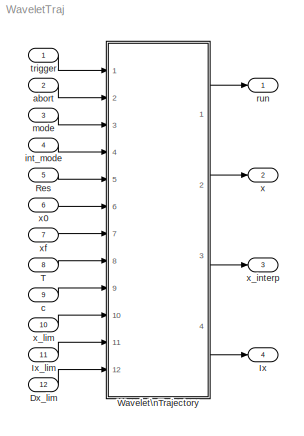
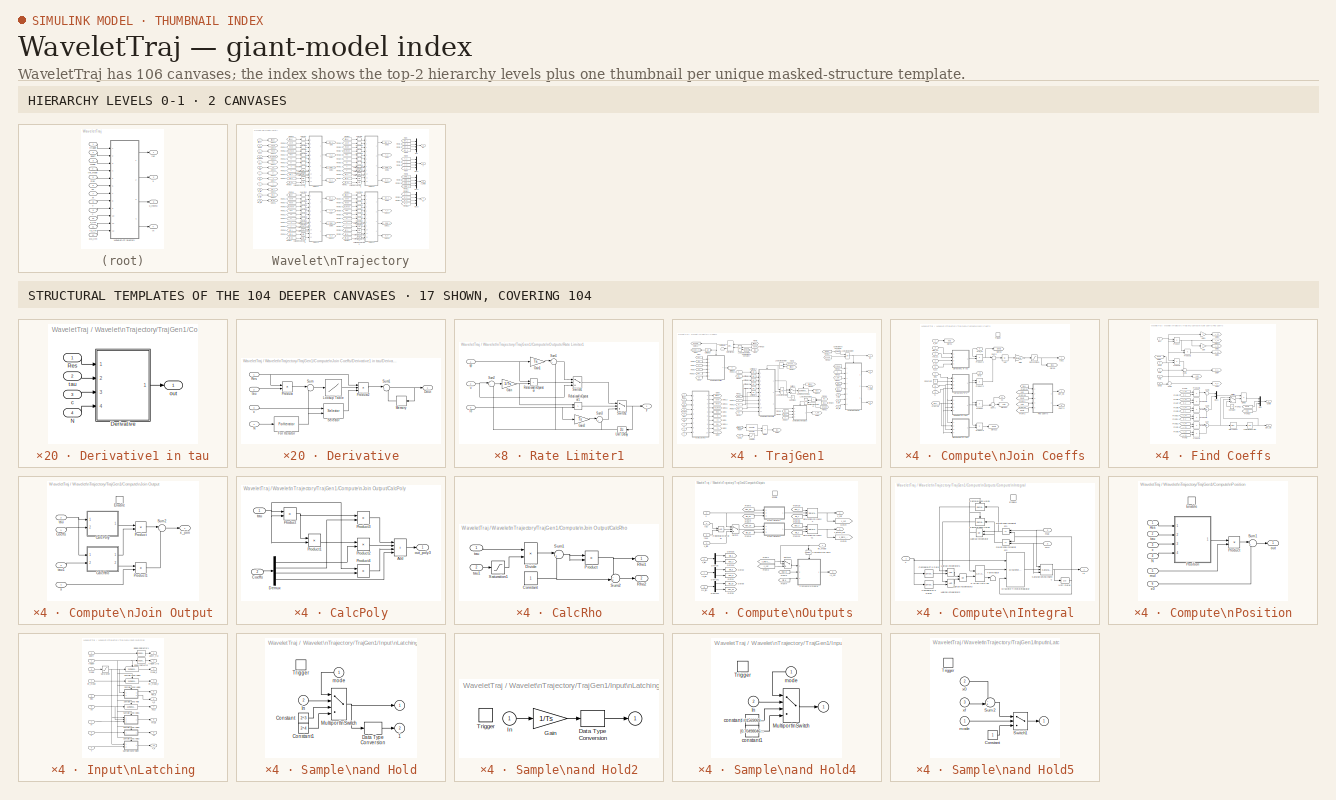
[diagram: thumbnail index - top-2 hierarchy levels (2 canvases) + 17 structural-template representatives of the remaining 104 canvases]
MODEL WaveletTraj
KIND model
CONFIG PreLoadFcn = load param
BLOCK [Inport] Dx_lim
  OutDataTypeStr = fixdt(1,w,f)
  Port = 12
  PortDimensions = [4 2]
  SID = 12
BLOCK [Outport] Ix
  Port = 4
  PortDimensions = 4
  SID = 1969
  SamplingMode = Sample based
BLOCK [Inport] Ix_lim
  OutDataTypeStr = fixdt(1,w,f)
  Port = 11
  PortDimensions = [4 2]
  SID = 11
BLOCK [Inport] Res
  OutDataTypeStr = fixdt(0,w,f)
  Port = 5
  PortDimensions = 4
  SID = 5
BLOCK [Inport] T
  OutDataTypeStr = fixdt(0,16,7)
  Port = 8
  PortDimensions = 4
  SID = 8
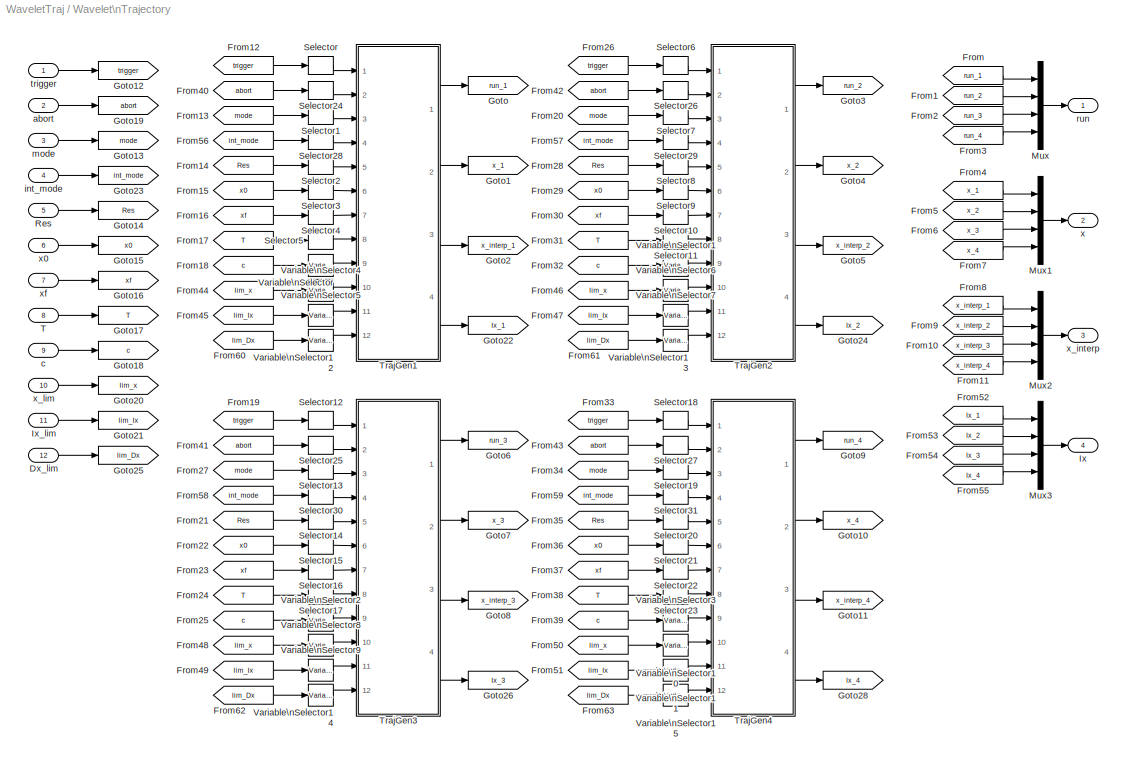
BLOCK [SubSystem] Wavelet\nTrajectory
  Ports = [12, 4]
  RequestExecContextInheritance = off
  SID = 13
BLOCK [Inport] Wavelet\nTrajectory/Dx_lim
  Port = 12
  SID = 25
BLOCK [From] Wavelet\nTrajectory/From
  CloseFcn = tagdialog Close
  GotoTag = run_1
  SID = 26
BLOCK [From] Wavelet\nTrajectory/From1
  CloseFcn = tagdialog Close
  GotoTag = run_2
  SID = 27
BLOCK [From] Wavelet\nTrajectory/From10
  CloseFcn = tagdialog Close
  GotoTag = x_interp_3
  SID = 28
BLOCK [From] Wavelet\nTrajectory/From11
  CloseFcn = tagdialog Close
  GotoTag = x_interp_4
  SID = 29
BLOCK [From] Wavelet\nTrajectory/From12
  CloseFcn = tagdialog Close
  GotoTag = trigger
  SID = 30
BLOCK [From] Wavelet\nTrajectory/From13
  CloseFcn = tagdialog Close
  GotoTag = mode
  SID = 31
BLOCK [From] Wavelet\nTrajectory/From14
  CloseFcn = tagdialog Close
  GotoTag = Res
  SID = 32
BLOCK [From] Wavelet\nTrajectory/From15
  CloseFcn = tagdialog Close
  GotoTag = x0
  SID = 33
BLOCK [From] Wavelet\nTrajectory/From16
  CloseFcn = tagdialog Close
  GotoTag = xf
  SID = 34
BLOCK [From] Wavelet\nTrajectory/From17
  CloseFcn = tagdialog Close
  GotoTag = T
  SID = 35
BLOCK [From] Wavelet\nTrajectory/From18
  CloseFcn = tagdialog Close
  GotoTag = c
  SID = 36
BLOCK [From] Wavelet\nTrajectory/From19
  CloseFcn = tagdialog Close
  GotoTag = trigger
  SID = 37
BLOCK [From] Wavelet\nTrajectory/From2
  CloseFcn = tagdialog Close
  GotoTag = run_3
  SID = 38
BLOCK [From] Wavelet\nTrajectory/From20
  CloseFcn = tagdialog Close
  GotoTag = mode
  SID = 39
BLOCK [From] Wavelet\nTrajectory/From21
  CloseFcn = tagdialog Close
  GotoTag = Res
  SID = 40
BLOCK [From] Wavelet\nTrajectory/From22
  CloseFcn = tagdialog Close
  GotoTag = x0
  SID = 41
BLOCK [From] Wavelet\nTrajectory/From23
  CloseFcn = tagdialog Close
  GotoTag = xf
  SID = 42
BLOCK [From] Wavelet\nTrajectory/From24
  CloseFcn = tagdialog Close
  GotoTag = T
  SID = 43
BLOCK [From] Wavelet\nTrajectory/From25
  CloseFcn = tagdialog Close
  GotoTag = c
  SID = 44
BLOCK [From] Wavelet\nTrajectory/From26
  CloseFcn = tagdialog Close
  GotoTag = trigger
  SID = 45
BLOCK [From] Wavelet\nTrajectory/From27
  CloseFcn = tagdialog Close
  GotoTag = mode
  SID = 46
BLOCK [From] Wavelet\nTrajectory/From28
  CloseFcn = tagdialog Close
  GotoTag = Res
  SID = 47
BLOCK [From] Wavelet\nTrajectory/From29
  CloseFcn = tagdialog Close
  GotoTag = x0
  SID = 48
BLOCK [From] Wavelet\nTrajectory/From3
  CloseFcn = tagdialog Close
  GotoTag = run_4
  SID = 49
BLOCK [From] Wavelet\nTrajectory/From30
  CloseFcn = tagdialog Close
  GotoTag = xf
  SID = 50
BLOCK [From] Wavelet\nTrajectory/From31
  CloseFcn = tagdialog Close
  GotoTag = T
  SID = 51
BLOCK [From] Wavelet\nTrajectory/From32
  CloseFcn = tagdialog Close
  GotoTag = c
  SID = 52
BLOCK [From] Wavelet\nTrajectory/From33
  CloseFcn = tagdialog Close
  GotoTag = trigger
  SID = 53
BLOCK [From] Wavelet\nTrajectory/From34
  CloseFcn = tagdialog Close
  GotoTag = mode
  SID = 54
BLOCK [From] Wavelet\nTrajectory/From35
  CloseFcn = tagdialog Close
  GotoTag = Res
  SID = 55
BLOCK [From] Wavelet\nTrajectory/From36
  CloseFcn = tagdialog Close
  GotoTag = x0
  SID = 56
BLOCK [From] Wavelet\nTrajectory/From37
  CloseFcn = tagdialog Close
  GotoTag = xf
  SID = 57
BLOCK [From] Wavelet\nTrajectory/From38
  CloseFcn = tagdialog Close
  GotoTag = T
  SID = 58
BLOCK [From] Wavelet\nTrajectory/From39
  CloseFcn = tagdialog Close
  GotoTag = c
  SID = 59
BLOCK [From] Wavelet\nTrajectory/From4
  CloseFcn = tagdialog Close
  GotoTag = x_1
  SID = 60
BLOCK [From] Wavelet\nTrajectory/From40
  CloseFcn = tagdialog Close
  GotoTag = abort
  SID = 61
BLOCK [From] Wavelet\nTrajectory/From41
  CloseFcn = tagdialog Close
  GotoTag = abort
  SID = 62
BLOCK [From] Wavelet\nTrajectory/From42
  CloseFcn = tagdialog Close
  GotoTag = abort
  SID = 63
BLOCK [From] Wavelet\nTrajectory/From43
  CloseFcn = tagdialog Close
  GotoTag = abort
  SID = 64
BLOCK [From] Wavelet\nTrajectory/From44
  CloseFcn = tagdialog Close
  GotoTag = lim_x
  SID = 65
BLOCK [From] Wavelet\nTrajectory/From45
  CloseFcn = tagdialog Close
  GotoTag = lim_Ix
  SID = 66
BLOCK [From] Wavelet\nTrajectory/From46
  CloseFcn = tagdialog Close
  GotoTag = lim_x
  SID = 67
BLOCK [From] Wavelet\nTrajectory/From47
  CloseFcn = tagdialog Close
  GotoTag = lim_Ix
  SID = 68
BLOCK [From] Wavelet\nTrajectory/From48
  CloseFcn = tagdialog Close
  GotoTag = lim_x
  SID = 69
BLOCK [From] Wavelet\nTrajectory/From49
  CloseFcn = tagdialog Close
  GotoTag = lim_Ix
  SID = 70
BLOCK [From] Wavelet\nTrajectory/From5
  CloseFcn = tagdialog Close
  GotoTag = x_2
  SID = 71
BLOCK [From] Wavelet\nTrajectory/From50
  CloseFcn = tagdialog Close
  GotoTag = lim_x
  SID = 72
BLOCK [From] Wavelet\nTrajectory/From51
  CloseFcn = tagdialog Close
  GotoTag = lim_Ix
  SID = 73
BLOCK [From] Wavelet\nTrajectory/From52
  CloseFcn = tagdialog Close
  GotoTag = Ix_1
  SID = 74
BLOCK [From] Wavelet\nTrajectory/From53
  CloseFcn = tagdialog Close
  GotoTag = Ix_2
  SID = 75
BLOCK [From] Wavelet\nTrajectory/From54
  CloseFcn = tagdialog Close
  GotoTag = Ix_3
  SID = 76
BLOCK [From] Wavelet\nTrajectory/From55
  CloseFcn = tagdialog Close
  GotoTag = Ix_4
  SID = 77
BLOCK [From] Wavelet\nTrajectory/From56
  CloseFcn = tagdialog Close
  GotoTag = int_mode
  SID = 78
BLOCK [From] Wavelet\nTrajectory/From57
  CloseFcn = tagdialog Close
  GotoTag = int_mode
  SID = 79
BLOCK [From] Wavelet\nTrajectory/From58
  CloseFcn = tagdialog Close
  GotoTag = int_mode
  SID = 80
BLOCK [From] Wavelet\nTrajectory/From59
  CloseFcn = tagdialog Close
  GotoTag = int_mode
  SID = 81
BLOCK [From] Wavelet\nTrajectory/From6
  CloseFcn = tagdialog Close
  GotoTag = x_3
  SID = 82
BLOCK [From] Wavelet\nTrajectory/From60
  CloseFcn = tagdialog Close
  GotoTag = lim_Dx
  SID = 83
BLOCK [From] Wavelet\nTrajectory/From61
  CloseFcn = tagdialog Close
  GotoTag = lim_Dx
  SID = 84
BLOCK [From] Wavelet\nTrajectory/From62
  CloseFcn = tagdialog Close
  GotoTag = lim_Dx
  SID = 85
BLOCK [From] Wavelet\nTrajectory/From63
  CloseFcn = tagdialog Close
  GotoTag = lim_Dx
  SID = 86
BLOCK [From] Wavelet\nTrajectory/From7
  CloseFcn = tagdialog Close
  GotoTag = x_4
  SID = 87
BLOCK [From] Wavelet\nTrajectory/From8
  CloseFcn = tagdialog Close
  GotoTag = x_interp_1
  SID = 88
BLOCK [From] Wavelet\nTrajectory/From9
  CloseFcn = tagdialog Close
  GotoTag = x_interp_2
  SID = 89
BLOCK [Goto] Wavelet\nTrajectory/Goto
  GotoTag = run_1
  SID = 90
BLOCK [Goto] Wavelet\nTrajectory/Goto1
  GotoTag = x_1
  SID = 91
BLOCK [Goto] Wavelet\nTrajectory/Goto10
  GotoTag = x_4
  SID = 92
BLOCK [Goto] Wavelet\nTrajectory/Goto11
  GotoTag = x_interp_4
  SID = 93
BLOCK [Goto] Wavelet\nTrajectory/Goto12
  GotoTag = trigger
  SID = 94
BLOCK [Goto] Wavelet\nTrajectory/Goto13
  GotoTag = mode
  SID = 95
BLOCK [Goto] Wavelet\nTrajectory/Goto14
  GotoTag = Res
  SID = 96
BLOCK [Goto] Wavelet\nTrajectory/Goto15
  GotoTag = x0
  SID = 97
BLOCK [Goto] Wavelet\nTrajectory/Goto16
  GotoTag = xf
  SID = 98
BLOCK [Goto] Wavelet\nTrajectory/Goto17
  GotoTag = T
  SID = 99
BLOCK [Goto] Wavelet\nTrajectory/Goto18
  GotoTag = c
  SID = 100
BLOCK [Goto] Wavelet\nTrajectory/Goto19
  GotoTag = abort
  SID = 101
BLOCK [Goto] Wavelet\nTrajectory/Goto2
  GotoTag = x_interp_1
  SID = 102
BLOCK [Goto] Wavelet\nTrajectory/Goto20
  GotoTag = lim_x
  SID = 103
BLOCK [Goto] Wavelet\nTrajectory/Goto21
  GotoTag = lim_Ix
  SID = 104
BLOCK [Goto] Wavelet\nTrajectory/Goto22
  GotoTag = Ix_1
  SID = 105
BLOCK [Goto] Wavelet\nTrajectory/Goto23
  GotoTag = int_mode
  SID = 106
BLOCK [Goto] Wavelet\nTrajectory/Goto24
  GotoTag = Ix_2
  SID = 107
BLOCK [Goto] Wavelet\nTrajectory/Goto25
  GotoTag = lim_Dx
  SID = 108
BLOCK [Goto] Wavelet\nTrajectory/Goto26
  GotoTag = Ix_3
  SID = 109
BLOCK [Goto] Wavelet\nTrajectory/Goto28
  GotoTag = Ix_4
  SID = 110
BLOCK [Goto] Wavelet\nTrajectory/Goto3
  GotoTag = run_2
  SID = 111
BLOCK [Goto] Wavelet\nTrajectory/Goto4
  GotoTag = x_2
  SID = 112
BLOCK [Goto] Wavelet\nTrajectory/Goto5
  GotoTag = x_interp_2
  SID = 113
BLOCK [Goto] Wavelet\nTrajectory/Goto6
  GotoTag = run_3
  SID = 114
BLOCK [Goto] Wavelet\nTrajectory/Goto7
  GotoTag = x_3
  SID = 115
BLOCK [Goto] Wavelet\nTrajectory/Goto8
  GotoTag = x_interp_3
  SID = 116
BLOCK [Goto] Wavelet\nTrajectory/Goto9
  GotoTag = run_4
  SID = 117
BLOCK [Outport] Wavelet\nTrajectory/Ix
  Port = 4
  SID = 1965
BLOCK [Inport] Wavelet\nTrajectory/Ix_lim
  Port = 11
  SID = 24
BLOCK [Mux] Wavelet\nTrajectory/Mux
  DisplayOption = bar
  Ports = [4, 1]
  SID = 118
BLOCK [Mux] Wavelet\nTrajectory/Mux1
  DisplayOption = bar
  Ports = [4, 1]
  SID = 119
BLOCK [Mux] Wavelet\nTrajectory/Mux2
  DisplayOption = bar
  Ports = [4, 1]
  SID = 120
BLOCK [Mux] Wavelet\nTrajectory/Mux3
  DisplayOption = bar
  Ports = [4, 1]
  SID = 121
BLOCK [Inport] Wavelet\nTrajectory/Res
  Port = 5
  SID = 18
BLOCK [Selector] Wavelet\nTrajectory/Selector
  IndexOptions = Index vector (dialog)
  Indices = 1
  InputPortWidth = 4
  OutputSizes = 1
  Ports = [1, 1]
  SID = 122
BLOCK [Selector] Wavelet\nTrajectory/Selector1
  IndexOptions = Index vector (dialog)
  Indices = 1
  InputPortWidth = 4
  OutputSizes = 1
  Ports = [1, 1]
  SID = 123
BLOCK [Selector] Wavelet\nTrajectory/Selector10
  IndexOptions = Index vector (dialog)
  Indices = 2
  InputPortWidth = 4
  OutputSizes = 1
  Ports = [1, 1]
  SID = 124
BLOCK [Selector] Wavelet\nTrajectory/Selector11
  IndexOptions = Index vector (dialog)
  Indices = 2
  InputPortWidth = 4
  OutputSizes = 1
  Ports = [1, 1]
  SID = 125
BLOCK [Selector] Wavelet\nTrajectory/Selector12
  IndexOptions = Index vector (dialog)
  Indices = 3
  InputPortWidth = 4
  OutputSizes = 1
  Ports = [1, 1]
  SID = 126
BLOCK [Selector] Wavelet\nTrajectory/Selector13
  IndexOptions = Index vector (dialog)
  Indices = 3
  InputPortWidth = 4
  OutputSizes = 1
  Ports = [1, 1]
  SID = 127
BLOCK [Selector] Wavelet\nTrajectory/Selector14
  IndexOptions = Index vector (dialog)
  Indices = 3
  InputPortWidth = 4
  OutputSizes = 1
  Ports = [1, 1]
  SID = 128
BLOCK [Selector] Wavelet\nTrajectory/Selector15
  IndexOptions = Index vector (dialog)
  Indices = 3
  InputPortWidth = 4
  OutputSizes = 1
  Ports = [1, 1]
  SID = 129
BLOCK [Selector] Wavelet\nTrajectory/Selector16
  IndexOptions = Index vector (dialog)
  Indices = 3
  InputPortWidth = 4
  OutputSizes = 1
  Ports = [1, 1]
  SID = 130
BLOCK [Selector] Wavelet\nTrajectory/Selector17
  IndexOptions = Index vector (dialog)
  Indices = 3
  InputPortWidth = 4
  OutputSizes = 1
  Ports = [1, 1]
  SID = 131
BLOCK [Selector] Wavelet\nTrajectory/Selector18
  IndexOptions = Index vector (dialog)
  Indices = 4
  InputPortWidth = 4
  OutputSizes = 1
  Ports = [1, 1]
  SID = 132
BLOCK [Selector] Wavelet\nTrajectory/Selector19
  IndexOptions = Index vector (dialog)
  Indices = 4
  InputPortWidth = 4
  OutputSizes = 1
  Ports = [1, 1]
  SID = 133
BLOCK [Selector] Wavelet\nTrajectory/Selector2
  IndexOptions = Index vector (dialog)
  Indices = 1
  InputPortWidth = 4
  OutputSizes = 1
  Ports = [1, 1]
  SID = 134
BLOCK [Selector] Wavelet\nTrajectory/Selector20
  IndexOptions = Index vector (dialog)
  Indices = 4
  InputPortWidth = 4
  OutputSizes = 1
  Ports = [1, 1]
  SID = 135
BLOCK [Selector] Wavelet\nTrajectory/Selector21
  IndexOptions = Index vector (dialog)
  Indices = 4
  InputPortWidth = 4
  OutputSizes = 1
  Ports = [1, 1]
  SID = 136
BLOCK [Selector] Wavelet\nTrajectory/Selector22
  IndexOptions = Index vector (dialog)
  Indices = 4
  InputPortWidth = 4
  OutputSizes = 1
  Ports = [1, 1]
  SID = 137
BLOCK [Selector] Wavelet\nTrajectory/Selector23
  IndexOptions = Index vector (dialog)
  Indices = 4
  InputPortWidth = 4
  OutputSizes = 1
  Ports = [1, 1]
  SID = 138
BLOCK [Selector] Wavelet\nTrajectory/Selector24
  IndexOptions = Index vector (dialog)
  Indices = 1
  InputPortWidth = 4
  OutputSizes = 1
  Ports = [1, 1]
  SID = 139
BLOCK [Selector] Wavelet\nTrajectory/Selector25
  IndexOptions = Index vector (dialog)
  Indices = 3
  InputPortWidth = 4
  OutputSizes = 1
  Ports = [1, 1]
  SID = 140
BLOCK [Selector] Wavelet\nTrajectory/Selector26
  IndexOptions = Index vector (dialog)
  Indices = 2
  InputPortWidth = 4
  OutputSizes = 1
  Ports = [1, 1]
  SID = 141
BLOCK [Selector] Wavelet\nTrajectory/Selector27
  IndexOptions = Index vector (dialog)
  Indices = 4
  InputPortWidth = 4
  OutputSizes = 1
  Ports = [1, 1]
  SID = 142
BLOCK [Selector] Wavelet\nTrajectory/Selector28
  IndexOptions = Index vector (dialog)
  Indices = 1
  InputPortWidth = 4
  OutputSizes = 1
  Ports = [1, 1]
  SID = 143
BLOCK [Selector] Wavelet\nTrajectory/Selector29
  IndexOptions = Index vector (dialog)
  Indices = 2
  InputPortWidth = 4
  OutputSizes = 1
  Ports = [1, 1]
  SID = 144
BLOCK [Selector] Wavelet\nTrajectory/Selector3
  IndexOptions = Index vector (dialog)
  Indices = 1
  InputPortWidth = 4
  OutputSizes = 1
  Ports = [1, 1]
  SID = 145
BLOCK [Selector] Wavelet\nTrajectory/Selector30
  IndexOptions = Index vector (dialog)
  Indices = 3
  InputPortWidth = 4
  OutputSizes = 1
  Ports = [1, 1]
  SID = 146
BLOCK [Selector] Wavelet\nTrajectory/Selector31
  IndexOptions = Index vector (dialog)
  Indices = 4
  InputPortWidth = 4
  OutputSizes = 1
  Ports = [1, 1]
  SID = 147
BLOCK [Selector] Wavelet\nTrajectory/Selector4
  IndexOptions = Index vector (dialog)
  Indices = 1
  InputPortWidth = 4
  OutputSizes = 1
  Ports = [1, 1]
  SID = 148
BLOCK [Selector] Wavelet\nTrajectory/Selector5
  IndexOptions = Index vector (dialog)
  Indices = 1
  InputPortWidth = 4
  OutputSizes = 1
  Ports = [1, 1]
  SID = 149
BLOCK [Selector] Wavelet\nTrajectory/Selector6
  IndexOptions = Index vector (dialog)
  Indices = 2
  InputPortWidth = 4
  OutputSizes = 1
  Ports = [1, 1]
  SID = 150
BLOCK [Selector] Wavelet\nTrajectory/Selector7
  IndexOptions = Index vector (dialog)
  Indices = 2
  InputPortWidth = 4
  OutputSizes = 1
  Ports = [1, 1]
  SID = 151
BLOCK [Selector] Wavelet\nTrajectory/Selector8
  IndexOptions = Index vector (dialog)
  Indices = 2
  InputPortWidth = 4
  OutputSizes = 1
  Ports = [1, 1]
  SID = 152
BLOCK [Selector] Wavelet\nTrajectory/Selector9
  IndexOptions = Index vector (dialog)
  Indices = 2
  InputPortWidth = 4
  OutputSizes = 1
  Ports = [1, 1]
  SID = 153
BLOCK [Inport] Wavelet\nTrajectory/T
  Port = 8
  SID = 21
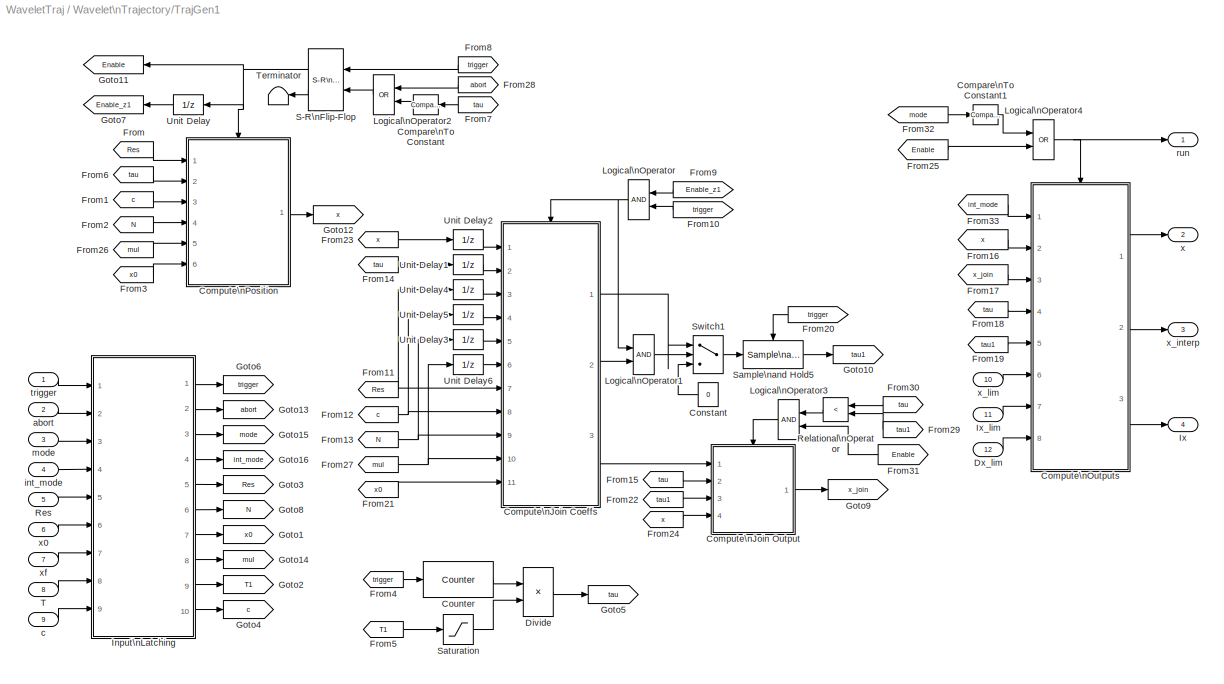
BLOCK [SubSystem] Wavelet\nTrajectory/TrajGen1
  Ports = [12, 4]
  RTWFcnName = WaveletTrajectory
  RTWFcnNameOpts = User specified
  RTWSystemCode = Reusable function
  RequestExecContextInheritance = off
  SID = 154
  TreatAsAtomicUnit = on
BLOCK [Reference] Wavelet\nTrajectory/TrajGen1/Compare\nTo Constant  REF=simulink/Logic and Bit\nOperations/Compare\nTo Constant
  FunctionWithSeparateData = off
  LogicOutDataTypeMode = boolean
  Ports = [1, 1]
  RTWMemSecDataConstants = Inherit from model
  RTWMemSecDataInternal = Inherit from model
  RTWMemSecDataParameters = Inherit from model
  RTWMemSecFuncExecute = Inherit from model
  RTWMemSecFuncInitTerm = Inherit from model
  SID = 167
  ShowPortLabels = FromPortIcon
  SourceBlock = simulink/Logic and Bit\nOperations/Compare\nTo Constant
  SourceProductBaseCode = SL
  SourceType = Compare To Constant
  SystemSampleTime = -1
  ZeroCross = off
  const = 1
  relop = >
BLOCK [Reference] Wavelet\nTrajectory/TrajGen1/Compare\nTo Constant1  REF=simulink/Logic and Bit\nOperations/Compare\nTo Constant
  FunctionWithSeparateData = off
  LogicOutDataTypeMode = boolean
  Ports = [1, 1]
  RTWMemSecDataConstants = Inherit from model
  RTWMemSecDataInternal = Inherit from model
  RTWMemSecDataParameters = Inherit from model
  RTWMemSecFuncExecute = Inherit from model
  RTWMemSecFuncInitTerm = Inherit from model
  SID = 168
  ShowPortLabels = FromPortIcon
  SourceBlock = simulink/Logic and Bit\nOperations/Compare\nTo Constant
  SourceProductBaseCode = SL
  SourceType = Compare To Constant
  SystemSampleTime = -1
  ZeroCross = off
  const = 2
  relop = ==
BLOCK [SubSystem] Wavelet\nTrajectory/TrajGen1/Compute\nJoin Coeffs
  Ports = [11, 3, 0, 1]
  RTWFcnName = Trajectory_ComputeJoinCoeffs
  RTWFcnNameOpts = User specified
  RTWSystemCode = Reusable function
  RequestExecContextInheritance = off
  SID = 169
BLOCK [Abs] Wavelet\nTrajectory/TrajGen1/Compute\nJoin Coeffs/Abs
  RndMeth = Nearest
  SID = 182
BLOCK [Outport] Wavelet\nTrajectory/TrajGen1/Compute\nJoin Coeffs/Coeffs
  Port = 3
  SID = 338
BLOCK [Constant] Wavelet\nTrajectory/TrajGen1/Compute\nJoin Coeffs/Constant
  OutDataTypeStr = fixdt(1,w,f)
  SID = 183
  Value = 0
BLOCK [Outport] Wavelet\nTrajectory/TrajGen1/Compute\nJoin Coeffs/DET_OK
  Port = 2
  SID = 337
BLOCK [SubSystem] Wavelet\nTrajectory/TrajGen1/Compute\nJoin Coeffs/Derivative1 in tau
  Ports = [4, 1]
  RTWFcnName = Trajectory_Derivative
  RTWFcnNameOpts = User specified
  RTWSystemCode = Reusable function
  RequestExecContextInheritance = off
  SID = 184
  TreatAsAtomicUnit = on
BLOCK [SubSystem] Wavelet\nTrajectory/TrajGen1/Compute\nJoin Coeffs/Derivative1 in tau/Derivative
  Ports = [4, 1]
  RTWFcnName = Trajectory_Derivative
  RequestExecContextInheritance = off
  SID = 189
BLOCK [Outport] Wavelet\nTrajectory/TrajGen1/Compute\nJoin Coeffs/Derivative1 in tau/Derivative/Dout
  InitialOutput = 0
  PortDimensions = 1
  SID = 202
  SamplingMode = Sample based
BLOCK [ForIterator] Wavelet\nTrajectory/TrajGen1/Compute\nJoin Coeffs/Derivative1 in tau/Derivative/For Iterator
  IndexMode = Zero-based
  IterationSource = external
  IterationVariableDataType = int8
  Ports = [1, 1]
  ResetStates = reset
  SID = 194
BLOCK [Lookup] Wavelet\nTrajectory/TrajGen1/Compute\nJoin Coeffs/Derivative1 in tau/Derivative/Lookup Table
  InputValues = tval_fi
  LookUpMeth = Interpolation-Use End Values
  RndMeth = Nearest
  SID = 195
  Table = Dphival_fi
BLOCK [Memory] Wavelet\nTrajectory/TrajGen1/Compute\nJoin Coeffs/Derivative1 in tau/Derivative/Memory
  InheritSampleTime = on
  SID = 196
BLOCK [Inport] Wavelet\nTrajectory/TrajGen1/Compute\nJoin Coeffs/Derivative1 in tau/Derivative/N
  Port = 4
  PortDimensions = 1
  SID = 193
  SamplingMode = Sample based
BLOCK [Product] Wavelet\nTrajectory/TrajGen1/Compute\nJoin Coeffs/Derivative1 in tau/Derivative/Product
  OutDataTypeStr = fixdt(1,w,f)
  Ports = [2, 1]
  RndMeth = Nearest
  SID = 197
  SaturateOnIntegerOverflow = on
BLOCK [Product] Wavelet\nTrajectory/TrajGen1/Compute\nJoin Coeffs/Derivative1 in tau/Derivative/Product2
  Inputs = 3
  OutDataTypeStr = fixdt(1,w,f)
  Ports = [3, 1]
  RndMeth = Nearest
  SID = 198
  SaturateOnIntegerOverflow = on
BLOCK [Inport] Wavelet\nTrajectory/TrajGen1/Compute\nJoin Coeffs/Derivative1 in tau/Derivative/Res
  PortDimensions = 1
  SID = 190
  SamplingMode = Sample based
BLOCK [Selector] Wavelet\nTrajectory/TrajGen1/Compute\nJoin Coeffs/Derivative1 in tau/Derivative/Selector
  IndexMode = Zero-based
  IndexOptions = Index vector (port)
  Indices = [1 3]
  InputPortWidth = c_maxsz
  OutputSizes = 1
  Ports = [2, 1]
  SID = 199
BLOCK [Sum] Wavelet\nTrajectory/TrajGen1/Compute\nJoin Coeffs/Derivative1 in tau/Derivative/Sum
  Inputs = |+-
  OutDataTypeStr = fixdt(1,w,f)
  Ports = [2, 1]
  RndMeth = Nearest
  SID = 200
  SaturateOnIntegerOverflow = on
BLOCK [Sum] Wavelet\nTrajectory/TrajGen1/Compute\nJoin Coeffs/Derivative1 in tau/Derivative/Sum1
  Inputs = |++
  OutDataTypeStr = fixdt(1,w,f)
  Ports = [2, 1]
  RndMeth = Nearest
  SID = 201
  SaturateOnIntegerOverflow = on
BLOCK [Inport] Wavelet\nTrajectory/TrajGen1/Compute\nJoin Coeffs/Derivative1 in tau/Derivative/c
  Port = 3
  PortDimensions = c_maxsz
  SID = 192
  SamplingMode = Sample based
BLOCK [Inport] Wavelet\nTrajectory/TrajGen1/Compute\nJoin Coeffs/Derivative1 in tau/Derivative/tau
  Port = 2
  PortDimensions = 1
  SID = 191
  SamplingMode = Sample based
BLOCK [Inport] Wavelet\nTrajectory/TrajGen1/Compute\nJoin Coeffs/Derivative1 in tau/N
  Port = 4
  SID = 188
BLOCK [Inport] Wavelet\nTrajectory/TrajGen1/Compute\nJoin Coeffs/Derivative1 in tau/Res
  SID = 185
BLOCK [Inport] Wavelet\nTrajectory/TrajGen1/Compute\nJoin Coeffs/Derivative1 in tau/c
  Port = 3
  SID = 187
BLOCK [Outport] Wavelet\nTrajectory/TrajGen1/Compute\nJoin Coeffs/Derivative1 in tau/out
  SID = 203
BLOCK [Inport] Wavelet\nTrajectory/TrajGen1/Compute\nJoin Coeffs/Derivative1 in tau/tau
  Port = 2
  SID = 186
BLOCK [SubSystem] Wavelet\nTrajectory/TrajGen1/Compute\nJoin Coeffs/Derivative2 in 0
  Ports = [4, 1]
  RTWFcnName = Trajectory_Derivative
  RTWFcnNameOpts = User specified
  RTWSystemCode = Reusable function
  RequestExecContextInheritance = off
  SID = 204
  TreatAsAtomicUnit = on
BLOCK [SubSystem] Wavelet\nTrajectory/TrajGen1/Compute\nJoin Coeffs/Derivative2 in 0/Derivative
  Ports = [4, 1]
  RTWFcnName = Trajectory_Derivative
  RequestExecContextInheritance = off
  SID = 209
BLOCK [Outport] Wavelet\nTrajectory/TrajGen1/Compute\nJoin Coeffs/Derivative2 in 0/Derivative/Dout
  InitialOutput = 0
  PortDimensions = 1
  SID = 222
  SamplingMode = Sample based
BLOCK [ForIterator] Wavelet\nTrajectory/TrajGen1/Compute\nJoin Coeffs/Derivative2 in 0/Derivative/For Iterator
  IndexMode = Zero-based
  IterationSource = external
  IterationVariableDataType = int8
  Ports = [1, 1]
  ResetStates = reset
  SID = 214
BLOCK [Lookup] Wavelet\nTrajectory/TrajGen1/Compute\nJoin Coeffs/Derivative2 in 0/Derivative/Lookup Table
  InputValues = tval_fi
  LookUpMeth = Interpolation-Use End Values
  RndMeth = Nearest
  SID = 215
  Table = Dphival_fi
BLOCK [Memory] Wavelet\nTrajectory/TrajGen1/Compute\nJoin Coeffs/Derivative2 in 0/Derivative/Memory
  InheritSampleTime = on
  SID = 216
BLOCK [Inport] Wavelet\nTrajectory/TrajGen1/Compute\nJoin Coeffs/Derivative2 in 0/Derivative/N
  Port = 4
  PortDimensions = 1
  SID = 213
  SamplingMode = Sample based
BLOCK [Product] Wavelet\nTrajectory/TrajGen1/Compute\nJoin Coeffs/Derivative2 in 0/Derivative/Product
  OutDataTypeStr = fixdt(1,w,f)
  Ports = [2, 1]
  RndMeth = Nearest
  SID = 217
  SaturateOnIntegerOverflow = on
BLOCK [Product] Wavelet\nTrajectory/TrajGen1/Compute\nJoin Coeffs/Derivative2 in 0/Derivative/Product2
  Inputs = 3
  OutDataTypeStr = fixdt(1,w,f)
  Ports = [3, 1]
  RndMeth = Nearest
  SID = 218
  SaturateOnIntegerOverflow = on
BLOCK [Inport] Wavelet\nTrajectory/TrajGen1/Compute\nJoin Coeffs/Derivative2 in 0/Derivative/Res
  PortDimensions = 1
  SID = 210
  SamplingMode = Sample based
BLOCK [Selector] Wavelet\nTrajectory/TrajGen1/Compute\nJoin Coeffs/Derivative2 in 0/Derivative/Selector
  IndexMode = Zero-based
  IndexOptions = Index vector (port)
  Indices = [1 3]
  InputPortWidth = c_maxsz
  OutputSizes = 1
  Ports = [2, 1]
  SID = 219
BLOCK [Sum] Wavelet\nTrajectory/TrajGen1/Compute\nJoin Coeffs/Derivative2 in 0/Derivative/Sum
  Inputs = |+-
  OutDataTypeStr = fixdt(1,w,f)
  Ports = [2, 1]
  RndMeth = Nearest
  SID = 220
  SaturateOnIntegerOverflow = on
BLOCK [Sum] Wavelet\nTrajectory/TrajGen1/Compute\nJoin Coeffs/Derivative2 in 0/Derivative/Sum1
  Inputs = |++
  OutDataTypeStr = fixdt(1,w,f)
  Ports = [2, 1]
  RndMeth = Nearest
  SID = 221
  SaturateOnIntegerOverflow = on
BLOCK [Inport] Wavelet\nTrajectory/TrajGen1/Compute\nJoin Coeffs/Derivative2 in 0/Derivative/c
  Port = 3
  PortDimensions = c_maxsz
  SID = 212
  SamplingMode = Sample based
BLOCK [Inport] Wavelet\nTrajectory/TrajGen1/Compute\nJoin Coeffs/Derivative2 in 0/Derivative/tau
  Port = 2
  PortDimensions = 1
  SID = 211
  SamplingMode = Sample based
BLOCK [Inport] Wavelet\nTrajectory/TrajGen1/Compute\nJoin Coeffs/Derivative2 in 0/N
  Port = 4
  SID = 208
BLOCK [Inport] Wavelet\nTrajectory/TrajGen1/Compute\nJoin Coeffs/Derivative2 in 0/Res
  SID = 205
BLOCK [Inport] Wavelet\nTrajectory/TrajGen1/Compute\nJoin Coeffs/Derivative2 in 0/c
  Port = 3
  SID = 207
BLOCK [Outport] Wavelet\nTrajectory/TrajGen1/Compute\nJoin Coeffs/Derivative2 in 0/out
  SID = 223
BLOCK [Inport] Wavelet\nTrajectory/TrajGen1/Compute\nJoin Coeffs/Derivative2 in 0/tau
  Port = 2
  SID = 206
BLOCK [SubSystem] Wavelet\nTrajectory/TrajGen1/Compute\nJoin Coeffs/Derivative2 in tau1
  Ports = [4, 1]
  RTWFcnName = Trajectory_Derivative
  RTWFcnNameOpts = User specified
  RTWSystemCode = Reusable function
  RequestExecContextInheritance = off
  SID = 224
  TreatAsAtomicUnit = on
BLOCK [SubSystem] Wavelet\nTrajectory/TrajGen1/Compute\nJoin Coeffs/Derivative2 in tau1/Derivative
  Ports = [4, 1]
  RTWFcnName = Trajectory_Derivative
  RequestExecContextInheritance = off
  SID = 229
BLOCK [Outport] Wavelet\nTrajectory/TrajGen1/Compute\nJoin Coeffs/Derivative2 in tau1/Derivative/Dout
  InitialOutput = 0
  PortDimensions = 1
  SID = 242
  SamplingMode = Sample based
BLOCK [ForIterator] Wavelet\nTrajectory/TrajGen1/Compute\nJoin Coeffs/Derivative2 in tau1/Derivative/For Iterator
  IndexMode = Zero-based
  IterationSource = external
  IterationVariableDataType = int8
  Ports = [1, 1]
  ResetStates = reset
  SID = 234
BLOCK [Lookup] Wavelet\nTrajectory/TrajGen1/Compute\nJoin Coeffs/Derivative2 in tau1/Derivative/Lookup Table
  InputValues = tval_fi
  LookUpMeth = Interpolation-Use End Values
  RndMeth = Nearest
  SID = 235
  Table = Dphival_fi
BLOCK [Memory] Wavelet\nTrajectory/TrajGen1/Compute\nJoin Coeffs/Derivative2 in tau1/Derivative/Memory
  InheritSampleTime = on
  SID = 236
BLOCK [Inport] Wavelet\nTrajectory/TrajGen1/Compute\nJoin Coeffs/Derivative2 in tau1/Derivative/N
  Port = 4
  PortDimensions = 1
  SID = 233
  SamplingMode = Sample based
BLOCK [Product] Wavelet\nTrajectory/TrajGen1/Compute\nJoin Coeffs/Derivative2 in tau1/Derivative/Product
  OutDataTypeStr = fixdt(1,w,f)
  Ports = [2, 1]
  RndMeth = Nearest
  SID = 237
  SaturateOnIntegerOverflow = on
BLOCK [Product] Wavelet\nTrajectory/TrajGen1/Compute\nJoin Coeffs/Derivative2 in tau1/Derivative/Product2
  Inputs = 3
  OutDataTypeStr = fixdt(1,w,f)
  Ports = [3, 1]
  RndMeth = Nearest
  SID = 238
  SaturateOnIntegerOverflow = on
BLOCK [Inport] Wavelet\nTrajectory/TrajGen1/Compute\nJoin Coeffs/Derivative2 in tau1/Derivative/Res
  PortDimensions = 1
  SID = 230
  SamplingMode = Sample based
BLOCK [Selector] Wavelet\nTrajectory/TrajGen1/Compute\nJoin Coeffs/Derivative2 in tau1/Derivative/Selector
  IndexMode = Zero-based
  IndexOptions = Index vector (port)
  Indices = [1 3]
  InputPortWidth = c_maxsz
  OutputSizes = 1
  Ports = [2, 1]
  SID = 239
BLOCK [Sum] Wavelet\nTrajectory/TrajGen1/Compute\nJoin Coeffs/Derivative2 in tau1/Derivative/Sum
  Inputs = |+-
  OutDataTypeStr = fixdt(1,w,f)
  Ports = [2, 1]
  RndMeth = Nearest
  SID = 240
  SaturateOnIntegerOverflow = on
BLOCK [Sum] Wavelet\nTrajectory/TrajGen1/Compute\nJoin Coeffs/Derivative2 in tau1/Derivative/Sum1
  Inputs = |++
  OutDataTypeStr = fixdt(1,w,f)
  Ports = [2, 1]
  RndMeth = Nearest
  SID = 241
  SaturateOnIntegerOverflow = on
BLOCK [Inport] Wavelet\nTrajectory/TrajGen1/Compute\nJoin Coeffs/Derivative2 in tau1/Derivative/c
  Port = 3
  PortDimensions = c_maxsz
  SID = 232
  SamplingMode = Sample based
BLOCK [Inport] Wavelet\nTrajectory/TrajGen1/Compute\nJoin Coeffs/Derivative2 in tau1/Derivative/tau
  Port = 2
  PortDimensions = 1
  SID = 231
  SamplingMode = Sample based
BLOCK [Inport] Wavelet\nTrajectory/TrajGen1/Compute\nJoin Coeffs/Derivative2 in tau1/N
  Port = 4
  SID = 228
BLOCK [Inport] Wavelet\nTrajectory/TrajGen1/Compute\nJoin Coeffs/Derivative2 in tau1/Res
  SID = 225
BLOCK [Inport] Wavelet\nTrajectory/TrajGen1/Compute\nJoin Coeffs/Derivative2 in tau1/c
  Port = 3
  SID = 227
BLOCK [Outport] Wavelet\nTrajectory/TrajGen1/Compute\nJoin Coeffs/Derivative2 in tau1/out
  SID = 243
BLOCK [Inport] Wavelet\nTrajectory/TrajGen1/Compute\nJoin Coeffs/Derivative2 in tau1/tau
  Port = 2
  SID = 226
BLOCK [SubSystem] Wavelet\nTrajectory/TrajGen1/Compute\nJoin Coeffs/Find Coeffs
  Ports = [5, 2]
  RTWFcnName = Trajectory_FindCoeffs
  RTWFcnNameOpts = User specified
  RTWSystemCode = Reusable function
  RequestExecContextInheritance = off
  SID = 244
  TreatAsAtomicUnit = on
BLOCK [Outport] Wavelet\nTrajectory/TrajGen1/Compute\nJoin Coeffs/Find Coeffs/Coeffs
  Port = 2
  SID = 296
BLOCK [Constant] Wavelet\nTrajectory/TrajGen1/Compute\nJoin Coeffs/Find Coeffs/Constant
  OutDataTypeStr = fixdt(1,w,f)
  SID = 250
BLOCK [Outport] Wavelet\nTrajectory/TrajGen1/Compute\nJoin Coeffs/Find Coeffs/DET_OK
  SID = 295
BLOCK [Product] Wavelet\nTrajectory/TrajGen1/Compute\nJoin Coeffs/Find Coeffs/Divide
  Inputs = */
  OutDataTypeStr = fixdt(1,w,f)
  Ports = [2, 1]
  RndMeth = Nearest
  SID = 251
  SaturateOnIntegerOverflow = on
BLOCK [Inport] Wavelet\nTrajectory/TrajGen1/Compute\nJoin Coeffs/Find Coeffs/Dout1
  Port = 3
  SID = 247
BLOCK [Inport] Wavelet\nTrajectory/TrajGen1/Compute\nJoin Coeffs/Find Coeffs/Dout2
  Port = 5
  SID = 249
BLOCK [From] Wavelet\nTrajectory/TrajGen1/Compute\nJoin Coeffs/Find Coeffs/From1
  GotoTag = A_22
  SID = 252
BLOCK [From] Wavelet\nTrajectory/TrajGen1/Compute\nJoin Coeffs/Find Coeffs/From10
  GotoTag = A_11
  SID = 253
BLOCK [From] Wavelet\nTrajectory/TrajGen1/Compute\nJoin Coeffs/Find Coeffs/From11
  GotoTag = b_2
  SID = 254
BLOCK [From] Wavelet\nTrajectory/TrajGen1/Compute\nJoin Coeffs/Find Coeffs/From12
  GotoTag = Dout1
  SID = 255
BLOCK [From] Wavelet\nTrajectory/TrajGen1/Compute\nJoin Coeffs/Find Coeffs/From13
  GotoTag = out1
  SID = 256
BLOCK [From] Wavelet\nTrajectory/TrajGen1/Compute\nJoin Coeffs/Find Coeffs/From2
  GotoTag = A_21
  SID = 257
BLOCK [From] Wavelet\nTrajectory/TrajGen1/Compute\nJoin Coeffs/Find Coeffs/From22
  GotoTag = A_11
  SID = 258
BLOCK [From] Wavelet\nTrajectory/TrajGen1/Compute\nJoin Coeffs/Find Coeffs/From3
  GotoTag = A_12
  SID = 259
BLOCK [From] Wavelet\nTrajectory/TrajGen1/Compute\nJoin Coeffs/Find Coeffs/From4
  GotoTag = A_22
  SID = 260
BLOCK [From] Wavelet\nTrajectory/TrajGen1/Compute\nJoin Coeffs/Find Coeffs/From5
  GotoTag = b_1
  SID = 261
BLOCK [From] Wavelet\nTrajectory/TrajGen1/Compute\nJoin Coeffs/Find Coeffs/From6
  GotoTag = A_12
  SID = 262
BLOCK [From] Wavelet\nTrajectory/TrajGen1/Compute\nJoin Coeffs/Find Coeffs/From7
  GotoTag = b_2
  SID = 263
BLOCK [From] Wavelet\nTrajectory/TrajGen1/Compute\nJoin Coeffs/Find Coeffs/From8
  GotoTag = A_21
  SID = 264
BLOCK [From] Wavelet\nTrajectory/TrajGen1/Compute\nJoin Coeffs/Find Coeffs/From9
  GotoTag = b_1
  SID = 265
BLOCK [Gain] Wavelet\nTrajectory/TrajGen1/Compute\nJoin Coeffs/Find Coeffs/Gain
  Gain = 3
  OutDataTypeStr = Inherit: Same as input
  ParamDataTypeStr = Inherit: Same as input
  RndMeth = Nearest
  SID = 266
  SaturateOnIntegerOverflow = on
BLOCK [Gain] Wavelet\nTrajectory/TrajGen1/Compute\nJoin Coeffs/Find Coeffs/Gain1
  Gain = 2
  OutDataTypeStr = Inherit: Same as input
  ParamDataTypeStr = Inherit: Same as input
  RndMeth = Nearest
  SID = 267
  SaturateOnIntegerOverflow = on
BLOCK [Goto] Wavelet\nTrajectory/TrajGen1/Compute\nJoin Coeffs/Find Coeffs/Goto1
  GotoTag = A_11
  SID = 268
BLOCK [Goto] Wavelet\nTrajectory/TrajGen1/Compute\nJoin Coeffs/Find Coeffs/Goto14
  GotoTag = A_12
  SID = 269
BLOCK [Goto] Wavelet\nTrajectory/TrajGen1/Compute\nJoin Coeffs/Find Coeffs/Goto2
  GotoTag = A_21
  SID = 270
BLOCK [Goto] Wavelet\nTrajectory/TrajGen1/Compute\nJoin Coeffs/Find Coeffs/Goto3
  GotoTag = A_22
  SID = 271
BLOCK [Goto] Wavelet\nTrajectory/TrajGen1/Compute\nJoin Coeffs/Find Coeffs/Goto4
  GotoTag = b_1
  SID = 272
BLOCK [Goto] Wavelet\nTrajectory/TrajGen1/Compute\nJoin Coeffs/Find Coeffs/Goto5
  GotoTag = b_2
  SID = 273
BLOCK [Goto] Wavelet\nTrajectory/TrajGen1/Compute\nJoin Coeffs/Find Coeffs/Goto6
  GotoTag = Dout1
  SID = 274
BLOCK [Goto] Wavelet\nTrajectory/TrajGen1/Compute\nJoin Coeffs/Find Coeffs/Goto7
  GotoTag = out1
  SID = 275
BLOCK [Reference] Wavelet\nTrajectory/TrajGen1/Compute\nJoin Coeffs/Find Coeffs/Interval Test  REF=simulink/Logic and Bit\nOperations/Interval Test
  FunctionWithSeparateData = off
  IntervalClosedLeft = on
  IntervalClosedRight = on
  LogicOutDataTypeMode = boolean
  Ports = [1, 1]
  RTWMemSecDataConstants = Inherit from model
  RTWMemSecDataInternal = Inherit from model
  RTWMemSecDataParameters = Inherit from model
  RTWMemSecFuncExecute = Inherit from model
  RTWMemSecFuncInitTerm = Inherit from model
  SID = 276
  ShowPortLabels = FromPortIcon
  SourceBlock = simulink/Logic and Bit\nOperations/Interval Test
  SourceProductBaseCode = SL
  SourceType = Interval Test
  SystemSampleTime = -1
  lowlimit = -2^-f
  uplimit = 2^-f
BLOCK [Logic] Wavelet\nTrajectory/TrajGen1/Compute\nJoin Coeffs/Find Coeffs/Logical\nOperator
  AllPortsSameDT = off
  IconShape = distinctive
  Operator = NOT
  OutDataTypeStr = boolean
  Ports = [1, 1]
  SID = 277
BLOCK [Mux] Wavelet\nTrajectory/TrajGen1/Compute\nJoin Coeffs/Find Coeffs/Mux
  DisplayOption = bar
  Inputs = 3
  Ports = [3, 1]
  SID = 278
BLOCK [Mux] Wavelet\nTrajectory/TrajGen1/Compute\nJoin Coeffs/Find Coeffs/Mux1
  DisplayOption = bar
  Inputs = 2
  Ports = [2, 1]
  SID = 279
BLOCK [Product] Wavelet\nTrajectory/TrajGen1/Compute\nJoin Coeffs/Find Coeffs/Product
  OutDataTypeStr = fixdt(1,w,f)
  Ports = [2, 1]
  RndMeth = Nearest
  SID = 280
  SaturateOnIntegerOverflow = on
BLOCK [Product] Wavelet\nTrajectory/TrajGen1/Compute\nJoin Coeffs/Find Coeffs/Product1
  OutDataTypeStr = fixdt(1,w,f)
  Ports = [2, 1]
  RndMeth = Nearest
  SID = 281
  SaturateOnIntegerOverflow = on
BLOCK [Product] Wavelet\nTrajectory/TrajGen1/Compute\nJoin Coeffs/Find Coeffs/Product2
  OutDataTypeStr = fixdt(1,w,f)
  Ports = [2, 1]
  RndMeth = Nearest
  SID = 282
  SaturateOnIntegerOverflow = on
BLOCK [Product] Wavelet\nTrajectory/TrajGen1/Compute\nJoin Coeffs/Find Coeffs/Product3
  OutDataTypeStr = fixdt(1,w,f)
  Ports = [2, 1]
  RndMeth = Nearest
  SID = 283
  SaturateOnIntegerOverflow = on
BLOCK [Product] Wavelet\nTrajectory/TrajGen1/Compute\nJoin Coeffs/Find Coeffs/Product4
  OutDataTypeStr = fixdt(1,w,f)
  Ports = [2, 1]
  RndMeth = Nearest
  SID = 284
  SaturateOnIntegerOverflow = on
BLOCK [Product] Wavelet\nTrajectory/TrajGen1/Compute\nJoin Coeffs/Find Coeffs/Product5
  OutDataTypeStr = fixdt(1,w,f)
  Ports = [2, 1]
  RndMeth = Nearest
  SID = 285
  SaturateOnIntegerOverflow = on
BLOCK [Product] Wavelet\nTrajectory/TrajGen1/Compute\nJoin Coeffs/Find Coeffs/Product6
  OutDataTypeStr = fixdt(1,w,f)
  Ports = [2, 1]
  RndMeth = Nearest
  SID = 286
  SaturateOnIntegerOverflow = on
BLOCK [Product] Wavelet\nTrajectory/TrajGen1/Compute\nJoin Coeffs/Find Coeffs/Product7
  OutDataTypeStr = fixdt(1,w,f)
  Ports = [2, 1]
  RndMeth = Nearest
  SID = 287
  SaturateOnIntegerOverflow = on
BLOCK [Product] Wavelet\nTrajectory/TrajGen1/Compute\nJoin Coeffs/Find Coeffs/Product8
  OutDataTypeStr = fixdt(1,w,f)
  Ports = [2, 1]
  RndMeth = Nearest
  SID = 288
  SaturateOnIntegerOverflow = on
BLOCK [Sum] Wavelet\nTrajectory/TrajGen1/Compute\nJoin Coeffs/Find Coeffs/Sum
  Inputs = |+-
  OutDataTypeStr = fixdt(1,w,f)
  Ports = [2, 1]
  RndMeth = Nearest
  SID = 289
  SaturateOnIntegerOverflow = on
BLOCK [Sum] Wavelet\nTrajectory/TrajGen1/Compute\nJoin Coeffs/Find Coeffs/Sum1
  Inputs = -+-
  OutDataTypeStr = fixdt(1,w,f)
  Ports = [3, 1]
  RndMeth = Nearest
  SID = 290
  SaturateOnIntegerOverflow = on
BLOCK [Sum] Wavelet\nTrajectory/TrajGen1/Compute\nJoin Coeffs/Find Coeffs/Sum2
  Inputs = -+|
  OutDataTypeStr = fixdt(1,w,f)
  Ports = [2, 1]
  RndMeth = Nearest
  SID = 291
  SaturateOnIntegerOverflow = on
BLOCK [Sum] Wavelet\nTrajectory/TrajGen1/Compute\nJoin Coeffs/Find Coeffs/Sum3
  Inputs = |+-
  OutDataTypeStr = fixdt(1,w,f)
  Ports = [2, 1]
  RndMeth = Nearest
  SID = 292
  SaturateOnIntegerOverflow = on
BLOCK [Sum] Wavelet\nTrajectory/TrajGen1/Compute\nJoin Coeffs/Find Coeffs/Sum4
  Inputs = |-+
  OutDataTypeStr = fixdt(1,w,f)
  Ports = [2, 1]
  RndMeth = Nearest
  SID = 293
  SaturateOnIntegerOverflow = on
BLOCK [Switch] Wavelet\nTrajectory/TrajGen1/Compute\nJoin Coeffs/Find Coeffs/Switch
  InputSameDT = off
  OutDataTypeStr = fixdt(1,w,f)
  RndMeth = Nearest
  SID = 294
  Threshold = 0.5
BLOCK [Inport] Wavelet\nTrajectory/TrajGen1/Compute\nJoin Coeffs/Find Coeffs/out1
  Port = 2
  SID = 246
BLOCK [Inport] Wavelet\nTrajectory/TrajGen1/Compute\nJoin Coeffs/Find Coeffs/out2
  Port = 4
  SID = 248
BLOCK [Inport] Wavelet\nTrajectory/TrajGen1/Compute\nJoin Coeffs/Find Coeffs/tau1
  SID = 245
BLOCK [From] Wavelet\nTrajectory/TrajGen1/Compute\nJoin Coeffs/From1
  GotoTag = Dout1
  SID = 297
BLOCK [From] Wavelet\nTrajectory/TrajGen1/Compute\nJoin Coeffs/From18
  GotoTag = tau1
  SID = 298
BLOCK [From] Wavelet\nTrajectory/TrajGen1/Compute\nJoin Coeffs/From2
  GotoTag = Dout2
  SID = 299
BLOCK [From] Wavelet\nTrajectory/TrajGen1/Compute\nJoin Coeffs/From20
  GotoTag = out1
  SID = 300
BLOCK [From] Wavelet\nTrajectory/TrajGen1/Compute\nJoin Coeffs/From21
  GotoTag = tau1
  SID = 301
BLOCK [From] Wavelet\nTrajectory/TrajGen1/Compute\nJoin Coeffs/From22
  GotoTag = out2
  SID = 302
BLOCK [Gain] Wavelet\nTrajectory/TrajGen1/Compute\nJoin Coeffs/Gain
  Gain = interp_gain
  OutDataTypeStr = Inherit: Same as input
  ParamDataTypeStr = fixdt(1,w,f)
  RndMeth = Nearest
  SID = 303
  SaturateOnIntegerOverflow = on
BLOCK [Goto] Wavelet\nTrajectory/TrajGen1/Compute\nJoin Coeffs/Goto1
  GotoTag = out1
  SID = 304
BLOCK [Goto] Wavelet\nTrajectory/TrajGen1/Compute\nJoin Coeffs/Goto13
  GotoTag = Dout2
  SID = 305
BLOCK [Goto] Wavelet\nTrajectory/TrajGen1/Compute\nJoin Coeffs/Goto14
  GotoTag = out2
  SID = 306
BLOCK [Goto] Wavelet\nTrajectory/TrajGen1/Compute\nJoin Coeffs/Goto2
  GotoTag = Dout1
  SID = 307
BLOCK [Goto] Wavelet\nTrajectory/TrajGen1/Compute\nJoin Coeffs/Goto9
  GotoTag = tau1
  SID = 308
BLOCK [Inport] Wavelet\nTrajectory/TrajGen1/Compute\nJoin Coeffs/N
  Port = 9
  SID = 178
BLOCK [Inport] Wavelet\nTrajectory/TrajGen1/Compute\nJoin Coeffs/N_z1
  Port = 5
  SID = 174
BLOCK [SubSystem] Wavelet\nTrajectory/TrajGen1/Compute\nJoin Coeffs/Position2 in tau1
  Ports = [4, 1]
  RTWFcnName = Trajectory_Position
  RTWFcnNameOpts = User specified
  RTWSystemCode = Reusable function
  RequestExecContextInheritance = off
  SID = 309
  TreatAsAtomicUnit = on
BLOCK [Inport] Wavelet\nTrajectory/TrajGen1/Compute\nJoin Coeffs/Position2 in tau1/N
  Port = 4
  SID = 313
BLOCK [SubSystem] Wavelet\nTrajectory/TrajGen1/Compute\nJoin Coeffs/Position2 in tau1/Position
  Ports = [4, 1]
  RTWFcnName = Trajectory_Position
  RequestExecContextInheritance = off
  SID = 314
BLOCK [ForIterator] Wavelet\nTrajectory/TrajGen1/Compute\nJoin Coeffs/Position2 in tau1/Position/For Iterator
  IndexMode = Zero-based
  IterationSource = external
  IterationVariableDataType = int8
  Ports = [1, 1]
  ResetStates = reset
  SID = 319
BLOCK [Lookup] Wavelet\nTrajectory/TrajGen1/Compute\nJoin Coeffs/Position2 in tau1/Position/Lookup Table
  InputValues = tval_fi
  LookUpMeth = Interpolation-Use End Values
  RndMeth = Nearest
  SID = 320
  Table = phival_fi
BLOCK [Memory] Wavelet\nTrajectory/TrajGen1/Compute\nJoin Coeffs/Position2 in tau1/Position/Memory
  InheritSampleTime = on
  SID = 321
BLOCK [Inport] Wavelet\nTrajectory/TrajGen1/Compute\nJoin Coeffs/Position2 in tau1/Position/N
  Port = 4
  PortDimensions = 1
  SID = 318
  SamplingMode = Sample based
BLOCK [Product] Wavelet\nTrajectory/TrajGen1/Compute\nJoin Coeffs/Position2 in tau1/Position/Product
  OutDataTypeStr = fixdt(1,w,f)
  Ports = [2, 1]
  RndMeth = Nearest
  SID = 322
  SaturateOnIntegerOverflow = on
BLOCK [Product] Wavelet\nTrajectory/TrajGen1/Compute\nJoin Coeffs/Position2 in tau1/Position/Product1
  OutDataTypeStr = fixdt(1,w,f)
  Ports = [2, 1]
  RndMeth = Nearest
  SID = 323
  SaturateOnIntegerOverflow = on
BLOCK [Inport] Wavelet\nTrajectory/TrajGen1/Compute\nJoin Coeffs/Position2 in tau1/Position/Res
  PortDimensions = 1
  SID = 315
  SamplingMode = Sample based
BLOCK [Selector] Wavelet\nTrajectory/TrajGen1/Compute\nJoin Coeffs/Position2 in tau1/Position/Selector
  IndexMode = Zero-based
  IndexOptions = Index vector (port)
  Indices = [1 3]
  InputPortWidth = c_maxsz
  OutputSizes = 1
  Ports = [2, 1]
  SID = 324
BLOCK [Sum] Wavelet\nTrajectory/TrajGen1/Compute\nJoin Coeffs/Position2 in tau1/Position/Sum
  Inputs = |+-
  OutDataTypeStr = fixdt(1,w,f)
  Ports = [2, 1]
  RndMeth = Nearest
  SID = 325
  SaturateOnIntegerOverflow = on
BLOCK [Sum] Wavelet\nTrajectory/TrajGen1/Compute\nJoin Coeffs/Position2 in tau1/Position/Sum1
  Inputs = |++
  OutDataTypeStr = fixdt(1,w,f)
  Ports = [2, 1]
  RndMeth = Nearest
  SID = 326
  SaturateOnIntegerOverflow = on
BLOCK [Inport] Wavelet\nTrajectory/TrajGen1/Compute\nJoin Coeffs/Position2 in tau1/Position/c
  Port = 3
  PortDimensions = c_maxsz
  SID = 317
  SamplingMode = Sample based
BLOCK [Outport] Wavelet\nTrajectory/TrajGen1/Compute\nJoin Coeffs/Position2 in tau1/Position/out
  InitialOutput = 0
  PortDimensions = 1
  SID = 327
  SamplingMode = Sample based
BLOCK [Inport] Wavelet\nTrajectory/TrajGen1/Compute\nJoin Coeffs/Position2 in tau1/Position/tau
  Port = 2
  PortDimensions = 1
  SID = 316
  SamplingMode = Sample based
BLOCK [Inport] Wavelet\nTrajectory/TrajGen1/Compute\nJoin Coeffs/Position2 in tau1/Res
  SID = 310
BLOCK [Inport] Wavelet\nTrajectory/TrajGen1/Compute\nJoin Coeffs/Position2 in tau1/c
  Port = 3
  SID = 312
BLOCK [Outport] Wavelet\nTrajectory/TrajGen1/Compute\nJoin Coeffs/Position2 in tau1/out
  SID = 328
BLOCK [Inport] Wavelet\nTrajectory/TrajGen1/Compute\nJoin Coeffs/Position2 in tau1/tau
  Port = 2
  SID = 311
BLOCK [Product] Wavelet\nTrajectory/TrajGen1/Compute\nJoin Coeffs/Product
  OutDataTypeStr = fixdt(1,w,f)
  Ports = [2, 1]
  RndMeth = Nearest
  SID = 329
  SaturateOnIntegerOverflow = on
BLOCK [Product] Wavelet\nTrajectory/TrajGen1/Compute\nJoin Coeffs/Product1
  OutDataTypeStr = fixdt(1,w,f)
  Ports = [2, 1]
  RndMeth = Nearest
  SID = 330
  SaturateOnIntegerOverflow = on
BLOCK [Product] Wavelet\nTrajectory/TrajGen1/Compute\nJoin Coeffs/Product2
  OutDataTypeStr = fixdt(1,w,f)
  Ports = [2, 1]
  RndMeth = Nearest
  SID = 331
  SaturateOnIntegerOverflow = on
BLOCK [Product] Wavelet\nTrajectory/TrajGen1/Compute\nJoin Coeffs/Product3
  OutDataTypeStr = fixdt(1,w,f)
  Ports = [2, 1]
  RndMeth = Nearest
  SID = 332
  SaturateOnIntegerOverflow = on
BLOCK [Inport] Wavelet\nTrajectory/TrajGen1/Compute\nJoin Coeffs/Res
  Port = 7
  SID = 176
BLOCK [Inport] Wavelet\nTrajectory/TrajGen1/Compute\nJoin Coeffs/Res_z1
  Port = 3
  SID = 172
BLOCK [Saturate] Wavelet\nTrajectory/TrajGen1/Compute\nJoin Coeffs/Saturation1
  LowerLimit = 0
  OutDataTypeStr = fixdt(1,w,f)
  RndMeth = Nearest
  SID = 333
  UpperLimit = interp_uplim
BLOCK [Sum] Wavelet\nTrajectory/TrajGen1/Compute\nJoin Coeffs/Sum1
  Inputs = ++|
  OutDataTypeStr = fixdt(1,w,f)
  Ports = [2, 1]
  RndMeth = Nearest
  SID = 334
  SaturateOnIntegerOverflow = on
BLOCK [Sum] Wavelet\nTrajectory/TrajGen1/Compute\nJoin Coeffs/Sum2
  Inputs = |+-
  OutDataTypeStr = fixdt(1,w,f)
  Ports = [2, 1]
  RndMeth = Nearest
  SID = 335
  SaturateOnIntegerOverflow = on
BLOCK [TriggerPort] Wavelet\nTrajectory/TrajGen1/Compute\nJoin Coeffs/Trigger
  Ports = []
  SID = 181
  StatesWhenEnabling = reset
  VariantControl = (inherit)
BLOCK [Inport] Wavelet\nTrajectory/TrajGen1/Compute\nJoin Coeffs/c
  Port = 8
  SID = 177
BLOCK [Inport] Wavelet\nTrajectory/TrajGen1/Compute\nJoin Coeffs/c_z1
  Port = 4
  SID = 173
BLOCK [Inport] Wavelet\nTrajectory/TrajGen1/Compute\nJoin Coeffs/mul
  Port = 10
  SID = 179
BLOCK [Inport] Wavelet\nTrajectory/TrajGen1/Compute\nJoin Coeffs/mul_z1
  Port = 6
  SID = 175
BLOCK [Outport] Wavelet\nTrajectory/TrajGen1/Compute\nJoin Coeffs/tau1
  SID = 336
BLOCK [Inport] Wavelet\nTrajectory/TrajGen1/Compute\nJoin Coeffs/tau_z1
  Port = 2
  SID = 171
BLOCK [Inport] Wavelet\nTrajectory/TrajGen1/Compute\nJoin Coeffs/x0
  Port = 11
  SID = 180
BLOCK [Inport] Wavelet\nTrajectory/TrajGen1/Compute\nJoin Coeffs/x_z1
  SID = 170
BLOCK [SubSystem] Wavelet\nTrajectory/TrajGen1/Compute\nJoin Output
  Ports = [4, 1, 1]
  RTWFcnName = Trajectory_ComputeJoinOutput
  RTWFcnNameOpts = User specified
  RTWSystemCode = Reusable function
  RequestExecContextInheritance = off
  SID = 339
  TreatAsAtomicUnit = on
BLOCK [SubSystem] Wavelet\nTrajectory/TrajGen1/Compute\nJoin Output/CalcPoly
  Ports = [2, 1]
  RequestExecContextInheritance = off
  SID = 345
BLOCK [Sum] Wavelet\nTrajectory/TrajGen1/Compute\nJoin Output/CalcPoly/Add
  IconShape = rectangular
  Inputs = 4
  OutDataTypeStr = fixdt(1,w,f)
  Ports = [4, 1]
  RndMeth = Nearest
  SID = 348
  SaturateOnIntegerOverflow = on
BLOCK [Inport] Wavelet\nTrajectory/TrajGen1/Compute\nJoin Output/CalcPoly/Coeffs
  Port = 2
  SID = 347
BLOCK [Demux] Wavelet\nTrajectory/TrajGen1/Compute\nJoin Output/CalcPoly/Demux
  Ports = [1, 4]
  SID = 349
BLOCK [Product] Wavelet\nTrajectory/TrajGen1/Compute\nJoin Output/CalcPoly/Product
  OutDataTypeStr = fixdt(1,w,f)
  Ports = [2, 1]
  RndMeth = Nearest
  SID = 350
  SaturateOnIntegerOverflow = on
BLOCK [Product] Wavelet\nTrajectory/TrajGen1/Compute\nJoin Output/CalcPoly/Product1
  OutDataTypeStr = fixdt(1,w,f)
  Ports = [2, 1]
  RndMeth = Nearest
  SID = 351
  SaturateOnIntegerOverflow = on
BLOCK [Product] Wavelet\nTrajectory/TrajGen1/Compute\nJoin Output/CalcPoly/Product2
  OutDataTypeStr = fixdt(1,w,f)
  Ports = [2, 1]
  RndMeth = Nearest
  SID = 352
  SaturateOnIntegerOverflow = on
BLOCK [Product] Wavelet\nTrajectory/TrajGen1/Compute\nJoin Output/CalcPoly/Product3
  OutDataTypeStr = fixdt(1,w,f)
  Ports = [2, 1]
  RndMeth = Nearest
  SID = 353
  SaturateOnIntegerOverflow = on
BLOCK [Product] Wavelet\nTrajectory/TrajGen1/Compute\nJoin Output/CalcPoly/Product4
  OutDataTypeStr = fixdt(1,w,f)
  Ports = [2, 1]
  RndMeth = Nearest
  SID = 354
  SaturateOnIntegerOverflow = on
BLOCK [Outport] Wavelet\nTrajectory/TrajGen1/Compute\nJoin Output/CalcPoly/out_poly3
  SID = 355
BLOCK [Inport] Wavelet\nTrajectory/TrajGen1/Compute\nJoin Output/CalcPoly/tau
  SID = 346
BLOCK [SubSystem] Wavelet\nTrajectory/TrajGen1/Compute\nJoin Output/CalcRho
  Ports = [2, 2]
  RequestExecContextInheritance = off
  SID = 356
BLOCK [Constant] Wavelet\nTrajectory/TrajGen1/Compute\nJoin Output/CalcRho/Constant
  OutDataTypeStr = fixdt(1,w,f)
  SID = 359
BLOCK [Product] Wavelet\nTrajectory/TrajGen1/Compute\nJoin Output/CalcRho/Divide
  Inputs = */
  OutDataTypeStr = fixdt(1,w,f)
  Ports = [2, 1]
  RndMeth = Nearest
  SID = 360
  SaturateOnIntegerOverflow = on
BLOCK [Product] Wavelet\nTrajectory/TrajGen1/Compute\nJoin Output/CalcRho/Product
  OutDataTypeStr = fixdt(1,w,f)
  Ports = [2, 1]
  RndMeth = Nearest
  SID = 361
  SaturateOnIntegerOverflow = on
BLOCK [Outport] Wavelet\nTrajectory/TrajGen1/Compute\nJoin Output/CalcRho/Rho1
  SID = 365
BLOCK [Outport] Wavelet\nTrajectory/TrajGen1/Compute\nJoin Output/CalcRho/Rho2
  Port = 2
  SID = 366
BLOCK [Saturate] Wavelet\nTrajectory/TrajGen1/Compute\nJoin Output/CalcRho/Saturation1
  LowerLimit = 2^-f
  OutDataTypeStr = fixdt(1,w,f)
  RndMeth = Nearest
  SID = 362
  UpperLimit = 2^(w-f-1)
BLOCK [Sum] Wavelet\nTrajectory/TrajGen1/Compute\nJoin Output/CalcRho/Sum1
  Inputs = |+-
  OutDataTypeStr = fixdt(1,w,f)
  Ports = [2, 1]
  RndMeth = Nearest
  SID = 363
  SaturateOnIntegerOverflow = on
BLOCK [Sum] Wavelet\nTrajectory/TrajGen1/Compute\nJoin Output/CalcRho/Sum2
  Inputs = -+|
  OutDataTypeStr = fixdt(1,w,f)
  Ports = [2, 1]
  RndMeth = Nearest
  SID = 364
  SaturateOnIntegerOverflow = on
BLOCK [Inport] Wavelet\nTrajectory/TrajGen1/Compute\nJoin Output/CalcRho/tau
  SID = 357
BLOCK [Inport] Wavelet\nTrajectory/TrajGen1/Compute\nJoin Output/CalcRho/tau1
  Port = 2
  SID = 358
BLOCK [Inport] Wavelet\nTrajectory/TrajGen1/Compute\nJoin Output/Coeffs
  SID = 340
BLOCK [EnablePort] Wavelet\nTrajectory/TrajGen1/Compute\nJoin Output/Enable
  Ports = []
  SID = 344
BLOCK [Product] Wavelet\nTrajectory/TrajGen1/Compute\nJoin Output/Product
  OutDataTypeStr = fixdt(1,w,f)
  Ports = [2, 1]
  RndMeth = Nearest
  SID = 367
  SaturateOnIntegerOverflow = on
BLOCK [Product] Wavelet\nTrajectory/TrajGen1/Compute\nJoin Output/Product1
  OutDataTypeStr = fixdt(1,w,f)
  Ports = [2, 1]
  RndMeth = Nearest
  SID = 368
  SaturateOnIntegerOverflow = on
BLOCK [Sum] Wavelet\nTrajectory/TrajGen1/Compute\nJoin Output/Sum2
  Inputs = |++
  OutDataTypeStr = fixdt(1,w,f)
  Ports = [2, 1]
  RndMeth = Nearest
  SID = 369
  SaturateOnIntegerOverflow = on
BLOCK [Inport] Wavelet\nTrajectory/TrajGen1/Compute\nJoin Output/tau
  Port = 2
  SID = 341
BLOCK [Inport] Wavelet\nTrajectory/TrajGen1/Compute\nJoin Output/tau1
  Port = 3
  SID = 342
BLOCK [Inport] Wavelet\nTrajectory/TrajGen1/Compute\nJoin Output/x
  Port = 4
  SID = 343
BLOCK [Outport] Wavelet\nTrajectory/TrajGen1/Compute\nJoin Output/x_join
  SID = 370
BLOCK [SubSystem] Wavelet\nTrajectory/TrajGen1/Compute\nOutputs
  Ports = [8, 3, 1]
  RTWFcnName = Trajectory_ComputeOutputs
  RTWFcnNameOpts = User specified
  RTWSystemCode = Reusable function
  RequestExecContextInheritance = off
  SID = 371
  TreatAsAtomicUnit = on
BLOCK [Reference] Wavelet\nTrajectory/TrajGen1/Compute\nOutputs/Compare\nTo Zero  REF=simulink/Logic and Bit\nOperations/Compare\nTo Zero
  FunctionWithSeparateData = off
  LogicOutDataTypeMode = boolean
  NameLocation = left
  Ports = [1, 1]
  RTWMemSecDataConstants = Inherit from model
  RTWMemSecDataInternal = Inherit from model
  RTWMemSecDataParameters = Inherit from model
  RTWMemSecFuncExecute = Inherit from model
  RTWMemSecFuncInitTerm = Inherit from model
  SID = 381
  ShowPortLabels = FromPortIcon
  SourceBlock = simulink/Logic and Bit\nOperations/Compare\nTo Zero
  SourceProductBaseCode = SL
  SourceType = Compare To Zero
  SystemSampleTime = -1
  ZeroCross = off
  relop = >
BLOCK [SubSystem] Wavelet\nTrajectory/TrajGen1/Compute\nOutputs/Compute\nIntegral
  Ports = [3, 1, 1]
  RTWFcnName = Trajectory_ComputeIntegral
  RTWFcnNameOpts = User specified
  RTWSystemCode = Reusable function
  RequestExecContextInheritance = off
  SID = 382
  TreatAsAtomicUnit = on
BLOCK [Reference] Wavelet\nTrajectory/TrajGen1/Compute\nOutputs/Compute\nIntegral/Compare\nTo Zero  REF=simulink/Logic and Bit\nOperations/Compare\nTo Zero
  FunctionWithSeparateData = off
  LogicOutDataTypeMode = boolean
  Ports = [1, 1]
  RTWMemSecDataConstants = Inherit from model
  RTWMemSecDataInternal = Inherit from model
  RTWMemSecDataParameters = Inherit from model
  RTWMemSecFuncExecute = Inherit from model
  RTWMemSecFuncInitTerm = Inherit from model
  SID = 387
  ShowPortLabels = FromPortIcon
  SourceBlock = simulink/Logic and Bit\nOperations/Compare\nTo Zero
  SourceProductBaseCode = SL
  SourceType = Compare To Zero
  SystemSampleTime = -1
  ZeroCross = off
  relop = <
BLOCK [Reference] Wavelet\nTrajectory/TrajGen1/Compute\nOutputs/Compute\nIntegral/Compare\nTo Zero1  REF=simulink/Logic and Bit\nOperations/Compare\nTo Zero
  FunctionWithSeparateData = off
  LogicOutDataTypeMode = boolean
  Ports = [1, 1]
  RTWMemSecDataConstants = Inherit from model
  RTWMemSecDataInternal = Inherit from model
  RTWMemSecDataParameters = Inherit from model
  RTWMemSecFuncExecute = Inherit from model
  RTWMemSecFuncInitTerm = Inherit from model
  SID = 388
  ShowPortLabels = FromPortIcon
  SourceBlock = simulink/Logic and Bit\nOperations/Compare\nTo Zero
  SourceProductBaseCode = SL
  SourceType = Compare To Zero
  SystemSampleTime = -1
  ZeroCross = off
  relop = >
BLOCK [DiscreteIntegrator] Wavelet\nTrajectory/TrajGen1/Compute\nOutputs/Compute\nIntegral/Discrete-Time\nIntegrator
  ExternalReset = level
  ICPrevOutput = DiscIntNeverNeededParam
  ICPrevScaledInput = DiscIntNeverNeededParam
  InitialConditionSource = external
  IntegratorMethod = Integration: Trapezoidal
  OutDataTypeStr = fixdt(1,w,f)
  Ports = [3, 1]
  RndMeth = Nearest
  SID = 389
  SampleTime = Ts
  SaturateOnIntegerOverflow = on
BLOCK [EnablePort] Wavelet\nTrajectory/TrajGen1/Compute\nOutputs/Compute\nIntegral/Enable
  Ports = []
  SID = 386
BLOCK [Outport] Wavelet\nTrajectory/TrajGen1/Compute\nOutputs/Compute\nIntegral/Ix
  SID = 402
BLOCK [Logic] Wavelet\nTrajectory/TrajGen1/Compute\nOutputs/Compute\nIntegral/Logical\nOperator
  AllPortsSameDT = off
  IconShape = distinctive
  Operator = OR
  OutDataTypeStr = boolean
  Ports = [2, 1]
  SID = 390
BLOCK [Logic] Wavelet\nTrajectory/TrajGen1/Compute\nOutputs/Compute\nIntegral/Logical\nOperator1
  AllPortsSameDT = off
  IconShape = distinctive
  OutDataTypeStr = boolean
  Ports = [2, 1]
  SID = 391
BLOCK [Logic] Wavelet\nTrajectory/TrajGen1/Compute\nOutputs/Compute\nIntegral/Logical\nOperator2
  AllPortsSameDT = off
  IconShape = distinctive
  OutDataTypeStr = boolean
  Ports = [2, 1]
  SID = 392
BLOCK [Logic] Wavelet\nTrajectory/TrajGen1/Compute\nOutputs/Compute\nIntegral/Logical\nOperator3
  AllPortsSameDT = off
  IconShape = distinctive
  Operator = OR
  OutDataTypeStr = boolean
  Ports = [2, 1]
  SID = 393
BLOCK [RelationalOperator] Wavelet\nTrajectory/TrajGen1/Compute\nOutputs/Compute\nIntegral/Relational\nOperator1
  InputSameDT = off
  Operator = <=
  OutDataTypeStr = boolean
  Ports = [2, 1]
  SID = 394
BLOCK [RelationalOperator] Wavelet\nTrajectory/TrajGen1/Compute\nOutputs/Compute\nIntegral/Relational\nOperator2
  InputSameDT = off
  Operator = <=
  OutDataTypeStr = boolean
  Ports = [2, 1]
  SID = 395
BLOCK [Reference] Wavelet\nTrajectory/TrajGen1/Compute\nOutputs/Compute\nIntegral/S-R\nFlip-Flop  REF=simulink_extras/Flip Flops/S-R\nFlip-Flop
  FunctionWithSeparateData = off
  Ports = [2, 2]
  RTWMemSecDataConstants = Inherit from model
  RTWMemSecDataInternal = Inherit from model
  RTWMemSecDataParameters = Inherit from model
  RTWMemSecFuncExecute = Inherit from model
  RTWMemSecFuncInitTerm = Inherit from model
  SID = 396
  ShowPortLabels = FromPortIcon
  SourceBlock = simulink_extras/Flip Flops/S-R\nFlip-Flop
  SourceProductBaseCode = SL
  SourceType = SRFlipFlop
  SystemSampleTime = -1
  initial_condition = 0
BLOCK [Reference] Wavelet\nTrajectory/TrajGen1/Compute\nOutputs/Compute\nIntegral/Sample\nand Hold1  REF=dspsigops/Sample\nand Hold
  FunctionWithSeparateData = off
  Ports = [1, 1, 0, 1]
  RTWMemSecDataConstants = Inherit from model
  RTWMemSecDataInternal = Inherit from model
  RTWMemSecDataParameters = Inherit from model
  RTWMemSecFuncExecute = Inherit from model
  RTWMemSecFuncInitTerm = Inherit from model
  SID = 397
  ShowPortLabels = FromPortIcon
  SourceBlock = dspsigops/Sample\nand Hold
  SourceProductBaseCode = DS
  SourceType = Sample and Hold
  SystemSampleTime = -1
  initCond = 0
  latchinput = off
  trig = Either edge
BLOCK [Reference] Wavelet\nTrajectory/TrajGen1/Compute\nOutputs/Compute\nIntegral/Sample\nand Hold2  REF=dspsigops/Sample\nand Hold
  FunctionWithSeparateData = off
  Ports = [1, 1, 0, 1]
  RTWMemSecDataConstants = Inherit from model
  RTWMemSecDataInternal = Inherit from model
  RTWMemSecDataParameters = Inherit from model
  RTWMemSecFuncExecute = Inherit from model
  RTWMemSecFuncInitTerm = Inherit from model
  SID = 398
  ShowPortLabels = FromPortIcon
  SourceBlock = dspsigops/Sample\nand Hold
  SourceProductBaseCode = DS
  SourceType = Sample and Hold
  SystemSampleTime = -1
  initCond = 0
  latchinput = off
  trig = Either edge
BLOCK [Reference] Wavelet\nTrajectory/TrajGen1/Compute\nOutputs/Compute\nIntegral/Saturation\nDynamic  REF=simulink/Discontinuities/Saturation\nDynamic
  DoSatur = on
  FunctionWithSeparateData = off
  LockScale = off
  OutDataType = fixdt(1,w,f)
  OutDataTypeStr = fixdt(1,w,f)
  OutMax = []
  OutMin = []
  OutScaling = []
  OutputDataTypeScalingMode = Specify via dialog
  Ports = [3, 1]
  RTWMemSecDataConstants = Inherit from model
  RTWMemSecDataInternal = Inherit from model
  RTWMemSecDataParameters = Inherit from model
  RTWMemSecFuncExecute = Inherit from model
  RTWMemSecFuncInitTerm = Inherit from model
  RndMeth = Nearest
  SID = 399
  ShowPortLabels = FromPortIcon
  SourceBlock = simulink/Discontinuities/Saturation\nDynamic
  SourceProductBaseCode = SL
  SourceType = Saturation Dynamic
  SystemSampleTime = -1
BLOCK [Terminator] Wavelet\nTrajectory/TrajGen1/Compute\nOutputs/Compute\nIntegral/Terminator
  SID = 400
BLOCK [UnitDelay] Wavelet\nTrajectory/TrajGen1/Compute\nOutputs/Compute\nIntegral/Unit Delay
  SID = 401
  SampleTime = -1
BLOCK [Inport] Wavelet\nTrajectory/TrajGen1/Compute\nOutputs/Compute\nIntegral/max
  Port = 2
  SID = 384
BLOCK [Inport] Wavelet\nTrajectory/TrajGen1/Compute\nOutputs/Compute\nIntegral/min
  Port = 3
  SID = 385
BLOCK [Inport] Wavelet\nTrajectory/TrajGen1/Compute\nOutputs/Compute\nIntegral/x
  SID = 383
BLOCK [Demux] Wavelet\nTrajectory/TrajGen1/Compute\nOutputs/Demux
  Outputs = 2
  Ports = [1, 2]
  SID = 403
BLOCK [Demux] Wavelet\nTrajectory/TrajGen1/Compute\nOutputs/Demux1
  Outputs = 2
  Ports = [1, 2]
  SID = 404
BLOCK [Demux] Wavelet\nTrajectory/TrajGen1/Compute\nOutputs/Demux2
  Outputs = 2
  Ports = [1, 2]
  SID = 405
BLOCK [Inport] Wavelet\nTrajectory/TrajGen1/Compute\nOutputs/Dx_lim
  Port = 8
  SID = 379
BLOCK [EnablePort] Wavelet\nTrajectory/TrajGen1/Compute\nOutputs/Enable
  Ports = []
  SID = 380
BLOCK [From] Wavelet\nTrajectory/TrajGen1/Compute\nOutputs/From1
  GotoTag = x_interp_sat
  SID = 406
BLOCK [From] Wavelet\nTrajectory/TrajGen1/Compute\nOutputs/From2
  GotoTag = x_sat
  SID = 407
BLOCK [From] Wavelet\nTrajectory/TrajGen1/Compute\nOutputs/From29
  GotoTag = max_x
  SID = 408
BLOCK [From] Wavelet\nTrajectory/TrajGen1/Compute\nOutputs/From3
  GotoTag = max_Ix
  SID = 409
BLOCK [From] Wavelet\nTrajectory/TrajGen1/Compute\nOutputs/From30
  GotoTag = max_x
  SID = 410
BLOCK [From] Wavelet\nTrajectory/TrajGen1/Compute\nOutputs/From31
  GotoTag = min_x
  SID = 411
BLOCK [From] Wavelet\nTrajectory/TrajGen1/Compute\nOutputs/From32
  GotoTag = min_x
  SID = 412
BLOCK [From] Wavelet\nTrajectory/TrajGen1/Compute\nOutputs/From4
  GotoTag = min_Ix
  SID = 413
BLOCK [From] Wavelet\nTrajectory/TrajGen1/Compute\nOutputs/From5
  GotoTag = max_Dx
  SID = 414
BLOCK [From] Wavelet\nTrajectory/TrajGen1/Compute\nOutputs/From6
  GotoTag = min_Dx
  SID = 415
BLOCK [From] Wavelet\nTrajectory/TrajGen1/Compute\nOutputs/From7
  GotoTag = max_Dx
  SID = 416
BLOCK [From] Wavelet\nTrajectory/TrajGen1/Compute\nOutputs/From8
  GotoTag = min_Dx
  SID = 417
BLOCK [Goto] Wavelet\nTrajectory/TrajGen1/Compute\nOutputs/Goto1
  GotoTag = max_Ix
  SID = 418
BLOCK [Goto] Wavelet\nTrajectory/TrajGen1/Compute\nOutputs/Goto15
  GotoTag = max_x
  SID = 419
BLOCK [Goto] Wavelet\nTrajectory/TrajGen1/Compute\nOutputs/Goto16
  GotoTag = min_x
  SID = 420
BLOCK [Goto] Wavelet\nTrajectory/TrajGen1/Compute\nOutputs/Goto2
  GotoTag = min_Ix
  SID = 421
BLOCK [Goto] Wavelet\nTrajectory/TrajGen1/Compute\nOutputs/Goto3
  GotoTag = x_interp_sat
  SID = 422
BLOCK [Goto] Wavelet\nTrajectory/TrajGen1/Compute\nOutputs/Goto4
  GotoTag = x_sat
  SID = 423
BLOCK [Goto] Wavelet\nTrajectory/TrajGen1/Compute\nOutputs/Goto5
  GotoTag = max_Dx
  SID = 424
BLOCK [Goto] Wavelet\nTrajectory/TrajGen1/Compute\nOutputs/Goto6
  GotoTag = min_Dx
  SID = 425
BLOCK [Inport] Wavelet\nTrajectory/TrajGen1/Compute\nOutputs/Ix_lim
  Port = 7
  SID = 378
BLOCK [Outport] Wavelet\nTrajectory/TrajGen1/Compute\nOutputs/Ix_sat
  Port = 3
  SID = 465
BLOCK [SubSystem] Wavelet\nTrajectory/TrajGen1/Compute\nOutputs/Rate Limiter1
  Ports = [3, 1]
  RTWFcnName = Trajectory_RateLimiter
  RTWFcnNameOpts = User specified
  RTWSystemCode = Reusable function
  RequestExecContextInheritance = off
  SID = 426
  TreatAsAtomicUnit = on
BLOCK [Gain] Wavelet\nTrajectory/TrajGen1/Compute\nOutputs/Rate Limiter1/Gain
  Gain = 1/Ts
  OutDataTypeStr = Inherit: Same as input
  ParamDataTypeStr = fixdt(1,w,f)
  RndMeth = Nearest
  SID = 430
  SaturateOnIntegerOverflow = on
BLOCK [Gain] Wavelet\nTrajectory/TrajGen1/Compute\nOutputs/Rate Limiter1/Gain1
  Gain = Ts
  OutDataTypeStr = fixdt(1,w,f)
  ParamDataTypeStr = fixdt(1,w,f)
  RndMeth = Nearest
  SID = 431
  SaturateOnIntegerOverflow = on
BLOCK [Gain] Wavelet\nTrajectory/TrajGen1/Compute\nOutputs/Rate Limiter1/Gain2
  Gain = Ts
  OutDataTypeStr = fixdt(1,w,f)
  ParamDataTypeStr = fixdt(1,w,f)
  RndMeth = Nearest
  SID = 432
  SaturateOnIntegerOverflow = on
BLOCK [RelationalOperator] Wavelet\nTrajectory/TrajGen1/Compute\nOutputs/Rate Limiter1/Relational\nOperator
  InputSameDT = off
  Operator = <
  OutDataTypeStr = boolean
  Ports = [2, 1]
  SID = 433
BLOCK [RelationalOperator] Wavelet\nTrajectory/TrajGen1/Compute\nOutputs/Rate Limiter1/Relational\nOperator1
  InputSameDT = off
  Operator = >
  OutDataTypeStr = boolean
  Ports = [2, 1]
  SID = 434
BLOCK [Sum] Wavelet\nTrajectory/TrajGen1/Compute\nOutputs/Rate Limiter1/Sum1
  Inputs = |++
  OutDataTypeStr = fixdt(1,w,f)
  Ports = [2, 1]
  RndMeth = Nearest
  SID = 435
  SaturateOnIntegerOverflow = on
BLOCK [Sum] Wavelet\nTrajectory/TrajGen1/Compute\nOutputs/Rate Limiter1/Sum2
  Inputs = |+-
  OutDataTypeStr = fixdt(1,w,f)
  Ports = [2, 1]
  RndMeth = Nearest
  SID = 436
  SaturateOnIntegerOverflow = on
BLOCK [Sum] Wavelet\nTrajectory/TrajGen1/Compute\nOutputs/Rate Limiter1/Sum3
  Inputs = |++
  OutDataTypeStr = fixdt(1,w,f)
  Ports = [2, 1]
  RndMeth = Nearest
  SID = 437
  SaturateOnIntegerOverflow = on
BLOCK [Switch] Wavelet\nTrajectory/TrajGen1/Compute\nOutputs/Rate Limiter1/Switch1
  InputSameDT = off
  OutDataTypeStr = fixdt(1,w,f)
  RndMeth = Nearest
  SID = 438
  Threshold = 0.5
BLOCK [Switch] Wavelet\nTrajectory/TrajGen1/Compute\nOutputs/Rate Limiter1/Switch2
  InputSameDT = off
  OutDataTypeStr = fixdt(1,w,f)
  RndMeth = Nearest
  SID = 439
  Threshold = 0.5
BLOCK [UnitDelay] Wavelet\nTrajectory/TrajGen1/Compute\nOutputs/Rate Limiter1/Unit Delay
  SID = 440
  SampleTime = -1
BLOCK [Inport] Wavelet\nTrajectory/TrajGen1/Compute\nOutputs/Rate Limiter1/lo
  Port = 3
  SID = 429
BLOCK [Inport] Wavelet\nTrajectory/TrajGen1/Compute\nOutputs/Rate Limiter1/u
  Port = 2
  SID = 428
BLOCK [Inport] Wavelet\nTrajectory/TrajGen1/Compute\nOutputs/Rate Limiter1/up
  SID = 427
BLOCK [Outport] Wavelet\nTrajectory/TrajGen1/Compute\nOutputs/Rate Limiter1/y
  SID = 441
BLOCK [SubSystem] Wavelet\nTrajectory/TrajGen1/Compute\nOutputs/Rate Limiter2
  Ports = [3, 1]
  RTWFcnName = Trajectory_RateLimiter
  RTWFcnNameOpts = User specified
  RTWSystemCode = Reusable function
  RequestExecContextInheritance = off
  SID = 442
  TreatAsAtomicUnit = on
BLOCK [Gain] Wavelet\nTrajectory/TrajGen1/Compute\nOutputs/Rate Limiter2/Gain
  Gain = 1/Ts
  OutDataTypeStr = Inherit: Same as input
  ParamDataTypeStr = fixdt(1,w,f)
  RndMeth = Nearest
  SID = 446
  SaturateOnIntegerOverflow = on
BLOCK [Gain] Wavelet\nTrajectory/TrajGen1/Compute\nOutputs/Rate Limiter2/Gain1
  Gain = Ts
  OutDataTypeStr = fixdt(1,w,f)
  ParamDataTypeStr = fixdt(1,w,f)
  RndMeth = Nearest
  SID = 447
  SaturateOnIntegerOverflow = on
BLOCK [Gain] Wavelet\nTrajectory/TrajGen1/Compute\nOutputs/Rate Limiter2/Gain2
  Gain = Ts
  OutDataTypeStr = fixdt(1,w,f)
  ParamDataTypeStr = fixdt(1,w,f)
  RndMeth = Nearest
  SID = 448
  SaturateOnIntegerOverflow = on
BLOCK [RelationalOperator] Wavelet\nTrajectory/TrajGen1/Compute\nOutputs/Rate Limiter2/Relational\nOperator
  InputSameDT = off
  Operator = <
  OutDataTypeStr = boolean
  Ports = [2, 1]
  SID = 449
BLOCK [RelationalOperator] Wavelet\nTrajectory/TrajGen1/Compute\nOutputs/Rate Limiter2/Relational\nOperator1
  InputSameDT = off
  Operator = >
  OutDataTypeStr = boolean
  Ports = [2, 1]
  SID = 450
BLOCK [Sum] Wavelet\nTrajectory/TrajGen1/Compute\nOutputs/Rate Limiter2/Sum1
  Inputs = |++
  OutDataTypeStr = fixdt(1,w,f)
  Ports = [2, 1]
  RndMeth = Nearest
  SID = 451
  SaturateOnIntegerOverflow = on
BLOCK [Sum] Wavelet\nTrajectory/TrajGen1/Compute\nOutputs/Rate Limiter2/Sum2
  Inputs = |+-
  OutDataTypeStr = fixdt(1,w,f)
  Ports = [2, 1]
  RndMeth = Nearest
  SID = 452
  SaturateOnIntegerOverflow = on
BLOCK [Sum] Wavelet\nTrajectory/TrajGen1/Compute\nOutputs/Rate Limiter2/Sum3
  Inputs = |++
  OutDataTypeStr = fixdt(1,w,f)
  Ports = [2, 1]
  RndMeth = Nearest
  SID = 453
  SaturateOnIntegerOverflow = on
BLOCK [Switch] Wavelet\nTrajectory/TrajGen1/Compute\nOutputs/Rate Limiter2/Switch1
  InputSameDT = off
  OutDataTypeStr = fixdt(1,w,f)
  RndMeth = Nearest
  SID = 454
  Threshold = 0.5
BLOCK [Switch] Wavelet\nTrajectory/TrajGen1/Compute\nOutputs/Rate Limiter2/Switch2
  InputSameDT = off
  OutDataTypeStr = fixdt(1,w,f)
  RndMeth = Nearest
  SID = 455
  Threshold = 0.5
BLOCK [UnitDelay] Wavelet\nTrajectory/TrajGen1/Compute\nOutputs/Rate Limiter2/Unit Delay
  SID = 456
  SampleTime = -1
BLOCK [Inport] Wavelet\nTrajectory/TrajGen1/Compute\nOutputs/Rate Limiter2/lo
  Port = 3
  SID = 445
BLOCK [Inport] Wavelet\nTrajectory/TrajGen1/Compute\nOutputs/Rate Limiter2/u
  Port = 2
  SID = 444
BLOCK [Inport] Wavelet\nTrajectory/TrajGen1/Compute\nOutputs/Rate Limiter2/up
  SID = 443
BLOCK [Outport] Wavelet\nTrajectory/TrajGen1/Compute\nOutputs/Rate Limiter2/y
  SID = 457
BLOCK [RelationalOperator] Wavelet\nTrajectory/TrajGen1/Compute\nOutputs/Relational\nOperator
  InputSameDT = off
  OutDataTypeStr = boolean
  Ports = [2, 1]
  SID = 458
BLOCK [Reference] Wavelet\nTrajectory/TrajGen1/Compute\nOutputs/Saturation\nDynamic  REF=simulink/Discontinuities/Saturation\nDynamic
  DoSatur = on
  FunctionWithSeparateData = off
  LockScale = off
  OutDataType = fixdt(1,w,f)
  OutDataTypeStr = fixdt(1,w,f)
  OutMax = []
  OutMin = []
  OutScaling = []
  OutputDataTypeScalingMode = Specify via dialog
  Ports = [3, 1]
  RTWMemSecDataConstants = Inherit from model
  RTWMemSecDataInternal = Inherit from model
  RTWMemSecDataParameters = Inherit from model
  RTWMemSecFuncExecute = Inherit from model
  RTWMemSecFuncInitTerm = Inherit from model
  RndMeth = Nearest
  SID = 459
  ShowPortLabels = FromPortIcon
  SourceBlock = simulink/Discontinuities/Saturation\nDynamic
  SourceProductBaseCode = SL
  SourceType = Saturation Dynamic
  SystemSampleTime = -1
BLOCK [Reference] Wavelet\nTrajectory/TrajGen1/Compute\nOutputs/Saturation\nDynamic1  REF=simulink/Discontinuities/Saturation\nDynamic
  DoSatur = on
  FunctionWithSeparateData = off
  LockScale = off
  OutDataType = fixdt(1,w,f)
  OutDataTypeStr = fixdt(1,w,f)
  OutMax = []
  OutMin = []
  OutScaling = []
  OutputDataTypeScalingMode = Specify via dialog
  Ports = [3, 1]
  RTWMemSecDataConstants = Inherit from model
  RTWMemSecDataInternal = Inherit from model
  RTWMemSecDataParameters = Inherit from model
  RTWMemSecFuncExecute = Inherit from model
  RTWMemSecFuncInitTerm = Inherit from model
  RndMeth = Nearest
  SID = 460
  ShowPortLabels = FromPortIcon
  SourceBlock = simulink/Discontinuities/Saturation\nDynamic
  SourceProductBaseCode = SL
  SourceType = Saturation Dynamic
  SystemSampleTime = -1
BLOCK [Switch] Wavelet\nTrajectory/TrajGen1/Compute\nOutputs/Switch
  InputSameDT = off
  OutDataTypeStr = fixdt(1,w,f)
  RndMeth = Nearest
  SID = 461
  Threshold = 0.5
BLOCK [Switch] Wavelet\nTrajectory/TrajGen1/Compute\nOutputs/Switch1
  InputSameDT = off
  OutDataTypeStr = fixdt(1,w,f)
  RndMeth = Nearest
  SID = 462
  Threshold = 1.5
BLOCK [Inport] Wavelet\nTrajectory/TrajGen1/Compute\nOutputs/int_mode
  SID = 372
BLOCK [Inport] Wavelet\nTrajectory/TrajGen1/Compute\nOutputs/tau
  Port = 4
  SID = 375
BLOCK [Inport] Wavelet\nTrajectory/TrajGen1/Compute\nOutputs/tau1
  Port = 5
  SID = 376
BLOCK [Inport] Wavelet\nTrajectory/TrajGen1/Compute\nOutputs/x
  Port = 2
  SID = 373
BLOCK [Outport] Wavelet\nTrajectory/TrajGen1/Compute\nOutputs/x_interp_sat
  Port = 2
  SID = 464
BLOCK [Inport] Wavelet\nTrajectory/TrajGen1/Compute\nOutputs/x_join
  Port = 3
  SID = 374
BLOCK [Inport] Wavelet\nTrajectory/TrajGen1/Compute\nOutputs/x_lim
  Port = 6
  SID = 377
BLOCK [Outport] Wavelet\nTrajectory/TrajGen1/Compute\nOutputs/x_sat
  SID = 463
BLOCK [SubSystem] Wavelet\nTrajectory/TrajGen1/Compute\nPosition
  Ports = [6, 1, 1]
  RTWFcnName = Trajectory_ComputePosition
  RTWFcnNameOpts = User specified
  RTWSystemCode = Reusable function
  RequestExecContextInheritance = off
  SID = 466
  TreatAsAtomicUnit = on
BLOCK [EnablePort] Wavelet\nTrajectory/TrajGen1/Compute\nPosition/Enable
  Ports = []
  SID = 473
BLOCK [Inport] Wavelet\nTrajectory/TrajGen1/Compute\nPosition/N
  Port = 4
  PortDimensions = 1
  SID = 470
BLOCK [SubSystem] Wavelet\nTrajectory/TrajGen1/Compute\nPosition/Position
  Ports = [4, 1]
  RTWFcnName = Trajectory_Position
  RTWFcnNameOpts = User specified
  RTWSystemCode = Reusable function
  RequestExecContextInheritance = off
  SID = 474
  TreatAsAtomicUnit = on
BLOCK [Inport] Wavelet\nTrajectory/TrajGen1/Compute\nPosition/Position/N
  Port = 4
  SID = 478
BLOCK [SubSystem] Wavelet\nTrajectory/TrajGen1/Compute\nPosition/Position/Position
  Ports = [4, 1]
  RTWFcnName = Trajectory_Position
  RequestExecContextInheritance = off
  SID = 479
BLOCK [ForIterator] Wavelet\nTrajectory/TrajGen1/Compute\nPosition/Position/Position/For Iterator
  IndexMode = Zero-based
  IterationSource = external
  IterationVariableDataType = int8
  Ports = [1, 1]
  ResetStates = reset
  SID = 484
BLOCK [Lookup] Wavelet\nTrajectory/TrajGen1/Compute\nPosition/Position/Position/Lookup Table
  InputValues = tval_fi
  LookUpMeth = Interpolation-Use End Values
  RndMeth = Nearest
  SID = 485
  Table = phival_fi
BLOCK [Memory] Wavelet\nTrajectory/TrajGen1/Compute\nPosition/Position/Position/Memory
  InheritSampleTime = on
  SID = 486
BLOCK [Inport] Wavelet\nTrajectory/TrajGen1/Compute\nPosition/Position/Position/N
  Port = 4
  PortDimensions = 1
  SID = 483
  SamplingMode = Sample based
BLOCK [Product] Wavelet\nTrajectory/TrajGen1/Compute\nPosition/Position/Position/Product
  OutDataTypeStr = fixdt(1,w,f)
  Ports = [2, 1]
  RndMeth = Nearest
  SID = 487
  SaturateOnIntegerOverflow = on
BLOCK [Product] Wavelet\nTrajectory/TrajGen1/Compute\nPosition/Position/Position/Product1
  OutDataTypeStr = fixdt(1,w,f)
  Ports = [2, 1]
  RndMeth = Nearest
  SID = 488
  SaturateOnIntegerOverflow = on
BLOCK [Inport] Wavelet\nTrajectory/TrajGen1/Compute\nPosition/Position/Position/Res
  PortDimensions = 1
  SID = 480
  SamplingMode = Sample based
BLOCK [Selector] Wavelet\nTrajectory/TrajGen1/Compute\nPosition/Position/Position/Selector
  IndexMode = Zero-based
  IndexOptions = Index vector (port)
  Indices = [1 3]
  InputPortWidth = c_maxsz
  OutputSizes = 1
  Ports = [2, 1]
  SID = 489
BLOCK [Sum] Wavelet\nTrajectory/TrajGen1/Compute\nPosition/Position/Position/Sum
  Inputs = |+-
  OutDataTypeStr = fixdt(1,w,f)
  Ports = [2, 1]
  RndMeth = Nearest
  SID = 490
  SaturateOnIntegerOverflow = on
BLOCK [Sum] Wavelet\nTrajectory/TrajGen1/Compute\nPosition/Position/Position/Sum1
  Inputs = |++
  OutDataTypeStr = fixdt(1,w,f)
  Ports = [2, 1]
  RndMeth = Nearest
  SID = 491
  SaturateOnIntegerOverflow = on
BLOCK [Inport] Wavelet\nTrajectory/TrajGen1/Compute\nPosition/Position/Position/c
  Port = 3
  PortDimensions = c_maxsz
  SID = 482
  SamplingMode = Sample based
BLOCK [Outport] Wavelet\nTrajectory/TrajGen1/Compute\nPosition/Position/Position/out
  InitialOutput = 0
  PortDimensions = 1
  SID = 492
  SamplingMode = Sample based
BLOCK [Inport] Wavelet\nTrajectory/TrajGen1/Compute\nPosition/Position/Position/tau
  Port = 2
  PortDimensions = 1
  SID = 481
  SamplingMode = Sample based
BLOCK [Inport] Wavelet\nTrajectory/TrajGen1/Compute\nPosition/Position/Res
  SID = 475
BLOCK [Inport] Wavelet\nTrajectory/TrajGen1/Compute\nPosition/Position/c
  Port = 3
  SID = 477
BLOCK [Outport] Wavelet\nTrajectory/TrajGen1/Compute\nPosition/Position/out
  SID = 493
BLOCK [Inport] Wavelet\nTrajectory/TrajGen1/Compute\nPosition/Position/tau
  Port = 2
  SID = 476
BLOCK [Product] Wavelet\nTrajectory/TrajGen1/Compute\nPosition/Product
  OutDataTypeStr = fixdt(1,w,f)
  Ports = [2, 1]
  RndMeth = Nearest
  SID = 494
  SaturateOnIntegerOverflow = on
BLOCK [Inport] Wavelet\nTrajectory/TrajGen1/Compute\nPosition/Res
  PortDimensions = 1
  SID = 467
BLOCK [Sum] Wavelet\nTrajectory/TrajGen1/Compute\nPosition/Sum1
  Inputs = |++
  OutDataTypeStr = fixdt(1,w,f)
  Ports = [2, 1]
  RndMeth = Nearest
  SID = 495
  SaturateOnIntegerOverflow = on
BLOCK [Inport] Wavelet\nTrajectory/TrajGen1/Compute\nPosition/c
  Port = 3
  PortDimensions = c_maxsz
  SID = 469
BLOCK [Inport] Wavelet\nTrajectory/TrajGen1/Compute\nPosition/mul
  Port = 5
  PortDimensions = 1
  SID = 471
BLOCK [Outport] Wavelet\nTrajectory/TrajGen1/Compute\nPosition/out
  PortDimensions = 1
  SID = 496
  SamplingMode = Sample based
BLOCK [Inport] Wavelet\nTrajectory/TrajGen1/Compute\nPosition/tau
  Port = 2
  PortDimensions = 1
  SID = 468
BLOCK [Inport] Wavelet\nTrajectory/TrajGen1/Compute\nPosition/x0
  Port = 6
  PortDimensions = 1
  SID = 472
BLOCK [Constant] Wavelet\nTrajectory/TrajGen1/Constant
  OutDataTypeStr = fixdt(1,w,f)
  SID = 497
  Value = 0
BLOCK [Reference] Wavelet\nTrajectory/TrajGen1/Counter  REF=dspswit3/Counter
  CntDtype = uint32
  CountEvent = Free running
  CounterSize = 32 bits
  Direction = Up
  HitDtype = Logical
  HitValue = 32
  InitialCount = 0
  MaxCount = 255
  Output = Count
  Ports = [1, 1]
  ResetInput = on
  SID = 498
  SamplesPerFrame = 1
  SourceBlock = dspswit3/Counter
  SourceProductBaseCode = DS
  SourceType = Counter
  Ts = -1
BLOCK [Product] Wavelet\nTrajectory/TrajGen1/Divide
  Inputs = */
  OutDataTypeStr = fixdt(1,w,f)
  Ports = [2, 1]
  RndMeth = Nearest
  SID = 499
  SaturateOnIntegerOverflow = on
BLOCK [Inport] Wavelet\nTrajectory/TrajGen1/Dx_lim
  Port = 12
  PortDimensions = 2
  SID = 166
BLOCK [From] Wavelet\nTrajectory/TrajGen1/From
  GotoTag = Res
  SID = 500
BLOCK [From] Wavelet\nTrajectory/TrajGen1/From1
  GotoTag = c
  SID = 501
BLOCK [From] Wavelet\nTrajectory/TrajGen1/From10
  GotoTag = trigger
  SID = 502
BLOCK [From] Wavelet\nTrajectory/TrajGen1/From11
  GotoTag = Res
  SID = 503
BLOCK [From] Wavelet\nTrajectory/TrajGen1/From12
  GotoTag = c
  SID = 504
BLOCK [From] Wavelet\nTrajectory/TrajGen1/From13
  GotoTag = N
  SID = 505
BLOCK [From] Wavelet\nTrajectory/TrajGen1/From14
  GotoTag = tau
  SID = 506
BLOCK [From] Wavelet\nTrajectory/TrajGen1/From15
  GotoTag = tau
  SID = 507
BLOCK [From] Wavelet\nTrajectory/TrajGen1/From16
  GotoTag = x
  SID = 508
BLOCK [From] Wavelet\nTrajectory/TrajGen1/From17
  GotoTag = x_join
  SID = 509
BLOCK [From] Wavelet\nTrajectory/TrajGen1/From18
  GotoTag = tau
  SID = 510
BLOCK [From] Wavelet\nTrajectory/TrajGen1/From19
  GotoTag = tau1
  SID = 511
BLOCK [From] Wavelet\nTrajectory/TrajGen1/From2
  GotoTag = N
  SID = 512
BLOCK [From] Wavelet\nTrajectory/TrajGen1/From20
  GotoTag = trigger
  SID = 513
BLOCK [From] Wavelet\nTrajectory/TrajGen1/From21
  GotoTag = x0
  SID = 514
BLOCK [From] Wavelet\nTrajectory/TrajGen1/From22
  GotoTag = tau1
  SID = 515
BLOCK [From] Wavelet\nTrajectory/TrajGen1/From23
  GotoTag = x
  SID = 516
BLOCK [From] Wavelet\nTrajectory/TrajGen1/From24
  GotoTag = x
  SID = 517
BLOCK [From] Wavelet\nTrajectory/TrajGen1/From25
  GotoTag = Enable
  SID = 518
BLOCK [From] Wavelet\nTrajectory/TrajGen1/From26
  GotoTag = mul
  SID = 519
BLOCK [From] Wavelet\nTrajectory/TrajGen1/From27
  GotoTag = mul
  SID = 520
BLOCK [From] Wavelet\nTrajectory/TrajGen1/From28
  GotoTag = abort
  SID = 521
BLOCK [From] Wavelet\nTrajectory/TrajGen1/From29
  GotoTag = tau1
  SID = 522
BLOCK [From] Wavelet\nTrajectory/TrajGen1/From3
  GotoTag = x0
  SID = 523
BLOCK [From] Wavelet\nTrajectory/TrajGen1/From30
  GotoTag = tau
  SID = 524
BLOCK [From] Wavelet\nTrajectory/TrajGen1/From31
  GotoTag = Enable
  SID = 525
BLOCK [From] Wavelet\nTrajectory/TrajGen1/From32
  GotoTag = mode
  SID = 526
BLOCK [From] Wavelet\nTrajectory/TrajGen1/From33
  GotoTag = int_mode
  SID = 527
BLOCK [From] Wavelet\nTrajectory/TrajGen1/From4
  GotoTag = trigger
  SID = 528
BLOCK [From] Wavelet\nTrajectory/TrajGen1/From5
  GotoTag = T1
  SID = 529
BLOCK [From] Wavelet\nTrajectory/TrajGen1/From6
  GotoTag = tau
  SID = 530
BLOCK [From] Wavelet\nTrajectory/TrajGen1/From7
  GotoTag = tau
  SID = 531
BLOCK [From] Wavelet\nTrajectory/TrajGen1/From8
  GotoTag = trigger
  SID = 532
BLOCK [From] Wavelet\nTrajectory/TrajGen1/From9
  GotoTag = Enable_z1
  SID = 533
BLOCK [Goto] Wavelet\nTrajectory/TrajGen1/Goto1
  GotoTag = x0
  SID = 534
BLOCK [Goto] Wavelet\nTrajectory/TrajGen1/Goto10
  GotoTag = tau1
  SID = 535
BLOCK [Goto] Wavelet\nTrajectory/TrajGen1/Goto11
  GotoTag = Enable
  SID = 536
BLOCK [Goto] Wavelet\nTrajectory/TrajGen1/Goto12
  GotoTag = x
  SID = 537
BLOCK [Goto] Wavelet\nTrajectory/TrajGen1/Goto13
  GotoTag = abort
  SID = 538
BLOCK [Goto] Wavelet\nTrajectory/TrajGen1/Goto14
  GotoTag = mul
  SID = 539
BLOCK [Goto] Wavelet\nTrajectory/TrajGen1/Goto15
  GotoTag = mode
  SID = 540
BLOCK [Goto] Wavelet\nTrajectory/TrajGen1/Goto16
  GotoTag = int_mode
  SID = 541
BLOCK [Goto] Wavelet\nTrajectory/TrajGen1/Goto2
  GotoTag = T1
  SID = 542
BLOCK [Goto] Wavelet\nTrajectory/TrajGen1/Goto3
  GotoTag = Res
  SID = 543
BLOCK [Goto] Wavelet\nTrajectory/TrajGen1/Goto4
  GotoTag = c
  SID = 544
BLOCK [Goto] Wavelet\nTrajectory/TrajGen1/Goto5
  GotoTag = tau
  SID = 545
BLOCK [Goto] Wavelet\nTrajectory/TrajGen1/Goto6
  GotoTag = trigger
  SID = 546
BLOCK [Goto] Wavelet\nTrajectory/TrajGen1/Goto7
  GotoTag = Enable_z1
  SID = 547
BLOCK [Goto] Wavelet\nTrajectory/TrajGen1/Goto8
  GotoTag = N
  SID = 548
BLOCK [Goto] Wavelet\nTrajectory/TrajGen1/Goto9
  GotoTag = x_join
  SID = 549
BLOCK [SubSystem] Wavelet\nTrajectory/TrajGen1/Input\nLatching
  Ports = [9, 10]
  RTWFcnName = Trajectory_InputLatching
  RTWFcnNameOpts = User specified
  RTWSystemCode = Reusable function
  RequestExecContextInheritance = off
  SID = 550
  TreatAsAtomicUnit = on
BLOCK [Reference] Wavelet\nTrajectory/TrajGen1/Input\nLatching/Edge\nDetector  REF=dspswit3/Edge\nDetector
  FunctionWithSeparateData = off
  Ports = [1, 1]
  RTWMemSecDataConstants = Inherit from model
  RTWMemSecDataInternal = Inherit from model
  RTWMemSecDataParameters = Inherit from model
  RTWMemSecFuncExecute = Inherit from model
  RTWMemSecFuncInitTerm = Inherit from model
  SID = 560
  ShowPortLabels = FromPortIcon
  SourceBlock = dspswit3/Edge\nDetector
  SourceProductBaseCode = DS
  SourceType = Edge Detector
  SystemSampleTime = -1
BLOCK [Reference] Wavelet\nTrajectory/TrajGen1/Input\nLatching/Edge\nDetector1  REF=dspswit3/Edge\nDetector
  FunctionWithSeparateData = off
  Ports = [1, 1]
  RTWMemSecDataConstants = Inherit from model
  RTWMemSecDataInternal = Inherit from model
  RTWMemSecDataParameters = Inherit from model
  RTWMemSecFuncExecute = Inherit from model
  RTWMemSecFuncInitTerm = Inherit from model
  SID = 561
  ShowPortLabels = FromPortIcon
  SourceBlock = dspswit3/Edge\nDetector
  SourceProductBaseCode = DS
  SourceType = Edge Detector
  SystemSampleTime = -1
BLOCK [Outport] Wavelet\nTrajectory/TrajGen1/Input\nLatching/N_lt
  Port = 6
  SID = 575
BLOCK [Inport] Wavelet\nTrajectory/TrajGen1/Input\nLatching/Res
  Port = 5
  SID = 555
BLOCK [Outport] Wavelet\nTrajectory/TrajGen1/Input\nLatching/Res_lt
  Port = 5
  SID = 574
BLOCK [SubSystem] Wavelet\nTrajectory/TrajGen1/Input\nLatching/Sample\nand Hold
  Ports = [2, 2, 0, 1]
  RequestExecContextInheritance = off
  SID = 562
  TreatAsAtomicUnit = on
BLOCK [Outport] Wavelet\nTrajectory/TrajGen1/Input\nLatching/Sample\nand Hold/ 
  InitialOutput = initCond
  SID = 562:8
BLOCK [Outport] Wavelet\nTrajectory/TrajGen1/Input\nLatching/Sample\nand Hold/ 1
  InitialOutput = initCond
  Port = 2
  SID = 562:9
BLOCK [Constant] Wavelet\nTrajectory/TrajGen1/Input\nLatching/Sample\nand Hold/Constant
  OutDataTypeStr = fixdt(0,w,f)
  SID = 562:4
  Value = 2^3
BLOCK [Constant] Wavelet\nTrajectory/TrajGen1/Input\nLatching/Sample\nand Hold/Constant1
  OutDataTypeStr = fixdt(0,w,f)
  SID = 562:5
  Value = 2^4
BLOCK [DataTypeConversion] Wavelet\nTrajectory/TrajGen1/Input\nLatching/Sample\nand Hold/Data Type Conversion
  OutDataTypeStr = uint16
  RndMeth = Ceiling
  SID = 562:6
BLOCK [Inport] Wavelet\nTrajectory/TrajGen1/Input\nLatching/Sample\nand Hold/In
  Port = 2
  SID = 562:2
BLOCK [MultiPortSwitch] Wavelet\nTrajectory/TrajGen1/Input\nLatching/Sample\nand Hold/Multiport\nSwitch
  DataPortOrder = Zero-based contiguous
  InputSameDT = off
  OutDataTypeStr = fixdt(0,w,f)
  Ports = [4, 1]
  RndMeth = Nearest
  SID = 562:7
  zeroidx = on
BLOCK [TriggerPort] Wavelet\nTrajectory/TrajGen1/Input\nLatching/Sample\nand Hold/Trigger
  Ports = []
  SID = 562:3
  VariantControl = (inherit)
  ZeroCross = off
BLOCK [Inport] Wavelet\nTrajectory/TrajGen1/Input\nLatching/Sample\nand Hold/mode
  SID = 562:1
BLOCK [Reference] Wavelet\nTrajectory/TrajGen1/Input\nLatching/Sample\nand Hold1  REF=dspsigops/Sample\nand Hold
  FunctionWithSeparateData = off
  Ports = [1, 1, 0, 1]
  RTWMemSecDataConstants = Inherit from model
  RTWMemSecDataInternal = Inherit from model
  RTWMemSecDataParameters = Inherit from model
  RTWMemSecFuncExecute = Inherit from model
  RTWMemSecFuncInitTerm = Inherit from model
  SID = 563
  ShowPortLabels = FromPortIcon
  SourceBlock = dspsigops/Sample\nand Hold
  SourceProductBaseCode = DS
  SourceType = Sample and Hold
  SystemSampleTime = -1
  initCond = 0
  latchinput = off
  trig = Rising edge
BLOCK [SubSystem] Wavelet\nTrajectory/TrajGen1/Input\nLatching/Sample\nand Hold2
  Ports = [1, 1, 0, 1]
  RequestExecContextInheritance = off
  SID = 564
  TreatAsAtomicUnit = on
BLOCK [Outport] Wavelet\nTrajectory/TrajGen1/Input\nLatching/Sample\nand Hold2/ 
  InitialOutput = initCond
  SID = 564:5
BLOCK [DataTypeConversion] Wavelet\nTrajectory/TrajGen1/Input\nLatching/Sample\nand Hold2/Data Type Conversion
  OutDataTypeStr = uint32
  RndMeth = Floor
  SID = 564:3
BLOCK [Gain] Wavelet\nTrajectory/TrajGen1/Input\nLatching/Sample\nand Hold2/Gain
  Gain = 1/Ts
  OutDataTypeStr = fixdt(1,w,f)
  ParamDataTypeStr = fixdt(1,w,f)
  RndMeth = Nearest
  SID = 564:4
  SaturateOnIntegerOverflow = on
BLOCK [Inport] Wavelet\nTrajectory/TrajGen1/Input\nLatching/Sample\nand Hold2/In
  SID = 564:1
BLOCK [TriggerPort] Wavelet\nTrajectory/TrajGen1/Input\nLatching/Sample\nand Hold2/Trigger
  Ports = []
  SID = 564:2
  VariantControl = (inherit)
  ZeroCross = off
BLOCK [Reference] Wavelet\nTrajectory/TrajGen1/Input\nLatching/Sample\nand Hold3  REF=dspsigops/Sample\nand Hold
  FunctionWithSeparateData = off
  Ports = [1, 1, 0, 1]
  RTWMemSecDataConstants = Inherit from model
  RTWMemSecDataInternal = Inherit from model
  RTWMemSecDataParameters = Inherit from model
  RTWMemSecFuncExecute = Inherit from model
  RTWMemSecFuncInitTerm = Inherit from model
  SID = 565
  ShowPortLabels = FromPortIcon
  SourceBlock = dspsigops/Sample\nand Hold
  SourceProductBaseCode = DS
  SourceType = Sample and Hold
  SystemSampleTime = -1
  initCond = 0
  latchinput = off
  trig = Rising edge
BLOCK [SubSystem] Wavelet\nTrajectory/TrajGen1/Input\nLatching/Sample\nand Hold4
  Ports = [2, 1, 0, 1]
  RequestExecContextInheritance = off
  SID = 566
  TreatAsAtomicUnit = on
BLOCK [Outport] Wavelet\nTrajectory/TrajGen1/Input\nLatching/Sample\nand Hold4/ 
  InitialOutput = initCond
  SID = 566:7
BLOCK [Inport] Wavelet\nTrajectory/TrajGen1/Input\nLatching/Sample\nand Hold4/In
  Port = 2
  SID = 566:2
BLOCK [MultiPortSwitch] Wavelet\nTrajectory/TrajGen1/Input\nLatching/Sample\nand Hold4/Multiport\nSwitch
  DataPortOrder = Zero-based contiguous
  InputSameDT = off
  OutDataTypeStr = fixdt(1,w,f)
  Ports = [4, 1]
  RndMeth = Nearest
  SID = 566:4
  zeroidx = on
BLOCK [TriggerPort] Wavelet\nTrajectory/TrajGen1/Input\nLatching/Sample\nand Hold4/Trigger
  Ports = []
  SID = 566:3
  VariantControl = (inherit)
  ZeroCross = off
BLOCK [Constant] Wavelet\nTrajectory/TrajGen1/Input\nLatching/Sample\nand Hold4/constant
  OutDataTypeStr = fixdt(1,w,f)
  SID = 566:5
  Value = [0.0156906989743308,  0.104549075132343,  0.277142440037961,  0.502199121925297,  0.726584938978675,  0.897421193763573,  0.982811374526835,  0.999579465917557,  1.00001660256494,  zeros(1,c_maxsz-9)]  <repeated x4 — deduplicated; at blocks: constant>
BLOCK [Constant] Wavelet\nTrajectory/TrajGen1/Input\nLatching/Sample\nand Hold4/constant1
  OutDataTypeStr = fixdt(1,w,f)
  SID = 566:6
  Value = [0.704980465851185,  0.994792363880808,  1.00001660256494*ones(1,15),  zeros(1,c_maxsz-17)]
BLOCK [Inport] Wavelet\nTrajectory/TrajGen1/Input\nLatching/Sample\nand Hold4/mode
  SID = 566:1
BLOCK [SubSystem] Wavelet\nTrajectory/TrajGen1/Input\nLatching/Sample\nand Hold5
  Ports = [3, 1, 0, 1]
  RequestExecContextInheritance = off
  SID = 567
  TreatAsAtomicUnit = on
BLOCK [Outport] Wavelet\nTrajectory/TrajGen1/Input\nLatching/Sample\nand Hold5/ 
  InitialOutput = initCond
  SID = 567:8
BLOCK [Constant] Wavelet\nTrajectory/TrajGen1/Input\nLatching/Sample\nand Hold5/Constant
  OutDataTypeStr = fixdt(1,w,f)
  SID = 567:5
BLOCK [Sum] Wavelet\nTrajectory/TrajGen1/Input\nLatching/Sample\nand Hold5/Sum2
  Inputs = -+|
  OutDataTypeStr = fixdt(1,w,f)
  Ports = [2, 1]
  RndMeth = Nearest
  SID = 567:6
  SaturateOnIntegerOverflow = on
BLOCK [Switch] Wavelet\nTrajectory/TrajGen1/Input\nLatching/Sample\nand Hold5/Switch1
  InputSameDT = off
  OutDataTypeStr = fixdt(1,w,f)
  RndMeth = Nearest
  SID = 567:7
  Threshold = 0.5
BLOCK [TriggerPort] Wavelet\nTrajectory/TrajGen1/Input\nLatching/Sample\nand Hold5/Trigger
  Ports = []
  SID = 567:4
  VariantControl = (inherit)
  ZeroCross = off
BLOCK [Inport] Wavelet\nTrajectory/TrajGen1/Input\nLatching/Sample\nand Hold5/mode
  SID = 567:1
BLOCK [Inport] Wavelet\nTrajectory/TrajGen1/Input\nLatching/Sample\nand Hold5/x0
  Port = 2
  SID = 567:2
BLOCK [Inport] Wavelet\nTrajectory/TrajGen1/Input\nLatching/Sample\nand Hold5/xf
  Port = 3
  SID = 567:3
BLOCK [Reference] Wavelet\nTrajectory/TrajGen1/Input\nLatching/Sample\nand Hold6  REF=dspsigops/Sample\nand Hold
  FunctionWithSeparateData = off
  Ports = [1, 1, 0, 1]
  RTWMemSecDataConstants = Inherit from model
  RTWMemSecDataInternal = Inherit from model
  RTWMemSecDataParameters = Inherit from model
  RTWMemSecFuncExecute = Inherit from model
  RTWMemSecFuncInitTerm = Inherit from model
  SID = 568
  ShowPortLabels = FromPortIcon
  SourceBlock = dspsigops/Sample\nand Hold
  SourceProductBaseCode = DS
  SourceType = Sample and Hold
  SystemSampleTime = -1
  initCond = 0
  latchinput = off
  trig = Rising edge
BLOCK [Saturate] Wavelet\nTrajectory/TrajGen1/Input\nLatching/Saturation
  LowerLimit = 0
  OutDataTypeStr = uint8
  RndMeth = Nearest
  SID = 569
  UpperLimit = 2
BLOCK [Inport] Wavelet\nTrajectory/TrajGen1/Input\nLatching/T
  Port = 8
  SID = 558
BLOCK [Outport] Wavelet\nTrajectory/TrajGen1/Input\nLatching/T1
  Port = 9
  SID = 578
BLOCK [Inport] Wavelet\nTrajectory/TrajGen1/Input\nLatching/abort
  Port = 2
  SID = 552
BLOCK [Outport] Wavelet\nTrajectory/TrajGen1/Input\nLatching/abort_trg
  Port = 2
  SID = 571
BLOCK [Inport] Wavelet\nTrajectory/TrajGen1/Input\nLatching/c
  Port = 9
  SID = 559
BLOCK [Outport] Wavelet\nTrajectory/TrajGen1/Input\nLatching/c_lt
  Port = 10
  SID = 579
BLOCK [Inport] Wavelet\nTrajectory/TrajGen1/Input\nLatching/int_mode
  Port = 4
  SID = 554
BLOCK [Outport] Wavelet\nTrajectory/TrajGen1/Input\nLatching/int_mode_lt
  Port = 4
  SID = 573
BLOCK [Inport] Wavelet\nTrajectory/TrajGen1/Input\nLatching/mode
  Port = 3
  SID = 553
BLOCK [Outport] Wavelet\nTrajectory/TrajGen1/Input\nLatching/mode_lt
  Port = 3
  SID = 572
BLOCK [Outport] Wavelet\nTrajectory/TrajGen1/Input\nLatching/mul_lt
  Port = 8
  SID = 577
BLOCK [Inport] Wavelet\nTrajectory/TrajGen1/Input\nLatching/trigger
  SID = 551
BLOCK [Outport] Wavelet\nTrajectory/TrajGen1/Input\nLatching/trigger_trg
  SID = 570
BLOCK [Inport] Wavelet\nTrajectory/TrajGen1/Input\nLatching/x0
  Port = 6
  SID = 556
BLOCK [Outport] Wavelet\nTrajectory/TrajGen1/Input\nLatching/x0_lt
  Port = 7
  SID = 576
BLOCK [Inport] Wavelet\nTrajectory/TrajGen1/Input\nLatching/xf
  Port = 7
  SID = 557
BLOCK [Outport] Wavelet\nTrajectory/TrajGen1/Ix
  Port = 4
  PortDimensions = 1
  SID = 601
  SamplingMode = Sample based
BLOCK [Inport] Wavelet\nTrajectory/TrajGen1/Ix_lim
  Port = 11
  PortDimensions = 2
  SID = 165
BLOCK [Logic] Wavelet\nTrajectory/TrajGen1/Logical\nOperator
  AllPortsSameDT = off
  IconShape = distinctive
  OutDataTypeStr = boolean
  Ports = [2, 1]
  SID = 580
BLOCK [Logic] Wavelet\nTrajectory/TrajGen1/Logical\nOperator1
  AllPortsSameDT = off
  IconShape = distinctive
  OutDataTypeStr = boolean
  Ports = [2, 1]
  SID = 581
BLOCK [Logic] Wavelet\nTrajectory/TrajGen1/Logical\nOperator2
  AllPortsSameDT = off
  IconShape = distinctive
  Operator = OR
  OutDataTypeStr = boolean
  Ports = [2, 1]
  SID = 582
BLOCK [Logic] Wavelet\nTrajectory/TrajGen1/Logical\nOperator3
  AllPortsSameDT = off
  IconShape = distinctive
  OutDataTypeStr = boolean
  Ports = [2, 1]
  SID = 583
BLOCK [Logic] Wavelet\nTrajectory/TrajGen1/Logical\nOperator4
  AllPortsSameDT = off
  IconShape = distinctive
  Operator = OR
  OutDataTypeStr = boolean
  Ports = [2, 1]
  SID = 584
BLOCK [RelationalOperator] Wavelet\nTrajectory/TrajGen1/Relational\nOperator
  InputSameDT = off
  Operator = <
  OutDataTypeStr = boolean
  Ports = [2, 1]
  SID = 585
BLOCK [Inport] Wavelet\nTrajectory/TrajGen1/Res
  Port = 5
  PortDimensions = 1
  SID = 159
BLOCK [Reference] Wavelet\nTrajectory/TrajGen1/S-R\nFlip-Flop  REF=simulink_extras/Flip Flops/S-R\nFlip-Flop
  FunctionWithSeparateData = off
  Ports = [2, 2]
  RTWMemSecDataConstants = Inherit from model
  RTWMemSecDataInternal = Inherit from model
  RTWMemSecDataParameters = Inherit from model
  RTWMemSecFuncExecute = Inherit from model
  RTWMemSecFuncInitTerm = Inherit from model
  SID = 586
  ShowPortLabels = FromPortIcon
  SourceBlock = simulink_extras/Flip Flops/S-R\nFlip-Flop
  SourceProductBaseCode = SL
  SourceType = SRFlipFlop
  SystemSampleTime = -1
  initial_condition = 0
BLOCK [Reference] Wavelet\nTrajectory/TrajGen1/Sample\nand Hold5  REF=dspsigops/Sample\nand Hold
  FunctionWithSeparateData = off
  Ports = [1, 1, 0, 1]
  RTWMemSecDataConstants = Inherit from model
  RTWMemSecDataInternal = Inherit from model
  RTWMemSecDataParameters = Inherit from model
  RTWMemSecFuncExecute = Inherit from model
  RTWMemSecFuncInitTerm = Inherit from model
  SID = 587
  ShowPortLabels = FromPortIcon
  SourceBlock = dspsigops/Sample\nand Hold
  SourceProductBaseCode = DS
  SourceType = Sample and Hold
  SystemSampleTime = -1
  initCond = 0
  latchinput = off
  trig = Rising edge
BLOCK [Saturate] Wavelet\nTrajectory/TrajGen1/Saturation
  LowerLimit = 1
  OutDataTypeStr = uint32
  RndMeth = Nearest
  SID = 588
  UpperLimit = intmax('uint32')
BLOCK [Switch] Wavelet\nTrajectory/TrajGen1/Switch1
  InputSameDT = off
  OutDataTypeStr = fixdt(0,w,f)
  RndMeth = Nearest
  SID = 589
  Threshold = 0.5
BLOCK [Inport] Wavelet\nTrajectory/TrajGen1/T
  Port = 8
  PortDimensions = 1
  SID = 162
BLOCK [Terminator] Wavelet\nTrajectory/TrajGen1/Terminator
  SID = 590
BLOCK [UnitDelay] Wavelet\nTrajectory/TrajGen1/Unit Delay
  SID = 591
  SampleTime = -1
BLOCK [UnitDelay] Wavelet\nTrajectory/TrajGen1/Unit Delay1
  SID = 592
  SampleTime = -1
BLOCK [UnitDelay] Wavelet\nTrajectory/TrajGen1/Unit Delay2
  SID = 593
  SampleTime = -1
BLOCK [UnitDelay] Wavelet\nTrajectory/TrajGen1/Unit Delay3
  SID = 594
  SampleTime = -1
BLOCK [UnitDelay] Wavelet\nTrajectory/TrajGen1/Unit Delay4
  SID = 595
  SampleTime = -1
BLOCK [UnitDelay] Wavelet\nTrajectory/TrajGen1/Unit Delay5
  SID = 596
  SampleTime = -1
BLOCK [UnitDelay] Wavelet\nTrajectory/TrajGen1/Unit Delay6
  SID = 597
  SampleTime = -1
BLOCK [Inport] Wavelet\nTrajectory/TrajGen1/abort
  Port = 2
  PortDimensions = 1
  SID = 156
BLOCK [Inport] Wavelet\nTrajectory/TrajGen1/c
  Port = 9
  PortDimensions = c_maxsz
  SID = 163
BLOCK [Inport] Wavelet\nTrajectory/TrajGen1/int_mode
  Port = 4
  PortDimensions = 1
  SID = 158
BLOCK [Inport] Wavelet\nTrajectory/TrajGen1/mode
  Port = 3
  PortDimensions = 1
  SID = 157
BLOCK [Outport] Wavelet\nTrajectory/TrajGen1/run
  PortDimensions = 1
  SID = 598
  SamplingMode = Sample based
BLOCK [Inport] Wavelet\nTrajectory/TrajGen1/trigger
  PortDimensions = 1
  SID = 155
BLOCK [Outport] Wavelet\nTrajectory/TrajGen1/x
  Port = 2
  PortDimensions = 1
  SID = 599
  SamplingMode = Sample based
BLOCK [Inport] Wavelet\nTrajectory/TrajGen1/x0
  Port = 6
  PortDimensions = 1
  SID = 160
BLOCK [Outport] Wavelet\nTrajectory/TrajGen1/x_interp
  Port = 3
  PortDimensions = 1
  SID = 600
  SamplingMode = Sample based
BLOCK [Inport] Wavelet\nTrajectory/TrajGen1/x_lim
  Port = 10
  PortDimensions = 2
  SID = 164
BLOCK [Inport] Wavelet\nTrajectory/TrajGen1/xf
  Port = 7
  PortDimensions = 1
  SID = 161
BLOCK [SubSystem] Wavelet\nTrajectory/TrajGen2
  Ports = [12, 4]
  RTWFcnName = WaveletTrajectory
  RTWFcnNameOpts = User specified
  RTWSystemCode = Reusable function
  RequestExecContextInheritance = off
  SID = 602
  TreatAsAtomicUnit = on
BLOCK [Reference] Wavelet\nTrajectory/TrajGen2/Compare\nTo Constant  REF=simulink/Logic and Bit\nOperations/Compare\nTo Constant
  FunctionWithSeparateData = off
  LogicOutDataTypeMode = boolean
  Ports = [1, 1]
  RTWMemSecDataConstants = Inherit from model
  RTWMemSecDataInternal = Inherit from model
  RTWMemSecDataParameters = Inherit from model
  RTWMemSecFuncExecute = Inherit from model
  RTWMemSecFuncInitTerm = Inherit from model
  SID = 615
  ShowPortLabels = FromPortIcon
  SourceBlock = simulink/Logic and Bit\nOperations/Compare\nTo Constant
  SourceProductBaseCode = SL
  SourceType = Compare To Constant
  SystemSampleTime = -1
  ZeroCross = off
  const = 1
  relop = >
BLOCK [Reference] Wavelet\nTrajectory/TrajGen2/Compare\nTo Constant1  REF=simulink/Logic and Bit\nOperations/Compare\nTo Constant
  FunctionWithSeparateData = off
  LogicOutDataTypeMode = boolean
  Ports = [1, 1]
  RTWMemSecDataConstants = Inherit from model
  RTWMemSecDataInternal = Inherit from model
  RTWMemSecDataParameters = Inherit from model
  RTWMemSecFuncExecute = Inherit from model
  RTWMemSecFuncInitTerm = Inherit from model
  SID = 616
  ShowPortLabels = FromPortIcon
  SourceBlock = simulink/Logic and Bit\nOperations/Compare\nTo Constant
  SourceProductBaseCode = SL
  SourceType = Compare To Constant
  SystemSampleTime = -1
  ZeroCross = off
  const = 2
  relop = ==
BLOCK [SubSystem] Wavelet\nTrajectory/TrajGen2/Compute\nJoin Coeffs
  Ports = [11, 3, 0, 1]
  RTWFcnName = Trajectory_ComputeJoinCoeffs
  RTWFcnNameOpts = User specified
  RTWSystemCode = Reusable function
  RequestExecContextInheritance = off
  SID = 617
BLOCK [Abs] Wavelet\nTrajectory/TrajGen2/Compute\nJoin Coeffs/Abs
  RndMeth = Nearest
  SID = 630
BLOCK [Outport] Wavelet\nTrajectory/TrajGen2/Compute\nJoin Coeffs/Coeffs
  Port = 3
  SID = 786
BLOCK [Constant] Wavelet\nTrajectory/TrajGen2/Compute\nJoin Coeffs/Constant
  OutDataTypeStr = fixdt(1,w,f)
  SID = 631
  Value = 0
BLOCK [Outport] Wavelet\nTrajectory/TrajGen2/Compute\nJoin Coeffs/DET_OK
  Port = 2
  SID = 785
BLOCK [SubSystem] Wavelet\nTrajectory/TrajGen2/Compute\nJoin Coeffs/Derivative1 in tau
  Ports = [4, 1]
  RTWFcnName = Trajectory_Derivative
  RTWFcnNameOpts = User specified
  RTWSystemCode = Reusable function
  RequestExecContextInheritance = off
  SID = 632
  TreatAsAtomicUnit = on
BLOCK [SubSystem] Wavelet\nTrajectory/TrajGen2/Compute\nJoin Coeffs/Derivative1 in tau/Derivative
  Ports = [4, 1]
  RTWFcnName = Trajectory_Derivative
  RequestExecContextInheritance = off
  SID = 637
BLOCK [Outport] Wavelet\nTrajectory/TrajGen2/Compute\nJoin Coeffs/Derivative1 in tau/Derivative/Dout
  InitialOutput = 0
  PortDimensions = 1
  SID = 650
  SamplingMode = Sample based
BLOCK [ForIterator] Wavelet\nTrajectory/TrajGen2/Compute\nJoin Coeffs/Derivative1 in tau/Derivative/For Iterator
  IndexMode = Zero-based
  IterationSource = external
  IterationVariableDataType = int8
  Ports = [1, 1]
  ResetStates = reset
  SID = 642
BLOCK [Lookup] Wavelet\nTrajectory/TrajGen2/Compute\nJoin Coeffs/Derivative1 in tau/Derivative/Lookup Table
  InputValues = tval_fi
  LookUpMeth = Interpolation-Use End Values
  RndMeth = Nearest
  SID = 643
  Table = Dphival_fi
BLOCK [Memory] Wavelet\nTrajectory/TrajGen2/Compute\nJoin Coeffs/Derivative1 in tau/Derivative/Memory
  InheritSampleTime = on
  SID = 644
BLOCK [Inport] Wavelet\nTrajectory/TrajGen2/Compute\nJoin Coeffs/Derivative1 in tau/Derivative/N
  Port = 4
  PortDimensions = 1
  SID = 641
  SamplingMode = Sample based
BLOCK [Product] Wavelet\nTrajectory/TrajGen2/Compute\nJoin Coeffs/Derivative1 in tau/Derivative/Product
  OutDataTypeStr = fixdt(1,w,f)
  Ports = [2, 1]
  RndMeth = Nearest
  SID = 645
  SaturateOnIntegerOverflow = on
BLOCK [Product] Wavelet\nTrajectory/TrajGen2/Compute\nJoin Coeffs/Derivative1 in tau/Derivative/Product2
  Inputs = 3
  OutDataTypeStr = fixdt(1,w,f)
  Ports = [3, 1]
  RndMeth = Nearest
  SID = 646
  SaturateOnIntegerOverflow = on
BLOCK [Inport] Wavelet\nTrajectory/TrajGen2/Compute\nJoin Coeffs/Derivative1 in tau/Derivative/Res
  PortDimensions = 1
  SID = 638
  SamplingMode = Sample based
BLOCK [Selector] Wavelet\nTrajectory/TrajGen2/Compute\nJoin Coeffs/Derivative1 in tau/Derivative/Selector
  IndexMode = Zero-based
  IndexOptions = Index vector (port)
  Indices = [1 3]
  InputPortWidth = c_maxsz
  OutputSizes = 1
  Ports = [2, 1]
  SID = 647
BLOCK [Sum] Wavelet\nTrajectory/TrajGen2/Compute\nJoin Coeffs/Derivative1 in tau/Derivative/Sum
  Inputs = |+-
  OutDataTypeStr = fixdt(1,w,f)
  Ports = [2, 1]
  RndMeth = Nearest
  SID = 648
  SaturateOnIntegerOverflow = on
BLOCK [Sum] Wavelet\nTrajectory/TrajGen2/Compute\nJoin Coeffs/Derivative1 in tau/Derivative/Sum1
  Inputs = |++
  OutDataTypeStr = fixdt(1,w,f)
  Ports = [2, 1]
  RndMeth = Nearest
  SID = 649
  SaturateOnIntegerOverflow = on
BLOCK [Inport] Wavelet\nTrajectory/TrajGen2/Compute\nJoin Coeffs/Derivative1 in tau/Derivative/c
  Port = 3
  PortDimensions = c_maxsz
  SID = 640
  SamplingMode = Sample based
BLOCK [Inport] Wavelet\nTrajectory/TrajGen2/Compute\nJoin Coeffs/Derivative1 in tau/Derivative/tau
  Port = 2
  PortDimensions = 1
  SID = 639
  SamplingMode = Sample based
BLOCK [Inport] Wavelet\nTrajectory/TrajGen2/Compute\nJoin Coeffs/Derivative1 in tau/N
  Port = 4
  SID = 636
BLOCK [Inport] Wavelet\nTrajectory/TrajGen2/Compute\nJoin Coeffs/Derivative1 in tau/Res
  SID = 633
BLOCK [Inport] Wavelet\nTrajectory/TrajGen2/Compute\nJoin Coeffs/Derivative1 in tau/c
  Port = 3
  SID = 635
BLOCK [Outport] Wavelet\nTrajectory/TrajGen2/Compute\nJoin Coeffs/Derivative1 in tau/out
  SID = 651
BLOCK [Inport] Wavelet\nTrajectory/TrajGen2/Compute\nJoin Coeffs/Derivative1 in tau/tau
  Port = 2
  SID = 634
BLOCK [SubSystem] Wavelet\nTrajectory/TrajGen2/Compute\nJoin Coeffs/Derivative2 in 0
  Ports = [4, 1]
  RTWFcnName = Trajectory_Derivative
  RTWFcnNameOpts = User specified
  RTWSystemCode = Reusable function
  RequestExecContextInheritance = off
  SID = 652
  TreatAsAtomicUnit = on
BLOCK [SubSystem] Wavelet\nTrajectory/TrajGen2/Compute\nJoin Coeffs/Derivative2 in 0/Derivative
  Ports = [4, 1]
  RTWFcnName = Trajectory_Derivative
  RequestExecContextInheritance = off
  SID = 657
BLOCK [Outport] Wavelet\nTrajectory/TrajGen2/Compute\nJoin Coeffs/Derivative2 in 0/Derivative/Dout
  InitialOutput = 0
  PortDimensions = 1
  SID = 670
  SamplingMode = Sample based
BLOCK [ForIterator] Wavelet\nTrajectory/TrajGen2/Compute\nJoin Coeffs/Derivative2 in 0/Derivative/For Iterator
  IndexMode = Zero-based
  IterationSource = external
  IterationVariableDataType = int8
  Ports = [1, 1]
  ResetStates = reset
  SID = 662
BLOCK [Lookup] Wavelet\nTrajectory/TrajGen2/Compute\nJoin Coeffs/Derivative2 in 0/Derivative/Lookup Table
  InputValues = tval_fi
  LookUpMeth = Interpolation-Use End Values
  RndMeth = Nearest
  SID = 663
  Table = Dphival_fi
BLOCK [Memory] Wavelet\nTrajectory/TrajGen2/Compute\nJoin Coeffs/Derivative2 in 0/Derivative/Memory
  InheritSampleTime = on
  SID = 664
BLOCK [Inport] Wavelet\nTrajectory/TrajGen2/Compute\nJoin Coeffs/Derivative2 in 0/Derivative/N
  Port = 4
  PortDimensions = 1
  SID = 661
  SamplingMode = Sample based
BLOCK [Product] Wavelet\nTrajectory/TrajGen2/Compute\nJoin Coeffs/Derivative2 in 0/Derivative/Product
  OutDataTypeStr = fixdt(1,w,f)
  Ports = [2, 1]
  RndMeth = Nearest
  SID = 665
  SaturateOnIntegerOverflow = on
BLOCK [Product] Wavelet\nTrajectory/TrajGen2/Compute\nJoin Coeffs/Derivative2 in 0/Derivative/Product2
  Inputs = 3
  OutDataTypeStr = fixdt(1,w,f)
  Ports = [3, 1]
  RndMeth = Nearest
  SID = 666
  SaturateOnIntegerOverflow = on
BLOCK [Inport] Wavelet\nTrajectory/TrajGen2/Compute\nJoin Coeffs/Derivative2 in 0/Derivative/Res
  PortDimensions = 1
  SID = 658
  SamplingMode = Sample based
BLOCK [Selector] Wavelet\nTrajectory/TrajGen2/Compute\nJoin Coeffs/Derivative2 in 0/Derivative/Selector
  IndexMode = Zero-based
  IndexOptions = Index vector (port)
  Indices = [1 3]
  InputPortWidth = c_maxsz
  OutputSizes = 1
  Ports = [2, 1]
  SID = 667
BLOCK [Sum] Wavelet\nTrajectory/TrajGen2/Compute\nJoin Coeffs/Derivative2 in 0/Derivative/Sum
  Inputs = |+-
  OutDataTypeStr = fixdt(1,w,f)
  Ports = [2, 1]
  RndMeth = Nearest
  SID = 668
  SaturateOnIntegerOverflow = on
BLOCK [Sum] Wavelet\nTrajectory/TrajGen2/Compute\nJoin Coeffs/Derivative2 in 0/Derivative/Sum1
  Inputs = |++
  OutDataTypeStr = fixdt(1,w,f)
  Ports = [2, 1]
  RndMeth = Nearest
  SID = 669
  SaturateOnIntegerOverflow = on
BLOCK [Inport] Wavelet\nTrajectory/TrajGen2/Compute\nJoin Coeffs/Derivative2 in 0/Derivative/c
  Port = 3
  PortDimensions = c_maxsz
  SID = 660
  SamplingMode = Sample based
BLOCK [Inport] Wavelet\nTrajectory/TrajGen2/Compute\nJoin Coeffs/Derivative2 in 0/Derivative/tau
  Port = 2
  PortDimensions = 1
  SID = 659
  SamplingMode = Sample based
BLOCK [Inport] Wavelet\nTrajectory/TrajGen2/Compute\nJoin Coeffs/Derivative2 in 0/N
  Port = 4
  SID = 656
BLOCK [Inport] Wavelet\nTrajectory/TrajGen2/Compute\nJoin Coeffs/Derivative2 in 0/Res
  SID = 653
BLOCK [Inport] Wavelet\nTrajectory/TrajGen2/Compute\nJoin Coeffs/Derivative2 in 0/c
  Port = 3
  SID = 655
BLOCK [Outport] Wavelet\nTrajectory/TrajGen2/Compute\nJoin Coeffs/Derivative2 in 0/out
  SID = 671
BLOCK [Inport] Wavelet\nTrajectory/TrajGen2/Compute\nJoin Coeffs/Derivative2 in 0/tau
  Port = 2
  SID = 654
BLOCK [SubSystem] Wavelet\nTrajectory/TrajGen2/Compute\nJoin Coeffs/Derivative2 in tau1
  Ports = [4, 1]
  RTWFcnName = Trajectory_Derivative
  RTWFcnNameOpts = User specified
  RTWSystemCode = Reusable function
  RequestExecContextInheritance = off
  SID = 672
  TreatAsAtomicUnit = on
BLOCK [SubSystem] Wavelet\nTrajectory/TrajGen2/Compute\nJoin Coeffs/Derivative2 in tau1/Derivative
  Ports = [4, 1]
  RTWFcnName = Trajectory_Derivative
  RequestExecContextInheritance = off
  SID = 677
BLOCK [Outport] Wavelet\nTrajectory/TrajGen2/Compute\nJoin Coeffs/Derivative2 in tau1/Derivative/Dout
  InitialOutput = 0
  PortDimensions = 1
  SID = 690
  SamplingMode = Sample based
BLOCK [ForIterator] Wavelet\nTrajectory/TrajGen2/Compute\nJoin Coeffs/Derivative2 in tau1/Derivative/For Iterator
  IndexMode = Zero-based
  IterationSource = external
  IterationVariableDataType = int8
  Ports = [1, 1]
  ResetStates = reset
  SID = 682
BLOCK [Lookup] Wavelet\nTrajectory/TrajGen2/Compute\nJoin Coeffs/Derivative2 in tau1/Derivative/Lookup Table
  InputValues = tval_fi
  LookUpMeth = Interpolation-Use End Values
  RndMeth = Nearest
  SID = 683
  Table = Dphival_fi
BLOCK [Memory] Wavelet\nTrajectory/TrajGen2/Compute\nJoin Coeffs/Derivative2 in tau1/Derivative/Memory
  InheritSampleTime = on
  SID = 684
BLOCK [Inport] Wavelet\nTrajectory/TrajGen2/Compute\nJoin Coeffs/Derivative2 in tau1/Derivative/N
  Port = 4
  PortDimensions = 1
  SID = 681
  SamplingMode = Sample based
BLOCK [Product] Wavelet\nTrajectory/TrajGen2/Compute\nJoin Coeffs/Derivative2 in tau1/Derivative/Product
  OutDataTypeStr = fixdt(1,w,f)
  Ports = [2, 1]
  RndMeth = Nearest
  SID = 685
  SaturateOnIntegerOverflow = on
BLOCK [Product] Wavelet\nTrajectory/TrajGen2/Compute\nJoin Coeffs/Derivative2 in tau1/Derivative/Product2
  Inputs = 3
  OutDataTypeStr = fixdt(1,w,f)
  Ports = [3, 1]
  RndMeth = Nearest
  SID = 686
  SaturateOnIntegerOverflow = on
BLOCK [Inport] Wavelet\nTrajectory/TrajGen2/Compute\nJoin Coeffs/Derivative2 in tau1/Derivative/Res
  PortDimensions = 1
  SID = 678
  SamplingMode = Sample based
BLOCK [Selector] Wavelet\nTrajectory/TrajGen2/Compute\nJoin Coeffs/Derivative2 in tau1/Derivative/Selector
  IndexMode = Zero-based
  IndexOptions = Index vector (port)
  Indices = [1 3]
  InputPortWidth = c_maxsz
  OutputSizes = 1
  Ports = [2, 1]
  SID = 687
BLOCK [Sum] Wavelet\nTrajectory/TrajGen2/Compute\nJoin Coeffs/Derivative2 in tau1/Derivative/Sum
  Inputs = |+-
  OutDataTypeStr = fixdt(1,w,f)
  Ports = [2, 1]
  RndMeth = Nearest
  SID = 688
  SaturateOnIntegerOverflow = on
BLOCK [Sum] Wavelet\nTrajectory/TrajGen2/Compute\nJoin Coeffs/Derivative2 in tau1/Derivative/Sum1
  Inputs = |++
  OutDataTypeStr = fixdt(1,w,f)
  Ports = [2, 1]
  RndMeth = Nearest
  SID = 689
  SaturateOnIntegerOverflow = on
BLOCK [Inport] Wavelet\nTrajectory/TrajGen2/Compute\nJoin Coeffs/Derivative2 in tau1/Derivative/c
  Port = 3
  PortDimensions = c_maxsz
  SID = 680
  SamplingMode = Sample based
BLOCK [Inport] Wavelet\nTrajectory/TrajGen2/Compute\nJoin Coeffs/Derivative2 in tau1/Derivative/tau
  Port = 2
  PortDimensions = 1
  SID = 679
  SamplingMode = Sample based
BLOCK [Inport] Wavelet\nTrajectory/TrajGen2/Compute\nJoin Coeffs/Derivative2 in tau1/N
  Port = 4
  SID = 676
BLOCK [Inport] Wavelet\nTrajectory/TrajGen2/Compute\nJoin Coeffs/Derivative2 in tau1/Res
  SID = 673
BLOCK [Inport] Wavelet\nTrajectory/TrajGen2/Compute\nJoin Coeffs/Derivative2 in tau1/c
  Port = 3
  SID = 675
BLOCK [Outport] Wavelet\nTrajectory/TrajGen2/Compute\nJoin Coeffs/Derivative2 in tau1/out
  SID = 691
BLOCK [Inport] Wavelet\nTrajectory/TrajGen2/Compute\nJoin Coeffs/Derivative2 in tau1/tau
  Port = 2
  SID = 674
BLOCK [SubSystem] Wavelet\nTrajectory/TrajGen2/Compute\nJoin Coeffs/Find Coeffs
  Ports = [5, 2]
  RTWFcnName = Trajectory_FindCoeffs
  RTWFcnNameOpts = User specified
  RTWSystemCode = Reusable function
  RequestExecContextInheritance = off
  SID = 692
  TreatAsAtomicUnit = on
BLOCK [Outport] Wavelet\nTrajectory/TrajGen2/Compute\nJoin Coeffs/Find Coeffs/Coeffs
  Port = 2
  SID = 744
BLOCK [Constant] Wavelet\nTrajectory/TrajGen2/Compute\nJoin Coeffs/Find Coeffs/Constant
  OutDataTypeStr = fixdt(1,w,f)
  SID = 698
BLOCK [Outport] Wavelet\nTrajectory/TrajGen2/Compute\nJoin Coeffs/Find Coeffs/DET_OK
  SID = 743
BLOCK [Product] Wavelet\nTrajectory/TrajGen2/Compute\nJoin Coeffs/Find Coeffs/Divide
  Inputs = */
  OutDataTypeStr = fixdt(1,w,f)
  Ports = [2, 1]
  RndMeth = Nearest
  SID = 699
  SaturateOnIntegerOverflow = on
BLOCK [Inport] Wavelet\nTrajectory/TrajGen2/Compute\nJoin Coeffs/Find Coeffs/Dout1
  Port = 3
  SID = 695
BLOCK [Inport] Wavelet\nTrajectory/TrajGen2/Compute\nJoin Coeffs/Find Coeffs/Dout2
  Port = 5
  SID = 697
BLOCK [From] Wavelet\nTrajectory/TrajGen2/Compute\nJoin Coeffs/Find Coeffs/From1
  GotoTag = A_22
  SID = 700
BLOCK [From] Wavelet\nTrajectory/TrajGen2/Compute\nJoin Coeffs/Find Coeffs/From10
  GotoTag = A_11
  SID = 701
BLOCK [From] Wavelet\nTrajectory/TrajGen2/Compute\nJoin Coeffs/Find Coeffs/From11
  GotoTag = b_2
  SID = 702
BLOCK [From] Wavelet\nTrajectory/TrajGen2/Compute\nJoin Coeffs/Find Coeffs/From12
  GotoTag = Dout1
  SID = 703
BLOCK [From] Wavelet\nTrajectory/TrajGen2/Compute\nJoin Coeffs/Find Coeffs/From13
  GotoTag = out1
  SID = 704
BLOCK [From] Wavelet\nTrajectory/TrajGen2/Compute\nJoin Coeffs/Find Coeffs/From2
  GotoTag = A_21
  SID = 705
BLOCK [From] Wavelet\nTrajectory/TrajGen2/Compute\nJoin Coeffs/Find Coeffs/From22
  GotoTag = A_11
  SID = 706
BLOCK [From] Wavelet\nTrajectory/TrajGen2/Compute\nJoin Coeffs/Find Coeffs/From3
  GotoTag = A_12
  SID = 707
BLOCK [From] Wavelet\nTrajectory/TrajGen2/Compute\nJoin Coeffs/Find Coeffs/From4
  GotoTag = A_22
  SID = 708
BLOCK [From] Wavelet\nTrajectory/TrajGen2/Compute\nJoin Coeffs/Find Coeffs/From5
  GotoTag = b_1
  SID = 709
BLOCK [From] Wavelet\nTrajectory/TrajGen2/Compute\nJoin Coeffs/Find Coeffs/From6
  GotoTag = A_12
  SID = 710
BLOCK [From] Wavelet\nTrajectory/TrajGen2/Compute\nJoin Coeffs/Find Coeffs/From7
  GotoTag = b_2
  SID = 711
BLOCK [From] Wavelet\nTrajectory/TrajGen2/Compute\nJoin Coeffs/Find Coeffs/From8
  GotoTag = A_21
  SID = 712
BLOCK [From] Wavelet\nTrajectory/TrajGen2/Compute\nJoin Coeffs/Find Coeffs/From9
  GotoTag = b_1
  SID = 713
BLOCK [Gain] Wavelet\nTrajectory/TrajGen2/Compute\nJoin Coeffs/Find Coeffs/Gain
  Gain = 3
  OutDataTypeStr = Inherit: Same as input
  ParamDataTypeStr = Inherit: Same as input
  RndMeth = Nearest
  SID = 714
  SaturateOnIntegerOverflow = on
BLOCK [Gain] Wavelet\nTrajectory/TrajGen2/Compute\nJoin Coeffs/Find Coeffs/Gain1
  Gain = 2
  OutDataTypeStr = Inherit: Same as input
  ParamDataTypeStr = Inherit: Same as input
  RndMeth = Nearest
  SID = 715
  SaturateOnIntegerOverflow = on
BLOCK [Goto] Wavelet\nTrajectory/TrajGen2/Compute\nJoin Coeffs/Find Coeffs/Goto1
  GotoTag = A_11
  SID = 716
BLOCK [Goto] Wavelet\nTrajectory/TrajGen2/Compute\nJoin Coeffs/Find Coeffs/Goto14
  GotoTag = A_12
  SID = 717
BLOCK [Goto] Wavelet\nTrajectory/TrajGen2/Compute\nJoin Coeffs/Find Coeffs/Goto2
  GotoTag = A_21
  SID = 718
BLOCK [Goto] Wavelet\nTrajectory/TrajGen2/Compute\nJoin Coeffs/Find Coeffs/Goto3
  GotoTag = A_22
  SID = 719
BLOCK [Goto] Wavelet\nTrajectory/TrajGen2/Compute\nJoin Coeffs/Find Coeffs/Goto4
  GotoTag = b_1
  SID = 720
BLOCK [Goto] Wavelet\nTrajectory/TrajGen2/Compute\nJoin Coeffs/Find Coeffs/Goto5
  GotoTag = b_2
  SID = 721
BLOCK [Goto] Wavelet\nTrajectory/TrajGen2/Compute\nJoin Coeffs/Find Coeffs/Goto6
  GotoTag = Dout1
  SID = 722
BLOCK [Goto] Wavelet\nTrajectory/TrajGen2/Compute\nJoin Coeffs/Find Coeffs/Goto7
  GotoTag = out1
  SID = 723
BLOCK [Reference] Wavelet\nTrajectory/TrajGen2/Compute\nJoin Coeffs/Find Coeffs/Interval Test  REF=simulink/Logic and Bit\nOperations/Interval Test
  FunctionWithSeparateData = off
  IntervalClosedLeft = on
  IntervalClosedRight = on
  LogicOutDataTypeMode = boolean
  Ports = [1, 1]
  RTWMemSecDataConstants = Inherit from model
  RTWMemSecDataInternal = Inherit from model
  RTWMemSecDataParameters = Inherit from model
  RTWMemSecFuncExecute = Inherit from model
  RTWMemSecFuncInitTerm = Inherit from model
  SID = 724
  ShowPortLabels = FromPortIcon
  SourceBlock = simulink/Logic and Bit\nOperations/Interval Test
  SourceProductBaseCode = SL
  SourceType = Interval Test
  SystemSampleTime = -1
  lowlimit = -2^-f
  uplimit = 2^-f
BLOCK [Logic] Wavelet\nTrajectory/TrajGen2/Compute\nJoin Coeffs/Find Coeffs/Logical\nOperator
  AllPortsSameDT = off
  IconShape = distinctive
  Operator = NOT
  OutDataTypeStr = boolean
  Ports = [1, 1]
  SID = 725
BLOCK [Mux] Wavelet\nTrajectory/TrajGen2/Compute\nJoin Coeffs/Find Coeffs/Mux
  DisplayOption = bar
  Inputs = 3
  Ports = [3, 1]
  SID = 726
BLOCK [Mux] Wavelet\nTrajectory/TrajGen2/Compute\nJoin Coeffs/Find Coeffs/Mux1
  DisplayOption = bar
  Inputs = 2
  Ports = [2, 1]
  SID = 727
BLOCK [Product] Wavelet\nTrajectory/TrajGen2/Compute\nJoin Coeffs/Find Coeffs/Product
  OutDataTypeStr = fixdt(1,w,f)
  Ports = [2, 1]
  RndMeth = Nearest
  SID = 728
  SaturateOnIntegerOverflow = on
BLOCK [Product] Wavelet\nTrajectory/TrajGen2/Compute\nJoin Coeffs/Find Coeffs/Product1
  OutDataTypeStr = fixdt(1,w,f)
  Ports = [2, 1]
  RndMeth = Nearest
  SID = 729
  SaturateOnIntegerOverflow = on
BLOCK [Product] Wavelet\nTrajectory/TrajGen2/Compute\nJoin Coeffs/Find Coeffs/Product2
  OutDataTypeStr = fixdt(1,w,f)
  Ports = [2, 1]
  RndMeth = Nearest
  SID = 730
  SaturateOnIntegerOverflow = on
BLOCK [Product] Wavelet\nTrajectory/TrajGen2/Compute\nJoin Coeffs/Find Coeffs/Product3
  OutDataTypeStr = fixdt(1,w,f)
  Ports = [2, 1]
  RndMeth = Nearest
  SID = 731
  SaturateOnIntegerOverflow = on
BLOCK [Product] Wavelet\nTrajectory/TrajGen2/Compute\nJoin Coeffs/Find Coeffs/Product4
  OutDataTypeStr = fixdt(1,w,f)
  Ports = [2, 1]
  RndMeth = Nearest
  SID = 732
  SaturateOnIntegerOverflow = on
BLOCK [Product] Wavelet\nTrajectory/TrajGen2/Compute\nJoin Coeffs/Find Coeffs/Product5
  OutDataTypeStr = fixdt(1,w,f)
  Ports = [2, 1]
  RndMeth = Nearest
  SID = 733
  SaturateOnIntegerOverflow = on
BLOCK [Product] Wavelet\nTrajectory/TrajGen2/Compute\nJoin Coeffs/Find Coeffs/Product6
  OutDataTypeStr = fixdt(1,w,f)
  Ports = [2, 1]
  RndMeth = Nearest
  SID = 734
  SaturateOnIntegerOverflow = on
BLOCK [Product] Wavelet\nTrajectory/TrajGen2/Compute\nJoin Coeffs/Find Coeffs/Product7
  OutDataTypeStr = fixdt(1,w,f)
  Ports = [2, 1]
  RndMeth = Nearest
  SID = 735
  SaturateOnIntegerOverflow = on
BLOCK [Product] Wavelet\nTrajectory/TrajGen2/Compute\nJoin Coeffs/Find Coeffs/Product8
  OutDataTypeStr = fixdt(1,w,f)
  Ports = [2, 1]
  RndMeth = Nearest
  SID = 736
  SaturateOnIntegerOverflow = on
BLOCK [Sum] Wavelet\nTrajectory/TrajGen2/Compute\nJoin Coeffs/Find Coeffs/Sum
  Inputs = |+-
  OutDataTypeStr = fixdt(1,w,f)
  Ports = [2, 1]
  RndMeth = Nearest
  SID = 737
  SaturateOnIntegerOverflow = on
BLOCK [Sum] Wavelet\nTrajectory/TrajGen2/Compute\nJoin Coeffs/Find Coeffs/Sum1
  Inputs = -+-
  OutDataTypeStr = fixdt(1,w,f)
  Ports = [3, 1]
  RndMeth = Nearest
  SID = 738
  SaturateOnIntegerOverflow = on
BLOCK [Sum] Wavelet\nTrajectory/TrajGen2/Compute\nJoin Coeffs/Find Coeffs/Sum2
  Inputs = -+|
  OutDataTypeStr = fixdt(1,w,f)
  Ports = [2, 1]
  RndMeth = Nearest
  SID = 739
  SaturateOnIntegerOverflow = on
BLOCK [Sum] Wavelet\nTrajectory/TrajGen2/Compute\nJoin Coeffs/Find Coeffs/Sum3
  Inputs = |+-
  OutDataTypeStr = fixdt(1,w,f)
  Ports = [2, 1]
  RndMeth = Nearest
  SID = 740
  SaturateOnIntegerOverflow = on
BLOCK [Sum] Wavelet\nTrajectory/TrajGen2/Compute\nJoin Coeffs/Find Coeffs/Sum4
  Inputs = |-+
  OutDataTypeStr = fixdt(1,w,f)
  Ports = [2, 1]
  RndMeth = Nearest
  SID = 741
  SaturateOnIntegerOverflow = on
BLOCK [Switch] Wavelet\nTrajectory/TrajGen2/Compute\nJoin Coeffs/Find Coeffs/Switch
  InputSameDT = off
  OutDataTypeStr = fixdt(1,w,f)
  RndMeth = Nearest
  SID = 742
  Threshold = 0.5
BLOCK [Inport] Wavelet\nTrajectory/TrajGen2/Compute\nJoin Coeffs/Find Coeffs/out1
  Port = 2
  SID = 694
BLOCK [Inport] Wavelet\nTrajectory/TrajGen2/Compute\nJoin Coeffs/Find Coeffs/out2
  Port = 4
  SID = 696
BLOCK [Inport] Wavelet\nTrajectory/TrajGen2/Compute\nJoin Coeffs/Find Coeffs/tau1
  SID = 693
BLOCK [From] Wavelet\nTrajectory/TrajGen2/Compute\nJoin Coeffs/From1
  GotoTag = Dout1
  SID = 745
BLOCK [From] Wavelet\nTrajectory/TrajGen2/Compute\nJoin Coeffs/From18
  GotoTag = tau1
  SID = 746
BLOCK [From] Wavelet\nTrajectory/TrajGen2/Compute\nJoin Coeffs/From2
  GotoTag = Dout2
  SID = 747
BLOCK [From] Wavelet\nTrajectory/TrajGen2/Compute\nJoin Coeffs/From20
  GotoTag = out1
  SID = 748
BLOCK [From] Wavelet\nTrajectory/TrajGen2/Compute\nJoin Coeffs/From21
  GotoTag = tau1
  SID = 749
BLOCK [From] Wavelet\nTrajectory/TrajGen2/Compute\nJoin Coeffs/From22
  GotoTag = out2
  SID = 750
BLOCK [Gain] Wavelet\nTrajectory/TrajGen2/Compute\nJoin Coeffs/Gain
  Gain = interp_gain
  OutDataTypeStr = Inherit: Same as input
  ParamDataTypeStr = fixdt(1,w,f)
  RndMeth = Nearest
  SID = 751
  SaturateOnIntegerOverflow = on
BLOCK [Goto] Wavelet\nTrajectory/TrajGen2/Compute\nJoin Coeffs/Goto1
  GotoTag = out1
  SID = 752
BLOCK [Goto] Wavelet\nTrajectory/TrajGen2/Compute\nJoin Coeffs/Goto13
  GotoTag = Dout2
  SID = 753
BLOCK [Goto] Wavelet\nTrajectory/TrajGen2/Compute\nJoin Coeffs/Goto14
  GotoTag = out2
  SID = 754
BLOCK [Goto] Wavelet\nTrajectory/TrajGen2/Compute\nJoin Coeffs/Goto2
  GotoTag = Dout1
  SID = 755
BLOCK [Goto] Wavelet\nTrajectory/TrajGen2/Compute\nJoin Coeffs/Goto9
  GotoTag = tau1
  SID = 756
BLOCK [Inport] Wavelet\nTrajectory/TrajGen2/Compute\nJoin Coeffs/N
  Port = 9
  SID = 626
BLOCK [Inport] Wavelet\nTrajectory/TrajGen2/Compute\nJoin Coeffs/N_z1
  Port = 5
  SID = 622
BLOCK [SubSystem] Wavelet\nTrajectory/TrajGen2/Compute\nJoin Coeffs/Position2 in tau1
  Ports = [4, 1]
  RTWFcnName = Trajectory_Position
  RTWFcnNameOpts = User specified
  RTWSystemCode = Reusable function
  RequestExecContextInheritance = off
  SID = 757
  TreatAsAtomicUnit = on
BLOCK [Inport] Wavelet\nTrajectory/TrajGen2/Compute\nJoin Coeffs/Position2 in tau1/N
  Port = 4
  SID = 761
BLOCK [SubSystem] Wavelet\nTrajectory/TrajGen2/Compute\nJoin Coeffs/Position2 in tau1/Position
  Ports = [4, 1]
  RTWFcnName = Trajectory_Position
  RequestExecContextInheritance = off
  SID = 762
BLOCK [ForIterator] Wavelet\nTrajectory/TrajGen2/Compute\nJoin Coeffs/Position2 in tau1/Position/For Iterator
  IndexMode = Zero-based
  IterationSource = external
  IterationVariableDataType = int8
  Ports = [1, 1]
  ResetStates = reset
  SID = 767
BLOCK [Lookup] Wavelet\nTrajectory/TrajGen2/Compute\nJoin Coeffs/Position2 in tau1/Position/Lookup Table
  InputValues = tval_fi
  LookUpMeth = Interpolation-Use End Values
  RndMeth = Nearest
  SID = 768
  Table = phival_fi
BLOCK [Memory] Wavelet\nTrajectory/TrajGen2/Compute\nJoin Coeffs/Position2 in tau1/Position/Memory
  InheritSampleTime = on
  SID = 769
BLOCK [Inport] Wavelet\nTrajectory/TrajGen2/Compute\nJoin Coeffs/Position2 in tau1/Position/N
  Port = 4
  PortDimensions = 1
  SID = 766
  SamplingMode = Sample based
BLOCK [Product] Wavelet\nTrajectory/TrajGen2/Compute\nJoin Coeffs/Position2 in tau1/Position/Product
  OutDataTypeStr = fixdt(1,w,f)
  Ports = [2, 1]
  RndMeth = Nearest
  SID = 770
  SaturateOnIntegerOverflow = on
BLOCK [Product] Wavelet\nTrajectory/TrajGen2/Compute\nJoin Coeffs/Position2 in tau1/Position/Product1
  OutDataTypeStr = fixdt(1,w,f)
  Ports = [2, 1]
  RndMeth = Nearest
  SID = 771
  SaturateOnIntegerOverflow = on
BLOCK [Inport] Wavelet\nTrajectory/TrajGen2/Compute\nJoin Coeffs/Position2 in tau1/Position/Res
  PortDimensions = 1
  SID = 763
  SamplingMode = Sample based
BLOCK [Selector] Wavelet\nTrajectory/TrajGen2/Compute\nJoin Coeffs/Position2 in tau1/Position/Selector
  IndexMode = Zero-based
  IndexOptions = Index vector (port)
  Indices = [1 3]
  InputPortWidth = c_maxsz
  OutputSizes = 1
  Ports = [2, 1]
  SID = 772
BLOCK [Sum] Wavelet\nTrajectory/TrajGen2/Compute\nJoin Coeffs/Position2 in tau1/Position/Sum
  Inputs = |+-
  OutDataTypeStr = fixdt(1,w,f)
  Ports = [2, 1]
  RndMeth = Nearest
  SID = 773
  SaturateOnIntegerOverflow = on
BLOCK [Sum] Wavelet\nTrajectory/TrajGen2/Compute\nJoin Coeffs/Position2 in tau1/Position/Sum1
  Inputs = |++
  OutDataTypeStr = fixdt(1,w,f)
  Ports = [2, 1]
  RndMeth = Nearest
  SID = 774
  SaturateOnIntegerOverflow = on
BLOCK [Inport] Wavelet\nTrajectory/TrajGen2/Compute\nJoin Coeffs/Position2 in tau1/Position/c
  Port = 3
  PortDimensions = c_maxsz
  SID = 765
  SamplingMode = Sample based
BLOCK [Outport] Wavelet\nTrajectory/TrajGen2/Compute\nJoin Coeffs/Position2 in tau1/Position/out
  InitialOutput = 0
  PortDimensions = 1
  SID = 775
  SamplingMode = Sample based
BLOCK [Inport] Wavelet\nTrajectory/TrajGen2/Compute\nJoin Coeffs/Position2 in tau1/Position/tau
  Port = 2
  PortDimensions = 1
  SID = 764
  SamplingMode = Sample based
BLOCK [Inport] Wavelet\nTrajectory/TrajGen2/Compute\nJoin Coeffs/Position2 in tau1/Res
  SID = 758
BLOCK [Inport] Wavelet\nTrajectory/TrajGen2/Compute\nJoin Coeffs/Position2 in tau1/c
  Port = 3
  SID = 760
BLOCK [Outport] Wavelet\nTrajectory/TrajGen2/Compute\nJoin Coeffs/Position2 in tau1/out
  SID = 776
BLOCK [Inport] Wavelet\nTrajectory/TrajGen2/Compute\nJoin Coeffs/Position2 in tau1/tau
  Port = 2
  SID = 759
BLOCK [Product] Wavelet\nTrajectory/TrajGen2/Compute\nJoin Coeffs/Product
  OutDataTypeStr = fixdt(1,w,f)
  Ports = [2, 1]
  RndMeth = Nearest
  SID = 777
  SaturateOnIntegerOverflow = on
BLOCK [Product] Wavelet\nTrajectory/TrajGen2/Compute\nJoin Coeffs/Product1
  OutDataTypeStr = fixdt(1,w,f)
  Ports = [2, 1]
  RndMeth = Nearest
  SID = 778
  SaturateOnIntegerOverflow = on
BLOCK [Product] Wavelet\nTrajectory/TrajGen2/Compute\nJoin Coeffs/Product2
  OutDataTypeStr = fixdt(1,w,f)
  Ports = [2, 1]
  RndMeth = Nearest
  SID = 779
  SaturateOnIntegerOverflow = on
BLOCK [Product] Wavelet\nTrajectory/TrajGen2/Compute\nJoin Coeffs/Product3
  OutDataTypeStr = fixdt(1,w,f)
  Ports = [2, 1]
  RndMeth = Nearest
  SID = 780
  SaturateOnIntegerOverflow = on
BLOCK [Inport] Wavelet\nTrajectory/TrajGen2/Compute\nJoin Coeffs/Res
  Port = 7
  SID = 624
BLOCK [Inport] Wavelet\nTrajectory/TrajGen2/Compute\nJoin Coeffs/Res_z1
  Port = 3
  SID = 620
BLOCK [Saturate] Wavelet\nTrajectory/TrajGen2/Compute\nJoin Coeffs/Saturation1
  LowerLimit = 0
  OutDataTypeStr = fixdt(1,w,f)
  RndMeth = Nearest
  SID = 781
  UpperLimit = interp_uplim
BLOCK [Sum] Wavelet\nTrajectory/TrajGen2/Compute\nJoin Coeffs/Sum1
  Inputs = ++|
  OutDataTypeStr = fixdt(1,w,f)
  Ports = [2, 1]
  RndMeth = Nearest
  SID = 782
  SaturateOnIntegerOverflow = on
BLOCK [Sum] Wavelet\nTrajectory/TrajGen2/Compute\nJoin Coeffs/Sum2
  Inputs = |+-
  OutDataTypeStr = fixdt(1,w,f)
  Ports = [2, 1]
  RndMeth = Nearest
  SID = 783
  SaturateOnIntegerOverflow = on
BLOCK [TriggerPort] Wavelet\nTrajectory/TrajGen2/Compute\nJoin Coeffs/Trigger
  Ports = []
  SID = 629
  StatesWhenEnabling = reset
  VariantControl = (inherit)
BLOCK [Inport] Wavelet\nTrajectory/TrajGen2/Compute\nJoin Coeffs/c
  Port = 8
  SID = 625
BLOCK [Inport] Wavelet\nTrajectory/TrajGen2/Compute\nJoin Coeffs/c_z1
  Port = 4
  SID = 621
BLOCK [Inport] Wavelet\nTrajectory/TrajGen2/Compute\nJoin Coeffs/mul
  Port = 10
  SID = 627
BLOCK [Inport] Wavelet\nTrajectory/TrajGen2/Compute\nJoin Coeffs/mul_z1
  Port = 6
  SID = 623
BLOCK [Outport] Wavelet\nTrajectory/TrajGen2/Compute\nJoin Coeffs/tau1
  SID = 784
BLOCK [Inport] Wavelet\nTrajectory/TrajGen2/Compute\nJoin Coeffs/tau_z1
  Port = 2
  SID = 619
BLOCK [Inport] Wavelet\nTrajectory/TrajGen2/Compute\nJoin Coeffs/x0
  Port = 11
  SID = 628
BLOCK [Inport] Wavelet\nTrajectory/TrajGen2/Compute\nJoin Coeffs/x_z1
  SID = 618
BLOCK [SubSystem] Wavelet\nTrajectory/TrajGen2/Compute\nJoin Output
  Ports = [4, 1, 1]
  RTWFcnName = Trajectory_ComputeJoinOutput
  RTWFcnNameOpts = User specified
  RTWSystemCode = Reusable function
  RequestExecContextInheritance = off
  SID = 787
  TreatAsAtomicUnit = on
BLOCK [SubSystem] Wavelet\nTrajectory/TrajGen2/Compute\nJoin Output/CalcPoly
  Ports = [2, 1]
  RequestExecContextInheritance = off
  SID = 793
BLOCK [Sum] Wavelet\nTrajectory/TrajGen2/Compute\nJoin Output/CalcPoly/Add
  IconShape = rectangular
  Inputs = 4
  OutDataTypeStr = fixdt(1,w,f)
  Ports = [4, 1]
  RndMeth = Nearest
  SID = 796
  SaturateOnIntegerOverflow = on
BLOCK [Inport] Wavelet\nTrajectory/TrajGen2/Compute\nJoin Output/CalcPoly/Coeffs
  Port = 2
  SID = 795
BLOCK [Demux] Wavelet\nTrajectory/TrajGen2/Compute\nJoin Output/CalcPoly/Demux
  Ports = [1, 4]
  SID = 797
BLOCK [Product] Wavelet\nTrajectory/TrajGen2/Compute\nJoin Output/CalcPoly/Product
  OutDataTypeStr = fixdt(1,w,f)
  Ports = [2, 1]
  RndMeth = Nearest
  SID = 798
  SaturateOnIntegerOverflow = on
BLOCK [Product] Wavelet\nTrajectory/TrajGen2/Compute\nJoin Output/CalcPoly/Product1
  OutDataTypeStr = fixdt(1,w,f)
  Ports = [2, 1]
  RndMeth = Nearest
  SID = 799
  SaturateOnIntegerOverflow = on
BLOCK [Product] Wavelet\nTrajectory/TrajGen2/Compute\nJoin Output/CalcPoly/Product2
  OutDataTypeStr = fixdt(1,w,f)
  Ports = [2, 1]
  RndMeth = Nearest
  SID = 800
  SaturateOnIntegerOverflow = on
BLOCK [Product] Wavelet\nTrajectory/TrajGen2/Compute\nJoin Output/CalcPoly/Product3
  OutDataTypeStr = fixdt(1,w,f)
  Ports = [2, 1]
  RndMeth = Nearest
  SID = 801
  SaturateOnIntegerOverflow = on
BLOCK [Product] Wavelet\nTrajectory/TrajGen2/Compute\nJoin Output/CalcPoly/Product4
  OutDataTypeStr = fixdt(1,w,f)
  Ports = [2, 1]
  RndMeth = Nearest
  SID = 802
  SaturateOnIntegerOverflow = on
BLOCK [Outport] Wavelet\nTrajectory/TrajGen2/Compute\nJoin Output/CalcPoly/out_poly3
  SID = 803
BLOCK [Inport] Wavelet\nTrajectory/TrajGen2/Compute\nJoin Output/CalcPoly/tau
  SID = 794
BLOCK [SubSystem] Wavelet\nTrajectory/TrajGen2/Compute\nJoin Output/CalcRho
  Ports = [2, 2]
  RequestExecContextInheritance = off
  SID = 804
BLOCK [Constant] Wavelet\nTrajectory/TrajGen2/Compute\nJoin Output/CalcRho/Constant
  OutDataTypeStr = fixdt(1,w,f)
  SID = 807
BLOCK [Product] Wavelet\nTrajectory/TrajGen2/Compute\nJoin Output/CalcRho/Divide
  Inputs = */
  OutDataTypeStr = fixdt(1,w,f)
  Ports = [2, 1]
  RndMeth = Nearest
  SID = 808
  SaturateOnIntegerOverflow = on
BLOCK [Product] Wavelet\nTrajectory/TrajGen2/Compute\nJoin Output/CalcRho/Product
  OutDataTypeStr = fixdt(1,w,f)
  Ports = [2, 1]
  RndMeth = Nearest
  SID = 809
  SaturateOnIntegerOverflow = on
BLOCK [Outport] Wavelet\nTrajectory/TrajGen2/Compute\nJoin Output/CalcRho/Rho1
  SID = 813
BLOCK [Outport] Wavelet\nTrajectory/TrajGen2/Compute\nJoin Output/CalcRho/Rho2
  Port = 2
  SID = 814
BLOCK [Saturate] Wavelet\nTrajectory/TrajGen2/Compute\nJoin Output/CalcRho/Saturation1
  LowerLimit = 2^-f
  OutDataTypeStr = fixdt(1,w,f)
  RndMeth = Nearest
  SID = 810
  UpperLimit = 2^(w-f-1)
BLOCK [Sum] Wavelet\nTrajectory/TrajGen2/Compute\nJoin Output/CalcRho/Sum1
  Inputs = |+-
  OutDataTypeStr = fixdt(1,w,f)
  Ports = [2, 1]
  RndMeth = Nearest
  SID = 811
  SaturateOnIntegerOverflow = on
BLOCK [Sum] Wavelet\nTrajectory/TrajGen2/Compute\nJoin Output/CalcRho/Sum2
  Inputs = -+|
  OutDataTypeStr = fixdt(1,w,f)
  Ports = [2, 1]
  RndMeth = Nearest
  SID = 812
  SaturateOnIntegerOverflow = on
BLOCK [Inport] Wavelet\nTrajectory/TrajGen2/Compute\nJoin Output/CalcRho/tau
  SID = 805
BLOCK [Inport] Wavelet\nTrajectory/TrajGen2/Compute\nJoin Output/CalcRho/tau1
  Port = 2
  SID = 806
BLOCK [Inport] Wavelet\nTrajectory/TrajGen2/Compute\nJoin Output/Coeffs
  SID = 788
BLOCK [EnablePort] Wavelet\nTrajectory/TrajGen2/Compute\nJoin Output/Enable
  Ports = []
  SID = 792
BLOCK [Product] Wavelet\nTrajectory/TrajGen2/Compute\nJoin Output/Product
  OutDataTypeStr = fixdt(1,w,f)
  Ports = [2, 1]
  RndMeth = Nearest
  SID = 815
  SaturateOnIntegerOverflow = on
BLOCK [Product] Wavelet\nTrajectory/TrajGen2/Compute\nJoin Output/Product1
  OutDataTypeStr = fixdt(1,w,f)
  Ports = [2, 1]
  RndMeth = Nearest
  SID = 816
  SaturateOnIntegerOverflow = on
BLOCK [Sum] Wavelet\nTrajectory/TrajGen2/Compute\nJoin Output/Sum2
  Inputs = |++
  OutDataTypeStr = fixdt(1,w,f)
  Ports = [2, 1]
  RndMeth = Nearest
  SID = 817
  SaturateOnIntegerOverflow = on
BLOCK [Inport] Wavelet\nTrajectory/TrajGen2/Compute\nJoin Output/tau
  Port = 2
  SID = 789
BLOCK [Inport] Wavelet\nTrajectory/TrajGen2/Compute\nJoin Output/tau1
  Port = 3
  SID = 790
BLOCK [Inport] Wavelet\nTrajectory/TrajGen2/Compute\nJoin Output/x
  Port = 4
  SID = 791
BLOCK [Outport] Wavelet\nTrajectory/TrajGen2/Compute\nJoin Output/x_join
  SID = 818
BLOCK [SubSystem] Wavelet\nTrajectory/TrajGen2/Compute\nOutputs
  Ports = [8, 3, 1]
  RTWFcnName = Trajectory_ComputeOutputs
  RTWFcnNameOpts = User specified
  RTWSystemCode = Reusable function
  RequestExecContextInheritance = off
  SID = 819
  TreatAsAtomicUnit = on
BLOCK [Reference] Wavelet\nTrajectory/TrajGen2/Compute\nOutputs/Compare\nTo Zero  REF=simulink/Logic and Bit\nOperations/Compare\nTo Zero
  FunctionWithSeparateData = off
  LogicOutDataTypeMode = boolean
  NameLocation = left
  Ports = [1, 1]
  RTWMemSecDataConstants = Inherit from model
  RTWMemSecDataInternal = Inherit from model
  RTWMemSecDataParameters = Inherit from model
  RTWMemSecFuncExecute = Inherit from model
  RTWMemSecFuncInitTerm = Inherit from model
  SID = 829
  ShowPortLabels = FromPortIcon
  SourceBlock = simulink/Logic and Bit\nOperations/Compare\nTo Zero
  SourceProductBaseCode = SL
  SourceType = Compare To Zero
  SystemSampleTime = -1
  ZeroCross = off
  relop = >
BLOCK [SubSystem] Wavelet\nTrajectory/TrajGen2/Compute\nOutputs/Compute\nIntegral
  Ports = [3, 1, 1]
  RTWFcnName = Trajectory_ComputeIntegral
  RTWFcnNameOpts = User specified
  RTWSystemCode = Reusable function
  RequestExecContextInheritance = off
  SID = 830
  TreatAsAtomicUnit = on
BLOCK [Reference] Wavelet\nTrajectory/TrajGen2/Compute\nOutputs/Compute\nIntegral/Compare\nTo Zero  REF=simulink/Logic and Bit\nOperations/Compare\nTo Zero
  FunctionWithSeparateData = off
  LogicOutDataTypeMode = boolean
  Ports = [1, 1]
  RTWMemSecDataConstants = Inherit from model
  RTWMemSecDataInternal = Inherit from model
  RTWMemSecDataParameters = Inherit from model
  RTWMemSecFuncExecute = Inherit from model
  RTWMemSecFuncInitTerm = Inherit from model
  SID = 835
  ShowPortLabels = FromPortIcon
  SourceBlock = simulink/Logic and Bit\nOperations/Compare\nTo Zero
  SourceProductBaseCode = SL
  SourceType = Compare To Zero
  SystemSampleTime = -1
  ZeroCross = off
  relop = <
BLOCK [Reference] Wavelet\nTrajectory/TrajGen2/Compute\nOutputs/Compute\nIntegral/Compare\nTo Zero1  REF=simulink/Logic and Bit\nOperations/Compare\nTo Zero
  FunctionWithSeparateData = off
  LogicOutDataTypeMode = boolean
  Ports = [1, 1]
  RTWMemSecDataConstants = Inherit from model
  RTWMemSecDataInternal = Inherit from model
  RTWMemSecDataParameters = Inherit from model
  RTWMemSecFuncExecute = Inherit from model
  RTWMemSecFuncInitTerm = Inherit from model
  SID = 836
  ShowPortLabels = FromPortIcon
  SourceBlock = simulink/Logic and Bit\nOperations/Compare\nTo Zero
  SourceProductBaseCode = SL
  SourceType = Compare To Zero
  SystemSampleTime = -1
  ZeroCross = off
  relop = >
BLOCK [DiscreteIntegrator] Wavelet\nTrajectory/TrajGen2/Compute\nOutputs/Compute\nIntegral/Discrete-Time\nIntegrator
  ExternalReset = level
  ICPrevOutput = DiscIntNeverNeededParam
  ICPrevScaledInput = DiscIntNeverNeededParam
  InitialConditionSource = external
  IntegratorMethod = Integration: Trapezoidal
  OutDataTypeStr = fixdt(1,w,f)
  Ports = [3, 1]
  RndMeth = Nearest
  SID = 837
  SampleTime = Ts
  SaturateOnIntegerOverflow = on
BLOCK [EnablePort] Wavelet\nTrajectory/TrajGen2/Compute\nOutputs/Compute\nIntegral/Enable
  Ports = []
  SID = 834
BLOCK [Outport] Wavelet\nTrajectory/TrajGen2/Compute\nOutputs/Compute\nIntegral/Ix
  SID = 850
BLOCK [Logic] Wavelet\nTrajectory/TrajGen2/Compute\nOutputs/Compute\nIntegral/Logical\nOperator
  AllPortsSameDT = off
  IconShape = distinctive
  Operator = OR
  OutDataTypeStr = boolean
  Ports = [2, 1]
  SID = 838
BLOCK [Logic] Wavelet\nTrajectory/TrajGen2/Compute\nOutputs/Compute\nIntegral/Logical\nOperator1
  AllPortsSameDT = off
  IconShape = distinctive
  OutDataTypeStr = boolean
  Ports = [2, 1]
  SID = 839
BLOCK [Logic] Wavelet\nTrajectory/TrajGen2/Compute\nOutputs/Compute\nIntegral/Logical\nOperator2
  AllPortsSameDT = off
  IconShape = distinctive
  OutDataTypeStr = boolean
  Ports = [2, 1]
  SID = 840
BLOCK [Logic] Wavelet\nTrajectory/TrajGen2/Compute\nOutputs/Compute\nIntegral/Logical\nOperator3
  AllPortsSameDT = off
  IconShape = distinctive
  Operator = OR
  OutDataTypeStr = boolean
  Ports = [2, 1]
  SID = 841
BLOCK [RelationalOperator] Wavelet\nTrajectory/TrajGen2/Compute\nOutputs/Compute\nIntegral/Relational\nOperator1
  InputSameDT = off
  Operator = <=
  OutDataTypeStr = boolean
  Ports = [2, 1]
  SID = 842
BLOCK [RelationalOperator] Wavelet\nTrajectory/TrajGen2/Compute\nOutputs/Compute\nIntegral/Relational\nOperator2
  InputSameDT = off
  Operator = <=
  OutDataTypeStr = boolean
  Ports = [2, 1]
  SID = 843
BLOCK [Reference] Wavelet\nTrajectory/TrajGen2/Compute\nOutputs/Compute\nIntegral/S-R\nFlip-Flop  REF=simulink_extras/Flip Flops/S-R\nFlip-Flop
  FunctionWithSeparateData = off
  Ports = [2, 2]
  RTWMemSecDataConstants = Inherit from model
  RTWMemSecDataInternal = Inherit from model
  RTWMemSecDataParameters = Inherit from model
  RTWMemSecFuncExecute = Inherit from model
  RTWMemSecFuncInitTerm = Inherit from model
  SID = 844
  ShowPortLabels = FromPortIcon
  SourceBlock = simulink_extras/Flip Flops/S-R\nFlip-Flop
  SourceProductBaseCode = SL
  SourceType = SRFlipFlop
  SystemSampleTime = -1
  initial_condition = 0
BLOCK [Reference] Wavelet\nTrajectory/TrajGen2/Compute\nOutputs/Compute\nIntegral/Sample\nand Hold1  REF=dspsigops/Sample\nand Hold
  FunctionWithSeparateData = off
  Ports = [1, 1, 0, 1]
  RTWMemSecDataConstants = Inherit from model
  RTWMemSecDataInternal = Inherit from model
  RTWMemSecDataParameters = Inherit from model
  RTWMemSecFuncExecute = Inherit from model
  RTWMemSecFuncInitTerm = Inherit from model
  SID = 845
  ShowPortLabels = FromPortIcon
  SourceBlock = dspsigops/Sample\nand Hold
  SourceProductBaseCode = DS
  SourceType = Sample and Hold
  SystemSampleTime = -1
  initCond = 0
  latchinput = off
  trig = Either edge
BLOCK [Reference] Wavelet\nTrajectory/TrajGen2/Compute\nOutputs/Compute\nIntegral/Sample\nand Hold2  REF=dspsigops/Sample\nand Hold
  FunctionWithSeparateData = off
  Ports = [1, 1, 0, 1]
  RTWMemSecDataConstants = Inherit from model
  RTWMemSecDataInternal = Inherit from model
  RTWMemSecDataParameters = Inherit from model
  RTWMemSecFuncExecute = Inherit from model
  RTWMemSecFuncInitTerm = Inherit from model
  SID = 846
  ShowPortLabels = FromPortIcon
  SourceBlock = dspsigops/Sample\nand Hold
  SourceProductBaseCode = DS
  SourceType = Sample and Hold
  SystemSampleTime = -1
  initCond = 0
  latchinput = off
  trig = Either edge
BLOCK [Reference] Wavelet\nTrajectory/TrajGen2/Compute\nOutputs/Compute\nIntegral/Saturation\nDynamic  REF=simulink/Discontinuities/Saturation\nDynamic
  DoSatur = on
  FunctionWithSeparateData = off
  LockScale = off
  OutDataType = fixdt(1,w,f)
  OutDataTypeStr = fixdt(1,w,f)
  OutMax = []
  OutMin = []
  OutScaling = []
  OutputDataTypeScalingMode = Specify via dialog
  Ports = [3, 1]
  RTWMemSecDataConstants = Inherit from model
  RTWMemSecDataInternal = Inherit from model
  RTWMemSecDataParameters = Inherit from model
  RTWMemSecFuncExecute = Inherit from model
  RTWMemSecFuncInitTerm = Inherit from model
  RndMeth = Nearest
  SID = 847
  ShowPortLabels = FromPortIcon
  SourceBlock = simulink/Discontinuities/Saturation\nDynamic
  SourceProductBaseCode = SL
  SourceType = Saturation Dynamic
  SystemSampleTime = -1
BLOCK [Terminator] Wavelet\nTrajectory/TrajGen2/Compute\nOutputs/Compute\nIntegral/Terminator
  SID = 848
BLOCK [UnitDelay] Wavelet\nTrajectory/TrajGen2/Compute\nOutputs/Compute\nIntegral/Unit Delay
  SID = 849
  SampleTime = -1
BLOCK [Inport] Wavelet\nTrajectory/TrajGen2/Compute\nOutputs/Compute\nIntegral/max
  Port = 2
  SID = 832
BLOCK [Inport] Wavelet\nTrajectory/TrajGen2/Compute\nOutputs/Compute\nIntegral/min
  Port = 3
  SID = 833
BLOCK [Inport] Wavelet\nTrajectory/TrajGen2/Compute\nOutputs/Compute\nIntegral/x
  SID = 831
BLOCK [Demux] Wavelet\nTrajectory/TrajGen2/Compute\nOutputs/Demux
  Outputs = 2
  Ports = [1, 2]
  SID = 851
BLOCK [Demux] Wavelet\nTrajectory/TrajGen2/Compute\nOutputs/Demux1
  Outputs = 2
  Ports = [1, 2]
  SID = 852
BLOCK [Demux] Wavelet\nTrajectory/TrajGen2/Compute\nOutputs/Demux2
  Outputs = 2
  Ports = [1, 2]
  SID = 853
BLOCK [Inport] Wavelet\nTrajectory/TrajGen2/Compute\nOutputs/Dx_lim
  Port = 8
  SID = 827
BLOCK [EnablePort] Wavelet\nTrajectory/TrajGen2/Compute\nOutputs/Enable
  Ports = []
  SID = 828
BLOCK [From] Wavelet\nTrajectory/TrajGen2/Compute\nOutputs/From1
  GotoTag = x_interp_sat
  SID = 854
BLOCK [From] Wavelet\nTrajectory/TrajGen2/Compute\nOutputs/From2
  GotoTag = x_sat
  SID = 855
BLOCK [From] Wavelet\nTrajectory/TrajGen2/Compute\nOutputs/From29
  GotoTag = max_x
  SID = 856
BLOCK [From] Wavelet\nTrajectory/TrajGen2/Compute\nOutputs/From3
  GotoTag = max_Ix
  SID = 857
BLOCK [From] Wavelet\nTrajectory/TrajGen2/Compute\nOutputs/From30
  GotoTag = max_x
  SID = 858
BLOCK [From] Wavelet\nTrajectory/TrajGen2/Compute\nOutputs/From31
  GotoTag = min_x
  SID = 859
BLOCK [From] Wavelet\nTrajectory/TrajGen2/Compute\nOutputs/From32
  GotoTag = min_x
  SID = 860
BLOCK [From] Wavelet\nTrajectory/TrajGen2/Compute\nOutputs/From4
  GotoTag = min_Ix
  SID = 861
BLOCK [From] Wavelet\nTrajectory/TrajGen2/Compute\nOutputs/From5
  GotoTag = max_Dx
  SID = 862
BLOCK [From] Wavelet\nTrajectory/TrajGen2/Compute\nOutputs/From6
  GotoTag = min_Dx
  SID = 863
BLOCK [From] Wavelet\nTrajectory/TrajGen2/Compute\nOutputs/From7
  GotoTag = max_Dx
  SID = 864
BLOCK [From] Wavelet\nTrajectory/TrajGen2/Compute\nOutputs/From8
  GotoTag = min_Dx
  SID = 865
BLOCK [Goto] Wavelet\nTrajectory/TrajGen2/Compute\nOutputs/Goto1
  GotoTag = max_Ix
  SID = 866
BLOCK [Goto] Wavelet\nTrajectory/TrajGen2/Compute\nOutputs/Goto15
  GotoTag = max_x
  SID = 867
BLOCK [Goto] Wavelet\nTrajectory/TrajGen2/Compute\nOutputs/Goto16
  GotoTag = min_x
  SID = 868
BLOCK [Goto] Wavelet\nTrajectory/TrajGen2/Compute\nOutputs/Goto2
  GotoTag = min_Ix
  SID = 869
BLOCK [Goto] Wavelet\nTrajectory/TrajGen2/Compute\nOutputs/Goto3
  GotoTag = x_interp_sat
  SID = 870
BLOCK [Goto] Wavelet\nTrajectory/TrajGen2/Compute\nOutputs/Goto4
  GotoTag = x_sat
  SID = 871
BLOCK [Goto] Wavelet\nTrajectory/TrajGen2/Compute\nOutputs/Goto5
  GotoTag = max_Dx
  SID = 872
BLOCK [Goto] Wavelet\nTrajectory/TrajGen2/Compute\nOutputs/Goto6
  GotoTag = min_Dx
  SID = 873
BLOCK [Inport] Wavelet\nTrajectory/TrajGen2/Compute\nOutputs/Ix_lim
  Port = 7
  SID = 826
BLOCK [Outport] Wavelet\nTrajectory/TrajGen2/Compute\nOutputs/Ix_sat
  Port = 3
  SID = 913
BLOCK [SubSystem] Wavelet\nTrajectory/TrajGen2/Compute\nOutputs/Rate Limiter1
  Ports = [3, 1]
  RTWFcnName = Trajectory_RateLimiter
  RTWFcnNameOpts = User specified
  RTWSystemCode = Reusable function
  RequestExecContextInheritance = off
  SID = 874
  TreatAsAtomicUnit = on
BLOCK [Gain] Wavelet\nTrajectory/TrajGen2/Compute\nOutputs/Rate Limiter1/Gain
  Gain = 1/Ts
  OutDataTypeStr = Inherit: Same as input
  ParamDataTypeStr = fixdt(1,w,f)
  RndMeth = Nearest
  SID = 878
  SaturateOnIntegerOverflow = on
BLOCK [Gain] Wavelet\nTrajectory/TrajGen2/Compute\nOutputs/Rate Limiter1/Gain1
  Gain = Ts
  OutDataTypeStr = fixdt(1,w,f)
  ParamDataTypeStr = fixdt(1,w,f)
  RndMeth = Nearest
  SID = 879
  SaturateOnIntegerOverflow = on
BLOCK [Gain] Wavelet\nTrajectory/TrajGen2/Compute\nOutputs/Rate Limiter1/Gain2
  Gain = Ts
  OutDataTypeStr = fixdt(1,w,f)
  ParamDataTypeStr = fixdt(1,w,f)
  RndMeth = Nearest
  SID = 880
  SaturateOnIntegerOverflow = on
BLOCK [RelationalOperator] Wavelet\nTrajectory/TrajGen2/Compute\nOutputs/Rate Limiter1/Relational\nOperator
  InputSameDT = off
  Operator = <
  OutDataTypeStr = boolean
  Ports = [2, 1]
  SID = 881
BLOCK [RelationalOperator] Wavelet\nTrajectory/TrajGen2/Compute\nOutputs/Rate Limiter1/Relational\nOperator1
  InputSameDT = off
  Operator = >
  OutDataTypeStr = boolean
  Ports = [2, 1]
  SID = 882
BLOCK [Sum] Wavelet\nTrajectory/TrajGen2/Compute\nOutputs/Rate Limiter1/Sum1
  Inputs = |++
  OutDataTypeStr = fixdt(1,w,f)
  Ports = [2, 1]
  RndMeth = Nearest
  SID = 883
  SaturateOnIntegerOverflow = on
BLOCK [Sum] Wavelet\nTrajectory/TrajGen2/Compute\nOutputs/Rate Limiter1/Sum2
  Inputs = |+-
  OutDataTypeStr = fixdt(1,w,f)
  Ports = [2, 1]
  RndMeth = Nearest
  SID = 884
  SaturateOnIntegerOverflow = on
BLOCK [Sum] Wavelet\nTrajectory/TrajGen2/Compute\nOutputs/Rate Limiter1/Sum3
  Inputs = |++
  OutDataTypeStr = fixdt(1,w,f)
  Ports = [2, 1]
  RndMeth = Nearest
  SID = 885
  SaturateOnIntegerOverflow = on
BLOCK [Switch] Wavelet\nTrajectory/TrajGen2/Compute\nOutputs/Rate Limiter1/Switch1
  InputSameDT = off
  OutDataTypeStr = fixdt(1,w,f)
  RndMeth = Nearest
  SID = 886
  Threshold = 0.5
BLOCK [Switch] Wavelet\nTrajectory/TrajGen2/Compute\nOutputs/Rate Limiter1/Switch2
  InputSameDT = off
  OutDataTypeStr = fixdt(1,w,f)
  RndMeth = Nearest
  SID = 887
  Threshold = 0.5
BLOCK [UnitDelay] Wavelet\nTrajectory/TrajGen2/Compute\nOutputs/Rate Limiter1/Unit Delay
  SID = 888
  SampleTime = -1
BLOCK [Inport] Wavelet\nTrajectory/TrajGen2/Compute\nOutputs/Rate Limiter1/lo
  Port = 3
  SID = 877
BLOCK [Inport] Wavelet\nTrajectory/TrajGen2/Compute\nOutputs/Rate Limiter1/u
  Port = 2
  SID = 876
BLOCK [Inport] Wavelet\nTrajectory/TrajGen2/Compute\nOutputs/Rate Limiter1/up
  SID = 875
BLOCK [Outport] Wavelet\nTrajectory/TrajGen2/Compute\nOutputs/Rate Limiter1/y
  SID = 889
BLOCK [SubSystem] Wavelet\nTrajectory/TrajGen2/Compute\nOutputs/Rate Limiter2
  Ports = [3, 1]
  RTWFcnName = Trajectory_RateLimiter
  RTWFcnNameOpts = User specified
  RTWSystemCode = Reusable function
  RequestExecContextInheritance = off
  SID = 890
  TreatAsAtomicUnit = on
BLOCK [Gain] Wavelet\nTrajectory/TrajGen2/Compute\nOutputs/Rate Limiter2/Gain
  Gain = 1/Ts
  OutDataTypeStr = Inherit: Same as input
  ParamDataTypeStr = fixdt(1,w,f)
  RndMeth = Nearest
  SID = 894
  SaturateOnIntegerOverflow = on
BLOCK [Gain] Wavelet\nTrajectory/TrajGen2/Compute\nOutputs/Rate Limiter2/Gain1
  Gain = Ts
  OutDataTypeStr = fixdt(1,w,f)
  ParamDataTypeStr = fixdt(1,w,f)
  RndMeth = Nearest
  SID = 895
  SaturateOnIntegerOverflow = on
BLOCK [Gain] Wavelet\nTrajectory/TrajGen2/Compute\nOutputs/Rate Limiter2/Gain2
  Gain = Ts
  OutDataTypeStr = fixdt(1,w,f)
  ParamDataTypeStr = fixdt(1,w,f)
  RndMeth = Nearest
  SID = 896
  SaturateOnIntegerOverflow = on
BLOCK [RelationalOperator] Wavelet\nTrajectory/TrajGen2/Compute\nOutputs/Rate Limiter2/Relational\nOperator
  InputSameDT = off
  Operator = <
  OutDataTypeStr = boolean
  Ports = [2, 1]
  SID = 897
BLOCK [RelationalOperator] Wavelet\nTrajectory/TrajGen2/Compute\nOutputs/Rate Limiter2/Relational\nOperator1
  InputSameDT = off
  Operator = >
  OutDataTypeStr = boolean
  Ports = [2, 1]
  SID = 898
BLOCK [Sum] Wavelet\nTrajectory/TrajGen2/Compute\nOutputs/Rate Limiter2/Sum1
  Inputs = |++
  OutDataTypeStr = fixdt(1,w,f)
  Ports = [2, 1]
  RndMeth = Nearest
  SID = 899
  SaturateOnIntegerOverflow = on
BLOCK [Sum] Wavelet\nTrajectory/TrajGen2/Compute\nOutputs/Rate Limiter2/Sum2
  Inputs = |+-
  OutDataTypeStr = fixdt(1,w,f)
  Ports = [2, 1]
  RndMeth = Nearest
  SID = 900
  SaturateOnIntegerOverflow = on
BLOCK [Sum] Wavelet\nTrajectory/TrajGen2/Compute\nOutputs/Rate Limiter2/Sum3
  Inputs = |++
  OutDataTypeStr = fixdt(1,w,f)
  Ports = [2, 1]
  RndMeth = Nearest
  SID = 901
  SaturateOnIntegerOverflow = on
BLOCK [Switch] Wavelet\nTrajectory/TrajGen2/Compute\nOutputs/Rate Limiter2/Switch1
  InputSameDT = off
  OutDataTypeStr = fixdt(1,w,f)
  RndMeth = Nearest
  SID = 902
  Threshold = 0.5
BLOCK [Switch] Wavelet\nTrajectory/TrajGen2/Compute\nOutputs/Rate Limiter2/Switch2
  InputSameDT = off
  OutDataTypeStr = fixdt(1,w,f)
  RndMeth = Nearest
  SID = 903
  Threshold = 0.5
BLOCK [UnitDelay] Wavelet\nTrajectory/TrajGen2/Compute\nOutputs/Rate Limiter2/Unit Delay
  SID = 904
  SampleTime = -1
BLOCK [Inport] Wavelet\nTrajectory/TrajGen2/Compute\nOutputs/Rate Limiter2/lo
  Port = 3
  SID = 893
BLOCK [Inport] Wavelet\nTrajectory/TrajGen2/Compute\nOutputs/Rate Limiter2/u
  Port = 2
  SID = 892
BLOCK [Inport] Wavelet\nTrajectory/TrajGen2/Compute\nOutputs/Rate Limiter2/up
  SID = 891
BLOCK [Outport] Wavelet\nTrajectory/TrajGen2/Compute\nOutputs/Rate Limiter2/y
  SID = 905
BLOCK [RelationalOperator] Wavelet\nTrajectory/TrajGen2/Compute\nOutputs/Relational\nOperator
  InputSameDT = off
  OutDataTypeStr = boolean
  Ports = [2, 1]
  SID = 906
BLOCK [Reference] Wavelet\nTrajectory/TrajGen2/Compute\nOutputs/Saturation\nDynamic  REF=simulink/Discontinuities/Saturation\nDynamic
  DoSatur = on
  FunctionWithSeparateData = off
  LockScale = off
  OutDataType = fixdt(1,w,f)
  OutDataTypeStr = fixdt(1,w,f)
  OutMax = []
  OutMin = []
  OutScaling = []
  OutputDataTypeScalingMode = Specify via dialog
  Ports = [3, 1]
  RTWMemSecDataConstants = Inherit from model
  RTWMemSecDataInternal = Inherit from model
  RTWMemSecDataParameters = Inherit from model
  RTWMemSecFuncExecute = Inherit from model
  RTWMemSecFuncInitTerm = Inherit from model
  RndMeth = Nearest
  SID = 907
  ShowPortLabels = FromPortIcon
  SourceBlock = simulink/Discontinuities/Saturation\nDynamic
  SourceProductBaseCode = SL
  SourceType = Saturation Dynamic
  SystemSampleTime = -1
BLOCK [Reference] Wavelet\nTrajectory/TrajGen2/Compute\nOutputs/Saturation\nDynamic1  REF=simulink/Discontinuities/Saturation\nDynamic
  DoSatur = on
  FunctionWithSeparateData = off
  LockScale = off
  OutDataType = fixdt(1,w,f)
  OutDataTypeStr = fixdt(1,w,f)
  OutMax = []
  OutMin = []
  OutScaling = []
  OutputDataTypeScalingMode = Specify via dialog
  Ports = [3, 1]
  RTWMemSecDataConstants = Inherit from model
  RTWMemSecDataInternal = Inherit from model
  RTWMemSecDataParameters = Inherit from model
  RTWMemSecFuncExecute = Inherit from model
  RTWMemSecFuncInitTerm = Inherit from model
  RndMeth = Nearest
  SID = 908
  ShowPortLabels = FromPortIcon
  SourceBlock = simulink/Discontinuities/Saturation\nDynamic
  SourceProductBaseCode = SL
  SourceType = Saturation Dynamic
  SystemSampleTime = -1
BLOCK [Switch] Wavelet\nTrajectory/TrajGen2/Compute\nOutputs/Switch
  InputSameDT = off
  OutDataTypeStr = fixdt(1,w,f)
  RndMeth = Nearest
  SID = 909
  Threshold = 0.5
BLOCK [Switch] Wavelet\nTrajectory/TrajGen2/Compute\nOutputs/Switch1
  InputSameDT = off
  OutDataTypeStr = fixdt(1,w,f)
  RndMeth = Nearest
  SID = 910
  Threshold = 1.5
BLOCK [Inport] Wavelet\nTrajectory/TrajGen2/Compute\nOutputs/int_mode
  SID = 820
BLOCK [Inport] Wavelet\nTrajectory/TrajGen2/Compute\nOutputs/tau
  Port = 4
  SID = 823
BLOCK [Inport] Wavelet\nTrajectory/TrajGen2/Compute\nOutputs/tau1
  Port = 5
  SID = 824
BLOCK [Inport] Wavelet\nTrajectory/TrajGen2/Compute\nOutputs/x
  Port = 2
  SID = 821
BLOCK [Outport] Wavelet\nTrajectory/TrajGen2/Compute\nOutputs/x_interp_sat
  Port = 2
  SID = 912
BLOCK [Inport] Wavelet\nTrajectory/TrajGen2/Compute\nOutputs/x_join
  Port = 3
  SID = 822
BLOCK [Inport] Wavelet\nTrajectory/TrajGen2/Compute\nOutputs/x_lim
  Port = 6
  SID = 825
BLOCK [Outport] Wavelet\nTrajectory/TrajGen2/Compute\nOutputs/x_sat
  SID = 911
BLOCK [SubSystem] Wavelet\nTrajectory/TrajGen2/Compute\nPosition
  Ports = [6, 1, 1]
  RTWFcnName = Trajectory_ComputePosition
  RTWFcnNameOpts = User specified
  RTWSystemCode = Reusable function
  RequestExecContextInheritance = off
  SID = 914
  TreatAsAtomicUnit = on
BLOCK [EnablePort] Wavelet\nTrajectory/TrajGen2/Compute\nPosition/Enable
  Ports = []
  SID = 921
BLOCK [Inport] Wavelet\nTrajectory/TrajGen2/Compute\nPosition/N
  Port = 4
  PortDimensions = 1
  SID = 918
BLOCK [SubSystem] Wavelet\nTrajectory/TrajGen2/Compute\nPosition/Position
  Ports = [4, 1]
  RTWFcnName = Trajectory_Position
  RTWFcnNameOpts = User specified
  RTWSystemCode = Reusable function
  RequestExecContextInheritance = off
  SID = 922
  TreatAsAtomicUnit = on
BLOCK [Inport] Wavelet\nTrajectory/TrajGen2/Compute\nPosition/Position/N
  Port = 4
  SID = 926
BLOCK [SubSystem] Wavelet\nTrajectory/TrajGen2/Compute\nPosition/Position/Position
  Ports = [4, 1]
  RTWFcnName = Trajectory_Position
  RequestExecContextInheritance = off
  SID = 927
BLOCK [ForIterator] Wavelet\nTrajectory/TrajGen2/Compute\nPosition/Position/Position/For Iterator
  IndexMode = Zero-based
  IterationSource = external
  IterationVariableDataType = int8
  Ports = [1, 1]
  ResetStates = reset
  SID = 932
BLOCK [Lookup] Wavelet\nTrajectory/TrajGen2/Compute\nPosition/Position/Position/Lookup Table
  InputValues = tval_fi
  LookUpMeth = Interpolation-Use End Values
  RndMeth = Nearest
  SID = 933
  Table = phival_fi
BLOCK [Memory] Wavelet\nTrajectory/TrajGen2/Compute\nPosition/Position/Position/Memory
  InheritSampleTime = on
  SID = 934
BLOCK [Inport] Wavelet\nTrajectory/TrajGen2/Compute\nPosition/Position/Position/N
  Port = 4
  PortDimensions = 1
  SID = 931
  SamplingMode = Sample based
BLOCK [Product] Wavelet\nTrajectory/TrajGen2/Compute\nPosition/Position/Position/Product
  OutDataTypeStr = fixdt(1,w,f)
  Ports = [2, 1]
  RndMeth = Nearest
  SID = 935
  SaturateOnIntegerOverflow = on
BLOCK [Product] Wavelet\nTrajectory/TrajGen2/Compute\nPosition/Position/Position/Product1
  OutDataTypeStr = fixdt(1,w,f)
  Ports = [2, 1]
  RndMeth = Nearest
  SID = 936
  SaturateOnIntegerOverflow = on
BLOCK [Inport] Wavelet\nTrajectory/TrajGen2/Compute\nPosition/Position/Position/Res
  PortDimensions = 1
  SID = 928
  SamplingMode = Sample based
BLOCK [Selector] Wavelet\nTrajectory/TrajGen2/Compute\nPosition/Position/Position/Selector
  IndexMode = Zero-based
  IndexOptions = Index vector (port)
  Indices = [1 3]
  InputPortWidth = c_maxsz
  OutputSizes = 1
  Ports = [2, 1]
  SID = 937
BLOCK [Sum] Wavelet\nTrajectory/TrajGen2/Compute\nPosition/Position/Position/Sum
  Inputs = |+-
  OutDataTypeStr = fixdt(1,w,f)
  Ports = [2, 1]
  RndMeth = Nearest
  SID = 938
  SaturateOnIntegerOverflow = on
BLOCK [Sum] Wavelet\nTrajectory/TrajGen2/Compute\nPosition/Position/Position/Sum1
  Inputs = |++
  OutDataTypeStr = fixdt(1,w,f)
  Ports = [2, 1]
  RndMeth = Nearest
  SID = 939
  SaturateOnIntegerOverflow = on
BLOCK [Inport] Wavelet\nTrajectory/TrajGen2/Compute\nPosition/Position/Position/c
  Port = 3
  PortDimensions = c_maxsz
  SID = 930
  SamplingMode = Sample based
BLOCK [Outport] Wavelet\nTrajectory/TrajGen2/Compute\nPosition/Position/Position/out
  InitialOutput = 0
  PortDimensions = 1
  SID = 940
  SamplingMode = Sample based
BLOCK [Inport] Wavelet\nTrajectory/TrajGen2/Compute\nPosition/Position/Position/tau
  Port = 2
  PortDimensions = 1
  SID = 929
  SamplingMode = Sample based
BLOCK [Inport] Wavelet\nTrajectory/TrajGen2/Compute\nPosition/Position/Res
  SID = 923
BLOCK [Inport] Wavelet\nTrajectory/TrajGen2/Compute\nPosition/Position/c
  Port = 3
  SID = 925
BLOCK [Outport] Wavelet\nTrajectory/TrajGen2/Compute\nPosition/Position/out
  SID = 941
BLOCK [Inport] Wavelet\nTrajectory/TrajGen2/Compute\nPosition/Position/tau
  Port = 2
  SID = 924
BLOCK [Product] Wavelet\nTrajectory/TrajGen2/Compute\nPosition/Product
  OutDataTypeStr = fixdt(1,w,f)
  Ports = [2, 1]
  RndMeth = Nearest
  SID = 942
  SaturateOnIntegerOverflow = on
BLOCK [Inport] Wavelet\nTrajectory/TrajGen2/Compute\nPosition/Res
  PortDimensions = 1
  SID = 915
BLOCK [Sum] Wavelet\nTrajectory/TrajGen2/Compute\nPosition/Sum1
  Inputs = |++
  OutDataTypeStr = fixdt(1,w,f)
  Ports = [2, 1]
  RndMeth = Nearest
  SID = 943
  SaturateOnIntegerOverflow = on
BLOCK [Inport] Wavelet\nTrajectory/TrajGen2/Compute\nPosition/c
  Port = 3
  PortDimensions = c_maxsz
  SID = 917
BLOCK [Inport] Wavelet\nTrajectory/TrajGen2/Compute\nPosition/mul
  Port = 5
  PortDimensions = 1
  SID = 919
BLOCK [Outport] Wavelet\nTrajectory/TrajGen2/Compute\nPosition/out
  PortDimensions = 1
  SID = 944
  SamplingMode = Sample based
BLOCK [Inport] Wavelet\nTrajectory/TrajGen2/Compute\nPosition/tau
  Port = 2
  PortDimensions = 1
  SID = 916
BLOCK [Inport] Wavelet\nTrajectory/TrajGen2/Compute\nPosition/x0
  Port = 6
  PortDimensions = 1
  SID = 920
BLOCK [Constant] Wavelet\nTrajectory/TrajGen2/Constant
  OutDataTypeStr = fixdt(1,w,f)
  SID = 945
  Value = 0
BLOCK [Reference] Wavelet\nTrajectory/TrajGen2/Counter  REF=dspswit3/Counter
  CntDtype = uint32
  CountEvent = Free running
  CounterSize = 32 bits
  Direction = Up
  HitDtype = Logical
  HitValue = 32
  InitialCount = 0
  MaxCount = 255
  Output = Count
  Ports = [1, 1]
  ResetInput = on
  SID = 946
  SamplesPerFrame = 1
  SourceBlock = dspswit3/Counter
  SourceProductBaseCode = DS
  SourceType = Counter
  Ts = -1
BLOCK [Product] Wavelet\nTrajectory/TrajGen2/Divide
  Inputs = */
  OutDataTypeStr = fixdt(1,w,f)
  Ports = [2, 1]
  RndMeth = Nearest
  SID = 947
  SaturateOnIntegerOverflow = on
BLOCK [Inport] Wavelet\nTrajectory/TrajGen2/Dx_lim
  Port = 12
  PortDimensions = 2
  SID = 614
BLOCK [From] Wavelet\nTrajectory/TrajGen2/From
  GotoTag = Res
  SID = 948
BLOCK [From] Wavelet\nTrajectory/TrajGen2/From1
  GotoTag = c
  SID = 949
BLOCK [From] Wavelet\nTrajectory/TrajGen2/From10
  GotoTag = trigger
  SID = 950
BLOCK [From] Wavelet\nTrajectory/TrajGen2/From11
  GotoTag = Res
  SID = 951
BLOCK [From] Wavelet\nTrajectory/TrajGen2/From12
  GotoTag = c
  SID = 952
BLOCK [From] Wavelet\nTrajectory/TrajGen2/From13
  GotoTag = N
  SID = 953
BLOCK [From] Wavelet\nTrajectory/TrajGen2/From14
  GotoTag = tau
  SID = 954
BLOCK [From] Wavelet\nTrajectory/TrajGen2/From15
  GotoTag = tau
  SID = 955
BLOCK [From] Wavelet\nTrajectory/TrajGen2/From16
  GotoTag = x
  SID = 956
BLOCK [From] Wavelet\nTrajectory/TrajGen2/From17
  GotoTag = x_join
  SID = 957
BLOCK [From] Wavelet\nTrajectory/TrajGen2/From18
  GotoTag = tau
  SID = 958
BLOCK [From] Wavelet\nTrajectory/TrajGen2/From19
  GotoTag = tau1
  SID = 959
BLOCK [From] Wavelet\nTrajectory/TrajGen2/From2
  GotoTag = N
  SID = 960
BLOCK [From] Wavelet\nTrajectory/TrajGen2/From20
  GotoTag = trigger
  SID = 961
BLOCK [From] Wavelet\nTrajectory/TrajGen2/From21
  GotoTag = x0
  SID = 962
BLOCK [From] Wavelet\nTrajectory/TrajGen2/From22
  GotoTag = tau1
  SID = 963
BLOCK [From] Wavelet\nTrajectory/TrajGen2/From23
  GotoTag = x
  SID = 964
BLOCK [From] Wavelet\nTrajectory/TrajGen2/From24
  GotoTag = x
  SID = 965
BLOCK [From] Wavelet\nTrajectory/TrajGen2/From25
  GotoTag = Enable
  SID = 966
BLOCK [From] Wavelet\nTrajectory/TrajGen2/From26
  GotoTag = mul
  SID = 967
BLOCK [From] Wavelet\nTrajectory/TrajGen2/From27
  GotoTag = mul
  SID = 968
BLOCK [From] Wavelet\nTrajectory/TrajGen2/From28
  GotoTag = abort
  SID = 969
BLOCK [From] Wavelet\nTrajectory/TrajGen2/From29
  GotoTag = tau1
  SID = 970
BLOCK [From] Wavelet\nTrajectory/TrajGen2/From3
  GotoTag = x0
  SID = 971
BLOCK [From] Wavelet\nTrajectory/TrajGen2/From30
  GotoTag = tau
  SID = 972
BLOCK [From] Wavelet\nTrajectory/TrajGen2/From31
  GotoTag = Enable
  SID = 973
BLOCK [From] Wavelet\nTrajectory/TrajGen2/From32
  GotoTag = mode
  SID = 974
BLOCK [From] Wavelet\nTrajectory/TrajGen2/From33
  GotoTag = int_mode
  SID = 975
BLOCK [From] Wavelet\nTrajectory/TrajGen2/From4
  GotoTag = trigger
  SID = 976
BLOCK [From] Wavelet\nTrajectory/TrajGen2/From5
  GotoTag = T1
  SID = 977
BLOCK [From] Wavelet\nTrajectory/TrajGen2/From6
  GotoTag = tau
  SID = 978
BLOCK [From] Wavelet\nTrajectory/TrajGen2/From7
  GotoTag = tau
  SID = 979
BLOCK [From] Wavelet\nTrajectory/TrajGen2/From8
  GotoTag = trigger
  SID = 980
BLOCK [From] Wavelet\nTrajectory/TrajGen2/From9
  GotoTag = Enable_z1
  SID = 981
BLOCK [Goto] Wavelet\nTrajectory/TrajGen2/Goto1
  GotoTag = x0
  SID = 982
BLOCK [Goto] Wavelet\nTrajectory/TrajGen2/Goto10
  GotoTag = tau1
  SID = 983
BLOCK [Goto] Wavelet\nTrajectory/TrajGen2/Goto11
  GotoTag = Enable
  SID = 984
BLOCK [Goto] Wavelet\nTrajectory/TrajGen2/Goto12
  GotoTag = x
  SID = 985
BLOCK [Goto] Wavelet\nTrajectory/TrajGen2/Goto13
  GotoTag = abort
  SID = 986
BLOCK [Goto] Wavelet\nTrajectory/TrajGen2/Goto14
  GotoTag = mul
  SID = 987
BLOCK [Goto] Wavelet\nTrajectory/TrajGen2/Goto15
  GotoTag = mode
  SID = 988
BLOCK [Goto] Wavelet\nTrajectory/TrajGen2/Goto16
  GotoTag = int_mode
  SID = 989
BLOCK [Goto] Wavelet\nTrajectory/TrajGen2/Goto2
  GotoTag = T1
  SID = 990
BLOCK [Goto] Wavelet\nTrajectory/TrajGen2/Goto3
  GotoTag = Res
  SID = 991
BLOCK [Goto] Wavelet\nTrajectory/TrajGen2/Goto4
  GotoTag = c
  SID = 992
BLOCK [Goto] Wavelet\nTrajectory/TrajGen2/Goto5
  GotoTag = tau
  SID = 993
BLOCK [Goto] Wavelet\nTrajectory/TrajGen2/Goto6
  GotoTag = trigger
  SID = 994
BLOCK [Goto] Wavelet\nTrajectory/TrajGen2/Goto7
  GotoTag = Enable_z1
  SID = 995
BLOCK [Goto] Wavelet\nTrajectory/TrajGen2/Goto8
  GotoTag = N
  SID = 996
BLOCK [Goto] Wavelet\nTrajectory/TrajGen2/Goto9
  GotoTag = x_join
  SID = 997
BLOCK [SubSystem] Wavelet\nTrajectory/TrajGen2/Input\nLatching
  Ports = [9, 10]
  RTWFcnName = Trajectory_InputLatching
  RTWFcnNameOpts = User specified
  RTWSystemCode = Reusable function
  RequestExecContextInheritance = off
  SID = 998
  TreatAsAtomicUnit = on
BLOCK [Reference] Wavelet\nTrajectory/TrajGen2/Input\nLatching/Edge\nDetector  REF=dspswit3/Edge\nDetector
  FunctionWithSeparateData = off
  Ports = [1, 1]
  RTWMemSecDataConstants = Inherit from model
  RTWMemSecDataInternal = Inherit from model
  RTWMemSecDataParameters = Inherit from model
  RTWMemSecFuncExecute = Inherit from model
  RTWMemSecFuncInitTerm = Inherit from model
  SID = 1008
  ShowPortLabels = FromPortIcon
  SourceBlock = dspswit3/Edge\nDetector
  SourceProductBaseCode = DS
  SourceType = Edge Detector
  SystemSampleTime = -1
BLOCK [Reference] Wavelet\nTrajectory/TrajGen2/Input\nLatching/Edge\nDetector1  REF=dspswit3/Edge\nDetector
  FunctionWithSeparateData = off
  Ports = [1, 1]
  RTWMemSecDataConstants = Inherit from model
  RTWMemSecDataInternal = Inherit from model
  RTWMemSecDataParameters = Inherit from model
  RTWMemSecFuncExecute = Inherit from model
  RTWMemSecFuncInitTerm = Inherit from model
  SID = 1009
  ShowPortLabels = FromPortIcon
  SourceBlock = dspswit3/Edge\nDetector
  SourceProductBaseCode = DS
  SourceType = Edge Detector
  SystemSampleTime = -1
BLOCK [Outport] Wavelet\nTrajectory/TrajGen2/Input\nLatching/N_lt
  Port = 6
  SID = 1023
BLOCK [Inport] Wavelet\nTrajectory/TrajGen2/Input\nLatching/Res
  Port = 5
  SID = 1003
BLOCK [Outport] Wavelet\nTrajectory/TrajGen2/Input\nLatching/Res_lt
  Port = 5
  SID = 1022
BLOCK [SubSystem] Wavelet\nTrajectory/TrajGen2/Input\nLatching/Sample\nand Hold
  Ports = [2, 2, 0, 1]
  RequestExecContextInheritance = off
  SID = 1010
  TreatAsAtomicUnit = on
BLOCK [Outport] Wavelet\nTrajectory/TrajGen2/Input\nLatching/Sample\nand Hold/ 
  InitialOutput = initCond
  SID = 1010:8
BLOCK [Outport] Wavelet\nTrajectory/TrajGen2/Input\nLatching/Sample\nand Hold/ 1
  InitialOutput = initCond
  Port = 2
  SID = 1010:9
BLOCK [Constant] Wavelet\nTrajectory/TrajGen2/Input\nLatching/Sample\nand Hold/Constant
  OutDataTypeStr = fixdt(0,w,f)
  SID = 1010:4
  Value = 2^3
BLOCK [Constant] Wavelet\nTrajectory/TrajGen2/Input\nLatching/Sample\nand Hold/Constant1
  OutDataTypeStr = fixdt(0,w,f)
  SID = 1010:5
  Value = 2^4
BLOCK [DataTypeConversion] Wavelet\nTrajectory/TrajGen2/Input\nLatching/Sample\nand Hold/Data Type Conversion
  OutDataTypeStr = uint16
  RndMeth = Ceiling
  SID = 1010:6
BLOCK [Inport] Wavelet\nTrajectory/TrajGen2/Input\nLatching/Sample\nand Hold/In
  Port = 2
  SID = 1010:2
BLOCK [MultiPortSwitch] Wavelet\nTrajectory/TrajGen2/Input\nLatching/Sample\nand Hold/Multiport\nSwitch
  DataPortOrder = Zero-based contiguous
  InputSameDT = off
  OutDataTypeStr = fixdt(0,w,f)
  Ports = [4, 1]
  RndMeth = Nearest
  SID = 1010:7
  zeroidx = on
BLOCK [TriggerPort] Wavelet\nTrajectory/TrajGen2/Input\nLatching/Sample\nand Hold/Trigger
  Ports = []
  SID = 1010:3
  VariantControl = (inherit)
  ZeroCross = off
BLOCK [Inport] Wavelet\nTrajectory/TrajGen2/Input\nLatching/Sample\nand Hold/mode
  SID = 1010:1
BLOCK [Reference] Wavelet\nTrajectory/TrajGen2/Input\nLatching/Sample\nand Hold1  REF=dspsigops/Sample\nand Hold
  FunctionWithSeparateData = off
  Ports = [1, 1, 0, 1]
  RTWMemSecDataConstants = Inherit from model
  RTWMemSecDataInternal = Inherit from model
  RTWMemSecDataParameters = Inherit from model
  RTWMemSecFuncExecute = Inherit from model
  RTWMemSecFuncInitTerm = Inherit from model
  SID = 1011
  ShowPortLabels = FromPortIcon
  SourceBlock = dspsigops/Sample\nand Hold
  SourceProductBaseCode = DS
  SourceType = Sample and Hold
  SystemSampleTime = -1
  initCond = 0
  latchinput = off
  trig = Rising edge
BLOCK [SubSystem] Wavelet\nTrajectory/TrajGen2/Input\nLatching/Sample\nand Hold2
  Ports = [1, 1, 0, 1]
  RequestExecContextInheritance = off
  SID = 1012
  TreatAsAtomicUnit = on
BLOCK [Outport] Wavelet\nTrajectory/TrajGen2/Input\nLatching/Sample\nand Hold2/ 
  InitialOutput = initCond
  SID = 1012:5
BLOCK [DataTypeConversion] Wavelet\nTrajectory/TrajGen2/Input\nLatching/Sample\nand Hold2/Data Type Conversion
  OutDataTypeStr = uint32
  RndMeth = Floor
  SID = 1012:3
BLOCK [Gain] Wavelet\nTrajectory/TrajGen2/Input\nLatching/Sample\nand Hold2/Gain
  Gain = 1/Ts
  OutDataTypeStr = fixdt(1,w,f)
  ParamDataTypeStr = fixdt(1,w,f)
  RndMeth = Nearest
  SID = 1012:4
  SaturateOnIntegerOverflow = on
BLOCK [Inport] Wavelet\nTrajectory/TrajGen2/Input\nLatching/Sample\nand Hold2/In
  SID = 1012:1
BLOCK [TriggerPort] Wavelet\nTrajectory/TrajGen2/Input\nLatching/Sample\nand Hold2/Trigger
  Ports = []
  SID = 1012:2
  VariantControl = (inherit)
  ZeroCross = off
BLOCK [Reference] Wavelet\nTrajectory/TrajGen2/Input\nLatching/Sample\nand Hold3  REF=dspsigops/Sample\nand Hold
  FunctionWithSeparateData = off
  Ports = [1, 1, 0, 1]
  RTWMemSecDataConstants = Inherit from model
  RTWMemSecDataInternal = Inherit from model
  RTWMemSecDataParameters = Inherit from model
  RTWMemSecFuncExecute = Inherit from model
  RTWMemSecFuncInitTerm = Inherit from model
  SID = 1013
  ShowPortLabels = FromPortIcon
  SourceBlock = dspsigops/Sample\nand Hold
  SourceProductBaseCode = DS
  SourceType = Sample and Hold
  SystemSampleTime = -1
  initCond = 0
  latchinput = off
  trig = Rising edge
BLOCK [SubSystem] Wavelet\nTrajectory/TrajGen2/Input\nLatching/Sample\nand Hold4
  Ports = [2, 1, 0, 1]
  RequestExecContextInheritance = off
  SID = 1014
  TreatAsAtomicUnit = on
BLOCK [Outport] Wavelet\nTrajectory/TrajGen2/Input\nLatching/Sample\nand Hold4/ 
  InitialOutput = initCond
  SID = 1014:7
BLOCK [Inport] Wavelet\nTrajectory/TrajGen2/Input\nLatching/Sample\nand Hold4/In
  Port = 2
  SID = 1014:2
BLOCK [MultiPortSwitch] Wavelet\nTrajectory/TrajGen2/Input\nLatching/Sample\nand Hold4/Multiport\nSwitch
  DataPortOrder = Zero-based contiguous
  InputSameDT = off
  OutDataTypeStr = fixdt(1,w,f)
  Ports = [4, 1]
  RndMeth = Nearest
  SID = 1014:4
  zeroidx = on
BLOCK [TriggerPort] Wavelet\nTrajectory/TrajGen2/Input\nLatching/Sample\nand Hold4/Trigger
  Ports = []
  SID = 1014:3
  VariantControl = (inherit)
  ZeroCross = off
BLOCK [Constant] Wavelet\nTrajectory/TrajGen2/Input\nLatching/Sample\nand Hold4/constant
  OutDataTypeStr = fixdt(1,w,f)
  SID = 1014:5
BLOCK [Constant] Wavelet\nTrajectory/TrajGen2/Input\nLatching/Sample\nand Hold4/constant1
  OutDataTypeStr = fixdt(1,w,f)
  SID = 1014:6
  Value = [0.704980465851185,  0.994792363880808,  1.00001660256494*ones(1,15),  zeros(1,c_maxsz-17)]
BLOCK [Inport] Wavelet\nTrajectory/TrajGen2/Input\nLatching/Sample\nand Hold4/mode
  SID = 1014:1
BLOCK [SubSystem] Wavelet\nTrajectory/TrajGen2/Input\nLatching/Sample\nand Hold5
  Ports = [3, 1, 0, 1]
  RequestExecContextInheritance = off
  SID = 1015
  TreatAsAtomicUnit = on
BLOCK [Outport] Wavelet\nTrajectory/TrajGen2/Input\nLatching/Sample\nand Hold5/ 
  InitialOutput = initCond
  SID = 1015:8
BLOCK [Constant] Wavelet\nTrajectory/TrajGen2/Input\nLatching/Sample\nand Hold5/Constant
  OutDataTypeStr = fixdt(1,w,f)
  SID = 1015:5
BLOCK [Sum] Wavelet\nTrajectory/TrajGen2/Input\nLatching/Sample\nand Hold5/Sum2
  Inputs = -+|
  OutDataTypeStr = fixdt(1,w,f)
  Ports = [2, 1]
  RndMeth = Nearest
  SID = 1015:6
  SaturateOnIntegerOverflow = on
BLOCK [Switch] Wavelet\nTrajectory/TrajGen2/Input\nLatching/Sample\nand Hold5/Switch1
  InputSameDT = off
  OutDataTypeStr = fixdt(1,w,f)
  RndMeth = Nearest
  SID = 1015:7
  Threshold = 0.5
BLOCK [TriggerPort] Wavelet\nTrajectory/TrajGen2/Input\nLatching/Sample\nand Hold5/Trigger
  Ports = []
  SID = 1015:4
  VariantControl = (inherit)
  ZeroCross = off
BLOCK [Inport] Wavelet\nTrajectory/TrajGen2/Input\nLatching/Sample\nand Hold5/mode
  SID = 1015:1
BLOCK [Inport] Wavelet\nTrajectory/TrajGen2/Input\nLatching/Sample\nand Hold5/x0
  Port = 2
  SID = 1015:2
BLOCK [Inport] Wavelet\nTrajectory/TrajGen2/Input\nLatching/Sample\nand Hold5/xf
  Port = 3
  SID = 1015:3
BLOCK [Reference] Wavelet\nTrajectory/TrajGen2/Input\nLatching/Sample\nand Hold6  REF=dspsigops/Sample\nand Hold
  FunctionWithSeparateData = off
  Ports = [1, 1, 0, 1]
  RTWMemSecDataConstants = Inherit from model
  RTWMemSecDataInternal = Inherit from model
  RTWMemSecDataParameters = Inherit from model
  RTWMemSecFuncExecute = Inherit from model
  RTWMemSecFuncInitTerm = Inherit from model
  SID = 1016
  ShowPortLabels = FromPortIcon
  SourceBlock = dspsigops/Sample\nand Hold
  SourceProductBaseCode = DS
  SourceType = Sample and Hold
  SystemSampleTime = -1
  initCond = 0
  latchinput = off
  trig = Rising edge
BLOCK [Saturate] Wavelet\nTrajectory/TrajGen2/Input\nLatching/Saturation
  LowerLimit = 0
  OutDataTypeStr = uint8
  RndMeth = Nearest
  SID = 1017
  UpperLimit = 2
BLOCK [Inport] Wavelet\nTrajectory/TrajGen2/Input\nLatching/T
  Port = 8
  SID = 1006
BLOCK [Outport] Wavelet\nTrajectory/TrajGen2/Input\nLatching/T1
  Port = 9
  SID = 1026
BLOCK [Inport] Wavelet\nTrajectory/TrajGen2/Input\nLatching/abort
  Port = 2
  SID = 1000
BLOCK [Outport] Wavelet\nTrajectory/TrajGen2/Input\nLatching/abort_trg
  Port = 2
  SID = 1019
BLOCK [Inport] Wavelet\nTrajectory/TrajGen2/Input\nLatching/c
  Port = 9
  SID = 1007
BLOCK [Outport] Wavelet\nTrajectory/TrajGen2/Input\nLatching/c_lt
  Port = 10
  SID = 1027
BLOCK [Inport] Wavelet\nTrajectory/TrajGen2/Input\nLatching/int_mode
  Port = 4
  SID = 1002
BLOCK [Outport] Wavelet\nTrajectory/TrajGen2/Input\nLatching/int_mode_lt
  Port = 4
  SID = 1021
BLOCK [Inport] Wavelet\nTrajectory/TrajGen2/Input\nLatching/mode
  Port = 3
  SID = 1001
BLOCK [Outport] Wavelet\nTrajectory/TrajGen2/Input\nLatching/mode_lt
  Port = 3
  SID = 1020
BLOCK [Outport] Wavelet\nTrajectory/TrajGen2/Input\nLatching/mul_lt
  Port = 8
  SID = 1025
BLOCK [Inport] Wavelet\nTrajectory/TrajGen2/Input\nLatching/trigger
  SID = 999
BLOCK [Outport] Wavelet\nTrajectory/TrajGen2/Input\nLatching/trigger_trg
  SID = 1018
BLOCK [Inport] Wavelet\nTrajectory/TrajGen2/Input\nLatching/x0
  Port = 6
  SID = 1004
BLOCK [Outport] Wavelet\nTrajectory/TrajGen2/Input\nLatching/x0_lt
  Port = 7
  SID = 1024
BLOCK [Inport] Wavelet\nTrajectory/TrajGen2/Input\nLatching/xf
  Port = 7
  SID = 1005
BLOCK [Outport] Wavelet\nTrajectory/TrajGen2/Ix
  Port = 4
  PortDimensions = 1
  SID = 1049
  SamplingMode = Sample based
BLOCK [Inport] Wavelet\nTrajectory/TrajGen2/Ix_lim
  Port = 11
  PortDimensions = 2
  SID = 613
BLOCK [Logic] Wavelet\nTrajectory/TrajGen2/Logical\nOperator
  AllPortsSameDT = off
  IconShape = distinctive
  OutDataTypeStr = boolean
  Ports = [2, 1]
  SID = 1028
BLOCK [Logic] Wavelet\nTrajectory/TrajGen2/Logical\nOperator1
  AllPortsSameDT = off
  IconShape = distinctive
  OutDataTypeStr = boolean
  Ports = [2, 1]
  SID = 1029
BLOCK [Logic] Wavelet\nTrajectory/TrajGen2/Logical\nOperator2
  AllPortsSameDT = off
  IconShape = distinctive
  Operator = OR
  OutDataTypeStr = boolean
  Ports = [2, 1]
  SID = 1030
BLOCK [Logic] Wavelet\nTrajectory/TrajGen2/Logical\nOperator3
  AllPortsSameDT = off
  IconShape = distinctive
  OutDataTypeStr = boolean
  Ports = [2, 1]
  SID = 1031
BLOCK [Logic] Wavelet\nTrajectory/TrajGen2/Logical\nOperator4
  AllPortsSameDT = off
  IconShape = distinctive
  Operator = OR
  OutDataTypeStr = boolean
  Ports = [2, 1]
  SID = 1032
BLOCK [RelationalOperator] Wavelet\nTrajectory/TrajGen2/Relational\nOperator
  InputSameDT = off
  Operator = <
  OutDataTypeStr = boolean
  Ports = [2, 1]
  SID = 1033
BLOCK [Inport] Wavelet\nTrajectory/TrajGen2/Res
  Port = 5
  PortDimensions = 1
  SID = 607
BLOCK [Reference] Wavelet\nTrajectory/TrajGen2/S-R\nFlip-Flop  REF=simulink_extras/Flip Flops/S-R\nFlip-Flop
  FunctionWithSeparateData = off
  Ports = [2, 2]
  RTWMemSecDataConstants = Inherit from model
  RTWMemSecDataInternal = Inherit from model
  RTWMemSecDataParameters = Inherit from model
  RTWMemSecFuncExecute = Inherit from model
  RTWMemSecFuncInitTerm = Inherit from model
  SID = 1034
  ShowPortLabels = FromPortIcon
  SourceBlock = simulink_extras/Flip Flops/S-R\nFlip-Flop
  SourceProductBaseCode = SL
  SourceType = SRFlipFlop
  SystemSampleTime = -1
  initial_condition = 0
BLOCK [Reference] Wavelet\nTrajectory/TrajGen2/Sample\nand Hold5  REF=dspsigops/Sample\nand Hold
  FunctionWithSeparateData = off
  Ports = [1, 1, 0, 1]
  RTWMemSecDataConstants = Inherit from model
  RTWMemSecDataInternal = Inherit from model
  RTWMemSecDataParameters = Inherit from model
  RTWMemSecFuncExecute = Inherit from model
  RTWMemSecFuncInitTerm = Inherit from model
  SID = 1035
  ShowPortLabels = FromPortIcon
  SourceBlock = dspsigops/Sample\nand Hold
  SourceProductBaseCode = DS
  SourceType = Sample and Hold
  SystemSampleTime = -1
  initCond = 0
  latchinput = off
  trig = Rising edge
BLOCK [Saturate] Wavelet\nTrajectory/TrajGen2/Saturation
  LowerLimit = 1
  OutDataTypeStr = uint32
  RndMeth = Nearest
  SID = 1036
  UpperLimit = intmax('uint32')
BLOCK [Switch] Wavelet\nTrajectory/TrajGen2/Switch1
  InputSameDT = off
  OutDataTypeStr = fixdt(0,w,f)
  RndMeth = Nearest
  SID = 1037
  Threshold = 0.5
BLOCK [Inport] Wavelet\nTrajectory/TrajGen2/T
  Port = 8
  PortDimensions = 1
  SID = 610
BLOCK [Terminator] Wavelet\nTrajectory/TrajGen2/Terminator
  SID = 1038
BLOCK [UnitDelay] Wavelet\nTrajectory/TrajGen2/Unit Delay
  SID = 1039
  SampleTime = -1
BLOCK [UnitDelay] Wavelet\nTrajectory/TrajGen2/Unit Delay1
  SID = 1040
  SampleTime = -1
BLOCK [UnitDelay] Wavelet\nTrajectory/TrajGen2/Unit Delay2
  SID = 1041
  SampleTime = -1
BLOCK [UnitDelay] Wavelet\nTrajectory/TrajGen2/Unit Delay3
  SID = 1042
  SampleTime = -1
BLOCK [UnitDelay] Wavelet\nTrajectory/TrajGen2/Unit Delay4
  SID = 1043
  SampleTime = -1
BLOCK [UnitDelay] Wavelet\nTrajectory/TrajGen2/Unit Delay5
  SID = 1044
  SampleTime = -1
BLOCK [UnitDelay] Wavelet\nTrajectory/TrajGen2/Unit Delay6
  SID = 1045
  SampleTime = -1
BLOCK [Inport] Wavelet\nTrajectory/TrajGen2/abort
  Port = 2
  PortDimensions = 1
  SID = 604
BLOCK [Inport] Wavelet\nTrajectory/TrajGen2/c
  Port = 9
  PortDimensions = c_maxsz
  SID = 611
BLOCK [Inport] Wavelet\nTrajectory/TrajGen2/int_mode
  Port = 4
  PortDimensions = 1
  SID = 606
BLOCK [Inport] Wavelet\nTrajectory/TrajGen2/mode
  Port = 3
  PortDimensions = 1
  SID = 605
BLOCK [Outport] Wavelet\nTrajectory/TrajGen2/run
  PortDimensions = 1
  SID = 1046
  SamplingMode = Sample based
BLOCK [Inport] Wavelet\nTrajectory/TrajGen2/trigger
  PortDimensions = 1
  SID = 603
BLOCK [Outport] Wavelet\nTrajectory/TrajGen2/x
  Port = 2
  PortDimensions = 1
  SID = 1047
  SamplingMode = Sample based
BLOCK [Inport] Wavelet\nTrajectory/TrajGen2/x0
  Port = 6
  PortDimensions = 1
  SID = 608
BLOCK [Outport] Wavelet\nTrajectory/TrajGen2/x_interp
  Port = 3
  PortDimensions = 1
  SID = 1048
  SamplingMode = Sample based
BLOCK [Inport] Wavelet\nTrajectory/TrajGen2/x_lim
  Port = 10
  PortDimensions = 2
  SID = 612
BLOCK [Inport] Wavelet\nTrajectory/TrajGen2/xf
  Port = 7
  PortDimensions = 1
  SID = 609
BLOCK [SubSystem] Wavelet\nTrajectory/TrajGen3
  Ports = [12, 4]
  RTWFcnName = WaveletTrajectory
  RTWFcnNameOpts = User specified
  RTWSystemCode = Reusable function
  RequestExecContextInheritance = off
  SID = 1050
  TreatAsAtomicUnit = on
BLOCK [Reference] Wavelet\nTrajectory/TrajGen3/Compare\nTo Constant  REF=simulink/Logic and Bit\nOperations/Compare\nTo Constant
  FunctionWithSeparateData = off
  LogicOutDataTypeMode = boolean
  Ports = [1, 1]
  RTWMemSecDataConstants = Inherit from model
  RTWMemSecDataInternal = Inherit from model
  RTWMemSecDataParameters = Inherit from model
  RTWMemSecFuncExecute = Inherit from model
  RTWMemSecFuncInitTerm = Inherit from model
  SID = 1063
  ShowPortLabels = FromPortIcon
  SourceBlock = simulink/Logic and Bit\nOperations/Compare\nTo Constant
  SourceProductBaseCode = SL
  SourceType = Compare To Constant
  SystemSampleTime = -1
  ZeroCross = off
  const = 1
  relop = >
BLOCK [Reference] Wavelet\nTrajectory/TrajGen3/Compare\nTo Constant1  REF=simulink/Logic and Bit\nOperations/Compare\nTo Constant
  FunctionWithSeparateData = off
  LogicOutDataTypeMode = boolean
  Ports = [1, 1]
  RTWMemSecDataConstants = Inherit from model
  RTWMemSecDataInternal = Inherit from model
  RTWMemSecDataParameters = Inherit from model
  RTWMemSecFuncExecute = Inherit from model
  RTWMemSecFuncInitTerm = Inherit from model
  SID = 1064
  ShowPortLabels = FromPortIcon
  SourceBlock = simulink/Logic and Bit\nOperations/Compare\nTo Constant
  SourceProductBaseCode = SL
  SourceType = Compare To Constant
  SystemSampleTime = -1
  ZeroCross = off
  const = 2
  relop = ==
BLOCK [SubSystem] Wavelet\nTrajectory/TrajGen3/Compute\nJoin Coeffs
  Ports = [11, 3, 0, 1]
  RTWFcnName = Trajectory_ComputeJoinCoeffs
  RTWFcnNameOpts = User specified
  RTWSystemCode = Reusable function
  RequestExecContextInheritance = off
  SID = 1065
BLOCK [Abs] Wavelet\nTrajectory/TrajGen3/Compute\nJoin Coeffs/Abs
  RndMeth = Nearest
  SID = 1078
BLOCK [Outport] Wavelet\nTrajectory/TrajGen3/Compute\nJoin Coeffs/Coeffs
  Port = 3
  SID = 1234
BLOCK [Constant] Wavelet\nTrajectory/TrajGen3/Compute\nJoin Coeffs/Constant
  OutDataTypeStr = fixdt(1,w,f)
  SID = 1079
  Value = 0
BLOCK [Outport] Wavelet\nTrajectory/TrajGen3/Compute\nJoin Coeffs/DET_OK
  Port = 2
  SID = 1233
BLOCK [SubSystem] Wavelet\nTrajectory/TrajGen3/Compute\nJoin Coeffs/Derivative1 in tau
  Ports = [4, 1]
  RTWFcnName = Trajectory_Derivative
  RTWFcnNameOpts = User specified
  RTWSystemCode = Reusable function
  RequestExecContextInheritance = off
  SID = 1080
  TreatAsAtomicUnit = on
BLOCK [SubSystem] Wavelet\nTrajectory/TrajGen3/Compute\nJoin Coeffs/Derivative1 in tau/Derivative
  Ports = [4, 1]
  RTWFcnName = Trajectory_Derivative
  RequestExecContextInheritance = off
  SID = 1085
BLOCK [Outport] Wavelet\nTrajectory/TrajGen3/Compute\nJoin Coeffs/Derivative1 in tau/Derivative/Dout
  InitialOutput = 0
  PortDimensions = 1
  SID = 1098
  SamplingMode = Sample based
BLOCK [ForIterator] Wavelet\nTrajectory/TrajGen3/Compute\nJoin Coeffs/Derivative1 in tau/Derivative/For Iterator
  IndexMode = Zero-based
  IterationSource = external
  IterationVariableDataType = int8
  Ports = [1, 1]
  ResetStates = reset
  SID = 1090
BLOCK [Lookup] Wavelet\nTrajectory/TrajGen3/Compute\nJoin Coeffs/Derivative1 in tau/Derivative/Lookup Table
  InputValues = tval_fi
  LookUpMeth = Interpolation-Use End Values
  RndMeth = Nearest
  SID = 1091
  Table = Dphival_fi
BLOCK [Memory] Wavelet\nTrajectory/TrajGen3/Compute\nJoin Coeffs/Derivative1 in tau/Derivative/Memory
  InheritSampleTime = on
  SID = 1092
BLOCK [Inport] Wavelet\nTrajectory/TrajGen3/Compute\nJoin Coeffs/Derivative1 in tau/Derivative/N
  Port = 4
  PortDimensions = 1
  SID = 1089
  SamplingMode = Sample based
BLOCK [Product] Wavelet\nTrajectory/TrajGen3/Compute\nJoin Coeffs/Derivative1 in tau/Derivative/Product
  OutDataTypeStr = fixdt(1,w,f)
  Ports = [2, 1]
  RndMeth = Nearest
  SID = 1093
  SaturateOnIntegerOverflow = on
BLOCK [Product] Wavelet\nTrajectory/TrajGen3/Compute\nJoin Coeffs/Derivative1 in tau/Derivative/Product2
  Inputs = 3
  OutDataTypeStr = fixdt(1,w,f)
  Ports = [3, 1]
  RndMeth = Nearest
  SID = 1094
  SaturateOnIntegerOverflow = on
BLOCK [Inport] Wavelet\nTrajectory/TrajGen3/Compute\nJoin Coeffs/Derivative1 in tau/Derivative/Res
  PortDimensions = 1
  SID = 1086
  SamplingMode = Sample based
BLOCK [Selector] Wavelet\nTrajectory/TrajGen3/Compute\nJoin Coeffs/Derivative1 in tau/Derivative/Selector
  IndexMode = Zero-based
  IndexOptions = Index vector (port)
  Indices = [1 3]
  InputPortWidth = c_maxsz
  OutputSizes = 1
  Ports = [2, 1]
  SID = 1095
BLOCK [Sum] Wavelet\nTrajectory/TrajGen3/Compute\nJoin Coeffs/Derivative1 in tau/Derivative/Sum
  Inputs = |+-
  OutDataTypeStr = fixdt(1,w,f)
  Ports = [2, 1]
  RndMeth = Nearest
  SID = 1096
  SaturateOnIntegerOverflow = on
BLOCK [Sum] Wavelet\nTrajectory/TrajGen3/Compute\nJoin Coeffs/Derivative1 in tau/Derivative/Sum1
  Inputs = |++
  OutDataTypeStr = fixdt(1,w,f)
  Ports = [2, 1]
  RndMeth = Nearest
  SID = 1097
  SaturateOnIntegerOverflow = on
BLOCK [Inport] Wavelet\nTrajectory/TrajGen3/Compute\nJoin Coeffs/Derivative1 in tau/Derivative/c
  Port = 3
  PortDimensions = c_maxsz
  SID = 1088
  SamplingMode = Sample based
BLOCK [Inport] Wavelet\nTrajectory/TrajGen3/Compute\nJoin Coeffs/Derivative1 in tau/Derivative/tau
  Port = 2
  PortDimensions = 1
  SID = 1087
  SamplingMode = Sample based
BLOCK [Inport] Wavelet\nTrajectory/TrajGen3/Compute\nJoin Coeffs/Derivative1 in tau/N
  Port = 4
  SID = 1084
BLOCK [Inport] Wavelet\nTrajectory/TrajGen3/Compute\nJoin Coeffs/Derivative1 in tau/Res
  SID = 1081
BLOCK [Inport] Wavelet\nTrajectory/TrajGen3/Compute\nJoin Coeffs/Derivative1 in tau/c
  Port = 3
  SID = 1083
BLOCK [Outport] Wavelet\nTrajectory/TrajGen3/Compute\nJoin Coeffs/Derivative1 in tau/out
  SID = 1099
BLOCK [Inport] Wavelet\nTrajectory/TrajGen3/Compute\nJoin Coeffs/Derivative1 in tau/tau
  Port = 2
  SID = 1082
BLOCK [SubSystem] Wavelet\nTrajectory/TrajGen3/Compute\nJoin Coeffs/Derivative2 in 0
  Ports = [4, 1]
  RTWFcnName = Trajectory_Derivative
  RTWFcnNameOpts = User specified
  RTWSystemCode = Reusable function
  RequestExecContextInheritance = off
  SID = 1100
  TreatAsAtomicUnit = on
BLOCK [SubSystem] Wavelet\nTrajectory/TrajGen3/Compute\nJoin Coeffs/Derivative2 in 0/Derivative
  Ports = [4, 1]
  RTWFcnName = Trajectory_Derivative
  RequestExecContextInheritance = off
  SID = 1105
BLOCK [Outport] Wavelet\nTrajectory/TrajGen3/Compute\nJoin Coeffs/Derivative2 in 0/Derivative/Dout
  InitialOutput = 0
  PortDimensions = 1
  SID = 1118
  SamplingMode = Sample based
BLOCK [ForIterator] Wavelet\nTrajectory/TrajGen3/Compute\nJoin Coeffs/Derivative2 in 0/Derivative/For Iterator
  IndexMode = Zero-based
  IterationSource = external
  IterationVariableDataType = int8
  Ports = [1, 1]
  ResetStates = reset
  SID = 1110
BLOCK [Lookup] Wavelet\nTrajectory/TrajGen3/Compute\nJoin Coeffs/Derivative2 in 0/Derivative/Lookup Table
  InputValues = tval_fi
  LookUpMeth = Interpolation-Use End Values
  RndMeth = Nearest
  SID = 1111
  Table = Dphival_fi
BLOCK [Memory] Wavelet\nTrajectory/TrajGen3/Compute\nJoin Coeffs/Derivative2 in 0/Derivative/Memory
  InheritSampleTime = on
  SID = 1112
BLOCK [Inport] Wavelet\nTrajectory/TrajGen3/Compute\nJoin Coeffs/Derivative2 in 0/Derivative/N
  Port = 4
  PortDimensions = 1
  SID = 1109
  SamplingMode = Sample based
BLOCK [Product] Wavelet\nTrajectory/TrajGen3/Compute\nJoin Coeffs/Derivative2 in 0/Derivative/Product
  OutDataTypeStr = fixdt(1,w,f)
  Ports = [2, 1]
  RndMeth = Nearest
  SID = 1113
  SaturateOnIntegerOverflow = on
BLOCK [Product] Wavelet\nTrajectory/TrajGen3/Compute\nJoin Coeffs/Derivative2 in 0/Derivative/Product2
  Inputs = 3
  OutDataTypeStr = fixdt(1,w,f)
  Ports = [3, 1]
  RndMeth = Nearest
  SID = 1114
  SaturateOnIntegerOverflow = on
BLOCK [Inport] Wavelet\nTrajectory/TrajGen3/Compute\nJoin Coeffs/Derivative2 in 0/Derivative/Res
  PortDimensions = 1
  SID = 1106
  SamplingMode = Sample based
BLOCK [Selector] Wavelet\nTrajectory/TrajGen3/Compute\nJoin Coeffs/Derivative2 in 0/Derivative/Selector
  IndexMode = Zero-based
  IndexOptions = Index vector (port)
  Indices = [1 3]
  InputPortWidth = c_maxsz
  OutputSizes = 1
  Ports = [2, 1]
  SID = 1115
BLOCK [Sum] Wavelet\nTrajectory/TrajGen3/Compute\nJoin Coeffs/Derivative2 in 0/Derivative/Sum
  Inputs = |+-
  OutDataTypeStr = fixdt(1,w,f)
  Ports = [2, 1]
  RndMeth = Nearest
  SID = 1116
  SaturateOnIntegerOverflow = on
BLOCK [Sum] Wavelet\nTrajectory/TrajGen3/Compute\nJoin Coeffs/Derivative2 in 0/Derivative/Sum1
  Inputs = |++
  OutDataTypeStr = fixdt(1,w,f)
  Ports = [2, 1]
  RndMeth = Nearest
  SID = 1117
  SaturateOnIntegerOverflow = on
BLOCK [Inport] Wavelet\nTrajectory/TrajGen3/Compute\nJoin Coeffs/Derivative2 in 0/Derivative/c
  Port = 3
  PortDimensions = c_maxsz
  SID = 1108
  SamplingMode = Sample based
BLOCK [Inport] Wavelet\nTrajectory/TrajGen3/Compute\nJoin Coeffs/Derivative2 in 0/Derivative/tau
  Port = 2
  PortDimensions = 1
  SID = 1107
  SamplingMode = Sample based
BLOCK [Inport] Wavelet\nTrajectory/TrajGen3/Compute\nJoin Coeffs/Derivative2 in 0/N
  Port = 4
  SID = 1104
BLOCK [Inport] Wavelet\nTrajectory/TrajGen3/Compute\nJoin Coeffs/Derivative2 in 0/Res
  SID = 1101
BLOCK [Inport] Wavelet\nTrajectory/TrajGen3/Compute\nJoin Coeffs/Derivative2 in 0/c
  Port = 3
  SID = 1103
BLOCK [Outport] Wavelet\nTrajectory/TrajGen3/Compute\nJoin Coeffs/Derivative2 in 0/out
  SID = 1119
BLOCK [Inport] Wavelet\nTrajectory/TrajGen3/Compute\nJoin Coeffs/Derivative2 in 0/tau
  Port = 2
  SID = 1102
BLOCK [SubSystem] Wavelet\nTrajectory/TrajGen3/Compute\nJoin Coeffs/Derivative2 in tau1
  Ports = [4, 1]
  RTWFcnName = Trajectory_Derivative
  RTWFcnNameOpts = User specified
  RTWSystemCode = Reusable function
  RequestExecContextInheritance = off
  SID = 1120
  TreatAsAtomicUnit = on
BLOCK [SubSystem] Wavelet\nTrajectory/TrajGen3/Compute\nJoin Coeffs/Derivative2 in tau1/Derivative
  Ports = [4, 1]
  RTWFcnName = Trajectory_Derivative
  RequestExecContextInheritance = off
  SID = 1125
BLOCK [Outport] Wavelet\nTrajectory/TrajGen3/Compute\nJoin Coeffs/Derivative2 in tau1/Derivative/Dout
  InitialOutput = 0
  PortDimensions = 1
  SID = 1138
  SamplingMode = Sample based
BLOCK [ForIterator] Wavelet\nTrajectory/TrajGen3/Compute\nJoin Coeffs/Derivative2 in tau1/Derivative/For Iterator
  IndexMode = Zero-based
  IterationSource = external
  IterationVariableDataType = int8
  Ports = [1, 1]
  ResetStates = reset
  SID = 1130
BLOCK [Lookup] Wavelet\nTrajectory/TrajGen3/Compute\nJoin Coeffs/Derivative2 in tau1/Derivative/Lookup Table
  InputValues = tval_fi
  LookUpMeth = Interpolation-Use End Values
  RndMeth = Nearest
  SID = 1131
  Table = Dphival_fi
BLOCK [Memory] Wavelet\nTrajectory/TrajGen3/Compute\nJoin Coeffs/Derivative2 in tau1/Derivative/Memory
  InheritSampleTime = on
  SID = 1132
BLOCK [Inport] Wavelet\nTrajectory/TrajGen3/Compute\nJoin Coeffs/Derivative2 in tau1/Derivative/N
  Port = 4
  PortDimensions = 1
  SID = 1129
  SamplingMode = Sample based
BLOCK [Product] Wavelet\nTrajectory/TrajGen3/Compute\nJoin Coeffs/Derivative2 in tau1/Derivative/Product
  OutDataTypeStr = fixdt(1,w,f)
  Ports = [2, 1]
  RndMeth = Nearest
  SID = 1133
  SaturateOnIntegerOverflow = on
BLOCK [Product] Wavelet\nTrajectory/TrajGen3/Compute\nJoin Coeffs/Derivative2 in tau1/Derivative/Product2
  Inputs = 3
  OutDataTypeStr = fixdt(1,w,f)
  Ports = [3, 1]
  RndMeth = Nearest
  SID = 1134
  SaturateOnIntegerOverflow = on
BLOCK [Inport] Wavelet\nTrajectory/TrajGen3/Compute\nJoin Coeffs/Derivative2 in tau1/Derivative/Res
  PortDimensions = 1
  SID = 1126
  SamplingMode = Sample based
BLOCK [Selector] Wavelet\nTrajectory/TrajGen3/Compute\nJoin Coeffs/Derivative2 in tau1/Derivative/Selector
  IndexMode = Zero-based
  IndexOptions = Index vector (port)
  Indices = [1 3]
  InputPortWidth = c_maxsz
  OutputSizes = 1
  Ports = [2, 1]
  SID = 1135
BLOCK [Sum] Wavelet\nTrajectory/TrajGen3/Compute\nJoin Coeffs/Derivative2 in tau1/Derivative/Sum
  Inputs = |+-
  OutDataTypeStr = fixdt(1,w,f)
  Ports = [2, 1]
  RndMeth = Nearest
  SID = 1136
  SaturateOnIntegerOverflow = on
BLOCK [Sum] Wavelet\nTrajectory/TrajGen3/Compute\nJoin Coeffs/Derivative2 in tau1/Derivative/Sum1
  Inputs = |++
  OutDataTypeStr = fixdt(1,w,f)
  Ports = [2, 1]
  RndMeth = Nearest
  SID = 1137
  SaturateOnIntegerOverflow = on
BLOCK [Inport] Wavelet\nTrajectory/TrajGen3/Compute\nJoin Coeffs/Derivative2 in tau1/Derivative/c
  Port = 3
  PortDimensions = c_maxsz
  SID = 1128
  SamplingMode = Sample based
BLOCK [Inport] Wavelet\nTrajectory/TrajGen3/Compute\nJoin Coeffs/Derivative2 in tau1/Derivative/tau
  Port = 2
  PortDimensions = 1
  SID = 1127
  SamplingMode = Sample based
BLOCK [Inport] Wavelet\nTrajectory/TrajGen3/Compute\nJoin Coeffs/Derivative2 in tau1/N
  Port = 4
  SID = 1124
BLOCK [Inport] Wavelet\nTrajectory/TrajGen3/Compute\nJoin Coeffs/Derivative2 in tau1/Res
  SID = 1121
BLOCK [Inport] Wavelet\nTrajectory/TrajGen3/Compute\nJoin Coeffs/Derivative2 in tau1/c
  Port = 3
  SID = 1123
BLOCK [Outport] Wavelet\nTrajectory/TrajGen3/Compute\nJoin Coeffs/Derivative2 in tau1/out
  SID = 1139
BLOCK [Inport] Wavelet\nTrajectory/TrajGen3/Compute\nJoin Coeffs/Derivative2 in tau1/tau
  Port = 2
  SID = 1122
BLOCK [SubSystem] Wavelet\nTrajectory/TrajGen3/Compute\nJoin Coeffs/Find Coeffs
  Ports = [5, 2]
  RTWFcnName = Trajectory_FindCoeffs
  RTWFcnNameOpts = User specified
  RTWSystemCode = Reusable function
  RequestExecContextInheritance = off
  SID = 1140
  TreatAsAtomicUnit = on
BLOCK [Outport] Wavelet\nTrajectory/TrajGen3/Compute\nJoin Coeffs/Find Coeffs/Coeffs
  Port = 2
  SID = 1192
BLOCK [Constant] Wavelet\nTrajectory/TrajGen3/Compute\nJoin Coeffs/Find Coeffs/Constant
  OutDataTypeStr = fixdt(1,w,f)
  SID = 1146
BLOCK [Outport] Wavelet\nTrajectory/TrajGen3/Compute\nJoin Coeffs/Find Coeffs/DET_OK
  SID = 1191
BLOCK [Product] Wavelet\nTrajectory/TrajGen3/Compute\nJoin Coeffs/Find Coeffs/Divide
  Inputs = */
  OutDataTypeStr = fixdt(1,w,f)
  Ports = [2, 1]
  RndMeth = Nearest
  SID = 1147
  SaturateOnIntegerOverflow = on
BLOCK [Inport] Wavelet\nTrajectory/TrajGen3/Compute\nJoin Coeffs/Find Coeffs/Dout1
  Port = 3
  SID = 1143
BLOCK [Inport] Wavelet\nTrajectory/TrajGen3/Compute\nJoin Coeffs/Find Coeffs/Dout2
  Port = 5
  SID = 1145
BLOCK [From] Wavelet\nTrajectory/TrajGen3/Compute\nJoin Coeffs/Find Coeffs/From1
  GotoTag = A_22
  SID = 1148
BLOCK [From] Wavelet\nTrajectory/TrajGen3/Compute\nJoin Coeffs/Find Coeffs/From10
  GotoTag = A_11
  SID = 1149
BLOCK [From] Wavelet\nTrajectory/TrajGen3/Compute\nJoin Coeffs/Find Coeffs/From11
  GotoTag = b_2
  SID = 1150
BLOCK [From] Wavelet\nTrajectory/TrajGen3/Compute\nJoin Coeffs/Find Coeffs/From12
  GotoTag = Dout1
  SID = 1151
BLOCK [From] Wavelet\nTrajectory/TrajGen3/Compute\nJoin Coeffs/Find Coeffs/From13
  GotoTag = out1
  SID = 1152
BLOCK [From] Wavelet\nTrajectory/TrajGen3/Compute\nJoin Coeffs/Find Coeffs/From2
  GotoTag = A_21
  SID = 1153
BLOCK [From] Wavelet\nTrajectory/TrajGen3/Compute\nJoin Coeffs/Find Coeffs/From22
  GotoTag = A_11
  SID = 1154
BLOCK [From] Wavelet\nTrajectory/TrajGen3/Compute\nJoin Coeffs/Find Coeffs/From3
  GotoTag = A_12
  SID = 1155
BLOCK [From] Wavelet\nTrajectory/TrajGen3/Compute\nJoin Coeffs/Find Coeffs/From4
  GotoTag = A_22
  SID = 1156
BLOCK [From] Wavelet\nTrajectory/TrajGen3/Compute\nJoin Coeffs/Find Coeffs/From5
  GotoTag = b_1
  SID = 1157
BLOCK [From] Wavelet\nTrajectory/TrajGen3/Compute\nJoin Coeffs/Find Coeffs/From6
  GotoTag = A_12
  SID = 1158
BLOCK [From] Wavelet\nTrajectory/TrajGen3/Compute\nJoin Coeffs/Find Coeffs/From7
  GotoTag = b_2
  SID = 1159
BLOCK [From] Wavelet\nTrajectory/TrajGen3/Compute\nJoin Coeffs/Find Coeffs/From8
  GotoTag = A_21
  SID = 1160
BLOCK [From] Wavelet\nTrajectory/TrajGen3/Compute\nJoin Coeffs/Find Coeffs/From9
  GotoTag = b_1
  SID = 1161
BLOCK [Gain] Wavelet\nTrajectory/TrajGen3/Compute\nJoin Coeffs/Find Coeffs/Gain
  Gain = 3
  OutDataTypeStr = Inherit: Same as input
  ParamDataTypeStr = Inherit: Same as input
  RndMeth = Nearest
  SID = 1162
  SaturateOnIntegerOverflow = on
BLOCK [Gain] Wavelet\nTrajectory/TrajGen3/Compute\nJoin Coeffs/Find Coeffs/Gain1
  Gain = 2
  OutDataTypeStr = Inherit: Same as input
  ParamDataTypeStr = Inherit: Same as input
  RndMeth = Nearest
  SID = 1163
  SaturateOnIntegerOverflow = on
BLOCK [Goto] Wavelet\nTrajectory/TrajGen3/Compute\nJoin Coeffs/Find Coeffs/Goto1
  GotoTag = A_11
  SID = 1164
BLOCK [Goto] Wavelet\nTrajectory/TrajGen3/Compute\nJoin Coeffs/Find Coeffs/Goto14
  GotoTag = A_12
  SID = 1165
BLOCK [Goto] Wavelet\nTrajectory/TrajGen3/Compute\nJoin Coeffs/Find Coeffs/Goto2
  GotoTag = A_21
  SID = 1166
BLOCK [Goto] Wavelet\nTrajectory/TrajGen3/Compute\nJoin Coeffs/Find Coeffs/Goto3
  GotoTag = A_22
  SID = 1167
BLOCK [Goto] Wavelet\nTrajectory/TrajGen3/Compute\nJoin Coeffs/Find Coeffs/Goto4
  GotoTag = b_1
  SID = 1168
BLOCK [Goto] Wavelet\nTrajectory/TrajGen3/Compute\nJoin Coeffs/Find Coeffs/Goto5
  GotoTag = b_2
  SID = 1169
BLOCK [Goto] Wavelet\nTrajectory/TrajGen3/Compute\nJoin Coeffs/Find Coeffs/Goto6
  GotoTag = Dout1
  SID = 1170
BLOCK [Goto] Wavelet\nTrajectory/TrajGen3/Compute\nJoin Coeffs/Find Coeffs/Goto7
  GotoTag = out1
  SID = 1171
BLOCK [Reference] Wavelet\nTrajectory/TrajGen3/Compute\nJoin Coeffs/Find Coeffs/Interval Test  REF=simulink/Logic and Bit\nOperations/Interval Test
  FunctionWithSeparateData = off
  IntervalClosedLeft = on
  IntervalClosedRight = on
  LogicOutDataTypeMode = boolean
  Ports = [1, 1]
  RTWMemSecDataConstants = Inherit from model
  RTWMemSecDataInternal = Inherit from model
  RTWMemSecDataParameters = Inherit from model
  RTWMemSecFuncExecute = Inherit from model
  RTWMemSecFuncInitTerm = Inherit from model
  SID = 1172
  ShowPortLabels = FromPortIcon
  SourceBlock = simulink/Logic and Bit\nOperations/Interval Test
  SourceProductBaseCode = SL
  SourceType = Interval Test
  SystemSampleTime = -1
  lowlimit = -2^-f
  uplimit = 2^-f
BLOCK [Logic] Wavelet\nTrajectory/TrajGen3/Compute\nJoin Coeffs/Find Coeffs/Logical\nOperator
  AllPortsSameDT = off
  IconShape = distinctive
  Operator = NOT
  OutDataTypeStr = boolean
  Ports = [1, 1]
  SID = 1173
BLOCK [Mux] Wavelet\nTrajectory/TrajGen3/Compute\nJoin Coeffs/Find Coeffs/Mux
  DisplayOption = bar
  Inputs = 3
  Ports = [3, 1]
  SID = 1174
BLOCK [Mux] Wavelet\nTrajectory/TrajGen3/Compute\nJoin Coeffs/Find Coeffs/Mux1
  DisplayOption = bar
  Inputs = 2
  Ports = [2, 1]
  SID = 1175
BLOCK [Product] Wavelet\nTrajectory/TrajGen3/Compute\nJoin Coeffs/Find Coeffs/Product
  OutDataTypeStr = fixdt(1,w,f)
  Ports = [2, 1]
  RndMeth = Nearest
  SID = 1176
  SaturateOnIntegerOverflow = on
BLOCK [Product] Wavelet\nTrajectory/TrajGen3/Compute\nJoin Coeffs/Find Coeffs/Product1
  OutDataTypeStr = fixdt(1,w,f)
  Ports = [2, 1]
  RndMeth = Nearest
  SID = 1177
  SaturateOnIntegerOverflow = on
BLOCK [Product] Wavelet\nTrajectory/TrajGen3/Compute\nJoin Coeffs/Find Coeffs/Product2
  OutDataTypeStr = fixdt(1,w,f)
  Ports = [2, 1]
  RndMeth = Nearest
  SID = 1178
  SaturateOnIntegerOverflow = on
BLOCK [Product] Wavelet\nTrajectory/TrajGen3/Compute\nJoin Coeffs/Find Coeffs/Product3
  OutDataTypeStr = fixdt(1,w,f)
  Ports = [2, 1]
  RndMeth = Nearest
  SID = 1179
  SaturateOnIntegerOverflow = on
BLOCK [Product] Wavelet\nTrajectory/TrajGen3/Compute\nJoin Coeffs/Find Coeffs/Product4
  OutDataTypeStr = fixdt(1,w,f)
  Ports = [2, 1]
  RndMeth = Nearest
  SID = 1180
  SaturateOnIntegerOverflow = on
BLOCK [Product] Wavelet\nTrajectory/TrajGen3/Compute\nJoin Coeffs/Find Coeffs/Product5
  OutDataTypeStr = fixdt(1,w,f)
  Ports = [2, 1]
  RndMeth = Nearest
  SID = 1181
  SaturateOnIntegerOverflow = on
BLOCK [Product] Wavelet\nTrajectory/TrajGen3/Compute\nJoin Coeffs/Find Coeffs/Product6
  OutDataTypeStr = fixdt(1,w,f)
  Ports = [2, 1]
  RndMeth = Nearest
  SID = 1182
  SaturateOnIntegerOverflow = on
BLOCK [Product] Wavelet\nTrajectory/TrajGen3/Compute\nJoin Coeffs/Find Coeffs/Product7
  OutDataTypeStr = fixdt(1,w,f)
  Ports = [2, 1]
  RndMeth = Nearest
  SID = 1183
  SaturateOnIntegerOverflow = on
BLOCK [Product] Wavelet\nTrajectory/TrajGen3/Compute\nJoin Coeffs/Find Coeffs/Product8
  OutDataTypeStr = fixdt(1,w,f)
  Ports = [2, 1]
  RndMeth = Nearest
  SID = 1184
  SaturateOnIntegerOverflow = on
BLOCK [Sum] Wavelet\nTrajectory/TrajGen3/Compute\nJoin Coeffs/Find Coeffs/Sum
  Inputs = |+-
  OutDataTypeStr = fixdt(1,w,f)
  Ports = [2, 1]
  RndMeth = Nearest
  SID = 1185
  SaturateOnIntegerOverflow = on
BLOCK [Sum] Wavelet\nTrajectory/TrajGen3/Compute\nJoin Coeffs/Find Coeffs/Sum1
  Inputs = -+-
  OutDataTypeStr = fixdt(1,w,f)
  Ports = [3, 1]
  RndMeth = Nearest
  SID = 1186
  SaturateOnIntegerOverflow = on
BLOCK [Sum] Wavelet\nTrajectory/TrajGen3/Compute\nJoin Coeffs/Find Coeffs/Sum2
  Inputs = -+|
  OutDataTypeStr = fixdt(1,w,f)
  Ports = [2, 1]
  RndMeth = Nearest
  SID = 1187
  SaturateOnIntegerOverflow = on
BLOCK [Sum] Wavelet\nTrajectory/TrajGen3/Compute\nJoin Coeffs/Find Coeffs/Sum3
  Inputs = |+-
  OutDataTypeStr = fixdt(1,w,f)
  Ports = [2, 1]
  RndMeth = Nearest
  SID = 1188
  SaturateOnIntegerOverflow = on
BLOCK [Sum] Wavelet\nTrajectory/TrajGen3/Compute\nJoin Coeffs/Find Coeffs/Sum4
  Inputs = |-+
  OutDataTypeStr = fixdt(1,w,f)
  Ports = [2, 1]
  RndMeth = Nearest
  SID = 1189
  SaturateOnIntegerOverflow = on
BLOCK [Switch] Wavelet\nTrajectory/TrajGen3/Compute\nJoin Coeffs/Find Coeffs/Switch
  InputSameDT = off
  OutDataTypeStr = fixdt(1,w,f)
  RndMeth = Nearest
  SID = 1190
  Threshold = 0.5
BLOCK [Inport] Wavelet\nTrajectory/TrajGen3/Compute\nJoin Coeffs/Find Coeffs/out1
  Port = 2
  SID = 1142
BLOCK [Inport] Wavelet\nTrajectory/TrajGen3/Compute\nJoin Coeffs/Find Coeffs/out2
  Port = 4
  SID = 1144
BLOCK [Inport] Wavelet\nTrajectory/TrajGen3/Compute\nJoin Coeffs/Find Coeffs/tau1
  SID = 1141
BLOCK [From] Wavelet\nTrajectory/TrajGen3/Compute\nJoin Coeffs/From1
  GotoTag = Dout1
  SID = 1193
BLOCK [From] Wavelet\nTrajectory/TrajGen3/Compute\nJoin Coeffs/From18
  GotoTag = tau1
  SID = 1194
BLOCK [From] Wavelet\nTrajectory/TrajGen3/Compute\nJoin Coeffs/From2
  GotoTag = Dout2
  SID = 1195
BLOCK [From] Wavelet\nTrajectory/TrajGen3/Compute\nJoin Coeffs/From20
  GotoTag = out1
  SID = 1196
BLOCK [From] Wavelet\nTrajectory/TrajGen3/Compute\nJoin Coeffs/From21
  GotoTag = tau1
  SID = 1197
BLOCK [From] Wavelet\nTrajectory/TrajGen3/Compute\nJoin Coeffs/From22
  GotoTag = out2
  SID = 1198
BLOCK [Gain] Wavelet\nTrajectory/TrajGen3/Compute\nJoin Coeffs/Gain
  Gain = interp_gain
  OutDataTypeStr = Inherit: Same as input
  ParamDataTypeStr = fixdt(1,w,f)
  RndMeth = Nearest
  SID = 1199
  SaturateOnIntegerOverflow = on
BLOCK [Goto] Wavelet\nTrajectory/TrajGen3/Compute\nJoin Coeffs/Goto1
  GotoTag = out1
  SID = 1200
BLOCK [Goto] Wavelet\nTrajectory/TrajGen3/Compute\nJoin Coeffs/Goto13
  GotoTag = Dout2
  SID = 1201
BLOCK [Goto] Wavelet\nTrajectory/TrajGen3/Compute\nJoin Coeffs/Goto14
  GotoTag = out2
  SID = 1202
BLOCK [Goto] Wavelet\nTrajectory/TrajGen3/Compute\nJoin Coeffs/Goto2
  GotoTag = Dout1
  SID = 1203
BLOCK [Goto] Wavelet\nTrajectory/TrajGen3/Compute\nJoin Coeffs/Goto9
  GotoTag = tau1
  SID = 1204
BLOCK [Inport] Wavelet\nTrajectory/TrajGen3/Compute\nJoin Coeffs/N
  Port = 9
  SID = 1074
BLOCK [Inport] Wavelet\nTrajectory/TrajGen3/Compute\nJoin Coeffs/N_z1
  Port = 5
  SID = 1070
BLOCK [SubSystem] Wavelet\nTrajectory/TrajGen3/Compute\nJoin Coeffs/Position2 in tau1
  Ports = [4, 1]
  RTWFcnName = Trajectory_Position
  RTWFcnNameOpts = User specified
  RTWSystemCode = Reusable function
  RequestExecContextInheritance = off
  SID = 1205
  TreatAsAtomicUnit = on
BLOCK [Inport] Wavelet\nTrajectory/TrajGen3/Compute\nJoin Coeffs/Position2 in tau1/N
  Port = 4
  SID = 1209
BLOCK [SubSystem] Wavelet\nTrajectory/TrajGen3/Compute\nJoin Coeffs/Position2 in tau1/Position
  Ports = [4, 1]
  RTWFcnName = Trajectory_Position
  RequestExecContextInheritance = off
  SID = 1210
BLOCK [ForIterator] Wavelet\nTrajectory/TrajGen3/Compute\nJoin Coeffs/Position2 in tau1/Position/For Iterator
  IndexMode = Zero-based
  IterationSource = external
  IterationVariableDataType = int8
  Ports = [1, 1]
  ResetStates = reset
  SID = 1215
BLOCK [Lookup] Wavelet\nTrajectory/TrajGen3/Compute\nJoin Coeffs/Position2 in tau1/Position/Lookup Table
  InputValues = tval_fi
  LookUpMeth = Interpolation-Use End Values
  RndMeth = Nearest
  SID = 1216
  Table = phival_fi
BLOCK [Memory] Wavelet\nTrajectory/TrajGen3/Compute\nJoin Coeffs/Position2 in tau1/Position/Memory
  InheritSampleTime = on
  SID = 1217
BLOCK [Inport] Wavelet\nTrajectory/TrajGen3/Compute\nJoin Coeffs/Position2 in tau1/Position/N
  Port = 4
  PortDimensions = 1
  SID = 1214
  SamplingMode = Sample based
BLOCK [Product] Wavelet\nTrajectory/TrajGen3/Compute\nJoin Coeffs/Position2 in tau1/Position/Product
  OutDataTypeStr = fixdt(1,w,f)
  Ports = [2, 1]
  RndMeth = Nearest
  SID = 1218
  SaturateOnIntegerOverflow = on
BLOCK [Product] Wavelet\nTrajectory/TrajGen3/Compute\nJoin Coeffs/Position2 in tau1/Position/Product1
  OutDataTypeStr = fixdt(1,w,f)
  Ports = [2, 1]
  RndMeth = Nearest
  SID = 1219
  SaturateOnIntegerOverflow = on
BLOCK [Inport] Wavelet\nTrajectory/TrajGen3/Compute\nJoin Coeffs/Position2 in tau1/Position/Res
  PortDimensions = 1
  SID = 1211
  SamplingMode = Sample based
BLOCK [Selector] Wavelet\nTrajectory/TrajGen3/Compute\nJoin Coeffs/Position2 in tau1/Position/Selector
  IndexMode = Zero-based
  IndexOptions = Index vector (port)
  Indices = [1 3]
  InputPortWidth = c_maxsz
  OutputSizes = 1
  Ports = [2, 1]
  SID = 1220
BLOCK [Sum] Wavelet\nTrajectory/TrajGen3/Compute\nJoin Coeffs/Position2 in tau1/Position/Sum
  Inputs = |+-
  OutDataTypeStr = fixdt(1,w,f)
  Ports = [2, 1]
  RndMeth = Nearest
  SID = 1221
  SaturateOnIntegerOverflow = on
BLOCK [Sum] Wavelet\nTrajectory/TrajGen3/Compute\nJoin Coeffs/Position2 in tau1/Position/Sum1
  Inputs = |++
  OutDataTypeStr = fixdt(1,w,f)
  Ports = [2, 1]
  RndMeth = Nearest
  SID = 1222
  SaturateOnIntegerOverflow = on
BLOCK [Inport] Wavelet\nTrajectory/TrajGen3/Compute\nJoin Coeffs/Position2 in tau1/Position/c
  Port = 3
  PortDimensions = c_maxsz
  SID = 1213
  SamplingMode = Sample based
BLOCK [Outport] Wavelet\nTrajectory/TrajGen3/Compute\nJoin Coeffs/Position2 in tau1/Position/out
  InitialOutput = 0
  PortDimensions = 1
  SID = 1223
  SamplingMode = Sample based
BLOCK [Inport] Wavelet\nTrajectory/TrajGen3/Compute\nJoin Coeffs/Position2 in tau1/Position/tau
  Port = 2
  PortDimensions = 1
  SID = 1212
  SamplingMode = Sample based
BLOCK [Inport] Wavelet\nTrajectory/TrajGen3/Compute\nJoin Coeffs/Position2 in tau1/Res
  SID = 1206
BLOCK [Inport] Wavelet\nTrajectory/TrajGen3/Compute\nJoin Coeffs/Position2 in tau1/c
  Port = 3
  SID = 1208
BLOCK [Outport] Wavelet\nTrajectory/TrajGen3/Compute\nJoin Coeffs/Position2 in tau1/out
  SID = 1224
BLOCK [Inport] Wavelet\nTrajectory/TrajGen3/Compute\nJoin Coeffs/Position2 in tau1/tau
  Port = 2
  SID = 1207
BLOCK [Product] Wavelet\nTrajectory/TrajGen3/Compute\nJoin Coeffs/Product
  OutDataTypeStr = fixdt(1,w,f)
  Ports = [2, 1]
  RndMeth = Nearest
  SID = 1225
  SaturateOnIntegerOverflow = on
BLOCK [Product] Wavelet\nTrajectory/TrajGen3/Compute\nJoin Coeffs/Product1
  OutDataTypeStr = fixdt(1,w,f)
  Ports = [2, 1]
  RndMeth = Nearest
  SID = 1226
  SaturateOnIntegerOverflow = on
BLOCK [Product] Wavelet\nTrajectory/TrajGen3/Compute\nJoin Coeffs/Product2
  OutDataTypeStr = fixdt(1,w,f)
  Ports = [2, 1]
  RndMeth = Nearest
  SID = 1227
  SaturateOnIntegerOverflow = on
BLOCK [Product] Wavelet\nTrajectory/TrajGen3/Compute\nJoin Coeffs/Product3
  OutDataTypeStr = fixdt(1,w,f)
  Ports = [2, 1]
  RndMeth = Nearest
  SID = 1228
  SaturateOnIntegerOverflow = on
BLOCK [Inport] Wavelet\nTrajectory/TrajGen3/Compute\nJoin Coeffs/Res
  Port = 7
  SID = 1072
BLOCK [Inport] Wavelet\nTrajectory/TrajGen3/Compute\nJoin Coeffs/Res_z1
  Port = 3
  SID = 1068
BLOCK [Saturate] Wavelet\nTrajectory/TrajGen3/Compute\nJoin Coeffs/Saturation1
  LowerLimit = 0
  OutDataTypeStr = fixdt(1,w,f)
  RndMeth = Nearest
  SID = 1229
  UpperLimit = interp_uplim
BLOCK [Sum] Wavelet\nTrajectory/TrajGen3/Compute\nJoin Coeffs/Sum1
  Inputs = ++|
  OutDataTypeStr = fixdt(1,w,f)
  Ports = [2, 1]
  RndMeth = Nearest
  SID = 1230
  SaturateOnIntegerOverflow = on
BLOCK [Sum] Wavelet\nTrajectory/TrajGen3/Compute\nJoin Coeffs/Sum2
  Inputs = |+-
  OutDataTypeStr = fixdt(1,w,f)
  Ports = [2, 1]
  RndMeth = Nearest
  SID = 1231
  SaturateOnIntegerOverflow = on
BLOCK [TriggerPort] Wavelet\nTrajectory/TrajGen3/Compute\nJoin Coeffs/Trigger
  Ports = []
  SID = 1077
  StatesWhenEnabling = reset
  VariantControl = (inherit)
BLOCK [Inport] Wavelet\nTrajectory/TrajGen3/Compute\nJoin Coeffs/c
  Port = 8
  SID = 1073
BLOCK [Inport] Wavelet\nTrajectory/TrajGen3/Compute\nJoin Coeffs/c_z1
  Port = 4
  SID = 1069
BLOCK [Inport] Wavelet\nTrajectory/TrajGen3/Compute\nJoin Coeffs/mul
  Port = 10
  SID = 1075
BLOCK [Inport] Wavelet\nTrajectory/TrajGen3/Compute\nJoin Coeffs/mul_z1
  Port = 6
  SID = 1071
BLOCK [Outport] Wavelet\nTrajectory/TrajGen3/Compute\nJoin Coeffs/tau1
  SID = 1232
BLOCK [Inport] Wavelet\nTrajectory/TrajGen3/Compute\nJoin Coeffs/tau_z1
  Port = 2
  SID = 1067
BLOCK [Inport] Wavelet\nTrajectory/TrajGen3/Compute\nJoin Coeffs/x0
  Port = 11
  SID = 1076
BLOCK [Inport] Wavelet\nTrajectory/TrajGen3/Compute\nJoin Coeffs/x_z1
  SID = 1066
BLOCK [SubSystem] Wavelet\nTrajectory/TrajGen3/Compute\nJoin Output
  Ports = [4, 1, 1]
  RTWFcnName = Trajectory_ComputeJoinOutput
  RTWFcnNameOpts = User specified
  RTWSystemCode = Reusable function
  RequestExecContextInheritance = off
  SID = 1235
  TreatAsAtomicUnit = on
BLOCK [SubSystem] Wavelet\nTrajectory/TrajGen3/Compute\nJoin Output/CalcPoly
  Ports = [2, 1]
  RequestExecContextInheritance = off
  SID = 1241
BLOCK [Sum] Wavelet\nTrajectory/TrajGen3/Compute\nJoin Output/CalcPoly/Add
  IconShape = rectangular
  Inputs = 4
  OutDataTypeStr = fixdt(1,w,f)
  Ports = [4, 1]
  RndMeth = Nearest
  SID = 1244
  SaturateOnIntegerOverflow = on
BLOCK [Inport] Wavelet\nTrajectory/TrajGen3/Compute\nJoin Output/CalcPoly/Coeffs
  Port = 2
  SID = 1243
BLOCK [Demux] Wavelet\nTrajectory/TrajGen3/Compute\nJoin Output/CalcPoly/Demux
  Ports = [1, 4]
  SID = 1245
BLOCK [Product] Wavelet\nTrajectory/TrajGen3/Compute\nJoin Output/CalcPoly/Product
  OutDataTypeStr = fixdt(1,w,f)
  Ports = [2, 1]
  RndMeth = Nearest
  SID = 1246
  SaturateOnIntegerOverflow = on
BLOCK [Product] Wavelet\nTrajectory/TrajGen3/Compute\nJoin Output/CalcPoly/Product1
  OutDataTypeStr = fixdt(1,w,f)
  Ports = [2, 1]
  RndMeth = Nearest
  SID = 1247
  SaturateOnIntegerOverflow = on
BLOCK [Product] Wavelet\nTrajectory/TrajGen3/Compute\nJoin Output/CalcPoly/Product2
  OutDataTypeStr = fixdt(1,w,f)
  Ports = [2, 1]
  RndMeth = Nearest
  SID = 1248
  SaturateOnIntegerOverflow = on
BLOCK [Product] Wavelet\nTrajectory/TrajGen3/Compute\nJoin Output/CalcPoly/Product3
  OutDataTypeStr = fixdt(1,w,f)
  Ports = [2, 1]
  RndMeth = Nearest
  SID = 1249
  SaturateOnIntegerOverflow = on
BLOCK [Product] Wavelet\nTrajectory/TrajGen3/Compute\nJoin Output/CalcPoly/Product4
  OutDataTypeStr = fixdt(1,w,f)
  Ports = [2, 1]
  RndMeth = Nearest
  SID = 1250
  SaturateOnIntegerOverflow = on
BLOCK [Outport] Wavelet\nTrajectory/TrajGen3/Compute\nJoin Output/CalcPoly/out_poly3
  SID = 1251
BLOCK [Inport] Wavelet\nTrajectory/TrajGen3/Compute\nJoin Output/CalcPoly/tau
  SID = 1242
BLOCK [SubSystem] Wavelet\nTrajectory/TrajGen3/Compute\nJoin Output/CalcRho
  Ports = [2, 2]
  RequestExecContextInheritance = off
  SID = 1252
BLOCK [Constant] Wavelet\nTrajectory/TrajGen3/Compute\nJoin Output/CalcRho/Constant
  OutDataTypeStr = fixdt(1,w,f)
  SID = 1255
BLOCK [Product] Wavelet\nTrajectory/TrajGen3/Compute\nJoin Output/CalcRho/Divide
  Inputs = */
  OutDataTypeStr = fixdt(1,w,f)
  Ports = [2, 1]
  RndMeth = Nearest
  SID = 1256
  SaturateOnIntegerOverflow = on
BLOCK [Product] Wavelet\nTrajectory/TrajGen3/Compute\nJoin Output/CalcRho/Product
  OutDataTypeStr = fixdt(1,w,f)
  Ports = [2, 1]
  RndMeth = Nearest
  SID = 1257
  SaturateOnIntegerOverflow = on
BLOCK [Outport] Wavelet\nTrajectory/TrajGen3/Compute\nJoin Output/CalcRho/Rho1
  SID = 1261
BLOCK [Outport] Wavelet\nTrajectory/TrajGen3/Compute\nJoin Output/CalcRho/Rho2
  Port = 2
  SID = 1262
BLOCK [Saturate] Wavelet\nTrajectory/TrajGen3/Compute\nJoin Output/CalcRho/Saturation1
  LowerLimit = 2^-f
  OutDataTypeStr = fixdt(1,w,f)
  RndMeth = Nearest
  SID = 1258
  UpperLimit = 2^(w-f-1)
BLOCK [Sum] Wavelet\nTrajectory/TrajGen3/Compute\nJoin Output/CalcRho/Sum1
  Inputs = |+-
  OutDataTypeStr = fixdt(1,w,f)
  Ports = [2, 1]
  RndMeth = Nearest
  SID = 1259
  SaturateOnIntegerOverflow = on
BLOCK [Sum] Wavelet\nTrajectory/TrajGen3/Compute\nJoin Output/CalcRho/Sum2
  Inputs = -+|
  OutDataTypeStr = fixdt(1,w,f)
  Ports = [2, 1]
  RndMeth = Nearest
  SID = 1260
  SaturateOnIntegerOverflow = on
BLOCK [Inport] Wavelet\nTrajectory/TrajGen3/Compute\nJoin Output/CalcRho/tau
  SID = 1253
BLOCK [Inport] Wavelet\nTrajectory/TrajGen3/Compute\nJoin Output/CalcRho/tau1
  Port = 2
  SID = 1254
BLOCK [Inport] Wavelet\nTrajectory/TrajGen3/Compute\nJoin Output/Coeffs
  SID = 1236
BLOCK [EnablePort] Wavelet\nTrajectory/TrajGen3/Compute\nJoin Output/Enable
  Ports = []
  SID = 1240
BLOCK [Product] Wavelet\nTrajectory/TrajGen3/Compute\nJoin Output/Product
  OutDataTypeStr = fixdt(1,w,f)
  Ports = [2, 1]
  RndMeth = Nearest
  SID = 1263
  SaturateOnIntegerOverflow = on
BLOCK [Product] Wavelet\nTrajectory/TrajGen3/Compute\nJoin Output/Product1
  OutDataTypeStr = fixdt(1,w,f)
  Ports = [2, 1]
  RndMeth = Nearest
  SID = 1264
  SaturateOnIntegerOverflow = on
BLOCK [Sum] Wavelet\nTrajectory/TrajGen3/Compute\nJoin Output/Sum2
  Inputs = |++
  OutDataTypeStr = fixdt(1,w,f)
  Ports = [2, 1]
  RndMeth = Nearest
  SID = 1265
  SaturateOnIntegerOverflow = on
BLOCK [Inport] Wavelet\nTrajectory/TrajGen3/Compute\nJoin Output/tau
  Port = 2
  SID = 1237
BLOCK [Inport] Wavelet\nTrajectory/TrajGen3/Compute\nJoin Output/tau1
  Port = 3
  SID = 1238
BLOCK [Inport] Wavelet\nTrajectory/TrajGen3/Compute\nJoin Output/x
  Port = 4
  SID = 1239
BLOCK [Outport] Wavelet\nTrajectory/TrajGen3/Compute\nJoin Output/x_join
  SID = 1266
BLOCK [SubSystem] Wavelet\nTrajectory/TrajGen3/Compute\nOutputs
  Ports = [8, 3, 1]
  RTWFcnName = Trajectory_ComputeOutputs
  RTWFcnNameOpts = User specified
  RTWSystemCode = Reusable function
  RequestExecContextInheritance = off
  SID = 1267
  TreatAsAtomicUnit = on
BLOCK [Reference] Wavelet\nTrajectory/TrajGen3/Compute\nOutputs/Compare\nTo Zero  REF=simulink/Logic and Bit\nOperations/Compare\nTo Zero
  FunctionWithSeparateData = off
  LogicOutDataTypeMode = boolean
  NameLocation = left
  Ports = [1, 1]
  RTWMemSecDataConstants = Inherit from model
  RTWMemSecDataInternal = Inherit from model
  RTWMemSecDataParameters = Inherit from model
  RTWMemSecFuncExecute = Inherit from model
  RTWMemSecFuncInitTerm = Inherit from model
  SID = 1277
  ShowPortLabels = FromPortIcon
  SourceBlock = simulink/Logic and Bit\nOperations/Compare\nTo Zero
  SourceProductBaseCode = SL
  SourceType = Compare To Zero
  SystemSampleTime = -1
  ZeroCross = off
  relop = >
BLOCK [SubSystem] Wavelet\nTrajectory/TrajGen3/Compute\nOutputs/Compute\nIntegral
  Ports = [3, 1, 1]
  RTWFcnName = Trajectory_ComputeIntegral
  RTWFcnNameOpts = User specified
  RTWSystemCode = Reusable function
  RequestExecContextInheritance = off
  SID = 1278
  TreatAsAtomicUnit = on
BLOCK [Reference] Wavelet\nTrajectory/TrajGen3/Compute\nOutputs/Compute\nIntegral/Compare\nTo Zero  REF=simulink/Logic and Bit\nOperations/Compare\nTo Zero
  FunctionWithSeparateData = off
  LogicOutDataTypeMode = boolean
  Ports = [1, 1]
  RTWMemSecDataConstants = Inherit from model
  RTWMemSecDataInternal = Inherit from model
  RTWMemSecDataParameters = Inherit from model
  RTWMemSecFuncExecute = Inherit from model
  RTWMemSecFuncInitTerm = Inherit from model
  SID = 1283
  ShowPortLabels = FromPortIcon
  SourceBlock = simulink/Logic and Bit\nOperations/Compare\nTo Zero
  SourceProductBaseCode = SL
  SourceType = Compare To Zero
  SystemSampleTime = -1
  ZeroCross = off
  relop = <
BLOCK [Reference] Wavelet\nTrajectory/TrajGen3/Compute\nOutputs/Compute\nIntegral/Compare\nTo Zero1  REF=simulink/Logic and Bit\nOperations/Compare\nTo Zero
  FunctionWithSeparateData = off
  LogicOutDataTypeMode = boolean
  Ports = [1, 1]
  RTWMemSecDataConstants = Inherit from model
  RTWMemSecDataInternal = Inherit from model
  RTWMemSecDataParameters = Inherit from model
  RTWMemSecFuncExecute = Inherit from model
  RTWMemSecFuncInitTerm = Inherit from model
  SID = 1284
  ShowPortLabels = FromPortIcon
  SourceBlock = simulink/Logic and Bit\nOperations/Compare\nTo Zero
  SourceProductBaseCode = SL
  SourceType = Compare To Zero
  SystemSampleTime = -1
  ZeroCross = off
  relop = >
BLOCK [DiscreteIntegrator] Wavelet\nTrajectory/TrajGen3/Compute\nOutputs/Compute\nIntegral/Discrete-Time\nIntegrator
  ExternalReset = level
  ICPrevOutput = DiscIntNeverNeededParam
  ICPrevScaledInput = DiscIntNeverNeededParam
  InitialConditionSource = external
  IntegratorMethod = Integration: Trapezoidal
  OutDataTypeStr = fixdt(1,w,f)
  Ports = [3, 1]
  RndMeth = Nearest
  SID = 1285
  SampleTime = Ts
  SaturateOnIntegerOverflow = on
BLOCK [EnablePort] Wavelet\nTrajectory/TrajGen3/Compute\nOutputs/Compute\nIntegral/Enable
  Ports = []
  SID = 1282
BLOCK [Outport] Wavelet\nTrajectory/TrajGen3/Compute\nOutputs/Compute\nIntegral/Ix
  SID = 1298
BLOCK [Logic] Wavelet\nTrajectory/TrajGen3/Compute\nOutputs/Compute\nIntegral/Logical\nOperator
  AllPortsSameDT = off
  IconShape = distinctive
  Operator = OR
  OutDataTypeStr = boolean
  Ports = [2, 1]
  SID = 1286
BLOCK [Logic] Wavelet\nTrajectory/TrajGen3/Compute\nOutputs/Compute\nIntegral/Logical\nOperator1
  AllPortsSameDT = off
  IconShape = distinctive
  OutDataTypeStr = boolean
  Ports = [2, 1]
  SID = 1287
BLOCK [Logic] Wavelet\nTrajectory/TrajGen3/Compute\nOutputs/Compute\nIntegral/Logical\nOperator2
  AllPortsSameDT = off
  IconShape = distinctive
  OutDataTypeStr = boolean
  Ports = [2, 1]
  SID = 1288
BLOCK [Logic] Wavelet\nTrajectory/TrajGen3/Compute\nOutputs/Compute\nIntegral/Logical\nOperator3
  AllPortsSameDT = off
  IconShape = distinctive
  Operator = OR
  OutDataTypeStr = boolean
  Ports = [2, 1]
  SID = 1289
BLOCK [RelationalOperator] Wavelet\nTrajectory/TrajGen3/Compute\nOutputs/Compute\nIntegral/Relational\nOperator1
  InputSameDT = off
  Operator = <=
  OutDataTypeStr = boolean
  Ports = [2, 1]
  SID = 1290
BLOCK [RelationalOperator] Wavelet\nTrajectory/TrajGen3/Compute\nOutputs/Compute\nIntegral/Relational\nOperator2
  InputSameDT = off
  Operator = <=
  OutDataTypeStr = boolean
  Ports = [2, 1]
  SID = 1291
BLOCK [Reference] Wavelet\nTrajectory/TrajGen3/Compute\nOutputs/Compute\nIntegral/S-R\nFlip-Flop  REF=simulink_extras/Flip Flops/S-R\nFlip-Flop
  FunctionWithSeparateData = off
  Ports = [2, 2]
  RTWMemSecDataConstants = Inherit from model
  RTWMemSecDataInternal = Inherit from model
  RTWMemSecDataParameters = Inherit from model
  RTWMemSecFuncExecute = Inherit from model
  RTWMemSecFuncInitTerm = Inherit from model
  SID = 1292
  ShowPortLabels = FromPortIcon
  SourceBlock = simulink_extras/Flip Flops/S-R\nFlip-Flop
  SourceProductBaseCode = SL
  SourceType = SRFlipFlop
  SystemSampleTime = -1
  initial_condition = 0
BLOCK [Reference] Wavelet\nTrajectory/TrajGen3/Compute\nOutputs/Compute\nIntegral/Sample\nand Hold1  REF=dspsigops/Sample\nand Hold
  FunctionWithSeparateData = off
  Ports = [1, 1, 0, 1]
  RTWMemSecDataConstants = Inherit from model
  RTWMemSecDataInternal = Inherit from model
  RTWMemSecDataParameters = Inherit from model
  RTWMemSecFuncExecute = Inherit from model
  RTWMemSecFuncInitTerm = Inherit from model
  SID = 1293
  ShowPortLabels = FromPortIcon
  SourceBlock = dspsigops/Sample\nand Hold
  SourceProductBaseCode = DS
  SourceType = Sample and Hold
  SystemSampleTime = -1
  initCond = 0
  latchinput = off
  trig = Either edge
BLOCK [Reference] Wavelet\nTrajectory/TrajGen3/Compute\nOutputs/Compute\nIntegral/Sample\nand Hold2  REF=dspsigops/Sample\nand Hold
  FunctionWithSeparateData = off
  Ports = [1, 1, 0, 1]
  RTWMemSecDataConstants = Inherit from model
  RTWMemSecDataInternal = Inherit from model
  RTWMemSecDataParameters = Inherit from model
  RTWMemSecFuncExecute = Inherit from model
  RTWMemSecFuncInitTerm = Inherit from model
  SID = 1294
  ShowPortLabels = FromPortIcon
  SourceBlock = dspsigops/Sample\nand Hold
  SourceProductBaseCode = DS
  SourceType = Sample and Hold
  SystemSampleTime = -1
  initCond = 0
  latchinput = off
  trig = Either edge
BLOCK [Reference] Wavelet\nTrajectory/TrajGen3/Compute\nOutputs/Compute\nIntegral/Saturation\nDynamic  REF=simulink/Discontinuities/Saturation\nDynamic
  DoSatur = on
  FunctionWithSeparateData = off
  LockScale = off
  OutDataType = fixdt(1,w,f)
  OutDataTypeStr = fixdt(1,w,f)
  OutMax = []
  OutMin = []
  OutScaling = []
  OutputDataTypeScalingMode = Specify via dialog
  Ports = [3, 1]
  RTWMemSecDataConstants = Inherit from model
  RTWMemSecDataInternal = Inherit from model
  RTWMemSecDataParameters = Inherit from model
  RTWMemSecFuncExecute = Inherit from model
  RTWMemSecFuncInitTerm = Inherit from model
  RndMeth = Nearest
  SID = 1295
  ShowPortLabels = FromPortIcon
  SourceBlock = simulink/Discontinuities/Saturation\nDynamic
  SourceProductBaseCode = SL
  SourceType = Saturation Dynamic
  SystemSampleTime = -1
BLOCK [Terminator] Wavelet\nTrajectory/TrajGen3/Compute\nOutputs/Compute\nIntegral/Terminator
  SID = 1296
BLOCK [UnitDelay] Wavelet\nTrajectory/TrajGen3/Compute\nOutputs/Compute\nIntegral/Unit Delay
  SID = 1297
  SampleTime = -1
BLOCK [Inport] Wavelet\nTrajectory/TrajGen3/Compute\nOutputs/Compute\nIntegral/max
  Port = 2
  SID = 1280
BLOCK [Inport] Wavelet\nTrajectory/TrajGen3/Compute\nOutputs/Compute\nIntegral/min
  Port = 3
  SID = 1281
BLOCK [Inport] Wavelet\nTrajectory/TrajGen3/Compute\nOutputs/Compute\nIntegral/x
  SID = 1279
BLOCK [Demux] Wavelet\nTrajectory/TrajGen3/Compute\nOutputs/Demux
  Outputs = 2
  Ports = [1, 2]
  SID = 1299
BLOCK [Demux] Wavelet\nTrajectory/TrajGen3/Compute\nOutputs/Demux1
  Outputs = 2
  Ports = [1, 2]
  SID = 1300
BLOCK [Demux] Wavelet\nTrajectory/TrajGen3/Compute\nOutputs/Demux2
  Outputs = 2
  Ports = [1, 2]
  SID = 1301
BLOCK [Inport] Wavelet\nTrajectory/TrajGen3/Compute\nOutputs/Dx_lim
  Port = 8
  SID = 1275
BLOCK [EnablePort] Wavelet\nTrajectory/TrajGen3/Compute\nOutputs/Enable
  Ports = []
  SID = 1276
BLOCK [From] Wavelet\nTrajectory/TrajGen3/Compute\nOutputs/From1
  GotoTag = x_interp_sat
  SID = 1302
BLOCK [From] Wavelet\nTrajectory/TrajGen3/Compute\nOutputs/From2
  GotoTag = x_sat
  SID = 1303
BLOCK [From] Wavelet\nTrajectory/TrajGen3/Compute\nOutputs/From29
  GotoTag = max_x
  SID = 1304
BLOCK [From] Wavelet\nTrajectory/TrajGen3/Compute\nOutputs/From3
  GotoTag = max_Ix
  SID = 1305
BLOCK [From] Wavelet\nTrajectory/TrajGen3/Compute\nOutputs/From30
  GotoTag = max_x
  SID = 1306
BLOCK [From] Wavelet\nTrajectory/TrajGen3/Compute\nOutputs/From31
  GotoTag = min_x
  SID = 1307
BLOCK [From] Wavelet\nTrajectory/TrajGen3/Compute\nOutputs/From32
  GotoTag = min_x
  SID = 1308
BLOCK [From] Wavelet\nTrajectory/TrajGen3/Compute\nOutputs/From4
  GotoTag = min_Ix
  SID = 1309
BLOCK [From] Wavelet\nTrajectory/TrajGen3/Compute\nOutputs/From5
  GotoTag = max_Dx
  SID = 1310
BLOCK [From] Wavelet\nTrajectory/TrajGen3/Compute\nOutputs/From6
  GotoTag = min_Dx
  SID = 1311
BLOCK [From] Wavelet\nTrajectory/TrajGen3/Compute\nOutputs/From7
  GotoTag = max_Dx
  SID = 1312
BLOCK [From] Wavelet\nTrajectory/TrajGen3/Compute\nOutputs/From8
  GotoTag = min_Dx
  SID = 1313
BLOCK [Goto] Wavelet\nTrajectory/TrajGen3/Compute\nOutputs/Goto1
  GotoTag = max_Ix
  SID = 1314
BLOCK [Goto] Wavelet\nTrajectory/TrajGen3/Compute\nOutputs/Goto15
  GotoTag = max_x
  SID = 1315
BLOCK [Goto] Wavelet\nTrajectory/TrajGen3/Compute\nOutputs/Goto16
  GotoTag = min_x
  SID = 1316
BLOCK [Goto] Wavelet\nTrajectory/TrajGen3/Compute\nOutputs/Goto2
  GotoTag = min_Ix
  SID = 1317
BLOCK [Goto] Wavelet\nTrajectory/TrajGen3/Compute\nOutputs/Goto3
  GotoTag = x_interp_sat
  SID = 1318
BLOCK [Goto] Wavelet\nTrajectory/TrajGen3/Compute\nOutputs/Goto4
  GotoTag = x_sat
  SID = 1319
BLOCK [Goto] Wavelet\nTrajectory/TrajGen3/Compute\nOutputs/Goto5
  GotoTag = max_Dx
  SID = 1320
BLOCK [Goto] Wavelet\nTrajectory/TrajGen3/Compute\nOutputs/Goto6
  GotoTag = min_Dx
  SID = 1321
BLOCK [Inport] Wavelet\nTrajectory/TrajGen3/Compute\nOutputs/Ix_lim
  Port = 7
  SID = 1274
BLOCK [Outport] Wavelet\nTrajectory/TrajGen3/Compute\nOutputs/Ix_sat
  Port = 3
  SID = 1361
BLOCK [SubSystem] Wavelet\nTrajectory/TrajGen3/Compute\nOutputs/Rate Limiter1
  Ports = [3, 1]
  RTWFcnName = Trajectory_RateLimiter
  RTWFcnNameOpts = User specified
  RTWSystemCode = Reusable function
  RequestExecContextInheritance = off
  SID = 1322
  TreatAsAtomicUnit = on
BLOCK [Gain] Wavelet\nTrajectory/TrajGen3/Compute\nOutputs/Rate Limiter1/Gain
  Gain = 1/Ts
  OutDataTypeStr = Inherit: Same as input
  ParamDataTypeStr = fixdt(1,w,f)
  RndMeth = Nearest
  SID = 1326
  SaturateOnIntegerOverflow = on
BLOCK [Gain] Wavelet\nTrajectory/TrajGen3/Compute\nOutputs/Rate Limiter1/Gain1
  Gain = Ts
  OutDataTypeStr = fixdt(1,w,f)
  ParamDataTypeStr = fixdt(1,w,f)
  RndMeth = Nearest
  SID = 1327
  SaturateOnIntegerOverflow = on
BLOCK [Gain] Wavelet\nTrajectory/TrajGen3/Compute\nOutputs/Rate Limiter1/Gain2
  Gain = Ts
  OutDataTypeStr = fixdt(1,w,f)
  ParamDataTypeStr = fixdt(1,w,f)
  RndMeth = Nearest
  SID = 1328
  SaturateOnIntegerOverflow = on
BLOCK [RelationalOperator] Wavelet\nTrajectory/TrajGen3/Compute\nOutputs/Rate Limiter1/Relational\nOperator
  InputSameDT = off
  Operator = <
  OutDataTypeStr = boolean
  Ports = [2, 1]
  SID = 1329
BLOCK [RelationalOperator] Wavelet\nTrajectory/TrajGen3/Compute\nOutputs/Rate Limiter1/Relational\nOperator1
  InputSameDT = off
  Operator = >
  OutDataTypeStr = boolean
  Ports = [2, 1]
  SID = 1330
BLOCK [Sum] Wavelet\nTrajectory/TrajGen3/Compute\nOutputs/Rate Limiter1/Sum1
  Inputs = |++
  OutDataTypeStr = fixdt(1,w,f)
  Ports = [2, 1]
  RndMeth = Nearest
  SID = 1331
  SaturateOnIntegerOverflow = on
BLOCK [Sum] Wavelet\nTrajectory/TrajGen3/Compute\nOutputs/Rate Limiter1/Sum2
  Inputs = |+-
  OutDataTypeStr = fixdt(1,w,f)
  Ports = [2, 1]
  RndMeth = Nearest
  SID = 1332
  SaturateOnIntegerOverflow = on
BLOCK [Sum] Wavelet\nTrajectory/TrajGen3/Compute\nOutputs/Rate Limiter1/Sum3
  Inputs = |++
  OutDataTypeStr = fixdt(1,w,f)
  Ports = [2, 1]
  RndMeth = Nearest
  SID = 1333
  SaturateOnIntegerOverflow = on
BLOCK [Switch] Wavelet\nTrajectory/TrajGen3/Compute\nOutputs/Rate Limiter1/Switch1
  InputSameDT = off
  OutDataTypeStr = fixdt(1,w,f)
  RndMeth = Nearest
  SID = 1334
  Threshold = 0.5
BLOCK [Switch] Wavelet\nTrajectory/TrajGen3/Compute\nOutputs/Rate Limiter1/Switch2
  InputSameDT = off
  OutDataTypeStr = fixdt(1,w,f)
  RndMeth = Nearest
  SID = 1335
  Threshold = 0.5
BLOCK [UnitDelay] Wavelet\nTrajectory/TrajGen3/Compute\nOutputs/Rate Limiter1/Unit Delay
  SID = 1336
  SampleTime = -1
BLOCK [Inport] Wavelet\nTrajectory/TrajGen3/Compute\nOutputs/Rate Limiter1/lo
  Port = 3
  SID = 1325
BLOCK [Inport] Wavelet\nTrajectory/TrajGen3/Compute\nOutputs/Rate Limiter1/u
  Port = 2
  SID = 1324
BLOCK [Inport] Wavelet\nTrajectory/TrajGen3/Compute\nOutputs/Rate Limiter1/up
  SID = 1323
BLOCK [Outport] Wavelet\nTrajectory/TrajGen3/Compute\nOutputs/Rate Limiter1/y
  SID = 1337
BLOCK [SubSystem] Wavelet\nTrajectory/TrajGen3/Compute\nOutputs/Rate Limiter2
  Ports = [3, 1]
  RTWFcnName = Trajectory_RateLimiter
  RTWFcnNameOpts = User specified
  RTWSystemCode = Reusable function
  RequestExecContextInheritance = off
  SID = 1338
  TreatAsAtomicUnit = on
BLOCK [Gain] Wavelet\nTrajectory/TrajGen3/Compute\nOutputs/Rate Limiter2/Gain
  Gain = 1/Ts
  OutDataTypeStr = Inherit: Same as input
  ParamDataTypeStr = fixdt(1,w,f)
  RndMeth = Nearest
  SID = 1342
  SaturateOnIntegerOverflow = on
BLOCK [Gain] Wavelet\nTrajectory/TrajGen3/Compute\nOutputs/Rate Limiter2/Gain1
  Gain = Ts
  OutDataTypeStr = fixdt(1,w,f)
  ParamDataTypeStr = fixdt(1,w,f)
  RndMeth = Nearest
  SID = 1343
  SaturateOnIntegerOverflow = on
BLOCK [Gain] Wavelet\nTrajectory/TrajGen3/Compute\nOutputs/Rate Limiter2/Gain2
  Gain = Ts
  OutDataTypeStr = fixdt(1,w,f)
  ParamDataTypeStr = fixdt(1,w,f)
  RndMeth = Nearest
  SID = 1344
  SaturateOnIntegerOverflow = on
BLOCK [RelationalOperator] Wavelet\nTrajectory/TrajGen3/Compute\nOutputs/Rate Limiter2/Relational\nOperator
  InputSameDT = off
  Operator = <
  OutDataTypeStr = boolean
  Ports = [2, 1]
  SID = 1345
BLOCK [RelationalOperator] Wavelet\nTrajectory/TrajGen3/Compute\nOutputs/Rate Limiter2/Relational\nOperator1
  InputSameDT = off
  Operator = >
  OutDataTypeStr = boolean
  Ports = [2, 1]
  SID = 1346
BLOCK [Sum] Wavelet\nTrajectory/TrajGen3/Compute\nOutputs/Rate Limiter2/Sum1
  Inputs = |++
  OutDataTypeStr = fixdt(1,w,f)
  Ports = [2, 1]
  RndMeth = Nearest
  SID = 1347
  SaturateOnIntegerOverflow = on
BLOCK [Sum] Wavelet\nTrajectory/TrajGen3/Compute\nOutputs/Rate Limiter2/Sum2
  Inputs = |+-
  OutDataTypeStr = fixdt(1,w,f)
  Ports = [2, 1]
  RndMeth = Nearest
  SID = 1348
  SaturateOnIntegerOverflow = on
BLOCK [Sum] Wavelet\nTrajectory/TrajGen3/Compute\nOutputs/Rate Limiter2/Sum3
  Inputs = |++
  OutDataTypeStr = fixdt(1,w,f)
  Ports = [2, 1]
  RndMeth = Nearest
  SID = 1349
  SaturateOnIntegerOverflow = on
BLOCK [Switch] Wavelet\nTrajectory/TrajGen3/Compute\nOutputs/Rate Limiter2/Switch1
  InputSameDT = off
  OutDataTypeStr = fixdt(1,w,f)
  RndMeth = Nearest
  SID = 1350
  Threshold = 0.5
BLOCK [Switch] Wavelet\nTrajectory/TrajGen3/Compute\nOutputs/Rate Limiter2/Switch2
  InputSameDT = off
  OutDataTypeStr = fixdt(1,w,f)
  RndMeth = Nearest
  SID = 1351
  Threshold = 0.5
BLOCK [UnitDelay] Wavelet\nTrajectory/TrajGen3/Compute\nOutputs/Rate Limiter2/Unit Delay
  SID = 1352
  SampleTime = -1
BLOCK [Inport] Wavelet\nTrajectory/TrajGen3/Compute\nOutputs/Rate Limiter2/lo
  Port = 3
  SID = 1341
BLOCK [Inport] Wavelet\nTrajectory/TrajGen3/Compute\nOutputs/Rate Limiter2/u
  Port = 2
  SID = 1340
BLOCK [Inport] Wavelet\nTrajectory/TrajGen3/Compute\nOutputs/Rate Limiter2/up
  SID = 1339
BLOCK [Outport] Wavelet\nTrajectory/TrajGen3/Compute\nOutputs/Rate Limiter2/y
  SID = 1353
BLOCK [RelationalOperator] Wavelet\nTrajectory/TrajGen3/Compute\nOutputs/Relational\nOperator
  InputSameDT = off
  OutDataTypeStr = boolean
  Ports = [2, 1]
  SID = 1354
BLOCK [Reference] Wavelet\nTrajectory/TrajGen3/Compute\nOutputs/Saturation\nDynamic  REF=simulink/Discontinuities/Saturation\nDynamic
  DoSatur = on
  FunctionWithSeparateData = off
  LockScale = off
  OutDataType = fixdt(1,w,f)
  OutDataTypeStr = fixdt(1,w,f)
  OutMax = []
  OutMin = []
  OutScaling = []
  OutputDataTypeScalingMode = Specify via dialog
  Ports = [3, 1]
  RTWMemSecDataConstants = Inherit from model
  RTWMemSecDataInternal = Inherit from model
  RTWMemSecDataParameters = Inherit from model
  RTWMemSecFuncExecute = Inherit from model
  RTWMemSecFuncInitTerm = Inherit from model
  RndMeth = Nearest
  SID = 1355
  ShowPortLabels = FromPortIcon
  SourceBlock = simulink/Discontinuities/Saturation\nDynamic
  SourceProductBaseCode = SL
  SourceType = Saturation Dynamic
  SystemSampleTime = -1
BLOCK [Reference] Wavelet\nTrajectory/TrajGen3/Compute\nOutputs/Saturation\nDynamic1  REF=simulink/Discontinuities/Saturation\nDynamic
  DoSatur = on
  FunctionWithSeparateData = off
  LockScale = off
  OutDataType = fixdt(1,w,f)
  OutDataTypeStr = fixdt(1,w,f)
  OutMax = []
  OutMin = []
  OutScaling = []
  OutputDataTypeScalingMode = Specify via dialog
  Ports = [3, 1]
  RTWMemSecDataConstants = Inherit from model
  RTWMemSecDataInternal = Inherit from model
  RTWMemSecDataParameters = Inherit from model
  RTWMemSecFuncExecute = Inherit from model
  RTWMemSecFuncInitTerm = Inherit from model
  RndMeth = Nearest
  SID = 1356
  ShowPortLabels = FromPortIcon
  SourceBlock = simulink/Discontinuities/Saturation\nDynamic
  SourceProductBaseCode = SL
  SourceType = Saturation Dynamic
  SystemSampleTime = -1
BLOCK [Switch] Wavelet\nTrajectory/TrajGen3/Compute\nOutputs/Switch
  InputSameDT = off
  OutDataTypeStr = fixdt(1,w,f)
  RndMeth = Nearest
  SID = 1357
  Threshold = 0.5
BLOCK [Switch] Wavelet\nTrajectory/TrajGen3/Compute\nOutputs/Switch1
  InputSameDT = off
  OutDataTypeStr = fixdt(1,w,f)
  RndMeth = Nearest
  SID = 1358
  Threshold = 1.5
BLOCK [Inport] Wavelet\nTrajectory/TrajGen3/Compute\nOutputs/int_mode
  SID = 1268
BLOCK [Inport] Wavelet\nTrajectory/TrajGen3/Compute\nOutputs/tau
  Port = 4
  SID = 1271
BLOCK [Inport] Wavelet\nTrajectory/TrajGen3/Compute\nOutputs/tau1
  Port = 5
  SID = 1272
BLOCK [Inport] Wavelet\nTrajectory/TrajGen3/Compute\nOutputs/x
  Port = 2
  SID = 1269
BLOCK [Outport] Wavelet\nTrajectory/TrajGen3/Compute\nOutputs/x_interp_sat
  Port = 2
  SID = 1360
BLOCK [Inport] Wavelet\nTrajectory/TrajGen3/Compute\nOutputs/x_join
  Port = 3
  SID = 1270
BLOCK [Inport] Wavelet\nTrajectory/TrajGen3/Compute\nOutputs/x_lim
  Port = 6
  SID = 1273
BLOCK [Outport] Wavelet\nTrajectory/TrajGen3/Compute\nOutputs/x_sat
  SID = 1359
BLOCK [SubSystem] Wavelet\nTrajectory/TrajGen3/Compute\nPosition
  Ports = [6, 1, 1]
  RTWFcnName = Trajectory_ComputePosition
  RTWFcnNameOpts = User specified
  RTWSystemCode = Reusable function
  RequestExecContextInheritance = off
  SID = 1362
  TreatAsAtomicUnit = on
BLOCK [EnablePort] Wavelet\nTrajectory/TrajGen3/Compute\nPosition/Enable
  Ports = []
  SID = 1369
BLOCK [Inport] Wavelet\nTrajectory/TrajGen3/Compute\nPosition/N
  Port = 4
  PortDimensions = 1
  SID = 1366
BLOCK [SubSystem] Wavelet\nTrajectory/TrajGen3/Compute\nPosition/Position
  Ports = [4, 1]
  RTWFcnName = Trajectory_Position
  RTWFcnNameOpts = User specified
  RTWSystemCode = Reusable function
  RequestExecContextInheritance = off
  SID = 1370
  TreatAsAtomicUnit = on
BLOCK [Inport] Wavelet\nTrajectory/TrajGen3/Compute\nPosition/Position/N
  Port = 4
  SID = 1374
BLOCK [SubSystem] Wavelet\nTrajectory/TrajGen3/Compute\nPosition/Position/Position
  Ports = [4, 1]
  RTWFcnName = Trajectory_Position
  RequestExecContextInheritance = off
  SID = 1375
BLOCK [ForIterator] Wavelet\nTrajectory/TrajGen3/Compute\nPosition/Position/Position/For Iterator
  IndexMode = Zero-based
  IterationSource = external
  IterationVariableDataType = int8
  Ports = [1, 1]
  ResetStates = reset
  SID = 1380
BLOCK [Lookup] Wavelet\nTrajectory/TrajGen3/Compute\nPosition/Position/Position/Lookup Table
  InputValues = tval_fi
  LookUpMeth = Interpolation-Use End Values
  RndMeth = Nearest
  SID = 1381
  Table = phival_fi
BLOCK [Memory] Wavelet\nTrajectory/TrajGen3/Compute\nPosition/Position/Position/Memory
  InheritSampleTime = on
  SID = 1382
BLOCK [Inport] Wavelet\nTrajectory/TrajGen3/Compute\nPosition/Position/Position/N
  Port = 4
  PortDimensions = 1
  SID = 1379
  SamplingMode = Sample based
BLOCK [Product] Wavelet\nTrajectory/TrajGen3/Compute\nPosition/Position/Position/Product
  OutDataTypeStr = fixdt(1,w,f)
  Ports = [2, 1]
  RndMeth = Nearest
  SID = 1383
  SaturateOnIntegerOverflow = on
BLOCK [Product] Wavelet\nTrajectory/TrajGen3/Compute\nPosition/Position/Position/Product1
  OutDataTypeStr = fixdt(1,w,f)
  Ports = [2, 1]
  RndMeth = Nearest
  SID = 1384
  SaturateOnIntegerOverflow = on
BLOCK [Inport] Wavelet\nTrajectory/TrajGen3/Compute\nPosition/Position/Position/Res
  PortDimensions = 1
  SID = 1376
  SamplingMode = Sample based
BLOCK [Selector] Wavelet\nTrajectory/TrajGen3/Compute\nPosition/Position/Position/Selector
  IndexMode = Zero-based
  IndexOptions = Index vector (port)
  Indices = [1 3]
  InputPortWidth = c_maxsz
  OutputSizes = 1
  Ports = [2, 1]
  SID = 1385
BLOCK [Sum] Wavelet\nTrajectory/TrajGen3/Compute\nPosition/Position/Position/Sum
  Inputs = |+-
  OutDataTypeStr = fixdt(1,w,f)
  Ports = [2, 1]
  RndMeth = Nearest
  SID = 1386
  SaturateOnIntegerOverflow = on
BLOCK [Sum] Wavelet\nTrajectory/TrajGen3/Compute\nPosition/Position/Position/Sum1
  Inputs = |++
  OutDataTypeStr = fixdt(1,w,f)
  Ports = [2, 1]
  RndMeth = Nearest
  SID = 1387
  SaturateOnIntegerOverflow = on
BLOCK [Inport] Wavelet\nTrajectory/TrajGen3/Compute\nPosition/Position/Position/c
  Port = 3
  PortDimensions = c_maxsz
  SID = 1378
  SamplingMode = Sample based
BLOCK [Outport] Wavelet\nTrajectory/TrajGen3/Compute\nPosition/Position/Position/out
  InitialOutput = 0
  PortDimensions = 1
  SID = 1388
  SamplingMode = Sample based
BLOCK [Inport] Wavelet\nTrajectory/TrajGen3/Compute\nPosition/Position/Position/tau
  Port = 2
  PortDimensions = 1
  SID = 1377
  SamplingMode = Sample based
BLOCK [Inport] Wavelet\nTrajectory/TrajGen3/Compute\nPosition/Position/Res
  SID = 1371
BLOCK [Inport] Wavelet\nTrajectory/TrajGen3/Compute\nPosition/Position/c
  Port = 3
  SID = 1373
BLOCK [Outport] Wavelet\nTrajectory/TrajGen3/Compute\nPosition/Position/out
  SID = 1389
BLOCK [Inport] Wavelet\nTrajectory/TrajGen3/Compute\nPosition/Position/tau
  Port = 2
  SID = 1372
BLOCK [Product] Wavelet\nTrajectory/TrajGen3/Compute\nPosition/Product
  OutDataTypeStr = fixdt(1,w,f)
  Ports = [2, 1]
  RndMeth = Nearest
  SID = 1390
  SaturateOnIntegerOverflow = on
BLOCK [Inport] Wavelet\nTrajectory/TrajGen3/Compute\nPosition/Res
  PortDimensions = 1
  SID = 1363
BLOCK [Sum] Wavelet\nTrajectory/TrajGen3/Compute\nPosition/Sum1
  Inputs = |++
  OutDataTypeStr = fixdt(1,w,f)
  Ports = [2, 1]
  RndMeth = Nearest
  SID = 1391
  SaturateOnIntegerOverflow = on
BLOCK [Inport] Wavelet\nTrajectory/TrajGen3/Compute\nPosition/c
  Port = 3
  PortDimensions = c_maxsz
  SID = 1365
BLOCK [Inport] Wavelet\nTrajectory/TrajGen3/Compute\nPosition/mul
  Port = 5
  PortDimensions = 1
  SID = 1367
BLOCK [Outport] Wavelet\nTrajectory/TrajGen3/Compute\nPosition/out
  PortDimensions = 1
  SID = 1392
  SamplingMode = Sample based
BLOCK [Inport] Wavelet\nTrajectory/TrajGen3/Compute\nPosition/tau
  Port = 2
  PortDimensions = 1
  SID = 1364
BLOCK [Inport] Wavelet\nTrajectory/TrajGen3/Compute\nPosition/x0
  Port = 6
  PortDimensions = 1
  SID = 1368
BLOCK [Constant] Wavelet\nTrajectory/TrajGen3/Constant
  OutDataTypeStr = fixdt(1,w,f)
  SID = 1393
  Value = 0
BLOCK [Reference] Wavelet\nTrajectory/TrajGen3/Counter  REF=dspswit3/Counter
  CntDtype = uint32
  CountEvent = Free running
  CounterSize = 32 bits
  Direction = Up
  HitDtype = Logical
  HitValue = 32
  InitialCount = 0
  MaxCount = 255
  Output = Count
  Ports = [1, 1]
  ResetInput = on
  SID = 1394
  SamplesPerFrame = 1
  SourceBlock = dspswit3/Counter
  SourceProductBaseCode = DS
  SourceType = Counter
  Ts = -1
BLOCK [Product] Wavelet\nTrajectory/TrajGen3/Divide
  Inputs = */
  OutDataTypeStr = fixdt(1,w,f)
  Ports = [2, 1]
  RndMeth = Nearest
  SID = 1395
  SaturateOnIntegerOverflow = on
BLOCK [Inport] Wavelet\nTrajectory/TrajGen3/Dx_lim
  Port = 12
  PortDimensions = 2
  SID = 1062
BLOCK [From] Wavelet\nTrajectory/TrajGen3/From
  GotoTag = Res
  SID = 1396
BLOCK [From] Wavelet\nTrajectory/TrajGen3/From1
  GotoTag = c
  SID = 1397
BLOCK [From] Wavelet\nTrajectory/TrajGen3/From10
  GotoTag = trigger
  SID = 1398
BLOCK [From] Wavelet\nTrajectory/TrajGen3/From11
  GotoTag = Res
  SID = 1399
BLOCK [From] Wavelet\nTrajectory/TrajGen3/From12
  GotoTag = c
  SID = 1400
BLOCK [From] Wavelet\nTrajectory/TrajGen3/From13
  GotoTag = N
  SID = 1401
BLOCK [From] Wavelet\nTrajectory/TrajGen3/From14
  GotoTag = tau
  SID = 1402
BLOCK [From] Wavelet\nTrajectory/TrajGen3/From15
  GotoTag = tau
  SID = 1403
BLOCK [From] Wavelet\nTrajectory/TrajGen3/From16
  GotoTag = x
  SID = 1404
BLOCK [From] Wavelet\nTrajectory/TrajGen3/From17
  GotoTag = x_join
  SID = 1405
BLOCK [From] Wavelet\nTrajectory/TrajGen3/From18
  GotoTag = tau
  SID = 1406
BLOCK [From] Wavelet\nTrajectory/TrajGen3/From19
  GotoTag = tau1
  SID = 1407
BLOCK [From] Wavelet\nTrajectory/TrajGen3/From2
  GotoTag = N
  SID = 1408
BLOCK [From] Wavelet\nTrajectory/TrajGen3/From20
  GotoTag = trigger
  SID = 1409
BLOCK [From] Wavelet\nTrajectory/TrajGen3/From21
  GotoTag = x0
  SID = 1410
BLOCK [From] Wavelet\nTrajectory/TrajGen3/From22
  GotoTag = tau1
  SID = 1411
BLOCK [From] Wavelet\nTrajectory/TrajGen3/From23
  GotoTag = x
  SID = 1412
BLOCK [From] Wavelet\nTrajectory/TrajGen3/From24
  GotoTag = x
  SID = 1413
BLOCK [From] Wavelet\nTrajectory/TrajGen3/From25
  GotoTag = Enable
  SID = 1414
BLOCK [From] Wavelet\nTrajectory/TrajGen3/From26
  GotoTag = mul
  SID = 1415
BLOCK [From] Wavelet\nTrajectory/TrajGen3/From27
  GotoTag = mul
  SID = 1416
BLOCK [From] Wavelet\nTrajectory/TrajGen3/From28
  GotoTag = abort
  SID = 1417
BLOCK [From] Wavelet\nTrajectory/TrajGen3/From29
  GotoTag = tau1
  SID = 1418
BLOCK [From] Wavelet\nTrajectory/TrajGen3/From3
  GotoTag = x0
  SID = 1419
BLOCK [From] Wavelet\nTrajectory/TrajGen3/From30
  GotoTag = tau
  SID = 1420
BLOCK [From] Wavelet\nTrajectory/TrajGen3/From31
  GotoTag = Enable
  SID = 1421
BLOCK [From] Wavelet\nTrajectory/TrajGen3/From32
  GotoTag = mode
  SID = 1422
BLOCK [From] Wavelet\nTrajectory/TrajGen3/From33
  GotoTag = int_mode
  SID = 1423
BLOCK [From] Wavelet\nTrajectory/TrajGen3/From4
  GotoTag = trigger
  SID = 1424
BLOCK [From] Wavelet\nTrajectory/TrajGen3/From5
  GotoTag = T1
  SID = 1425
BLOCK [From] Wavelet\nTrajectory/TrajGen3/From6
  GotoTag = tau
  SID = 1426
BLOCK [From] Wavelet\nTrajectory/TrajGen3/From7
  GotoTag = tau
  SID = 1427
BLOCK [From] Wavelet\nTrajectory/TrajGen3/From8
  GotoTag = trigger
  SID = 1428
BLOCK [From] Wavelet\nTrajectory/TrajGen3/From9
  GotoTag = Enable_z1
  SID = 1429
BLOCK [Goto] Wavelet\nTrajectory/TrajGen3/Goto1
  GotoTag = x0
  SID = 1430
BLOCK [Goto] Wavelet\nTrajectory/TrajGen3/Goto10
  GotoTag = tau1
  SID = 1431
BLOCK [Goto] Wavelet\nTrajectory/TrajGen3/Goto11
  GotoTag = Enable
  SID = 1432
BLOCK [Goto] Wavelet\nTrajectory/TrajGen3/Goto12
  GotoTag = x
  SID = 1433
BLOCK [Goto] Wavelet\nTrajectory/TrajGen3/Goto13
  GotoTag = abort
  SID = 1434
BLOCK [Goto] Wavelet\nTrajectory/TrajGen3/Goto14
  GotoTag = mul
  SID = 1435
BLOCK [Goto] Wavelet\nTrajectory/TrajGen3/Goto15
  GotoTag = mode
  SID = 1436
BLOCK [Goto] Wavelet\nTrajectory/TrajGen3/Goto16
  GotoTag = int_mode
  SID = 1437
BLOCK [Goto] Wavelet\nTrajectory/TrajGen3/Goto2
  GotoTag = T1
  SID = 1438
BLOCK [Goto] Wavelet\nTrajectory/TrajGen3/Goto3
  GotoTag = Res
  SID = 1439
BLOCK [Goto] Wavelet\nTrajectory/TrajGen3/Goto4
  GotoTag = c
  SID = 1440
BLOCK [Goto] Wavelet\nTrajectory/TrajGen3/Goto5
  GotoTag = tau
  SID = 1441
BLOCK [Goto] Wavelet\nTrajectory/TrajGen3/Goto6
  GotoTag = trigger
  SID = 1442
BLOCK [Goto] Wavelet\nTrajectory/TrajGen3/Goto7
  GotoTag = Enable_z1
  SID = 1443
BLOCK [Goto] Wavelet\nTrajectory/TrajGen3/Goto8
  GotoTag = N
  SID = 1444
BLOCK [Goto] Wavelet\nTrajectory/TrajGen3/Goto9
  GotoTag = x_join
  SID = 1445
BLOCK [SubSystem] Wavelet\nTrajectory/TrajGen3/Input\nLatching
  Ports = [9, 10]
  RTWFcnName = Trajectory_InputLatching
  RTWFcnNameOpts = User specified
  RTWSystemCode = Reusable function
  RequestExecContextInheritance = off
  SID = 1446
  TreatAsAtomicUnit = on
BLOCK [Reference] Wavelet\nTrajectory/TrajGen3/Input\nLatching/Edge\nDetector  REF=dspswit3/Edge\nDetector
  FunctionWithSeparateData = off
  Ports = [1, 1]
  RTWMemSecDataConstants = Inherit from model
  RTWMemSecDataInternal = Inherit from model
  RTWMemSecDataParameters = Inherit from model
  RTWMemSecFuncExecute = Inherit from model
  RTWMemSecFuncInitTerm = Inherit from model
  SID = 1456
  ShowPortLabels = FromPortIcon
  SourceBlock = dspswit3/Edge\nDetector
  SourceProductBaseCode = DS
  SourceType = Edge Detector
  SystemSampleTime = -1
BLOCK [Reference] Wavelet\nTrajectory/TrajGen3/Input\nLatching/Edge\nDetector1  REF=dspswit3/Edge\nDetector
  FunctionWithSeparateData = off
  Ports = [1, 1]
  RTWMemSecDataConstants = Inherit from model
  RTWMemSecDataInternal = Inherit from model
  RTWMemSecDataParameters = Inherit from model
  RTWMemSecFuncExecute = Inherit from model
  RTWMemSecFuncInitTerm = Inherit from model
  SID = 1457
  ShowPortLabels = FromPortIcon
  SourceBlock = dspswit3/Edge\nDetector
  SourceProductBaseCode = DS
  SourceType = Edge Detector
  SystemSampleTime = -1
BLOCK [Outport] Wavelet\nTrajectory/TrajGen3/Input\nLatching/N_lt
  Port = 6
  SID = 1471
BLOCK [Inport] Wavelet\nTrajectory/TrajGen3/Input\nLatching/Res
  Port = 5
  SID = 1451
BLOCK [Outport] Wavelet\nTrajectory/TrajGen3/Input\nLatching/Res_lt
  Port = 5
  SID = 1470
BLOCK [SubSystem] Wavelet\nTrajectory/TrajGen3/Input\nLatching/Sample\nand Hold
  Ports = [2, 2, 0, 1]
  RequestExecContextInheritance = off
  SID = 1458
  TreatAsAtomicUnit = on
BLOCK [Outport] Wavelet\nTrajectory/TrajGen3/Input\nLatching/Sample\nand Hold/ 
  InitialOutput = initCond
  SID = 1458:8
BLOCK [Outport] Wavelet\nTrajectory/TrajGen3/Input\nLatching/Sample\nand Hold/ 1
  InitialOutput = initCond
  Port = 2
  SID = 1458:9
BLOCK [Constant] Wavelet\nTrajectory/TrajGen3/Input\nLatching/Sample\nand Hold/Constant
  OutDataTypeStr = fixdt(0,w,f)
  SID = 1458:4
  Value = 2^3
BLOCK [Constant] Wavelet\nTrajectory/TrajGen3/Input\nLatching/Sample\nand Hold/Constant1
  OutDataTypeStr = fixdt(0,w,f)
  SID = 1458:5
  Value = 2^4
BLOCK [DataTypeConversion] Wavelet\nTrajectory/TrajGen3/Input\nLatching/Sample\nand Hold/Data Type Conversion
  OutDataTypeStr = uint16
  RndMeth = Ceiling
  SID = 1458:6
BLOCK [Inport] Wavelet\nTrajectory/TrajGen3/Input\nLatching/Sample\nand Hold/In
  Port = 2
  SID = 1458:2
BLOCK [MultiPortSwitch] Wavelet\nTrajectory/TrajGen3/Input\nLatching/Sample\nand Hold/Multiport\nSwitch
  DataPortOrder = Zero-based contiguous
  InputSameDT = off
  OutDataTypeStr = fixdt(0,w,f)
  Ports = [4, 1]
  RndMeth = Nearest
  SID = 1458:7
  zeroidx = on
BLOCK [TriggerPort] Wavelet\nTrajectory/TrajGen3/Input\nLatching/Sample\nand Hold/Trigger
  Ports = []
  SID = 1458:3
  VariantControl = (inherit)
  ZeroCross = off
BLOCK [Inport] Wavelet\nTrajectory/TrajGen3/Input\nLatching/Sample\nand Hold/mode
  SID = 1458:1
BLOCK [Reference] Wavelet\nTrajectory/TrajGen3/Input\nLatching/Sample\nand Hold1  REF=dspsigops/Sample\nand Hold
  FunctionWithSeparateData = off
  Ports = [1, 1, 0, 1]
  RTWMemSecDataConstants = Inherit from model
  RTWMemSecDataInternal = Inherit from model
  RTWMemSecDataParameters = Inherit from model
  RTWMemSecFuncExecute = Inherit from model
  RTWMemSecFuncInitTerm = Inherit from model
  SID = 1459
  ShowPortLabels = FromPortIcon
  SourceBlock = dspsigops/Sample\nand Hold
  SourceProductBaseCode = DS
  SourceType = Sample and Hold
  SystemSampleTime = -1
  initCond = 0
  latchinput = off
  trig = Rising edge
BLOCK [SubSystem] Wavelet\nTrajectory/TrajGen3/Input\nLatching/Sample\nand Hold2
  Ports = [1, 1, 0, 1]
  RequestExecContextInheritance = off
  SID = 1460
  TreatAsAtomicUnit = on
BLOCK [Outport] Wavelet\nTrajectory/TrajGen3/Input\nLatching/Sample\nand Hold2/ 
  InitialOutput = initCond
  SID = 1460:5
BLOCK [DataTypeConversion] Wavelet\nTrajectory/TrajGen3/Input\nLatching/Sample\nand Hold2/Data Type Conversion
  OutDataTypeStr = uint32
  RndMeth = Floor
  SID = 1460:3
BLOCK [Gain] Wavelet\nTrajectory/TrajGen3/Input\nLatching/Sample\nand Hold2/Gain
  Gain = 1/Ts
  OutDataTypeStr = fixdt(1,w,f)
  ParamDataTypeStr = fixdt(1,w,f)
  RndMeth = Nearest
  SID = 1460:4
  SaturateOnIntegerOverflow = on
BLOCK [Inport] Wavelet\nTrajectory/TrajGen3/Input\nLatching/Sample\nand Hold2/In
  SID = 1460:1
BLOCK [TriggerPort] Wavelet\nTrajectory/TrajGen3/Input\nLatching/Sample\nand Hold2/Trigger
  Ports = []
  SID = 1460:2
  VariantControl = (inherit)
  ZeroCross = off
BLOCK [Reference] Wavelet\nTrajectory/TrajGen3/Input\nLatching/Sample\nand Hold3  REF=dspsigops/Sample\nand Hold
  FunctionWithSeparateData = off
  Ports = [1, 1, 0, 1]
  RTWMemSecDataConstants = Inherit from model
  RTWMemSecDataInternal = Inherit from model
  RTWMemSecDataParameters = Inherit from model
  RTWMemSecFuncExecute = Inherit from model
  RTWMemSecFuncInitTerm = Inherit from model
  SID = 1461
  ShowPortLabels = FromPortIcon
  SourceBlock = dspsigops/Sample\nand Hold
  SourceProductBaseCode = DS
  SourceType = Sample and Hold
  SystemSampleTime = -1
  initCond = 0
  latchinput = off
  trig = Rising edge
BLOCK [SubSystem] Wavelet\nTrajectory/TrajGen3/Input\nLatching/Sample\nand Hold4
  Ports = [2, 1, 0, 1]
  RequestExecContextInheritance = off
  SID = 1462
  TreatAsAtomicUnit = on
BLOCK [Outport] Wavelet\nTrajectory/TrajGen3/Input\nLatching/Sample\nand Hold4/ 
  InitialOutput = initCond
  SID = 1462:7
BLOCK [Inport] Wavelet\nTrajectory/TrajGen3/Input\nLatching/Sample\nand Hold4/In
  Port = 2
  SID = 1462:2
BLOCK [MultiPortSwitch] Wavelet\nTrajectory/TrajGen3/Input\nLatching/Sample\nand Hold4/Multiport\nSwitch
  DataPortOrder = Zero-based contiguous
  InputSameDT = off
  OutDataTypeStr = fixdt(1,w,f)
  Ports = [4, 1]
  RndMeth = Nearest
  SID = 1462:4
  zeroidx = on
BLOCK [TriggerPort] Wavelet\nTrajectory/TrajGen3/Input\nLatching/Sample\nand Hold4/Trigger
  Ports = []
  SID = 1462:3
  VariantControl = (inherit)
  ZeroCross = off
BLOCK [Constant] Wavelet\nTrajectory/TrajGen3/Input\nLatching/Sample\nand Hold4/constant
  OutDataTypeStr = fixdt(1,w,f)
  SID = 1462:5
BLOCK [Constant] Wavelet\nTrajectory/TrajGen3/Input\nLatching/Sample\nand Hold4/constant1
  OutDataTypeStr = fixdt(1,w,f)
  SID = 1462:6
  Value = [0.704980465851185,  0.994792363880808,  1.00001660256494*ones(1,15),  zeros(1,c_maxsz-17)]
BLOCK [Inport] Wavelet\nTrajectory/TrajGen3/Input\nLatching/Sample\nand Hold4/mode
  SID = 1462:1
BLOCK [SubSystem] Wavelet\nTrajectory/TrajGen3/Input\nLatching/Sample\nand Hold5
  Ports = [3, 1, 0, 1]
  RequestExecContextInheritance = off
  SID = 1463
  TreatAsAtomicUnit = on
BLOCK [Outport] Wavelet\nTrajectory/TrajGen3/Input\nLatching/Sample\nand Hold5/ 
  InitialOutput = initCond
  SID = 1463:8
BLOCK [Constant] Wavelet\nTrajectory/TrajGen3/Input\nLatching/Sample\nand Hold5/Constant
  OutDataTypeStr = fixdt(1,w,f)
  SID = 1463:5
BLOCK [Sum] Wavelet\nTrajectory/TrajGen3/Input\nLatching/Sample\nand Hold5/Sum2
  Inputs = -+|
  OutDataTypeStr = fixdt(1,w,f)
  Ports = [2, 1]
  RndMeth = Nearest
  SID = 1463:6
  SaturateOnIntegerOverflow = on
BLOCK [Switch] Wavelet\nTrajectory/TrajGen3/Input\nLatching/Sample\nand Hold5/Switch1
  InputSameDT = off
  OutDataTypeStr = fixdt(1,w,f)
  RndMeth = Nearest
  SID = 1463:7
  Threshold = 0.5
BLOCK [TriggerPort] Wavelet\nTrajectory/TrajGen3/Input\nLatching/Sample\nand Hold5/Trigger
  Ports = []
  SID = 1463:4
  VariantControl = (inherit)
  ZeroCross = off
BLOCK [Inport] Wavelet\nTrajectory/TrajGen3/Input\nLatching/Sample\nand Hold5/mode
  SID = 1463:1
BLOCK [Inport] Wavelet\nTrajectory/TrajGen3/Input\nLatching/Sample\nand Hold5/x0
  Port = 2
  SID = 1463:2
BLOCK [Inport] Wavelet\nTrajectory/TrajGen3/Input\nLatching/Sample\nand Hold5/xf
  Port = 3
  SID = 1463:3
BLOCK [Reference] Wavelet\nTrajectory/TrajGen3/Input\nLatching/Sample\nand Hold6  REF=dspsigops/Sample\nand Hold
  FunctionWithSeparateData = off
  Ports = [1, 1, 0, 1]
  RTWMemSecDataConstants = Inherit from model
  RTWMemSecDataInternal = Inherit from model
  RTWMemSecDataParameters = Inherit from model
  RTWMemSecFuncExecute = Inherit from model
  RTWMemSecFuncInitTerm = Inherit from model
  SID = 1464
  ShowPortLabels = FromPortIcon
  SourceBlock = dspsigops/Sample\nand Hold
  SourceProductBaseCode = DS
  SourceType = Sample and Hold
  SystemSampleTime = -1
  initCond = 0
  latchinput = off
  trig = Rising edge
BLOCK [Saturate] Wavelet\nTrajectory/TrajGen3/Input\nLatching/Saturation
  LowerLimit = 0
  OutDataTypeStr = uint8
  RndMeth = Nearest
  SID = 1465
  UpperLimit = 2
BLOCK [Inport] Wavelet\nTrajectory/TrajGen3/Input\nLatching/T
  Port = 8
  SID = 1454
BLOCK [Outport] Wavelet\nTrajectory/TrajGen3/Input\nLatching/T1
  Port = 9
  SID = 1474
BLOCK [Inport] Wavelet\nTrajectory/TrajGen3/Input\nLatching/abort
  Port = 2
  SID = 1448
BLOCK [Outport] Wavelet\nTrajectory/TrajGen3/Input\nLatching/abort_trg
  Port = 2
  SID = 1467
BLOCK [Inport] Wavelet\nTrajectory/TrajGen3/Input\nLatching/c
  Port = 9
  SID = 1455
BLOCK [Outport] Wavelet\nTrajectory/TrajGen3/Input\nLatching/c_lt
  Port = 10
  SID = 1475
BLOCK [Inport] Wavelet\nTrajectory/TrajGen3/Input\nLatching/int_mode
  Port = 4
  SID = 1450
BLOCK [Outport] Wavelet\nTrajectory/TrajGen3/Input\nLatching/int_mode_lt
  Port = 4
  SID = 1469
BLOCK [Inport] Wavelet\nTrajectory/TrajGen3/Input\nLatching/mode
  Port = 3
  SID = 1449
BLOCK [Outport] Wavelet\nTrajectory/TrajGen3/Input\nLatching/mode_lt
  Port = 3
  SID = 1468
BLOCK [Outport] Wavelet\nTrajectory/TrajGen3/Input\nLatching/mul_lt
  Port = 8
  SID = 1473
BLOCK [Inport] Wavelet\nTrajectory/TrajGen3/Input\nLatching/trigger
  SID = 1447
BLOCK [Outport] Wavelet\nTrajectory/TrajGen3/Input\nLatching/trigger_trg
  SID = 1466
BLOCK [Inport] Wavelet\nTrajectory/TrajGen3/Input\nLatching/x0
  Port = 6
  SID = 1452
BLOCK [Outport] Wavelet\nTrajectory/TrajGen3/Input\nLatching/x0_lt
  Port = 7
  SID = 1472
BLOCK [Inport] Wavelet\nTrajectory/TrajGen3/Input\nLatching/xf
  Port = 7
  SID = 1453
BLOCK [Outport] Wavelet\nTrajectory/TrajGen3/Ix
  Port = 4
  PortDimensions = 1
  SID = 1497
  SamplingMode = Sample based
BLOCK [Inport] Wavelet\nTrajectory/TrajGen3/Ix_lim
  Port = 11
  PortDimensions = 2
  SID = 1061
BLOCK [Logic] Wavelet\nTrajectory/TrajGen3/Logical\nOperator
  AllPortsSameDT = off
  IconShape = distinctive
  OutDataTypeStr = boolean
  Ports = [2, 1]
  SID = 1476
BLOCK [Logic] Wavelet\nTrajectory/TrajGen3/Logical\nOperator1
  AllPortsSameDT = off
  IconShape = distinctive
  OutDataTypeStr = boolean
  Ports = [2, 1]
  SID = 1477
BLOCK [Logic] Wavelet\nTrajectory/TrajGen3/Logical\nOperator2
  AllPortsSameDT = off
  IconShape = distinctive
  Operator = OR
  OutDataTypeStr = boolean
  Ports = [2, 1]
  SID = 1478
BLOCK [Logic] Wavelet\nTrajectory/TrajGen3/Logical\nOperator3
  AllPortsSameDT = off
  IconShape = distinctive
  OutDataTypeStr = boolean
  Ports = [2, 1]
  SID = 1479
BLOCK [Logic] Wavelet\nTrajectory/TrajGen3/Logical\nOperator4
  AllPortsSameDT = off
  IconShape = distinctive
  Operator = OR
  OutDataTypeStr = boolean
  Ports = [2, 1]
  SID = 1480
BLOCK [RelationalOperator] Wavelet\nTrajectory/TrajGen3/Relational\nOperator
  InputSameDT = off
  Operator = <
  OutDataTypeStr = boolean
  Ports = [2, 1]
  SID = 1481
BLOCK [Inport] Wavelet\nTrajectory/TrajGen3/Res
  Port = 5
  PortDimensions = 1
  SID = 1055
BLOCK [Reference] Wavelet\nTrajectory/TrajGen3/S-R\nFlip-Flop  REF=simulink_extras/Flip Flops/S-R\nFlip-Flop
  FunctionWithSeparateData = off
  Ports = [2, 2]
  RTWMemSecDataConstants = Inherit from model
  RTWMemSecDataInternal = Inherit from model
  RTWMemSecDataParameters = Inherit from model
  RTWMemSecFuncExecute = Inherit from model
  RTWMemSecFuncInitTerm = Inherit from model
  SID = 1482
  ShowPortLabels = FromPortIcon
  SourceBlock = simulink_extras/Flip Flops/S-R\nFlip-Flop
  SourceProductBaseCode = SL
  SourceType = SRFlipFlop
  SystemSampleTime = -1
  initial_condition = 0
BLOCK [Reference] Wavelet\nTrajectory/TrajGen3/Sample\nand Hold5  REF=dspsigops/Sample\nand Hold
  FunctionWithSeparateData = off
  Ports = [1, 1, 0, 1]
  RTWMemSecDataConstants = Inherit from model
  RTWMemSecDataInternal = Inherit from model
  RTWMemSecDataParameters = Inherit from model
  RTWMemSecFuncExecute = Inherit from model
  RTWMemSecFuncInitTerm = Inherit from model
  SID = 1483
  ShowPortLabels = FromPortIcon
  SourceBlock = dspsigops/Sample\nand Hold
  SourceProductBaseCode = DS
  SourceType = Sample and Hold
  SystemSampleTime = -1
  initCond = 0
  latchinput = off
  trig = Rising edge
BLOCK [Saturate] Wavelet\nTrajectory/TrajGen3/Saturation
  LowerLimit = 1
  OutDataTypeStr = uint32
  RndMeth = Nearest
  SID = 1484
  UpperLimit = intmax('uint32')
BLOCK [Switch] Wavelet\nTrajectory/TrajGen3/Switch1
  InputSameDT = off
  OutDataTypeStr = fixdt(0,w,f)
  RndMeth = Nearest
  SID = 1485
  Threshold = 0.5
BLOCK [Inport] Wavelet\nTrajectory/TrajGen3/T
  Port = 8
  PortDimensions = 1
  SID = 1058
BLOCK [Terminator] Wavelet\nTrajectory/TrajGen3/Terminator
  SID = 1486
BLOCK [UnitDelay] Wavelet\nTrajectory/TrajGen3/Unit Delay
  SID = 1487
  SampleTime = -1
BLOCK [UnitDelay] Wavelet\nTrajectory/TrajGen3/Unit Delay1
  SID = 1488
  SampleTime = -1
BLOCK [UnitDelay] Wavelet\nTrajectory/TrajGen3/Unit Delay2
  SID = 1489
  SampleTime = -1
BLOCK [UnitDelay] Wavelet\nTrajectory/TrajGen3/Unit Delay3
  SID = 1490
  SampleTime = -1
BLOCK [UnitDelay] Wavelet\nTrajectory/TrajGen3/Unit Delay4
  SID = 1491
  SampleTime = -1
BLOCK [UnitDelay] Wavelet\nTrajectory/TrajGen3/Unit Delay5
  SID = 1492
  SampleTime = -1
BLOCK [UnitDelay] Wavelet\nTrajectory/TrajGen3/Unit Delay6
  SID = 1493
  SampleTime = -1
BLOCK [Inport] Wavelet\nTrajectory/TrajGen3/abort
  Port = 2
  PortDimensions = 1
  SID = 1052
BLOCK [Inport] Wavelet\nTrajectory/TrajGen3/c
  Port = 9
  PortDimensions = c_maxsz
  SID = 1059
BLOCK [Inport] Wavelet\nTrajectory/TrajGen3/int_mode
  Port = 4
  PortDimensions = 1
  SID = 1054
BLOCK [Inport] Wavelet\nTrajectory/TrajGen3/mode
  Port = 3
  PortDimensions = 1
  SID = 1053
BLOCK [Outport] Wavelet\nTrajectory/TrajGen3/run
  PortDimensions = 1
  SID = 1494
  SamplingMode = Sample based
BLOCK [Inport] Wavelet\nTrajectory/TrajGen3/trigger
  PortDimensions = 1
  SID = 1051
BLOCK [Outport] Wavelet\nTrajectory/TrajGen3/x
  Port = 2
  PortDimensions = 1
  SID = 1495
  SamplingMode = Sample based
BLOCK [Inport] Wavelet\nTrajectory/TrajGen3/x0
  Port = 6
  PortDimensions = 1
  SID = 1056
BLOCK [Outport] Wavelet\nTrajectory/TrajGen3/x_interp
  Port = 3
  PortDimensions = 1
  SID = 1496
  SamplingMode = Sample based
BLOCK [Inport] Wavelet\nTrajectory/TrajGen3/x_lim
  Port = 10
  PortDimensions = 2
  SID = 1060
BLOCK [Inport] Wavelet\nTrajectory/TrajGen3/xf
  Port = 7
  PortDimensions = 1
  SID = 1057
BLOCK [SubSystem] Wavelet\nTrajectory/TrajGen4
  Ports = [12, 4]
  RTWFcnName = WaveletTrajectory
  RTWFcnNameOpts = User specified
  RTWSystemCode = Reusable function
  RequestExecContextInheritance = off
  SID = 1498
  TreatAsAtomicUnit = on
BLOCK [Reference] Wavelet\nTrajectory/TrajGen4/Compare\nTo Constant  REF=simulink/Logic and Bit\nOperations/Compare\nTo Constant
  FunctionWithSeparateData = off
  LogicOutDataTypeMode = boolean
  Ports = [1, 1]
  RTWMemSecDataConstants = Inherit from model
  RTWMemSecDataInternal = Inherit from model
  RTWMemSecDataParameters = Inherit from model
  RTWMemSecFuncExecute = Inherit from model
  RTWMemSecFuncInitTerm = Inherit from model
  SID = 1511
  ShowPortLabels = FromPortIcon
  SourceBlock = simulink/Logic and Bit\nOperations/Compare\nTo Constant
  SourceProductBaseCode = SL
  SourceType = Compare To Constant
  SystemSampleTime = -1
  ZeroCross = off
  const = 1
  relop = >
BLOCK [Reference] Wavelet\nTrajectory/TrajGen4/Compare\nTo Constant1  REF=simulink/Logic and Bit\nOperations/Compare\nTo Constant
  FunctionWithSeparateData = off
  LogicOutDataTypeMode = boolean
  Ports = [1, 1]
  RTWMemSecDataConstants = Inherit from model
  RTWMemSecDataInternal = Inherit from model
  RTWMemSecDataParameters = Inherit from model
  RTWMemSecFuncExecute = Inherit from model
  RTWMemSecFuncInitTerm = Inherit from model
  SID = 1512
  ShowPortLabels = FromPortIcon
  SourceBlock = simulink/Logic and Bit\nOperations/Compare\nTo Constant
  SourceProductBaseCode = SL
  SourceType = Compare To Constant
  SystemSampleTime = -1
  ZeroCross = off
  const = 2
  relop = ==
BLOCK [SubSystem] Wavelet\nTrajectory/TrajGen4/Compute\nJoin Coeffs
  Ports = [11, 3, 0, 1]
  RTWFcnName = Trajectory_ComputeJoinCoeffs
  RTWFcnNameOpts = User specified
  RTWSystemCode = Reusable function
  RequestExecContextInheritance = off
  SID = 1513
BLOCK [Abs] Wavelet\nTrajectory/TrajGen4/Compute\nJoin Coeffs/Abs
  RndMeth = Nearest
  SID = 1526
BLOCK [Outport] Wavelet\nTrajectory/TrajGen4/Compute\nJoin Coeffs/Coeffs
  Port = 3
  SID = 1682
BLOCK [Constant] Wavelet\nTrajectory/TrajGen4/Compute\nJoin Coeffs/Constant
  OutDataTypeStr = fixdt(1,w,f)
  SID = 1527
  Value = 0
BLOCK [Outport] Wavelet\nTrajectory/TrajGen4/Compute\nJoin Coeffs/DET_OK
  Port = 2
  SID = 1681
BLOCK [SubSystem] Wavelet\nTrajectory/TrajGen4/Compute\nJoin Coeffs/Derivative1 in tau
  Ports = [4, 1]
  RTWFcnName = Trajectory_Derivative
  RTWFcnNameOpts = User specified
  RTWSystemCode = Reusable function
  RequestExecContextInheritance = off
  SID = 1528
  TreatAsAtomicUnit = on
BLOCK [SubSystem] Wavelet\nTrajectory/TrajGen4/Compute\nJoin Coeffs/Derivative1 in tau/Derivative
  Ports = [4, 1]
  RTWFcnName = Trajectory_Derivative
  RequestExecContextInheritance = off
  SID = 1533
BLOCK [Outport] Wavelet\nTrajectory/TrajGen4/Compute\nJoin Coeffs/Derivative1 in tau/Derivative/Dout
  InitialOutput = 0
  PortDimensions = 1
  SID = 1546
  SamplingMode = Sample based
BLOCK [ForIterator] Wavelet\nTrajectory/TrajGen4/Compute\nJoin Coeffs/Derivative1 in tau/Derivative/For Iterator
  IndexMode = Zero-based
  IterationSource = external
  IterationVariableDataType = int8
  Ports = [1, 1]
  ResetStates = reset
  SID = 1538
BLOCK [Lookup] Wavelet\nTrajectory/TrajGen4/Compute\nJoin Coeffs/Derivative1 in tau/Derivative/Lookup Table
  InputValues = tval_fi
  LookUpMeth = Interpolation-Use End Values
  RndMeth = Nearest
  SID = 1539
  Table = Dphival_fi
BLOCK [Memory] Wavelet\nTrajectory/TrajGen4/Compute\nJoin Coeffs/Derivative1 in tau/Derivative/Memory
  InheritSampleTime = on
  SID = 1540
BLOCK [Inport] Wavelet\nTrajectory/TrajGen4/Compute\nJoin Coeffs/Derivative1 in tau/Derivative/N
  Port = 4
  PortDimensions = 1
  SID = 1537
  SamplingMode = Sample based
BLOCK [Product] Wavelet\nTrajectory/TrajGen4/Compute\nJoin Coeffs/Derivative1 in tau/Derivative/Product
  OutDataTypeStr = fixdt(1,w,f)
  Ports = [2, 1]
  RndMeth = Nearest
  SID = 1541
  SaturateOnIntegerOverflow = on
BLOCK [Product] Wavelet\nTrajectory/TrajGen4/Compute\nJoin Coeffs/Derivative1 in tau/Derivative/Product2
  Inputs = 3
  OutDataTypeStr = fixdt(1,w,f)
  Ports = [3, 1]
  RndMeth = Nearest
  SID = 1542
  SaturateOnIntegerOverflow = on
BLOCK [Inport] Wavelet\nTrajectory/TrajGen4/Compute\nJoin Coeffs/Derivative1 in tau/Derivative/Res
  PortDimensions = 1
  SID = 1534
  SamplingMode = Sample based
BLOCK [Selector] Wavelet\nTrajectory/TrajGen4/Compute\nJoin Coeffs/Derivative1 in tau/Derivative/Selector
  IndexMode = Zero-based
  IndexOptions = Index vector (port)
  Indices = [1 3]
  InputPortWidth = c_maxsz
  OutputSizes = 1
  Ports = [2, 1]
  SID = 1543
BLOCK [Sum] Wavelet\nTrajectory/TrajGen4/Compute\nJoin Coeffs/Derivative1 in tau/Derivative/Sum
  Inputs = |+-
  OutDataTypeStr = fixdt(1,w,f)
  Ports = [2, 1]
  RndMeth = Nearest
  SID = 1544
  SaturateOnIntegerOverflow = on
BLOCK [Sum] Wavelet\nTrajectory/TrajGen4/Compute\nJoin Coeffs/Derivative1 in tau/Derivative/Sum1
  Inputs = |++
  OutDataTypeStr = fixdt(1,w,f)
  Ports = [2, 1]
  RndMeth = Nearest
  SID = 1545
  SaturateOnIntegerOverflow = on
BLOCK [Inport] Wavelet\nTrajectory/TrajGen4/Compute\nJoin Coeffs/Derivative1 in tau/Derivative/c
  Port = 3
  PortDimensions = c_maxsz
  SID = 1536
  SamplingMode = Sample based
BLOCK [Inport] Wavelet\nTrajectory/TrajGen4/Compute\nJoin Coeffs/Derivative1 in tau/Derivative/tau
  Port = 2
  PortDimensions = 1
  SID = 1535
  SamplingMode = Sample based
BLOCK [Inport] Wavelet\nTrajectory/TrajGen4/Compute\nJoin Coeffs/Derivative1 in tau/N
  Port = 4
  SID = 1532
BLOCK [Inport] Wavelet\nTrajectory/TrajGen4/Compute\nJoin Coeffs/Derivative1 in tau/Res
  SID = 1529
BLOCK [Inport] Wavelet\nTrajectory/TrajGen4/Compute\nJoin Coeffs/Derivative1 in tau/c
  Port = 3
  SID = 1531
BLOCK [Outport] Wavelet\nTrajectory/TrajGen4/Compute\nJoin Coeffs/Derivative1 in tau/out
  SID = 1547
BLOCK [Inport] Wavelet\nTrajectory/TrajGen4/Compute\nJoin Coeffs/Derivative1 in tau/tau
  Port = 2
  SID = 1530
BLOCK [SubSystem] Wavelet\nTrajectory/TrajGen4/Compute\nJoin Coeffs/Derivative2 in 0
  Ports = [4, 1]
  RTWFcnName = Trajectory_Derivative
  RTWFcnNameOpts = User specified
  RTWSystemCode = Reusable function
  RequestExecContextInheritance = off
  SID = 1548
  TreatAsAtomicUnit = on
BLOCK [SubSystem] Wavelet\nTrajectory/TrajGen4/Compute\nJoin Coeffs/Derivative2 in 0/Derivative
  Ports = [4, 1]
  RTWFcnName = Trajectory_Derivative
  RequestExecContextInheritance = off
  SID = 1553
BLOCK [Outport] Wavelet\nTrajectory/TrajGen4/Compute\nJoin Coeffs/Derivative2 in 0/Derivative/Dout
  InitialOutput = 0
  PortDimensions = 1
  SID = 1566
  SamplingMode = Sample based
BLOCK [ForIterator] Wavelet\nTrajectory/TrajGen4/Compute\nJoin Coeffs/Derivative2 in 0/Derivative/For Iterator
  IndexMode = Zero-based
  IterationSource = external
  IterationVariableDataType = int8
  Ports = [1, 1]
  ResetStates = reset
  SID = 1558
BLOCK [Lookup] Wavelet\nTrajectory/TrajGen4/Compute\nJoin Coeffs/Derivative2 in 0/Derivative/Lookup Table
  InputValues = tval_fi
  LookUpMeth = Interpolation-Use End Values
  RndMeth = Nearest
  SID = 1559
  Table = Dphival_fi
BLOCK [Memory] Wavelet\nTrajectory/TrajGen4/Compute\nJoin Coeffs/Derivative2 in 0/Derivative/Memory
  InheritSampleTime = on
  SID = 1560
BLOCK [Inport] Wavelet\nTrajectory/TrajGen4/Compute\nJoin Coeffs/Derivative2 in 0/Derivative/N
  Port = 4
  PortDimensions = 1
  SID = 1557
  SamplingMode = Sample based
BLOCK [Product] Wavelet\nTrajectory/TrajGen4/Compute\nJoin Coeffs/Derivative2 in 0/Derivative/Product
  OutDataTypeStr = fixdt(1,w,f)
  Ports = [2, 1]
  RndMeth = Nearest
  SID = 1561
  SaturateOnIntegerOverflow = on
BLOCK [Product] Wavelet\nTrajectory/TrajGen4/Compute\nJoin Coeffs/Derivative2 in 0/Derivative/Product2
  Inputs = 3
  OutDataTypeStr = fixdt(1,w,f)
  Ports = [3, 1]
  RndMeth = Nearest
  SID = 1562
  SaturateOnIntegerOverflow = on
BLOCK [Inport] Wavelet\nTrajectory/TrajGen4/Compute\nJoin Coeffs/Derivative2 in 0/Derivative/Res
  PortDimensions = 1
  SID = 1554
  SamplingMode = Sample based
BLOCK [Selector] Wavelet\nTrajectory/TrajGen4/Compute\nJoin Coeffs/Derivative2 in 0/Derivative/Selector
  IndexMode = Zero-based
  IndexOptions = Index vector (port)
  Indices = [1 3]
  InputPortWidth = c_maxsz
  OutputSizes = 1
  Ports = [2, 1]
  SID = 1563
BLOCK [Sum] Wavelet\nTrajectory/TrajGen4/Compute\nJoin Coeffs/Derivative2 in 0/Derivative/Sum
  Inputs = |+-
  OutDataTypeStr = fixdt(1,w,f)
  Ports = [2, 1]
  RndMeth = Nearest
  SID = 1564
  SaturateOnIntegerOverflow = on
BLOCK [Sum] Wavelet\nTrajectory/TrajGen4/Compute\nJoin Coeffs/Derivative2 in 0/Derivative/Sum1
  Inputs = |++
  OutDataTypeStr = fixdt(1,w,f)
  Ports = [2, 1]
  RndMeth = Nearest
  SID = 1565
  SaturateOnIntegerOverflow = on
BLOCK [Inport] Wavelet\nTrajectory/TrajGen4/Compute\nJoin Coeffs/Derivative2 in 0/Derivative/c
  Port = 3
  PortDimensions = c_maxsz
  SID = 1556
  SamplingMode = Sample based
BLOCK [Inport] Wavelet\nTrajectory/TrajGen4/Compute\nJoin Coeffs/Derivative2 in 0/Derivative/tau
  Port = 2
  PortDimensions = 1
  SID = 1555
  SamplingMode = Sample based
BLOCK [Inport] Wavelet\nTrajectory/TrajGen4/Compute\nJoin Coeffs/Derivative2 in 0/N
  Port = 4
  SID = 1552
BLOCK [Inport] Wavelet\nTrajectory/TrajGen4/Compute\nJoin Coeffs/Derivative2 in 0/Res
  SID = 1549
BLOCK [Inport] Wavelet\nTrajectory/TrajGen4/Compute\nJoin Coeffs/Derivative2 in 0/c
  Port = 3
  SID = 1551
BLOCK [Outport] Wavelet\nTrajectory/TrajGen4/Compute\nJoin Coeffs/Derivative2 in 0/out
  SID = 1567
BLOCK [Inport] Wavelet\nTrajectory/TrajGen4/Compute\nJoin Coeffs/Derivative2 in 0/tau
  Port = 2
  SID = 1550
BLOCK [SubSystem] Wavelet\nTrajectory/TrajGen4/Compute\nJoin Coeffs/Derivative2 in tau1
  Ports = [4, 1]
  RTWFcnName = Trajectory_Derivative
  RTWFcnNameOpts = User specified
  RTWSystemCode = Reusable function
  RequestExecContextInheritance = off
  SID = 1568
  TreatAsAtomicUnit = on
BLOCK [SubSystem] Wavelet\nTrajectory/TrajGen4/Compute\nJoin Coeffs/Derivative2 in tau1/Derivative
  Ports = [4, 1]
  RTWFcnName = Trajectory_Derivative
  RequestExecContextInheritance = off
  SID = 1573
BLOCK [Outport] Wavelet\nTrajectory/TrajGen4/Compute\nJoin Coeffs/Derivative2 in tau1/Derivative/Dout
  InitialOutput = 0
  PortDimensions = 1
  SID = 1586
  SamplingMode = Sample based
BLOCK [ForIterator] Wavelet\nTrajectory/TrajGen4/Compute\nJoin Coeffs/Derivative2 in tau1/Derivative/For Iterator
  IndexMode = Zero-based
  IterationSource = external
  IterationVariableDataType = int8
  Ports = [1, 1]
  ResetStates = reset
  SID = 1578
BLOCK [Lookup] Wavelet\nTrajectory/TrajGen4/Compute\nJoin Coeffs/Derivative2 in tau1/Derivative/Lookup Table
  InputValues = tval_fi
  LookUpMeth = Interpolation-Use End Values
  RndMeth = Nearest
  SID = 1579
  Table = Dphival_fi
BLOCK [Memory] Wavelet\nTrajectory/TrajGen4/Compute\nJoin Coeffs/Derivative2 in tau1/Derivative/Memory
  InheritSampleTime = on
  SID = 1580
BLOCK [Inport] Wavelet\nTrajectory/TrajGen4/Compute\nJoin Coeffs/Derivative2 in tau1/Derivative/N
  Port = 4
  PortDimensions = 1
  SID = 1577
  SamplingMode = Sample based
BLOCK [Product] Wavelet\nTrajectory/TrajGen4/Compute\nJoin Coeffs/Derivative2 in tau1/Derivative/Product
  OutDataTypeStr = fixdt(1,w,f)
  Ports = [2, 1]
  RndMeth = Nearest
  SID = 1581
  SaturateOnIntegerOverflow = on
BLOCK [Product] Wavelet\nTrajectory/TrajGen4/Compute\nJoin Coeffs/Derivative2 in tau1/Derivative/Product2
  Inputs = 3
  OutDataTypeStr = fixdt(1,w,f)
  Ports = [3, 1]
  RndMeth = Nearest
  SID = 1582
  SaturateOnIntegerOverflow = on
BLOCK [Inport] Wavelet\nTrajectory/TrajGen4/Compute\nJoin Coeffs/Derivative2 in tau1/Derivative/Res
  PortDimensions = 1
  SID = 1574
  SamplingMode = Sample based
BLOCK [Selector] Wavelet\nTrajectory/TrajGen4/Compute\nJoin Coeffs/Derivative2 in tau1/Derivative/Selector
  IndexMode = Zero-based
  IndexOptions = Index vector (port)
  Indices = [1 3]
  InputPortWidth = c_maxsz
  OutputSizes = 1
  Ports = [2, 1]
  SID = 1583
BLOCK [Sum] Wavelet\nTrajectory/TrajGen4/Compute\nJoin Coeffs/Derivative2 in tau1/Derivative/Sum
  Inputs = |+-
  OutDataTypeStr = fixdt(1,w,f)
  Ports = [2, 1]
  RndMeth = Nearest
  SID = 1584
  SaturateOnIntegerOverflow = on
BLOCK [Sum] Wavelet\nTrajectory/TrajGen4/Compute\nJoin Coeffs/Derivative2 in tau1/Derivative/Sum1
  Inputs = |++
  OutDataTypeStr = fixdt(1,w,f)
  Ports = [2, 1]
  RndMeth = Nearest
  SID = 1585
  SaturateOnIntegerOverflow = on
BLOCK [Inport] Wavelet\nTrajectory/TrajGen4/Compute\nJoin Coeffs/Derivative2 in tau1/Derivative/c
  Port = 3
  PortDimensions = c_maxsz
  SID = 1576
  SamplingMode = Sample based
BLOCK [Inport] Wavelet\nTrajectory/TrajGen4/Compute\nJoin Coeffs/Derivative2 in tau1/Derivative/tau
  Port = 2
  PortDimensions = 1
  SID = 1575
  SamplingMode = Sample based
BLOCK [Inport] Wavelet\nTrajectory/TrajGen4/Compute\nJoin Coeffs/Derivative2 in tau1/N
  Port = 4
  SID = 1572
BLOCK [Inport] Wavelet\nTrajectory/TrajGen4/Compute\nJoin Coeffs/Derivative2 in tau1/Res
  SID = 1569
BLOCK [Inport] Wavelet\nTrajectory/TrajGen4/Compute\nJoin Coeffs/Derivative2 in tau1/c
  Port = 3
  SID = 1571
BLOCK [Outport] Wavelet\nTrajectory/TrajGen4/Compute\nJoin Coeffs/Derivative2 in tau1/out
  SID = 1587
BLOCK [Inport] Wavelet\nTrajectory/TrajGen4/Compute\nJoin Coeffs/Derivative2 in tau1/tau
  Port = 2
  SID = 1570
BLOCK [SubSystem] Wavelet\nTrajectory/TrajGen4/Compute\nJoin Coeffs/Find Coeffs
  Ports = [5, 2]
  RTWFcnName = Trajectory_FindCoeffs
  RTWFcnNameOpts = User specified
  RTWSystemCode = Reusable function
  RequestExecContextInheritance = off
  SID = 1588
  TreatAsAtomicUnit = on
BLOCK [Outport] Wavelet\nTrajectory/TrajGen4/Compute\nJoin Coeffs/Find Coeffs/Coeffs
  Port = 2
  SID = 1640
BLOCK [Constant] Wavelet\nTrajectory/TrajGen4/Compute\nJoin Coeffs/Find Coeffs/Constant
  OutDataTypeStr = fixdt(1,w,f)
  SID = 1594
BLOCK [Outport] Wavelet\nTrajectory/TrajGen4/Compute\nJoin Coeffs/Find Coeffs/DET_OK
  SID = 1639
BLOCK [Product] Wavelet\nTrajectory/TrajGen4/Compute\nJoin Coeffs/Find Coeffs/Divide
  Inputs = */
  OutDataTypeStr = fixdt(1,w,f)
  Ports = [2, 1]
  RndMeth = Nearest
  SID = 1595
  SaturateOnIntegerOverflow = on
BLOCK [Inport] Wavelet\nTrajectory/TrajGen4/Compute\nJoin Coeffs/Find Coeffs/Dout1
  Port = 3
  SID = 1591
BLOCK [Inport] Wavelet\nTrajectory/TrajGen4/Compute\nJoin Coeffs/Find Coeffs/Dout2
  Port = 5
  SID = 1593
BLOCK [From] Wavelet\nTrajectory/TrajGen4/Compute\nJoin Coeffs/Find Coeffs/From1
  GotoTag = A_22
  SID = 1596
BLOCK [From] Wavelet\nTrajectory/TrajGen4/Compute\nJoin Coeffs/Find Coeffs/From10
  GotoTag = A_11
  SID = 1597
BLOCK [From] Wavelet\nTrajectory/TrajGen4/Compute\nJoin Coeffs/Find Coeffs/From11
  GotoTag = b_2
  SID = 1598
BLOCK [From] Wavelet\nTrajectory/TrajGen4/Compute\nJoin Coeffs/Find Coeffs/From12
  GotoTag = Dout1
  SID = 1599
BLOCK [From] Wavelet\nTrajectory/TrajGen4/Compute\nJoin Coeffs/Find Coeffs/From13
  GotoTag = out1
  SID = 1600
BLOCK [From] Wavelet\nTrajectory/TrajGen4/Compute\nJoin Coeffs/Find Coeffs/From2
  GotoTag = A_21
  SID = 1601
BLOCK [From] Wavelet\nTrajectory/TrajGen4/Compute\nJoin Coeffs/Find Coeffs/From22
  GotoTag = A_11
  SID = 1602
BLOCK [From] Wavelet\nTrajectory/TrajGen4/Compute\nJoin Coeffs/Find Coeffs/From3
  GotoTag = A_12
  SID = 1603
BLOCK [From] Wavelet\nTrajectory/TrajGen4/Compute\nJoin Coeffs/Find Coeffs/From4
  GotoTag = A_22
  SID = 1604
BLOCK [From] Wavelet\nTrajectory/TrajGen4/Compute\nJoin Coeffs/Find Coeffs/From5
  GotoTag = b_1
  SID = 1605
BLOCK [From] Wavelet\nTrajectory/TrajGen4/Compute\nJoin Coeffs/Find Coeffs/From6
  GotoTag = A_12
  SID = 1606
BLOCK [From] Wavelet\nTrajectory/TrajGen4/Compute\nJoin Coeffs/Find Coeffs/From7
  GotoTag = b_2
  SID = 1607
BLOCK [From] Wavelet\nTrajectory/TrajGen4/Compute\nJoin Coeffs/Find Coeffs/From8
  GotoTag = A_21
  SID = 1608
BLOCK [From] Wavelet\nTrajectory/TrajGen4/Compute\nJoin Coeffs/Find Coeffs/From9
  GotoTag = b_1
  SID = 1609
BLOCK [Gain] Wavelet\nTrajectory/TrajGen4/Compute\nJoin Coeffs/Find Coeffs/Gain
  Gain = 3
  OutDataTypeStr = Inherit: Same as input
  ParamDataTypeStr = Inherit: Same as input
  RndMeth = Nearest
  SID = 1610
  SaturateOnIntegerOverflow = on
BLOCK [Gain] Wavelet\nTrajectory/TrajGen4/Compute\nJoin Coeffs/Find Coeffs/Gain1
  Gain = 2
  OutDataTypeStr = Inherit: Same as input
  ParamDataTypeStr = Inherit: Same as input
  RndMeth = Nearest
  SID = 1611
  SaturateOnIntegerOverflow = on
BLOCK [Goto] Wavelet\nTrajectory/TrajGen4/Compute\nJoin Coeffs/Find Coeffs/Goto1
  GotoTag = A_11
  SID = 1612
BLOCK [Goto] Wavelet\nTrajectory/TrajGen4/Compute\nJoin Coeffs/Find Coeffs/Goto14
  GotoTag = A_12
  SID = 1613
BLOCK [Goto] Wavelet\nTrajectory/TrajGen4/Compute\nJoin Coeffs/Find Coeffs/Goto2
  GotoTag = A_21
  SID = 1614
BLOCK [Goto] Wavelet\nTrajectory/TrajGen4/Compute\nJoin Coeffs/Find Coeffs/Goto3
  GotoTag = A_22
  SID = 1615
BLOCK [Goto] Wavelet\nTrajectory/TrajGen4/Compute\nJoin Coeffs/Find Coeffs/Goto4
  GotoTag = b_1
  SID = 1616
BLOCK [Goto] Wavelet\nTrajectory/TrajGen4/Compute\nJoin Coeffs/Find Coeffs/Goto5
  GotoTag = b_2
  SID = 1617
BLOCK [Goto] Wavelet\nTrajectory/TrajGen4/Compute\nJoin Coeffs/Find Coeffs/Goto6
  GotoTag = Dout1
  SID = 1618
BLOCK [Goto] Wavelet\nTrajectory/TrajGen4/Compute\nJoin Coeffs/Find Coeffs/Goto7
  GotoTag = out1
  SID = 1619
BLOCK [Reference] Wavelet\nTrajectory/TrajGen4/Compute\nJoin Coeffs/Find Coeffs/Interval Test  REF=simulink/Logic and Bit\nOperations/Interval Test
  FunctionWithSeparateData = off
  IntervalClosedLeft = on
  IntervalClosedRight = on
  LogicOutDataTypeMode = boolean
  Ports = [1, 1]
  RTWMemSecDataConstants = Inherit from model
  RTWMemSecDataInternal = Inherit from model
  RTWMemSecDataParameters = Inherit from model
  RTWMemSecFuncExecute = Inherit from model
  RTWMemSecFuncInitTerm = Inherit from model
  SID = 1620
  ShowPortLabels = FromPortIcon
  SourceBlock = simulink/Logic and Bit\nOperations/Interval Test
  SourceProductBaseCode = SL
  SourceType = Interval Test
  SystemSampleTime = -1
  lowlimit = -2^-f
  uplimit = 2^-f
BLOCK [Logic] Wavelet\nTrajectory/TrajGen4/Compute\nJoin Coeffs/Find Coeffs/Logical\nOperator
  AllPortsSameDT = off
  IconShape = distinctive
  Operator = NOT
  OutDataTypeStr = boolean
  Ports = [1, 1]
  SID = 1621
BLOCK [Mux] Wavelet\nTrajectory/TrajGen4/Compute\nJoin Coeffs/Find Coeffs/Mux
  DisplayOption = bar
  Inputs = 3
  Ports = [3, 1]
  SID = 1622
BLOCK [Mux] Wavelet\nTrajectory/TrajGen4/Compute\nJoin Coeffs/Find Coeffs/Mux1
  DisplayOption = bar
  Inputs = 2
  Ports = [2, 1]
  SID = 1623
BLOCK [Product] Wavelet\nTrajectory/TrajGen4/Compute\nJoin Coeffs/Find Coeffs/Product
  OutDataTypeStr = fixdt(1,w,f)
  Ports = [2, 1]
  RndMeth = Nearest
  SID = 1624
  SaturateOnIntegerOverflow = on
BLOCK [Product] Wavelet\nTrajectory/TrajGen4/Compute\nJoin Coeffs/Find Coeffs/Product1
  OutDataTypeStr = fixdt(1,w,f)
  Ports = [2, 1]
  RndMeth = Nearest
  SID = 1625
  SaturateOnIntegerOverflow = on
BLOCK [Product] Wavelet\nTrajectory/TrajGen4/Compute\nJoin Coeffs/Find Coeffs/Product2
  OutDataTypeStr = fixdt(1,w,f)
  Ports = [2, 1]
  RndMeth = Nearest
  SID = 1626
  SaturateOnIntegerOverflow = on
BLOCK [Product] Wavelet\nTrajectory/TrajGen4/Compute\nJoin Coeffs/Find Coeffs/Product3
  OutDataTypeStr = fixdt(1,w,f)
  Ports = [2, 1]
  RndMeth = Nearest
  SID = 1627
  SaturateOnIntegerOverflow = on
BLOCK [Product] Wavelet\nTrajectory/TrajGen4/Compute\nJoin Coeffs/Find Coeffs/Product4
  OutDataTypeStr = fixdt(1,w,f)
  Ports = [2, 1]
  RndMeth = Nearest
  SID = 1628
  SaturateOnIntegerOverflow = on
BLOCK [Product] Wavelet\nTrajectory/TrajGen4/Compute\nJoin Coeffs/Find Coeffs/Product5
  OutDataTypeStr = fixdt(1,w,f)
  Ports = [2, 1]
  RndMeth = Nearest
  SID = 1629
  SaturateOnIntegerOverflow = on
BLOCK [Product] Wavelet\nTrajectory/TrajGen4/Compute\nJoin Coeffs/Find Coeffs/Product6
  OutDataTypeStr = fixdt(1,w,f)
  Ports = [2, 1]
  RndMeth = Nearest
  SID = 1630
  SaturateOnIntegerOverflow = on
BLOCK [Product] Wavelet\nTrajectory/TrajGen4/Compute\nJoin Coeffs/Find Coeffs/Product7
  OutDataTypeStr = fixdt(1,w,f)
  Ports = [2, 1]
  RndMeth = Nearest
  SID = 1631
  SaturateOnIntegerOverflow = on
BLOCK [Product] Wavelet\nTrajectory/TrajGen4/Compute\nJoin Coeffs/Find Coeffs/Product8
  OutDataTypeStr = fixdt(1,w,f)
  Ports = [2, 1]
  RndMeth = Nearest
  SID = 1632
  SaturateOnIntegerOverflow = on
BLOCK [Sum] Wavelet\nTrajectory/TrajGen4/Compute\nJoin Coeffs/Find Coeffs/Sum
  Inputs = |+-
  OutDataTypeStr = fixdt(1,w,f)
  Ports = [2, 1]
  RndMeth = Nearest
  SID = 1633
  SaturateOnIntegerOverflow = on
BLOCK [Sum] Wavelet\nTrajectory/TrajGen4/Compute\nJoin Coeffs/Find Coeffs/Sum1
  Inputs = -+-
  OutDataTypeStr = fixdt(1,w,f)
  Ports = [3, 1]
  RndMeth = Nearest
  SID = 1634
  SaturateOnIntegerOverflow = on
BLOCK [Sum] Wavelet\nTrajectory/TrajGen4/Compute\nJoin Coeffs/Find Coeffs/Sum2
  Inputs = -+|
  OutDataTypeStr = fixdt(1,w,f)
  Ports = [2, 1]
  RndMeth = Nearest
  SID = 1635
  SaturateOnIntegerOverflow = on
BLOCK [Sum] Wavelet\nTrajectory/TrajGen4/Compute\nJoin Coeffs/Find Coeffs/Sum3
  Inputs = |+-
  OutDataTypeStr = fixdt(1,w,f)
  Ports = [2, 1]
  RndMeth = Nearest
  SID = 1636
  SaturateOnIntegerOverflow = on
BLOCK [Sum] Wavelet\nTrajectory/TrajGen4/Compute\nJoin Coeffs/Find Coeffs/Sum4
  Inputs = |-+
  OutDataTypeStr = fixdt(1,w,f)
  Ports = [2, 1]
  RndMeth = Nearest
  SID = 1637
  SaturateOnIntegerOverflow = on
BLOCK [Switch] Wavelet\nTrajectory/TrajGen4/Compute\nJoin Coeffs/Find Coeffs/Switch
  InputSameDT = off
  OutDataTypeStr = fixdt(1,w,f)
  RndMeth = Nearest
  SID = 1638
  Threshold = 0.5
BLOCK [Inport] Wavelet\nTrajectory/TrajGen4/Compute\nJoin Coeffs/Find Coeffs/out1
  Port = 2
  SID = 1590
BLOCK [Inport] Wavelet\nTrajectory/TrajGen4/Compute\nJoin Coeffs/Find Coeffs/out2
  Port = 4
  SID = 1592
BLOCK [Inport] Wavelet\nTrajectory/TrajGen4/Compute\nJoin Coeffs/Find Coeffs/tau1
  SID = 1589
BLOCK [From] Wavelet\nTrajectory/TrajGen4/Compute\nJoin Coeffs/From1
  GotoTag = Dout1
  SID = 1641
BLOCK [From] Wavelet\nTrajectory/TrajGen4/Compute\nJoin Coeffs/From18
  GotoTag = tau1
  SID = 1642
BLOCK [From] Wavelet\nTrajectory/TrajGen4/Compute\nJoin Coeffs/From2
  GotoTag = Dout2
  SID = 1643
BLOCK [From] Wavelet\nTrajectory/TrajGen4/Compute\nJoin Coeffs/From20
  GotoTag = out1
  SID = 1644
BLOCK [From] Wavelet\nTrajectory/TrajGen4/Compute\nJoin Coeffs/From21
  GotoTag = tau1
  SID = 1645
BLOCK [From] Wavelet\nTrajectory/TrajGen4/Compute\nJoin Coeffs/From22
  GotoTag = out2
  SID = 1646
BLOCK [Gain] Wavelet\nTrajectory/TrajGen4/Compute\nJoin Coeffs/Gain
  Gain = interp_gain
  OutDataTypeStr = Inherit: Same as input
  ParamDataTypeStr = fixdt(1,w,f)
  RndMeth = Nearest
  SID = 1647
  SaturateOnIntegerOverflow = on
BLOCK [Goto] Wavelet\nTrajectory/TrajGen4/Compute\nJoin Coeffs/Goto1
  GotoTag = out1
  SID = 1648
BLOCK [Goto] Wavelet\nTrajectory/TrajGen4/Compute\nJoin Coeffs/Goto13
  GotoTag = Dout2
  SID = 1649
BLOCK [Goto] Wavelet\nTrajectory/TrajGen4/Compute\nJoin Coeffs/Goto14
  GotoTag = out2
  SID = 1650
BLOCK [Goto] Wavelet\nTrajectory/TrajGen4/Compute\nJoin Coeffs/Goto2
  GotoTag = Dout1
  SID = 1651
BLOCK [Goto] Wavelet\nTrajectory/TrajGen4/Compute\nJoin Coeffs/Goto9
  GotoTag = tau1
  SID = 1652
BLOCK [Inport] Wavelet\nTrajectory/TrajGen4/Compute\nJoin Coeffs/N
  Port = 9
  SID = 1522
BLOCK [Inport] Wavelet\nTrajectory/TrajGen4/Compute\nJoin Coeffs/N_z1
  Port = 5
  SID = 1518
BLOCK [SubSystem] Wavelet\nTrajectory/TrajGen4/Compute\nJoin Coeffs/Position2 in tau1
  Ports = [4, 1]
  RTWFcnName = Trajectory_Position
  RTWFcnNameOpts = User specified
  RTWSystemCode = Reusable function
  RequestExecContextInheritance = off
  SID = 1653
  TreatAsAtomicUnit = on
BLOCK [Inport] Wavelet\nTrajectory/TrajGen4/Compute\nJoin Coeffs/Position2 in tau1/N
  Port = 4
  SID = 1657
BLOCK [SubSystem] Wavelet\nTrajectory/TrajGen4/Compute\nJoin Coeffs/Position2 in tau1/Position
  Ports = [4, 1]
  RTWFcnName = Trajectory_Position
  RequestExecContextInheritance = off
  SID = 1658
BLOCK [ForIterator] Wavelet\nTrajectory/TrajGen4/Compute\nJoin Coeffs/Position2 in tau1/Position/For Iterator
  IndexMode = Zero-based
  IterationSource = external
  IterationVariableDataType = int8
  Ports = [1, 1]
  ResetStates = reset
  SID = 1663
BLOCK [Lookup] Wavelet\nTrajectory/TrajGen4/Compute\nJoin Coeffs/Position2 in tau1/Position/Lookup Table
  InputValues = tval_fi
  LookUpMeth = Interpolation-Use End Values
  RndMeth = Nearest
  SID = 1664
  Table = phival_fi
BLOCK [Memory] Wavelet\nTrajectory/TrajGen4/Compute\nJoin Coeffs/Position2 in tau1/Position/Memory
  InheritSampleTime = on
  SID = 1665
BLOCK [Inport] Wavelet\nTrajectory/TrajGen4/Compute\nJoin Coeffs/Position2 in tau1/Position/N
  Port = 4
  PortDimensions = 1
  SID = 1662
  SamplingMode = Sample based
BLOCK [Product] Wavelet\nTrajectory/TrajGen4/Compute\nJoin Coeffs/Position2 in tau1/Position/Product
  OutDataTypeStr = fixdt(1,w,f)
  Ports = [2, 1]
  RndMeth = Nearest
  SID = 1666
  SaturateOnIntegerOverflow = on
BLOCK [Product] Wavelet\nTrajectory/TrajGen4/Compute\nJoin Coeffs/Position2 in tau1/Position/Product1
  OutDataTypeStr = fixdt(1,w,f)
  Ports = [2, 1]
  RndMeth = Nearest
  SID = 1667
  SaturateOnIntegerOverflow = on
BLOCK [Inport] Wavelet\nTrajectory/TrajGen4/Compute\nJoin Coeffs/Position2 in tau1/Position/Res
  PortDimensions = 1
  SID = 1659
  SamplingMode = Sample based
BLOCK [Selector] Wavelet\nTrajectory/TrajGen4/Compute\nJoin Coeffs/Position2 in tau1/Position/Selector
  IndexMode = Zero-based
  IndexOptions = Index vector (port)
  Indices = [1 3]
  InputPortWidth = c_maxsz
  OutputSizes = 1
  Ports = [2, 1]
  SID = 1668
BLOCK [Sum] Wavelet\nTrajectory/TrajGen4/Compute\nJoin Coeffs/Position2 in tau1/Position/Sum
  Inputs = |+-
  OutDataTypeStr = fixdt(1,w,f)
  Ports = [2, 1]
  RndMeth = Nearest
  SID = 1669
  SaturateOnIntegerOverflow = on
BLOCK [Sum] Wavelet\nTrajectory/TrajGen4/Compute\nJoin Coeffs/Position2 in tau1/Position/Sum1
  Inputs = |++
  OutDataTypeStr = fixdt(1,w,f)
  Ports = [2, 1]
  RndMeth = Nearest
  SID = 1670
  SaturateOnIntegerOverflow = on
BLOCK [Inport] Wavelet\nTrajectory/TrajGen4/Compute\nJoin Coeffs/Position2 in tau1/Position/c
  Port = 3
  PortDimensions = c_maxsz
  SID = 1661
  SamplingMode = Sample based
BLOCK [Outport] Wavelet\nTrajectory/TrajGen4/Compute\nJoin Coeffs/Position2 in tau1/Position/out
  InitialOutput = 0
  PortDimensions = 1
  SID = 1671
  SamplingMode = Sample based
BLOCK [Inport] Wavelet\nTrajectory/TrajGen4/Compute\nJoin Coeffs/Position2 in tau1/Position/tau
  Port = 2
  PortDimensions = 1
  SID = 1660
  SamplingMode = Sample based
BLOCK [Inport] Wavelet\nTrajectory/TrajGen4/Compute\nJoin Coeffs/Position2 in tau1/Res
  SID = 1654
BLOCK [Inport] Wavelet\nTrajectory/TrajGen4/Compute\nJoin Coeffs/Position2 in tau1/c
  Port = 3
  SID = 1656
BLOCK [Outport] Wavelet\nTrajectory/TrajGen4/Compute\nJoin Coeffs/Position2 in tau1/out
  SID = 1672
BLOCK [Inport] Wavelet\nTrajectory/TrajGen4/Compute\nJoin Coeffs/Position2 in tau1/tau
  Port = 2
  SID = 1655
BLOCK [Product] Wavelet\nTrajectory/TrajGen4/Compute\nJoin Coeffs/Product
  OutDataTypeStr = fixdt(1,w,f)
  Ports = [2, 1]
  RndMeth = Nearest
  SID = 1673
  SaturateOnIntegerOverflow = on
BLOCK [Product] Wavelet\nTrajectory/TrajGen4/Compute\nJoin Coeffs/Product1
  OutDataTypeStr = fixdt(1,w,f)
  Ports = [2, 1]
  RndMeth = Nearest
  SID = 1674
  SaturateOnIntegerOverflow = on
BLOCK [Product] Wavelet\nTrajectory/TrajGen4/Compute\nJoin Coeffs/Product2
  OutDataTypeStr = fixdt(1,w,f)
  Ports = [2, 1]
  RndMeth = Nearest
  SID = 1675
  SaturateOnIntegerOverflow = on
BLOCK [Product] Wavelet\nTrajectory/TrajGen4/Compute\nJoin Coeffs/Product3
  OutDataTypeStr = fixdt(1,w,f)
  Ports = [2, 1]
  RndMeth = Nearest
  SID = 1676
  SaturateOnIntegerOverflow = on
BLOCK [Inport] Wavelet\nTrajectory/TrajGen4/Compute\nJoin Coeffs/Res
  Port = 7
  SID = 1520
BLOCK [Inport] Wavelet\nTrajectory/TrajGen4/Compute\nJoin Coeffs/Res_z1
  Port = 3
  SID = 1516
BLOCK [Saturate] Wavelet\nTrajectory/TrajGen4/Compute\nJoin Coeffs/Saturation1
  LowerLimit = 0
  OutDataTypeStr = fixdt(1,w,f)
  RndMeth = Nearest
  SID = 1677
  UpperLimit = interp_uplim
BLOCK [Sum] Wavelet\nTrajectory/TrajGen4/Compute\nJoin Coeffs/Sum1
  Inputs = ++|
  OutDataTypeStr = fixdt(1,w,f)
  Ports = [2, 1]
  RndMeth = Nearest
  SID = 1678
  SaturateOnIntegerOverflow = on
BLOCK [Sum] Wavelet\nTrajectory/TrajGen4/Compute\nJoin Coeffs/Sum2
  Inputs = |+-
  OutDataTypeStr = fixdt(1,w,f)
  Ports = [2, 1]
  RndMeth = Nearest
  SID = 1679
  SaturateOnIntegerOverflow = on
BLOCK [TriggerPort] Wavelet\nTrajectory/TrajGen4/Compute\nJoin Coeffs/Trigger
  Ports = []
  SID = 1525
  StatesWhenEnabling = reset
  VariantControl = (inherit)
BLOCK [Inport] Wavelet\nTrajectory/TrajGen4/Compute\nJoin Coeffs/c
  Port = 8
  SID = 1521
BLOCK [Inport] Wavelet\nTrajectory/TrajGen4/Compute\nJoin Coeffs/c_z1
  Port = 4
  SID = 1517
BLOCK [Inport] Wavelet\nTrajectory/TrajGen4/Compute\nJoin Coeffs/mul
  Port = 10
  SID = 1523
BLOCK [Inport] Wavelet\nTrajectory/TrajGen4/Compute\nJoin Coeffs/mul_z1
  Port = 6
  SID = 1519
BLOCK [Outport] Wavelet\nTrajectory/TrajGen4/Compute\nJoin Coeffs/tau1
  SID = 1680
BLOCK [Inport] Wavelet\nTrajectory/TrajGen4/Compute\nJoin Coeffs/tau_z1
  Port = 2
  SID = 1515
BLOCK [Inport] Wavelet\nTrajectory/TrajGen4/Compute\nJoin Coeffs/x0
  Port = 11
  SID = 1524
BLOCK [Inport] Wavelet\nTrajectory/TrajGen4/Compute\nJoin Coeffs/x_z1
  SID = 1514
BLOCK [SubSystem] Wavelet\nTrajectory/TrajGen4/Compute\nJoin Output
  Ports = [4, 1, 1]
  RTWFcnName = Trajectory_ComputeJoinOutput
  RTWFcnNameOpts = User specified
  RTWSystemCode = Reusable function
  RequestExecContextInheritance = off
  SID = 1683
  TreatAsAtomicUnit = on
BLOCK [SubSystem] Wavelet\nTrajectory/TrajGen4/Compute\nJoin Output/CalcPoly
  Ports = [2, 1]
  RequestExecContextInheritance = off
  SID = 1689
BLOCK [Sum] Wavelet\nTrajectory/TrajGen4/Compute\nJoin Output/CalcPoly/Add
  IconShape = rectangular
  Inputs = 4
  OutDataTypeStr = fixdt(1,w,f)
  Ports = [4, 1]
  RndMeth = Nearest
  SID = 1692
  SaturateOnIntegerOverflow = on
BLOCK [Inport] Wavelet\nTrajectory/TrajGen4/Compute\nJoin Output/CalcPoly/Coeffs
  Port = 2
  SID = 1691
BLOCK [Demux] Wavelet\nTrajectory/TrajGen4/Compute\nJoin Output/CalcPoly/Demux
  Ports = [1, 4]
  SID = 1693
BLOCK [Product] Wavelet\nTrajectory/TrajGen4/Compute\nJoin Output/CalcPoly/Product
  OutDataTypeStr = fixdt(1,w,f)
  Ports = [2, 1]
  RndMeth = Nearest
  SID = 1694
  SaturateOnIntegerOverflow = on
BLOCK [Product] Wavelet\nTrajectory/TrajGen4/Compute\nJoin Output/CalcPoly/Product1
  OutDataTypeStr = fixdt(1,w,f)
  Ports = [2, 1]
  RndMeth = Nearest
  SID = 1695
  SaturateOnIntegerOverflow = on
BLOCK [Product] Wavelet\nTrajectory/TrajGen4/Compute\nJoin Output/CalcPoly/Product2
  OutDataTypeStr = fixdt(1,w,f)
  Ports = [2, 1]
  RndMeth = Nearest
  SID = 1696
  SaturateOnIntegerOverflow = on
BLOCK [Product] Wavelet\nTrajectory/TrajGen4/Compute\nJoin Output/CalcPoly/Product3
  OutDataTypeStr = fixdt(1,w,f)
  Ports = [2, 1]
  RndMeth = Nearest
  SID = 1697
  SaturateOnIntegerOverflow = on
BLOCK [Product] Wavelet\nTrajectory/TrajGen4/Compute\nJoin Output/CalcPoly/Product4
  OutDataTypeStr = fixdt(1,w,f)
  Ports = [2, 1]
  RndMeth = Nearest
  SID = 1698
  SaturateOnIntegerOverflow = on
BLOCK [Outport] Wavelet\nTrajectory/TrajGen4/Compute\nJoin Output/CalcPoly/out_poly3
  SID = 1699
BLOCK [Inport] Wavelet\nTrajectory/TrajGen4/Compute\nJoin Output/CalcPoly/tau
  SID = 1690
BLOCK [SubSystem] Wavelet\nTrajectory/TrajGen4/Compute\nJoin Output/CalcRho
  Ports = [2, 2]
  RequestExecContextInheritance = off
  SID = 1700
BLOCK [Constant] Wavelet\nTrajectory/TrajGen4/Compute\nJoin Output/CalcRho/Constant
  OutDataTypeStr = fixdt(1,w,f)
  SID = 1703
BLOCK [Product] Wavelet\nTrajectory/TrajGen4/Compute\nJoin Output/CalcRho/Divide
  Inputs = */
  OutDataTypeStr = fixdt(1,w,f)
  Ports = [2, 1]
  RndMeth = Nearest
  SID = 1704
  SaturateOnIntegerOverflow = on
BLOCK [Product] Wavelet\nTrajectory/TrajGen4/Compute\nJoin Output/CalcRho/Product
  OutDataTypeStr = fixdt(1,w,f)
  Ports = [2, 1]
  RndMeth = Nearest
  SID = 1705
  SaturateOnIntegerOverflow = on
BLOCK [Outport] Wavelet\nTrajectory/TrajGen4/Compute\nJoin Output/CalcRho/Rho1
  SID = 1709
BLOCK [Outport] Wavelet\nTrajectory/TrajGen4/Compute\nJoin Output/CalcRho/Rho2
  Port = 2
  SID = 1710
BLOCK [Saturate] Wavelet\nTrajectory/TrajGen4/Compute\nJoin Output/CalcRho/Saturation1
  LowerLimit = 2^-f
  OutDataTypeStr = fixdt(1,w,f)
  RndMeth = Nearest
  SID = 1706
  UpperLimit = 2^(w-f-1)
BLOCK [Sum] Wavelet\nTrajectory/TrajGen4/Compute\nJoin Output/CalcRho/Sum1
  Inputs = |+-
  OutDataTypeStr = fixdt(1,w,f)
  Ports = [2, 1]
  RndMeth = Nearest
  SID = 1707
  SaturateOnIntegerOverflow = on
BLOCK [Sum] Wavelet\nTrajectory/TrajGen4/Compute\nJoin Output/CalcRho/Sum2
  Inputs = -+|
  OutDataTypeStr = fixdt(1,w,f)
  Ports = [2, 1]
  RndMeth = Nearest
  SID = 1708
  SaturateOnIntegerOverflow = on
BLOCK [Inport] Wavelet\nTrajectory/TrajGen4/Compute\nJoin Output/CalcRho/tau
  SID = 1701
BLOCK [Inport] Wavelet\nTrajectory/TrajGen4/Compute\nJoin Output/CalcRho/tau1
  Port = 2
  SID = 1702
BLOCK [Inport] Wavelet\nTrajectory/TrajGen4/Compute\nJoin Output/Coeffs
  SID = 1684
BLOCK [EnablePort] Wavelet\nTrajectory/TrajGen4/Compute\nJoin Output/Enable
  Ports = []
  SID = 1688
BLOCK [Product] Wavelet\nTrajectory/TrajGen4/Compute\nJoin Output/Product
  OutDataTypeStr = fixdt(1,w,f)
  Ports = [2, 1]
  RndMeth = Nearest
  SID = 1711
  SaturateOnIntegerOverflow = on
BLOCK [Product] Wavelet\nTrajectory/TrajGen4/Compute\nJoin Output/Product1
  OutDataTypeStr = fixdt(1,w,f)
  Ports = [2, 1]
  RndMeth = Nearest
  SID = 1712
  SaturateOnIntegerOverflow = on
BLOCK [Sum] Wavelet\nTrajectory/TrajGen4/Compute\nJoin Output/Sum2
  Inputs = |++
  OutDataTypeStr = fixdt(1,w,f)
  Ports = [2, 1]
  RndMeth = Nearest
  SID = 1713
  SaturateOnIntegerOverflow = on
BLOCK [Inport] Wavelet\nTrajectory/TrajGen4/Compute\nJoin Output/tau
  Port = 2
  SID = 1685
BLOCK [Inport] Wavelet\nTrajectory/TrajGen4/Compute\nJoin Output/tau1
  Port = 3
  SID = 1686
BLOCK [Inport] Wavelet\nTrajectory/TrajGen4/Compute\nJoin Output/x
  Port = 4
  SID = 1687
BLOCK [Outport] Wavelet\nTrajectory/TrajGen4/Compute\nJoin Output/x_join
  SID = 1714
BLOCK [SubSystem] Wavelet\nTrajectory/TrajGen4/Compute\nOutputs
  Ports = [8, 3, 1]
  RTWFcnName = Trajectory_ComputeOutputs
  RTWFcnNameOpts = User specified
  RTWSystemCode = Reusable function
  RequestExecContextInheritance = off
  SID = 1715
  TreatAsAtomicUnit = on
BLOCK [Reference] Wavelet\nTrajectory/TrajGen4/Compute\nOutputs/Compare\nTo Zero  REF=simulink/Logic and Bit\nOperations/Compare\nTo Zero
  FunctionWithSeparateData = off
  LogicOutDataTypeMode = boolean
  NameLocation = left
  Ports = [1, 1]
  RTWMemSecDataConstants = Inherit from model
  RTWMemSecDataInternal = Inherit from model
  RTWMemSecDataParameters = Inherit from model
  RTWMemSecFuncExecute = Inherit from model
  RTWMemSecFuncInitTerm = Inherit from model
  SID = 1725
  ShowPortLabels = FromPortIcon
  SourceBlock = simulink/Logic and Bit\nOperations/Compare\nTo Zero
  SourceProductBaseCode = SL
  SourceType = Compare To Zero
  SystemSampleTime = -1
  ZeroCross = off
  relop = >
BLOCK [SubSystem] Wavelet\nTrajectory/TrajGen4/Compute\nOutputs/Compute\nIntegral
  Ports = [3, 1, 1]
  RTWFcnName = Trajectory_ComputeIntegral
  RTWFcnNameOpts = User specified
  RTWSystemCode = Reusable function
  RequestExecContextInheritance = off
  SID = 1726
  TreatAsAtomicUnit = on
BLOCK [Reference] Wavelet\nTrajectory/TrajGen4/Compute\nOutputs/Compute\nIntegral/Compare\nTo Zero  REF=simulink/Logic and Bit\nOperations/Compare\nTo Zero
  FunctionWithSeparateData = off
  LogicOutDataTypeMode = boolean
  Ports = [1, 1]
  RTWMemSecDataConstants = Inherit from model
  RTWMemSecDataInternal = Inherit from model
  RTWMemSecDataParameters = Inherit from model
  RTWMemSecFuncExecute = Inherit from model
  RTWMemSecFuncInitTerm = Inherit from model
  SID = 1731
  ShowPortLabels = FromPortIcon
  SourceBlock = simulink/Logic and Bit\nOperations/Compare\nTo Zero
  SourceProductBaseCode = SL
  SourceType = Compare To Zero
  SystemSampleTime = -1
  ZeroCross = off
  relop = <
BLOCK [Reference] Wavelet\nTrajectory/TrajGen4/Compute\nOutputs/Compute\nIntegral/Compare\nTo Zero1  REF=simulink/Logic and Bit\nOperations/Compare\nTo Zero
  FunctionWithSeparateData = off
  LogicOutDataTypeMode = boolean
  Ports = [1, 1]
  RTWMemSecDataConstants = Inherit from model
  RTWMemSecDataInternal = Inherit from model
  RTWMemSecDataParameters = Inherit from model
  RTWMemSecFuncExecute = Inherit from model
  RTWMemSecFuncInitTerm = Inherit from model
  SID = 1732
  ShowPortLabels = FromPortIcon
  SourceBlock = simulink/Logic and Bit\nOperations/Compare\nTo Zero
  SourceProductBaseCode = SL
  SourceType = Compare To Zero
  SystemSampleTime = -1
  ZeroCross = off
  relop = >
BLOCK [DiscreteIntegrator] Wavelet\nTrajectory/TrajGen4/Compute\nOutputs/Compute\nIntegral/Discrete-Time\nIntegrator
  ExternalReset = level
  ICPrevOutput = DiscIntNeverNeededParam
  ICPrevScaledInput = DiscIntNeverNeededParam
  InitialConditionSource = external
  IntegratorMethod = Integration: Trapezoidal
  OutDataTypeStr = fixdt(1,w,f)
  Ports = [3, 1]
  RndMeth = Nearest
  SID = 1733
  SampleTime = Ts
  SaturateOnIntegerOverflow = on
BLOCK [EnablePort] Wavelet\nTrajectory/TrajGen4/Compute\nOutputs/Compute\nIntegral/Enable
  Ports = []
  SID = 1730
BLOCK [Outport] Wavelet\nTrajectory/TrajGen4/Compute\nOutputs/Compute\nIntegral/Ix
  SID = 1746
BLOCK [Logic] Wavelet\nTrajectory/TrajGen4/Compute\nOutputs/Compute\nIntegral/Logical\nOperator
  AllPortsSameDT = off
  IconShape = distinctive
  Operator = OR
  OutDataTypeStr = boolean
  Ports = [2, 1]
  SID = 1734
BLOCK [Logic] Wavelet\nTrajectory/TrajGen4/Compute\nOutputs/Compute\nIntegral/Logical\nOperator1
  AllPortsSameDT = off
  IconShape = distinctive
  OutDataTypeStr = boolean
  Ports = [2, 1]
  SID = 1735
BLOCK [Logic] Wavelet\nTrajectory/TrajGen4/Compute\nOutputs/Compute\nIntegral/Logical\nOperator2
  AllPortsSameDT = off
  IconShape = distinctive
  OutDataTypeStr = boolean
  Ports = [2, 1]
  SID = 1736
BLOCK [Logic] Wavelet\nTrajectory/TrajGen4/Compute\nOutputs/Compute\nIntegral/Logical\nOperator3
  AllPortsSameDT = off
  IconShape = distinctive
  Operator = OR
  OutDataTypeStr = boolean
  Ports = [2, 1]
  SID = 1737
BLOCK [RelationalOperator] Wavelet\nTrajectory/TrajGen4/Compute\nOutputs/Compute\nIntegral/Relational\nOperator1
  InputSameDT = off
  Operator = <=
  OutDataTypeStr = boolean
  Ports = [2, 1]
  SID = 1738
BLOCK [RelationalOperator] Wavelet\nTrajectory/TrajGen4/Compute\nOutputs/Compute\nIntegral/Relational\nOperator2
  InputSameDT = off
  Operator = <=
  OutDataTypeStr = boolean
  Ports = [2, 1]
  SID = 1739
BLOCK [Reference] Wavelet\nTrajectory/TrajGen4/Compute\nOutputs/Compute\nIntegral/S-R\nFlip-Flop  REF=simulink_extras/Flip Flops/S-R\nFlip-Flop
  FunctionWithSeparateData = off
  Ports = [2, 2]
  RTWMemSecDataConstants = Inherit from model
  RTWMemSecDataInternal = Inherit from model
  RTWMemSecDataParameters = Inherit from model
  RTWMemSecFuncExecute = Inherit from model
  RTWMemSecFuncInitTerm = Inherit from model
  SID = 1740
  ShowPortLabels = FromPortIcon
  SourceBlock = simulink_extras/Flip Flops/S-R\nFlip-Flop
  SourceProductBaseCode = SL
  SourceType = SRFlipFlop
  SystemSampleTime = -1
  initial_condition = 0
BLOCK [Reference] Wavelet\nTrajectory/TrajGen4/Compute\nOutputs/Compute\nIntegral/Sample\nand Hold1  REF=dspsigops/Sample\nand Hold
  FunctionWithSeparateData = off
  Ports = [1, 1, 0, 1]
  RTWMemSecDataConstants = Inherit from model
  RTWMemSecDataInternal = Inherit from model
  RTWMemSecDataParameters = Inherit from model
  RTWMemSecFuncExecute = Inherit from model
  RTWMemSecFuncInitTerm = Inherit from model
  SID = 1741
  ShowPortLabels = FromPortIcon
  SourceBlock = dspsigops/Sample\nand Hold
  SourceProductBaseCode = DS
  SourceType = Sample and Hold
  SystemSampleTime = -1
  initCond = 0
  latchinput = off
  trig = Either edge
BLOCK [Reference] Wavelet\nTrajectory/TrajGen4/Compute\nOutputs/Compute\nIntegral/Sample\nand Hold2  REF=dspsigops/Sample\nand Hold
  FunctionWithSeparateData = off
  Ports = [1, 1, 0, 1]
  RTWMemSecDataConstants = Inherit from model
  RTWMemSecDataInternal = Inherit from model
  RTWMemSecDataParameters = Inherit from model
  RTWMemSecFuncExecute = Inherit from model
  RTWMemSecFuncInitTerm = Inherit from model
  SID = 1742
  ShowPortLabels = FromPortIcon
  SourceBlock = dspsigops/Sample\nand Hold
  SourceProductBaseCode = DS
  SourceType = Sample and Hold
  SystemSampleTime = -1
  initCond = 0
  latchinput = off
  trig = Either edge
BLOCK [Reference] Wavelet\nTrajectory/TrajGen4/Compute\nOutputs/Compute\nIntegral/Saturation\nDynamic  REF=simulink/Discontinuities/Saturation\nDynamic
  DoSatur = on
  FunctionWithSeparateData = off
  LockScale = off
  OutDataType = fixdt(1,w,f)
  OutDataTypeStr = fixdt(1,w,f)
  OutMax = []
  OutMin = []
  OutScaling = []
  OutputDataTypeScalingMode = Specify via dialog
  Ports = [3, 1]
  RTWMemSecDataConstants = Inherit from model
  RTWMemSecDataInternal = Inherit from model
  RTWMemSecDataParameters = Inherit from model
  RTWMemSecFuncExecute = Inherit from model
  RTWMemSecFuncInitTerm = Inherit from model
  RndMeth = Nearest
  SID = 1743
  ShowPortLabels = FromPortIcon
  SourceBlock = simulink/Discontinuities/Saturation\nDynamic
  SourceProductBaseCode = SL
  SourceType = Saturation Dynamic
  SystemSampleTime = -1
BLOCK [Terminator] Wavelet\nTrajectory/TrajGen4/Compute\nOutputs/Compute\nIntegral/Terminator
  SID = 1744
BLOCK [UnitDelay] Wavelet\nTrajectory/TrajGen4/Compute\nOutputs/Compute\nIntegral/Unit Delay
  SID = 1745
  SampleTime = -1
BLOCK [Inport] Wavelet\nTrajectory/TrajGen4/Compute\nOutputs/Compute\nIntegral/max
  Port = 2
  SID = 1728
BLOCK [Inport] Wavelet\nTrajectory/TrajGen4/Compute\nOutputs/Compute\nIntegral/min
  Port = 3
  SID = 1729
BLOCK [Inport] Wavelet\nTrajectory/TrajGen4/Compute\nOutputs/Compute\nIntegral/x
  SID = 1727
BLOCK [Demux] Wavelet\nTrajectory/TrajGen4/Compute\nOutputs/Demux
  Outputs = 2
  Ports = [1, 2]
  SID = 1747
BLOCK [Demux] Wavelet\nTrajectory/TrajGen4/Compute\nOutputs/Demux1
  Outputs = 2
  Ports = [1, 2]
  SID = 1748
BLOCK [Demux] Wavelet\nTrajectory/TrajGen4/Compute\nOutputs/Demux2
  Outputs = 2
  Ports = [1, 2]
  SID = 1749
BLOCK [Inport] Wavelet\nTrajectory/TrajGen4/Compute\nOutputs/Dx_lim
  Port = 8
  SID = 1723
BLOCK [EnablePort] Wavelet\nTrajectory/TrajGen4/Compute\nOutputs/Enable
  Ports = []
  SID = 1724
BLOCK [From] Wavelet\nTrajectory/TrajGen4/Compute\nOutputs/From1
  GotoTag = x_interp_sat
  SID = 1750
BLOCK [From] Wavelet\nTrajectory/TrajGen4/Compute\nOutputs/From2
  GotoTag = x_sat
  SID = 1751
BLOCK [From] Wavelet\nTrajectory/TrajGen4/Compute\nOutputs/From29
  GotoTag = max_x
  SID = 1752
BLOCK [From] Wavelet\nTrajectory/TrajGen4/Compute\nOutputs/From3
  GotoTag = max_Ix
  SID = 1753
BLOCK [From] Wavelet\nTrajectory/TrajGen4/Compute\nOutputs/From30
  GotoTag = max_x
  SID = 1754
BLOCK [From] Wavelet\nTrajectory/TrajGen4/Compute\nOutputs/From31
  GotoTag = min_x
  SID = 1755
BLOCK [From] Wavelet\nTrajectory/TrajGen4/Compute\nOutputs/From32
  GotoTag = min_x
  SID = 1756
BLOCK [From] Wavelet\nTrajectory/TrajGen4/Compute\nOutputs/From4
  GotoTag = min_Ix
  SID = 1757
BLOCK [From] Wavelet\nTrajectory/TrajGen4/Compute\nOutputs/From5
  GotoTag = max_Dx
  SID = 1758
BLOCK [From] Wavelet\nTrajectory/TrajGen4/Compute\nOutputs/From6
  GotoTag = min_Dx
  SID = 1759
BLOCK [From] Wavelet\nTrajectory/TrajGen4/Compute\nOutputs/From7
  GotoTag = max_Dx
  SID = 1760
BLOCK [From] Wavelet\nTrajectory/TrajGen4/Compute\nOutputs/From8
  GotoTag = min_Dx
  SID = 1761
BLOCK [Goto] Wavelet\nTrajectory/TrajGen4/Compute\nOutputs/Goto1
  GotoTag = max_Ix
  SID = 1762
BLOCK [Goto] Wavelet\nTrajectory/TrajGen4/Compute\nOutputs/Goto15
  GotoTag = max_x
  SID = 1763
BLOCK [Goto] Wavelet\nTrajectory/TrajGen4/Compute\nOutputs/Goto16
  GotoTag = min_x
  SID = 1764
BLOCK [Goto] Wavelet\nTrajectory/TrajGen4/Compute\nOutputs/Goto2
  GotoTag = min_Ix
  SID = 1765
BLOCK [Goto] Wavelet\nTrajectory/TrajGen4/Compute\nOutputs/Goto3
  GotoTag = x_interp_sat
  SID = 1766
BLOCK [Goto] Wavelet\nTrajectory/TrajGen4/Compute\nOutputs/Goto4
  GotoTag = x_sat
  SID = 1767
BLOCK [Goto] Wavelet\nTrajectory/TrajGen4/Compute\nOutputs/Goto5
  GotoTag = max_Dx
  SID = 1768
BLOCK [Goto] Wavelet\nTrajectory/TrajGen4/Compute\nOutputs/Goto6
  GotoTag = min_Dx
  SID = 1769
BLOCK [Inport] Wavelet\nTrajectory/TrajGen4/Compute\nOutputs/Ix_lim
  Port = 7
  SID = 1722
BLOCK [Outport] Wavelet\nTrajectory/TrajGen4/Compute\nOutputs/Ix_sat
  Port = 3
  SID = 1809
BLOCK [SubSystem] Wavelet\nTrajectory/TrajGen4/Compute\nOutputs/Rate Limiter1
  Ports = [3, 1]
  RTWFcnName = Trajectory_RateLimiter
  RTWFcnNameOpts = User specified
  RTWSystemCode = Reusable function
  RequestExecContextInheritance = off
  SID = 1770
  TreatAsAtomicUnit = on
BLOCK [Gain] Wavelet\nTrajectory/TrajGen4/Compute\nOutputs/Rate Limiter1/Gain
  Gain = 1/Ts
  OutDataTypeStr = Inherit: Same as input
  ParamDataTypeStr = fixdt(1,w,f)
  RndMeth = Nearest
  SID = 1774
  SaturateOnIntegerOverflow = on
BLOCK [Gain] Wavelet\nTrajectory/TrajGen4/Compute\nOutputs/Rate Limiter1/Gain1
  Gain = Ts
  OutDataTypeStr = fixdt(1,w,f)
  ParamDataTypeStr = fixdt(1,w,f)
  RndMeth = Nearest
  SID = 1775
  SaturateOnIntegerOverflow = on
BLOCK [Gain] Wavelet\nTrajectory/TrajGen4/Compute\nOutputs/Rate Limiter1/Gain2
  Gain = Ts
  OutDataTypeStr = fixdt(1,w,f)
  ParamDataTypeStr = fixdt(1,w,f)
  RndMeth = Nearest
  SID = 1776
  SaturateOnIntegerOverflow = on
BLOCK [RelationalOperator] Wavelet\nTrajectory/TrajGen4/Compute\nOutputs/Rate Limiter1/Relational\nOperator
  InputSameDT = off
  Operator = <
  OutDataTypeStr = boolean
  Ports = [2, 1]
  SID = 1777
BLOCK [RelationalOperator] Wavelet\nTrajectory/TrajGen4/Compute\nOutputs/Rate Limiter1/Relational\nOperator1
  InputSameDT = off
  Operator = >
  OutDataTypeStr = boolean
  Ports = [2, 1]
  SID = 1778
BLOCK [Sum] Wavelet\nTrajectory/TrajGen4/Compute\nOutputs/Rate Limiter1/Sum1
  Inputs = |++
  OutDataTypeStr = fixdt(1,w,f)
  Ports = [2, 1]
  RndMeth = Nearest
  SID = 1779
  SaturateOnIntegerOverflow = on
BLOCK [Sum] Wavelet\nTrajectory/TrajGen4/Compute\nOutputs/Rate Limiter1/Sum2
  Inputs = |+-
  OutDataTypeStr = fixdt(1,w,f)
  Ports = [2, 1]
  RndMeth = Nearest
  SID = 1780
  SaturateOnIntegerOverflow = on
BLOCK [Sum] Wavelet\nTrajectory/TrajGen4/Compute\nOutputs/Rate Limiter1/Sum3
  Inputs = |++
  OutDataTypeStr = fixdt(1,w,f)
  Ports = [2, 1]
  RndMeth = Nearest
  SID = 1781
  SaturateOnIntegerOverflow = on
BLOCK [Switch] Wavelet\nTrajectory/TrajGen4/Compute\nOutputs/Rate Limiter1/Switch1
  InputSameDT = off
  OutDataTypeStr = fixdt(1,w,f)
  RndMeth = Nearest
  SID = 1782
  Threshold = 0.5
BLOCK [Switch] Wavelet\nTrajectory/TrajGen4/Compute\nOutputs/Rate Limiter1/Switch2
  InputSameDT = off
  OutDataTypeStr = fixdt(1,w,f)
  RndMeth = Nearest
  SID = 1783
  Threshold = 0.5
BLOCK [UnitDelay] Wavelet\nTrajectory/TrajGen4/Compute\nOutputs/Rate Limiter1/Unit Delay
  SID = 1784
  SampleTime = -1
BLOCK [Inport] Wavelet\nTrajectory/TrajGen4/Compute\nOutputs/Rate Limiter1/lo
  Port = 3
  SID = 1773
BLOCK [Inport] Wavelet\nTrajectory/TrajGen4/Compute\nOutputs/Rate Limiter1/u
  Port = 2
  SID = 1772
BLOCK [Inport] Wavelet\nTrajectory/TrajGen4/Compute\nOutputs/Rate Limiter1/up
  SID = 1771
BLOCK [Outport] Wavelet\nTrajectory/TrajGen4/Compute\nOutputs/Rate Limiter1/y
  SID = 1785
BLOCK [SubSystem] Wavelet\nTrajectory/TrajGen4/Compute\nOutputs/Rate Limiter2
  Ports = [3, 1]
  RTWFcnName = Trajectory_RateLimiter
  RTWFcnNameOpts = User specified
  RTWSystemCode = Reusable function
  RequestExecContextInheritance = off
  SID = 1786
  TreatAsAtomicUnit = on
BLOCK [Gain] Wavelet\nTrajectory/TrajGen4/Compute\nOutputs/Rate Limiter2/Gain
  Gain = 1/Ts
  OutDataTypeStr = Inherit: Same as input
  ParamDataTypeStr = fixdt(1,w,f)
  RndMeth = Nearest
  SID = 1790
  SaturateOnIntegerOverflow = on
BLOCK [Gain] Wavelet\nTrajectory/TrajGen4/Compute\nOutputs/Rate Limiter2/Gain1
  Gain = Ts
  OutDataTypeStr = fixdt(1,w,f)
  ParamDataTypeStr = fixdt(1,w,f)
  RndMeth = Nearest
  SID = 1791
  SaturateOnIntegerOverflow = on
BLOCK [Gain] Wavelet\nTrajectory/TrajGen4/Compute\nOutputs/Rate Limiter2/Gain2
  Gain = Ts
  OutDataTypeStr = fixdt(1,w,f)
  ParamDataTypeStr = fixdt(1,w,f)
  RndMeth = Nearest
  SID = 1792
  SaturateOnIntegerOverflow = on
BLOCK [RelationalOperator] Wavelet\nTrajectory/TrajGen4/Compute\nOutputs/Rate Limiter2/Relational\nOperator
  InputSameDT = off
  Operator = <
  OutDataTypeStr = boolean
  Ports = [2, 1]
  SID = 1793
BLOCK [RelationalOperator] Wavelet\nTrajectory/TrajGen4/Compute\nOutputs/Rate Limiter2/Relational\nOperator1
  InputSameDT = off
  Operator = >
  OutDataTypeStr = boolean
  Ports = [2, 1]
  SID = 1794
BLOCK [Sum] Wavelet\nTrajectory/TrajGen4/Compute\nOutputs/Rate Limiter2/Sum1
  Inputs = |++
  OutDataTypeStr = fixdt(1,w,f)
  Ports = [2, 1]
  RndMeth = Nearest
  SID = 1795
  SaturateOnIntegerOverflow = on
BLOCK [Sum] Wavelet\nTrajectory/TrajGen4/Compute\nOutputs/Rate Limiter2/Sum2
  Inputs = |+-
  OutDataTypeStr = fixdt(1,w,f)
  Ports = [2, 1]
  RndMeth = Nearest
  SID = 1796
  SaturateOnIntegerOverflow = on
BLOCK [Sum] Wavelet\nTrajectory/TrajGen4/Compute\nOutputs/Rate Limiter2/Sum3
  Inputs = |++
  OutDataTypeStr = fixdt(1,w,f)
  Ports = [2, 1]
  RndMeth = Nearest
  SID = 1797
  SaturateOnIntegerOverflow = on
BLOCK [Switch] Wavelet\nTrajectory/TrajGen4/Compute\nOutputs/Rate Limiter2/Switch1
  InputSameDT = off
  OutDataTypeStr = fixdt(1,w,f)
  RndMeth = Nearest
  SID = 1798
  Threshold = 0.5
BLOCK [Switch] Wavelet\nTrajectory/TrajGen4/Compute\nOutputs/Rate Limiter2/Switch2
  InputSameDT = off
  OutDataTypeStr = fixdt(1,w,f)
  RndMeth = Nearest
  SID = 1799
  Threshold = 0.5
BLOCK [UnitDelay] Wavelet\nTrajectory/TrajGen4/Compute\nOutputs/Rate Limiter2/Unit Delay
  SID = 1800
  SampleTime = -1
BLOCK [Inport] Wavelet\nTrajectory/TrajGen4/Compute\nOutputs/Rate Limiter2/lo
  Port = 3
  SID = 1789
BLOCK [Inport] Wavelet\nTrajectory/TrajGen4/Compute\nOutputs/Rate Limiter2/u
  Port = 2
  SID = 1788
BLOCK [Inport] Wavelet\nTrajectory/TrajGen4/Compute\nOutputs/Rate Limiter2/up
  SID = 1787
BLOCK [Outport] Wavelet\nTrajectory/TrajGen4/Compute\nOutputs/Rate Limiter2/y
  SID = 1801
BLOCK [RelationalOperator] Wavelet\nTrajectory/TrajGen4/Compute\nOutputs/Relational\nOperator
  InputSameDT = off
  OutDataTypeStr = boolean
  Ports = [2, 1]
  SID = 1802
BLOCK [Reference] Wavelet\nTrajectory/TrajGen4/Compute\nOutputs/Saturation\nDynamic  REF=simulink/Discontinuities/Saturation\nDynamic
  DoSatur = on
  FunctionWithSeparateData = off
  LockScale = off
  OutDataType = fixdt(1,w,f)
  OutDataTypeStr = fixdt(1,w,f)
  OutMax = []
  OutMin = []
  OutScaling = []
  OutputDataTypeScalingMode = Specify via dialog
  Ports = [3, 1]
  RTWMemSecDataConstants = Inherit from model
  RTWMemSecDataInternal = Inherit from model
  RTWMemSecDataParameters = Inherit from model
  RTWMemSecFuncExecute = Inherit from model
  RTWMemSecFuncInitTerm = Inherit from model
  RndMeth = Nearest
  SID = 1803
  ShowPortLabels = FromPortIcon
  SourceBlock = simulink/Discontinuities/Saturation\nDynamic
  SourceProductBaseCode = SL
  SourceType = Saturation Dynamic
  SystemSampleTime = -1
BLOCK [Reference] Wavelet\nTrajectory/TrajGen4/Compute\nOutputs/Saturation\nDynamic1  REF=simulink/Discontinuities/Saturation\nDynamic
  DoSatur = on
  FunctionWithSeparateData = off
  LockScale = off
  OutDataType = fixdt(1,w,f)
  OutDataTypeStr = fixdt(1,w,f)
  OutMax = []
  OutMin = []
  OutScaling = []
  OutputDataTypeScalingMode = Specify via dialog
  Ports = [3, 1]
  RTWMemSecDataConstants = Inherit from model
  RTWMemSecDataInternal = Inherit from model
  RTWMemSecDataParameters = Inherit from model
  RTWMemSecFuncExecute = Inherit from model
  RTWMemSecFuncInitTerm = Inherit from model
  RndMeth = Nearest
  SID = 1804
  ShowPortLabels = FromPortIcon
  SourceBlock = simulink/Discontinuities/Saturation\nDynamic
  SourceProductBaseCode = SL
  SourceType = Saturation Dynamic
  SystemSampleTime = -1
BLOCK [Switch] Wavelet\nTrajectory/TrajGen4/Compute\nOutputs/Switch
  InputSameDT = off
  OutDataTypeStr = fixdt(1,w,f)
  RndMeth = Nearest
  SID = 1805
  Threshold = 0.5
BLOCK [Switch] Wavelet\nTrajectory/TrajGen4/Compute\nOutputs/Switch1
  InputSameDT = off
  OutDataTypeStr = fixdt(1,w,f)
  RndMeth = Nearest
  SID = 1806
  Threshold = 1.5
BLOCK [Inport] Wavelet\nTrajectory/TrajGen4/Compute\nOutputs/int_mode
  SID = 1716
BLOCK [Inport] Wavelet\nTrajectory/TrajGen4/Compute\nOutputs/tau
  Port = 4
  SID = 1719
BLOCK [Inport] Wavelet\nTrajectory/TrajGen4/Compute\nOutputs/tau1
  Port = 5
  SID = 1720
BLOCK [Inport] Wavelet\nTrajectory/TrajGen4/Compute\nOutputs/x
  Port = 2
  SID = 1717
BLOCK [Outport] Wavelet\nTrajectory/TrajGen4/Compute\nOutputs/x_interp_sat
  Port = 2
  SID = 1808
BLOCK [Inport] Wavelet\nTrajectory/TrajGen4/Compute\nOutputs/x_join
  Port = 3
  SID = 1718
BLOCK [Inport] Wavelet\nTrajectory/TrajGen4/Compute\nOutputs/x_lim
  Port = 6
  SID = 1721
BLOCK [Outport] Wavelet\nTrajectory/TrajGen4/Compute\nOutputs/x_sat
  SID = 1807
BLOCK [SubSystem] Wavelet\nTrajectory/TrajGen4/Compute\nPosition
  Ports = [6, 1, 1]
  RTWFcnName = Trajectory_ComputePosition
  RTWFcnNameOpts = User specified
  RTWSystemCode = Reusable function
  RequestExecContextInheritance = off
  SID = 1810
  TreatAsAtomicUnit = on
BLOCK [EnablePort] Wavelet\nTrajectory/TrajGen4/Compute\nPosition/Enable
  Ports = []
  SID = 1817
BLOCK [Inport] Wavelet\nTrajectory/TrajGen4/Compute\nPosition/N
  Port = 4
  PortDimensions = 1
  SID = 1814
BLOCK [SubSystem] Wavelet\nTrajectory/TrajGen4/Compute\nPosition/Position
  Ports = [4, 1]
  RTWFcnName = Trajectory_Position
  RTWFcnNameOpts = User specified
  RTWSystemCode = Reusable function
  RequestExecContextInheritance = off
  SID = 1818
  TreatAsAtomicUnit = on
BLOCK [Inport] Wavelet\nTrajectory/TrajGen4/Compute\nPosition/Position/N
  Port = 4
  SID = 1822
BLOCK [SubSystem] Wavelet\nTrajectory/TrajGen4/Compute\nPosition/Position/Position
  Ports = [4, 1]
  RTWFcnName = Trajectory_Position
  RequestExecContextInheritance = off
  SID = 1823
BLOCK [ForIterator] Wavelet\nTrajectory/TrajGen4/Compute\nPosition/Position/Position/For Iterator
  IndexMode = Zero-based
  IterationSource = external
  IterationVariableDataType = int8
  Ports = [1, 1]
  ResetStates = reset
  SID = 1828
BLOCK [Lookup] Wavelet\nTrajectory/TrajGen4/Compute\nPosition/Position/Position/Lookup Table
  InputValues = tval_fi
  LookUpMeth = Interpolation-Use End Values
  RndMeth = Nearest
  SID = 1829
  Table = phival_fi
BLOCK [Memory] Wavelet\nTrajectory/TrajGen4/Compute\nPosition/Position/Position/Memory
  InheritSampleTime = on
  SID = 1830
BLOCK [Inport] Wavelet\nTrajectory/TrajGen4/Compute\nPosition/Position/Position/N
  Port = 4
  PortDimensions = 1
  SID = 1827
  SamplingMode = Sample based
BLOCK [Product] Wavelet\nTrajectory/TrajGen4/Compute\nPosition/Position/Position/Product
  OutDataTypeStr = fixdt(1,w,f)
  Ports = [2, 1]
  RndMeth = Nearest
  SID = 1831
  SaturateOnIntegerOverflow = on
BLOCK [Product] Wavelet\nTrajectory/TrajGen4/Compute\nPosition/Position/Position/Product1
  OutDataTypeStr = fixdt(1,w,f)
  Ports = [2, 1]
  RndMeth = Nearest
  SID = 1832
  SaturateOnIntegerOverflow = on
BLOCK [Inport] Wavelet\nTrajectory/TrajGen4/Compute\nPosition/Position/Position/Res
  PortDimensions = 1
  SID = 1824
  SamplingMode = Sample based
BLOCK [Selector] Wavelet\nTrajectory/TrajGen4/Compute\nPosition/Position/Position/Selector
  IndexMode = Zero-based
  IndexOptions = Index vector (port)
  Indices = [1 3]
  InputPortWidth = c_maxsz
  OutputSizes = 1
  Ports = [2, 1]
  SID = 1833
BLOCK [Sum] Wavelet\nTrajectory/TrajGen4/Compute\nPosition/Position/Position/Sum
  Inputs = |+-
  OutDataTypeStr = fixdt(1,w,f)
  Ports = [2, 1]
  RndMeth = Nearest
  SID = 1834
  SaturateOnIntegerOverflow = on
BLOCK [Sum] Wavelet\nTrajectory/TrajGen4/Compute\nPosition/Position/Position/Sum1
  Inputs = |++
  OutDataTypeStr = fixdt(1,w,f)
  Ports = [2, 1]
  RndMeth = Nearest
  SID = 1835
  SaturateOnIntegerOverflow = on
BLOCK [Inport] Wavelet\nTrajectory/TrajGen4/Compute\nPosition/Position/Position/c
  Port = 3
  PortDimensions = c_maxsz
  SID = 1826
  SamplingMode = Sample based
BLOCK [Outport] Wavelet\nTrajectory/TrajGen4/Compute\nPosition/Position/Position/out
  InitialOutput = 0
  PortDimensions = 1
  SID = 1836
  SamplingMode = Sample based
BLOCK [Inport] Wavelet\nTrajectory/TrajGen4/Compute\nPosition/Position/Position/tau
  Port = 2
  PortDimensions = 1
  SID = 1825
  SamplingMode = Sample based
BLOCK [Inport] Wavelet\nTrajectory/TrajGen4/Compute\nPosition/Position/Res
  SID = 1819
BLOCK [Inport] Wavelet\nTrajectory/TrajGen4/Compute\nPosition/Position/c
  Port = 3
  SID = 1821
BLOCK [Outport] Wavelet\nTrajectory/TrajGen4/Compute\nPosition/Position/out
  SID = 1837
BLOCK [Inport] Wavelet\nTrajectory/TrajGen4/Compute\nPosition/Position/tau
  Port = 2
  SID = 1820
BLOCK [Product] Wavelet\nTrajectory/TrajGen4/Compute\nPosition/Product
  OutDataTypeStr = fixdt(1,w,f)
  Ports = [2, 1]
  RndMeth = Nearest
  SID = 1838
  SaturateOnIntegerOverflow = on
BLOCK [Inport] Wavelet\nTrajectory/TrajGen4/Compute\nPosition/Res
  PortDimensions = 1
  SID = 1811
BLOCK [Sum] Wavelet\nTrajectory/TrajGen4/Compute\nPosition/Sum1
  Inputs = |++
  OutDataTypeStr = fixdt(1,w,f)
  Ports = [2, 1]
  RndMeth = Nearest
  SID = 1839
  SaturateOnIntegerOverflow = on
BLOCK [Inport] Wavelet\nTrajectory/TrajGen4/Compute\nPosition/c
  Port = 3
  PortDimensions = c_maxsz
  SID = 1813
BLOCK [Inport] Wavelet\nTrajectory/TrajGen4/Compute\nPosition/mul
  Port = 5
  PortDimensions = 1
  SID = 1815
BLOCK [Outport] Wavelet\nTrajectory/TrajGen4/Compute\nPosition/out
  PortDimensions = 1
  SID = 1840
  SamplingMode = Sample based
BLOCK [Inport] Wavelet\nTrajectory/TrajGen4/Compute\nPosition/tau
  Port = 2
  PortDimensions = 1
  SID = 1812
BLOCK [Inport] Wavelet\nTrajectory/TrajGen4/Compute\nPosition/x0
  Port = 6
  PortDimensions = 1
  SID = 1816
BLOCK [Constant] Wavelet\nTrajectory/TrajGen4/Constant
  OutDataTypeStr = fixdt(1,w,f)
  SID = 1841
  Value = 0
BLOCK [Reference] Wavelet\nTrajectory/TrajGen4/Counter  REF=dspswit3/Counter
  CntDtype = uint32
  CountEvent = Free running
  CounterSize = 32 bits
  Direction = Up
  HitDtype = Logical
  HitValue = 32
  InitialCount = 0
  MaxCount = 255
  Output = Count
  Ports = [1, 1]
  ResetInput = on
  SID = 1842
  SamplesPerFrame = 1
  SourceBlock = dspswit3/Counter
  SourceProductBaseCode = DS
  SourceType = Counter
  Ts = -1
BLOCK [Product] Wavelet\nTrajectory/TrajGen4/Divide
  Inputs = */
  OutDataTypeStr = fixdt(1,w,f)
  Ports = [2, 1]
  RndMeth = Nearest
  SID = 1843
  SaturateOnIntegerOverflow = on
BLOCK [Inport] Wavelet\nTrajectory/TrajGen4/Dx_lim
  Port = 12
  PortDimensions = 2
  SID = 1510
BLOCK [From] Wavelet\nTrajectory/TrajGen4/From
  GotoTag = Res
  SID = 1844
BLOCK [From] Wavelet\nTrajectory/TrajGen4/From1
  GotoTag = c
  SID = 1845
BLOCK [From] Wavelet\nTrajectory/TrajGen4/From10
  GotoTag = trigger
  SID = 1846
BLOCK [From] Wavelet\nTrajectory/TrajGen4/From11
  GotoTag = Res
  SID = 1847
BLOCK [From] Wavelet\nTrajectory/TrajGen4/From12
  GotoTag = c
  SID = 1848
BLOCK [From] Wavelet\nTrajectory/TrajGen4/From13
  GotoTag = N
  SID = 1849
BLOCK [From] Wavelet\nTrajectory/TrajGen4/From14
  GotoTag = tau
  SID = 1850
BLOCK [From] Wavelet\nTrajectory/TrajGen4/From15
  GotoTag = tau
  SID = 1851
BLOCK [From] Wavelet\nTrajectory/TrajGen4/From16
  GotoTag = x
  SID = 1852
BLOCK [From] Wavelet\nTrajectory/TrajGen4/From17
  GotoTag = x_join
  SID = 1853
BLOCK [From] Wavelet\nTrajectory/TrajGen4/From18
  GotoTag = tau
  SID = 1854
BLOCK [From] Wavelet\nTrajectory/TrajGen4/From19
  GotoTag = tau1
  SID = 1855
BLOCK [From] Wavelet\nTrajectory/TrajGen4/From2
  GotoTag = N
  SID = 1856
BLOCK [From] Wavelet\nTrajectory/TrajGen4/From20
  GotoTag = trigger
  SID = 1857
BLOCK [From] Wavelet\nTrajectory/TrajGen4/From21
  GotoTag = x0
  SID = 1858
BLOCK [From] Wavelet\nTrajectory/TrajGen4/From22
  GotoTag = tau1
  SID = 1859
BLOCK [From] Wavelet\nTrajectory/TrajGen4/From23
  GotoTag = x
  SID = 1860
BLOCK [From] Wavelet\nTrajectory/TrajGen4/From24
  GotoTag = x
  SID = 1861
BLOCK [From] Wavelet\nTrajectory/TrajGen4/From25
  GotoTag = Enable
  SID = 1862
BLOCK [From] Wavelet\nTrajectory/TrajGen4/From26
  GotoTag = mul
  SID = 1863
BLOCK [From] Wavelet\nTrajectory/TrajGen4/From27
  GotoTag = mul
  SID = 1864
BLOCK [From] Wavelet\nTrajectory/TrajGen4/From28
  GotoTag = abort
  SID = 1865
BLOCK [From] Wavelet\nTrajectory/TrajGen4/From29
  GotoTag = tau1
  SID = 1866
BLOCK [From] Wavelet\nTrajectory/TrajGen4/From3
  GotoTag = x0
  SID = 1867
BLOCK [From] Wavelet\nTrajectory/TrajGen4/From30
  GotoTag = tau
  SID = 1868
BLOCK [From] Wavelet\nTrajectory/TrajGen4/From31
  GotoTag = Enable
  SID = 1869
BLOCK [From] Wavelet\nTrajectory/TrajGen4/From32
  GotoTag = mode
  SID = 1870
BLOCK [From] Wavelet\nTrajectory/TrajGen4/From33
  GotoTag = int_mode
  SID = 1871
BLOCK [From] Wavelet\nTrajectory/TrajGen4/From4
  GotoTag = trigger
  SID = 1872
BLOCK [From] Wavelet\nTrajectory/TrajGen4/From5
  GotoTag = T1
  SID = 1873
BLOCK [From] Wavelet\nTrajectory/TrajGen4/From6
  GotoTag = tau
  SID = 1874
BLOCK [From] Wavelet\nTrajectory/TrajGen4/From7
  GotoTag = tau
  SID = 1875
BLOCK [From] Wavelet\nTrajectory/TrajGen4/From8
  GotoTag = trigger
  SID = 1876
BLOCK [From] Wavelet\nTrajectory/TrajGen4/From9
  GotoTag = Enable_z1
  SID = 1877
BLOCK [Goto] Wavelet\nTrajectory/TrajGen4/Goto1
  GotoTag = x0
  SID = 1878
BLOCK [Goto] Wavelet\nTrajectory/TrajGen4/Goto10
  GotoTag = tau1
  SID = 1879
BLOCK [Goto] Wavelet\nTrajectory/TrajGen4/Goto11
  GotoTag = Enable
  SID = 1880
BLOCK [Goto] Wavelet\nTrajectory/TrajGen4/Goto12
  GotoTag = x
  SID = 1881
BLOCK [Goto] Wavelet\nTrajectory/TrajGen4/Goto13
  GotoTag = abort
  SID = 1882
BLOCK [Goto] Wavelet\nTrajectory/TrajGen4/Goto14
  GotoTag = mul
  SID = 1883
BLOCK [Goto] Wavelet\nTrajectory/TrajGen4/Goto15
  GotoTag = mode
  SID = 1884
BLOCK [Goto] Wavelet\nTrajectory/TrajGen4/Goto16
  GotoTag = int_mode
  SID = 1885
BLOCK [Goto] Wavelet\nTrajectory/TrajGen4/Goto2
  GotoTag = T1
  SID = 1886
BLOCK [Goto] Wavelet\nTrajectory/TrajGen4/Goto3
  GotoTag = Res
  SID = 1887
BLOCK [Goto] Wavelet\nTrajectory/TrajGen4/Goto4
  GotoTag = c
  SID = 1888
BLOCK [Goto] Wavelet\nTrajectory/TrajGen4/Goto5
  GotoTag = tau
  SID = 1889
BLOCK [Goto] Wavelet\nTrajectory/TrajGen4/Goto6
  GotoTag = trigger
  SID = 1890
BLOCK [Goto] Wavelet\nTrajectory/TrajGen4/Goto7
  GotoTag = Enable_z1
  SID = 1891
BLOCK [Goto] Wavelet\nTrajectory/TrajGen4/Goto8
  GotoTag = N
  SID = 1892
BLOCK [Goto] Wavelet\nTrajectory/TrajGen4/Goto9
  GotoTag = x_join
  SID = 1893
BLOCK [SubSystem] Wavelet\nTrajectory/TrajGen4/Input\nLatching
  Ports = [9, 10]
  RTWFcnName = Trajectory_InputLatching
  RTWFcnNameOpts = User specified
  RTWSystemCode = Reusable function
  RequestExecContextInheritance = off
  SID = 1894
  TreatAsAtomicUnit = on
BLOCK [Reference] Wavelet\nTrajectory/TrajGen4/Input\nLatching/Edge\nDetector  REF=dspswit3/Edge\nDetector
  FunctionWithSeparateData = off
  Ports = [1, 1]
  RTWMemSecDataConstants = Inherit from model
  RTWMemSecDataInternal = Inherit from model
  RTWMemSecDataParameters = Inherit from model
  RTWMemSecFuncExecute = Inherit from model
  RTWMemSecFuncInitTerm = Inherit from model
  SID = 1904
  ShowPortLabels = FromPortIcon
  SourceBlock = dspswit3/Edge\nDetector
  SourceProductBaseCode = DS
  SourceType = Edge Detector
  SystemSampleTime = -1
BLOCK [Reference] Wavelet\nTrajectory/TrajGen4/Input\nLatching/Edge\nDetector1  REF=dspswit3/Edge\nDetector
  FunctionWithSeparateData = off
  Ports = [1, 1]
  RTWMemSecDataConstants = Inherit from model
  RTWMemSecDataInternal = Inherit from model
  RTWMemSecDataParameters = Inherit from model
  RTWMemSecFuncExecute = Inherit from model
  RTWMemSecFuncInitTerm = Inherit from model
  SID = 1905
  ShowPortLabels = FromPortIcon
  SourceBlock = dspswit3/Edge\nDetector
  SourceProductBaseCode = DS
  SourceType = Edge Detector
  SystemSampleTime = -1
BLOCK [Outport] Wavelet\nTrajectory/TrajGen4/Input\nLatching/N_lt
  Port = 6
  SID = 1919
BLOCK [Inport] Wavelet\nTrajectory/TrajGen4/Input\nLatching/Res
  Port = 5
  SID = 1899
BLOCK [Outport] Wavelet\nTrajectory/TrajGen4/Input\nLatching/Res_lt
  Port = 5
  SID = 1918
BLOCK [SubSystem] Wavelet\nTrajectory/TrajGen4/Input\nLatching/Sample\nand Hold
  Ports = [2, 2, 0, 1]
  RequestExecContextInheritance = off
  SID = 1906
  TreatAsAtomicUnit = on
BLOCK [Outport] Wavelet\nTrajectory/TrajGen4/Input\nLatching/Sample\nand Hold/ 
  InitialOutput = initCond
  SID = 1906:8
BLOCK [Outport] Wavelet\nTrajectory/TrajGen4/Input\nLatching/Sample\nand Hold/ 1
  InitialOutput = initCond
  Port = 2
  SID = 1906:9
BLOCK [Constant] Wavelet\nTrajectory/TrajGen4/Input\nLatching/Sample\nand Hold/Constant
  OutDataTypeStr = fixdt(0,w,f)
  SID = 1906:4
  Value = 2^3
BLOCK [Constant] Wavelet\nTrajectory/TrajGen4/Input\nLatching/Sample\nand Hold/Constant1
  OutDataTypeStr = fixdt(0,w,f)
  SID = 1906:5
  Value = 2^4
BLOCK [DataTypeConversion] Wavelet\nTrajectory/TrajGen4/Input\nLatching/Sample\nand Hold/Data Type Conversion
  OutDataTypeStr = uint16
  RndMeth = Ceiling
  SID = 1906:6
BLOCK [Inport] Wavelet\nTrajectory/TrajGen4/Input\nLatching/Sample\nand Hold/In
  Port = 2
  SID = 1906:2
BLOCK [MultiPortSwitch] Wavelet\nTrajectory/TrajGen4/Input\nLatching/Sample\nand Hold/Multiport\nSwitch
  DataPortOrder = Zero-based contiguous
  InputSameDT = off
  OutDataTypeStr = fixdt(0,w,f)
  Ports = [4, 1]
  RndMeth = Nearest
  SID = 1906:7
  zeroidx = on
BLOCK [TriggerPort] Wavelet\nTrajectory/TrajGen4/Input\nLatching/Sample\nand Hold/Trigger
  Ports = []
  SID = 1906:3
  VariantControl = (inherit)
  ZeroCross = off
BLOCK [Inport] Wavelet\nTrajectory/TrajGen4/Input\nLatching/Sample\nand Hold/mode
  SID = 1906:1
BLOCK [Reference] Wavelet\nTrajectory/TrajGen4/Input\nLatching/Sample\nand Hold1  REF=dspsigops/Sample\nand Hold
  FunctionWithSeparateData = off
  Ports = [1, 1, 0, 1]
  RTWMemSecDataConstants = Inherit from model
  RTWMemSecDataInternal = Inherit from model
  RTWMemSecDataParameters = Inherit from model
  RTWMemSecFuncExecute = Inherit from model
  RTWMemSecFuncInitTerm = Inherit from model
  SID = 1907
  ShowPortLabels = FromPortIcon
  SourceBlock = dspsigops/Sample\nand Hold
  SourceProductBaseCode = DS
  SourceType = Sample and Hold
  SystemSampleTime = -1
  initCond = 0
  latchinput = off
  trig = Rising edge
BLOCK [SubSystem] Wavelet\nTrajectory/TrajGen4/Input\nLatching/Sample\nand Hold2
  Ports = [1, 1, 0, 1]
  RequestExecContextInheritance = off
  SID = 1908
  TreatAsAtomicUnit = on
BLOCK [Outport] Wavelet\nTrajectory/TrajGen4/Input\nLatching/Sample\nand Hold2/ 
  InitialOutput = initCond
  SID = 1908:5
BLOCK [DataTypeConversion] Wavelet\nTrajectory/TrajGen4/Input\nLatching/Sample\nand Hold2/Data Type Conversion
  OutDataTypeStr = uint32
  RndMeth = Floor
  SID = 1908:3
BLOCK [Gain] Wavelet\nTrajectory/TrajGen4/Input\nLatching/Sample\nand Hold2/Gain
  Gain = 1/Ts
  OutDataTypeStr = fixdt(1,w,f)
  ParamDataTypeStr = fixdt(1,w,f)
  RndMeth = Nearest
  SID = 1908:4
  SaturateOnIntegerOverflow = on
BLOCK [Inport] Wavelet\nTrajectory/TrajGen4/Input\nLatching/Sample\nand Hold2/In
  SID = 1908:1
BLOCK [TriggerPort] Wavelet\nTrajectory/TrajGen4/Input\nLatching/Sample\nand Hold2/Trigger
  Ports = []
  SID = 1908:2
  VariantControl = (inherit)
  ZeroCross = off
BLOCK [Reference] Wavelet\nTrajectory/TrajGen4/Input\nLatching/Sample\nand Hold3  REF=dspsigops/Sample\nand Hold
  FunctionWithSeparateData = off
  Ports = [1, 1, 0, 1]
  RTWMemSecDataConstants = Inherit from model
  RTWMemSecDataInternal = Inherit from model
  RTWMemSecDataParameters = Inherit from model
  RTWMemSecFuncExecute = Inherit from model
  RTWMemSecFuncInitTerm = Inherit from model
  SID = 1909
  ShowPortLabels = FromPortIcon
  SourceBlock = dspsigops/Sample\nand Hold
  SourceProductBaseCode = DS
  SourceType = Sample and Hold
  SystemSampleTime = -1
  initCond = 0
  latchinput = off
  trig = Rising edge
BLOCK [SubSystem] Wavelet\nTrajectory/TrajGen4/Input\nLatching/Sample\nand Hold4
  Ports = [2, 1, 0, 1]
  RequestExecContextInheritance = off
  SID = 1910
  TreatAsAtomicUnit = on
BLOCK [Outport] Wavelet\nTrajectory/TrajGen4/Input\nLatching/Sample\nand Hold4/ 
  InitialOutput = initCond
  SID = 1910:7
BLOCK [Inport] Wavelet\nTrajectory/TrajGen4/Input\nLatching/Sample\nand Hold4/In
  Port = 2
  SID = 1910:2
BLOCK [MultiPortSwitch] Wavelet\nTrajectory/TrajGen4/Input\nLatching/Sample\nand Hold4/Multiport\nSwitch
  DataPortOrder = Zero-based contiguous
  InputSameDT = off
  OutDataTypeStr = fixdt(1,w,f)
  Ports = [4, 1]
  RndMeth = Nearest
  SID = 1910:4
  zeroidx = on
BLOCK [TriggerPort] Wavelet\nTrajectory/TrajGen4/Input\nLatching/Sample\nand Hold4/Trigger
  Ports = []
  SID = 1910:3
  VariantControl = (inherit)
  ZeroCross = off
BLOCK [Constant] Wavelet\nTrajectory/TrajGen4/Input\nLatching/Sample\nand Hold4/constant
  OutDataTypeStr = fixdt(1,w,f)
  SID = 1910:5
BLOCK [Constant] Wavelet\nTrajectory/TrajGen4/Input\nLatching/Sample\nand Hold4/constant1
  OutDataTypeStr = fixdt(1,w,f)
  SID = 1910:6
  Value = [0.704980465851185,  0.994792363880808,  1.00001660256494*ones(1,15),  zeros(1,c_maxsz-17)]
BLOCK [Inport] Wavelet\nTrajectory/TrajGen4/Input\nLatching/Sample\nand Hold4/mode
  SID = 1910:1
BLOCK [SubSystem] Wavelet\nTrajectory/TrajGen4/Input\nLatching/Sample\nand Hold5
  Ports = [3, 1, 0, 1]
  RequestExecContextInheritance = off
  SID = 1911
  TreatAsAtomicUnit = on
BLOCK [Outport] Wavelet\nTrajectory/TrajGen4/Input\nLatching/Sample\nand Hold5/ 
  InitialOutput = initCond
  SID = 1911:8
BLOCK [Constant] Wavelet\nTrajectory/TrajGen4/Input\nLatching/Sample\nand Hold5/Constant
  OutDataTypeStr = fixdt(1,w,f)
  SID = 1911:5
BLOCK [Sum] Wavelet\nTrajectory/TrajGen4/Input\nLatching/Sample\nand Hold5/Sum2
  Inputs = -+|
  OutDataTypeStr = fixdt(1,w,f)
  Ports = [2, 1]
  RndMeth = Nearest
  SID = 1911:6
  SaturateOnIntegerOverflow = on
BLOCK [Switch] Wavelet\nTrajectory/TrajGen4/Input\nLatching/Sample\nand Hold5/Switch1
  InputSameDT = off
  OutDataTypeStr = fixdt(1,w,f)
  RndMeth = Nearest
  SID = 1911:7
  Threshold = 0.5
BLOCK [TriggerPort] Wavelet\nTrajectory/TrajGen4/Input\nLatching/Sample\nand Hold5/Trigger
  Ports = []
  SID = 1911:4
  VariantControl = (inherit)
  ZeroCross = off
BLOCK [Inport] Wavelet\nTrajectory/TrajGen4/Input\nLatching/Sample\nand Hold5/mode
  SID = 1911:1
BLOCK [Inport] Wavelet\nTrajectory/TrajGen4/Input\nLatching/Sample\nand Hold5/x0
  Port = 2
  SID = 1911:2
BLOCK [Inport] Wavelet\nTrajectory/TrajGen4/Input\nLatching/Sample\nand Hold5/xf
  Port = 3
  SID = 1911:3
BLOCK [Reference] Wavelet\nTrajectory/TrajGen4/Input\nLatching/Sample\nand Hold6  REF=dspsigops/Sample\nand Hold
  FunctionWithSeparateData = off
  Ports = [1, 1, 0, 1]
  RTWMemSecDataConstants = Inherit from model
  RTWMemSecDataInternal = Inherit from model
  RTWMemSecDataParameters = Inherit from model
  RTWMemSecFuncExecute = Inherit from model
  RTWMemSecFuncInitTerm = Inherit from model
  SID = 1912
  ShowPortLabels = FromPortIcon
  SourceBlock = dspsigops/Sample\nand Hold
  SourceProductBaseCode = DS
  SourceType = Sample and Hold
  SystemSampleTime = -1
  initCond = 0
  latchinput = off
  trig = Rising edge
BLOCK [Saturate] Wavelet\nTrajectory/TrajGen4/Input\nLatching/Saturation
  LowerLimit = 0
  OutDataTypeStr = uint8
  RndMeth = Nearest
  SID = 1913
  UpperLimit = 2
BLOCK [Inport] Wavelet\nTrajectory/TrajGen4/Input\nLatching/T
  Port = 8
  SID = 1902
BLOCK [Outport] Wavelet\nTrajectory/TrajGen4/Input\nLatching/T1
  Port = 9
  SID = 1922
BLOCK [Inport] Wavelet\nTrajectory/TrajGen4/Input\nLatching/abort
  Port = 2
  SID = 1896
BLOCK [Outport] Wavelet\nTrajectory/TrajGen4/Input\nLatching/abort_trg
  Port = 2
  SID = 1915
BLOCK [Inport] Wavelet\nTrajectory/TrajGen4/Input\nLatching/c
  Port = 9
  SID = 1903
BLOCK [Outport] Wavelet\nTrajectory/TrajGen4/Input\nLatching/c_lt
  Port = 10
  SID = 1923
BLOCK [Inport] Wavelet\nTrajectory/TrajGen4/Input\nLatching/int_mode
  Port = 4
  SID = 1898
BLOCK [Outport] Wavelet\nTrajectory/TrajGen4/Input\nLatching/int_mode_lt
  Port = 4
  SID = 1917
BLOCK [Inport] Wavelet\nTrajectory/TrajGen4/Input\nLatching/mode
  Port = 3
  SID = 1897
BLOCK [Outport] Wavelet\nTrajectory/TrajGen4/Input\nLatching/mode_lt
  Port = 3
  SID = 1916
BLOCK [Outport] Wavelet\nTrajectory/TrajGen4/Input\nLatching/mul_lt
  Port = 8
  SID = 1921
BLOCK [Inport] Wavelet\nTrajectory/TrajGen4/Input\nLatching/trigger
  SID = 1895
BLOCK [Outport] Wavelet\nTrajectory/TrajGen4/Input\nLatching/trigger_trg
  SID = 1914
BLOCK [Inport] Wavelet\nTrajectory/TrajGen4/Input\nLatching/x0
  Port = 6
  SID = 1900
BLOCK [Outport] Wavelet\nTrajectory/TrajGen4/Input\nLatching/x0_lt
  Port = 7
  SID = 1920
BLOCK [Inport] Wavelet\nTrajectory/TrajGen4/Input\nLatching/xf
  Port = 7
  SID = 1901
BLOCK [Outport] Wavelet\nTrajectory/TrajGen4/Ix
  Port = 4
  PortDimensions = 1
  SID = 1945
  SamplingMode = Sample based
BLOCK [Inport] Wavelet\nTrajectory/TrajGen4/Ix_lim
  Port = 11
  PortDimensions = 2
  SID = 1509
BLOCK [Logic] Wavelet\nTrajectory/TrajGen4/Logical\nOperator
  AllPortsSameDT = off
  IconShape = distinctive
  OutDataTypeStr = boolean
  Ports = [2, 1]
  SID = 1924
BLOCK [Logic] Wavelet\nTrajectory/TrajGen4/Logical\nOperator1
  AllPortsSameDT = off
  IconShape = distinctive
  OutDataTypeStr = boolean
  Ports = [2, 1]
  SID = 1925
BLOCK [Logic] Wavelet\nTrajectory/TrajGen4/Logical\nOperator2
  AllPortsSameDT = off
  IconShape = distinctive
  Operator = OR
  OutDataTypeStr = boolean
  Ports = [2, 1]
  SID = 1926
BLOCK [Logic] Wavelet\nTrajectory/TrajGen4/Logical\nOperator3
  AllPortsSameDT = off
  IconShape = distinctive
  OutDataTypeStr = boolean
  Ports = [2, 1]
  SID = 1927
BLOCK [Logic] Wavelet\nTrajectory/TrajGen4/Logical\nOperator4
  AllPortsSameDT = off
  IconShape = distinctive
  Operator = OR
  OutDataTypeStr = boolean
  Ports = [2, 1]
  SID = 1928
BLOCK [RelationalOperator] Wavelet\nTrajectory/TrajGen4/Relational\nOperator
  InputSameDT = off
  Operator = <
  OutDataTypeStr = boolean
  Ports = [2, 1]
  SID = 1929
BLOCK [Inport] Wavelet\nTrajectory/TrajGen4/Res
  Port = 5
  PortDimensions = 1
  SID = 1503
BLOCK [Reference] Wavelet\nTrajectory/TrajGen4/S-R\nFlip-Flop  REF=simulink_extras/Flip Flops/S-R\nFlip-Flop
  FunctionWithSeparateData = off
  Ports = [2, 2]
  RTWMemSecDataConstants = Inherit from model
  RTWMemSecDataInternal = Inherit from model
  RTWMemSecDataParameters = Inherit from model
  RTWMemSecFuncExecute = Inherit from model
  RTWMemSecFuncInitTerm = Inherit from model
  SID = 1930
  ShowPortLabels = FromPortIcon
  SourceBlock = simulink_extras/Flip Flops/S-R\nFlip-Flop
  SourceProductBaseCode = SL
  SourceType = SRFlipFlop
  SystemSampleTime = -1
  initial_condition = 0
BLOCK [Reference] Wavelet\nTrajectory/TrajGen4/Sample\nand Hold5  REF=dspsigops/Sample\nand Hold
  FunctionWithSeparateData = off
  Ports = [1, 1, 0, 1]
  RTWMemSecDataConstants = Inherit from model
  RTWMemSecDataInternal = Inherit from model
  RTWMemSecDataParameters = Inherit from model
  RTWMemSecFuncExecute = Inherit from model
  RTWMemSecFuncInitTerm = Inherit from model
  SID = 1931
  ShowPortLabels = FromPortIcon
  SourceBlock = dspsigops/Sample\nand Hold
  SourceProductBaseCode = DS
  SourceType = Sample and Hold
  SystemSampleTime = -1
  initCond = 0
  latchinput = off
  trig = Rising edge
BLOCK [Saturate] Wavelet\nTrajectory/TrajGen4/Saturation
  LowerLimit = 1
  OutDataTypeStr = uint32
  RndMeth = Nearest
  SID = 1932
  UpperLimit = intmax('uint32')
BLOCK [Switch] Wavelet\nTrajectory/TrajGen4/Switch1
  InputSameDT = off
  OutDataTypeStr = fixdt(0,w,f)
  RndMeth = Nearest
  SID = 1933
  Threshold = 0.5
BLOCK [Inport] Wavelet\nTrajectory/TrajGen4/T
  Port = 8
  PortDimensions = 1
  SID = 1506
BLOCK [Terminator] Wavelet\nTrajectory/TrajGen4/Terminator
  SID = 1934
BLOCK [UnitDelay] Wavelet\nTrajectory/TrajGen4/Unit Delay
  SID = 1935
  SampleTime = -1
BLOCK [UnitDelay] Wavelet\nTrajectory/TrajGen4/Unit Delay1
  SID = 1936
  SampleTime = -1
BLOCK [UnitDelay] Wavelet\nTrajectory/TrajGen4/Unit Delay2
  SID = 1937
  SampleTime = -1
BLOCK [UnitDelay] Wavelet\nTrajectory/TrajGen4/Unit Delay3
  SID = 1938
  SampleTime = -1
BLOCK [UnitDelay] Wavelet\nTrajectory/TrajGen4/Unit Delay4
  SID = 1939
  SampleTime = -1
BLOCK [UnitDelay] Wavelet\nTrajectory/TrajGen4/Unit Delay5
  SID = 1940
  SampleTime = -1
BLOCK [UnitDelay] Wavelet\nTrajectory/TrajGen4/Unit Delay6
  SID = 1941
  SampleTime = -1
BLOCK [Inport] Wavelet\nTrajectory/TrajGen4/abort
  Port = 2
  PortDimensions = 1
  SID = 1500
BLOCK [Inport] Wavelet\nTrajectory/TrajGen4/c
  Port = 9
  PortDimensions = c_maxsz
  SID = 1507
BLOCK [Inport] Wavelet\nTrajectory/TrajGen4/int_mode
  Port = 4
  PortDimensions = 1
  SID = 1502
BLOCK [Inport] Wavelet\nTrajectory/TrajGen4/mode
  Port = 3
  PortDimensions = 1
  SID = 1501
BLOCK [Outport] Wavelet\nTrajectory/TrajGen4/run
  PortDimensions = 1
  SID = 1942
  SamplingMode = Sample based
BLOCK [Inport] Wavelet\nTrajectory/TrajGen4/trigger
  PortDimensions = 1
  SID = 1499
BLOCK [Outport] Wavelet\nTrajectory/TrajGen4/x
  Port = 2
  PortDimensions = 1
  SID = 1943
  SamplingMode = Sample based
BLOCK [Inport] Wavelet\nTrajectory/TrajGen4/x0
  Port = 6
  PortDimensions = 1
  SID = 1504
BLOCK [Outport] Wavelet\nTrajectory/TrajGen4/x_interp
  Port = 3
  PortDimensions = 1
  SID = 1944
  SamplingMode = Sample based
BLOCK [Inport] Wavelet\nTrajectory/TrajGen4/x_lim
  Port = 10
  PortDimensions = 2
  SID = 1508
BLOCK [Inport] Wavelet\nTrajectory/TrajGen4/xf
  Port = 7
  PortDimensions = 1
  SID = 1505
BLOCK [Reference] Wavelet\nTrajectory/Variable\nSelector  REF=dspindex/Variable\nSelector
  Elements = 1
  FillMode = off
  FillValues = 0
  IdxMode = Fixed
  MultiThreadCoSim = auto
  NumInputs = 1
  Ports = [1, 1]
  SID = 1946
  ShowPortLabels = off
  SourceBlock = dspindex/Variable\nSelector
  SourceProductBaseCode = DS
  SourceType = Variable Selector
  ZerOneIdxMode = One-based
  errmode = Clip Index
  rowsOrCols = Rows
BLOCK [Reference] Wavelet\nTrajectory/Variable\nSelector1  REF=dspindex/Variable\nSelector
  Elements = 2
  FillMode = off
  FillValues = 0
  IdxMode = Fixed
  MultiThreadCoSim = auto
  NumInputs = 1
  Ports = [1, 1]
  SID = 1947
  ShowPortLabels = off
  SourceBlock = dspindex/Variable\nSelector
  SourceProductBaseCode = DS
  SourceType = Variable Selector
  ZerOneIdxMode = One-based
  errmode = Clip Index
  rowsOrCols = Rows
BLOCK [Reference] Wavelet\nTrajectory/Variable\nSelector10  REF=dspindex/Variable\nSelector
  Elements = 4
  FillMode = off
  FillValues = 0
  IdxMode = Fixed
  MultiThreadCoSim = auto
  NumInputs = 1
  Ports = [1, 1]
  SID = 1948
  ShowPortLabels = off
  SourceBlock = dspindex/Variable\nSelector
  SourceProductBaseCode = DS
  SourceType = Variable Selector
  ZerOneIdxMode = One-based
  errmode = Clip Index
  rowsOrCols = Rows
BLOCK [Reference] Wavelet\nTrajectory/Variable\nSelector11  REF=dspindex/Variable\nSelector
  Elements = 4
  FillMode = off
  FillValues = 0
  IdxMode = Fixed
  MultiThreadCoSim = auto
  NumInputs = 1
  Ports = [1, 1]
  SID = 1949
  ShowPortLabels = off
  SourceBlock = dspindex/Variable\nSelector
  SourceProductBaseCode = DS
  SourceType = Variable Selector
  ZerOneIdxMode = One-based
  errmode = Clip Index
  rowsOrCols = Rows
BLOCK [Reference] Wavelet\nTrajectory/Variable\nSelector12  REF=dspindex/Variable\nSelector
  Elements = 1
  FillMode = off
  FillValues = 0
  IdxMode = Fixed
  MultiThreadCoSim = auto
  NumInputs = 1
  Ports = [1, 1]
  SID = 1950
  ShowPortLabels = off
  SourceBlock = dspindex/Variable\nSelector
  SourceProductBaseCode = DS
  SourceType = Variable Selector
  ZerOneIdxMode = One-based
  errmode = Clip Index
  rowsOrCols = Rows
BLOCK [Reference] Wavelet\nTrajectory/Variable\nSelector13  REF=dspindex/Variable\nSelector
  Elements = 2
  FillMode = off
  FillValues = 0
  IdxMode = Fixed
  MultiThreadCoSim = auto
  NumInputs = 1
  Ports = [1, 1]
  SID = 1951
  ShowPortLabels = off
  SourceBlock = dspindex/Variable\nSelector
  SourceProductBaseCode = DS
  SourceType = Variable Selector
  ZerOneIdxMode = One-based
  errmode = Clip Index
  rowsOrCols = Rows
BLOCK [Reference] Wavelet\nTrajectory/Variable\nSelector14  REF=dspindex/Variable\nSelector
  Elements = 3
  FillMode = off
  FillValues = 0
  IdxMode = Fixed
  MultiThreadCoSim = auto
  NumInputs = 1
  Ports = [1, 1]
  SID = 1952
  ShowPortLabels = off
  SourceBlock = dspindex/Variable\nSelector
  SourceProductBaseCode = DS
  SourceType = Variable Selector
  ZerOneIdxMode = One-based
  errmode = Clip Index
  rowsOrCols = Rows
BLOCK [Reference] Wavelet\nTrajectory/Variable\nSelector15  REF=dspindex/Variable\nSelector
  Elements = 4
  FillMode = off
  FillValues = 0
  IdxMode = Fixed
  MultiThreadCoSim = auto
  NumInputs = 1
  Ports = [1, 1]
  SID = 1953
  ShowPortLabels = off
  SourceBlock = dspindex/Variable\nSelector
  SourceProductBaseCode = DS
  SourceType = Variable Selector
  ZerOneIdxMode = One-based
  errmode = Clip Index
  rowsOrCols = Rows
BLOCK [Reference] Wavelet\nTrajectory/Variable\nSelector2  REF=dspindex/Variable\nSelector
  Elements = 3
  FillMode = off
  FillValues = 0
  IdxMode = Fixed
  MultiThreadCoSim = auto
  NumInputs = 1
  Ports = [1, 1]
  SID = 1954
  ShowPortLabels = off
  SourceBlock = dspindex/Variable\nSelector
  SourceProductBaseCode = DS
  SourceType = Variable Selector
  ZerOneIdxMode = One-based
  errmode = Clip Index
  rowsOrCols = Rows
BLOCK [Reference] Wavelet\nTrajectory/Variable\nSelector3  REF=dspindex/Variable\nSelector
  Elements = 4
  FillMode = off
  FillValues = 0
  IdxMode = Fixed
  MultiThreadCoSim = auto
  NumInputs = 1
  Ports = [1, 1]
  SID = 1955
  ShowPortLabels = off
  SourceBlock = dspindex/Variable\nSelector
  SourceProductBaseCode = DS
  SourceType = Variable Selector
  ZerOneIdxMode = One-based
  errmode = Clip Index
  rowsOrCols = Rows
BLOCK [Reference] Wavelet\nTrajectory/Variable\nSelector4  REF=dspindex/Variable\nSelector
  Elements = 1
  FillMode = off
  FillValues = 0
  IdxMode = Fixed
  MultiThreadCoSim = auto
  NumInputs = 1
  Ports = [1, 1]
  SID = 1956
  ShowPortLabels = off
  SourceBlock = dspindex/Variable\nSelector
  SourceProductBaseCode = DS
  SourceType = Variable Selector
  ZerOneIdxMode = One-based
  errmode = Clip Index
  rowsOrCols = Rows
BLOCK [Reference] Wavelet\nTrajectory/Variable\nSelector5  REF=dspindex/Variable\nSelector
  Elements = 1
  FillMode = off
  FillValues = 0
  IdxMode = Fixed
  MultiThreadCoSim = auto
  NumInputs = 1
  Ports = [1, 1]
  SID = 1957
  ShowPortLabels = off
  SourceBlock = dspindex/Variable\nSelector
  SourceProductBaseCode = DS
  SourceType = Variable Selector
  ZerOneIdxMode = One-based
  errmode = Clip Index
  rowsOrCols = Rows
BLOCK [Reference] Wavelet\nTrajectory/Variable\nSelector6  REF=dspindex/Variable\nSelector
  Elements = 2
  FillMode = off
  FillValues = 0
  IdxMode = Fixed
  MultiThreadCoSim = auto
  NumInputs = 1
  Ports = [1, 1]
  SID = 1958
  ShowPortLabels = off
  SourceBlock = dspindex/Variable\nSelector
  SourceProductBaseCode = DS
  SourceType = Variable Selector
  ZerOneIdxMode = One-based
  errmode = Clip Index
  rowsOrCols = Rows
BLOCK [Reference] Wavelet\nTrajectory/Variable\nSelector7  REF=dspindex/Variable\nSelector
  Elements = 2
  FillMode = off
  FillValues = 0
  IdxMode = Fixed
  MultiThreadCoSim = auto
  NumInputs = 1
  Ports = [1, 1]
  SID = 1959
  ShowPortLabels = off
  SourceBlock = dspindex/Variable\nSelector
  SourceProductBaseCode = DS
  SourceType = Variable Selector
  ZerOneIdxMode = One-based
  errmode = Clip Index
  rowsOrCols = Rows
BLOCK [Reference] Wavelet\nTrajectory/Variable\nSelector8  REF=dspindex/Variable\nSelector
  Elements = 3
  FillMode = off
  FillValues = 0
  IdxMode = Fixed
  MultiThreadCoSim = auto
  NumInputs = 1
  Ports = [1, 1]
  SID = 1960
  ShowPortLabels = off
  SourceBlock = dspindex/Variable\nSelector
  SourceProductBaseCode = DS
  SourceType = Variable Selector
  ZerOneIdxMode = One-based
  errmode = Clip Index
  rowsOrCols = Rows
BLOCK [Reference] Wavelet\nTrajectory/Variable\nSelector9  REF=dspindex/Variable\nSelector
  Elements = 3
  FillMode = off
  FillValues = 0
  IdxMode = Fixed
  MultiThreadCoSim = auto
  NumInputs = 1
  Ports = [1, 1]
  SID = 1961
  ShowPortLabels = off
  SourceBlock = dspindex/Variable\nSelector
  SourceProductBaseCode = DS
  SourceType = Variable Selector
  ZerOneIdxMode = One-based
  errmode = Clip Index
  rowsOrCols = Rows
BLOCK [Inport] Wavelet\nTrajectory/abort
  Port = 2
  SID = 15
BLOCK [Inport] Wavelet\nTrajectory/c
  Port = 9
  SID = 22
BLOCK [Inport] Wavelet\nTrajectory/int_mode
  Port = 4
  SID = 17
BLOCK [Inport] Wavelet\nTrajectory/mode
  Port = 3
  SID = 16
BLOCK [Outport] Wavelet\nTrajectory/run
  SID = 1962
BLOCK [Inport] Wavelet\nTrajectory/trigger
  SID = 14
BLOCK [Outport] Wavelet\nTrajectory/x
  Port = 2
  SID = 1963
BLOCK [Inport] Wavelet\nTrajectory/x0
  Port = 6
  SID = 19
BLOCK [Outport] Wavelet\nTrajectory/x_interp
  Port = 3
  SID = 1964
BLOCK [Inport] Wavelet\nTrajectory/x_lim
  Port = 10
  SID = 23
BLOCK [Inport] Wavelet\nTrajectory/xf
  Port = 7
  SID = 20
BLOCK [Inport] abort
  OutDataTypeStr = boolean
  Port = 2
  PortDimensions = 4
  SID = 2
BLOCK [Inport] c
  OutDataTypeStr = fixdt(1,16,7)
  Port = 9
  PortDimensions = [4 c_maxsz]
  SID = 9
BLOCK [Inport] int_mode
  OutDataTypeStr = uint8
  Port = 4
  PortDimensions = 4
  SID = 4
BLOCK [Inport] mode
  OutDataTypeStr = uint8
  Port = 3
  PortDimensions = 4
  SID = 3
BLOCK [Outport] run
  PortDimensions = 4
  SID = 1966
  SamplingMode = Sample based
BLOCK [Inport] trigger
  OutDataTypeStr = boolean
  PortDimensions = 4
  SID = 1
BLOCK [Outport] x
  Port = 2
  PortDimensions = 4
  SID = 1967
  SamplingMode = Sample based
BLOCK [Inport] x0
  OutDataTypeStr = fixdt(1,w,f)
  Port = 6
  PortDimensions = 4
  SID = 6
BLOCK [Outport] x_interp
  Port = 3
  PortDimensions = 4
  SID = 1968
  SamplingMode = Sample based
BLOCK [Inport] x_lim
  OutDataTypeStr = fixdt(1,w,f)
  Port = 10
  PortDimensions = [4 2]
  SID = 10
BLOCK [Inport] xf
  OutDataTypeStr = fixdt(1,w,f)
  Port = 7
  PortDimensions = 4
  SID = 7
LINE Dx_lim:1 -> Wavelet\nTrajectory:12
LINE Ix_lim:1 -> Wavelet\nTrajectory:11
LINE Res:1 -> Wavelet\nTrajectory:5
LINE T:1 -> Wavelet\nTrajectory:8
LINE Wavelet\nTrajectory/Dx_lim:1 -> Wavelet\nTrajectory/Goto25:1
LINE Wavelet\nTrajectory/From10:1 -> Wavelet\nTrajectory/Mux2:3
LINE Wavelet\nTrajectory/From11:1 -> Wavelet\nTrajectory/Mux2:4
LINE Wavelet\nTrajectory/From12:1 -> Wavelet\nTrajectory/Selector:1
LINE Wavelet\nTrajectory/From13:1 -> Wavelet\nTrajectory/Selector1:1
LINE Wavelet\nTrajectory/From14:1 -> Wavelet\nTrajectory/Selector2:1
LINE Wavelet\nTrajectory/From15:1 -> Wavelet\nTrajectory/Selector3:1
LINE Wavelet\nTrajectory/From16:1 -> Wavelet\nTrajectory/Selector4:1
LINE Wavelet\nTrajectory/From17:1 -> Wavelet\nTrajectory/Selector5:1
LINE Wavelet\nTrajectory/From18:1 -> Wavelet\nTrajectory/Variable\nSelector:1
LINE Wavelet\nTrajectory/From19:1 -> Wavelet\nTrajectory/Selector12:1
LINE Wavelet\nTrajectory/From1:1 -> Wavelet\nTrajectory/Mux:2
LINE Wavelet\nTrajectory/From20:1 -> Wavelet\nTrajectory/Selector7:1
LINE Wavelet\nTrajectory/From21:1 -> Wavelet\nTrajectory/Selector14:1
LINE Wavelet\nTrajectory/From22:1 -> Wavelet\nTrajectory/Selector15:1
LINE Wavelet\nTrajectory/From23:1 -> Wavelet\nTrajectory/Selector16:1
LINE Wavelet\nTrajectory/From24:1 -> Wavelet\nTrajectory/Selector17:1
LINE Wavelet\nTrajectory/From25:1 -> Wavelet\nTrajectory/Variable\nSelector2:1
LINE Wavelet\nTrajectory/From26:1 -> Wavelet\nTrajectory/Selector6:1
LINE Wavelet\nTrajectory/From27:1 -> Wavelet\nTrajectory/Selector13:1
LINE Wavelet\nTrajectory/From28:1 -> Wavelet\nTrajectory/Selector8:1
LINE Wavelet\nTrajectory/From29:1 -> Wavelet\nTrajectory/Selector9:1
LINE Wavelet\nTrajectory/From2:1 -> Wavelet\nTrajectory/Mux:3
LINE Wavelet\nTrajectory/From30:1 -> Wavelet\nTrajectory/Selector10:1
LINE Wavelet\nTrajectory/From31:1 -> Wavelet\nTrajectory/Selector11:1
LINE Wavelet\nTrajectory/From32:1 -> Wavelet\nTrajectory/Variable\nSelector1:1
LINE Wavelet\nTrajectory/From33:1 -> Wavelet\nTrajectory/Selector18:1
LINE Wavelet\nTrajectory/From34:1 -> Wavelet\nTrajectory/Selector19:1
LINE Wavelet\nTrajectory/From35:1 -> Wavelet\nTrajectory/Selector20:1
LINE Wavelet\nTrajectory/From36:1 -> Wavelet\nTrajectory/Selector21:1
LINE Wavelet\nTrajectory/From37:1 -> Wavelet\nTrajectory/Selector22:1
LINE Wavelet\nTrajectory/From38:1 -> Wavelet\nTrajectory/Selector23:1
LINE Wavelet\nTrajectory/From39:1 -> Wavelet\nTrajectory/Variable\nSelector3:1
LINE Wavelet\nTrajectory/From3:1 -> Wavelet\nTrajectory/Mux:4
LINE Wavelet\nTrajectory/From40:1 -> Wavelet\nTrajectory/Selector24:1
LINE Wavelet\nTrajectory/From41:1 -> Wavelet\nTrajectory/Selector25:1
LINE Wavelet\nTrajectory/From42:1 -> Wavelet\nTrajectory/Selector26:1
LINE Wavelet\nTrajectory/From43:1 -> Wavelet\nTrajectory/Selector27:1
LINE Wavelet\nTrajectory/From44:1 -> Wavelet\nTrajectory/Variable\nSelector4:1
LINE Wavelet\nTrajectory/From45:1 -> Wavelet\nTrajectory/Variable\nSelector5:1
LINE Wavelet\nTrajectory/From46:1 -> Wavelet\nTrajectory/Variable\nSelector6:1
LINE Wavelet\nTrajectory/From47:1 -> Wavelet\nTrajectory/Variable\nSelector7:1
LINE Wavelet\nTrajectory/From48:1 -> Wavelet\nTrajectory/Variable\nSelector8:1
LINE Wavelet\nTrajectory/From49:1 -> Wavelet\nTrajectory/Variable\nSelector9:1
LINE Wavelet\nTrajectory/From4:1 -> Wavelet\nTrajectory/Mux1:1
LINE Wavelet\nTrajectory/From50:1 -> Wavelet\nTrajectory/Variable\nSelector10:1
LINE Wavelet\nTrajectory/From51:1 -> Wavelet\nTrajectory/Variable\nSelector11:1
LINE Wavelet\nTrajectory/From52:1 -> Wavelet\nTrajectory/Mux3:1
LINE Wavelet\nTrajectory/From53:1 -> Wavelet\nTrajectory/Mux3:2
LINE Wavelet\nTrajectory/From54:1 -> Wavelet\nTrajectory/Mux3:3
LINE Wavelet\nTrajectory/From55:1 -> Wavelet\nTrajectory/Mux3:4
LINE Wavelet\nTrajectory/From56:1 -> Wavelet\nTrajectory/Selector28:1
LINE Wavelet\nTrajectory/From57:1 -> Wavelet\nTrajectory/Selector29:1
LINE Wavelet\nTrajectory/From58:1 -> Wavelet\nTrajectory/Selector30:1
LINE Wavelet\nTrajectory/From59:1 -> Wavelet\nTrajectory/Selector31:1
LINE Wavelet\nTrajectory/From5:1 -> Wavelet\nTrajectory/Mux1:2
LINE Wavelet\nTrajectory/From60:1 -> Wavelet\nTrajectory/Variable\nSelector12:1
LINE Wavelet\nTrajectory/From61:1 -> Wavelet\nTrajectory/Variable\nSelector13:1
LINE Wavelet\nTrajectory/From62:1 -> Wavelet\nTrajectory/Variable\nSelector14:1
LINE Wavelet\nTrajectory/From63:1 -> Wavelet\nTrajectory/Variable\nSelector15:1
LINE Wavelet\nTrajectory/From6:1 -> Wavelet\nTrajectory/Mux1:3
LINE Wavelet\nTrajectory/From7:1 -> Wavelet\nTrajectory/Mux1:4
LINE Wavelet\nTrajectory/From8:1 -> Wavelet\nTrajectory/Mux2:1
LINE Wavelet\nTrajectory/From9:1 -> Wavelet\nTrajectory/Mux2:2
LINE Wavelet\nTrajectory/From:1 -> Wavelet\nTrajectory/Mux:1
LINE Wavelet\nTrajectory/Ix_lim:1 -> Wavelet\nTrajectory/Goto21:1
LINE Wavelet\nTrajectory/Mux1:1 -> Wavelet\nTrajectory/x:1
LINE Wavelet\nTrajectory/Mux2:1 -> Wavelet\nTrajectory/x_interp:1
LINE Wavelet\nTrajectory/Mux3:1 -> Wavelet\nTrajectory/Ix:1
LINE Wavelet\nTrajectory/Mux:1 -> Wavelet\nTrajectory/run:1
LINE Wavelet\nTrajectory/Res:1 -> Wavelet\nTrajectory/Goto14:1
LINE Wavelet\nTrajectory/Selector10:1 -> Wavelet\nTrajectory/TrajGen2:7
LINE Wavelet\nTrajectory/Selector11:1 -> Wavelet\nTrajectory/TrajGen2:8
LINE Wavelet\nTrajectory/Selector12:1 -> Wavelet\nTrajectory/TrajGen3:1
LINE Wavelet\nTrajectory/Selector13:1 -> Wavelet\nTrajectory/TrajGen3:3
LINE Wavelet\nTrajectory/Selector14:1 -> Wavelet\nTrajectory/TrajGen3:5
LINE Wavelet\nTrajectory/Selector15:1 -> Wavelet\nTrajectory/TrajGen3:6
LINE Wavelet\nTrajectory/Selector16:1 -> Wavelet\nTrajectory/TrajGen3:7
LINE Wavelet\nTrajectory/Selector17:1 -> Wavelet\nTrajectory/TrajGen3:8
LINE Wavelet\nTrajectory/Selector18:1 -> Wavelet\nTrajectory/TrajGen4:1
LINE Wavelet\nTrajectory/Selector19:1 -> Wavelet\nTrajectory/TrajGen4:3
LINE Wavelet\nTrajectory/Selector1:1 -> Wavelet\nTrajectory/TrajGen1:3
LINE Wavelet\nTrajectory/Selector20:1 -> Wavelet\nTrajectory/TrajGen4:5
LINE Wavelet\nTrajectory/Selector21:1 -> Wavelet\nTrajectory/TrajGen4:6
LINE Wavelet\nTrajectory/Selector22:1 -> Wavelet\nTrajectory/TrajGen4:7
LINE Wavelet\nTrajectory/Selector23:1 -> Wavelet\nTrajectory/TrajGen4:8
LINE Wavelet\nTrajectory/Selector24:1 -> Wavelet\nTrajectory/TrajGen1:2
LINE Wavelet\nTrajectory/Selector25:1 -> Wavelet\nTrajectory/TrajGen3:2
LINE Wavelet\nTrajectory/Selector26:1 -> Wavelet\nTrajectory/TrajGen2:2
LINE Wavelet\nTrajectory/Selector27:1 -> Wavelet\nTrajectory/TrajGen4:2
LINE Wavelet\nTrajectory/Selector28:1 -> Wavelet\nTrajectory/TrajGen1:4
LINE Wavelet\nTrajectory/Selector29:1 -> Wavelet\nTrajectory/TrajGen2:4
LINE Wavelet\nTrajectory/Selector2:1 -> Wavelet\nTrajectory/TrajGen1:5
LINE Wavelet\nTrajectory/Selector30:1 -> Wavelet\nTrajectory/TrajGen3:4
LINE Wavelet\nTrajectory/Selector31:1 -> Wavelet\nTrajectory/TrajGen4:4
LINE Wavelet\nTrajectory/Selector3:1 -> Wavelet\nTrajectory/TrajGen1:6
LINE Wavelet\nTrajectory/Selector4:1 -> Wavelet\nTrajectory/TrajGen1:7
LINE Wavelet\nTrajectory/Selector5:1 -> Wavelet\nTrajectory/TrajGen1:8
LINE Wavelet\nTrajectory/Selector6:1 -> Wavelet\nTrajectory/TrajGen2:1
LINE Wavelet\nTrajectory/Selector7:1 -> Wavelet\nTrajectory/TrajGen2:3
LINE Wavelet\nTrajectory/Selector8:1 -> Wavelet\nTrajectory/TrajGen2:5
LINE Wavelet\nTrajectory/Selector9:1 -> Wavelet\nTrajectory/TrajGen2:6
LINE Wavelet\nTrajectory/Selector:1 -> Wavelet\nTrajectory/TrajGen1:1
LINE Wavelet\nTrajectory/T:1 -> Wavelet\nTrajectory/Goto17:1
LINE Wavelet\nTrajectory/TrajGen1/Compare\nTo Constant1:1 -> Wavelet\nTrajectory/TrajGen1/Logical\nOperator4:1
LINE Wavelet\nTrajectory/TrajGen1/Compare\nTo Constant:1 -> Wavelet\nTrajectory/TrajGen1/Logical\nOperator2:2
LINE Wavelet\nTrajectory/TrajGen1/Compute\nJoin Coeffs/Abs:1 -> Wavelet\nTrajectory/TrajGen1/Compute\nJoin Coeffs/Gain:1
LINE Wavelet\nTrajectory/TrajGen1/Compute\nJoin Coeffs/Constant:1 -> Wavelet\nTrajectory/TrajGen1/Compute\nJoin Coeffs/Derivative2 in 0:2
NET Wavelet\nTrajectory/TrajGen1/Compute\nJoin Coeffs/Derivative1 in tau/Derivative/For Iterator:1 -> Wavelet\nTrajectory/TrajGen1/Compute\nJoin Coeffs/Derivative1 in tau/Derivative/Selector:2, Wavelet\nTrajectory/TrajGen1/Compute\nJoin Coeffs/Derivative1 in tau/Derivative/Sum:2
LINE Wavelet\nTrajectory/TrajGen1/Compute\nJoin Coeffs/Derivative1 in tau/Derivative/Lookup Table:1 -> Wavelet\nTrajectory/TrajGen1/Compute\nJoin Coeffs/Derivative1 in tau/Derivative/Product2:2
LINE Wavelet\nTrajectory/TrajGen1/Compute\nJoin Coeffs/Derivative1 in tau/Derivative/Memory:1 -> Wavelet\nTrajectory/TrajGen1/Compute\nJoin Coeffs/Derivative1 in tau/Derivative/Sum1:2
LINE Wavelet\nTrajectory/TrajGen1/Compute\nJoin Coeffs/Derivative1 in tau/Derivative/N:1 -> Wavelet\nTrajectory/TrajGen1/Compute\nJoin Coeffs/Derivative1 in tau/Derivative/For Iterator:1
LINE Wavelet\nTrajectory/TrajGen1/Compute\nJoin Coeffs/Derivative1 in tau/Derivative/Product2:1 -> Wavelet\nTrajectory/TrajGen1/Compute\nJoin Coeffs/Derivative1 in tau/Derivative/Sum1:1
LINE Wavelet\nTrajectory/TrajGen1/Compute\nJoin Coeffs/Derivative1 in tau/Derivative/Product:1 -> Wavelet\nTrajectory/TrajGen1/Compute\nJoin Coeffs/Derivative1 in tau/Derivative/Sum:1
NET Wavelet\nTrajectory/TrajGen1/Compute\nJoin Coeffs/Derivative1 in tau/Derivative/Res:1 -> Wavelet\nTrajectory/TrajGen1/Compute\nJoin Coeffs/Derivative1 in tau/Derivative/Product2:1, Wavelet\nTrajectory/TrajGen1/Compute\nJoin Coeffs/Derivative1 in tau/Derivative/Product:1
LINE Wavelet\nTrajectory/TrajGen1/Compute\nJoin Coeffs/Derivative1 in tau/Derivative/Selector:1 -> Wavelet\nTrajectory/TrajGen1/Compute\nJoin Coeffs/Derivative1 in tau/Derivative/Product2:3
NET Wavelet\nTrajectory/TrajGen1/Compute\nJoin Coeffs/Derivative1 in tau/Derivative/Sum1:1 -> Wavelet\nTrajectory/TrajGen1/Compute\nJoin Coeffs/Derivative1 in tau/Derivative/Dout:1, Wavelet\nTrajectory/TrajGen1/Compute\nJoin Coeffs/Derivative1 in tau/Derivative/Memory:1
LINE Wavelet\nTrajectory/TrajGen1/Compute\nJoin Coeffs/Derivative1 in tau/Derivative/Sum:1 -> Wavelet\nTrajectory/TrajGen1/Compute\nJoin Coeffs/Derivative1 in tau/Derivative/Lookup Table:1
LINE Wavelet\nTrajectory/TrajGen1/Compute\nJoin Coeffs/Derivative1 in tau/Derivative/c:1 -> Wavelet\nTrajectory/TrajGen1/Compute\nJoin Coeffs/Derivative1 in tau/Derivative/Selector:1
LINE Wavelet\nTrajectory/TrajGen1/Compute\nJoin Coeffs/Derivative1 in tau/Derivative/tau:1 -> Wavelet\nTrajectory/TrajGen1/Compute\nJoin Coeffs/Derivative1 in tau/Derivative/Product:2
LINE Wavelet\nTrajectory/TrajGen1/Compute\nJoin Coeffs/Derivative1 in tau/Derivative:1 -> Wavelet\nTrajectory/TrajGen1/Compute\nJoin Coeffs/Derivative1 in tau/out:1
LINE Wavelet\nTrajectory/TrajGen1/Compute\nJoin Coeffs/Derivative1 in tau/N:1 -> Wavelet\nTrajectory/TrajGen1/Compute\nJoin Coeffs/Derivative1 in tau/Derivative:4
LINE Wavelet\nTrajectory/TrajGen1/Compute\nJoin Coeffs/Derivative1 in tau/Res:1 -> Wavelet\nTrajectory/TrajGen1/Compute\nJoin Coeffs/Derivative1 in tau/Derivative:1
LINE Wavelet\nTrajectory/TrajGen1/Compute\nJoin Coeffs/Derivative1 in tau/c:1 -> Wavelet\nTrajectory/TrajGen1/Compute\nJoin Coeffs/Derivative1 in tau/Derivative:3
LINE Wavelet\nTrajectory/TrajGen1/Compute\nJoin Coeffs/Derivative1 in tau/tau:1 -> Wavelet\nTrajectory/TrajGen1/Compute\nJoin Coeffs/Derivative1 in tau/Derivative:2
LINE Wavelet\nTrajectory/TrajGen1/Compute\nJoin Coeffs/Derivative1 in tau:1 -> Wavelet\nTrajectory/TrajGen1/Compute\nJoin Coeffs/Product1:2
NET Wavelet\nTrajectory/TrajGen1/Compute\nJoin Coeffs/Derivative2 in 0/Derivative/For Iterator:1 -> Wavelet\nTrajectory/TrajGen1/Compute\nJoin Coeffs/Derivative2 in 0/Derivative/Selector:2, Wavelet\nTrajectory/TrajGen1/Compute\nJoin Coeffs/Derivative2 in 0/Derivative/Sum:2
LINE Wavelet\nTrajectory/TrajGen1/Compute\nJoin Coeffs/Derivative2 in 0/Derivative/Lookup Table:1 -> Wavelet\nTrajectory/TrajGen1/Compute\nJoin Coeffs/Derivative2 in 0/Derivative/Product2:2
LINE Wavelet\nTrajectory/TrajGen1/Compute\nJoin Coeffs/Derivative2 in 0/Derivative/Memory:1 -> Wavelet\nTrajectory/TrajGen1/Compute\nJoin Coeffs/Derivative2 in 0/Derivative/Sum1:2
LINE Wavelet\nTrajectory/TrajGen1/Compute\nJoin Coeffs/Derivative2 in 0/Derivative/N:1 -> Wavelet\nTrajectory/TrajGen1/Compute\nJoin Coeffs/Derivative2 in 0/Derivative/For Iterator:1
LINE Wavelet\nTrajectory/TrajGen1/Compute\nJoin Coeffs/Derivative2 in 0/Derivative/Product2:1 -> Wavelet\nTrajectory/TrajGen1/Compute\nJoin Coeffs/Derivative2 in 0/Derivative/Sum1:1
LINE Wavelet\nTrajectory/TrajGen1/Compute\nJoin Coeffs/Derivative2 in 0/Derivative/Product:1 -> Wavelet\nTrajectory/TrajGen1/Compute\nJoin Coeffs/Derivative2 in 0/Derivative/Sum:1
NET Wavelet\nTrajectory/TrajGen1/Compute\nJoin Coeffs/Derivative2 in 0/Derivative/Res:1 -> Wavelet\nTrajectory/TrajGen1/Compute\nJoin Coeffs/Derivative2 in 0/Derivative/Product2:1, Wavelet\nTrajectory/TrajGen1/Compute\nJoin Coeffs/Derivative2 in 0/Derivative/Product:1
LINE Wavelet\nTrajectory/TrajGen1/Compute\nJoin Coeffs/Derivative2 in 0/Derivative/Selector:1 -> Wavelet\nTrajectory/TrajGen1/Compute\nJoin Coeffs/Derivative2 in 0/Derivative/Product2:3
NET Wavelet\nTrajectory/TrajGen1/Compute\nJoin Coeffs/Derivative2 in 0/Derivative/Sum1:1 -> Wavelet\nTrajectory/TrajGen1/Compute\nJoin Coeffs/Derivative2 in 0/Derivative/Dout:1, Wavelet\nTrajectory/TrajGen1/Compute\nJoin Coeffs/Derivative2 in 0/Derivative/Memory:1
LINE Wavelet\nTrajectory/TrajGen1/Compute\nJoin Coeffs/Derivative2 in 0/Derivative/Sum:1 -> Wavelet\nTrajectory/TrajGen1/Compute\nJoin Coeffs/Derivative2 in 0/Derivative/Lookup Table:1
LINE Wavelet\nTrajectory/TrajGen1/Compute\nJoin Coeffs/Derivative2 in 0/Derivative/c:1 -> Wavelet\nTrajectory/TrajGen1/Compute\nJoin Coeffs/Derivative2 in 0/Derivative/Selector:1
LINE Wavelet\nTrajectory/TrajGen1/Compute\nJoin Coeffs/Derivative2 in 0/Derivative/tau:1 -> Wavelet\nTrajectory/TrajGen1/Compute\nJoin Coeffs/Derivative2 in 0/Derivative/Product:2
LINE Wavelet\nTrajectory/TrajGen1/Compute\nJoin Coeffs/Derivative2 in 0/Derivative:1 -> Wavelet\nTrajectory/TrajGen1/Compute\nJoin Coeffs/Derivative2 in 0/out:1
LINE Wavelet\nTrajectory/TrajGen1/Compute\nJoin Coeffs/Derivative2 in 0/N:1 -> Wavelet\nTrajectory/TrajGen1/Compute\nJoin Coeffs/Derivative2 in 0/Derivative:4
LINE Wavelet\nTrajectory/TrajGen1/Compute\nJoin Coeffs/Derivative2 in 0/Res:1 -> Wavelet\nTrajectory/TrajGen1/Compute\nJoin Coeffs/Derivative2 in 0/Derivative:1
LINE Wavelet\nTrajectory/TrajGen1/Compute\nJoin Coeffs/Derivative2 in 0/c:1 -> Wavelet\nTrajectory/TrajGen1/Compute\nJoin Coeffs/Derivative2 in 0/Derivative:3
LINE Wavelet\nTrajectory/TrajGen1/Compute\nJoin Coeffs/Derivative2 in 0/tau:1 -> Wavelet\nTrajectory/TrajGen1/Compute\nJoin Coeffs/Derivative2 in 0/Derivative:2
LINE Wavelet\nTrajectory/TrajGen1/Compute\nJoin Coeffs/Derivative2 in 0:1 -> Wavelet\nTrajectory/TrajGen1/Compute\nJoin Coeffs/Product2:2
NET Wavelet\nTrajectory/TrajGen1/Compute\nJoin Coeffs/Derivative2 in tau1/Derivative/For Iterator:1 -> Wavelet\nTrajectory/TrajGen1/Compute\nJoin Coeffs/Derivative2 in tau1/Derivative/Selector:2, Wavelet\nTrajectory/TrajGen1/Compute\nJoin Coeffs/Derivative2 in tau1/Derivative/Sum:2
LINE Wavelet\nTrajectory/TrajGen1/Compute\nJoin Coeffs/Derivative2 in tau1/Derivative/Lookup Table:1 -> Wavelet\nTrajectory/TrajGen1/Compute\nJoin Coeffs/Derivative2 in tau1/Derivative/Product2:2
LINE Wavelet\nTrajectory/TrajGen1/Compute\nJoin Coeffs/Derivative2 in tau1/Derivative/Memory:1 -> Wavelet\nTrajectory/TrajGen1/Compute\nJoin Coeffs/Derivative2 in tau1/Derivative/Sum1:2
LINE Wavelet\nTrajectory/TrajGen1/Compute\nJoin Coeffs/Derivative2 in tau1/Derivative/N:1 -> Wavelet\nTrajectory/TrajGen1/Compute\nJoin Coeffs/Derivative2 in tau1/Derivative/For Iterator:1
LINE Wavelet\nTrajectory/TrajGen1/Compute\nJoin Coeffs/Derivative2 in tau1/Derivative/Product2:1 -> Wavelet\nTrajectory/TrajGen1/Compute\nJoin Coeffs/Derivative2 in tau1/Derivative/Sum1:1
LINE Wavelet\nTrajectory/TrajGen1/Compute\nJoin Coeffs/Derivative2 in tau1/Derivative/Product:1 -> Wavelet\nTrajectory/TrajGen1/Compute\nJoin Coeffs/Derivative2 in tau1/Derivative/Sum:1
NET Wavelet\nTrajectory/TrajGen1/Compute\nJoin Coeffs/Derivative2 in tau1/Derivative/Res:1 -> Wavelet\nTrajectory/TrajGen1/Compute\nJoin Coeffs/Derivative2 in tau1/Derivative/Product2:1, Wavelet\nTrajectory/TrajGen1/Compute\nJoin Coeffs/Derivative2 in tau1/Derivative/Product:1
LINE Wavelet\nTrajectory/TrajGen1/Compute\nJoin Coeffs/Derivative2 in tau1/Derivative/Selector:1 -> Wavelet\nTrajectory/TrajGen1/Compute\nJoin Coeffs/Derivative2 in tau1/Derivative/Product2:3
NET Wavelet\nTrajectory/TrajGen1/Compute\nJoin Coeffs/Derivative2 in tau1/Derivative/Sum1:1 -> Wavelet\nTrajectory/TrajGen1/Compute\nJoin Coeffs/Derivative2 in tau1/Derivative/Dout:1, Wavelet\nTrajectory/TrajGen1/Compute\nJoin Coeffs/Derivative2 in tau1/Derivative/Memory:1
LINE Wavelet\nTrajectory/TrajGen1/Compute\nJoin Coeffs/Derivative2 in tau1/Derivative/Sum:1 -> Wavelet\nTrajectory/TrajGen1/Compute\nJoin Coeffs/Derivative2 in tau1/Derivative/Lookup Table:1
LINE Wavelet\nTrajectory/TrajGen1/Compute\nJoin Coeffs/Derivative2 in tau1/Derivative/c:1 -> Wavelet\nTrajectory/TrajGen1/Compute\nJoin Coeffs/Derivative2 in tau1/Derivative/Selector:1
LINE Wavelet\nTrajectory/TrajGen1/Compute\nJoin Coeffs/Derivative2 in tau1/Derivative/tau:1 -> Wavelet\nTrajectory/TrajGen1/Compute\nJoin Coeffs/Derivative2 in tau1/Derivative/Product:2
LINE Wavelet\nTrajectory/TrajGen1/Compute\nJoin Coeffs/Derivative2 in tau1/Derivative:1 -> Wavelet\nTrajectory/TrajGen1/Compute\nJoin Coeffs/Derivative2 in tau1/out:1
LINE Wavelet\nTrajectory/TrajGen1/Compute\nJoin Coeffs/Derivative2 in tau1/N:1 -> Wavelet\nTrajectory/TrajGen1/Compute\nJoin Coeffs/Derivative2 in tau1/Derivative:4
LINE Wavelet\nTrajectory/TrajGen1/Compute\nJoin Coeffs/Derivative2 in tau1/Res:1 -> Wavelet\nTrajectory/TrajGen1/Compute\nJoin Coeffs/Derivative2 in tau1/Derivative:1
LINE Wavelet\nTrajectory/TrajGen1/Compute\nJoin Coeffs/Derivative2 in tau1/c:1 -> Wavelet\nTrajectory/TrajGen1/Compute\nJoin Coeffs/Derivative2 in tau1/Derivative:3
LINE Wavelet\nTrajectory/TrajGen1/Compute\nJoin Coeffs/Derivative2 in tau1/tau:1 -> Wavelet\nTrajectory/TrajGen1/Compute\nJoin Coeffs/Derivative2 in tau1/Derivative:2
LINE Wavelet\nTrajectory/TrajGen1/Compute\nJoin Coeffs/Derivative2 in tau1:1 -> Wavelet\nTrajectory/TrajGen1/Compute\nJoin Coeffs/Product3:2
LINE Wavelet\nTrajectory/TrajGen1/Compute\nJoin Coeffs/Find Coeffs/Constant:1 -> Wavelet\nTrajectory/TrajGen1/Compute\nJoin Coeffs/Find Coeffs/Switch:3
LINE Wavelet\nTrajectory/TrajGen1/Compute\nJoin Coeffs/Find Coeffs/Divide:1 -> Wavelet\nTrajectory/TrajGen1/Compute\nJoin Coeffs/Find Coeffs/Mux:1
NET Wavelet\nTrajectory/TrajGen1/Compute\nJoin Coeffs/Find Coeffs/Dout1:1 -> Wavelet\nTrajectory/TrajGen1/Compute\nJoin Coeffs/Find Coeffs/Goto6:1, Wavelet\nTrajectory/TrajGen1/Compute\nJoin Coeffs/Find Coeffs/Product4:2, Wavelet\nTrajectory/TrajGen1/Compute\nJoin Coeffs/Find Coeffs/Sum2:1
LINE Wavelet\nTrajectory/TrajGen1/Compute\nJoin Coeffs/Find Coeffs/Dout2:1 -> Wavelet\nTrajectory/TrajGen1/Compute\nJoin Coeffs/Find Coeffs/Sum2:2
LINE Wavelet\nTrajectory/TrajGen1/Compute\nJoin Coeffs/Find Coeffs/From10:1 -> Wavelet\nTrajectory/TrajGen1/Compute\nJoin Coeffs/Find Coeffs/Product8:1
LINE Wavelet\nTrajectory/TrajGen1/Compute\nJoin Coeffs/Find Coeffs/From11:1 -> Wavelet\nTrajectory/TrajGen1/Compute\nJoin Coeffs/Find Coeffs/Product8:2
LINE Wavelet\nTrajectory/TrajGen1/Compute\nJoin Coeffs/Find Coeffs/From12:1 -> Wavelet\nTrajectory/TrajGen1/Compute\nJoin Coeffs/Find Coeffs/Mux:2
LINE Wavelet\nTrajectory/TrajGen1/Compute\nJoin Coeffs/Find Coeffs/From13:1 -> Wavelet\nTrajectory/TrajGen1/Compute\nJoin Coeffs/Find Coeffs/Mux:3
LINE Wavelet\nTrajectory/TrajGen1/Compute\nJoin Coeffs/Find Coeffs/From1:1 -> Wavelet\nTrajectory/TrajGen1/Compute\nJoin Coeffs/Find Coeffs/Product2:2
LINE Wavelet\nTrajectory/TrajGen1/Compute\nJoin Coeffs/Find Coeffs/From22:1 -> Wavelet\nTrajectory/TrajGen1/Compute\nJoin Coeffs/Find Coeffs/Product2:1
LINE Wavelet\nTrajectory/TrajGen1/Compute\nJoin Coeffs/Find Coeffs/From2:1 -> Wavelet\nTrajectory/TrajGen1/Compute\nJoin Coeffs/Find Coeffs/Product3:2
LINE Wavelet\nTrajectory/TrajGen1/Compute\nJoin Coeffs/Find Coeffs/From3:1 -> Wavelet\nTrajectory/TrajGen1/Compute\nJoin Coeffs/Find Coeffs/Product3:1
LINE Wavelet\nTrajectory/TrajGen1/Compute\nJoin Coeffs/Find Coeffs/From4:1 -> Wavelet\nTrajectory/TrajGen1/Compute\nJoin Coeffs/Find Coeffs/Product5:1
LINE Wavelet\nTrajectory/TrajGen1/Compute\nJoin Coeffs/Find Coeffs/From5:1 -> Wavelet\nTrajectory/TrajGen1/Compute\nJoin Coeffs/Find Coeffs/Product5:2
LINE Wavelet\nTrajectory/TrajGen1/Compute\nJoin Coeffs/Find Coeffs/From6:1 -> Wavelet\nTrajectory/TrajGen1/Compute\nJoin Coeffs/Find Coeffs/Product6:1
LINE Wavelet\nTrajectory/TrajGen1/Compute\nJoin Coeffs/Find Coeffs/From7:1 -> Wavelet\nTrajectory/TrajGen1/Compute\nJoin Coeffs/Find Coeffs/Product6:2
LINE Wavelet\nTrajectory/TrajGen1/Compute\nJoin Coeffs/Find Coeffs/From8:1 -> Wavelet\nTrajectory/TrajGen1/Compute\nJoin Coeffs/Find Coeffs/Product7:1
LINE Wavelet\nTrajectory/TrajGen1/Compute\nJoin Coeffs/Find Coeffs/From9:1 -> Wavelet\nTrajectory/TrajGen1/Compute\nJoin Coeffs/Find Coeffs/Product7:2
LINE Wavelet\nTrajectory/TrajGen1/Compute\nJoin Coeffs/Find Coeffs/Gain1:1 -> Wavelet\nTrajectory/TrajGen1/Compute\nJoin Coeffs/Find Coeffs/Goto3:1
LINE Wavelet\nTrajectory/TrajGen1/Compute\nJoin Coeffs/Find Coeffs/Gain:1 -> Wavelet\nTrajectory/TrajGen1/Compute\nJoin Coeffs/Find Coeffs/Goto2:1
LINE Wavelet\nTrajectory/TrajGen1/Compute\nJoin Coeffs/Find Coeffs/Interval Test:1 -> Wavelet\nTrajectory/TrajGen1/Compute\nJoin Coeffs/Find Coeffs/Logical\nOperator:1
NET Wavelet\nTrajectory/TrajGen1/Compute\nJoin Coeffs/Find Coeffs/Logical\nOperator:1 -> Wavelet\nTrajectory/TrajGen1/Compute\nJoin Coeffs/Find Coeffs/DET_OK:1, Wavelet\nTrajectory/TrajGen1/Compute\nJoin Coeffs/Find Coeffs/Switch:2
LINE Wavelet\nTrajectory/TrajGen1/Compute\nJoin Coeffs/Find Coeffs/Mux1:1 -> Wavelet\nTrajectory/TrajGen1/Compute\nJoin Coeffs/Find Coeffs/Divide:1
LINE Wavelet\nTrajectory/TrajGen1/Compute\nJoin Coeffs/Find Coeffs/Mux:1 -> Wavelet\nTrajectory/TrajGen1/Compute\nJoin Coeffs/Find Coeffs/Coeffs:1
LINE Wavelet\nTrajectory/TrajGen1/Compute\nJoin Coeffs/Find Coeffs/Product1:1 -> Wavelet\nTrajectory/TrajGen1/Compute\nJoin Coeffs/Find Coeffs/Goto1:1
LINE Wavelet\nTrajectory/TrajGen1/Compute\nJoin Coeffs/Find Coeffs/Product2:1 -> Wavelet\nTrajectory/TrajGen1/Compute\nJoin Coeffs/Find Coeffs/Sum:1
LINE Wavelet\nTrajectory/TrajGen1/Compute\nJoin Coeffs/Find Coeffs/Product3:1 -> Wavelet\nTrajectory/TrajGen1/Compute\nJoin Coeffs/Find Coeffs/Sum:2
LINE Wavelet\nTrajectory/TrajGen1/Compute\nJoin Coeffs/Find Coeffs/Product4:1 -> Wavelet\nTrajectory/TrajGen1/Compute\nJoin Coeffs/Find Coeffs/Sum1:1
LINE Wavelet\nTrajectory/TrajGen1/Compute\nJoin Coeffs/Find Coeffs/Product5:1 -> Wavelet\nTrajectory/TrajGen1/Compute\nJoin Coeffs/Find Coeffs/Sum3:1
LINE Wavelet\nTrajectory/TrajGen1/Compute\nJoin Coeffs/Find Coeffs/Product6:1 -> Wavelet\nTrajectory/TrajGen1/Compute\nJoin Coeffs/Find Coeffs/Sum3:2
LINE Wavelet\nTrajectory/TrajGen1/Compute\nJoin Coeffs/Find Coeffs/Product7:1 -> Wavelet\nTrajectory/TrajGen1/Compute\nJoin Coeffs/Find Coeffs/Sum4:1
LINE Wavelet\nTrajectory/TrajGen1/Compute\nJoin Coeffs/Find Coeffs/Product8:1 -> Wavelet\nTrajectory/TrajGen1/Compute\nJoin Coeffs/Find Coeffs/Sum4:2
NET Wavelet\nTrajectory/TrajGen1/Compute\nJoin Coeffs/Find Coeffs/Product:1 -> Wavelet\nTrajectory/TrajGen1/Compute\nJoin Coeffs/Find Coeffs/Gain:1, Wavelet\nTrajectory/TrajGen1/Compute\nJoin Coeffs/Find Coeffs/Goto14:1, Wavelet\nTrajectory/TrajGen1/Compute\nJoin Coeffs/Find Coeffs/Product1:1
LINE Wavelet\nTrajectory/TrajGen1/Compute\nJoin Coeffs/Find Coeffs/Sum1:1 -> Wavelet\nTrajectory/TrajGen1/Compute\nJoin Coeffs/Find Coeffs/Goto4:1
LINE Wavelet\nTrajectory/TrajGen1/Compute\nJoin Coeffs/Find Coeffs/Sum2:1 -> Wavelet\nTrajectory/TrajGen1/Compute\nJoin Coeffs/Find Coeffs/Goto5:1
LINE Wavelet\nTrajectory/TrajGen1/Compute\nJoin Coeffs/Find Coeffs/Sum3:1 -> Wavelet\nTrajectory/TrajGen1/Compute\nJoin Coeffs/Find Coeffs/Mux1:1
LINE Wavelet\nTrajectory/TrajGen1/Compute\nJoin Coeffs/Find Coeffs/Sum4:1 -> Wavelet\nTrajectory/TrajGen1/Compute\nJoin Coeffs/Find Coeffs/Mux1:2
NET Wavelet\nTrajectory/TrajGen1/Compute\nJoin Coeffs/Find Coeffs/Sum:1 -> Wavelet\nTrajectory/TrajGen1/Compute\nJoin Coeffs/Find Coeffs/Interval Test:1, Wavelet\nTrajectory/TrajGen1/Compute\nJoin Coeffs/Find Coeffs/Switch:1
LINE Wavelet\nTrajectory/TrajGen1/Compute\nJoin Coeffs/Find Coeffs/Switch:1 -> Wavelet\nTrajectory/TrajGen1/Compute\nJoin Coeffs/Find Coeffs/Divide:2
NET Wavelet\nTrajectory/TrajGen1/Compute\nJoin Coeffs/Find Coeffs/out1:1 -> Wavelet\nTrajectory/TrajGen1/Compute\nJoin Coeffs/Find Coeffs/Goto7:1, Wavelet\nTrajectory/TrajGen1/Compute\nJoin Coeffs/Find Coeffs/Sum1:3
LINE Wavelet\nTrajectory/TrajGen1/Compute\nJoin Coeffs/Find Coeffs/out2:1 -> Wavelet\nTrajectory/TrajGen1/Compute\nJoin Coeffs/Find Coeffs/Sum1:2
NET Wavelet\nTrajectory/TrajGen1/Compute\nJoin Coeffs/Find Coeffs/tau1:1 -> Wavelet\nTrajectory/TrajGen1/Compute\nJoin Coeffs/Find Coeffs/Gain1:1, Wavelet\nTrajectory/TrajGen1/Compute\nJoin Coeffs/Find Coeffs/Product1:2, Wavelet\nTrajectory/TrajGen1/Compute\nJoin Coeffs/Find Coeffs/Product4:1, Wavelet\nTrajectory/TrajGen1/Compute\nJoin Coeffs/Find Coeffs/Product:1, Wavelet\nTrajectory/TrajGen1/Compute\nJoin Coeffs/Find Coeffs/Product:2
LINE Wavelet\nTrajectory/TrajGen1/Compute\nJoin Coeffs/Find Coeffs:1 -> Wavelet\nTrajectory/TrajGen1/Compute\nJoin Coeffs/DET_OK:1
LINE Wavelet\nTrajectory/TrajGen1/Compute\nJoin Coeffs/Find Coeffs:2 -> Wavelet\nTrajectory/TrajGen1/Compute\nJoin Coeffs/Coeffs:1
NET Wavelet\nTrajectory/TrajGen1/Compute\nJoin Coeffs/From18:1 -> Wavelet\nTrajectory/TrajGen1/Compute\nJoin Coeffs/Derivative2 in tau1:2, Wavelet\nTrajectory/TrajGen1/Compute\nJoin Coeffs/Position2 in tau1:2
LINE Wavelet\nTrajectory/TrajGen1/Compute\nJoin Coeffs/From1:1 -> Wavelet\nTrajectory/TrajGen1/Compute\nJoin Coeffs/Find Coeffs:3
LINE Wavelet\nTrajectory/TrajGen1/Compute\nJoin Coeffs/From20:1 -> Wavelet\nTrajectory/TrajGen1/Compute\nJoin Coeffs/Find Coeffs:2
LINE Wavelet\nTrajectory/TrajGen1/Compute\nJoin Coeffs/From21:1 -> Wavelet\nTrajectory/TrajGen1/Compute\nJoin Coeffs/Find Coeffs:1
LINE Wavelet\nTrajectory/TrajGen1/Compute\nJoin Coeffs/From22:1 -> Wavelet\nTrajectory/TrajGen1/Compute\nJoin Coeffs/Find Coeffs:4
LINE Wavelet\nTrajectory/TrajGen1/Compute\nJoin Coeffs/From2:1 -> Wavelet\nTrajectory/TrajGen1/Compute\nJoin Coeffs/Find Coeffs:5
LINE Wavelet\nTrajectory/TrajGen1/Compute\nJoin Coeffs/Gain:1 -> Wavelet\nTrajectory/TrajGen1/Compute\nJoin Coeffs/Saturation1:1
NET Wavelet\nTrajectory/TrajGen1/Compute\nJoin Coeffs/N:1 -> Wavelet\nTrajectory/TrajGen1/Compute\nJoin Coeffs/Derivative2 in 0:4, Wavelet\nTrajectory/TrajGen1/Compute\nJoin Coeffs/Derivative2 in tau1:4, Wavelet\nTrajectory/TrajGen1/Compute\nJoin Coeffs/Position2 in tau1:4
LINE Wavelet\nTrajectory/TrajGen1/Compute\nJoin Coeffs/N_z1:1 -> Wavelet\nTrajectory/TrajGen1/Compute\nJoin Coeffs/Derivative1 in tau:4
LINE Wavelet\nTrajectory/TrajGen1/Compute\nJoin Coeffs/Position2 in tau1/N:1 -> Wavelet\nTrajectory/TrajGen1/Compute\nJoin Coeffs/Position2 in tau1/Position:4
NET Wavelet\nTrajectory/TrajGen1/Compute\nJoin Coeffs/Position2 in tau1/Position/For Iterator:1 -> Wavelet\nTrajectory/TrajGen1/Compute\nJoin Coeffs/Position2 in tau1/Position/Selector:2, Wavelet\nTrajectory/TrajGen1/Compute\nJoin Coeffs/Position2 in tau1/Position/Sum:2
LINE Wavelet\nTrajectory/TrajGen1/Compute\nJoin Coeffs/Position2 in tau1/Position/Lookup Table:1 -> Wavelet\nTrajectory/TrajGen1/Compute\nJoin Coeffs/Position2 in tau1/Position/Product1:1
LINE Wavelet\nTrajectory/TrajGen1/Compute\nJoin Coeffs/Position2 in tau1/Position/Memory:1 -> Wavelet\nTrajectory/TrajGen1/Compute\nJoin Coeffs/Position2 in tau1/Position/Sum1:2
LINE Wavelet\nTrajectory/TrajGen1/Compute\nJoin Coeffs/Position2 in tau1/Position/N:1 -> Wavelet\nTrajectory/TrajGen1/Compute\nJoin Coeffs/Position2 in tau1/Position/For Iterator:1
LINE Wavelet\nTrajectory/TrajGen1/Compute\nJoin Coeffs/Position2 in tau1/Position/Product1:1 -> Wavelet\nTrajectory/TrajGen1/Compute\nJoin Coeffs/Position2 in tau1/Position/Sum1:1
LINE Wavelet\nTrajectory/TrajGen1/Compute\nJoin Coeffs/Position2 in tau1/Position/Product:1 -> Wavelet\nTrajectory/TrajGen1/Compute\nJoin Coeffs/Position2 in tau1/Position/Sum:1
LINE Wavelet\nTrajectory/TrajGen1/Compute\nJoin Coeffs/Position2 in tau1/Position/Res:1 -> Wavelet\nTrajectory/TrajGen1/Compute\nJoin Coeffs/Position2 in tau1/Position/Product:1
LINE Wavelet\nTrajectory/TrajGen1/Compute\nJoin Coeffs/Position2 in tau1/Position/Selector:1 -> Wavelet\nTrajectory/TrajGen1/Compute\nJoin Coeffs/Position2 in tau1/Position/Product1:2
NET Wavelet\nTrajectory/TrajGen1/Compute\nJoin Coeffs/Position2 in tau1/Position/Sum1:1 -> Wavelet\nTrajectory/TrajGen1/Compute\nJoin Coeffs/Position2 in tau1/Position/Memory:1, Wavelet\nTrajectory/TrajGen1/Compute\nJoin Coeffs/Position2 in tau1/Position/out:1
LINE Wavelet\nTrajectory/TrajGen1/Compute\nJoin Coeffs/Position2 in tau1/Position/Sum:1 -> Wavelet\nTrajectory/TrajGen1/Compute\nJoin Coeffs/Position2 in tau1/Position/Lookup Table:1
LINE Wavelet\nTrajectory/TrajGen1/Compute\nJoin Coeffs/Position2 in tau1/Position/c:1 -> Wavelet\nTrajectory/TrajGen1/Compute\nJoin Coeffs/Position2 in tau1/Position/Selector:1
LINE Wavelet\nTrajectory/TrajGen1/Compute\nJoin Coeffs/Position2 in tau1/Position/tau:1 -> Wavelet\nTrajectory/TrajGen1/Compute\nJoin Coeffs/Position2 in tau1/Position/Product:2
LINE Wavelet\nTrajectory/TrajGen1/Compute\nJoin Coeffs/Position2 in tau1/Position:1 -> Wavelet\nTrajectory/TrajGen1/Compute\nJoin Coeffs/Position2 in tau1/out:1
LINE Wavelet\nTrajectory/TrajGen1/Compute\nJoin Coeffs/Position2 in tau1/Res:1 -> Wavelet\nTrajectory/TrajGen1/Compute\nJoin Coeffs/Position2 in tau1/Position:1
LINE Wavelet\nTrajectory/TrajGen1/Compute\nJoin Coeffs/Position2 in tau1/c:1 -> Wavelet\nTrajectory/TrajGen1/Compute\nJoin Coeffs/Position2 in tau1/Position:3
LINE Wavelet\nTrajectory/TrajGen1/Compute\nJoin Coeffs/Position2 in tau1/tau:1 -> Wavelet\nTrajectory/TrajGen1/Compute\nJoin Coeffs/Position2 in tau1/Position:2
LINE Wavelet\nTrajectory/TrajGen1/Compute\nJoin Coeffs/Position2 in tau1:1 -> Wavelet\nTrajectory/TrajGen1/Compute\nJoin Coeffs/Product:2
NET Wavelet\nTrajectory/TrajGen1/Compute\nJoin Coeffs/Product1:1 -> Wavelet\nTrajectory/TrajGen1/Compute\nJoin Coeffs/Goto2:1, Wavelet\nTrajectory/TrajGen1/Compute\nJoin Coeffs/Sum2:1
LINE Wavelet\nTrajectory/TrajGen1/Compute\nJoin Coeffs/Product2:1 -> Wavelet\nTrajectory/TrajGen1/Compute\nJoin Coeffs/Sum2:2
LINE Wavelet\nTrajectory/TrajGen1/Compute\nJoin Coeffs/Product3:1 -> Wavelet\nTrajectory/TrajGen1/Compute\nJoin Coeffs/Goto13:1
LINE Wavelet\nTrajectory/TrajGen1/Compute\nJoin Coeffs/Product:1 -> Wavelet\nTrajectory/TrajGen1/Compute\nJoin Coeffs/Sum1:2
NET Wavelet\nTrajectory/TrajGen1/Compute\nJoin Coeffs/Res:1 -> Wavelet\nTrajectory/TrajGen1/Compute\nJoin Coeffs/Derivative2 in 0:1, Wavelet\nTrajectory/TrajGen1/Compute\nJoin Coeffs/Derivative2 in tau1:1, Wavelet\nTrajectory/TrajGen1/Compute\nJoin Coeffs/Position2 in tau1:1
LINE Wavelet\nTrajectory/TrajGen1/Compute\nJoin Coeffs/Res_z1:1 -> Wavelet\nTrajectory/TrajGen1/Compute\nJoin Coeffs/Derivative1 in tau:1
NET Wavelet\nTrajectory/TrajGen1/Compute\nJoin Coeffs/Saturation1:1 -> Wavelet\nTrajectory/TrajGen1/Compute\nJoin Coeffs/Goto9:1, Wavelet\nTrajectory/TrajGen1/Compute\nJoin Coeffs/tau1:1
LINE Wavelet\nTrajectory/TrajGen1/Compute\nJoin Coeffs/Sum1:1 -> Wavelet\nTrajectory/TrajGen1/Compute\nJoin Coeffs/Goto14:1
LINE Wavelet\nTrajectory/TrajGen1/Compute\nJoin Coeffs/Sum2:1 -> Wavelet\nTrajectory/TrajGen1/Compute\nJoin Coeffs/Abs:1
NET Wavelet\nTrajectory/TrajGen1/Compute\nJoin Coeffs/c:1 -> Wavelet\nTrajectory/TrajGen1/Compute\nJoin Coeffs/Derivative2 in 0:3, Wavelet\nTrajectory/TrajGen1/Compute\nJoin Coeffs/Derivative2 in tau1:3, Wavelet\nTrajectory/TrajGen1/Compute\nJoin Coeffs/Position2 in tau1:3
LINE Wavelet\nTrajectory/TrajGen1/Compute\nJoin Coeffs/c_z1:1 -> Wavelet\nTrajectory/TrajGen1/Compute\nJoin Coeffs/Derivative1 in tau:3
NET Wavelet\nTrajectory/TrajGen1/Compute\nJoin Coeffs/mul:1 -> Wavelet\nTrajectory/TrajGen1/Compute\nJoin Coeffs/Product2:1, Wavelet\nTrajectory/TrajGen1/Compute\nJoin Coeffs/Product3:1, Wavelet\nTrajectory/TrajGen1/Compute\nJoin Coeffs/Product:1
LINE Wavelet\nTrajectory/TrajGen1/Compute\nJoin Coeffs/mul_z1:1 -> Wavelet\nTrajectory/TrajGen1/Compute\nJoin Coeffs/Product1:1
LINE Wavelet\nTrajectory/TrajGen1/Compute\nJoin Coeffs/tau_z1:1 -> Wavelet\nTrajectory/TrajGen1/Compute\nJoin Coeffs/Derivative1 in tau:2
LINE Wavelet\nTrajectory/TrajGen1/Compute\nJoin Coeffs/x0:1 -> Wavelet\nTrajectory/TrajGen1/Compute\nJoin Coeffs/Sum1:1
LINE Wavelet\nTrajectory/TrajGen1/Compute\nJoin Coeffs/x_z1:1 -> Wavelet\nTrajectory/TrajGen1/Compute\nJoin Coeffs/Goto1:1
LINE Wavelet\nTrajectory/TrajGen1/Compute\nJoin Coeffs:1 -> Wavelet\nTrajectory/TrajGen1/Switch1:1
LINE Wavelet\nTrajectory/TrajGen1/Compute\nJoin Coeffs:2 -> Wavelet\nTrajectory/TrajGen1/Logical\nOperator1:2
LINE Wavelet\nTrajectory/TrajGen1/Compute\nJoin Coeffs:3 -> Wavelet\nTrajectory/TrajGen1/Compute\nJoin Output:1
LINE Wavelet\nTrajectory/TrajGen1/Compute\nJoin Output/CalcPoly/Add:1 -> Wavelet\nTrajectory/TrajGen1/Compute\nJoin Output/CalcPoly/out_poly3:1
LINE Wavelet\nTrajectory/TrajGen1/Compute\nJoin Output/CalcPoly/Coeffs:1 -> Wavelet\nTrajectory/TrajGen1/Compute\nJoin Output/CalcPoly/Demux:1
LINE Wavelet\nTrajectory/TrajGen1/Compute\nJoin Output/CalcPoly/Demux:1 -> Wavelet\nTrajectory/TrajGen1/Compute\nJoin Output/CalcPoly/Product2:2
LINE Wavelet\nTrajectory/TrajGen1/Compute\nJoin Output/CalcPoly/Demux:2 -> Wavelet\nTrajectory/TrajGen1/Compute\nJoin Output/CalcPoly/Product3:2
LINE Wavelet\nTrajectory/TrajGen1/Compute\nJoin Output/CalcPoly/Demux:3 -> Wavelet\nTrajectory/TrajGen1/Compute\nJoin Output/CalcPoly/Product4:2
LINE Wavelet\nTrajectory/TrajGen1/Compute\nJoin Output/CalcPoly/Demux:4 -> Wavelet\nTrajectory/TrajGen1/Compute\nJoin Output/CalcPoly/Add:4
LINE Wavelet\nTrajectory/TrajGen1/Compute\nJoin Output/CalcPoly/Product1:1 -> Wavelet\nTrajectory/TrajGen1/Compute\nJoin Output/CalcPoly/Product2:1
LINE Wavelet\nTrajectory/TrajGen1/Compute\nJoin Output/CalcPoly/Product2:1 -> Wavelet\nTrajectory/TrajGen1/Compute\nJoin Output/CalcPoly/Add:2
LINE Wavelet\nTrajectory/TrajGen1/Compute\nJoin Output/CalcPoly/Product3:1 -> Wavelet\nTrajectory/TrajGen1/Compute\nJoin Output/CalcPoly/Add:1
LINE Wavelet\nTrajectory/TrajGen1/Compute\nJoin Output/CalcPoly/Product4:1 -> Wavelet\nTrajectory/TrajGen1/Compute\nJoin Output/CalcPoly/Add:3
NET Wavelet\nTrajectory/TrajGen1/Compute\nJoin Output/CalcPoly/Product:1 -> Wavelet\nTrajectory/TrajGen1/Compute\nJoin Output/CalcPoly/Product1:1, Wavelet\nTrajectory/TrajGen1/Compute\nJoin Output/CalcPoly/Product3:1
NET Wavelet\nTrajectory/TrajGen1/Compute\nJoin Output/CalcPoly/tau:1 -> Wavelet\nTrajectory/TrajGen1/Compute\nJoin Output/CalcPoly/Product1:2, Wavelet\nTrajectory/TrajGen1/Compute\nJoin Output/CalcPoly/Product4:1, Wavelet\nTrajectory/TrajGen1/Compute\nJoin Output/CalcPoly/Product:1, Wavelet\nTrajectory/TrajGen1/Compute\nJoin Output/CalcPoly/Product:2
LINE Wavelet\nTrajectory/TrajGen1/Compute\nJoin Output/CalcPoly:1 -> Wavelet\nTrajectory/TrajGen1/Compute\nJoin Output/Product:1
NET Wavelet\nTrajectory/TrajGen1/Compute\nJoin Output/CalcRho/Constant:1 -> Wavelet\nTrajectory/TrajGen1/Compute\nJoin Output/CalcRho/Sum1:2, Wavelet\nTrajectory/TrajGen1/Compute\nJoin Output/CalcRho/Sum2:2
LINE Wavelet\nTrajectory/TrajGen1/Compute\nJoin Output/CalcRho/Divide:1 -> Wavelet\nTrajectory/TrajGen1/Compute\nJoin Output/CalcRho/Sum1:1
NET Wavelet\nTrajectory/TrajGen1/Compute\nJoin Output/CalcRho/Product:1 -> Wavelet\nTrajectory/TrajGen1/Compute\nJoin Output/CalcRho/Rho1:1, Wavelet\nTrajectory/TrajGen1/Compute\nJoin Output/CalcRho/Sum2:1
LINE Wavelet\nTrajectory/TrajGen1/Compute\nJoin Output/CalcRho/Saturation1:1 -> Wavelet\nTrajectory/TrajGen1/Compute\nJoin Output/CalcRho/Divide:2
NET Wavelet\nTrajectory/TrajGen1/Compute\nJoin Output/CalcRho/Sum1:1 -> Wavelet\nTrajectory/TrajGen1/Compute\nJoin Output/CalcRho/Product:1, Wavelet\nTrajectory/TrajGen1/Compute\nJoin Output/CalcRho/Product:2
LINE Wavelet\nTrajectory/TrajGen1/Compute\nJoin Output/CalcRho/Sum2:1 -> Wavelet\nTrajectory/TrajGen1/Compute\nJoin Output/CalcRho/Rho2:1
LINE Wavelet\nTrajectory/TrajGen1/Compute\nJoin Output/CalcRho/tau1:1 -> Wavelet\nTrajectory/TrajGen1/Compute\nJoin Output/CalcRho/Saturation1:1
LINE Wavelet\nTrajectory/TrajGen1/Compute\nJoin Output/CalcRho/tau:1 -> Wavelet\nTrajectory/TrajGen1/Compute\nJoin Output/CalcRho/Divide:1
LINE Wavelet\nTrajectory/TrajGen1/Compute\nJoin Output/CalcRho:1 -> Wavelet\nTrajectory/TrajGen1/Compute\nJoin Output/Product:2
LINE Wavelet\nTrajectory/TrajGen1/Compute\nJoin Output/CalcRho:2 -> Wavelet\nTrajectory/TrajGen1/Compute\nJoin Output/Product1:1
LINE Wavelet\nTrajectory/TrajGen1/Compute\nJoin Output/Coeffs:1 -> Wavelet\nTrajectory/TrajGen1/Compute\nJoin Output/CalcPoly:2
LINE Wavelet\nTrajectory/TrajGen1/Compute\nJoin Output/Product1:1 -> Wavelet\nTrajectory/TrajGen1/Compute\nJoin Output/Sum2:2
LINE Wavelet\nTrajectory/TrajGen1/Compute\nJoin Output/Product:1 -> Wavelet\nTrajectory/TrajGen1/Compute\nJoin Output/Sum2:1
LINE Wavelet\nTrajectory/TrajGen1/Compute\nJoin Output/Sum2:1 -> Wavelet\nTrajectory/TrajGen1/Compute\nJoin Output/x_join:1
LINE Wavelet\nTrajectory/TrajGen1/Compute\nJoin Output/tau1:1 -> Wavelet\nTrajectory/TrajGen1/Compute\nJoin Output/CalcRho:2
NET Wavelet\nTrajectory/TrajGen1/Compute\nJoin Output/tau:1 -> Wavelet\nTrajectory/TrajGen1/Compute\nJoin Output/CalcPoly:1, Wavelet\nTrajectory/TrajGen1/Compute\nJoin Output/CalcRho:1
LINE Wavelet\nTrajectory/TrajGen1/Compute\nJoin Output/x:1 -> Wavelet\nTrajectory/TrajGen1/Compute\nJoin Output/Product1:2
LINE Wavelet\nTrajectory/TrajGen1/Compute\nJoin Output:1 -> Wavelet\nTrajectory/TrajGen1/Goto9:1
LINE Wavelet\nTrajectory/TrajGen1/Compute\nOutputs/Compare\nTo Zero:1 -> Wavelet\nTrajectory/TrajGen1/Compute\nOutputs/Compute\nIntegral:enable
LINE Wavelet\nTrajectory/TrajGen1/Compute\nOutputs/Compute\nIntegral/Compare\nTo Zero1:1 -> Wavelet\nTrajectory/TrajGen1/Compute\nOutputs/Compute\nIntegral/Logical\nOperator2:2
LINE Wavelet\nTrajectory/TrajGen1/Compute\nOutputs/Compute\nIntegral/Compare\nTo Zero:1 -> Wavelet\nTrajectory/TrajGen1/Compute\nOutputs/Compute\nIntegral/Logical\nOperator1:2
LINE Wavelet\nTrajectory/TrajGen1/Compute\nOutputs/Compute\nIntegral/Discrete-Time\nIntegrator:1 -> Wavelet\nTrajectory/TrajGen1/Compute\nOutputs/Compute\nIntegral/Saturation\nDynamic:2
LINE Wavelet\nTrajectory/TrajGen1/Compute\nOutputs/Compute\nIntegral/Logical\nOperator1:1 -> Wavelet\nTrajectory/TrajGen1/Compute\nOutputs/Compute\nIntegral/Logical\nOperator3:1
LINE Wavelet\nTrajectory/TrajGen1/Compute\nOutputs/Compute\nIntegral/Logical\nOperator2:1 -> Wavelet\nTrajectory/TrajGen1/Compute\nOutputs/Compute\nIntegral/Logical\nOperator3:2
LINE Wavelet\nTrajectory/TrajGen1/Compute\nOutputs/Compute\nIntegral/Logical\nOperator3:1 -> Wavelet\nTrajectory/TrajGen1/Compute\nOutputs/Compute\nIntegral/S-R\nFlip-Flop:2
NET Wavelet\nTrajectory/TrajGen1/Compute\nOutputs/Compute\nIntegral/Logical\nOperator:1 -> Wavelet\nTrajectory/TrajGen1/Compute\nOutputs/Compute\nIntegral/S-R\nFlip-Flop:1, Wavelet\nTrajectory/TrajGen1/Compute\nOutputs/Compute\nIntegral/Sample\nand Hold1:trigger, Wavelet\nTrajectory/TrajGen1/Compute\nOutputs/Compute\nIntegral/Sample\nand Hold2:trigger
NET Wavelet\nTrajectory/TrajGen1/Compute\nOutputs/Compute\nIntegral/Relational\nOperator1:1 -> Wavelet\nTrajectory/TrajGen1/Compute\nOutputs/Compute\nIntegral/Logical\nOperator:1, Wavelet\nTrajectory/TrajGen1/Compute\nOutputs/Compute\nIntegral/Sample\nand Hold1:1
NET Wavelet\nTrajectory/TrajGen1/Compute\nOutputs/Compute\nIntegral/Relational\nOperator2:1 -> Wavelet\nTrajectory/TrajGen1/Compute\nOutputs/Compute\nIntegral/Logical\nOperator:2, Wavelet\nTrajectory/TrajGen1/Compute\nOutputs/Compute\nIntegral/Sample\nand Hold2:1
LINE Wavelet\nTrajectory/TrajGen1/Compute\nOutputs/Compute\nIntegral/S-R\nFlip-Flop:1 -> Wavelet\nTrajectory/TrajGen1/Compute\nOutputs/Compute\nIntegral/Discrete-Time\nIntegrator:2
LINE Wavelet\nTrajectory/TrajGen1/Compute\nOutputs/Compute\nIntegral/S-R\nFlip-Flop:2 -> Wavelet\nTrajectory/TrajGen1/Compute\nOutputs/Compute\nIntegral/Terminator:1
LINE Wavelet\nTrajectory/TrajGen1/Compute\nOutputs/Compute\nIntegral/Sample\nand Hold1:1 -> Wavelet\nTrajectory/TrajGen1/Compute\nOutputs/Compute\nIntegral/Logical\nOperator1:1
LINE Wavelet\nTrajectory/TrajGen1/Compute\nOutputs/Compute\nIntegral/Sample\nand Hold2:1 -> Wavelet\nTrajectory/TrajGen1/Compute\nOutputs/Compute\nIntegral/Logical\nOperator2:1
NET Wavelet\nTrajectory/TrajGen1/Compute\nOutputs/Compute\nIntegral/Saturation\nDynamic:1 -> Wavelet\nTrajectory/TrajGen1/Compute\nOutputs/Compute\nIntegral/Ix:1, Wavelet\nTrajectory/TrajGen1/Compute\nOutputs/Compute\nIntegral/Unit Delay:1
NET Wavelet\nTrajectory/TrajGen1/Compute\nOutputs/Compute\nIntegral/Unit Delay:1 -> Wavelet\nTrajectory/TrajGen1/Compute\nOutputs/Compute\nIntegral/Discrete-Time\nIntegrator:3, Wavelet\nTrajectory/TrajGen1/Compute\nOutputs/Compute\nIntegral/Relational\nOperator1:2, Wavelet\nTrajectory/TrajGen1/Compute\nOutputs/Compute\nIntegral/Relational\nOperator2:1
NET Wavelet\nTrajectory/TrajGen1/Compute\nOutputs/Compute\nIntegral/max:1 -> Wavelet\nTrajectory/TrajGen1/Compute\nOutputs/Compute\nIntegral/Relational\nOperator1:1, Wavelet\nTrajectory/TrajGen1/Compute\nOutputs/Compute\nIntegral/Saturation\nDynamic:1
NET Wavelet\nTrajectory/TrajGen1/Compute\nOutputs/Compute\nIntegral/min:1 -> Wavelet\nTrajectory/TrajGen1/Compute\nOutputs/Compute\nIntegral/Relational\nOperator2:2, Wavelet\nTrajectory/TrajGen1/Compute\nOutputs/Compute\nIntegral/Saturation\nDynamic:3
NET Wavelet\nTrajectory/TrajGen1/Compute\nOutputs/Compute\nIntegral/x:1 -> Wavelet\nTrajectory/TrajGen1/Compute\nOutputs/Compute\nIntegral/Compare\nTo Zero1:1, Wavelet\nTrajectory/TrajGen1/Compute\nOutputs/Compute\nIntegral/Compare\nTo Zero:1, Wavelet\nTrajectory/TrajGen1/Compute\nOutputs/Compute\nIntegral/Discrete-Time\nIntegrator:1
LINE Wavelet\nTrajectory/TrajGen1/Compute\nOutputs/Compute\nIntegral:1 -> Wavelet\nTrajectory/TrajGen1/Compute\nOutputs/Ix_sat:1
LINE Wavelet\nTrajectory/TrajGen1/Compute\nOutputs/Demux1:1 -> Wavelet\nTrajectory/TrajGen1/Compute\nOutputs/Goto2:1
LINE Wavelet\nTrajectory/TrajGen1/Compute\nOutputs/Demux1:2 -> Wavelet\nTrajectory/TrajGen1/Compute\nOutputs/Goto1:1
LINE Wavelet\nTrajectory/TrajGen1/Compute\nOutputs/Demux2:1 -> Wavelet\nTrajectory/TrajGen1/Compute\nOutputs/Goto6:1
LINE Wavelet\nTrajectory/TrajGen1/Compute\nOutputs/Demux2:2 -> Wavelet\nTrajectory/TrajGen1/Compute\nOutputs/Goto5:1
LINE Wavelet\nTrajectory/TrajGen1/Compute\nOutputs/Demux:1 -> Wavelet\nTrajectory/TrajGen1/Compute\nOutputs/Goto16:1
LINE Wavelet\nTrajectory/TrajGen1/Compute\nOutputs/Demux:2 -> Wavelet\nTrajectory/TrajGen1/Compute\nOutputs/Goto15:1
LINE Wavelet\nTrajectory/TrajGen1/Compute\nOutputs/Dx_lim:1 -> Wavelet\nTrajectory/TrajGen1/Compute\nOutputs/Demux2:1
LINE Wavelet\nTrajectory/TrajGen1/Compute\nOutputs/From1:1 -> Wavelet\nTrajectory/TrajGen1/Compute\nOutputs/Switch1:1
LINE Wavelet\nTrajectory/TrajGen1/Compute\nOutputs/From29:1 -> Wavelet\nTrajectory/TrajGen1/Compute\nOutputs/Saturation\nDynamic:1
LINE Wavelet\nTrajectory/TrajGen1/Compute\nOutputs/From2:1 -> Wavelet\nTrajectory/TrajGen1/Compute\nOutputs/Switch1:3
LINE Wavelet\nTrajectory/TrajGen1/Compute\nOutputs/From30:1 -> Wavelet\nTrajectory/TrajGen1/Compute\nOutputs/Saturation\nDynamic1:1
LINE Wavelet\nTrajectory/TrajGen1/Compute\nOutputs/From31:1 -> Wavelet\nTrajectory/TrajGen1/Compute\nOutputs/Saturation\nDynamic:3
LINE Wavelet\nTrajectory/TrajGen1/Compute\nOutputs/From32:1 -> Wavelet\nTrajectory/TrajGen1/Compute\nOutputs/Saturation\nDynamic1:3
LINE Wavelet\nTrajectory/TrajGen1/Compute\nOutputs/From3:1 -> Wavelet\nTrajectory/TrajGen1/Compute\nOutputs/Compute\nIntegral:2
LINE Wavelet\nTrajectory/TrajGen1/Compute\nOutputs/From4:1 -> Wavelet\nTrajectory/TrajGen1/Compute\nOutputs/Compute\nIntegral:3
LINE Wavelet\nTrajectory/TrajGen1/Compute\nOutputs/From5:1 -> Wavelet\nTrajectory/TrajGen1/Compute\nOutputs/Rate Limiter1:1
LINE Wavelet\nTrajectory/TrajGen1/Compute\nOutputs/From6:1 -> Wavelet\nTrajectory/TrajGen1/Compute\nOutputs/Rate Limiter1:3
LINE Wavelet\nTrajectory/TrajGen1/Compute\nOutputs/From7:1 -> Wavelet\nTrajectory/TrajGen1/Compute\nOutputs/Rate Limiter2:1
LINE Wavelet\nTrajectory/TrajGen1/Compute\nOutputs/From8:1 -> Wavelet\nTrajectory/TrajGen1/Compute\nOutputs/Rate Limiter2:3
LINE Wavelet\nTrajectory/TrajGen1/Compute\nOutputs/Ix_lim:1 -> Wavelet\nTrajectory/TrajGen1/Compute\nOutputs/Demux1:1
LINE Wavelet\nTrajectory/TrajGen1/Compute\nOutputs/Rate Limiter1/Gain1:1 -> Wavelet\nTrajectory/TrajGen1/Compute\nOutputs/Rate Limiter1/Sum1:1
LINE Wavelet\nTrajectory/TrajGen1/Compute\nOutputs/Rate Limiter1/Gain2:1 -> Wavelet\nTrajectory/TrajGen1/Compute\nOutputs/Rate Limiter1/Sum3:1
NET Wavelet\nTrajectory/TrajGen1/Compute\nOutputs/Rate Limiter1/Gain:1 -> Wavelet\nTrajectory/TrajGen1/Compute\nOutputs/Rate Limiter1/Relational\nOperator1:1, Wavelet\nTrajectory/TrajGen1/Compute\nOutputs/Rate Limiter1/Relational\nOperator:2
LINE Wavelet\nTrajectory/TrajGen1/Compute\nOutputs/Rate Limiter1/Relational\nOperator1:1 -> Wavelet\nTrajectory/TrajGen1/Compute\nOutputs/Rate Limiter1/Switch2:2
LINE Wavelet\nTrajectory/TrajGen1/Compute\nOutputs/Rate Limiter1/Relational\nOperator:1 -> Wavelet\nTrajectory/TrajGen1/Compute\nOutputs/Rate Limiter1/Switch1:2
LINE Wavelet\nTrajectory/TrajGen1/Compute\nOutputs/Rate Limiter1/Sum1:1 -> Wavelet\nTrajectory/TrajGen1/Compute\nOutputs/Rate Limiter1/Switch1:1
LINE Wavelet\nTrajectory/TrajGen1/Compute\nOutputs/Rate Limiter1/Sum2:1 -> Wavelet\nTrajectory/TrajGen1/Compute\nOutputs/Rate Limiter1/Gain:1
LINE Wavelet\nTrajectory/TrajGen1/Compute\nOutputs/Rate Limiter1/Sum3:1 -> Wavelet\nTrajectory/TrajGen1/Compute\nOutputs/Rate Limiter1/Switch2:3
LINE Wavelet\nTrajectory/TrajGen1/Compute\nOutputs/Rate Limiter1/Switch1:1 -> Wavelet\nTrajectory/TrajGen1/Compute\nOutputs/Rate Limiter1/Switch2:1
NET Wavelet\nTrajectory/TrajGen1/Compute\nOutputs/Rate Limiter1/Switch2:1 -> Wavelet\nTrajectory/TrajGen1/Compute\nOutputs/Rate Limiter1/Unit Delay:1, Wavelet\nTrajectory/TrajGen1/Compute\nOutputs/Rate Limiter1/y:1
NET Wavelet\nTrajectory/TrajGen1/Compute\nOutputs/Rate Limiter1/Unit Delay:1 -> Wavelet\nTrajectory/TrajGen1/Compute\nOutputs/Rate Limiter1/Sum1:2, Wavelet\nTrajectory/TrajGen1/Compute\nOutputs/Rate Limiter1/Sum2:2, Wavelet\nTrajectory/TrajGen1/Compute\nOutputs/Rate Limiter1/Sum3:2
NET Wavelet\nTrajectory/TrajGen1/Compute\nOutputs/Rate Limiter1/lo:1 -> Wavelet\nTrajectory/TrajGen1/Compute\nOutputs/Rate Limiter1/Gain2:1, Wavelet\nTrajectory/TrajGen1/Compute\nOutputs/Rate Limiter1/Relational\nOperator1:2
NET Wavelet\nTrajectory/TrajGen1/Compute\nOutputs/Rate Limiter1/u:1 -> Wavelet\nTrajectory/TrajGen1/Compute\nOutputs/Rate Limiter1/Sum2:1, Wavelet\nTrajectory/TrajGen1/Compute\nOutputs/Rate Limiter1/Switch1:3
NET Wavelet\nTrajectory/TrajGen1/Compute\nOutputs/Rate Limiter1/up:1 -> Wavelet\nTrajectory/TrajGen1/Compute\nOutputs/Rate Limiter1/Gain1:1, Wavelet\nTrajectory/TrajGen1/Compute\nOutputs/Rate Limiter1/Relational\nOperator:1
LINE Wavelet\nTrajectory/TrajGen1/Compute\nOutputs/Rate Limiter1:1 -> Wavelet\nTrajectory/TrajGen1/Compute\nOutputs/Saturation\nDynamic:2
LINE Wavelet\nTrajectory/TrajGen1/Compute\nOutputs/Rate Limiter2/Gain1:1 -> Wavelet\nTrajectory/TrajGen1/Compute\nOutputs/Rate Limiter2/Sum1:1
LINE Wavelet\nTrajectory/TrajGen1/Compute\nOutputs/Rate Limiter2/Gain2:1 -> Wavelet\nTrajectory/TrajGen1/Compute\nOutputs/Rate Limiter2/Sum3:1
NET Wavelet\nTrajectory/TrajGen1/Compute\nOutputs/Rate Limiter2/Gain:1 -> Wavelet\nTrajectory/TrajGen1/Compute\nOutputs/Rate Limiter2/Relational\nOperator1:1, Wavelet\nTrajectory/TrajGen1/Compute\nOutputs/Rate Limiter2/Relational\nOperator:2
LINE Wavelet\nTrajectory/TrajGen1/Compute\nOutputs/Rate Limiter2/Relational\nOperator1:1 -> Wavelet\nTrajectory/TrajGen1/Compute\nOutputs/Rate Limiter2/Switch2:2
LINE Wavelet\nTrajectory/TrajGen1/Compute\nOutputs/Rate Limiter2/Relational\nOperator:1 -> Wavelet\nTrajectory/TrajGen1/Compute\nOutputs/Rate Limiter2/Switch1:2
LINE Wavelet\nTrajectory/TrajGen1/Compute\nOutputs/Rate Limiter2/Sum1:1 -> Wavelet\nTrajectory/TrajGen1/Compute\nOutputs/Rate Limiter2/Switch1:1
LINE Wavelet\nTrajectory/TrajGen1/Compute\nOutputs/Rate Limiter2/Sum2:1 -> Wavelet\nTrajectory/TrajGen1/Compute\nOutputs/Rate Limiter2/Gain:1
LINE Wavelet\nTrajectory/TrajGen1/Compute\nOutputs/Rate Limiter2/Sum3:1 -> Wavelet\nTrajectory/TrajGen1/Compute\nOutputs/Rate Limiter2/Switch2:3
LINE Wavelet\nTrajectory/TrajGen1/Compute\nOutputs/Rate Limiter2/Switch1:1 -> Wavelet\nTrajectory/TrajGen1/Compute\nOutputs/Rate Limiter2/Switch2:1
NET Wavelet\nTrajectory/TrajGen1/Compute\nOutputs/Rate Limiter2/Switch2:1 -> Wavelet\nTrajectory/TrajGen1/Compute\nOutputs/Rate Limiter2/Unit Delay:1, Wavelet\nTrajectory/TrajGen1/Compute\nOutputs/Rate Limiter2/y:1
NET Wavelet\nTrajectory/TrajGen1/Compute\nOutputs/Rate Limiter2/Unit Delay:1 -> Wavelet\nTrajectory/TrajGen1/Compute\nOutputs/Rate Limiter2/Sum1:2, Wavelet\nTrajectory/TrajGen1/Compute\nOutputs/Rate Limiter2/Sum2:2, Wavelet\nTrajectory/TrajGen1/Compute\nOutputs/Rate Limiter2/Sum3:2
NET Wavelet\nTrajectory/TrajGen1/Compute\nOutputs/Rate Limiter2/lo:1 -> Wavelet\nTrajectory/TrajGen1/Compute\nOutputs/Rate Limiter2/Gain2:1, Wavelet\nTrajectory/TrajGen1/Compute\nOutputs/Rate Limiter2/Relational\nOperator1:2
NET Wavelet\nTrajectory/TrajGen1/Compute\nOutputs/Rate Limiter2/u:1 -> Wavelet\nTrajectory/TrajGen1/Compute\nOutputs/Rate Limiter2/Sum2:1, Wavelet\nTrajectory/TrajGen1/Compute\nOutputs/Rate Limiter2/Switch1:3
NET Wavelet\nTrajectory/TrajGen1/Compute\nOutputs/Rate Limiter2/up:1 -> Wavelet\nTrajectory/TrajGen1/Compute\nOutputs/Rate Limiter2/Gain1:1, Wavelet\nTrajectory/TrajGen1/Compute\nOutputs/Rate Limiter2/Relational\nOperator:1
LINE Wavelet\nTrajectory/TrajGen1/Compute\nOutputs/Rate Limiter2:1 -> Wavelet\nTrajectory/TrajGen1/Compute\nOutputs/Saturation\nDynamic1:2
LINE Wavelet\nTrajectory/TrajGen1/Compute\nOutputs/Relational\nOperator:1 -> Wavelet\nTrajectory/TrajGen1/Compute\nOutputs/Switch:2
NET Wavelet\nTrajectory/TrajGen1/Compute\nOutputs/Saturation\nDynamic1:1 -> Wavelet\nTrajectory/TrajGen1/Compute\nOutputs/Goto3:1, Wavelet\nTrajectory/TrajGen1/Compute\nOutputs/x_interp_sat:1
NET Wavelet\nTrajectory/TrajGen1/Compute\nOutputs/Saturation\nDynamic:1 -> Wavelet\nTrajectory/TrajGen1/Compute\nOutputs/Goto4:1, Wavelet\nTrajectory/TrajGen1/Compute\nOutputs/x_sat:1
LINE Wavelet\nTrajectory/TrajGen1/Compute\nOutputs/Switch1:1 -> Wavelet\nTrajectory/TrajGen1/Compute\nOutputs/Compute\nIntegral:1
LINE Wavelet\nTrajectory/TrajGen1/Compute\nOutputs/Switch:1 -> Wavelet\nTrajectory/TrajGen1/Compute\nOutputs/Rate Limiter2:2
NET Wavelet\nTrajectory/TrajGen1/Compute\nOutputs/int_mode:1 -> Wavelet\nTrajectory/TrajGen1/Compute\nOutputs/Compare\nTo Zero:1, Wavelet\nTrajectory/TrajGen1/Compute\nOutputs/Switch1:2
LINE Wavelet\nTrajectory/TrajGen1/Compute\nOutputs/tau1:1 -> Wavelet\nTrajectory/TrajGen1/Compute\nOutputs/Relational\nOperator:2
LINE Wavelet\nTrajectory/TrajGen1/Compute\nOutputs/tau:1 -> Wavelet\nTrajectory/TrajGen1/Compute\nOutputs/Relational\nOperator:1
NET Wavelet\nTrajectory/TrajGen1/Compute\nOutputs/x:1 -> Wavelet\nTrajectory/TrajGen1/Compute\nOutputs/Rate Limiter1:2, Wavelet\nTrajectory/TrajGen1/Compute\nOutputs/Switch:1
LINE Wavelet\nTrajectory/TrajGen1/Compute\nOutputs/x_join:1 -> Wavelet\nTrajectory/TrajGen1/Compute\nOutputs/Switch:3
LINE Wavelet\nTrajectory/TrajGen1/Compute\nOutputs/x_lim:1 -> Wavelet\nTrajectory/TrajGen1/Compute\nOutputs/Demux:1
LINE Wavelet\nTrajectory/TrajGen1/Compute\nOutputs:1 -> Wavelet\nTrajectory/TrajGen1/x:1
LINE Wavelet\nTrajectory/TrajGen1/Compute\nOutputs:2 -> Wavelet\nTrajectory/TrajGen1/x_interp:1
LINE Wavelet\nTrajectory/TrajGen1/Compute\nOutputs:3 -> Wavelet\nTrajectory/TrajGen1/Ix:1
LINE Wavelet\nTrajectory/TrajGen1/Compute\nPosition/N:1 -> Wavelet\nTrajectory/TrajGen1/Compute\nPosition/Position:4
LINE Wavelet\nTrajectory/TrajGen1/Compute\nPosition/Position/N:1 -> Wavelet\nTrajectory/TrajGen1/Compute\nPosition/Position/Position:4
NET Wavelet\nTrajectory/TrajGen1/Compute\nPosition/Position/Position/For Iterator:1 -> Wavelet\nTrajectory/TrajGen1/Compute\nPosition/Position/Position/Selector:2, Wavelet\nTrajectory/TrajGen1/Compute\nPosition/Position/Position/Sum:2
LINE Wavelet\nTrajectory/TrajGen1/Compute\nPosition/Position/Position/Lookup Table:1 -> Wavelet\nTrajectory/TrajGen1/Compute\nPosition/Position/Position/Product1:1
LINE Wavelet\nTrajectory/TrajGen1/Compute\nPosition/Position/Position/Memory:1 -> Wavelet\nTrajectory/TrajGen1/Compute\nPosition/Position/Position/Sum1:2
LINE Wavelet\nTrajectory/TrajGen1/Compute\nPosition/Position/Position/N:1 -> Wavelet\nTrajectory/TrajGen1/Compute\nPosition/Position/Position/For Iterator:1
LINE Wavelet\nTrajectory/TrajGen1/Compute\nPosition/Position/Position/Product1:1 -> Wavelet\nTrajectory/TrajGen1/Compute\nPosition/Position/Position/Sum1:1
LINE Wavelet\nTrajectory/TrajGen1/Compute\nPosition/Position/Position/Product:1 -> Wavelet\nTrajectory/TrajGen1/Compute\nPosition/Position/Position/Sum:1
LINE Wavelet\nTrajectory/TrajGen1/Compute\nPosition/Position/Position/Res:1 -> Wavelet\nTrajectory/TrajGen1/Compute\nPosition/Position/Position/Product:1
LINE Wavelet\nTrajectory/TrajGen1/Compute\nPosition/Position/Position/Selector:1 -> Wavelet\nTrajectory/TrajGen1/Compute\nPosition/Position/Position/Product1:2
NET Wavelet\nTrajectory/TrajGen1/Compute\nPosition/Position/Position/Sum1:1 -> Wavelet\nTrajectory/TrajGen1/Compute\nPosition/Position/Position/Memory:1, Wavelet\nTrajectory/TrajGen1/Compute\nPosition/Position/Position/out:1
LINE Wavelet\nTrajectory/TrajGen1/Compute\nPosition/Position/Position/Sum:1 -> Wavelet\nTrajectory/TrajGen1/Compute\nPosition/Position/Position/Lookup Table:1
LINE Wavelet\nTrajectory/TrajGen1/Compute\nPosition/Position/Position/c:1 -> Wavelet\nTrajectory/TrajGen1/Compute\nPosition/Position/Position/Selector:1
LINE Wavelet\nTrajectory/TrajGen1/Compute\nPosition/Position/Position/tau:1 -> Wavelet\nTrajectory/TrajGen1/Compute\nPosition/Position/Position/Product:2
LINE Wavelet\nTrajectory/TrajGen1/Compute\nPosition/Position/Position:1 -> Wavelet\nTrajectory/TrajGen1/Compute\nPosition/Position/out:1
LINE Wavelet\nTrajectory/TrajGen1/Compute\nPosition/Position/Res:1 -> Wavelet\nTrajectory/TrajGen1/Compute\nPosition/Position/Position:1
LINE Wavelet\nTrajectory/TrajGen1/Compute\nPosition/Position/c:1 -> Wavelet\nTrajectory/TrajGen1/Compute\nPosition/Position/Position:3
LINE Wavelet\nTrajectory/TrajGen1/Compute\nPosition/Position/tau:1 -> Wavelet\nTrajectory/TrajGen1/Compute\nPosition/Position/Position:2
LINE Wavelet\nTrajectory/TrajGen1/Compute\nPosition/Position:1 -> Wavelet\nTrajectory/TrajGen1/Compute\nPosition/Product:1
LINE Wavelet\nTrajectory/TrajGen1/Compute\nPosition/Product:1 -> Wavelet\nTrajectory/TrajGen1/Compute\nPosition/Sum1:1
LINE Wavelet\nTrajectory/TrajGen1/Compute\nPosition/Res:1 -> Wavelet\nTrajectory/TrajGen1/Compute\nPosition/Position:1
LINE Wavelet\nTrajectory/TrajGen1/Compute\nPosition/Sum1:1 -> Wavelet\nTrajectory/TrajGen1/Compute\nPosition/out:1
LINE Wavelet\nTrajectory/TrajGen1/Compute\nPosition/c:1 -> Wavelet\nTrajectory/TrajGen1/Compute\nPosition/Position:3
LINE Wavelet\nTrajectory/TrajGen1/Compute\nPosition/mul:1 -> Wavelet\nTrajectory/TrajGen1/Compute\nPosition/Product:2
LINE Wavelet\nTrajectory/TrajGen1/Compute\nPosition/tau:1 -> Wavelet\nTrajectory/TrajGen1/Compute\nPosition/Position:2
LINE Wavelet\nTrajectory/TrajGen1/Compute\nPosition/x0:1 -> Wavelet\nTrajectory/TrajGen1/Compute\nPosition/Sum1:2
LINE Wavelet\nTrajectory/TrajGen1/Compute\nPosition:1 -> Wavelet\nTrajectory/TrajGen1/Goto12:1
LINE Wavelet\nTrajectory/TrajGen1/Constant:1 -> Wavelet\nTrajectory/TrajGen1/Switch1:3
LINE Wavelet\nTrajectory/TrajGen1/Counter:1 -> Wavelet\nTrajectory/TrajGen1/Divide:1
LINE Wavelet\nTrajectory/TrajGen1/Divide:1 -> Wavelet\nTrajectory/TrajGen1/Goto5:1
LINE Wavelet\nTrajectory/TrajGen1/Dx_lim:1 -> Wavelet\nTrajectory/TrajGen1/Compute\nOutputs:8
LINE Wavelet\nTrajectory/TrajGen1/From10:1 -> Wavelet\nTrajectory/TrajGen1/Logical\nOperator:2
NET Wavelet\nTrajectory/TrajGen1/From11:1 -> Wavelet\nTrajectory/TrajGen1/Compute\nJoin Coeffs:7, Wavelet\nTrajectory/TrajGen1/Unit Delay4:1
NET Wavelet\nTrajectory/TrajGen1/From12:1 -> Wavelet\nTrajectory/TrajGen1/Compute\nJoin Coeffs:8, Wavelet\nTrajectory/TrajGen1/Unit Delay5:1
NET Wavelet\nTrajectory/TrajGen1/From13:1 -> Wavelet\nTrajectory/TrajGen1/Compute\nJoin Coeffs:9, Wavelet\nTrajectory/TrajGen1/Unit Delay3:1
LINE Wavelet\nTrajectory/TrajGen1/From14:1 -> Wavelet\nTrajectory/TrajGen1/Unit Delay1:1
LINE Wavelet\nTrajectory/TrajGen1/From15:1 -> Wavelet\nTrajectory/TrajGen1/Compute\nJoin Output:2
LINE Wavelet\nTrajectory/TrajGen1/From16:1 -> Wavelet\nTrajectory/TrajGen1/Compute\nOutputs:2
LINE Wavelet\nTrajectory/TrajGen1/From17:1 -> Wavelet\nTrajectory/TrajGen1/Compute\nOutputs:3
LINE Wavelet\nTrajectory/TrajGen1/From18:1 -> Wavelet\nTrajectory/TrajGen1/Compute\nOutputs:4
LINE Wavelet\nTrajectory/TrajGen1/From19:1 -> Wavelet\nTrajectory/TrajGen1/Compute\nOutputs:5
LINE Wavelet\nTrajectory/TrajGen1/From1:1 -> Wavelet\nTrajectory/TrajGen1/Compute\nPosition:3
LINE Wavelet\nTrajectory/TrajGen1/From20:1 -> Wavelet\nTrajectory/TrajGen1/Sample\nand Hold5:trigger
LINE Wavelet\nTrajectory/TrajGen1/From21:1 -> Wavelet\nTrajectory/TrajGen1/Compute\nJoin Coeffs:11
LINE Wavelet\nTrajectory/TrajGen1/From22:1 -> Wavelet\nTrajectory/TrajGen1/Compute\nJoin Output:3
LINE Wavelet\nTrajectory/TrajGen1/From23:1 -> Wavelet\nTrajectory/TrajGen1/Unit Delay2:1
LINE Wavelet\nTrajectory/TrajGen1/From24:1 -> Wavelet\nTrajectory/TrajGen1/Compute\nJoin Output:4
LINE Wavelet\nTrajectory/TrajGen1/From25:1 -> Wavelet\nTrajectory/TrajGen1/Logical\nOperator4:2
LINE Wavelet\nTrajectory/TrajGen1/From26:1 -> Wavelet\nTrajectory/TrajGen1/Compute\nPosition:5
NET Wavelet\nTrajectory/TrajGen1/From27:1 -> Wavelet\nTrajectory/TrajGen1/Compute\nJoin Coeffs:10, Wavelet\nTrajectory/TrajGen1/Unit Delay6:1
LINE Wavelet\nTrajectory/TrajGen1/From28:1 -> Wavelet\nTrajectory/TrajGen1/Logical\nOperator2:1
LINE Wavelet\nTrajectory/TrajGen1/From29:1 -> Wavelet\nTrajectory/TrajGen1/Relational\nOperator:2
LINE Wavelet\nTrajectory/TrajGen1/From2:1 -> Wavelet\nTrajectory/TrajGen1/Compute\nPosition:4
LINE Wavelet\nTrajectory/TrajGen1/From30:1 -> Wavelet\nTrajectory/TrajGen1/Relational\nOperator:1
LINE Wavelet\nTrajectory/TrajGen1/From31:1 -> Wavelet\nTrajectory/TrajGen1/Logical\nOperator3:2
LINE Wavelet\nTrajectory/TrajGen1/From32:1 -> Wavelet\nTrajectory/TrajGen1/Compare\nTo Constant1:1
LINE Wavelet\nTrajectory/TrajGen1/From33:1 -> Wavelet\nTrajectory/TrajGen1/Compute\nOutputs:1
LINE Wavelet\nTrajectory/TrajGen1/From3:1 -> Wavelet\nTrajectory/TrajGen1/Compute\nPosition:6
LINE Wavelet\nTrajectory/TrajGen1/From4:1 -> Wavelet\nTrajectory/TrajGen1/Counter:1
LINE Wavelet\nTrajectory/TrajGen1/From5:1 -> Wavelet\nTrajectory/TrajGen1/Saturation:1
LINE Wavelet\nTrajectory/TrajGen1/From6:1 -> Wavelet\nTrajectory/TrajGen1/Compute\nPosition:2
LINE Wavelet\nTrajectory/TrajGen1/From7:1 -> Wavelet\nTrajectory/TrajGen1/Compare\nTo Constant:1
LINE Wavelet\nTrajectory/TrajGen1/From8:1 -> Wavelet\nTrajectory/TrajGen1/S-R\nFlip-Flop:1
LINE Wavelet\nTrajectory/TrajGen1/From9:1 -> Wavelet\nTrajectory/TrajGen1/Logical\nOperator:1
LINE Wavelet\nTrajectory/TrajGen1/From:1 -> Wavelet\nTrajectory/TrajGen1/Compute\nPosition:1
LINE Wavelet\nTrajectory/TrajGen1/Input\nLatching/Edge\nDetector1:1 -> Wavelet\nTrajectory/TrajGen1/Input\nLatching/abort_trg:1
LINE Wavelet\nTrajectory/TrajGen1/Input\nLatching/Edge\nDetector:1 -> Wavelet\nTrajectory/TrajGen1/Input\nLatching/trigger_trg:1
LINE Wavelet\nTrajectory/TrajGen1/Input\nLatching/Res:1 -> Wavelet\nTrajectory/TrajGen1/Input\nLatching/Sample\nand Hold:2
LINE Wavelet\nTrajectory/TrajGen1/Input\nLatching/Sample\nand Hold/Constant1:1 -> Wavelet\nTrajectory/TrajGen1/Input\nLatching/Sample\nand Hold/Multiport\nSwitch:4
LINE Wavelet\nTrajectory/TrajGen1/Input\nLatching/Sample\nand Hold/Constant:1 -> Wavelet\nTrajectory/TrajGen1/Input\nLatching/Sample\nand Hold/Multiport\nSwitch:3
LINE Wavelet\nTrajectory/TrajGen1/Input\nLatching/Sample\nand Hold/Data Type Conversion:1 -> Wavelet\nTrajectory/TrajGen1/Input\nLatching/Sample\nand Hold/ 1:1
LINE Wavelet\nTrajectory/TrajGen1/Input\nLatching/Sample\nand Hold/In:1 -> Wavelet\nTrajectory/TrajGen1/Input\nLatching/Sample\nand Hold/Multiport\nSwitch:2
NET Wavelet\nTrajectory/TrajGen1/Input\nLatching/Sample\nand Hold/Multiport\nSwitch:1 -> Wavelet\nTrajectory/TrajGen1/Input\nLatching/Sample\nand Hold/ :1, Wavelet\nTrajectory/TrajGen1/Input\nLatching/Sample\nand Hold/Data Type Conversion:1
LINE Wavelet\nTrajectory/TrajGen1/Input\nLatching/Sample\nand Hold/mode:1 -> Wavelet\nTrajectory/TrajGen1/Input\nLatching/Sample\nand Hold/Multiport\nSwitch:1
LINE Wavelet\nTrajectory/TrajGen1/Input\nLatching/Sample\nand Hold1:1 -> Wavelet\nTrajectory/TrajGen1/Input\nLatching/x0_lt:1
LINE Wavelet\nTrajectory/TrajGen1/Input\nLatching/Sample\nand Hold2/Data Type Conversion:1 -> Wavelet\nTrajectory/TrajGen1/Input\nLatching/Sample\nand Hold2/ :1
LINE Wavelet\nTrajectory/TrajGen1/Input\nLatching/Sample\nand Hold2/Gain:1 -> Wavelet\nTrajectory/TrajGen1/Input\nLatching/Sample\nand Hold2/Data Type Conversion:1
LINE Wavelet\nTrajectory/TrajGen1/Input\nLatching/Sample\nand Hold2/In:1 -> Wavelet\nTrajectory/TrajGen1/Input\nLatching/Sample\nand Hold2/Gain:1
LINE Wavelet\nTrajectory/TrajGen1/Input\nLatching/Sample\nand Hold2:1 -> Wavelet\nTrajectory/TrajGen1/Input\nLatching/T1:1
LINE Wavelet\nTrajectory/TrajGen1/Input\nLatching/Sample\nand Hold3:1 -> Wavelet\nTrajectory/TrajGen1/Input\nLatching/mode_lt:1
LINE Wavelet\nTrajectory/TrajGen1/Input\nLatching/Sample\nand Hold4/In:1 -> Wavelet\nTrajectory/TrajGen1/Input\nLatching/Sample\nand Hold4/Multiport\nSwitch:2
LINE Wavelet\nTrajectory/TrajGen1/Input\nLatching/Sample\nand Hold4/Multiport\nSwitch:1 -> Wavelet\nTrajectory/TrajGen1/Input\nLatching/Sample\nand Hold4/ :1
LINE Wavelet\nTrajectory/TrajGen1/Input\nLatching/Sample\nand Hold4/constant1:1 -> Wavelet\nTrajectory/TrajGen1/Input\nLatching/Sample\nand Hold4/Multiport\nSwitch:4
LINE Wavelet\nTrajectory/TrajGen1/Input\nLatching/Sample\nand Hold4/constant:1 -> Wavelet\nTrajectory/TrajGen1/Input\nLatching/Sample\nand Hold4/Multiport\nSwitch:3
LINE Wavelet\nTrajectory/TrajGen1/Input\nLatching/Sample\nand Hold4/mode:1 -> Wavelet\nTrajectory/TrajGen1/Input\nLatching/Sample\nand Hold4/Multiport\nSwitch:1
LINE Wavelet\nTrajectory/TrajGen1/Input\nLatching/Sample\nand Hold4:1 -> Wavelet\nTrajectory/TrajGen1/Input\nLatching/c_lt:1
LINE Wavelet\nTrajectory/TrajGen1/Input\nLatching/Sample\nand Hold5/Constant:1 -> Wavelet\nTrajectory/TrajGen1/Input\nLatching/Sample\nand Hold5/Switch1:3
LINE Wavelet\nTrajectory/TrajGen1/Input\nLatching/Sample\nand Hold5/Sum2:1 -> Wavelet\nTrajectory/TrajGen1/Input\nLatching/Sample\nand Hold5/Switch1:1
LINE Wavelet\nTrajectory/TrajGen1/Input\nLatching/Sample\nand Hold5/Switch1:1 -> Wavelet\nTrajectory/TrajGen1/Input\nLatching/Sample\nand Hold5/ :1
LINE Wavelet\nTrajectory/TrajGen1/Input\nLatching/Sample\nand Hold5/mode:1 -> Wavelet\nTrajectory/TrajGen1/Input\nLatching/Sample\nand Hold5/Switch1:2
LINE Wavelet\nTrajectory/TrajGen1/Input\nLatching/Sample\nand Hold5/x0:1 -> Wavelet\nTrajectory/TrajGen1/Input\nLatching/Sample\nand Hold5/Sum2:1
LINE Wavelet\nTrajectory/TrajGen1/Input\nLatching/Sample\nand Hold5/xf:1 -> Wavelet\nTrajectory/TrajGen1/Input\nLatching/Sample\nand Hold5/Sum2:2
LINE Wavelet\nTrajectory/TrajGen1/Input\nLatching/Sample\nand Hold5:1 -> Wavelet\nTrajectory/TrajGen1/Input\nLatching/mul_lt:1
LINE Wavelet\nTrajectory/TrajGen1/Input\nLatching/Sample\nand Hold6:1 -> Wavelet\nTrajectory/TrajGen1/Input\nLatching/int_mode_lt:1
LINE Wavelet\nTrajectory/TrajGen1/Input\nLatching/Sample\nand Hold:1 -> Wavelet\nTrajectory/TrajGen1/Input\nLatching/Res_lt:1
LINE Wavelet\nTrajectory/TrajGen1/Input\nLatching/Sample\nand Hold:2 -> Wavelet\nTrajectory/TrajGen1/Input\nLatching/N_lt:1
NET Wavelet\nTrajectory/TrajGen1/Input\nLatching/Saturation:1 -> Wavelet\nTrajectory/TrajGen1/Input\nLatching/Sample\nand Hold3:1, Wavelet\nTrajectory/TrajGen1/Input\nLatching/Sample\nand Hold4:1, Wavelet\nTrajectory/TrajGen1/Input\nLatching/Sample\nand Hold5:1, Wavelet\nTrajectory/TrajGen1/Input\nLatching/Sample\nand Hold:1
LINE Wavelet\nTrajectory/TrajGen1/Input\nLatching/T:1 -> Wavelet\nTrajectory/TrajGen1/Input\nLatching/Sample\nand Hold2:1
LINE Wavelet\nTrajectory/TrajGen1/Input\nLatching/abort:1 -> Wavelet\nTrajectory/TrajGen1/Input\nLatching/Edge\nDetector1:1
LINE Wavelet\nTrajectory/TrajGen1/Input\nLatching/c:1 -> Wavelet\nTrajectory/TrajGen1/Input\nLatching/Sample\nand Hold4:2
LINE Wavelet\nTrajectory/TrajGen1/Input\nLatching/int_mode:1 -> Wavelet\nTrajectory/TrajGen1/Input\nLatching/Sample\nand Hold6:1
LINE Wavelet\nTrajectory/TrajGen1/Input\nLatching/mode:1 -> Wavelet\nTrajectory/TrajGen1/Input\nLatching/Saturation:1
NET Wavelet\nTrajectory/TrajGen1/Input\nLatching/trigger:1 -> Wavelet\nTrajectory/TrajGen1/Input\nLatching/Edge\nDetector:1, Wavelet\nTrajectory/TrajGen1/Input\nLatching/Sample\nand Hold1:trigger, Wavelet\nTrajectory/TrajGen1/Input\nLatching/Sample\nand Hold2:trigger, Wavelet\nTrajectory/TrajGen1/Input\nLatching/Sample\nand Hold3:trigger, Wavelet\nTrajectory/TrajGen1/Input\nLatching/Sample\nand Hold4:trigger, Wavelet\nTrajectory/TrajGen1/Input\nLatching/Sample\nand Hold5:trigger, Wavelet\nTrajectory/TrajGen1/Input\nLatching/Sample\nand Hold6:trigger, Wavelet\nTrajectory/TrajGen1/Input\nLatching/Sample\nand Hold:trigger
NET Wavelet\nTrajectory/TrajGen1/Input\nLatching/x0:1 -> Wavelet\nTrajectory/TrajGen1/Input\nLatching/Sample\nand Hold1:1, Wavelet\nTrajectory/TrajGen1/Input\nLatching/Sample\nand Hold5:2
LINE Wavelet\nTrajectory/TrajGen1/Input\nLatching/xf:1 -> Wavelet\nTrajectory/TrajGen1/Input\nLatching/Sample\nand Hold5:3
LINE Wavelet\nTrajectory/TrajGen1/Input\nLatching:1 -> Wavelet\nTrajectory/TrajGen1/Goto6:1
LINE Wavelet\nTrajectory/TrajGen1/Input\nLatching:10 -> Wavelet\nTrajectory/TrajGen1/Goto4:1
LINE Wavelet\nTrajectory/TrajGen1/Input\nLatching:2 -> Wavelet\nTrajectory/TrajGen1/Goto13:1
LINE Wavelet\nTrajectory/TrajGen1/Input\nLatching:3 -> Wavelet\nTrajectory/TrajGen1/Goto15:1
LINE Wavelet\nTrajectory/TrajGen1/Input\nLatching:4 -> Wavelet\nTrajectory/TrajGen1/Goto16:1
LINE Wavelet\nTrajectory/TrajGen1/Input\nLatching:5 -> Wavelet\nTrajectory/TrajGen1/Goto3:1
LINE Wavelet\nTrajectory/TrajGen1/Input\nLatching:6 -> Wavelet\nTrajectory/TrajGen1/Goto8:1
LINE Wavelet\nTrajectory/TrajGen1/Input\nLatching:7 -> Wavelet\nTrajectory/TrajGen1/Goto1:1
LINE Wavelet\nTrajectory/TrajGen1/Input\nLatching:8 -> Wavelet\nTrajectory/TrajGen1/Goto14:1
LINE Wavelet\nTrajectory/TrajGen1/Input\nLatching:9 -> Wavelet\nTrajectory/TrajGen1/Goto2:1
LINE Wavelet\nTrajectory/TrajGen1/Ix_lim:1 -> Wavelet\nTrajectory/TrajGen1/Compute\nOutputs:7
LINE Wavelet\nTrajectory/TrajGen1/Logical\nOperator1:1 -> Wavelet\nTrajectory/TrajGen1/Switch1:2
LINE Wavelet\nTrajectory/TrajGen1/Logical\nOperator2:1 -> Wavelet\nTrajectory/TrajGen1/S-R\nFlip-Flop:2
LINE Wavelet\nTrajectory/TrajGen1/Logical\nOperator3:1 -> Wavelet\nTrajectory/TrajGen1/Compute\nJoin Output:enable
NET Wavelet\nTrajectory/TrajGen1/Logical\nOperator4:1 -> Wavelet\nTrajectory/TrajGen1/Compute\nOutputs:enable, Wavelet\nTrajectory/TrajGen1/run:1
NET Wavelet\nTrajectory/TrajGen1/Logical\nOperator:1 -> Wavelet\nTrajectory/TrajGen1/Compute\nJoin Coeffs:trigger, Wavelet\nTrajectory/TrajGen1/Logical\nOperator1:1
LINE Wavelet\nTrajectory/TrajGen1/Relational\nOperator:1 -> Wavelet\nTrajectory/TrajGen1/Logical\nOperator3:1
LINE Wavelet\nTrajectory/TrajGen1/Res:1 -> Wavelet\nTrajectory/TrajGen1/Input\nLatching:5
NET Wavelet\nTrajectory/TrajGen1/S-R\nFlip-Flop:1 -> Wavelet\nTrajectory/TrajGen1/Compute\nPosition:enable, Wavelet\nTrajectory/TrajGen1/Goto11:1, Wavelet\nTrajectory/TrajGen1/Unit Delay:1
LINE Wavelet\nTrajectory/TrajGen1/S-R\nFlip-Flop:2 -> Wavelet\nTrajectory/TrajGen1/Terminator:1
LINE Wavelet\nTrajectory/TrajGen1/Sample\nand Hold5:1 -> Wavelet\nTrajectory/TrajGen1/Goto10:1
LINE Wavelet\nTrajectory/TrajGen1/Saturation:1 -> Wavelet\nTrajectory/TrajGen1/Divide:2
LINE Wavelet\nTrajectory/TrajGen1/Switch1:1 -> Wavelet\nTrajectory/TrajGen1/Sample\nand Hold5:1
LINE Wavelet\nTrajectory/TrajGen1/T:1 -> Wavelet\nTrajectory/TrajGen1/Input\nLatching:8
LINE Wavelet\nTrajectory/TrajGen1/Unit Delay1:1 -> Wavelet\nTrajectory/TrajGen1/Compute\nJoin Coeffs:2
LINE Wavelet\nTrajectory/TrajGen1/Unit Delay2:1 -> Wavelet\nTrajectory/TrajGen1/Compute\nJoin Coeffs:1
LINE Wavelet\nTrajectory/TrajGen1/Unit Delay3:1 -> Wavelet\nTrajectory/TrajGen1/Compute\nJoin Coeffs:5
LINE Wavelet\nTrajectory/TrajGen1/Unit Delay4:1 -> Wavelet\nTrajectory/TrajGen1/Compute\nJoin Coeffs:3
LINE Wavelet\nTrajectory/TrajGen1/Unit Delay5:1 -> Wavelet\nTrajectory/TrajGen1/Compute\nJoin Coeffs:4
LINE Wavelet\nTrajectory/TrajGen1/Unit Delay6:1 -> Wavelet\nTrajectory/TrajGen1/Compute\nJoin Coeffs:6
LINE Wavelet\nTrajectory/TrajGen1/Unit Delay:1 -> Wavelet\nTrajectory/TrajGen1/Goto7:1
LINE Wavelet\nTrajectory/TrajGen1/abort:1 -> Wavelet\nTrajectory/TrajGen1/Input\nLatching:2
LINE Wavelet\nTrajectory/TrajGen1/c:1 -> Wavelet\nTrajectory/TrajGen1/Input\nLatching:9
LINE Wavelet\nTrajectory/TrajGen1/int_mode:1 -> Wavelet\nTrajectory/TrajGen1/Input\nLatching:4
LINE Wavelet\nTrajectory/TrajGen1/mode:1 -> Wavelet\nTrajectory/TrajGen1/Input\nLatching:3
LINE Wavelet\nTrajectory/TrajGen1/trigger:1 -> Wavelet\nTrajectory/TrajGen1/Input\nLatching:1
LINE Wavelet\nTrajectory/TrajGen1/x0:1 -> Wavelet\nTrajectory/TrajGen1/Input\nLatching:6
LINE Wavelet\nTrajectory/TrajGen1/x_lim:1 -> Wavelet\nTrajectory/TrajGen1/Compute\nOutputs:6
LINE Wavelet\nTrajectory/TrajGen1/xf:1 -> Wavelet\nTrajectory/TrajGen1/Input\nLatching:7
LINE Wavelet\nTrajectory/TrajGen1:1 -> Wavelet\nTrajectory/Goto:1
LINE Wavelet\nTrajectory/TrajGen1:2 -> Wavelet\nTrajectory/Goto1:1
LINE Wavelet\nTrajectory/TrajGen1:3 -> Wavelet\nTrajectory/Goto2:1
LINE Wavelet\nTrajectory/TrajGen1:4 -> Wavelet\nTrajectory/Goto22:1
LINE Wavelet\nTrajectory/TrajGen2/Compare\nTo Constant1:1 -> Wavelet\nTrajectory/TrajGen2/Logical\nOperator4:1
LINE Wavelet\nTrajectory/TrajGen2/Compare\nTo Constant:1 -> Wavelet\nTrajectory/TrajGen2/Logical\nOperator2:2
LINE Wavelet\nTrajectory/TrajGen2/Compute\nJoin Coeffs/Abs:1 -> Wavelet\nTrajectory/TrajGen2/Compute\nJoin Coeffs/Gain:1
LINE Wavelet\nTrajectory/TrajGen2/Compute\nJoin Coeffs/Constant:1 -> Wavelet\nTrajectory/TrajGen2/Compute\nJoin Coeffs/Derivative2 in 0:2
NET Wavelet\nTrajectory/TrajGen2/Compute\nJoin Coeffs/Derivative1 in tau/Derivative/For Iterator:1 -> Wavelet\nTrajectory/TrajGen2/Compute\nJoin Coeffs/Derivative1 in tau/Derivative/Selector:2, Wavelet\nTrajectory/TrajGen2/Compute\nJoin Coeffs/Derivative1 in tau/Derivative/Sum:2
LINE Wavelet\nTrajectory/TrajGen2/Compute\nJoin Coeffs/Derivative1 in tau/Derivative/Lookup Table:1 -> Wavelet\nTrajectory/TrajGen2/Compute\nJoin Coeffs/Derivative1 in tau/Derivative/Product2:2
LINE Wavelet\nTrajectory/TrajGen2/Compute\nJoin Coeffs/Derivative1 in tau/Derivative/Memory:1 -> Wavelet\nTrajectory/TrajGen2/Compute\nJoin Coeffs/Derivative1 in tau/Derivative/Sum1:2
LINE Wavelet\nTrajectory/TrajGen2/Compute\nJoin Coeffs/Derivative1 in tau/Derivative/N:1 -> Wavelet\nTrajectory/TrajGen2/Compute\nJoin Coeffs/Derivative1 in tau/Derivative/For Iterator:1
LINE Wavelet\nTrajectory/TrajGen2/Compute\nJoin Coeffs/Derivative1 in tau/Derivative/Product2:1 -> Wavelet\nTrajectory/TrajGen2/Compute\nJoin Coeffs/Derivative1 in tau/Derivative/Sum1:1
LINE Wavelet\nTrajectory/TrajGen2/Compute\nJoin Coeffs/Derivative1 in tau/Derivative/Product:1 -> Wavelet\nTrajectory/TrajGen2/Compute\nJoin Coeffs/Derivative1 in tau/Derivative/Sum:1
NET Wavelet\nTrajectory/TrajGen2/Compute\nJoin Coeffs/Derivative1 in tau/Derivative/Res:1 -> Wavelet\nTrajectory/TrajGen2/Compute\nJoin Coeffs/Derivative1 in tau/Derivative/Product2:1, Wavelet\nTrajectory/TrajGen2/Compute\nJoin Coeffs/Derivative1 in tau/Derivative/Product:1
LINE Wavelet\nTrajectory/TrajGen2/Compute\nJoin Coeffs/Derivative1 in tau/Derivative/Selector:1 -> Wavelet\nTrajectory/TrajGen2/Compute\nJoin Coeffs/Derivative1 in tau/Derivative/Product2:3
NET Wavelet\nTrajectory/TrajGen2/Compute\nJoin Coeffs/Derivative1 in tau/Derivative/Sum1:1 -> Wavelet\nTrajectory/TrajGen2/Compute\nJoin Coeffs/Derivative1 in tau/Derivative/Dout:1, Wavelet\nTrajectory/TrajGen2/Compute\nJoin Coeffs/Derivative1 in tau/Derivative/Memory:1
LINE Wavelet\nTrajectory/TrajGen2/Compute\nJoin Coeffs/Derivative1 in tau/Derivative/Sum:1 -> Wavelet\nTrajectory/TrajGen2/Compute\nJoin Coeffs/Derivative1 in tau/Derivative/Lookup Table:1
LINE Wavelet\nTrajectory/TrajGen2/Compute\nJoin Coeffs/Derivative1 in tau/Derivative/c:1 -> Wavelet\nTrajectory/TrajGen2/Compute\nJoin Coeffs/Derivative1 in tau/Derivative/Selector:1
LINE Wavelet\nTrajectory/TrajGen2/Compute\nJoin Coeffs/Derivative1 in tau/Derivative/tau:1 -> Wavelet\nTrajectory/TrajGen2/Compute\nJoin Coeffs/Derivative1 in tau/Derivative/Product:2
LINE Wavelet\nTrajectory/TrajGen2/Compute\nJoin Coeffs/Derivative1 in tau/Derivative:1 -> Wavelet\nTrajectory/TrajGen2/Compute\nJoin Coeffs/Derivative1 in tau/out:1
LINE Wavelet\nTrajectory/TrajGen2/Compute\nJoin Coeffs/Derivative1 in tau/N:1 -> Wavelet\nTrajectory/TrajGen2/Compute\nJoin Coeffs/Derivative1 in tau/Derivative:4
LINE Wavelet\nTrajectory/TrajGen2/Compute\nJoin Coeffs/Derivative1 in tau/Res:1 -> Wavelet\nTrajectory/TrajGen2/Compute\nJoin Coeffs/Derivative1 in tau/Derivative:1
LINE Wavelet\nTrajectory/TrajGen2/Compute\nJoin Coeffs/Derivative1 in tau/c:1 -> Wavelet\nTrajectory/TrajGen2/Compute\nJoin Coeffs/Derivative1 in tau/Derivative:3
LINE Wavelet\nTrajectory/TrajGen2/Compute\nJoin Coeffs/Derivative1 in tau/tau:1 -> Wavelet\nTrajectory/TrajGen2/Compute\nJoin Coeffs/Derivative1 in tau/Derivative:2
LINE Wavelet\nTrajectory/TrajGen2/Compute\nJoin Coeffs/Derivative1 in tau:1 -> Wavelet\nTrajectory/TrajGen2/Compute\nJoin Coeffs/Product1:2
NET Wavelet\nTrajectory/TrajGen2/Compute\nJoin Coeffs/Derivative2 in 0/Derivative/For Iterator:1 -> Wavelet\nTrajectory/TrajGen2/Compute\nJoin Coeffs/Derivative2 in 0/Derivative/Selector:2, Wavelet\nTrajectory/TrajGen2/Compute\nJoin Coeffs/Derivative2 in 0/Derivative/Sum:2
LINE Wavelet\nTrajectory/TrajGen2/Compute\nJoin Coeffs/Derivative2 in 0/Derivative/Lookup Table:1 -> Wavelet\nTrajectory/TrajGen2/Compute\nJoin Coeffs/Derivative2 in 0/Derivative/Product2:2
LINE Wavelet\nTrajectory/TrajGen2/Compute\nJoin Coeffs/Derivative2 in 0/Derivative/Memory:1 -> Wavelet\nTrajectory/TrajGen2/Compute\nJoin Coeffs/Derivative2 in 0/Derivative/Sum1:2
LINE Wavelet\nTrajectory/TrajGen2/Compute\nJoin Coeffs/Derivative2 in 0/Derivative/N:1 -> Wavelet\nTrajectory/TrajGen2/Compute\nJoin Coeffs/Derivative2 in 0/Derivative/For Iterator:1
LINE Wavelet\nTrajectory/TrajGen2/Compute\nJoin Coeffs/Derivative2 in 0/Derivative/Product2:1 -> Wavelet\nTrajectory/TrajGen2/Compute\nJoin Coeffs/Derivative2 in 0/Derivative/Sum1:1
LINE Wavelet\nTrajectory/TrajGen2/Compute\nJoin Coeffs/Derivative2 in 0/Derivative/Product:1 -> Wavelet\nTrajectory/TrajGen2/Compute\nJoin Coeffs/Derivative2 in 0/Derivative/Sum:1
NET Wavelet\nTrajectory/TrajGen2/Compute\nJoin Coeffs/Derivative2 in 0/Derivative/Res:1 -> Wavelet\nTrajectory/TrajGen2/Compute\nJoin Coeffs/Derivative2 in 0/Derivative/Product2:1, Wavelet\nTrajectory/TrajGen2/Compute\nJoin Coeffs/Derivative2 in 0/Derivative/Product:1
LINE Wavelet\nTrajectory/TrajGen2/Compute\nJoin Coeffs/Derivative2 in 0/Derivative/Selector:1 -> Wavelet\nTrajectory/TrajGen2/Compute\nJoin Coeffs/Derivative2 in 0/Derivative/Product2:3
NET Wavelet\nTrajectory/TrajGen2/Compute\nJoin Coeffs/Derivative2 in 0/Derivative/Sum1:1 -> Wavelet\nTrajectory/TrajGen2/Compute\nJoin Coeffs/Derivative2 in 0/Derivative/Dout:1, Wavelet\nTrajectory/TrajGen2/Compute\nJoin Coeffs/Derivative2 in 0/Derivative/Memory:1
LINE Wavelet\nTrajectory/TrajGen2/Compute\nJoin Coeffs/Derivative2 in 0/Derivative/Sum:1 -> Wavelet\nTrajectory/TrajGen2/Compute\nJoin Coeffs/Derivative2 in 0/Derivative/Lookup Table:1
LINE Wavelet\nTrajectory/TrajGen2/Compute\nJoin Coeffs/Derivative2 in 0/Derivative/c:1 -> Wavelet\nTrajectory/TrajGen2/Compute\nJoin Coeffs/Derivative2 in 0/Derivative/Selector:1
LINE Wavelet\nTrajectory/TrajGen2/Compute\nJoin Coeffs/Derivative2 in 0/Derivative/tau:1 -> Wavelet\nTrajectory/TrajGen2/Compute\nJoin Coeffs/Derivative2 in 0/Derivative/Product:2
LINE Wavelet\nTrajectory/TrajGen2/Compute\nJoin Coeffs/Derivative2 in 0/Derivative:1 -> Wavelet\nTrajectory/TrajGen2/Compute\nJoin Coeffs/Derivative2 in 0/out:1
LINE Wavelet\nTrajectory/TrajGen2/Compute\nJoin Coeffs/Derivative2 in 0/N:1 -> Wavelet\nTrajectory/TrajGen2/Compute\nJoin Coeffs/Derivative2 in 0/Derivative:4
LINE Wavelet\nTrajectory/TrajGen2/Compute\nJoin Coeffs/Derivative2 in 0/Res:1 -> Wavelet\nTrajectory/TrajGen2/Compute\nJoin Coeffs/Derivative2 in 0/Derivative:1
LINE Wavelet\nTrajectory/TrajGen2/Compute\nJoin Coeffs/Derivative2 in 0/c:1 -> Wavelet\nTrajectory/TrajGen2/Compute\nJoin Coeffs/Derivative2 in 0/Derivative:3
LINE Wavelet\nTrajectory/TrajGen2/Compute\nJoin Coeffs/Derivative2 in 0/tau:1 -> Wavelet\nTrajectory/TrajGen2/Compute\nJoin Coeffs/Derivative2 in 0/Derivative:2
LINE Wavelet\nTrajectory/TrajGen2/Compute\nJoin Coeffs/Derivative2 in 0:1 -> Wavelet\nTrajectory/TrajGen2/Compute\nJoin Coeffs/Product2:2
NET Wavelet\nTrajectory/TrajGen2/Compute\nJoin Coeffs/Derivative2 in tau1/Derivative/For Iterator:1 -> Wavelet\nTrajectory/TrajGen2/Compute\nJoin Coeffs/Derivative2 in tau1/Derivative/Selector:2, Wavelet\nTrajectory/TrajGen2/Compute\nJoin Coeffs/Derivative2 in tau1/Derivative/Sum:2
LINE Wavelet\nTrajectory/TrajGen2/Compute\nJoin Coeffs/Derivative2 in tau1/Derivative/Lookup Table:1 -> Wavelet\nTrajectory/TrajGen2/Compute\nJoin Coeffs/Derivative2 in tau1/Derivative/Product2:2
LINE Wavelet\nTrajectory/TrajGen2/Compute\nJoin Coeffs/Derivative2 in tau1/Derivative/Memory:1 -> Wavelet\nTrajectory/TrajGen2/Compute\nJoin Coeffs/Derivative2 in tau1/Derivative/Sum1:2
LINE Wavelet\nTrajectory/TrajGen2/Compute\nJoin Coeffs/Derivative2 in tau1/Derivative/N:1 -> Wavelet\nTrajectory/TrajGen2/Compute\nJoin Coeffs/Derivative2 in tau1/Derivative/For Iterator:1
LINE Wavelet\nTrajectory/TrajGen2/Compute\nJoin Coeffs/Derivative2 in tau1/Derivative/Product2:1 -> Wavelet\nTrajectory/TrajGen2/Compute\nJoin Coeffs/Derivative2 in tau1/Derivative/Sum1:1
LINE Wavelet\nTrajectory/TrajGen2/Compute\nJoin Coeffs/Derivative2 in tau1/Derivative/Product:1 -> Wavelet\nTrajectory/TrajGen2/Compute\nJoin Coeffs/Derivative2 in tau1/Derivative/Sum:1
NET Wavelet\nTrajectory/TrajGen2/Compute\nJoin Coeffs/Derivative2 in tau1/Derivative/Res:1 -> Wavelet\nTrajectory/TrajGen2/Compute\nJoin Coeffs/Derivative2 in tau1/Derivative/Product2:1, Wavelet\nTrajectory/TrajGen2/Compute\nJoin Coeffs/Derivative2 in tau1/Derivative/Product:1
LINE Wavelet\nTrajectory/TrajGen2/Compute\nJoin Coeffs/Derivative2 in tau1/Derivative/Selector:1 -> Wavelet\nTrajectory/TrajGen2/Compute\nJoin Coeffs/Derivative2 in tau1/Derivative/Product2:3
NET Wavelet\nTrajectory/TrajGen2/Compute\nJoin Coeffs/Derivative2 in tau1/Derivative/Sum1:1 -> Wavelet\nTrajectory/TrajGen2/Compute\nJoin Coeffs/Derivative2 in tau1/Derivative/Dout:1, Wavelet\nTrajectory/TrajGen2/Compute\nJoin Coeffs/Derivative2 in tau1/Derivative/Memory:1
LINE Wavelet\nTrajectory/TrajGen2/Compute\nJoin Coeffs/Derivative2 in tau1/Derivative/Sum:1 -> Wavelet\nTrajectory/TrajGen2/Compute\nJoin Coeffs/Derivative2 in tau1/Derivative/Lookup Table:1
LINE Wavelet\nTrajectory/TrajGen2/Compute\nJoin Coeffs/Derivative2 in tau1/Derivative/c:1 -> Wavelet\nTrajectory/TrajGen2/Compute\nJoin Coeffs/Derivative2 in tau1/Derivative/Selector:1
LINE Wavelet\nTrajectory/TrajGen2/Compute\nJoin Coeffs/Derivative2 in tau1/Derivative/tau:1 -> Wavelet\nTrajectory/TrajGen2/Compute\nJoin Coeffs/Derivative2 in tau1/Derivative/Product:2
LINE Wavelet\nTrajectory/TrajGen2/Compute\nJoin Coeffs/Derivative2 in tau1/Derivative:1 -> Wavelet\nTrajectory/TrajGen2/Compute\nJoin Coeffs/Derivative2 in tau1/out:1
LINE Wavelet\nTrajectory/TrajGen2/Compute\nJoin Coeffs/Derivative2 in tau1/N:1 -> Wavelet\nTrajectory/TrajGen2/Compute\nJoin Coeffs/Derivative2 in tau1/Derivative:4
LINE Wavelet\nTrajectory/TrajGen2/Compute\nJoin Coeffs/Derivative2 in tau1/Res:1 -> Wavelet\nTrajectory/TrajGen2/Compute\nJoin Coeffs/Derivative2 in tau1/Derivative:1
LINE Wavelet\nTrajectory/TrajGen2/Compute\nJoin Coeffs/Derivative2 in tau1/c:1 -> Wavelet\nTrajectory/TrajGen2/Compute\nJoin Coeffs/Derivative2 in tau1/Derivative:3
LINE Wavelet\nTrajectory/TrajGen2/Compute\nJoin Coeffs/Derivative2 in tau1/tau:1 -> Wavelet\nTrajectory/TrajGen2/Compute\nJoin Coeffs/Derivative2 in tau1/Derivative:2
LINE Wavelet\nTrajectory/TrajGen2/Compute\nJoin Coeffs/Derivative2 in tau1:1 -> Wavelet\nTrajectory/TrajGen2/Compute\nJoin Coeffs/Product3:2
LINE Wavelet\nTrajectory/TrajGen2/Compute\nJoin Coeffs/Find Coeffs/Constant:1 -> Wavelet\nTrajectory/TrajGen2/Compute\nJoin Coeffs/Find Coeffs/Switch:3
LINE Wavelet\nTrajectory/TrajGen2/Compute\nJoin Coeffs/Find Coeffs/Divide:1 -> Wavelet\nTrajectory/TrajGen2/Compute\nJoin Coeffs/Find Coeffs/Mux:1
NET Wavelet\nTrajectory/TrajGen2/Compute\nJoin Coeffs/Find Coeffs/Dout1:1 -> Wavelet\nTrajectory/TrajGen2/Compute\nJoin Coeffs/Find Coeffs/Goto6:1, Wavelet\nTrajectory/TrajGen2/Compute\nJoin Coeffs/Find Coeffs/Product4:2, Wavelet\nTrajectory/TrajGen2/Compute\nJoin Coeffs/Find Coeffs/Sum2:1
LINE Wavelet\nTrajectory/TrajGen2/Compute\nJoin Coeffs/Find Coeffs/Dout2:1 -> Wavelet\nTrajectory/TrajGen2/Compute\nJoin Coeffs/Find Coeffs/Sum2:2
LINE Wavelet\nTrajectory/TrajGen2/Compute\nJoin Coeffs/Find Coeffs/From10:1 -> Wavelet\nTrajectory/TrajGen2/Compute\nJoin Coeffs/Find Coeffs/Product8:1
LINE Wavelet\nTrajectory/TrajGen2/Compute\nJoin Coeffs/Find Coeffs/From11:1 -> Wavelet\nTrajectory/TrajGen2/Compute\nJoin Coeffs/Find Coeffs/Product8:2
LINE Wavelet\nTrajectory/TrajGen2/Compute\nJoin Coeffs/Find Coeffs/From12:1 -> Wavelet\nTrajectory/TrajGen2/Compute\nJoin Coeffs/Find Coeffs/Mux:2
LINE Wavelet\nTrajectory/TrajGen2/Compute\nJoin Coeffs/Find Coeffs/From13:1 -> Wavelet\nTrajectory/TrajGen2/Compute\nJoin Coeffs/Find Coeffs/Mux:3
LINE Wavelet\nTrajectory/TrajGen2/Compute\nJoin Coeffs/Find Coeffs/From1:1 -> Wavelet\nTrajectory/TrajGen2/Compute\nJoin Coeffs/Find Coeffs/Product2:2
LINE Wavelet\nTrajectory/TrajGen2/Compute\nJoin Coeffs/Find Coeffs/From22:1 -> Wavelet\nTrajectory/TrajGen2/Compute\nJoin Coeffs/Find Coeffs/Product2:1
LINE Wavelet\nTrajectory/TrajGen2/Compute\nJoin Coeffs/Find Coeffs/From2:1 -> Wavelet\nTrajectory/TrajGen2/Compute\nJoin Coeffs/Find Coeffs/Product3:2
LINE Wavelet\nTrajectory/TrajGen2/Compute\nJoin Coeffs/Find Coeffs/From3:1 -> Wavelet\nTrajectory/TrajGen2/Compute\nJoin Coeffs/Find Coeffs/Product3:1
LINE Wavelet\nTrajectory/TrajGen2/Compute\nJoin Coeffs/Find Coeffs/From4:1 -> Wavelet\nTrajectory/TrajGen2/Compute\nJoin Coeffs/Find Coeffs/Product5:1
LINE Wavelet\nTrajectory/TrajGen2/Compute\nJoin Coeffs/Find Coeffs/From5:1 -> Wavelet\nTrajectory/TrajGen2/Compute\nJoin Coeffs/Find Coeffs/Product5:2
LINE Wavelet\nTrajectory/TrajGen2/Compute\nJoin Coeffs/Find Coeffs/From6:1 -> Wavelet\nTrajectory/TrajGen2/Compute\nJoin Coeffs/Find Coeffs/Product6:1
LINE Wavelet\nTrajectory/TrajGen2/Compute\nJoin Coeffs/Find Coeffs/From7:1 -> Wavelet\nTrajectory/TrajGen2/Compute\nJoin Coeffs/Find Coeffs/Product6:2
LINE Wavelet\nTrajectory/TrajGen2/Compute\nJoin Coeffs/Find Coeffs/From8:1 -> Wavelet\nTrajectory/TrajGen2/Compute\nJoin Coeffs/Find Coeffs/Product7:1
LINE Wavelet\nTrajectory/TrajGen2/Compute\nJoin Coeffs/Find Coeffs/From9:1 -> Wavelet\nTrajectory/TrajGen2/Compute\nJoin Coeffs/Find Coeffs/Product7:2
LINE Wavelet\nTrajectory/TrajGen2/Compute\nJoin Coeffs/Find Coeffs/Gain1:1 -> Wavelet\nTrajectory/TrajGen2/Compute\nJoin Coeffs/Find Coeffs/Goto3:1
LINE Wavelet\nTrajectory/TrajGen2/Compute\nJoin Coeffs/Find Coeffs/Gain:1 -> Wavelet\nTrajectory/TrajGen2/Compute\nJoin Coeffs/Find Coeffs/Goto2:1
LINE Wavelet\nTrajectory/TrajGen2/Compute\nJoin Coeffs/Find Coeffs/Interval Test:1 -> Wavelet\nTrajectory/TrajGen2/Compute\nJoin Coeffs/Find Coeffs/Logical\nOperator:1
NET Wavelet\nTrajectory/TrajGen2/Compute\nJoin Coeffs/Find Coeffs/Logical\nOperator:1 -> Wavelet\nTrajectory/TrajGen2/Compute\nJoin Coeffs/Find Coeffs/DET_OK:1, Wavelet\nTrajectory/TrajGen2/Compute\nJoin Coeffs/Find Coeffs/Switch:2
LINE Wavelet\nTrajectory/TrajGen2/Compute\nJoin Coeffs/Find Coeffs/Mux1:1 -> Wavelet\nTrajectory/TrajGen2/Compute\nJoin Coeffs/Find Coeffs/Divide:1
LINE Wavelet\nTrajectory/TrajGen2/Compute\nJoin Coeffs/Find Coeffs/Mux:1 -> Wavelet\nTrajectory/TrajGen2/Compute\nJoin Coeffs/Find Coeffs/Coeffs:1
LINE Wavelet\nTrajectory/TrajGen2/Compute\nJoin Coeffs/Find Coeffs/Product1:1 -> Wavelet\nTrajectory/TrajGen2/Compute\nJoin Coeffs/Find Coeffs/Goto1:1
LINE Wavelet\nTrajectory/TrajGen2/Compute\nJoin Coeffs/Find Coeffs/Product2:1 -> Wavelet\nTrajectory/TrajGen2/Compute\nJoin Coeffs/Find Coeffs/Sum:1
LINE Wavelet\nTrajectory/TrajGen2/Compute\nJoin Coeffs/Find Coeffs/Product3:1 -> Wavelet\nTrajectory/TrajGen2/Compute\nJoin Coeffs/Find Coeffs/Sum:2
LINE Wavelet\nTrajectory/TrajGen2/Compute\nJoin Coeffs/Find Coeffs/Product4:1 -> Wavelet\nTrajectory/TrajGen2/Compute\nJoin Coeffs/Find Coeffs/Sum1:1
LINE Wavelet\nTrajectory/TrajGen2/Compute\nJoin Coeffs/Find Coeffs/Product5:1 -> Wavelet\nTrajectory/TrajGen2/Compute\nJoin Coeffs/Find Coeffs/Sum3:1
LINE Wavelet\nTrajectory/TrajGen2/Compute\nJoin Coeffs/Find Coeffs/Product6:1 -> Wavelet\nTrajectory/TrajGen2/Compute\nJoin Coeffs/Find Coeffs/Sum3:2
LINE Wavelet\nTrajectory/TrajGen2/Compute\nJoin Coeffs/Find Coeffs/Product7:1 -> Wavelet\nTrajectory/TrajGen2/Compute\nJoin Coeffs/Find Coeffs/Sum4:1
LINE Wavelet\nTrajectory/TrajGen2/Compute\nJoin Coeffs/Find Coeffs/Product8:1 -> Wavelet\nTrajectory/TrajGen2/Compute\nJoin Coeffs/Find Coeffs/Sum4:2
NET Wavelet\nTrajectory/TrajGen2/Compute\nJoin Coeffs/Find Coeffs/Product:1 -> Wavelet\nTrajectory/TrajGen2/Compute\nJoin Coeffs/Find Coeffs/Gain:1, Wavelet\nTrajectory/TrajGen2/Compute\nJoin Coeffs/Find Coeffs/Goto14:1, Wavelet\nTrajectory/TrajGen2/Compute\nJoin Coeffs/Find Coeffs/Product1:1
LINE Wavelet\nTrajectory/TrajGen2/Compute\nJoin Coeffs/Find Coeffs/Sum1:1 -> Wavelet\nTrajectory/TrajGen2/Compute\nJoin Coeffs/Find Coeffs/Goto4:1
LINE Wavelet\nTrajectory/TrajGen2/Compute\nJoin Coeffs/Find Coeffs/Sum2:1 -> Wavelet\nTrajectory/TrajGen2/Compute\nJoin Coeffs/Find Coeffs/Goto5:1
LINE Wavelet\nTrajectory/TrajGen2/Compute\nJoin Coeffs/Find Coeffs/Sum3:1 -> Wavelet\nTrajectory/TrajGen2/Compute\nJoin Coeffs/Find Coeffs/Mux1:1
LINE Wavelet\nTrajectory/TrajGen2/Compute\nJoin Coeffs/Find Coeffs/Sum4:1 -> Wavelet\nTrajectory/TrajGen2/Compute\nJoin Coeffs/Find Coeffs/Mux1:2
NET Wavelet\nTrajectory/TrajGen2/Compute\nJoin Coeffs/Find Coeffs/Sum:1 -> Wavelet\nTrajectory/TrajGen2/Compute\nJoin Coeffs/Find Coeffs/Interval Test:1, Wavelet\nTrajectory/TrajGen2/Compute\nJoin Coeffs/Find Coeffs/Switch:1
LINE Wavelet\nTrajectory/TrajGen2/Compute\nJoin Coeffs/Find Coeffs/Switch:1 -> Wavelet\nTrajectory/TrajGen2/Compute\nJoin Coeffs/Find Coeffs/Divide:2
NET Wavelet\nTrajectory/TrajGen2/Compute\nJoin Coeffs/Find Coeffs/out1:1 -> Wavelet\nTrajectory/TrajGen2/Compute\nJoin Coeffs/Find Coeffs/Goto7:1, Wavelet\nTrajectory/TrajGen2/Compute\nJoin Coeffs/Find Coeffs/Sum1:3
LINE Wavelet\nTrajectory/TrajGen2/Compute\nJoin Coeffs/Find Coeffs/out2:1 -> Wavelet\nTrajectory/TrajGen2/Compute\nJoin Coeffs/Find Coeffs/Sum1:2
NET Wavelet\nTrajectory/TrajGen2/Compute\nJoin Coeffs/Find Coeffs/tau1:1 -> Wavelet\nTrajectory/TrajGen2/Compute\nJoin Coeffs/Find Coeffs/Gain1:1, Wavelet\nTrajectory/TrajGen2/Compute\nJoin Coeffs/Find Coeffs/Product1:2, Wavelet\nTrajectory/TrajGen2/Compute\nJoin Coeffs/Find Coeffs/Product4:1, Wavelet\nTrajectory/TrajGen2/Compute\nJoin Coeffs/Find Coeffs/Product:1, Wavelet\nTrajectory/TrajGen2/Compute\nJoin Coeffs/Find Coeffs/Product:2
LINE Wavelet\nTrajectory/TrajGen2/Compute\nJoin Coeffs/Find Coeffs:1 -> Wavelet\nTrajectory/TrajGen2/Compute\nJoin Coeffs/DET_OK:1
LINE Wavelet\nTrajectory/TrajGen2/Compute\nJoin Coeffs/Find Coeffs:2 -> Wavelet\nTrajectory/TrajGen2/Compute\nJoin Coeffs/Coeffs:1
NET Wavelet\nTrajectory/TrajGen2/Compute\nJoin Coeffs/From18:1 -> Wavelet\nTrajectory/TrajGen2/Compute\nJoin Coeffs/Derivative2 in tau1:2, Wavelet\nTrajectory/TrajGen2/Compute\nJoin Coeffs/Position2 in tau1:2
LINE Wavelet\nTrajectory/TrajGen2/Compute\nJoin Coeffs/From1:1 -> Wavelet\nTrajectory/TrajGen2/Compute\nJoin Coeffs/Find Coeffs:3
LINE Wavelet\nTrajectory/TrajGen2/Compute\nJoin Coeffs/From20:1 -> Wavelet\nTrajectory/TrajGen2/Compute\nJoin Coeffs/Find Coeffs:2
LINE Wavelet\nTrajectory/TrajGen2/Compute\nJoin Coeffs/From21:1 -> Wavelet\nTrajectory/TrajGen2/Compute\nJoin Coeffs/Find Coeffs:1
LINE Wavelet\nTrajectory/TrajGen2/Compute\nJoin Coeffs/From22:1 -> Wavelet\nTrajectory/TrajGen2/Compute\nJoin Coeffs/Find Coeffs:4
LINE Wavelet\nTrajectory/TrajGen2/Compute\nJoin Coeffs/From2:1 -> Wavelet\nTrajectory/TrajGen2/Compute\nJoin Coeffs/Find Coeffs:5
LINE Wavelet\nTrajectory/TrajGen2/Compute\nJoin Coeffs/Gain:1 -> Wavelet\nTrajectory/TrajGen2/Compute\nJoin Coeffs/Saturation1:1
NET Wavelet\nTrajectory/TrajGen2/Compute\nJoin Coeffs/N:1 -> Wavelet\nTrajectory/TrajGen2/Compute\nJoin Coeffs/Derivative2 in 0:4, Wavelet\nTrajectory/TrajGen2/Compute\nJoin Coeffs/Derivative2 in tau1:4, Wavelet\nTrajectory/TrajGen2/Compute\nJoin Coeffs/Position2 in tau1:4
LINE Wavelet\nTrajectory/TrajGen2/Compute\nJoin Coeffs/N_z1:1 -> Wavelet\nTrajectory/TrajGen2/Compute\nJoin Coeffs/Derivative1 in tau:4
LINE Wavelet\nTrajectory/TrajGen2/Compute\nJoin Coeffs/Position2 in tau1/N:1 -> Wavelet\nTrajectory/TrajGen2/Compute\nJoin Coeffs/Position2 in tau1/Position:4
NET Wavelet\nTrajectory/TrajGen2/Compute\nJoin Coeffs/Position2 in tau1/Position/For Iterator:1 -> Wavelet\nTrajectory/TrajGen2/Compute\nJoin Coeffs/Position2 in tau1/Position/Selector:2, Wavelet\nTrajectory/TrajGen2/Compute\nJoin Coeffs/Position2 in tau1/Position/Sum:2
LINE Wavelet\nTrajectory/TrajGen2/Compute\nJoin Coeffs/Position2 in tau1/Position/Lookup Table:1 -> Wavelet\nTrajectory/TrajGen2/Compute\nJoin Coeffs/Position2 in tau1/Position/Product1:1
LINE Wavelet\nTrajectory/TrajGen2/Compute\nJoin Coeffs/Position2 in tau1/Position/Memory:1 -> Wavelet\nTrajectory/TrajGen2/Compute\nJoin Coeffs/Position2 in tau1/Position/Sum1:2
LINE Wavelet\nTrajectory/TrajGen2/Compute\nJoin Coeffs/Position2 in tau1/Position/N:1 -> Wavelet\nTrajectory/TrajGen2/Compute\nJoin Coeffs/Position2 in tau1/Position/For Iterator:1
LINE Wavelet\nTrajectory/TrajGen2/Compute\nJoin Coeffs/Position2 in tau1/Position/Product1:1 -> Wavelet\nTrajectory/TrajGen2/Compute\nJoin Coeffs/Position2 in tau1/Position/Sum1:1
LINE Wavelet\nTrajectory/TrajGen2/Compute\nJoin Coeffs/Position2 in tau1/Position/Product:1 -> Wavelet\nTrajectory/TrajGen2/Compute\nJoin Coeffs/Position2 in tau1/Position/Sum:1
LINE Wavelet\nTrajectory/TrajGen2/Compute\nJoin Coeffs/Position2 in tau1/Position/Res:1 -> Wavelet\nTrajectory/TrajGen2/Compute\nJoin Coeffs/Position2 in tau1/Position/Product:1
LINE Wavelet\nTrajectory/TrajGen2/Compute\nJoin Coeffs/Position2 in tau1/Position/Selector:1 -> Wavelet\nTrajectory/TrajGen2/Compute\nJoin Coeffs/Position2 in tau1/Position/Product1:2
NET Wavelet\nTrajectory/TrajGen2/Compute\nJoin Coeffs/Position2 in tau1/Position/Sum1:1 -> Wavelet\nTrajectory/TrajGen2/Compute\nJoin Coeffs/Position2 in tau1/Position/Memory:1, Wavelet\nTrajectory/TrajGen2/Compute\nJoin Coeffs/Position2 in tau1/Position/out:1
LINE Wavelet\nTrajectory/TrajGen2/Compute\nJoin Coeffs/Position2 in tau1/Position/Sum:1 -> Wavelet\nTrajectory/TrajGen2/Compute\nJoin Coeffs/Position2 in tau1/Position/Lookup Table:1
LINE Wavelet\nTrajectory/TrajGen2/Compute\nJoin Coeffs/Position2 in tau1/Position/c:1 -> Wavelet\nTrajectory/TrajGen2/Compute\nJoin Coeffs/Position2 in tau1/Position/Selector:1
LINE Wavelet\nTrajectory/TrajGen2/Compute\nJoin Coeffs/Position2 in tau1/Position/tau:1 -> Wavelet\nTrajectory/TrajGen2/Compute\nJoin Coeffs/Position2 in tau1/Position/Product:2
LINE Wavelet\nTrajectory/TrajGen2/Compute\nJoin Coeffs/Position2 in tau1/Position:1 -> Wavelet\nTrajectory/TrajGen2/Compute\nJoin Coeffs/Position2 in tau1/out:1
LINE Wavelet\nTrajectory/TrajGen2/Compute\nJoin Coeffs/Position2 in tau1/Res:1 -> Wavelet\nTrajectory/TrajGen2/Compute\nJoin Coeffs/Position2 in tau1/Position:1
LINE Wavelet\nTrajectory/TrajGen2/Compute\nJoin Coeffs/Position2 in tau1/c:1 -> Wavelet\nTrajectory/TrajGen2/Compute\nJoin Coeffs/Position2 in tau1/Position:3
LINE Wavelet\nTrajectory/TrajGen2/Compute\nJoin Coeffs/Position2 in tau1/tau:1 -> Wavelet\nTrajectory/TrajGen2/Compute\nJoin Coeffs/Position2 in tau1/Position:2
LINE Wavelet\nTrajectory/TrajGen2/Compute\nJoin Coeffs/Position2 in tau1:1 -> Wavelet\nTrajectory/TrajGen2/Compute\nJoin Coeffs/Product:2
NET Wavelet\nTrajectory/TrajGen2/Compute\nJoin Coeffs/Product1:1 -> Wavelet\nTrajectory/TrajGen2/Compute\nJoin Coeffs/Goto2:1, Wavelet\nTrajectory/TrajGen2/Compute\nJoin Coeffs/Sum2:1
LINE Wavelet\nTrajectory/TrajGen2/Compute\nJoin Coeffs/Product2:1 -> Wavelet\nTrajectory/TrajGen2/Compute\nJoin Coeffs/Sum2:2
LINE Wavelet\nTrajectory/TrajGen2/Compute\nJoin Coeffs/Product3:1 -> Wavelet\nTrajectory/TrajGen2/Compute\nJoin Coeffs/Goto13:1
LINE Wavelet\nTrajectory/TrajGen2/Compute\nJoin Coeffs/Product:1 -> Wavelet\nTrajectory/TrajGen2/Compute\nJoin Coeffs/Sum1:2
NET Wavelet\nTrajectory/TrajGen2/Compute\nJoin Coeffs/Res:1 -> Wavelet\nTrajectory/TrajGen2/Compute\nJoin Coeffs/Derivative2 in 0:1, Wavelet\nTrajectory/TrajGen2/Compute\nJoin Coeffs/Derivative2 in tau1:1, Wavelet\nTrajectory/TrajGen2/Compute\nJoin Coeffs/Position2 in tau1:1
LINE Wavelet\nTrajectory/TrajGen2/Compute\nJoin Coeffs/Res_z1:1 -> Wavelet\nTrajectory/TrajGen2/Compute\nJoin Coeffs/Derivative1 in tau:1
NET Wavelet\nTrajectory/TrajGen2/Compute\nJoin Coeffs/Saturation1:1 -> Wavelet\nTrajectory/TrajGen2/Compute\nJoin Coeffs/Goto9:1, Wavelet\nTrajectory/TrajGen2/Compute\nJoin Coeffs/tau1:1
LINE Wavelet\nTrajectory/TrajGen2/Compute\nJoin Coeffs/Sum1:1 -> Wavelet\nTrajectory/TrajGen2/Compute\nJoin Coeffs/Goto14:1
LINE Wavelet\nTrajectory/TrajGen2/Compute\nJoin Coeffs/Sum2:1 -> Wavelet\nTrajectory/TrajGen2/Compute\nJoin Coeffs/Abs:1
NET Wavelet\nTrajectory/TrajGen2/Compute\nJoin Coeffs/c:1 -> Wavelet\nTrajectory/TrajGen2/Compute\nJoin Coeffs/Derivative2 in 0:3, Wavelet\nTrajectory/TrajGen2/Compute\nJoin Coeffs/Derivative2 in tau1:3, Wavelet\nTrajectory/TrajGen2/Compute\nJoin Coeffs/Position2 in tau1:3
LINE Wavelet\nTrajectory/TrajGen2/Compute\nJoin Coeffs/c_z1:1 -> Wavelet\nTrajectory/TrajGen2/Compute\nJoin Coeffs/Derivative1 in tau:3
NET Wavelet\nTrajectory/TrajGen2/Compute\nJoin Coeffs/mul:1 -> Wavelet\nTrajectory/TrajGen2/Compute\nJoin Coeffs/Product2:1, Wavelet\nTrajectory/TrajGen2/Compute\nJoin Coeffs/Product3:1, Wavelet\nTrajectory/TrajGen2/Compute\nJoin Coeffs/Product:1
LINE Wavelet\nTrajectory/TrajGen2/Compute\nJoin Coeffs/mul_z1:1 -> Wavelet\nTrajectory/TrajGen2/Compute\nJoin Coeffs/Product1:1
LINE Wavelet\nTrajectory/TrajGen2/Compute\nJoin Coeffs/tau_z1:1 -> Wavelet\nTrajectory/TrajGen2/Compute\nJoin Coeffs/Derivative1 in tau:2
LINE Wavelet\nTrajectory/TrajGen2/Compute\nJoin Coeffs/x0:1 -> Wavelet\nTrajectory/TrajGen2/Compute\nJoin Coeffs/Sum1:1
LINE Wavelet\nTrajectory/TrajGen2/Compute\nJoin Coeffs/x_z1:1 -> Wavelet\nTrajectory/TrajGen2/Compute\nJoin Coeffs/Goto1:1
LINE Wavelet\nTrajectory/TrajGen2/Compute\nJoin Coeffs:1 -> Wavelet\nTrajectory/TrajGen2/Switch1:1
LINE Wavelet\nTrajectory/TrajGen2/Compute\nJoin Coeffs:2 -> Wavelet\nTrajectory/TrajGen2/Logical\nOperator1:2
LINE Wavelet\nTrajectory/TrajGen2/Compute\nJoin Coeffs:3 -> Wavelet\nTrajectory/TrajGen2/Compute\nJoin Output:1
LINE Wavelet\nTrajectory/TrajGen2/Compute\nJoin Output/CalcPoly/Add:1 -> Wavelet\nTrajectory/TrajGen2/Compute\nJoin Output/CalcPoly/out_poly3:1
LINE Wavelet\nTrajectory/TrajGen2/Compute\nJoin Output/CalcPoly/Coeffs:1 -> Wavelet\nTrajectory/TrajGen2/Compute\nJoin Output/CalcPoly/Demux:1
LINE Wavelet\nTrajectory/TrajGen2/Compute\nJoin Output/CalcPoly/Demux:1 -> Wavelet\nTrajectory/TrajGen2/Compute\nJoin Output/CalcPoly/Product2:2
LINE Wavelet\nTrajectory/TrajGen2/Compute\nJoin Output/CalcPoly/Demux:2 -> Wavelet\nTrajectory/TrajGen2/Compute\nJoin Output/CalcPoly/Product3:2
LINE Wavelet\nTrajectory/TrajGen2/Compute\nJoin Output/CalcPoly/Demux:3 -> Wavelet\nTrajectory/TrajGen2/Compute\nJoin Output/CalcPoly/Product4:2
LINE Wavelet\nTrajectory/TrajGen2/Compute\nJoin Output/CalcPoly/Demux:4 -> Wavelet\nTrajectory/TrajGen2/Compute\nJoin Output/CalcPoly/Add:4
LINE Wavelet\nTrajectory/TrajGen2/Compute\nJoin Output/CalcPoly/Product1:1 -> Wavelet\nTrajectory/TrajGen2/Compute\nJoin Output/CalcPoly/Product2:1
LINE Wavelet\nTrajectory/TrajGen2/Compute\nJoin Output/CalcPoly/Product2:1 -> Wavelet\nTrajectory/TrajGen2/Compute\nJoin Output/CalcPoly/Add:2
LINE Wavelet\nTrajectory/TrajGen2/Compute\nJoin Output/CalcPoly/Product3:1 -> Wavelet\nTrajectory/TrajGen2/Compute\nJoin Output/CalcPoly/Add:1
LINE Wavelet\nTrajectory/TrajGen2/Compute\nJoin Output/CalcPoly/Product4:1 -> Wavelet\nTrajectory/TrajGen2/Compute\nJoin Output/CalcPoly/Add:3
NET Wavelet\nTrajectory/TrajGen2/Compute\nJoin Output/CalcPoly/Product:1 -> Wavelet\nTrajectory/TrajGen2/Compute\nJoin Output/CalcPoly/Product1:1, Wavelet\nTrajectory/TrajGen2/Compute\nJoin Output/CalcPoly/Product3:1
NET Wavelet\nTrajectory/TrajGen2/Compute\nJoin Output/CalcPoly/tau:1 -> Wavelet\nTrajectory/TrajGen2/Compute\nJoin Output/CalcPoly/Product1:2, Wavelet\nTrajectory/TrajGen2/Compute\nJoin Output/CalcPoly/Product4:1, Wavelet\nTrajectory/TrajGen2/Compute\nJoin Output/CalcPoly/Product:1, Wavelet\nTrajectory/TrajGen2/Compute\nJoin Output/CalcPoly/Product:2
LINE Wavelet\nTrajectory/TrajGen2/Compute\nJoin Output/CalcPoly:1 -> Wavelet\nTrajectory/TrajGen2/Compute\nJoin Output/Product:1
NET Wavelet\nTrajectory/TrajGen2/Compute\nJoin Output/CalcRho/Constant:1 -> Wavelet\nTrajectory/TrajGen2/Compute\nJoin Output/CalcRho/Sum1:2, Wavelet\nTrajectory/TrajGen2/Compute\nJoin Output/CalcRho/Sum2:2
LINE Wavelet\nTrajectory/TrajGen2/Compute\nJoin Output/CalcRho/Divide:1 -> Wavelet\nTrajectory/TrajGen2/Compute\nJoin Output/CalcRho/Sum1:1
NET Wavelet\nTrajectory/TrajGen2/Compute\nJoin Output/CalcRho/Product:1 -> Wavelet\nTrajectory/TrajGen2/Compute\nJoin Output/CalcRho/Rho1:1, Wavelet\nTrajectory/TrajGen2/Compute\nJoin Output/CalcRho/Sum2:1
LINE Wavelet\nTrajectory/TrajGen2/Compute\nJoin Output/CalcRho/Saturation1:1 -> Wavelet\nTrajectory/TrajGen2/Compute\nJoin Output/CalcRho/Divide:2
NET Wavelet\nTrajectory/TrajGen2/Compute\nJoin Output/CalcRho/Sum1:1 -> Wavelet\nTrajectory/TrajGen2/Compute\nJoin Output/CalcRho/Product:1, Wavelet\nTrajectory/TrajGen2/Compute\nJoin Output/CalcRho/Product:2
LINE Wavelet\nTrajectory/TrajGen2/Compute\nJoin Output/CalcRho/Sum2:1 -> Wavelet\nTrajectory/TrajGen2/Compute\nJoin Output/CalcRho/Rho2:1
LINE Wavelet\nTrajectory/TrajGen2/Compute\nJoin Output/CalcRho/tau1:1 -> Wavelet\nTrajectory/TrajGen2/Compute\nJoin Output/CalcRho/Saturation1:1
LINE Wavelet\nTrajectory/TrajGen2/Compute\nJoin Output/CalcRho/tau:1 -> Wavelet\nTrajectory/TrajGen2/Compute\nJoin Output/CalcRho/Divide:1
LINE Wavelet\nTrajectory/TrajGen2/Compute\nJoin Output/CalcRho:1 -> Wavelet\nTrajectory/TrajGen2/Compute\nJoin Output/Product:2
LINE Wavelet\nTrajectory/TrajGen2/Compute\nJoin Output/CalcRho:2 -> Wavelet\nTrajectory/TrajGen2/Compute\nJoin Output/Product1:1
LINE Wavelet\nTrajectory/TrajGen2/Compute\nJoin Output/Coeffs:1 -> Wavelet\nTrajectory/TrajGen2/Compute\nJoin Output/CalcPoly:2
LINE Wavelet\nTrajectory/TrajGen2/Compute\nJoin Output/Product1:1 -> Wavelet\nTrajectory/TrajGen2/Compute\nJoin Output/Sum2:2
LINE Wavelet\nTrajectory/TrajGen2/Compute\nJoin Output/Product:1 -> Wavelet\nTrajectory/TrajGen2/Compute\nJoin Output/Sum2:1
LINE Wavelet\nTrajectory/TrajGen2/Compute\nJoin Output/Sum2:1 -> Wavelet\nTrajectory/TrajGen2/Compute\nJoin Output/x_join:1
LINE Wavelet\nTrajectory/TrajGen2/Compute\nJoin Output/tau1:1 -> Wavelet\nTrajectory/TrajGen2/Compute\nJoin Output/CalcRho:2
NET Wavelet\nTrajectory/TrajGen2/Compute\nJoin Output/tau:1 -> Wavelet\nTrajectory/TrajGen2/Compute\nJoin Output/CalcPoly:1, Wavelet\nTrajectory/TrajGen2/Compute\nJoin Output/CalcRho:1
LINE Wavelet\nTrajectory/TrajGen2/Compute\nJoin Output/x:1 -> Wavelet\nTrajectory/TrajGen2/Compute\nJoin Output/Product1:2
LINE Wavelet\nTrajectory/TrajGen2/Compute\nJoin Output:1 -> Wavelet\nTrajectory/TrajGen2/Goto9:1
LINE Wavelet\nTrajectory/TrajGen2/Compute\nOutputs/Compare\nTo Zero:1 -> Wavelet\nTrajectory/TrajGen2/Compute\nOutputs/Compute\nIntegral:enable
LINE Wavelet\nTrajectory/TrajGen2/Compute\nOutputs/Compute\nIntegral/Compare\nTo Zero1:1 -> Wavelet\nTrajectory/TrajGen2/Compute\nOutputs/Compute\nIntegral/Logical\nOperator2:2
LINE Wavelet\nTrajectory/TrajGen2/Compute\nOutputs/Compute\nIntegral/Compare\nTo Zero:1 -> Wavelet\nTrajectory/TrajGen2/Compute\nOutputs/Compute\nIntegral/Logical\nOperator1:2
LINE Wavelet\nTrajectory/TrajGen2/Compute\nOutputs/Compute\nIntegral/Discrete-Time\nIntegrator:1 -> Wavelet\nTrajectory/TrajGen2/Compute\nOutputs/Compute\nIntegral/Saturation\nDynamic:2
LINE Wavelet\nTrajectory/TrajGen2/Compute\nOutputs/Compute\nIntegral/Logical\nOperator1:1 -> Wavelet\nTrajectory/TrajGen2/Compute\nOutputs/Compute\nIntegral/Logical\nOperator3:1
LINE Wavelet\nTrajectory/TrajGen2/Compute\nOutputs/Compute\nIntegral/Logical\nOperator2:1 -> Wavelet\nTrajectory/TrajGen2/Compute\nOutputs/Compute\nIntegral/Logical\nOperator3:2
LINE Wavelet\nTrajectory/TrajGen2/Compute\nOutputs/Compute\nIntegral/Logical\nOperator3:1 -> Wavelet\nTrajectory/TrajGen2/Compute\nOutputs/Compute\nIntegral/S-R\nFlip-Flop:2
NET Wavelet\nTrajectory/TrajGen2/Compute\nOutputs/Compute\nIntegral/Logical\nOperator:1 -> Wavelet\nTrajectory/TrajGen2/Compute\nOutputs/Compute\nIntegral/S-R\nFlip-Flop:1, Wavelet\nTrajectory/TrajGen2/Compute\nOutputs/Compute\nIntegral/Sample\nand Hold1:trigger, Wavelet\nTrajectory/TrajGen2/Compute\nOutputs/Compute\nIntegral/Sample\nand Hold2:trigger
NET Wavelet\nTrajectory/TrajGen2/Compute\nOutputs/Compute\nIntegral/Relational\nOperator1:1 -> Wavelet\nTrajectory/TrajGen2/Compute\nOutputs/Compute\nIntegral/Logical\nOperator:1, Wavelet\nTrajectory/TrajGen2/Compute\nOutputs/Compute\nIntegral/Sample\nand Hold1:1
NET Wavelet\nTrajectory/TrajGen2/Compute\nOutputs/Compute\nIntegral/Relational\nOperator2:1 -> Wavelet\nTrajectory/TrajGen2/Compute\nOutputs/Compute\nIntegral/Logical\nOperator:2, Wavelet\nTrajectory/TrajGen2/Compute\nOutputs/Compute\nIntegral/Sample\nand Hold2:1
LINE Wavelet\nTrajectory/TrajGen2/Compute\nOutputs/Compute\nIntegral/S-R\nFlip-Flop:1 -> Wavelet\nTrajectory/TrajGen2/Compute\nOutputs/Compute\nIntegral/Discrete-Time\nIntegrator:2
LINE Wavelet\nTrajectory/TrajGen2/Compute\nOutputs/Compute\nIntegral/S-R\nFlip-Flop:2 -> Wavelet\nTrajectory/TrajGen2/Compute\nOutputs/Compute\nIntegral/Terminator:1
LINE Wavelet\nTrajectory/TrajGen2/Compute\nOutputs/Compute\nIntegral/Sample\nand Hold1:1 -> Wavelet\nTrajectory/TrajGen2/Compute\nOutputs/Compute\nIntegral/Logical\nOperator1:1
LINE Wavelet\nTrajectory/TrajGen2/Compute\nOutputs/Compute\nIntegral/Sample\nand Hold2:1 -> Wavelet\nTrajectory/TrajGen2/Compute\nOutputs/Compute\nIntegral/Logical\nOperator2:1
NET Wavelet\nTrajectory/TrajGen2/Compute\nOutputs/Compute\nIntegral/Saturation\nDynamic:1 -> Wavelet\nTrajectory/TrajGen2/Compute\nOutputs/Compute\nIntegral/Ix:1, Wavelet\nTrajectory/TrajGen2/Compute\nOutputs/Compute\nIntegral/Unit Delay:1
NET Wavelet\nTrajectory/TrajGen2/Compute\nOutputs/Compute\nIntegral/Unit Delay:1 -> Wavelet\nTrajectory/TrajGen2/Compute\nOutputs/Compute\nIntegral/Discrete-Time\nIntegrator:3, Wavelet\nTrajectory/TrajGen2/Compute\nOutputs/Compute\nIntegral/Relational\nOperator1:2, Wavelet\nTrajectory/TrajGen2/Compute\nOutputs/Compute\nIntegral/Relational\nOperator2:1
NET Wavelet\nTrajectory/TrajGen2/Compute\nOutputs/Compute\nIntegral/max:1 -> Wavelet\nTrajectory/TrajGen2/Compute\nOutputs/Compute\nIntegral/Relational\nOperator1:1, Wavelet\nTrajectory/TrajGen2/Compute\nOutputs/Compute\nIntegral/Saturation\nDynamic:1
NET Wavelet\nTrajectory/TrajGen2/Compute\nOutputs/Compute\nIntegral/min:1 -> Wavelet\nTrajectory/TrajGen2/Compute\nOutputs/Compute\nIntegral/Relational\nOperator2:2, Wavelet\nTrajectory/TrajGen2/Compute\nOutputs/Compute\nIntegral/Saturation\nDynamic:3
NET Wavelet\nTrajectory/TrajGen2/Compute\nOutputs/Compute\nIntegral/x:1 -> Wavelet\nTrajectory/TrajGen2/Compute\nOutputs/Compute\nIntegral/Compare\nTo Zero1:1, Wavelet\nTrajectory/TrajGen2/Compute\nOutputs/Compute\nIntegral/Compare\nTo Zero:1, Wavelet\nTrajectory/TrajGen2/Compute\nOutputs/Compute\nIntegral/Discrete-Time\nIntegrator:1
LINE Wavelet\nTrajectory/TrajGen2/Compute\nOutputs/Compute\nIntegral:1 -> Wavelet\nTrajectory/TrajGen2/Compute\nOutputs/Ix_sat:1
LINE Wavelet\nTrajectory/TrajGen2/Compute\nOutputs/Demux1:1 -> Wavelet\nTrajectory/TrajGen2/Compute\nOutputs/Goto2:1
LINE Wavelet\nTrajectory/TrajGen2/Compute\nOutputs/Demux1:2 -> Wavelet\nTrajectory/TrajGen2/Compute\nOutputs/Goto1:1
LINE Wavelet\nTrajectory/TrajGen2/Compute\nOutputs/Demux2:1 -> Wavelet\nTrajectory/TrajGen2/Compute\nOutputs/Goto6:1
LINE Wavelet\nTrajectory/TrajGen2/Compute\nOutputs/Demux2:2 -> Wavelet\nTrajectory/TrajGen2/Compute\nOutputs/Goto5:1
LINE Wavelet\nTrajectory/TrajGen2/Compute\nOutputs/Demux:1 -> Wavelet\nTrajectory/TrajGen2/Compute\nOutputs/Goto16:1
LINE Wavelet\nTrajectory/TrajGen2/Compute\nOutputs/Demux:2 -> Wavelet\nTrajectory/TrajGen2/Compute\nOutputs/Goto15:1
LINE Wavelet\nTrajectory/TrajGen2/Compute\nOutputs/Dx_lim:1 -> Wavelet\nTrajectory/TrajGen2/Compute\nOutputs/Demux2:1
LINE Wavelet\nTrajectory/TrajGen2/Compute\nOutputs/From1:1 -> Wavelet\nTrajectory/TrajGen2/Compute\nOutputs/Switch1:1
LINE Wavelet\nTrajectory/TrajGen2/Compute\nOutputs/From29:1 -> Wavelet\nTrajectory/TrajGen2/Compute\nOutputs/Saturation\nDynamic:1
LINE Wavelet\nTrajectory/TrajGen2/Compute\nOutputs/From2:1 -> Wavelet\nTrajectory/TrajGen2/Compute\nOutputs/Switch1:3
LINE Wavelet\nTrajectory/TrajGen2/Compute\nOutputs/From30:1 -> Wavelet\nTrajectory/TrajGen2/Compute\nOutputs/Saturation\nDynamic1:1
LINE Wavelet\nTrajectory/TrajGen2/Compute\nOutputs/From31:1 -> Wavelet\nTrajectory/TrajGen2/Compute\nOutputs/Saturation\nDynamic:3
LINE Wavelet\nTrajectory/TrajGen2/Compute\nOutputs/From32:1 -> Wavelet\nTrajectory/TrajGen2/Compute\nOutputs/Saturation\nDynamic1:3
LINE Wavelet\nTrajectory/TrajGen2/Compute\nOutputs/From3:1 -> Wavelet\nTrajectory/TrajGen2/Compute\nOutputs/Compute\nIntegral:2
LINE Wavelet\nTrajectory/TrajGen2/Compute\nOutputs/From4:1 -> Wavelet\nTrajectory/TrajGen2/Compute\nOutputs/Compute\nIntegral:3
LINE Wavelet\nTrajectory/TrajGen2/Compute\nOutputs/From5:1 -> Wavelet\nTrajectory/TrajGen2/Compute\nOutputs/Rate Limiter1:1
LINE Wavelet\nTrajectory/TrajGen2/Compute\nOutputs/From6:1 -> Wavelet\nTrajectory/TrajGen2/Compute\nOutputs/Rate Limiter1:3
LINE Wavelet\nTrajectory/TrajGen2/Compute\nOutputs/From7:1 -> Wavelet\nTrajectory/TrajGen2/Compute\nOutputs/Rate Limiter2:1
LINE Wavelet\nTrajectory/TrajGen2/Compute\nOutputs/From8:1 -> Wavelet\nTrajectory/TrajGen2/Compute\nOutputs/Rate Limiter2:3
LINE Wavelet\nTrajectory/TrajGen2/Compute\nOutputs/Ix_lim:1 -> Wavelet\nTrajectory/TrajGen2/Compute\nOutputs/Demux1:1
LINE Wavelet\nTrajectory/TrajGen2/Compute\nOutputs/Rate Limiter1/Gain1:1 -> Wavelet\nTrajectory/TrajGen2/Compute\nOutputs/Rate Limiter1/Sum1:1
LINE Wavelet\nTrajectory/TrajGen2/Compute\nOutputs/Rate Limiter1/Gain2:1 -> Wavelet\nTrajectory/TrajGen2/Compute\nOutputs/Rate Limiter1/Sum3:1
NET Wavelet\nTrajectory/TrajGen2/Compute\nOutputs/Rate Limiter1/Gain:1 -> Wavelet\nTrajectory/TrajGen2/Compute\nOutputs/Rate Limiter1/Relational\nOperator1:1, Wavelet\nTrajectory/TrajGen2/Compute\nOutputs/Rate Limiter1/Relational\nOperator:2
LINE Wavelet\nTrajectory/TrajGen2/Compute\nOutputs/Rate Limiter1/Relational\nOperator1:1 -> Wavelet\nTrajectory/TrajGen2/Compute\nOutputs/Rate Limiter1/Switch2:2
LINE Wavelet\nTrajectory/TrajGen2/Compute\nOutputs/Rate Limiter1/Relational\nOperator:1 -> Wavelet\nTrajectory/TrajGen2/Compute\nOutputs/Rate Limiter1/Switch1:2
LINE Wavelet\nTrajectory/TrajGen2/Compute\nOutputs/Rate Limiter1/Sum1:1 -> Wavelet\nTrajectory/TrajGen2/Compute\nOutputs/Rate Limiter1/Switch1:1
LINE Wavelet\nTrajectory/TrajGen2/Compute\nOutputs/Rate Limiter1/Sum2:1 -> Wavelet\nTrajectory/TrajGen2/Compute\nOutputs/Rate Limiter1/Gain:1
LINE Wavelet\nTrajectory/TrajGen2/Compute\nOutputs/Rate Limiter1/Sum3:1 -> Wavelet\nTrajectory/TrajGen2/Compute\nOutputs/Rate Limiter1/Switch2:3
LINE Wavelet\nTrajectory/TrajGen2/Compute\nOutputs/Rate Limiter1/Switch1:1 -> Wavelet\nTrajectory/TrajGen2/Compute\nOutputs/Rate Limiter1/Switch2:1
NET Wavelet\nTrajectory/TrajGen2/Compute\nOutputs/Rate Limiter1/Switch2:1 -> Wavelet\nTrajectory/TrajGen2/Compute\nOutputs/Rate Limiter1/Unit Delay:1, Wavelet\nTrajectory/TrajGen2/Compute\nOutputs/Rate Limiter1/y:1
NET Wavelet\nTrajectory/TrajGen2/Compute\nOutputs/Rate Limiter1/Unit Delay:1 -> Wavelet\nTrajectory/TrajGen2/Compute\nOutputs/Rate Limiter1/Sum1:2, Wavelet\nTrajectory/TrajGen2/Compute\nOutputs/Rate Limiter1/Sum2:2, Wavelet\nTrajectory/TrajGen2/Compute\nOutputs/Rate Limiter1/Sum3:2
NET Wavelet\nTrajectory/TrajGen2/Compute\nOutputs/Rate Limiter1/lo:1 -> Wavelet\nTrajectory/TrajGen2/Compute\nOutputs/Rate Limiter1/Gain2:1, Wavelet\nTrajectory/TrajGen2/Compute\nOutputs/Rate Limiter1/Relational\nOperator1:2
NET Wavelet\nTrajectory/TrajGen2/Compute\nOutputs/Rate Limiter1/u:1 -> Wavelet\nTrajectory/TrajGen2/Compute\nOutputs/Rate Limiter1/Sum2:1, Wavelet\nTrajectory/TrajGen2/Compute\nOutputs/Rate Limiter1/Switch1:3
NET Wavelet\nTrajectory/TrajGen2/Compute\nOutputs/Rate Limiter1/up:1 -> Wavelet\nTrajectory/TrajGen2/Compute\nOutputs/Rate Limiter1/Gain1:1, Wavelet\nTrajectory/TrajGen2/Compute\nOutputs/Rate Limiter1/Relational\nOperator:1
LINE Wavelet\nTrajectory/TrajGen2/Compute\nOutputs/Rate Limiter1:1 -> Wavelet\nTrajectory/TrajGen2/Compute\nOutputs/Saturation\nDynamic:2
LINE Wavelet\nTrajectory/TrajGen2/Compute\nOutputs/Rate Limiter2/Gain1:1 -> Wavelet\nTrajectory/TrajGen2/Compute\nOutputs/Rate Limiter2/Sum1:1
LINE Wavelet\nTrajectory/TrajGen2/Compute\nOutputs/Rate Limiter2/Gain2:1 -> Wavelet\nTrajectory/TrajGen2/Compute\nOutputs/Rate Limiter2/Sum3:1
NET Wavelet\nTrajectory/TrajGen2/Compute\nOutputs/Rate Limiter2/Gain:1 -> Wavelet\nTrajectory/TrajGen2/Compute\nOutputs/Rate Limiter2/Relational\nOperator1:1, Wavelet\nTrajectory/TrajGen2/Compute\nOutputs/Rate Limiter2/Relational\nOperator:2
LINE Wavelet\nTrajectory/TrajGen2/Compute\nOutputs/Rate Limiter2/Relational\nOperator1:1 -> Wavelet\nTrajectory/TrajGen2/Compute\nOutputs/Rate Limiter2/Switch2:2
LINE Wavelet\nTrajectory/TrajGen2/Compute\nOutputs/Rate Limiter2/Relational\nOperator:1 -> Wavelet\nTrajectory/TrajGen2/Compute\nOutputs/Rate Limiter2/Switch1:2
LINE Wavelet\nTrajectory/TrajGen2/Compute\nOutputs/Rate Limiter2/Sum1:1 -> Wavelet\nTrajectory/TrajGen2/Compute\nOutputs/Rate Limiter2/Switch1:1
LINE Wavelet\nTrajectory/TrajGen2/Compute\nOutputs/Rate Limiter2/Sum2:1 -> Wavelet\nTrajectory/TrajGen2/Compute\nOutputs/Rate Limiter2/Gain:1
LINE Wavelet\nTrajectory/TrajGen2/Compute\nOutputs/Rate Limiter2/Sum3:1 -> Wavelet\nTrajectory/TrajGen2/Compute\nOutputs/Rate Limiter2/Switch2:3
LINE Wavelet\nTrajectory/TrajGen2/Compute\nOutputs/Rate Limiter2/Switch1:1 -> Wavelet\nTrajectory/TrajGen2/Compute\nOutputs/Rate Limiter2/Switch2:1
NET Wavelet\nTrajectory/TrajGen2/Compute\nOutputs/Rate Limiter2/Switch2:1 -> Wavelet\nTrajectory/TrajGen2/Compute\nOutputs/Rate Limiter2/Unit Delay:1, Wavelet\nTrajectory/TrajGen2/Compute\nOutputs/Rate Limiter2/y:1
NET Wavelet\nTrajectory/TrajGen2/Compute\nOutputs/Rate Limiter2/Unit Delay:1 -> Wavelet\nTrajectory/TrajGen2/Compute\nOutputs/Rate Limiter2/Sum1:2, Wavelet\nTrajectory/TrajGen2/Compute\nOutputs/Rate Limiter2/Sum2:2, Wavelet\nTrajectory/TrajGen2/Compute\nOutputs/Rate Limiter2/Sum3:2
NET Wavelet\nTrajectory/TrajGen2/Compute\nOutputs/Rate Limiter2/lo:1 -> Wavelet\nTrajectory/TrajGen2/Compute\nOutputs/Rate Limiter2/Gain2:1, Wavelet\nTrajectory/TrajGen2/Compute\nOutputs/Rate Limiter2/Relational\nOperator1:2
NET Wavelet\nTrajectory/TrajGen2/Compute\nOutputs/Rate Limiter2/u:1 -> Wavelet\nTrajectory/TrajGen2/Compute\nOutputs/Rate Limiter2/Sum2:1, Wavelet\nTrajectory/TrajGen2/Compute\nOutputs/Rate Limiter2/Switch1:3
NET Wavelet\nTrajectory/TrajGen2/Compute\nOutputs/Rate Limiter2/up:1 -> Wavelet\nTrajectory/TrajGen2/Compute\nOutputs/Rate Limiter2/Gain1:1, Wavelet\nTrajectory/TrajGen2/Compute\nOutputs/Rate Limiter2/Relational\nOperator:1
LINE Wavelet\nTrajectory/TrajGen2/Compute\nOutputs/Rate Limiter2:1 -> Wavelet\nTrajectory/TrajGen2/Compute\nOutputs/Saturation\nDynamic1:2
LINE Wavelet\nTrajectory/TrajGen2/Compute\nOutputs/Relational\nOperator:1 -> Wavelet\nTrajectory/TrajGen2/Compute\nOutputs/Switch:2
NET Wavelet\nTrajectory/TrajGen2/Compute\nOutputs/Saturation\nDynamic1:1 -> Wavelet\nTrajectory/TrajGen2/Compute\nOutputs/Goto3:1, Wavelet\nTrajectory/TrajGen2/Compute\nOutputs/x_interp_sat:1
NET Wavelet\nTrajectory/TrajGen2/Compute\nOutputs/Saturation\nDynamic:1 -> Wavelet\nTrajectory/TrajGen2/Compute\nOutputs/Goto4:1, Wavelet\nTrajectory/TrajGen2/Compute\nOutputs/x_sat:1
LINE Wavelet\nTrajectory/TrajGen2/Compute\nOutputs/Switch1:1 -> Wavelet\nTrajectory/TrajGen2/Compute\nOutputs/Compute\nIntegral:1
LINE Wavelet\nTrajectory/TrajGen2/Compute\nOutputs/Switch:1 -> Wavelet\nTrajectory/TrajGen2/Compute\nOutputs/Rate Limiter2:2
NET Wavelet\nTrajectory/TrajGen2/Compute\nOutputs/int_mode:1 -> Wavelet\nTrajectory/TrajGen2/Compute\nOutputs/Compare\nTo Zero:1, Wavelet\nTrajectory/TrajGen2/Compute\nOutputs/Switch1:2
LINE Wavelet\nTrajectory/TrajGen2/Compute\nOutputs/tau1:1 -> Wavelet\nTrajectory/TrajGen2/Compute\nOutputs/Relational\nOperator:2
LINE Wavelet\nTrajectory/TrajGen2/Compute\nOutputs/tau:1 -> Wavelet\nTrajectory/TrajGen2/Compute\nOutputs/Relational\nOperator:1
NET Wavelet\nTrajectory/TrajGen2/Compute\nOutputs/x:1 -> Wavelet\nTrajectory/TrajGen2/Compute\nOutputs/Rate Limiter1:2, Wavelet\nTrajectory/TrajGen2/Compute\nOutputs/Switch:1
LINE Wavelet\nTrajectory/TrajGen2/Compute\nOutputs/x_join:1 -> Wavelet\nTrajectory/TrajGen2/Compute\nOutputs/Switch:3
LINE Wavelet\nTrajectory/TrajGen2/Compute\nOutputs/x_lim:1 -> Wavelet\nTrajectory/TrajGen2/Compute\nOutputs/Demux:1
LINE Wavelet\nTrajectory/TrajGen2/Compute\nOutputs:1 -> Wavelet\nTrajectory/TrajGen2/x:1
LINE Wavelet\nTrajectory/TrajGen2/Compute\nOutputs:2 -> Wavelet\nTrajectory/TrajGen2/x_interp:1
LINE Wavelet\nTrajectory/TrajGen2/Compute\nOutputs:3 -> Wavelet\nTrajectory/TrajGen2/Ix:1
LINE Wavelet\nTrajectory/TrajGen2/Compute\nPosition/N:1 -> Wavelet\nTrajectory/TrajGen2/Compute\nPosition/Position:4
LINE Wavelet\nTrajectory/TrajGen2/Compute\nPosition/Position/N:1 -> Wavelet\nTrajectory/TrajGen2/Compute\nPosition/Position/Position:4
NET Wavelet\nTrajectory/TrajGen2/Compute\nPosition/Position/Position/For Iterator:1 -> Wavelet\nTrajectory/TrajGen2/Compute\nPosition/Position/Position/Selector:2, Wavelet\nTrajectory/TrajGen2/Compute\nPosition/Position/Position/Sum:2
LINE Wavelet\nTrajectory/TrajGen2/Compute\nPosition/Position/Position/Lookup Table:1 -> Wavelet\nTrajectory/TrajGen2/Compute\nPosition/Position/Position/Product1:1
LINE Wavelet\nTrajectory/TrajGen2/Compute\nPosition/Position/Position/Memory:1 -> Wavelet\nTrajectory/TrajGen2/Compute\nPosition/Position/Position/Sum1:2
LINE Wavelet\nTrajectory/TrajGen2/Compute\nPosition/Position/Position/N:1 -> Wavelet\nTrajectory/TrajGen2/Compute\nPosition/Position/Position/For Iterator:1
LINE Wavelet\nTrajectory/TrajGen2/Compute\nPosition/Position/Position/Product1:1 -> Wavelet\nTrajectory/TrajGen2/Compute\nPosition/Position/Position/Sum1:1
LINE Wavelet\nTrajectory/TrajGen2/Compute\nPosition/Position/Position/Product:1 -> Wavelet\nTrajectory/TrajGen2/Compute\nPosition/Position/Position/Sum:1
LINE Wavelet\nTrajectory/TrajGen2/Compute\nPosition/Position/Position/Res:1 -> Wavelet\nTrajectory/TrajGen2/Compute\nPosition/Position/Position/Product:1
LINE Wavelet\nTrajectory/TrajGen2/Compute\nPosition/Position/Position/Selector:1 -> Wavelet\nTrajectory/TrajGen2/Compute\nPosition/Position/Position/Product1:2
NET Wavelet\nTrajectory/TrajGen2/Compute\nPosition/Position/Position/Sum1:1 -> Wavelet\nTrajectory/TrajGen2/Compute\nPosition/Position/Position/Memory:1, Wavelet\nTrajectory/TrajGen2/Compute\nPosition/Position/Position/out:1
LINE Wavelet\nTrajectory/TrajGen2/Compute\nPosition/Position/Position/Sum:1 -> Wavelet\nTrajectory/TrajGen2/Compute\nPosition/Position/Position/Lookup Table:1
LINE Wavelet\nTrajectory/TrajGen2/Compute\nPosition/Position/Position/c:1 -> Wavelet\nTrajectory/TrajGen2/Compute\nPosition/Position/Position/Selector:1
LINE Wavelet\nTrajectory/TrajGen2/Compute\nPosition/Position/Position/tau:1 -> Wavelet\nTrajectory/TrajGen2/Compute\nPosition/Position/Position/Product:2
LINE Wavelet\nTrajectory/TrajGen2/Compute\nPosition/Position/Position:1 -> Wavelet\nTrajectory/TrajGen2/Compute\nPosition/Position/out:1
LINE Wavelet\nTrajectory/TrajGen2/Compute\nPosition/Position/Res:1 -> Wavelet\nTrajectory/TrajGen2/Compute\nPosition/Position/Position:1
LINE Wavelet\nTrajectory/TrajGen2/Compute\nPosition/Position/c:1 -> Wavelet\nTrajectory/TrajGen2/Compute\nPosition/Position/Position:3
LINE Wavelet\nTrajectory/TrajGen2/Compute\nPosition/Position/tau:1 -> Wavelet\nTrajectory/TrajGen2/Compute\nPosition/Position/Position:2
LINE Wavelet\nTrajectory/TrajGen2/Compute\nPosition/Position:1 -> Wavelet\nTrajectory/TrajGen2/Compute\nPosition/Product:1
LINE Wavelet\nTrajectory/TrajGen2/Compute\nPosition/Product:1 -> Wavelet\nTrajectory/TrajGen2/Compute\nPosition/Sum1:1
LINE Wavelet\nTrajectory/TrajGen2/Compute\nPosition/Res:1 -> Wavelet\nTrajectory/TrajGen2/Compute\nPosition/Position:1
LINE Wavelet\nTrajectory/TrajGen2/Compute\nPosition/Sum1:1 -> Wavelet\nTrajectory/TrajGen2/Compute\nPosition/out:1
LINE Wavelet\nTrajectory/TrajGen2/Compute\nPosition/c:1 -> Wavelet\nTrajectory/TrajGen2/Compute\nPosition/Position:3
LINE Wavelet\nTrajectory/TrajGen2/Compute\nPosition/mul:1 -> Wavelet\nTrajectory/TrajGen2/Compute\nPosition/Product:2
LINE Wavelet\nTrajectory/TrajGen2/Compute\nPosition/tau:1 -> Wavelet\nTrajectory/TrajGen2/Compute\nPosition/Position:2
LINE Wavelet\nTrajectory/TrajGen2/Compute\nPosition/x0:1 -> Wavelet\nTrajectory/TrajGen2/Compute\nPosition/Sum1:2
LINE Wavelet\nTrajectory/TrajGen2/Compute\nPosition:1 -> Wavelet\nTrajectory/TrajGen2/Goto12:1
LINE Wavelet\nTrajectory/TrajGen2/Constant:1 -> Wavelet\nTrajectory/TrajGen2/Switch1:3
LINE Wavelet\nTrajectory/TrajGen2/Counter:1 -> Wavelet\nTrajectory/TrajGen2/Divide:1
LINE Wavelet\nTrajectory/TrajGen2/Divide:1 -> Wavelet\nTrajectory/TrajGen2/Goto5:1
LINE Wavelet\nTrajectory/TrajGen2/Dx_lim:1 -> Wavelet\nTrajectory/TrajGen2/Compute\nOutputs:8
LINE Wavelet\nTrajectory/TrajGen2/From10:1 -> Wavelet\nTrajectory/TrajGen2/Logical\nOperator:2
NET Wavelet\nTrajectory/TrajGen2/From11:1 -> Wavelet\nTrajectory/TrajGen2/Compute\nJoin Coeffs:7, Wavelet\nTrajectory/TrajGen2/Unit Delay4:1
NET Wavelet\nTrajectory/TrajGen2/From12:1 -> Wavelet\nTrajectory/TrajGen2/Compute\nJoin Coeffs:8, Wavelet\nTrajectory/TrajGen2/Unit Delay5:1
NET Wavelet\nTrajectory/TrajGen2/From13:1 -> Wavelet\nTrajectory/TrajGen2/Compute\nJoin Coeffs:9, Wavelet\nTrajectory/TrajGen2/Unit Delay3:1
LINE Wavelet\nTrajectory/TrajGen2/From14:1 -> Wavelet\nTrajectory/TrajGen2/Unit Delay1:1
LINE Wavelet\nTrajectory/TrajGen2/From15:1 -> Wavelet\nTrajectory/TrajGen2/Compute\nJoin Output:2
LINE Wavelet\nTrajectory/TrajGen2/From16:1 -> Wavelet\nTrajectory/TrajGen2/Compute\nOutputs:2
LINE Wavelet\nTrajectory/TrajGen2/From17:1 -> Wavelet\nTrajectory/TrajGen2/Compute\nOutputs:3
LINE Wavelet\nTrajectory/TrajGen2/From18:1 -> Wavelet\nTrajectory/TrajGen2/Compute\nOutputs:4
LINE Wavelet\nTrajectory/TrajGen2/From19:1 -> Wavelet\nTrajectory/TrajGen2/Compute\nOutputs:5
LINE Wavelet\nTrajectory/TrajGen2/From1:1 -> Wavelet\nTrajectory/TrajGen2/Compute\nPosition:3
LINE Wavelet\nTrajectory/TrajGen2/From20:1 -> Wavelet\nTrajectory/TrajGen2/Sample\nand Hold5:trigger
LINE Wavelet\nTrajectory/TrajGen2/From21:1 -> Wavelet\nTrajectory/TrajGen2/Compute\nJoin Coeffs:11
LINE Wavelet\nTrajectory/TrajGen2/From22:1 -> Wavelet\nTrajectory/TrajGen2/Compute\nJoin Output:3
LINE Wavelet\nTrajectory/TrajGen2/From23:1 -> Wavelet\nTrajectory/TrajGen2/Unit Delay2:1
LINE Wavelet\nTrajectory/TrajGen2/From24:1 -> Wavelet\nTrajectory/TrajGen2/Compute\nJoin Output:4
LINE Wavelet\nTrajectory/TrajGen2/From25:1 -> Wavelet\nTrajectory/TrajGen2/Logical\nOperator4:2
LINE Wavelet\nTrajectory/TrajGen2/From26:1 -> Wavelet\nTrajectory/TrajGen2/Compute\nPosition:5
NET Wavelet\nTrajectory/TrajGen2/From27:1 -> Wavelet\nTrajectory/TrajGen2/Compute\nJoin Coeffs:10, Wavelet\nTrajectory/TrajGen2/Unit Delay6:1
LINE Wavelet\nTrajectory/TrajGen2/From28:1 -> Wavelet\nTrajectory/TrajGen2/Logical\nOperator2:1
LINE Wavelet\nTrajectory/TrajGen2/From29:1 -> Wavelet\nTrajectory/TrajGen2/Relational\nOperator:2
LINE Wavelet\nTrajectory/TrajGen2/From2:1 -> Wavelet\nTrajectory/TrajGen2/Compute\nPosition:4
LINE Wavelet\nTrajectory/TrajGen2/From30:1 -> Wavelet\nTrajectory/TrajGen2/Relational\nOperator:1
LINE Wavelet\nTrajectory/TrajGen2/From31:1 -> Wavelet\nTrajectory/TrajGen2/Logical\nOperator3:2
LINE Wavelet\nTrajectory/TrajGen2/From32:1 -> Wavelet\nTrajectory/TrajGen2/Compare\nTo Constant1:1
LINE Wavelet\nTrajectory/TrajGen2/From33:1 -> Wavelet\nTrajectory/TrajGen2/Compute\nOutputs:1
LINE Wavelet\nTrajectory/TrajGen2/From3:1 -> Wavelet\nTrajectory/TrajGen2/Compute\nPosition:6
LINE Wavelet\nTrajectory/TrajGen2/From4:1 -> Wavelet\nTrajectory/TrajGen2/Counter:1
LINE Wavelet\nTrajectory/TrajGen2/From5:1 -> Wavelet\nTrajectory/TrajGen2/Saturation:1
LINE Wavelet\nTrajectory/TrajGen2/From6:1 -> Wavelet\nTrajectory/TrajGen2/Compute\nPosition:2
LINE Wavelet\nTrajectory/TrajGen2/From7:1 -> Wavelet\nTrajectory/TrajGen2/Compare\nTo Constant:1
LINE Wavelet\nTrajectory/TrajGen2/From8:1 -> Wavelet\nTrajectory/TrajGen2/S-R\nFlip-Flop:1
LINE Wavelet\nTrajectory/TrajGen2/From9:1 -> Wavelet\nTrajectory/TrajGen2/Logical\nOperator:1
LINE Wavelet\nTrajectory/TrajGen2/From:1 -> Wavelet\nTrajectory/TrajGen2/Compute\nPosition:1
LINE Wavelet\nTrajectory/TrajGen2/Input\nLatching/Edge\nDetector1:1 -> Wavelet\nTrajectory/TrajGen2/Input\nLatching/abort_trg:1
LINE Wavelet\nTrajectory/TrajGen2/Input\nLatching/Edge\nDetector:1 -> Wavelet\nTrajectory/TrajGen2/Input\nLatching/trigger_trg:1
LINE Wavelet\nTrajectory/TrajGen2/Input\nLatching/Res:1 -> Wavelet\nTrajectory/TrajGen2/Input\nLatching/Sample\nand Hold:2
LINE Wavelet\nTrajectory/TrajGen2/Input\nLatching/Sample\nand Hold/Constant1:1 -> Wavelet\nTrajectory/TrajGen2/Input\nLatching/Sample\nand Hold/Multiport\nSwitch:4
LINE Wavelet\nTrajectory/TrajGen2/Input\nLatching/Sample\nand Hold/Constant:1 -> Wavelet\nTrajectory/TrajGen2/Input\nLatching/Sample\nand Hold/Multiport\nSwitch:3
LINE Wavelet\nTrajectory/TrajGen2/Input\nLatching/Sample\nand Hold/Data Type Conversion:1 -> Wavelet\nTrajectory/TrajGen2/Input\nLatching/Sample\nand Hold/ 1:1
LINE Wavelet\nTrajectory/TrajGen2/Input\nLatching/Sample\nand Hold/In:1 -> Wavelet\nTrajectory/TrajGen2/Input\nLatching/Sample\nand Hold/Multiport\nSwitch:2
NET Wavelet\nTrajectory/TrajGen2/Input\nLatching/Sample\nand Hold/Multiport\nSwitch:1 -> Wavelet\nTrajectory/TrajGen2/Input\nLatching/Sample\nand Hold/ :1, Wavelet\nTrajectory/TrajGen2/Input\nLatching/Sample\nand Hold/Data Type Conversion:1
LINE Wavelet\nTrajectory/TrajGen2/Input\nLatching/Sample\nand Hold/mode:1 -> Wavelet\nTrajectory/TrajGen2/Input\nLatching/Sample\nand Hold/Multiport\nSwitch:1
LINE Wavelet\nTrajectory/TrajGen2/Input\nLatching/Sample\nand Hold1:1 -> Wavelet\nTrajectory/TrajGen2/Input\nLatching/x0_lt:1
LINE Wavelet\nTrajectory/TrajGen2/Input\nLatching/Sample\nand Hold2/Data Type Conversion:1 -> Wavelet\nTrajectory/TrajGen2/Input\nLatching/Sample\nand Hold2/ :1
LINE Wavelet\nTrajectory/TrajGen2/Input\nLatching/Sample\nand Hold2/Gain:1 -> Wavelet\nTrajectory/TrajGen2/Input\nLatching/Sample\nand Hold2/Data Type Conversion:1
LINE Wavelet\nTrajectory/TrajGen2/Input\nLatching/Sample\nand Hold2/In:1 -> Wavelet\nTrajectory/TrajGen2/Input\nLatching/Sample\nand Hold2/Gain:1
LINE Wavelet\nTrajectory/TrajGen2/Input\nLatching/Sample\nand Hold2:1 -> Wavelet\nTrajectory/TrajGen2/Input\nLatching/T1:1
LINE Wavelet\nTrajectory/TrajGen2/Input\nLatching/Sample\nand Hold3:1 -> Wavelet\nTrajectory/TrajGen2/Input\nLatching/mode_lt:1
LINE Wavelet\nTrajectory/TrajGen2/Input\nLatching/Sample\nand Hold4/In:1 -> Wavelet\nTrajectory/TrajGen2/Input\nLatching/Sample\nand Hold4/Multiport\nSwitch:2
LINE Wavelet\nTrajectory/TrajGen2/Input\nLatching/Sample\nand Hold4/Multiport\nSwitch:1 -> Wavelet\nTrajectory/TrajGen2/Input\nLatching/Sample\nand Hold4/ :1
LINE Wavelet\nTrajectory/TrajGen2/Input\nLatching/Sample\nand Hold4/constant1:1 -> Wavelet\nTrajectory/TrajGen2/Input\nLatching/Sample\nand Hold4/Multiport\nSwitch:4
LINE Wavelet\nTrajectory/TrajGen2/Input\nLatching/Sample\nand Hold4/constant:1 -> Wavelet\nTrajectory/TrajGen2/Input\nLatching/Sample\nand Hold4/Multiport\nSwitch:3
LINE Wavelet\nTrajectory/TrajGen2/Input\nLatching/Sample\nand Hold4/mode:1 -> Wavelet\nTrajectory/TrajGen2/Input\nLatching/Sample\nand Hold4/Multiport\nSwitch:1
LINE Wavelet\nTrajectory/TrajGen2/Input\nLatching/Sample\nand Hold4:1 -> Wavelet\nTrajectory/TrajGen2/Input\nLatching/c_lt:1
LINE Wavelet\nTrajectory/TrajGen2/Input\nLatching/Sample\nand Hold5/Constant:1 -> Wavelet\nTrajectory/TrajGen2/Input\nLatching/Sample\nand Hold5/Switch1:3
LINE Wavelet\nTrajectory/TrajGen2/Input\nLatching/Sample\nand Hold5/Sum2:1 -> Wavelet\nTrajectory/TrajGen2/Input\nLatching/Sample\nand Hold5/Switch1:1
LINE Wavelet\nTrajectory/TrajGen2/Input\nLatching/Sample\nand Hold5/Switch1:1 -> Wavelet\nTrajectory/TrajGen2/Input\nLatching/Sample\nand Hold5/ :1
LINE Wavelet\nTrajectory/TrajGen2/Input\nLatching/Sample\nand Hold5/mode:1 -> Wavelet\nTrajectory/TrajGen2/Input\nLatching/Sample\nand Hold5/Switch1:2
LINE Wavelet\nTrajectory/TrajGen2/Input\nLatching/Sample\nand Hold5/x0:1 -> Wavelet\nTrajectory/TrajGen2/Input\nLatching/Sample\nand Hold5/Sum2:1
LINE Wavelet\nTrajectory/TrajGen2/Input\nLatching/Sample\nand Hold5/xf:1 -> Wavelet\nTrajectory/TrajGen2/Input\nLatching/Sample\nand Hold5/Sum2:2
LINE Wavelet\nTrajectory/TrajGen2/Input\nLatching/Sample\nand Hold5:1 -> Wavelet\nTrajectory/TrajGen2/Input\nLatching/mul_lt:1
LINE Wavelet\nTrajectory/TrajGen2/Input\nLatching/Sample\nand Hold6:1 -> Wavelet\nTrajectory/TrajGen2/Input\nLatching/int_mode_lt:1
LINE Wavelet\nTrajectory/TrajGen2/Input\nLatching/Sample\nand Hold:1 -> Wavelet\nTrajectory/TrajGen2/Input\nLatching/Res_lt:1
LINE Wavelet\nTrajectory/TrajGen2/Input\nLatching/Sample\nand Hold:2 -> Wavelet\nTrajectory/TrajGen2/Input\nLatching/N_lt:1
NET Wavelet\nTrajectory/TrajGen2/Input\nLatching/Saturation:1 -> Wavelet\nTrajectory/TrajGen2/Input\nLatching/Sample\nand Hold3:1, Wavelet\nTrajectory/TrajGen2/Input\nLatching/Sample\nand Hold4:1, Wavelet\nTrajectory/TrajGen2/Input\nLatching/Sample\nand Hold5:1, Wavelet\nTrajectory/TrajGen2/Input\nLatching/Sample\nand Hold:1
LINE Wavelet\nTrajectory/TrajGen2/Input\nLatching/T:1 -> Wavelet\nTrajectory/TrajGen2/Input\nLatching/Sample\nand Hold2:1
LINE Wavelet\nTrajectory/TrajGen2/Input\nLatching/abort:1 -> Wavelet\nTrajectory/TrajGen2/Input\nLatching/Edge\nDetector1:1
LINE Wavelet\nTrajectory/TrajGen2/Input\nLatching/c:1 -> Wavelet\nTrajectory/TrajGen2/Input\nLatching/Sample\nand Hold4:2
LINE Wavelet\nTrajectory/TrajGen2/Input\nLatching/int_mode:1 -> Wavelet\nTrajectory/TrajGen2/Input\nLatching/Sample\nand Hold6:1
LINE Wavelet\nTrajectory/TrajGen2/Input\nLatching/mode:1 -> Wavelet\nTrajectory/TrajGen2/Input\nLatching/Saturation:1
NET Wavelet\nTrajectory/TrajGen2/Input\nLatching/trigger:1 -> Wavelet\nTrajectory/TrajGen2/Input\nLatching/Edge\nDetector:1, Wavelet\nTrajectory/TrajGen2/Input\nLatching/Sample\nand Hold1:trigger, Wavelet\nTrajectory/TrajGen2/Input\nLatching/Sample\nand Hold2:trigger, Wavelet\nTrajectory/TrajGen2/Input\nLatching/Sample\nand Hold3:trigger, Wavelet\nTrajectory/TrajGen2/Input\nLatching/Sample\nand Hold4:trigger, Wavelet\nTrajectory/TrajGen2/Input\nLatching/Sample\nand Hold5:trigger, Wavelet\nTrajectory/TrajGen2/Input\nLatching/Sample\nand Hold6:trigger, Wavelet\nTrajectory/TrajGen2/Input\nLatching/Sample\nand Hold:trigger
NET Wavelet\nTrajectory/TrajGen2/Input\nLatching/x0:1 -> Wavelet\nTrajectory/TrajGen2/Input\nLatching/Sample\nand Hold1:1, Wavelet\nTrajectory/TrajGen2/Input\nLatching/Sample\nand Hold5:2
LINE Wavelet\nTrajectory/TrajGen2/Input\nLatching/xf:1 -> Wavelet\nTrajectory/TrajGen2/Input\nLatching/Sample\nand Hold5:3
LINE Wavelet\nTrajectory/TrajGen2/Input\nLatching:1 -> Wavelet\nTrajectory/TrajGen2/Goto6:1
LINE Wavelet\nTrajectory/TrajGen2/Input\nLatching:10 -> Wavelet\nTrajectory/TrajGen2/Goto4:1
LINE Wavelet\nTrajectory/TrajGen2/Input\nLatching:2 -> Wavelet\nTrajectory/TrajGen2/Goto13:1
LINE Wavelet\nTrajectory/TrajGen2/Input\nLatching:3 -> Wavelet\nTrajectory/TrajGen2/Goto15:1
LINE Wavelet\nTrajectory/TrajGen2/Input\nLatching:4 -> Wavelet\nTrajectory/TrajGen2/Goto16:1
LINE Wavelet\nTrajectory/TrajGen2/Input\nLatching:5 -> Wavelet\nTrajectory/TrajGen2/Goto3:1
LINE Wavelet\nTrajectory/TrajGen2/Input\nLatching:6 -> Wavelet\nTrajectory/TrajGen2/Goto8:1
LINE Wavelet\nTrajectory/TrajGen2/Input\nLatching:7 -> Wavelet\nTrajectory/TrajGen2/Goto1:1
LINE Wavelet\nTrajectory/TrajGen2/Input\nLatching:8 -> Wavelet\nTrajectory/TrajGen2/Goto14:1
LINE Wavelet\nTrajectory/TrajGen2/Input\nLatching:9 -> Wavelet\nTrajectory/TrajGen2/Goto2:1
LINE Wavelet\nTrajectory/TrajGen2/Ix_lim:1 -> Wavelet\nTrajectory/TrajGen2/Compute\nOutputs:7
LINE Wavelet\nTrajectory/TrajGen2/Logical\nOperator1:1 -> Wavelet\nTrajectory/TrajGen2/Switch1:2
LINE Wavelet\nTrajectory/TrajGen2/Logical\nOperator2:1 -> Wavelet\nTrajectory/TrajGen2/S-R\nFlip-Flop:2
LINE Wavelet\nTrajectory/TrajGen2/Logical\nOperator3:1 -> Wavelet\nTrajectory/TrajGen2/Compute\nJoin Output:enable
NET Wavelet\nTrajectory/TrajGen2/Logical\nOperator4:1 -> Wavelet\nTrajectory/TrajGen2/Compute\nOutputs:enable, Wavelet\nTrajectory/TrajGen2/run:1
NET Wavelet\nTrajectory/TrajGen2/Logical\nOperator:1 -> Wavelet\nTrajectory/TrajGen2/Compute\nJoin Coeffs:trigger, Wavelet\nTrajectory/TrajGen2/Logical\nOperator1:1
LINE Wavelet\nTrajectory/TrajGen2/Relational\nOperator:1 -> Wavelet\nTrajectory/TrajGen2/Logical\nOperator3:1
LINE Wavelet\nTrajectory/TrajGen2/Res:1 -> Wavelet\nTrajectory/TrajGen2/Input\nLatching:5
NET Wavelet\nTrajectory/TrajGen2/S-R\nFlip-Flop:1 -> Wavelet\nTrajectory/TrajGen2/Compute\nPosition:enable, Wavelet\nTrajectory/TrajGen2/Goto11:1, Wavelet\nTrajectory/TrajGen2/Unit Delay:1
LINE Wavelet\nTrajectory/TrajGen2/S-R\nFlip-Flop:2 -> Wavelet\nTrajectory/TrajGen2/Terminator:1
LINE Wavelet\nTrajectory/TrajGen2/Sample\nand Hold5:1 -> Wavelet\nTrajectory/TrajGen2/Goto10:1
LINE Wavelet\nTrajectory/TrajGen2/Saturation:1 -> Wavelet\nTrajectory/TrajGen2/Divide:2
LINE Wavelet\nTrajectory/TrajGen2/Switch1:1 -> Wavelet\nTrajectory/TrajGen2/Sample\nand Hold5:1
LINE Wavelet\nTrajectory/TrajGen2/T:1 -> Wavelet\nTrajectory/TrajGen2/Input\nLatching:8
LINE Wavelet\nTrajectory/TrajGen2/Unit Delay1:1 -> Wavelet\nTrajectory/TrajGen2/Compute\nJoin Coeffs:2
LINE Wavelet\nTrajectory/TrajGen2/Unit Delay2:1 -> Wavelet\nTrajectory/TrajGen2/Compute\nJoin Coeffs:1
LINE Wavelet\nTrajectory/TrajGen2/Unit Delay3:1 -> Wavelet\nTrajectory/TrajGen2/Compute\nJoin Coeffs:5
LINE Wavelet\nTrajectory/TrajGen2/Unit Delay4:1 -> Wavelet\nTrajectory/TrajGen2/Compute\nJoin Coeffs:3
LINE Wavelet\nTrajectory/TrajGen2/Unit Delay5:1 -> Wavelet\nTrajectory/TrajGen2/Compute\nJoin Coeffs:4
LINE Wavelet\nTrajectory/TrajGen2/Unit Delay6:1 -> Wavelet\nTrajectory/TrajGen2/Compute\nJoin Coeffs:6
LINE Wavelet\nTrajectory/TrajGen2/Unit Delay:1 -> Wavelet\nTrajectory/TrajGen2/Goto7:1
LINE Wavelet\nTrajectory/TrajGen2/abort:1 -> Wavelet\nTrajectory/TrajGen2/Input\nLatching:2
LINE Wavelet\nTrajectory/TrajGen2/c:1 -> Wavelet\nTrajectory/TrajGen2/Input\nLatching:9
LINE Wavelet\nTrajectory/TrajGen2/int_mode:1 -> Wavelet\nTrajectory/TrajGen2/Input\nLatching:4
LINE Wavelet\nTrajectory/TrajGen2/mode:1 -> Wavelet\nTrajectory/TrajGen2/Input\nLatching:3
LINE Wavelet\nTrajectory/TrajGen2/trigger:1 -> Wavelet\nTrajectory/TrajGen2/Input\nLatching:1
LINE Wavelet\nTrajectory/TrajGen2/x0:1 -> Wavelet\nTrajectory/TrajGen2/Input\nLatching:6
LINE Wavelet\nTrajectory/TrajGen2/x_lim:1 -> Wavelet\nTrajectory/TrajGen2/Compute\nOutputs:6
LINE Wavelet\nTrajectory/TrajGen2/xf:1 -> Wavelet\nTrajectory/TrajGen2/Input\nLatching:7
LINE Wavelet\nTrajectory/TrajGen2:1 -> Wavelet\nTrajectory/Goto3:1
LINE Wavelet\nTrajectory/TrajGen2:2 -> Wavelet\nTrajectory/Goto4:1
LINE Wavelet\nTrajectory/TrajGen2:3 -> Wavelet\nTrajectory/Goto5:1
LINE Wavelet\nTrajectory/TrajGen2:4 -> Wavelet\nTrajectory/Goto24:1
LINE Wavelet\nTrajectory/TrajGen3/Compare\nTo Constant1:1 -> Wavelet\nTrajectory/TrajGen3/Logical\nOperator4:1
LINE Wavelet\nTrajectory/TrajGen3/Compare\nTo Constant:1 -> Wavelet\nTrajectory/TrajGen3/Logical\nOperator2:2
LINE Wavelet\nTrajectory/TrajGen3/Compute\nJoin Coeffs/Abs:1 -> Wavelet\nTrajectory/TrajGen3/Compute\nJoin Coeffs/Gain:1
LINE Wavelet\nTrajectory/TrajGen3/Compute\nJoin Coeffs/Constant:1 -> Wavelet\nTrajectory/TrajGen3/Compute\nJoin Coeffs/Derivative2 in 0:2
NET Wavelet\nTrajectory/TrajGen3/Compute\nJoin Coeffs/Derivative1 in tau/Derivative/For Iterator:1 -> Wavelet\nTrajectory/TrajGen3/Compute\nJoin Coeffs/Derivative1 in tau/Derivative/Selector:2, Wavelet\nTrajectory/TrajGen3/Compute\nJoin Coeffs/Derivative1 in tau/Derivative/Sum:2
LINE Wavelet\nTrajectory/TrajGen3/Compute\nJoin Coeffs/Derivative1 in tau/Derivative/Lookup Table:1 -> Wavelet\nTrajectory/TrajGen3/Compute\nJoin Coeffs/Derivative1 in tau/Derivative/Product2:2
LINE Wavelet\nTrajectory/TrajGen3/Compute\nJoin Coeffs/Derivative1 in tau/Derivative/Memory:1 -> Wavelet\nTrajectory/TrajGen3/Compute\nJoin Coeffs/Derivative1 in tau/Derivative/Sum1:2
LINE Wavelet\nTrajectory/TrajGen3/Compute\nJoin Coeffs/Derivative1 in tau/Derivative/N:1 -> Wavelet\nTrajectory/TrajGen3/Compute\nJoin Coeffs/Derivative1 in tau/Derivative/For Iterator:1
LINE Wavelet\nTrajectory/TrajGen3/Compute\nJoin Coeffs/Derivative1 in tau/Derivative/Product2:1 -> Wavelet\nTrajectory/TrajGen3/Compute\nJoin Coeffs/Derivative1 in tau/Derivative/Sum1:1
LINE Wavelet\nTrajectory/TrajGen3/Compute\nJoin Coeffs/Derivative1 in tau/Derivative/Product:1 -> Wavelet\nTrajectory/TrajGen3/Compute\nJoin Coeffs/Derivative1 in tau/Derivative/Sum:1
NET Wavelet\nTrajectory/TrajGen3/Compute\nJoin Coeffs/Derivative1 in tau/Derivative/Res:1 -> Wavelet\nTrajectory/TrajGen3/Compute\nJoin Coeffs/Derivative1 in tau/Derivative/Product2:1, Wavelet\nTrajectory/TrajGen3/Compute\nJoin Coeffs/Derivative1 in tau/Derivative/Product:1
LINE Wavelet\nTrajectory/TrajGen3/Compute\nJoin Coeffs/Derivative1 in tau/Derivative/Selector:1 -> Wavelet\nTrajectory/TrajGen3/Compute\nJoin Coeffs/Derivative1 in tau/Derivative/Product2:3
NET Wavelet\nTrajectory/TrajGen3/Compute\nJoin Coeffs/Derivative1 in tau/Derivative/Sum1:1 -> Wavelet\nTrajectory/TrajGen3/Compute\nJoin Coeffs/Derivative1 in tau/Derivative/Dout:1, Wavelet\nTrajectory/TrajGen3/Compute\nJoin Coeffs/Derivative1 in tau/Derivative/Memory:1
LINE Wavelet\nTrajectory/TrajGen3/Compute\nJoin Coeffs/Derivative1 in tau/Derivative/Sum:1 -> Wavelet\nTrajectory/TrajGen3/Compute\nJoin Coeffs/Derivative1 in tau/Derivative/Lookup Table:1
LINE Wavelet\nTrajectory/TrajGen3/Compute\nJoin Coeffs/Derivative1 in tau/Derivative/c:1 -> Wavelet\nTrajectory/TrajGen3/Compute\nJoin Coeffs/Derivative1 in tau/Derivative/Selector:1
LINE Wavelet\nTrajectory/TrajGen3/Compute\nJoin Coeffs/Derivative1 in tau/Derivative/tau:1 -> Wavelet\nTrajectory/TrajGen3/Compute\nJoin Coeffs/Derivative1 in tau/Derivative/Product:2
LINE Wavelet\nTrajectory/TrajGen3/Compute\nJoin Coeffs/Derivative1 in tau/Derivative:1 -> Wavelet\nTrajectory/TrajGen3/Compute\nJoin Coeffs/Derivative1 in tau/out:1
LINE Wavelet\nTrajectory/TrajGen3/Compute\nJoin Coeffs/Derivative1 in tau/N:1 -> Wavelet\nTrajectory/TrajGen3/Compute\nJoin Coeffs/Derivative1 in tau/Derivative:4
LINE Wavelet\nTrajectory/TrajGen3/Compute\nJoin Coeffs/Derivative1 in tau/Res:1 -> Wavelet\nTrajectory/TrajGen3/Compute\nJoin Coeffs/Derivative1 in tau/Derivative:1
LINE Wavelet\nTrajectory/TrajGen3/Compute\nJoin Coeffs/Derivative1 in tau/c:1 -> Wavelet\nTrajectory/TrajGen3/Compute\nJoin Coeffs/Derivative1 in tau/Derivative:3
LINE Wavelet\nTrajectory/TrajGen3/Compute\nJoin Coeffs/Derivative1 in tau/tau:1 -> Wavelet\nTrajectory/TrajGen3/Compute\nJoin Coeffs/Derivative1 in tau/Derivative:2
LINE Wavelet\nTrajectory/TrajGen3/Compute\nJoin Coeffs/Derivative1 in tau:1 -> Wavelet\nTrajectory/TrajGen3/Compute\nJoin Coeffs/Product1:2
NET Wavelet\nTrajectory/TrajGen3/Compute\nJoin Coeffs/Derivative2 in 0/Derivative/For Iterator:1 -> Wavelet\nTrajectory/TrajGen3/Compute\nJoin Coeffs/Derivative2 in 0/Derivative/Selector:2, Wavelet\nTrajectory/TrajGen3/Compute\nJoin Coeffs/Derivative2 in 0/Derivative/Sum:2
LINE Wavelet\nTrajectory/TrajGen3/Compute\nJoin Coeffs/Derivative2 in 0/Derivative/Lookup Table:1 -> Wavelet\nTrajectory/TrajGen3/Compute\nJoin Coeffs/Derivative2 in 0/Derivative/Product2:2
LINE Wavelet\nTrajectory/TrajGen3/Compute\nJoin Coeffs/Derivative2 in 0/Derivative/Memory:1 -> Wavelet\nTrajectory/TrajGen3/Compute\nJoin Coeffs/Derivative2 in 0/Derivative/Sum1:2
LINE Wavelet\nTrajectory/TrajGen3/Compute\nJoin Coeffs/Derivative2 in 0/Derivative/N:1 -> Wavelet\nTrajectory/TrajGen3/Compute\nJoin Coeffs/Derivative2 in 0/Derivative/For Iterator:1
LINE Wavelet\nTrajectory/TrajGen3/Compute\nJoin Coeffs/Derivative2 in 0/Derivative/Product2:1 -> Wavelet\nTrajectory/TrajGen3/Compute\nJoin Coeffs/Derivative2 in 0/Derivative/Sum1:1
LINE Wavelet\nTrajectory/TrajGen3/Compute\nJoin Coeffs/Derivative2 in 0/Derivative/Product:1 -> Wavelet\nTrajectory/TrajGen3/Compute\nJoin Coeffs/Derivative2 in 0/Derivative/Sum:1
NET Wavelet\nTrajectory/TrajGen3/Compute\nJoin Coeffs/Derivative2 in 0/Derivative/Res:1 -> Wavelet\nTrajectory/TrajGen3/Compute\nJoin Coeffs/Derivative2 in 0/Derivative/Product2:1, Wavelet\nTrajectory/TrajGen3/Compute\nJoin Coeffs/Derivative2 in 0/Derivative/Product:1
LINE Wavelet\nTrajectory/TrajGen3/Compute\nJoin Coeffs/Derivative2 in 0/Derivative/Selector:1 -> Wavelet\nTrajectory/TrajGen3/Compute\nJoin Coeffs/Derivative2 in 0/Derivative/Product2:3
NET Wavelet\nTrajectory/TrajGen3/Compute\nJoin Coeffs/Derivative2 in 0/Derivative/Sum1:1 -> Wavelet\nTrajectory/TrajGen3/Compute\nJoin Coeffs/Derivative2 in 0/Derivative/Dout:1, Wavelet\nTrajectory/TrajGen3/Compute\nJoin Coeffs/Derivative2 in 0/Derivative/Memory:1
LINE Wavelet\nTrajectory/TrajGen3/Compute\nJoin Coeffs/Derivative2 in 0/Derivative/Sum:1 -> Wavelet\nTrajectory/TrajGen3/Compute\nJoin Coeffs/Derivative2 in 0/Derivative/Lookup Table:1
LINE Wavelet\nTrajectory/TrajGen3/Compute\nJoin Coeffs/Derivative2 in 0/Derivative/c:1 -> Wavelet\nTrajectory/TrajGen3/Compute\nJoin Coeffs/Derivative2 in 0/Derivative/Selector:1
LINE Wavelet\nTrajectory/TrajGen3/Compute\nJoin Coeffs/Derivative2 in 0/Derivative/tau:1 -> Wavelet\nTrajectory/TrajGen3/Compute\nJoin Coeffs/Derivative2 in 0/Derivative/Product:2
LINE Wavelet\nTrajectory/TrajGen3/Compute\nJoin Coeffs/Derivative2 in 0/Derivative:1 -> Wavelet\nTrajectory/TrajGen3/Compute\nJoin Coeffs/Derivative2 in 0/out:1
LINE Wavelet\nTrajectory/TrajGen3/Compute\nJoin Coeffs/Derivative2 in 0/N:1 -> Wavelet\nTrajectory/TrajGen3/Compute\nJoin Coeffs/Derivative2 in 0/Derivative:4
LINE Wavelet\nTrajectory/TrajGen3/Compute\nJoin Coeffs/Derivative2 in 0/Res:1 -> Wavelet\nTrajectory/TrajGen3/Compute\nJoin Coeffs/Derivative2 in 0/Derivative:1
LINE Wavelet\nTrajectory/TrajGen3/Compute\nJoin Coeffs/Derivative2 in 0/c:1 -> Wavelet\nTrajectory/TrajGen3/Compute\nJoin Coeffs/Derivative2 in 0/Derivative:3
LINE Wavelet\nTrajectory/TrajGen3/Compute\nJoin Coeffs/Derivative2 in 0/tau:1 -> Wavelet\nTrajectory/TrajGen3/Compute\nJoin Coeffs/Derivative2 in 0/Derivative:2
LINE Wavelet\nTrajectory/TrajGen3/Compute\nJoin Coeffs/Derivative2 in 0:1 -> Wavelet\nTrajectory/TrajGen3/Compute\nJoin Coeffs/Product2:2
NET Wavelet\nTrajectory/TrajGen3/Compute\nJoin Coeffs/Derivative2 in tau1/Derivative/For Iterator:1 -> Wavelet\nTrajectory/TrajGen3/Compute\nJoin Coeffs/Derivative2 in tau1/Derivative/Selector:2, Wavelet\nTrajectory/TrajGen3/Compute\nJoin Coeffs/Derivative2 in tau1/Derivative/Sum:2
LINE Wavelet\nTrajectory/TrajGen3/Compute\nJoin Coeffs/Derivative2 in tau1/Derivative/Lookup Table:1 -> Wavelet\nTrajectory/TrajGen3/Compute\nJoin Coeffs/Derivative2 in tau1/Derivative/Product2:2
LINE Wavelet\nTrajectory/TrajGen3/Compute\nJoin Coeffs/Derivative2 in tau1/Derivative/Memory:1 -> Wavelet\nTrajectory/TrajGen3/Compute\nJoin Coeffs/Derivative2 in tau1/Derivative/Sum1:2
LINE Wavelet\nTrajectory/TrajGen3/Compute\nJoin Coeffs/Derivative2 in tau1/Derivative/N:1 -> Wavelet\nTrajectory/TrajGen3/Compute\nJoin Coeffs/Derivative2 in tau1/Derivative/For Iterator:1
LINE Wavelet\nTrajectory/TrajGen3/Compute\nJoin Coeffs/Derivative2 in tau1/Derivative/Product2:1 -> Wavelet\nTrajectory/TrajGen3/Compute\nJoin Coeffs/Derivative2 in tau1/Derivative/Sum1:1
LINE Wavelet\nTrajectory/TrajGen3/Compute\nJoin Coeffs/Derivative2 in tau1/Derivative/Product:1 -> Wavelet\nTrajectory/TrajGen3/Compute\nJoin Coeffs/Derivative2 in tau1/Derivative/Sum:1
NET Wavelet\nTrajectory/TrajGen3/Compute\nJoin Coeffs/Derivative2 in tau1/Derivative/Res:1 -> Wavelet\nTrajectory/TrajGen3/Compute\nJoin Coeffs/Derivative2 in tau1/Derivative/Product2:1, Wavelet\nTrajectory/TrajGen3/Compute\nJoin Coeffs/Derivative2 in tau1/Derivative/Product:1
LINE Wavelet\nTrajectory/TrajGen3/Compute\nJoin Coeffs/Derivative2 in tau1/Derivative/Selector:1 -> Wavelet\nTrajectory/TrajGen3/Compute\nJoin Coeffs/Derivative2 in tau1/Derivative/Product2:3
NET Wavelet\nTrajectory/TrajGen3/Compute\nJoin Coeffs/Derivative2 in tau1/Derivative/Sum1:1 -> Wavelet\nTrajectory/TrajGen3/Compute\nJoin Coeffs/Derivative2 in tau1/Derivative/Dout:1, Wavelet\nTrajectory/TrajGen3/Compute\nJoin Coeffs/Derivative2 in tau1/Derivative/Memory:1
LINE Wavelet\nTrajectory/TrajGen3/Compute\nJoin Coeffs/Derivative2 in tau1/Derivative/Sum:1 -> Wavelet\nTrajectory/TrajGen3/Compute\nJoin Coeffs/Derivative2 in tau1/Derivative/Lookup Table:1
LINE Wavelet\nTrajectory/TrajGen3/Compute\nJoin Coeffs/Derivative2 in tau1/Derivative/c:1 -> Wavelet\nTrajectory/TrajGen3/Compute\nJoin Coeffs/Derivative2 in tau1/Derivative/Selector:1
LINE Wavelet\nTrajectory/TrajGen3/Compute\nJoin Coeffs/Derivative2 in tau1/Derivative/tau:1 -> Wavelet\nTrajectory/TrajGen3/Compute\nJoin Coeffs/Derivative2 in tau1/Derivative/Product:2
LINE Wavelet\nTrajectory/TrajGen3/Compute\nJoin Coeffs/Derivative2 in tau1/Derivative:1 -> Wavelet\nTrajectory/TrajGen3/Compute\nJoin Coeffs/Derivative2 in tau1/out:1
LINE Wavelet\nTrajectory/TrajGen3/Compute\nJoin Coeffs/Derivative2 in tau1/N:1 -> Wavelet\nTrajectory/TrajGen3/Compute\nJoin Coeffs/Derivative2 in tau1/Derivative:4
LINE Wavelet\nTrajectory/TrajGen3/Compute\nJoin Coeffs/Derivative2 in tau1/Res:1 -> Wavelet\nTrajectory/TrajGen3/Compute\nJoin Coeffs/Derivative2 in tau1/Derivative:1
LINE Wavelet\nTrajectory/TrajGen3/Compute\nJoin Coeffs/Derivative2 in tau1/c:1 -> Wavelet\nTrajectory/TrajGen3/Compute\nJoin Coeffs/Derivative2 in tau1/Derivative:3
LINE Wavelet\nTrajectory/TrajGen3/Compute\nJoin Coeffs/Derivative2 in tau1/tau:1 -> Wavelet\nTrajectory/TrajGen3/Compute\nJoin Coeffs/Derivative2 in tau1/Derivative:2
LINE Wavelet\nTrajectory/TrajGen3/Compute\nJoin Coeffs/Derivative2 in tau1:1 -> Wavelet\nTrajectory/TrajGen3/Compute\nJoin Coeffs/Product3:2
LINE Wavelet\nTrajectory/TrajGen3/Compute\nJoin Coeffs/Find Coeffs/Constant:1 -> Wavelet\nTrajectory/TrajGen3/Compute\nJoin Coeffs/Find Coeffs/Switch:3
LINE Wavelet\nTrajectory/TrajGen3/Compute\nJoin Coeffs/Find Coeffs/Divide:1 -> Wavelet\nTrajectory/TrajGen3/Compute\nJoin Coeffs/Find Coeffs/Mux:1
NET Wavelet\nTrajectory/TrajGen3/Compute\nJoin Coeffs/Find Coeffs/Dout1:1 -> Wavelet\nTrajectory/TrajGen3/Compute\nJoin Coeffs/Find Coeffs/Goto6:1, Wavelet\nTrajectory/TrajGen3/Compute\nJoin Coeffs/Find Coeffs/Product4:2, Wavelet\nTrajectory/TrajGen3/Compute\nJoin Coeffs/Find Coeffs/Sum2:1
LINE Wavelet\nTrajectory/TrajGen3/Compute\nJoin Coeffs/Find Coeffs/Dout2:1 -> Wavelet\nTrajectory/TrajGen3/Compute\nJoin Coeffs/Find Coeffs/Sum2:2
LINE Wavelet\nTrajectory/TrajGen3/Compute\nJoin Coeffs/Find Coeffs/From10:1 -> Wavelet\nTrajectory/TrajGen3/Compute\nJoin Coeffs/Find Coeffs/Product8:1
LINE Wavelet\nTrajectory/TrajGen3/Compute\nJoin Coeffs/Find Coeffs/From11:1 -> Wavelet\nTrajectory/TrajGen3/Compute\nJoin Coeffs/Find Coeffs/Product8:2
LINE Wavelet\nTrajectory/TrajGen3/Compute\nJoin Coeffs/Find Coeffs/From12:1 -> Wavelet\nTrajectory/TrajGen3/Compute\nJoin Coeffs/Find Coeffs/Mux:2
LINE Wavelet\nTrajectory/TrajGen3/Compute\nJoin Coeffs/Find Coeffs/From13:1 -> Wavelet\nTrajectory/TrajGen3/Compute\nJoin Coeffs/Find Coeffs/Mux:3
LINE Wavelet\nTrajectory/TrajGen3/Compute\nJoin Coeffs/Find Coeffs/From1:1 -> Wavelet\nTrajectory/TrajGen3/Compute\nJoin Coeffs/Find Coeffs/Product2:2
LINE Wavelet\nTrajectory/TrajGen3/Compute\nJoin Coeffs/Find Coeffs/From22:1 -> Wavelet\nTrajectory/TrajGen3/Compute\nJoin Coeffs/Find Coeffs/Product2:1
LINE Wavelet\nTrajectory/TrajGen3/Compute\nJoin Coeffs/Find Coeffs/From2:1 -> Wavelet\nTrajectory/TrajGen3/Compute\nJoin Coeffs/Find Coeffs/Product3:2
LINE Wavelet\nTrajectory/TrajGen3/Compute\nJoin Coeffs/Find Coeffs/From3:1 -> Wavelet\nTrajectory/TrajGen3/Compute\nJoin Coeffs/Find Coeffs/Product3:1
LINE Wavelet\nTrajectory/TrajGen3/Compute\nJoin Coeffs/Find Coeffs/From4:1 -> Wavelet\nTrajectory/TrajGen3/Compute\nJoin Coeffs/Find Coeffs/Product5:1
LINE Wavelet\nTrajectory/TrajGen3/Compute\nJoin Coeffs/Find Coeffs/From5:1 -> Wavelet\nTrajectory/TrajGen3/Compute\nJoin Coeffs/Find Coeffs/Product5:2
LINE Wavelet\nTrajectory/TrajGen3/Compute\nJoin Coeffs/Find Coeffs/From6:1 -> Wavelet\nTrajectory/TrajGen3/Compute\nJoin Coeffs/Find Coeffs/Product6:1
LINE Wavelet\nTrajectory/TrajGen3/Compute\nJoin Coeffs/Find Coeffs/From7:1 -> Wavelet\nTrajectory/TrajGen3/Compute\nJoin Coeffs/Find Coeffs/Product6:2
LINE Wavelet\nTrajectory/TrajGen3/Compute\nJoin Coeffs/Find Coeffs/From8:1 -> Wavelet\nTrajectory/TrajGen3/Compute\nJoin Coeffs/Find Coeffs/Product7:1
LINE Wavelet\nTrajectory/TrajGen3/Compute\nJoin Coeffs/Find Coeffs/From9:1 -> Wavelet\nTrajectory/TrajGen3/Compute\nJoin Coeffs/Find Coeffs/Product7:2
LINE Wavelet\nTrajectory/TrajGen3/Compute\nJoin Coeffs/Find Coeffs/Gain1:1 -> Wavelet\nTrajectory/TrajGen3/Compute\nJoin Coeffs/Find Coeffs/Goto3:1
LINE Wavelet\nTrajectory/TrajGen3/Compute\nJoin Coeffs/Find Coeffs/Gain:1 -> Wavelet\nTrajectory/TrajGen3/Compute\nJoin Coeffs/Find Coeffs/Goto2:1
LINE Wavelet\nTrajectory/TrajGen3/Compute\nJoin Coeffs/Find Coeffs/Interval Test:1 -> Wavelet\nTrajectory/TrajGen3/Compute\nJoin Coeffs/Find Coeffs/Logical\nOperator:1
NET Wavelet\nTrajectory/TrajGen3/Compute\nJoin Coeffs/Find Coeffs/Logical\nOperator:1 -> Wavelet\nTrajectory/TrajGen3/Compute\nJoin Coeffs/Find Coeffs/DET_OK:1, Wavelet\nTrajectory/TrajGen3/Compute\nJoin Coeffs/Find Coeffs/Switch:2
LINE Wavelet\nTrajectory/TrajGen3/Compute\nJoin Coeffs/Find Coeffs/Mux1:1 -> Wavelet\nTrajectory/TrajGen3/Compute\nJoin Coeffs/Find Coeffs/Divide:1
LINE Wavelet\nTrajectory/TrajGen3/Compute\nJoin Coeffs/Find Coeffs/Mux:1 -> Wavelet\nTrajectory/TrajGen3/Compute\nJoin Coeffs/Find Coeffs/Coeffs:1
LINE Wavelet\nTrajectory/TrajGen3/Compute\nJoin Coeffs/Find Coeffs/Product1:1 -> Wavelet\nTrajectory/TrajGen3/Compute\nJoin Coeffs/Find Coeffs/Goto1:1
LINE Wavelet\nTrajectory/TrajGen3/Compute\nJoin Coeffs/Find Coeffs/Product2:1 -> Wavelet\nTrajectory/TrajGen3/Compute\nJoin Coeffs/Find Coeffs/Sum:1
LINE Wavelet\nTrajectory/TrajGen3/Compute\nJoin Coeffs/Find Coeffs/Product3:1 -> Wavelet\nTrajectory/TrajGen3/Compute\nJoin Coeffs/Find Coeffs/Sum:2
LINE Wavelet\nTrajectory/TrajGen3/Compute\nJoin Coeffs/Find Coeffs/Product4:1 -> Wavelet\nTrajectory/TrajGen3/Compute\nJoin Coeffs/Find Coeffs/Sum1:1
LINE Wavelet\nTrajectory/TrajGen3/Compute\nJoin Coeffs/Find Coeffs/Product5:1 -> Wavelet\nTrajectory/TrajGen3/Compute\nJoin Coeffs/Find Coeffs/Sum3:1
LINE Wavelet\nTrajectory/TrajGen3/Compute\nJoin Coeffs/Find Coeffs/Product6:1 -> Wavelet\nTrajectory/TrajGen3/Compute\nJoin Coeffs/Find Coeffs/Sum3:2
LINE Wavelet\nTrajectory/TrajGen3/Compute\nJoin Coeffs/Find Coeffs/Product7:1 -> Wavelet\nTrajectory/TrajGen3/Compute\nJoin Coeffs/Find Coeffs/Sum4:1
LINE Wavelet\nTrajectory/TrajGen3/Compute\nJoin Coeffs/Find Coeffs/Product8:1 -> Wavelet\nTrajectory/TrajGen3/Compute\nJoin Coeffs/Find Coeffs/Sum4:2
NET Wavelet\nTrajectory/TrajGen3/Compute\nJoin Coeffs/Find Coeffs/Product:1 -> Wavelet\nTrajectory/TrajGen3/Compute\nJoin Coeffs/Find Coeffs/Gain:1, Wavelet\nTrajectory/TrajGen3/Compute\nJoin Coeffs/Find Coeffs/Goto14:1, Wavelet\nTrajectory/TrajGen3/Compute\nJoin Coeffs/Find Coeffs/Product1:1
LINE Wavelet\nTrajectory/TrajGen3/Compute\nJoin Coeffs/Find Coeffs/Sum1:1 -> Wavelet\nTrajectory/TrajGen3/Compute\nJoin Coeffs/Find Coeffs/Goto4:1
LINE Wavelet\nTrajectory/TrajGen3/Compute\nJoin Coeffs/Find Coeffs/Sum2:1 -> Wavelet\nTrajectory/TrajGen3/Compute\nJoin Coeffs/Find Coeffs/Goto5:1
LINE Wavelet\nTrajectory/TrajGen3/Compute\nJoin Coeffs/Find Coeffs/Sum3:1 -> Wavelet\nTrajectory/TrajGen3/Compute\nJoin Coeffs/Find Coeffs/Mux1:1
LINE Wavelet\nTrajectory/TrajGen3/Compute\nJoin Coeffs/Find Coeffs/Sum4:1 -> Wavelet\nTrajectory/TrajGen3/Compute\nJoin Coeffs/Find Coeffs/Mux1:2
NET Wavelet\nTrajectory/TrajGen3/Compute\nJoin Coeffs/Find Coeffs/Sum:1 -> Wavelet\nTrajectory/TrajGen3/Compute\nJoin Coeffs/Find Coeffs/Interval Test:1, Wavelet\nTrajectory/TrajGen3/Compute\nJoin Coeffs/Find Coeffs/Switch:1
LINE Wavelet\nTrajectory/TrajGen3/Compute\nJoin Coeffs/Find Coeffs/Switch:1 -> Wavelet\nTrajectory/TrajGen3/Compute\nJoin Coeffs/Find Coeffs/Divide:2
NET Wavelet\nTrajectory/TrajGen3/Compute\nJoin Coeffs/Find Coeffs/out1:1 -> Wavelet\nTrajectory/TrajGen3/Compute\nJoin Coeffs/Find Coeffs/Goto7:1, Wavelet\nTrajectory/TrajGen3/Compute\nJoin Coeffs/Find Coeffs/Sum1:3
LINE Wavelet\nTrajectory/TrajGen3/Compute\nJoin Coeffs/Find Coeffs/out2:1 -> Wavelet\nTrajectory/TrajGen3/Compute\nJoin Coeffs/Find Coeffs/Sum1:2
NET Wavelet\nTrajectory/TrajGen3/Compute\nJoin Coeffs/Find Coeffs/tau1:1 -> Wavelet\nTrajectory/TrajGen3/Compute\nJoin Coeffs/Find Coeffs/Gain1:1, Wavelet\nTrajectory/TrajGen3/Compute\nJoin Coeffs/Find Coeffs/Product1:2, Wavelet\nTrajectory/TrajGen3/Compute\nJoin Coeffs/Find Coeffs/Product4:1, Wavelet\nTrajectory/TrajGen3/Compute\nJoin Coeffs/Find Coeffs/Product:1, Wavelet\nTrajectory/TrajGen3/Compute\nJoin Coeffs/Find Coeffs/Product:2
LINE Wavelet\nTrajectory/TrajGen3/Compute\nJoin Coeffs/Find Coeffs:1 -> Wavelet\nTrajectory/TrajGen3/Compute\nJoin Coeffs/DET_OK:1
LINE Wavelet\nTrajectory/TrajGen3/Compute\nJoin Coeffs/Find Coeffs:2 -> Wavelet\nTrajectory/TrajGen3/Compute\nJoin Coeffs/Coeffs:1
NET Wavelet\nTrajectory/TrajGen3/Compute\nJoin Coeffs/From18:1 -> Wavelet\nTrajectory/TrajGen3/Compute\nJoin Coeffs/Derivative2 in tau1:2, Wavelet\nTrajectory/TrajGen3/Compute\nJoin Coeffs/Position2 in tau1:2
LINE Wavelet\nTrajectory/TrajGen3/Compute\nJoin Coeffs/From1:1 -> Wavelet\nTrajectory/TrajGen3/Compute\nJoin Coeffs/Find Coeffs:3
LINE Wavelet\nTrajectory/TrajGen3/Compute\nJoin Coeffs/From20:1 -> Wavelet\nTrajectory/TrajGen3/Compute\nJoin Coeffs/Find Coeffs:2
LINE Wavelet\nTrajectory/TrajGen3/Compute\nJoin Coeffs/From21:1 -> Wavelet\nTrajectory/TrajGen3/Compute\nJoin Coeffs/Find Coeffs:1
LINE Wavelet\nTrajectory/TrajGen3/Compute\nJoin Coeffs/From22:1 -> Wavelet\nTrajectory/TrajGen3/Compute\nJoin Coeffs/Find Coeffs:4
LINE Wavelet\nTrajectory/TrajGen3/Compute\nJoin Coeffs/From2:1 -> Wavelet\nTrajectory/TrajGen3/Compute\nJoin Coeffs/Find Coeffs:5
LINE Wavelet\nTrajectory/TrajGen3/Compute\nJoin Coeffs/Gain:1 -> Wavelet\nTrajectory/TrajGen3/Compute\nJoin Coeffs/Saturation1:1
NET Wavelet\nTrajectory/TrajGen3/Compute\nJoin Coeffs/N:1 -> Wavelet\nTrajectory/TrajGen3/Compute\nJoin Coeffs/Derivative2 in 0:4, Wavelet\nTrajectory/TrajGen3/Compute\nJoin Coeffs/Derivative2 in tau1:4, Wavelet\nTrajectory/TrajGen3/Compute\nJoin Coeffs/Position2 in tau1:4
LINE Wavelet\nTrajectory/TrajGen3/Compute\nJoin Coeffs/N_z1:1 -> Wavelet\nTrajectory/TrajGen3/Compute\nJoin Coeffs/Derivative1 in tau:4
LINE Wavelet\nTrajectory/TrajGen3/Compute\nJoin Coeffs/Position2 in tau1/N:1 -> Wavelet\nTrajectory/TrajGen3/Compute\nJoin Coeffs/Position2 in tau1/Position:4
NET Wavelet\nTrajectory/TrajGen3/Compute\nJoin Coeffs/Position2 in tau1/Position/For Iterator:1 -> Wavelet\nTrajectory/TrajGen3/Compute\nJoin Coeffs/Position2 in tau1/Position/Selector:2, Wavelet\nTrajectory/TrajGen3/Compute\nJoin Coeffs/Position2 in tau1/Position/Sum:2
LINE Wavelet\nTrajectory/TrajGen3/Compute\nJoin Coeffs/Position2 in tau1/Position/Lookup Table:1 -> Wavelet\nTrajectory/TrajGen3/Compute\nJoin Coeffs/Position2 in tau1/Position/Product1:1
LINE Wavelet\nTrajectory/TrajGen3/Compute\nJoin Coeffs/Position2 in tau1/Position/Memory:1 -> Wavelet\nTrajectory/TrajGen3/Compute\nJoin Coeffs/Position2 in tau1/Position/Sum1:2
LINE Wavelet\nTrajectory/TrajGen3/Compute\nJoin Coeffs/Position2 in tau1/Position/N:1 -> Wavelet\nTrajectory/TrajGen3/Compute\nJoin Coeffs/Position2 in tau1/Position/For Iterator:1
LINE Wavelet\nTrajectory/TrajGen3/Compute\nJoin Coeffs/Position2 in tau1/Position/Product1:1 -> Wavelet\nTrajectory/TrajGen3/Compute\nJoin Coeffs/Position2 in tau1/Position/Sum1:1
LINE Wavelet\nTrajectory/TrajGen3/Compute\nJoin Coeffs/Position2 in tau1/Position/Product:1 -> Wavelet\nTrajectory/TrajGen3/Compute\nJoin Coeffs/Position2 in tau1/Position/Sum:1
LINE Wavelet\nTrajectory/TrajGen3/Compute\nJoin Coeffs/Position2 in tau1/Position/Res:1 -> Wavelet\nTrajectory/TrajGen3/Compute\nJoin Coeffs/Position2 in tau1/Position/Product:1
LINE Wavelet\nTrajectory/TrajGen3/Compute\nJoin Coeffs/Position2 in tau1/Position/Selector:1 -> Wavelet\nTrajectory/TrajGen3/Compute\nJoin Coeffs/Position2 in tau1/Position/Product1:2
NET Wavelet\nTrajectory/TrajGen3/Compute\nJoin Coeffs/Position2 in tau1/Position/Sum1:1 -> Wavelet\nTrajectory/TrajGen3/Compute\nJoin Coeffs/Position2 in tau1/Position/Memory:1, Wavelet\nTrajectory/TrajGen3/Compute\nJoin Coeffs/Position2 in tau1/Position/out:1
LINE Wavelet\nTrajectory/TrajGen3/Compute\nJoin Coeffs/Position2 in tau1/Position/Sum:1 -> Wavelet\nTrajectory/TrajGen3/Compute\nJoin Coeffs/Position2 in tau1/Position/Lookup Table:1
LINE Wavelet\nTrajectory/TrajGen3/Compute\nJoin Coeffs/Position2 in tau1/Position/c:1 -> Wavelet\nTrajectory/TrajGen3/Compute\nJoin Coeffs/Position2 in tau1/Position/Selector:1
LINE Wavelet\nTrajectory/TrajGen3/Compute\nJoin Coeffs/Position2 in tau1/Position/tau:1 -> Wavelet\nTrajectory/TrajGen3/Compute\nJoin Coeffs/Position2 in tau1/Position/Product:2
LINE Wavelet\nTrajectory/TrajGen3/Compute\nJoin Coeffs/Position2 in tau1/Position:1 -> Wavelet\nTrajectory/TrajGen3/Compute\nJoin Coeffs/Position2 in tau1/out:1
LINE Wavelet\nTrajectory/TrajGen3/Compute\nJoin Coeffs/Position2 in tau1/Res:1 -> Wavelet\nTrajectory/TrajGen3/Compute\nJoin Coeffs/Position2 in tau1/Position:1
LINE Wavelet\nTrajectory/TrajGen3/Compute\nJoin Coeffs/Position2 in tau1/c:1 -> Wavelet\nTrajectory/TrajGen3/Compute\nJoin Coeffs/Position2 in tau1/Position:3
LINE Wavelet\nTrajectory/TrajGen3/Compute\nJoin Coeffs/Position2 in tau1/tau:1 -> Wavelet\nTrajectory/TrajGen3/Compute\nJoin Coeffs/Position2 in tau1/Position:2
LINE Wavelet\nTrajectory/TrajGen3/Compute\nJoin Coeffs/Position2 in tau1:1 -> Wavelet\nTrajectory/TrajGen3/Compute\nJoin Coeffs/Product:2
NET Wavelet\nTrajectory/TrajGen3/Compute\nJoin Coeffs/Product1:1 -> Wavelet\nTrajectory/TrajGen3/Compute\nJoin Coeffs/Goto2:1, Wavelet\nTrajectory/TrajGen3/Compute\nJoin Coeffs/Sum2:1
LINE Wavelet\nTrajectory/TrajGen3/Compute\nJoin Coeffs/Product2:1 -> Wavelet\nTrajectory/TrajGen3/Compute\nJoin Coeffs/Sum2:2
LINE Wavelet\nTrajectory/TrajGen3/Compute\nJoin Coeffs/Product3:1 -> Wavelet\nTrajectory/TrajGen3/Compute\nJoin Coeffs/Goto13:1
LINE Wavelet\nTrajectory/TrajGen3/Compute\nJoin Coeffs/Product:1 -> Wavelet\nTrajectory/TrajGen3/Compute\nJoin Coeffs/Sum1:2
NET Wavelet\nTrajectory/TrajGen3/Compute\nJoin Coeffs/Res:1 -> Wavelet\nTrajectory/TrajGen3/Compute\nJoin Coeffs/Derivative2 in 0:1, Wavelet\nTrajectory/TrajGen3/Compute\nJoin Coeffs/Derivative2 in tau1:1, Wavelet\nTrajectory/TrajGen3/Compute\nJoin Coeffs/Position2 in tau1:1
LINE Wavelet\nTrajectory/TrajGen3/Compute\nJoin Coeffs/Res_z1:1 -> Wavelet\nTrajectory/TrajGen3/Compute\nJoin Coeffs/Derivative1 in tau:1
NET Wavelet\nTrajectory/TrajGen3/Compute\nJoin Coeffs/Saturation1:1 -> Wavelet\nTrajectory/TrajGen3/Compute\nJoin Coeffs/Goto9:1, Wavelet\nTrajectory/TrajGen3/Compute\nJoin Coeffs/tau1:1
LINE Wavelet\nTrajectory/TrajGen3/Compute\nJoin Coeffs/Sum1:1 -> Wavelet\nTrajectory/TrajGen3/Compute\nJoin Coeffs/Goto14:1
LINE Wavelet\nTrajectory/TrajGen3/Compute\nJoin Coeffs/Sum2:1 -> Wavelet\nTrajectory/TrajGen3/Compute\nJoin Coeffs/Abs:1
NET Wavelet\nTrajectory/TrajGen3/Compute\nJoin Coeffs/c:1 -> Wavelet\nTrajectory/TrajGen3/Compute\nJoin Coeffs/Derivative2 in 0:3, Wavelet\nTrajectory/TrajGen3/Compute\nJoin Coeffs/Derivative2 in tau1:3, Wavelet\nTrajectory/TrajGen3/Compute\nJoin Coeffs/Position2 in tau1:3
LINE Wavelet\nTrajectory/TrajGen3/Compute\nJoin Coeffs/c_z1:1 -> Wavelet\nTrajectory/TrajGen3/Compute\nJoin Coeffs/Derivative1 in tau:3
NET Wavelet\nTrajectory/TrajGen3/Compute\nJoin Coeffs/mul:1 -> Wavelet\nTrajectory/TrajGen3/Compute\nJoin Coeffs/Product2:1, Wavelet\nTrajectory/TrajGen3/Compute\nJoin Coeffs/Product3:1, Wavelet\nTrajectory/TrajGen3/Compute\nJoin Coeffs/Product:1
LINE Wavelet\nTrajectory/TrajGen3/Compute\nJoin Coeffs/mul_z1:1 -> Wavelet\nTrajectory/TrajGen3/Compute\nJoin Coeffs/Product1:1
LINE Wavelet\nTrajectory/TrajGen3/Compute\nJoin Coeffs/tau_z1:1 -> Wavelet\nTrajectory/TrajGen3/Compute\nJoin Coeffs/Derivative1 in tau:2
LINE Wavelet\nTrajectory/TrajGen3/Compute\nJoin Coeffs/x0:1 -> Wavelet\nTrajectory/TrajGen3/Compute\nJoin Coeffs/Sum1:1
LINE Wavelet\nTrajectory/TrajGen3/Compute\nJoin Coeffs/x_z1:1 -> Wavelet\nTrajectory/TrajGen3/Compute\nJoin Coeffs/Goto1:1
LINE Wavelet\nTrajectory/TrajGen3/Compute\nJoin Coeffs:1 -> Wavelet\nTrajectory/TrajGen3/Switch1:1
LINE Wavelet\nTrajectory/TrajGen3/Compute\nJoin Coeffs:2 -> Wavelet\nTrajectory/TrajGen3/Logical\nOperator1:2
LINE Wavelet\nTrajectory/TrajGen3/Compute\nJoin Coeffs:3 -> Wavelet\nTrajectory/TrajGen3/Compute\nJoin Output:1
LINE Wavelet\nTrajectory/TrajGen3/Compute\nJoin Output/CalcPoly/Add:1 -> Wavelet\nTrajectory/TrajGen3/Compute\nJoin Output/CalcPoly/out_poly3:1
LINE Wavelet\nTrajectory/TrajGen3/Compute\nJoin Output/CalcPoly/Coeffs:1 -> Wavelet\nTrajectory/TrajGen3/Compute\nJoin Output/CalcPoly/Demux:1
LINE Wavelet\nTrajectory/TrajGen3/Compute\nJoin Output/CalcPoly/Demux:1 -> Wavelet\nTrajectory/TrajGen3/Compute\nJoin Output/CalcPoly/Product2:2
LINE Wavelet\nTrajectory/TrajGen3/Compute\nJoin Output/CalcPoly/Demux:2 -> Wavelet\nTrajectory/TrajGen3/Compute\nJoin Output/CalcPoly/Product3:2
LINE Wavelet\nTrajectory/TrajGen3/Compute\nJoin Output/CalcPoly/Demux:3 -> Wavelet\nTrajectory/TrajGen3/Compute\nJoin Output/CalcPoly/Product4:2
LINE Wavelet\nTrajectory/TrajGen3/Compute\nJoin Output/CalcPoly/Demux:4 -> Wavelet\nTrajectory/TrajGen3/Compute\nJoin Output/CalcPoly/Add:4
LINE Wavelet\nTrajectory/TrajGen3/Compute\nJoin Output/CalcPoly/Product1:1 -> Wavelet\nTrajectory/TrajGen3/Compute\nJoin Output/CalcPoly/Product2:1
LINE Wavelet\nTrajectory/TrajGen3/Compute\nJoin Output/CalcPoly/Product2:1 -> Wavelet\nTrajectory/TrajGen3/Compute\nJoin Output/CalcPoly/Add:2
LINE Wavelet\nTrajectory/TrajGen3/Compute\nJoin Output/CalcPoly/Product3:1 -> Wavelet\nTrajectory/TrajGen3/Compute\nJoin Output/CalcPoly/Add:1
LINE Wavelet\nTrajectory/TrajGen3/Compute\nJoin Output/CalcPoly/Product4:1 -> Wavelet\nTrajectory/TrajGen3/Compute\nJoin Output/CalcPoly/Add:3
NET Wavelet\nTrajectory/TrajGen3/Compute\nJoin Output/CalcPoly/Product:1 -> Wavelet\nTrajectory/TrajGen3/Compute\nJoin Output/CalcPoly/Product1:1, Wavelet\nTrajectory/TrajGen3/Compute\nJoin Output/CalcPoly/Product3:1
NET Wavelet\nTrajectory/TrajGen3/Compute\nJoin Output/CalcPoly/tau:1 -> Wavelet\nTrajectory/TrajGen3/Compute\nJoin Output/CalcPoly/Product1:2, Wavelet\nTrajectory/TrajGen3/Compute\nJoin Output/CalcPoly/Product4:1, Wavelet\nTrajectory/TrajGen3/Compute\nJoin Output/CalcPoly/Product:1, Wavelet\nTrajectory/TrajGen3/Compute\nJoin Output/CalcPoly/Product:2
LINE Wavelet\nTrajectory/TrajGen3/Compute\nJoin Output/CalcPoly:1 -> Wavelet\nTrajectory/TrajGen3/Compute\nJoin Output/Product:1
NET Wavelet\nTrajectory/TrajGen3/Compute\nJoin Output/CalcRho/Constant:1 -> Wavelet\nTrajectory/TrajGen3/Compute\nJoin Output/CalcRho/Sum1:2, Wavelet\nTrajectory/TrajGen3/Compute\nJoin Output/CalcRho/Sum2:2
LINE Wavelet\nTrajectory/TrajGen3/Compute\nJoin Output/CalcRho/Divide:1 -> Wavelet\nTrajectory/TrajGen3/Compute\nJoin Output/CalcRho/Sum1:1
NET Wavelet\nTrajectory/TrajGen3/Compute\nJoin Output/CalcRho/Product:1 -> Wavelet\nTrajectory/TrajGen3/Compute\nJoin Output/CalcRho/Rho1:1, Wavelet\nTrajectory/TrajGen3/Compute\nJoin Output/CalcRho/Sum2:1
LINE Wavelet\nTrajectory/TrajGen3/Compute\nJoin Output/CalcRho/Saturation1:1 -> Wavelet\nTrajectory/TrajGen3/Compute\nJoin Output/CalcRho/Divide:2
NET Wavelet\nTrajectory/TrajGen3/Compute\nJoin Output/CalcRho/Sum1:1 -> Wavelet\nTrajectory/TrajGen3/Compute\nJoin Output/CalcRho/Product:1, Wavelet\nTrajectory/TrajGen3/Compute\nJoin Output/CalcRho/Product:2
LINE Wavelet\nTrajectory/TrajGen3/Compute\nJoin Output/CalcRho/Sum2:1 -> Wavelet\nTrajectory/TrajGen3/Compute\nJoin Output/CalcRho/Rho2:1
LINE Wavelet\nTrajectory/TrajGen3/Compute\nJoin Output/CalcRho/tau1:1 -> Wavelet\nTrajectory/TrajGen3/Compute\nJoin Output/CalcRho/Saturation1:1
LINE Wavelet\nTrajectory/TrajGen3/Compute\nJoin Output/CalcRho/tau:1 -> Wavelet\nTrajectory/TrajGen3/Compute\nJoin Output/CalcRho/Divide:1
LINE Wavelet\nTrajectory/TrajGen3/Compute\nJoin Output/CalcRho:1 -> Wavelet\nTrajectory/TrajGen3/Compute\nJoin Output/Product:2
LINE Wavelet\nTrajectory/TrajGen3/Compute\nJoin Output/CalcRho:2 -> Wavelet\nTrajectory/TrajGen3/Compute\nJoin Output/Product1:1
LINE Wavelet\nTrajectory/TrajGen3/Compute\nJoin Output/Coeffs:1 -> Wavelet\nTrajectory/TrajGen3/Compute\nJoin Output/CalcPoly:2
LINE Wavelet\nTrajectory/TrajGen3/Compute\nJoin Output/Product1:1 -> Wavelet\nTrajectory/TrajGen3/Compute\nJoin Output/Sum2:2
LINE Wavelet\nTrajectory/TrajGen3/Compute\nJoin Output/Product:1 -> Wavelet\nTrajectory/TrajGen3/Compute\nJoin Output/Sum2:1
LINE Wavelet\nTrajectory/TrajGen3/Compute\nJoin Output/Sum2:1 -> Wavelet\nTrajectory/TrajGen3/Compute\nJoin Output/x_join:1
LINE Wavelet\nTrajectory/TrajGen3/Compute\nJoin Output/tau1:1 -> Wavelet\nTrajectory/TrajGen3/Compute\nJoin Output/CalcRho:2
NET Wavelet\nTrajectory/TrajGen3/Compute\nJoin Output/tau:1 -> Wavelet\nTrajectory/TrajGen3/Compute\nJoin Output/CalcPoly:1, Wavelet\nTrajectory/TrajGen3/Compute\nJoin Output/CalcRho:1
LINE Wavelet\nTrajectory/TrajGen3/Compute\nJoin Output/x:1 -> Wavelet\nTrajectory/TrajGen3/Compute\nJoin Output/Product1:2
LINE Wavelet\nTrajectory/TrajGen3/Compute\nJoin Output:1 -> Wavelet\nTrajectory/TrajGen3/Goto9:1
LINE Wavelet\nTrajectory/TrajGen3/Compute\nOutputs/Compare\nTo Zero:1 -> Wavelet\nTrajectory/TrajGen3/Compute\nOutputs/Compute\nIntegral:enable
LINE Wavelet\nTrajectory/TrajGen3/Compute\nOutputs/Compute\nIntegral/Compare\nTo Zero1:1 -> Wavelet\nTrajectory/TrajGen3/Compute\nOutputs/Compute\nIntegral/Logical\nOperator2:2
LINE Wavelet\nTrajectory/TrajGen3/Compute\nOutputs/Compute\nIntegral/Compare\nTo Zero:1 -> Wavelet\nTrajectory/TrajGen3/Compute\nOutputs/Compute\nIntegral/Logical\nOperator1:2
LINE Wavelet\nTrajectory/TrajGen3/Compute\nOutputs/Compute\nIntegral/Discrete-Time\nIntegrator:1 -> Wavelet\nTrajectory/TrajGen3/Compute\nOutputs/Compute\nIntegral/Saturation\nDynamic:2
LINE Wavelet\nTrajectory/TrajGen3/Compute\nOutputs/Compute\nIntegral/Logical\nOperator1:1 -> Wavelet\nTrajectory/TrajGen3/Compute\nOutputs/Compute\nIntegral/Logical\nOperator3:1
LINE Wavelet\nTrajectory/TrajGen3/Compute\nOutputs/Compute\nIntegral/Logical\nOperator2:1 -> Wavelet\nTrajectory/TrajGen3/Compute\nOutputs/Compute\nIntegral/Logical\nOperator3:2
LINE Wavelet\nTrajectory/TrajGen3/Compute\nOutputs/Compute\nIntegral/Logical\nOperator3:1 -> Wavelet\nTrajectory/TrajGen3/Compute\nOutputs/Compute\nIntegral/S-R\nFlip-Flop:2
NET Wavelet\nTrajectory/TrajGen3/Compute\nOutputs/Compute\nIntegral/Logical\nOperator:1 -> Wavelet\nTrajectory/TrajGen3/Compute\nOutputs/Compute\nIntegral/S-R\nFlip-Flop:1, Wavelet\nTrajectory/TrajGen3/Compute\nOutputs/Compute\nIntegral/Sample\nand Hold1:trigger, Wavelet\nTrajectory/TrajGen3/Compute\nOutputs/Compute\nIntegral/Sample\nand Hold2:trigger
NET Wavelet\nTrajectory/TrajGen3/Compute\nOutputs/Compute\nIntegral/Relational\nOperator1:1 -> Wavelet\nTrajectory/TrajGen3/Compute\nOutputs/Compute\nIntegral/Logical\nOperator:1, Wavelet\nTrajectory/TrajGen3/Compute\nOutputs/Compute\nIntegral/Sample\nand Hold1:1
NET Wavelet\nTrajectory/TrajGen3/Compute\nOutputs/Compute\nIntegral/Relational\nOperator2:1 -> Wavelet\nTrajectory/TrajGen3/Compute\nOutputs/Compute\nIntegral/Logical\nOperator:2, Wavelet\nTrajectory/TrajGen3/Compute\nOutputs/Compute\nIntegral/Sample\nand Hold2:1
LINE Wavelet\nTrajectory/TrajGen3/Compute\nOutputs/Compute\nIntegral/S-R\nFlip-Flop:1 -> Wavelet\nTrajectory/TrajGen3/Compute\nOutputs/Compute\nIntegral/Discrete-Time\nIntegrator:2
LINE Wavelet\nTrajectory/TrajGen3/Compute\nOutputs/Compute\nIntegral/S-R\nFlip-Flop:2 -> Wavelet\nTrajectory/TrajGen3/Compute\nOutputs/Compute\nIntegral/Terminator:1
LINE Wavelet\nTrajectory/TrajGen3/Compute\nOutputs/Compute\nIntegral/Sample\nand Hold1:1 -> Wavelet\nTrajectory/TrajGen3/Compute\nOutputs/Compute\nIntegral/Logical\nOperator1:1
LINE Wavelet\nTrajectory/TrajGen3/Compute\nOutputs/Compute\nIntegral/Sample\nand Hold2:1 -> Wavelet\nTrajectory/TrajGen3/Compute\nOutputs/Compute\nIntegral/Logical\nOperator2:1
NET Wavelet\nTrajectory/TrajGen3/Compute\nOutputs/Compute\nIntegral/Saturation\nDynamic:1 -> Wavelet\nTrajectory/TrajGen3/Compute\nOutputs/Compute\nIntegral/Ix:1, Wavelet\nTrajectory/TrajGen3/Compute\nOutputs/Compute\nIntegral/Unit Delay:1
NET Wavelet\nTrajectory/TrajGen3/Compute\nOutputs/Compute\nIntegral/Unit Delay:1 -> Wavelet\nTrajectory/TrajGen3/Compute\nOutputs/Compute\nIntegral/Discrete-Time\nIntegrator:3, Wavelet\nTrajectory/TrajGen3/Compute\nOutputs/Compute\nIntegral/Relational\nOperator1:2, Wavelet\nTrajectory/TrajGen3/Compute\nOutputs/Compute\nIntegral/Relational\nOperator2:1
NET Wavelet\nTrajectory/TrajGen3/Compute\nOutputs/Compute\nIntegral/max:1 -> Wavelet\nTrajectory/TrajGen3/Compute\nOutputs/Compute\nIntegral/Relational\nOperator1:1, Wavelet\nTrajectory/TrajGen3/Compute\nOutputs/Compute\nIntegral/Saturation\nDynamic:1
NET Wavelet\nTrajectory/TrajGen3/Compute\nOutputs/Compute\nIntegral/min:1 -> Wavelet\nTrajectory/TrajGen3/Compute\nOutputs/Compute\nIntegral/Relational\nOperator2:2, Wavelet\nTrajectory/TrajGen3/Compute\nOutputs/Compute\nIntegral/Saturation\nDynamic:3
NET Wavelet\nTrajectory/TrajGen3/Compute\nOutputs/Compute\nIntegral/x:1 -> Wavelet\nTrajectory/TrajGen3/Compute\nOutputs/Compute\nIntegral/Compare\nTo Zero1:1, Wavelet\nTrajectory/TrajGen3/Compute\nOutputs/Compute\nIntegral/Compare\nTo Zero:1, Wavelet\nTrajectory/TrajGen3/Compute\nOutputs/Compute\nIntegral/Discrete-Time\nIntegrator:1
LINE Wavelet\nTrajectory/TrajGen3/Compute\nOutputs/Compute\nIntegral:1 -> Wavelet\nTrajectory/TrajGen3/Compute\nOutputs/Ix_sat:1
LINE Wavelet\nTrajectory/TrajGen3/Compute\nOutputs/Demux1:1 -> Wavelet\nTrajectory/TrajGen3/Compute\nOutputs/Goto2:1
LINE Wavelet\nTrajectory/TrajGen3/Compute\nOutputs/Demux1:2 -> Wavelet\nTrajectory/TrajGen3/Compute\nOutputs/Goto1:1
LINE Wavelet\nTrajectory/TrajGen3/Compute\nOutputs/Demux2:1 -> Wavelet\nTrajectory/TrajGen3/Compute\nOutputs/Goto6:1
LINE Wavelet\nTrajectory/TrajGen3/Compute\nOutputs/Demux2:2 -> Wavelet\nTrajectory/TrajGen3/Compute\nOutputs/Goto5:1
LINE Wavelet\nTrajectory/TrajGen3/Compute\nOutputs/Demux:1 -> Wavelet\nTrajectory/TrajGen3/Compute\nOutputs/Goto16:1
LINE Wavelet\nTrajectory/TrajGen3/Compute\nOutputs/Demux:2 -> Wavelet\nTrajectory/TrajGen3/Compute\nOutputs/Goto15:1
LINE Wavelet\nTrajectory/TrajGen3/Compute\nOutputs/Dx_lim:1 -> Wavelet\nTrajectory/TrajGen3/Compute\nOutputs/Demux2:1
LINE Wavelet\nTrajectory/TrajGen3/Compute\nOutputs/From1:1 -> Wavelet\nTrajectory/TrajGen3/Compute\nOutputs/Switch1:1
LINE Wavelet\nTrajectory/TrajGen3/Compute\nOutputs/From29:1 -> Wavelet\nTrajectory/TrajGen3/Compute\nOutputs/Saturation\nDynamic:1
LINE Wavelet\nTrajectory/TrajGen3/Compute\nOutputs/From2:1 -> Wavelet\nTrajectory/TrajGen3/Compute\nOutputs/Switch1:3
LINE Wavelet\nTrajectory/TrajGen3/Compute\nOutputs/From30:1 -> Wavelet\nTrajectory/TrajGen3/Compute\nOutputs/Saturation\nDynamic1:1
LINE Wavelet\nTrajectory/TrajGen3/Compute\nOutputs/From31:1 -> Wavelet\nTrajectory/TrajGen3/Compute\nOutputs/Saturation\nDynamic:3
LINE Wavelet\nTrajectory/TrajGen3/Compute\nOutputs/From32:1 -> Wavelet\nTrajectory/TrajGen3/Compute\nOutputs/Saturation\nDynamic1:3
LINE Wavelet\nTrajectory/TrajGen3/Compute\nOutputs/From3:1 -> Wavelet\nTrajectory/TrajGen3/Compute\nOutputs/Compute\nIntegral:2
LINE Wavelet\nTrajectory/TrajGen3/Compute\nOutputs/From4:1 -> Wavelet\nTrajectory/TrajGen3/Compute\nOutputs/Compute\nIntegral:3
LINE Wavelet\nTrajectory/TrajGen3/Compute\nOutputs/From5:1 -> Wavelet\nTrajectory/TrajGen3/Compute\nOutputs/Rate Limiter1:1
LINE Wavelet\nTrajectory/TrajGen3/Compute\nOutputs/From6:1 -> Wavelet\nTrajectory/TrajGen3/Compute\nOutputs/Rate Limiter1:3
LINE Wavelet\nTrajectory/TrajGen3/Compute\nOutputs/From7:1 -> Wavelet\nTrajectory/TrajGen3/Compute\nOutputs/Rate Limiter2:1
LINE Wavelet\nTrajectory/TrajGen3/Compute\nOutputs/From8:1 -> Wavelet\nTrajectory/TrajGen3/Compute\nOutputs/Rate Limiter2:3
LINE Wavelet\nTrajectory/TrajGen3/Compute\nOutputs/Ix_lim:1 -> Wavelet\nTrajectory/TrajGen3/Compute\nOutputs/Demux1:1
LINE Wavelet\nTrajectory/TrajGen3/Compute\nOutputs/Rate Limiter1/Gain1:1 -> Wavelet\nTrajectory/TrajGen3/Compute\nOutputs/Rate Limiter1/Sum1:1
LINE Wavelet\nTrajectory/TrajGen3/Compute\nOutputs/Rate Limiter1/Gain2:1 -> Wavelet\nTrajectory/TrajGen3/Compute\nOutputs/Rate Limiter1/Sum3:1
NET Wavelet\nTrajectory/TrajGen3/Compute\nOutputs/Rate Limiter1/Gain:1 -> Wavelet\nTrajectory/TrajGen3/Compute\nOutputs/Rate Limiter1/Relational\nOperator1:1, Wavelet\nTrajectory/TrajGen3/Compute\nOutputs/Rate Limiter1/Relational\nOperator:2
LINE Wavelet\nTrajectory/TrajGen3/Compute\nOutputs/Rate Limiter1/Relational\nOperator1:1 -> Wavelet\nTrajectory/TrajGen3/Compute\nOutputs/Rate Limiter1/Switch2:2
LINE Wavelet\nTrajectory/TrajGen3/Compute\nOutputs/Rate Limiter1/Relational\nOperator:1 -> Wavelet\nTrajectory/TrajGen3/Compute\nOutputs/Rate Limiter1/Switch1:2
LINE Wavelet\nTrajectory/TrajGen3/Compute\nOutputs/Rate Limiter1/Sum1:1 -> Wavelet\nTrajectory/TrajGen3/Compute\nOutputs/Rate Limiter1/Switch1:1
LINE Wavelet\nTrajectory/TrajGen3/Compute\nOutputs/Rate Limiter1/Sum2:1 -> Wavelet\nTrajectory/TrajGen3/Compute\nOutputs/Rate Limiter1/Gain:1
LINE Wavelet\nTrajectory/TrajGen3/Compute\nOutputs/Rate Limiter1/Sum3:1 -> Wavelet\nTrajectory/TrajGen3/Compute\nOutputs/Rate Limiter1/Switch2:3
LINE Wavelet\nTrajectory/TrajGen3/Compute\nOutputs/Rate Limiter1/Switch1:1 -> Wavelet\nTrajectory/TrajGen3/Compute\nOutputs/Rate Limiter1/Switch2:1
NET Wavelet\nTrajectory/TrajGen3/Compute\nOutputs/Rate Limiter1/Switch2:1 -> Wavelet\nTrajectory/TrajGen3/Compute\nOutputs/Rate Limiter1/Unit Delay:1, Wavelet\nTrajectory/TrajGen3/Compute\nOutputs/Rate Limiter1/y:1
NET Wavelet\nTrajectory/TrajGen3/Compute\nOutputs/Rate Limiter1/Unit Delay:1 -> Wavelet\nTrajectory/TrajGen3/Compute\nOutputs/Rate Limiter1/Sum1:2, Wavelet\nTrajectory/TrajGen3/Compute\nOutputs/Rate Limiter1/Sum2:2, Wavelet\nTrajectory/TrajGen3/Compute\nOutputs/Rate Limiter1/Sum3:2
NET Wavelet\nTrajectory/TrajGen3/Compute\nOutputs/Rate Limiter1/lo:1 -> Wavelet\nTrajectory/TrajGen3/Compute\nOutputs/Rate Limiter1/Gain2:1, Wavelet\nTrajectory/TrajGen3/Compute\nOutputs/Rate Limiter1/Relational\nOperator1:2
NET Wavelet\nTrajectory/TrajGen3/Compute\nOutputs/Rate Limiter1/u:1 -> Wavelet\nTrajectory/TrajGen3/Compute\nOutputs/Rate Limiter1/Sum2:1, Wavelet\nTrajectory/TrajGen3/Compute\nOutputs/Rate Limiter1/Switch1:3
NET Wavelet\nTrajectory/TrajGen3/Compute\nOutputs/Rate Limiter1/up:1 -> Wavelet\nTrajectory/TrajGen3/Compute\nOutputs/Rate Limiter1/Gain1:1, Wavelet\nTrajectory/TrajGen3/Compute\nOutputs/Rate Limiter1/Relational\nOperator:1
LINE Wavelet\nTrajectory/TrajGen3/Compute\nOutputs/Rate Limiter1:1 -> Wavelet\nTrajectory/TrajGen3/Compute\nOutputs/Saturation\nDynamic:2
LINE Wavelet\nTrajectory/TrajGen3/Compute\nOutputs/Rate Limiter2/Gain1:1 -> Wavelet\nTrajectory/TrajGen3/Compute\nOutputs/Rate Limiter2/Sum1:1
LINE Wavelet\nTrajectory/TrajGen3/Compute\nOutputs/Rate Limiter2/Gain2:1 -> Wavelet\nTrajectory/TrajGen3/Compute\nOutputs/Rate Limiter2/Sum3:1
NET Wavelet\nTrajectory/TrajGen3/Compute\nOutputs/Rate Limiter2/Gain:1 -> Wavelet\nTrajectory/TrajGen3/Compute\nOutputs/Rate Limiter2/Relational\nOperator1:1, Wavelet\nTrajectory/TrajGen3/Compute\nOutputs/Rate Limiter2/Relational\nOperator:2
LINE Wavelet\nTrajectory/TrajGen3/Compute\nOutputs/Rate Limiter2/Relational\nOperator1:1 -> Wavelet\nTrajectory/TrajGen3/Compute\nOutputs/Rate Limiter2/Switch2:2
LINE Wavelet\nTrajectory/TrajGen3/Compute\nOutputs/Rate Limiter2/Relational\nOperator:1 -> Wavelet\nTrajectory/TrajGen3/Compute\nOutputs/Rate Limiter2/Switch1:2
LINE Wavelet\nTrajectory/TrajGen3/Compute\nOutputs/Rate Limiter2/Sum1:1 -> Wavelet\nTrajectory/TrajGen3/Compute\nOutputs/Rate Limiter2/Switch1:1
LINE Wavelet\nTrajectory/TrajGen3/Compute\nOutputs/Rate Limiter2/Sum2:1 -> Wavelet\nTrajectory/TrajGen3/Compute\nOutputs/Rate Limiter2/Gain:1
LINE Wavelet\nTrajectory/TrajGen3/Compute\nOutputs/Rate Limiter2/Sum3:1 -> Wavelet\nTrajectory/TrajGen3/Compute\nOutputs/Rate Limiter2/Switch2:3
LINE Wavelet\nTrajectory/TrajGen3/Compute\nOutputs/Rate Limiter2/Switch1:1 -> Wavelet\nTrajectory/TrajGen3/Compute\nOutputs/Rate Limiter2/Switch2:1
NET Wavelet\nTrajectory/TrajGen3/Compute\nOutputs/Rate Limiter2/Switch2:1 -> Wavelet\nTrajectory/TrajGen3/Compute\nOutputs/Rate Limiter2/Unit Delay:1, Wavelet\nTrajectory/TrajGen3/Compute\nOutputs/Rate Limiter2/y:1
NET Wavelet\nTrajectory/TrajGen3/Compute\nOutputs/Rate Limiter2/Unit Delay:1 -> Wavelet\nTrajectory/TrajGen3/Compute\nOutputs/Rate Limiter2/Sum1:2, Wavelet\nTrajectory/TrajGen3/Compute\nOutputs/Rate Limiter2/Sum2:2, Wavelet\nTrajectory/TrajGen3/Compute\nOutputs/Rate Limiter2/Sum3:2
NET Wavelet\nTrajectory/TrajGen3/Compute\nOutputs/Rate Limiter2/lo:1 -> Wavelet\nTrajectory/TrajGen3/Compute\nOutputs/Rate Limiter2/Gain2:1, Wavelet\nTrajectory/TrajGen3/Compute\nOutputs/Rate Limiter2/Relational\nOperator1:2
NET Wavelet\nTrajectory/TrajGen3/Compute\nOutputs/Rate Limiter2/u:1 -> Wavelet\nTrajectory/TrajGen3/Compute\nOutputs/Rate Limiter2/Sum2:1, Wavelet\nTrajectory/TrajGen3/Compute\nOutputs/Rate Limiter2/Switch1:3
NET Wavelet\nTrajectory/TrajGen3/Compute\nOutputs/Rate Limiter2/up:1 -> Wavelet\nTrajectory/TrajGen3/Compute\nOutputs/Rate Limiter2/Gain1:1, Wavelet\nTrajectory/TrajGen3/Compute\nOutputs/Rate Limiter2/Relational\nOperator:1
LINE Wavelet\nTrajectory/TrajGen3/Compute\nOutputs/Rate Limiter2:1 -> Wavelet\nTrajectory/TrajGen3/Compute\nOutputs/Saturation\nDynamic1:2
LINE Wavelet\nTrajectory/TrajGen3/Compute\nOutputs/Relational\nOperator:1 -> Wavelet\nTrajectory/TrajGen3/Compute\nOutputs/Switch:2
NET Wavelet\nTrajectory/TrajGen3/Compute\nOutputs/Saturation\nDynamic1:1 -> Wavelet\nTrajectory/TrajGen3/Compute\nOutputs/Goto3:1, Wavelet\nTrajectory/TrajGen3/Compute\nOutputs/x_interp_sat:1
NET Wavelet\nTrajectory/TrajGen3/Compute\nOutputs/Saturation\nDynamic:1 -> Wavelet\nTrajectory/TrajGen3/Compute\nOutputs/Goto4:1, Wavelet\nTrajectory/TrajGen3/Compute\nOutputs/x_sat:1
LINE Wavelet\nTrajectory/TrajGen3/Compute\nOutputs/Switch1:1 -> Wavelet\nTrajectory/TrajGen3/Compute\nOutputs/Compute\nIntegral:1
LINE Wavelet\nTrajectory/TrajGen3/Compute\nOutputs/Switch:1 -> Wavelet\nTrajectory/TrajGen3/Compute\nOutputs/Rate Limiter2:2
NET Wavelet\nTrajectory/TrajGen3/Compute\nOutputs/int_mode:1 -> Wavelet\nTrajectory/TrajGen3/Compute\nOutputs/Compare\nTo Zero:1, Wavelet\nTrajectory/TrajGen3/Compute\nOutputs/Switch1:2
LINE Wavelet\nTrajectory/TrajGen3/Compute\nOutputs/tau1:1 -> Wavelet\nTrajectory/TrajGen3/Compute\nOutputs/Relational\nOperator:2
LINE Wavelet\nTrajectory/TrajGen3/Compute\nOutputs/tau:1 -> Wavelet\nTrajectory/TrajGen3/Compute\nOutputs/Relational\nOperator:1
NET Wavelet\nTrajectory/TrajGen3/Compute\nOutputs/x:1 -> Wavelet\nTrajectory/TrajGen3/Compute\nOutputs/Rate Limiter1:2, Wavelet\nTrajectory/TrajGen3/Compute\nOutputs/Switch:1
LINE Wavelet\nTrajectory/TrajGen3/Compute\nOutputs/x_join:1 -> Wavelet\nTrajectory/TrajGen3/Compute\nOutputs/Switch:3
LINE Wavelet\nTrajectory/TrajGen3/Compute\nOutputs/x_lim:1 -> Wavelet\nTrajectory/TrajGen3/Compute\nOutputs/Demux:1
LINE Wavelet\nTrajectory/TrajGen3/Compute\nOutputs:1 -> Wavelet\nTrajectory/TrajGen3/x:1
LINE Wavelet\nTrajectory/TrajGen3/Compute\nOutputs:2 -> Wavelet\nTrajectory/TrajGen3/x_interp:1
LINE Wavelet\nTrajectory/TrajGen3/Compute\nOutputs:3 -> Wavelet\nTrajectory/TrajGen3/Ix:1
LINE Wavelet\nTrajectory/TrajGen3/Compute\nPosition/N:1 -> Wavelet\nTrajectory/TrajGen3/Compute\nPosition/Position:4
LINE Wavelet\nTrajectory/TrajGen3/Compute\nPosition/Position/N:1 -> Wavelet\nTrajectory/TrajGen3/Compute\nPosition/Position/Position:4
NET Wavelet\nTrajectory/TrajGen3/Compute\nPosition/Position/Position/For Iterator:1 -> Wavelet\nTrajectory/TrajGen3/Compute\nPosition/Position/Position/Selector:2, Wavelet\nTrajectory/TrajGen3/Compute\nPosition/Position/Position/Sum:2
LINE Wavelet\nTrajectory/TrajGen3/Compute\nPosition/Position/Position/Lookup Table:1 -> Wavelet\nTrajectory/TrajGen3/Compute\nPosition/Position/Position/Product1:1
LINE Wavelet\nTrajectory/TrajGen3/Compute\nPosition/Position/Position/Memory:1 -> Wavelet\nTrajectory/TrajGen3/Compute\nPosition/Position/Position/Sum1:2
LINE Wavelet\nTrajectory/TrajGen3/Compute\nPosition/Position/Position/N:1 -> Wavelet\nTrajectory/TrajGen3/Compute\nPosition/Position/Position/For Iterator:1
LINE Wavelet\nTrajectory/TrajGen3/Compute\nPosition/Position/Position/Product1:1 -> Wavelet\nTrajectory/TrajGen3/Compute\nPosition/Position/Position/Sum1:1
LINE Wavelet\nTrajectory/TrajGen3/Compute\nPosition/Position/Position/Product:1 -> Wavelet\nTrajectory/TrajGen3/Compute\nPosition/Position/Position/Sum:1
LINE Wavelet\nTrajectory/TrajGen3/Compute\nPosition/Position/Position/Res:1 -> Wavelet\nTrajectory/TrajGen3/Compute\nPosition/Position/Position/Product:1
LINE Wavelet\nTrajectory/TrajGen3/Compute\nPosition/Position/Position/Selector:1 -> Wavelet\nTrajectory/TrajGen3/Compute\nPosition/Position/Position/Product1:2
NET Wavelet\nTrajectory/TrajGen3/Compute\nPosition/Position/Position/Sum1:1 -> Wavelet\nTrajectory/TrajGen3/Compute\nPosition/Position/Position/Memory:1, Wavelet\nTrajectory/TrajGen3/Compute\nPosition/Position/Position/out:1
LINE Wavelet\nTrajectory/TrajGen3/Compute\nPosition/Position/Position/Sum:1 -> Wavelet\nTrajectory/TrajGen3/Compute\nPosition/Position/Position/Lookup Table:1
LINE Wavelet\nTrajectory/TrajGen3/Compute\nPosition/Position/Position/c:1 -> Wavelet\nTrajectory/TrajGen3/Compute\nPosition/Position/Position/Selector:1
LINE Wavelet\nTrajectory/TrajGen3/Compute\nPosition/Position/Position/tau:1 -> Wavelet\nTrajectory/TrajGen3/Compute\nPosition/Position/Position/Product:2
LINE Wavelet\nTrajectory/TrajGen3/Compute\nPosition/Position/Position:1 -> Wavelet\nTrajectory/TrajGen3/Compute\nPosition/Position/out:1
LINE Wavelet\nTrajectory/TrajGen3/Compute\nPosition/Position/Res:1 -> Wavelet\nTrajectory/TrajGen3/Compute\nPosition/Position/Position:1
LINE Wavelet\nTrajectory/TrajGen3/Compute\nPosition/Position/c:1 -> Wavelet\nTrajectory/TrajGen3/Compute\nPosition/Position/Position:3
LINE Wavelet\nTrajectory/TrajGen3/Compute\nPosition/Position/tau:1 -> Wavelet\nTrajectory/TrajGen3/Compute\nPosition/Position/Position:2
LINE Wavelet\nTrajectory/TrajGen3/Compute\nPosition/Position:1 -> Wavelet\nTrajectory/TrajGen3/Compute\nPosition/Product:1
LINE Wavelet\nTrajectory/TrajGen3/Compute\nPosition/Product:1 -> Wavelet\nTrajectory/TrajGen3/Compute\nPosition/Sum1:1
LINE Wavelet\nTrajectory/TrajGen3/Compute\nPosition/Res:1 -> Wavelet\nTrajectory/TrajGen3/Compute\nPosition/Position:1
LINE Wavelet\nTrajectory/TrajGen3/Compute\nPosition/Sum1:1 -> Wavelet\nTrajectory/TrajGen3/Compute\nPosition/out:1
LINE Wavelet\nTrajectory/TrajGen3/Compute\nPosition/c:1 -> Wavelet\nTrajectory/TrajGen3/Compute\nPosition/Position:3
LINE Wavelet\nTrajectory/TrajGen3/Compute\nPosition/mul:1 -> Wavelet\nTrajectory/TrajGen3/Compute\nPosition/Product:2
LINE Wavelet\nTrajectory/TrajGen3/Compute\nPosition/tau:1 -> Wavelet\nTrajectory/TrajGen3/Compute\nPosition/Position:2
LINE Wavelet\nTrajectory/TrajGen3/Compute\nPosition/x0:1 -> Wavelet\nTrajectory/TrajGen3/Compute\nPosition/Sum1:2
LINE Wavelet\nTrajectory/TrajGen3/Compute\nPosition:1 -> Wavelet\nTrajectory/TrajGen3/Goto12:1
LINE Wavelet\nTrajectory/TrajGen3/Constant:1 -> Wavelet\nTrajectory/TrajGen3/Switch1:3
LINE Wavelet\nTrajectory/TrajGen3/Counter:1 -> Wavelet\nTrajectory/TrajGen3/Divide:1
LINE Wavelet\nTrajectory/TrajGen3/Divide:1 -> Wavelet\nTrajectory/TrajGen3/Goto5:1
LINE Wavelet\nTrajectory/TrajGen3/Dx_lim:1 -> Wavelet\nTrajectory/TrajGen3/Compute\nOutputs:8
LINE Wavelet\nTrajectory/TrajGen3/From10:1 -> Wavelet\nTrajectory/TrajGen3/Logical\nOperator:2
NET Wavelet\nTrajectory/TrajGen3/From11:1 -> Wavelet\nTrajectory/TrajGen3/Compute\nJoin Coeffs:7, Wavelet\nTrajectory/TrajGen3/Unit Delay4:1
NET Wavelet\nTrajectory/TrajGen3/From12:1 -> Wavelet\nTrajectory/TrajGen3/Compute\nJoin Coeffs:8, Wavelet\nTrajectory/TrajGen3/Unit Delay5:1
NET Wavelet\nTrajectory/TrajGen3/From13:1 -> Wavelet\nTrajectory/TrajGen3/Compute\nJoin Coeffs:9, Wavelet\nTrajectory/TrajGen3/Unit Delay3:1
LINE Wavelet\nTrajectory/TrajGen3/From14:1 -> Wavelet\nTrajectory/TrajGen3/Unit Delay1:1
LINE Wavelet\nTrajectory/TrajGen3/From15:1 -> Wavelet\nTrajectory/TrajGen3/Compute\nJoin Output:2
LINE Wavelet\nTrajectory/TrajGen3/From16:1 -> Wavelet\nTrajectory/TrajGen3/Compute\nOutputs:2
LINE Wavelet\nTrajectory/TrajGen3/From17:1 -> Wavelet\nTrajectory/TrajGen3/Compute\nOutputs:3
LINE Wavelet\nTrajectory/TrajGen3/From18:1 -> Wavelet\nTrajectory/TrajGen3/Compute\nOutputs:4
LINE Wavelet\nTrajectory/TrajGen3/From19:1 -> Wavelet\nTrajectory/TrajGen3/Compute\nOutputs:5
LINE Wavelet\nTrajectory/TrajGen3/From1:1 -> Wavelet\nTrajectory/TrajGen3/Compute\nPosition:3
LINE Wavelet\nTrajectory/TrajGen3/From20:1 -> Wavelet\nTrajectory/TrajGen3/Sample\nand Hold5:trigger
LINE Wavelet\nTrajectory/TrajGen3/From21:1 -> Wavelet\nTrajectory/TrajGen3/Compute\nJoin Coeffs:11
LINE Wavelet\nTrajectory/TrajGen3/From22:1 -> Wavelet\nTrajectory/TrajGen3/Compute\nJoin Output:3
LINE Wavelet\nTrajectory/TrajGen3/From23:1 -> Wavelet\nTrajectory/TrajGen3/Unit Delay2:1
LINE Wavelet\nTrajectory/TrajGen3/From24:1 -> Wavelet\nTrajectory/TrajGen3/Compute\nJoin Output:4
LINE Wavelet\nTrajectory/TrajGen3/From25:1 -> Wavelet\nTrajectory/TrajGen3/Logical\nOperator4:2
LINE Wavelet\nTrajectory/TrajGen3/From26:1 -> Wavelet\nTrajectory/TrajGen3/Compute\nPosition:5
NET Wavelet\nTrajectory/TrajGen3/From27:1 -> Wavelet\nTrajectory/TrajGen3/Compute\nJoin Coeffs:10, Wavelet\nTrajectory/TrajGen3/Unit Delay6:1
LINE Wavelet\nTrajectory/TrajGen3/From28:1 -> Wavelet\nTrajectory/TrajGen3/Logical\nOperator2:1
LINE Wavelet\nTrajectory/TrajGen3/From29:1 -> Wavelet\nTrajectory/TrajGen3/Relational\nOperator:2
LINE Wavelet\nTrajectory/TrajGen3/From2:1 -> Wavelet\nTrajectory/TrajGen3/Compute\nPosition:4
LINE Wavelet\nTrajectory/TrajGen3/From30:1 -> Wavelet\nTrajectory/TrajGen3/Relational\nOperator:1
LINE Wavelet\nTrajectory/TrajGen3/From31:1 -> Wavelet\nTrajectory/TrajGen3/Logical\nOperator3:2
LINE Wavelet\nTrajectory/TrajGen3/From32:1 -> Wavelet\nTrajectory/TrajGen3/Compare\nTo Constant1:1
LINE Wavelet\nTrajectory/TrajGen3/From33:1 -> Wavelet\nTrajectory/TrajGen3/Compute\nOutputs:1
LINE Wavelet\nTrajectory/TrajGen3/From3:1 -> Wavelet\nTrajectory/TrajGen3/Compute\nPosition:6
LINE Wavelet\nTrajectory/TrajGen3/From4:1 -> Wavelet\nTrajectory/TrajGen3/Counter:1
LINE Wavelet\nTrajectory/TrajGen3/From5:1 -> Wavelet\nTrajectory/TrajGen3/Saturation:1
LINE Wavelet\nTrajectory/TrajGen3/From6:1 -> Wavelet\nTrajectory/TrajGen3/Compute\nPosition:2
LINE Wavelet\nTrajectory/TrajGen3/From7:1 -> Wavelet\nTrajectory/TrajGen3/Compare\nTo Constant:1
LINE Wavelet\nTrajectory/TrajGen3/From8:1 -> Wavelet\nTrajectory/TrajGen3/S-R\nFlip-Flop:1
LINE Wavelet\nTrajectory/TrajGen3/From9:1 -> Wavelet\nTrajectory/TrajGen3/Logical\nOperator:1
LINE Wavelet\nTrajectory/TrajGen3/From:1 -> Wavelet\nTrajectory/TrajGen3/Compute\nPosition:1
LINE Wavelet\nTrajectory/TrajGen3/Input\nLatching/Edge\nDetector1:1 -> Wavelet\nTrajectory/TrajGen3/Input\nLatching/abort_trg:1
LINE Wavelet\nTrajectory/TrajGen3/Input\nLatching/Edge\nDetector:1 -> Wavelet\nTrajectory/TrajGen3/Input\nLatching/trigger_trg:1
LINE Wavelet\nTrajectory/TrajGen3/Input\nLatching/Res:1 -> Wavelet\nTrajectory/TrajGen3/Input\nLatching/Sample\nand Hold:2
LINE Wavelet\nTrajectory/TrajGen3/Input\nLatching/Sample\nand Hold/Constant1:1 -> Wavelet\nTrajectory/TrajGen3/Input\nLatching/Sample\nand Hold/Multiport\nSwitch:4
LINE Wavelet\nTrajectory/TrajGen3/Input\nLatching/Sample\nand Hold/Constant:1 -> Wavelet\nTrajectory/TrajGen3/Input\nLatching/Sample\nand Hold/Multiport\nSwitch:3
LINE Wavelet\nTrajectory/TrajGen3/Input\nLatching/Sample\nand Hold/Data Type Conversion:1 -> Wavelet\nTrajectory/TrajGen3/Input\nLatching/Sample\nand Hold/ 1:1
LINE Wavelet\nTrajectory/TrajGen3/Input\nLatching/Sample\nand Hold/In:1 -> Wavelet\nTrajectory/TrajGen3/Input\nLatching/Sample\nand Hold/Multiport\nSwitch:2
NET Wavelet\nTrajectory/TrajGen3/Input\nLatching/Sample\nand Hold/Multiport\nSwitch:1 -> Wavelet\nTrajectory/TrajGen3/Input\nLatching/Sample\nand Hold/ :1, Wavelet\nTrajectory/TrajGen3/Input\nLatching/Sample\nand Hold/Data Type Conversion:1
LINE Wavelet\nTrajectory/TrajGen3/Input\nLatching/Sample\nand Hold/mode:1 -> Wavelet\nTrajectory/TrajGen3/Input\nLatching/Sample\nand Hold/Multiport\nSwitch:1
LINE Wavelet\nTrajectory/TrajGen3/Input\nLatching/Sample\nand Hold1:1 -> Wavelet\nTrajectory/TrajGen3/Input\nLatching/x0_lt:1
LINE Wavelet\nTrajectory/TrajGen3/Input\nLatching/Sample\nand Hold2/Data Type Conversion:1 -> Wavelet\nTrajectory/TrajGen3/Input\nLatching/Sample\nand Hold2/ :1
LINE Wavelet\nTrajectory/TrajGen3/Input\nLatching/Sample\nand Hold2/Gain:1 -> Wavelet\nTrajectory/TrajGen3/Input\nLatching/Sample\nand Hold2/Data Type Conversion:1
LINE Wavelet\nTrajectory/TrajGen3/Input\nLatching/Sample\nand Hold2/In:1 -> Wavelet\nTrajectory/TrajGen3/Input\nLatching/Sample\nand Hold2/Gain:1
LINE Wavelet\nTrajectory/TrajGen3/Input\nLatching/Sample\nand Hold2:1 -> Wavelet\nTrajectory/TrajGen3/Input\nLatching/T1:1
LINE Wavelet\nTrajectory/TrajGen3/Input\nLatching/Sample\nand Hold3:1 -> Wavelet\nTrajectory/TrajGen3/Input\nLatching/mode_lt:1
LINE Wavelet\nTrajectory/TrajGen3/Input\nLatching/Sample\nand Hold4/In:1 -> Wavelet\nTrajectory/TrajGen3/Input\nLatching/Sample\nand Hold4/Multiport\nSwitch:2
LINE Wavelet\nTrajectory/TrajGen3/Input\nLatching/Sample\nand Hold4/Multiport\nSwitch:1 -> Wavelet\nTrajectory/TrajGen3/Input\nLatching/Sample\nand Hold4/ :1
LINE Wavelet\nTrajectory/TrajGen3/Input\nLatching/Sample\nand Hold4/constant1:1 -> Wavelet\nTrajectory/TrajGen3/Input\nLatching/Sample\nand Hold4/Multiport\nSwitch:4
LINE Wavelet\nTrajectory/TrajGen3/Input\nLatching/Sample\nand Hold4/constant:1 -> Wavelet\nTrajectory/TrajGen3/Input\nLatching/Sample\nand Hold4/Multiport\nSwitch:3
LINE Wavelet\nTrajectory/TrajGen3/Input\nLatching/Sample\nand Hold4/mode:1 -> Wavelet\nTrajectory/TrajGen3/Input\nLatching/Sample\nand Hold4/Multiport\nSwitch:1
LINE Wavelet\nTrajectory/TrajGen3/Input\nLatching/Sample\nand Hold4:1 -> Wavelet\nTrajectory/TrajGen3/Input\nLatching/c_lt:1
LINE Wavelet\nTrajectory/TrajGen3/Input\nLatching/Sample\nand Hold5/Constant:1 -> Wavelet\nTrajectory/TrajGen3/Input\nLatching/Sample\nand Hold5/Switch1:3
LINE Wavelet\nTrajectory/TrajGen3/Input\nLatching/Sample\nand Hold5/Sum2:1 -> Wavelet\nTrajectory/TrajGen3/Input\nLatching/Sample\nand Hold5/Switch1:1
LINE Wavelet\nTrajectory/TrajGen3/Input\nLatching/Sample\nand Hold5/Switch1:1 -> Wavelet\nTrajectory/TrajGen3/Input\nLatching/Sample\nand Hold5/ :1
LINE Wavelet\nTrajectory/TrajGen3/Input\nLatching/Sample\nand Hold5/mode:1 -> Wavelet\nTrajectory/TrajGen3/Input\nLatching/Sample\nand Hold5/Switch1:2
LINE Wavelet\nTrajectory/TrajGen3/Input\nLatching/Sample\nand Hold5/x0:1 -> Wavelet\nTrajectory/TrajGen3/Input\nLatching/Sample\nand Hold5/Sum2:1
LINE Wavelet\nTrajectory/TrajGen3/Input\nLatching/Sample\nand Hold5/xf:1 -> Wavelet\nTrajectory/TrajGen3/Input\nLatching/Sample\nand Hold5/Sum2:2
LINE Wavelet\nTrajectory/TrajGen3/Input\nLatching/Sample\nand Hold5:1 -> Wavelet\nTrajectory/TrajGen3/Input\nLatching/mul_lt:1
LINE Wavelet\nTrajectory/TrajGen3/Input\nLatching/Sample\nand Hold6:1 -> Wavelet\nTrajectory/TrajGen3/Input\nLatching/int_mode_lt:1
LINE Wavelet\nTrajectory/TrajGen3/Input\nLatching/Sample\nand Hold:1 -> Wavelet\nTrajectory/TrajGen3/Input\nLatching/Res_lt:1
LINE Wavelet\nTrajectory/TrajGen3/Input\nLatching/Sample\nand Hold:2 -> Wavelet\nTrajectory/TrajGen3/Input\nLatching/N_lt:1
NET Wavelet\nTrajectory/TrajGen3/Input\nLatching/Saturation:1 -> Wavelet\nTrajectory/TrajGen3/Input\nLatching/Sample\nand Hold3:1, Wavelet\nTrajectory/TrajGen3/Input\nLatching/Sample\nand Hold4:1, Wavelet\nTrajectory/TrajGen3/Input\nLatching/Sample\nand Hold5:1, Wavelet\nTrajectory/TrajGen3/Input\nLatching/Sample\nand Hold:1
LINE Wavelet\nTrajectory/TrajGen3/Input\nLatching/T:1 -> Wavelet\nTrajectory/TrajGen3/Input\nLatching/Sample\nand Hold2:1
LINE Wavelet\nTrajectory/TrajGen3/Input\nLatching/abort:1 -> Wavelet\nTrajectory/TrajGen3/Input\nLatching/Edge\nDetector1:1
LINE Wavelet\nTrajectory/TrajGen3/Input\nLatching/c:1 -> Wavelet\nTrajectory/TrajGen3/Input\nLatching/Sample\nand Hold4:2
LINE Wavelet\nTrajectory/TrajGen3/Input\nLatching/int_mode:1 -> Wavelet\nTrajectory/TrajGen3/Input\nLatching/Sample\nand Hold6:1
LINE Wavelet\nTrajectory/TrajGen3/Input\nLatching/mode:1 -> Wavelet\nTrajectory/TrajGen3/Input\nLatching/Saturation:1
NET Wavelet\nTrajectory/TrajGen3/Input\nLatching/trigger:1 -> Wavelet\nTrajectory/TrajGen3/Input\nLatching/Edge\nDetector:1, Wavelet\nTrajectory/TrajGen3/Input\nLatching/Sample\nand Hold1:trigger, Wavelet\nTrajectory/TrajGen3/Input\nLatching/Sample\nand Hold2:trigger, Wavelet\nTrajectory/TrajGen3/Input\nLatching/Sample\nand Hold3:trigger, Wavelet\nTrajectory/TrajGen3/Input\nLatching/Sample\nand Hold4:trigger, Wavelet\nTrajectory/TrajGen3/Input\nLatching/Sample\nand Hold5:trigger, Wavelet\nTrajectory/TrajGen3/Input\nLatching/Sample\nand Hold6:trigger, Wavelet\nTrajectory/TrajGen3/Input\nLatching/Sample\nand Hold:trigger
NET Wavelet\nTrajectory/TrajGen3/Input\nLatching/x0:1 -> Wavelet\nTrajectory/TrajGen3/Input\nLatching/Sample\nand Hold1:1, Wavelet\nTrajectory/TrajGen3/Input\nLatching/Sample\nand Hold5:2
LINE Wavelet\nTrajectory/TrajGen3/Input\nLatching/xf:1 -> Wavelet\nTrajectory/TrajGen3/Input\nLatching/Sample\nand Hold5:3
LINE Wavelet\nTrajectory/TrajGen3/Input\nLatching:1 -> Wavelet\nTrajectory/TrajGen3/Goto6:1
LINE Wavelet\nTrajectory/TrajGen3/Input\nLatching:10 -> Wavelet\nTrajectory/TrajGen3/Goto4:1
LINE Wavelet\nTrajectory/TrajGen3/Input\nLatching:2 -> Wavelet\nTrajectory/TrajGen3/Goto13:1
LINE Wavelet\nTrajectory/TrajGen3/Input\nLatching:3 -> Wavelet\nTrajectory/TrajGen3/Goto15:1
LINE Wavelet\nTrajectory/TrajGen3/Input\nLatching:4 -> Wavelet\nTrajectory/TrajGen3/Goto16:1
LINE Wavelet\nTrajectory/TrajGen3/Input\nLatching:5 -> Wavelet\nTrajectory/TrajGen3/Goto3:1
LINE Wavelet\nTrajectory/TrajGen3/Input\nLatching:6 -> Wavelet\nTrajectory/TrajGen3/Goto8:1
LINE Wavelet\nTrajectory/TrajGen3/Input\nLatching:7 -> Wavelet\nTrajectory/TrajGen3/Goto1:1
LINE Wavelet\nTrajectory/TrajGen3/Input\nLatching:8 -> Wavelet\nTrajectory/TrajGen3/Goto14:1
LINE Wavelet\nTrajectory/TrajGen3/Input\nLatching:9 -> Wavelet\nTrajectory/TrajGen3/Goto2:1
LINE Wavelet\nTrajectory/TrajGen3/Ix_lim:1 -> Wavelet\nTrajectory/TrajGen3/Compute\nOutputs:7
LINE Wavelet\nTrajectory/TrajGen3/Logical\nOperator1:1 -> Wavelet\nTrajectory/TrajGen3/Switch1:2
LINE Wavelet\nTrajectory/TrajGen3/Logical\nOperator2:1 -> Wavelet\nTrajectory/TrajGen3/S-R\nFlip-Flop:2
LINE Wavelet\nTrajectory/TrajGen3/Logical\nOperator3:1 -> Wavelet\nTrajectory/TrajGen3/Compute\nJoin Output:enable
NET Wavelet\nTrajectory/TrajGen3/Logical\nOperator4:1 -> Wavelet\nTrajectory/TrajGen3/Compute\nOutputs:enable, Wavelet\nTrajectory/TrajGen3/run:1
NET Wavelet\nTrajectory/TrajGen3/Logical\nOperator:1 -> Wavelet\nTrajectory/TrajGen3/Compute\nJoin Coeffs:trigger, Wavelet\nTrajectory/TrajGen3/Logical\nOperator1:1
LINE Wavelet\nTrajectory/TrajGen3/Relational\nOperator:1 -> Wavelet\nTrajectory/TrajGen3/Logical\nOperator3:1
LINE Wavelet\nTrajectory/TrajGen3/Res:1 -> Wavelet\nTrajectory/TrajGen3/Input\nLatching:5
NET Wavelet\nTrajectory/TrajGen3/S-R\nFlip-Flop:1 -> Wavelet\nTrajectory/TrajGen3/Compute\nPosition:enable, Wavelet\nTrajectory/TrajGen3/Goto11:1, Wavelet\nTrajectory/TrajGen3/Unit Delay:1
LINE Wavelet\nTrajectory/TrajGen3/S-R\nFlip-Flop:2 -> Wavelet\nTrajectory/TrajGen3/Terminator:1
LINE Wavelet\nTrajectory/TrajGen3/Sample\nand Hold5:1 -> Wavelet\nTrajectory/TrajGen3/Goto10:1
LINE Wavelet\nTrajectory/TrajGen3/Saturation:1 -> Wavelet\nTrajectory/TrajGen3/Divide:2
LINE Wavelet\nTrajectory/TrajGen3/Switch1:1 -> Wavelet\nTrajectory/TrajGen3/Sample\nand Hold5:1
LINE Wavelet\nTrajectory/TrajGen3/T:1 -> Wavelet\nTrajectory/TrajGen3/Input\nLatching:8
LINE Wavelet\nTrajectory/TrajGen3/Unit Delay1:1 -> Wavelet\nTrajectory/TrajGen3/Compute\nJoin Coeffs:2
LINE Wavelet\nTrajectory/TrajGen3/Unit Delay2:1 -> Wavelet\nTrajectory/TrajGen3/Compute\nJoin Coeffs:1
LINE Wavelet\nTrajectory/TrajGen3/Unit Delay3:1 -> Wavelet\nTrajectory/TrajGen3/Compute\nJoin Coeffs:5
LINE Wavelet\nTrajectory/TrajGen3/Unit Delay4:1 -> Wavelet\nTrajectory/TrajGen3/Compute\nJoin Coeffs:3
LINE Wavelet\nTrajectory/TrajGen3/Unit Delay5:1 -> Wavelet\nTrajectory/TrajGen3/Compute\nJoin Coeffs:4
LINE Wavelet\nTrajectory/TrajGen3/Unit Delay6:1 -> Wavelet\nTrajectory/TrajGen3/Compute\nJoin Coeffs:6
LINE Wavelet\nTrajectory/TrajGen3/Unit Delay:1 -> Wavelet\nTrajectory/TrajGen3/Goto7:1
LINE Wavelet\nTrajectory/TrajGen3/abort:1 -> Wavelet\nTrajectory/TrajGen3/Input\nLatching:2
LINE Wavelet\nTrajectory/TrajGen3/c:1 -> Wavelet\nTrajectory/TrajGen3/Input\nLatching:9
LINE Wavelet\nTrajectory/TrajGen3/int_mode:1 -> Wavelet\nTrajectory/TrajGen3/Input\nLatching:4
LINE Wavelet\nTrajectory/TrajGen3/mode:1 -> Wavelet\nTrajectory/TrajGen3/Input\nLatching:3
LINE Wavelet\nTrajectory/TrajGen3/trigger:1 -> Wavelet\nTrajectory/TrajGen3/Input\nLatching:1
LINE Wavelet\nTrajectory/TrajGen3/x0:1 -> Wavelet\nTrajectory/TrajGen3/Input\nLatching:6
LINE Wavelet\nTrajectory/TrajGen3/x_lim:1 -> Wavelet\nTrajectory/TrajGen3/Compute\nOutputs:6
LINE Wavelet\nTrajectory/TrajGen3/xf:1 -> Wavelet\nTrajectory/TrajGen3/Input\nLatching:7
LINE Wavelet\nTrajectory/TrajGen3:1 -> Wavelet\nTrajectory/Goto6:1
LINE Wavelet\nTrajectory/TrajGen3:2 -> Wavelet\nTrajectory/Goto7:1
LINE Wavelet\nTrajectory/TrajGen3:3 -> Wavelet\nTrajectory/Goto8:1
LINE Wavelet\nTrajectory/TrajGen3:4 -> Wavelet\nTrajectory/Goto26:1
LINE Wavelet\nTrajectory/TrajGen4/Compare\nTo Constant1:1 -> Wavelet\nTrajectory/TrajGen4/Logical\nOperator4:1
LINE Wavelet\nTrajectory/TrajGen4/Compare\nTo Constant:1 -> Wavelet\nTrajectory/TrajGen4/Logical\nOperator2:2
LINE Wavelet\nTrajectory/TrajGen4/Compute\nJoin Coeffs/Abs:1 -> Wavelet\nTrajectory/TrajGen4/Compute\nJoin Coeffs/Gain:1
LINE Wavelet\nTrajectory/TrajGen4/Compute\nJoin Coeffs/Constant:1 -> Wavelet\nTrajectory/TrajGen4/Compute\nJoin Coeffs/Derivative2 in 0:2
NET Wavelet\nTrajectory/TrajGen4/Compute\nJoin Coeffs/Derivative1 in tau/Derivative/For Iterator:1 -> Wavelet\nTrajectory/TrajGen4/Compute\nJoin Coeffs/Derivative1 in tau/Derivative/Selector:2, Wavelet\nTrajectory/TrajGen4/Compute\nJoin Coeffs/Derivative1 in tau/Derivative/Sum:2
LINE Wavelet\nTrajectory/TrajGen4/Compute\nJoin Coeffs/Derivative1 in tau/Derivative/Lookup Table:1 -> Wavelet\nTrajectory/TrajGen4/Compute\nJoin Coeffs/Derivative1 in tau/Derivative/Product2:2
LINE Wavelet\nTrajectory/TrajGen4/Compute\nJoin Coeffs/Derivative1 in tau/Derivative/Memory:1 -> Wavelet\nTrajectory/TrajGen4/Compute\nJoin Coeffs/Derivative1 in tau/Derivative/Sum1:2
LINE Wavelet\nTrajectory/TrajGen4/Compute\nJoin Coeffs/Derivative1 in tau/Derivative/N:1 -> Wavelet\nTrajectory/TrajGen4/Compute\nJoin Coeffs/Derivative1 in tau/Derivative/For Iterator:1
LINE Wavelet\nTrajectory/TrajGen4/Compute\nJoin Coeffs/Derivative1 in tau/Derivative/Product2:1 -> Wavelet\nTrajectory/TrajGen4/Compute\nJoin Coeffs/Derivative1 in tau/Derivative/Sum1:1
LINE Wavelet\nTrajectory/TrajGen4/Compute\nJoin Coeffs/Derivative1 in tau/Derivative/Product:1 -> Wavelet\nTrajectory/TrajGen4/Compute\nJoin Coeffs/Derivative1 in tau/Derivative/Sum:1
NET Wavelet\nTrajectory/TrajGen4/Compute\nJoin Coeffs/Derivative1 in tau/Derivative/Res:1 -> Wavelet\nTrajectory/TrajGen4/Compute\nJoin Coeffs/Derivative1 in tau/Derivative/Product2:1, Wavelet\nTrajectory/TrajGen4/Compute\nJoin Coeffs/Derivative1 in tau/Derivative/Product:1
LINE Wavelet\nTrajectory/TrajGen4/Compute\nJoin Coeffs/Derivative1 in tau/Derivative/Selector:1 -> Wavelet\nTrajectory/TrajGen4/Compute\nJoin Coeffs/Derivative1 in tau/Derivative/Product2:3
NET Wavelet\nTrajectory/TrajGen4/Compute\nJoin Coeffs/Derivative1 in tau/Derivative/Sum1:1 -> Wavelet\nTrajectory/TrajGen4/Compute\nJoin Coeffs/Derivative1 in tau/Derivative/Dout:1, Wavelet\nTrajectory/TrajGen4/Compute\nJoin Coeffs/Derivative1 in tau/Derivative/Memory:1
LINE Wavelet\nTrajectory/TrajGen4/Compute\nJoin Coeffs/Derivative1 in tau/Derivative/Sum:1 -> Wavelet\nTrajectory/TrajGen4/Compute\nJoin Coeffs/Derivative1 in tau/Derivative/Lookup Table:1
LINE Wavelet\nTrajectory/TrajGen4/Compute\nJoin Coeffs/Derivative1 in tau/Derivative/c:1 -> Wavelet\nTrajectory/TrajGen4/Compute\nJoin Coeffs/Derivative1 in tau/Derivative/Selector:1
LINE Wavelet\nTrajectory/TrajGen4/Compute\nJoin Coeffs/Derivative1 in tau/Derivative/tau:1 -> Wavelet\nTrajectory/TrajGen4/Compute\nJoin Coeffs/Derivative1 in tau/Derivative/Product:2
LINE Wavelet\nTrajectory/TrajGen4/Compute\nJoin Coeffs/Derivative1 in tau/Derivative:1 -> Wavelet\nTrajectory/TrajGen4/Compute\nJoin Coeffs/Derivative1 in tau/out:1
LINE Wavelet\nTrajectory/TrajGen4/Compute\nJoin Coeffs/Derivative1 in tau/N:1 -> Wavelet\nTrajectory/TrajGen4/Compute\nJoin Coeffs/Derivative1 in tau/Derivative:4
LINE Wavelet\nTrajectory/TrajGen4/Compute\nJoin Coeffs/Derivative1 in tau/Res:1 -> Wavelet\nTrajectory/TrajGen4/Compute\nJoin Coeffs/Derivative1 in tau/Derivative:1
LINE Wavelet\nTrajectory/TrajGen4/Compute\nJoin Coeffs/Derivative1 in tau/c:1 -> Wavelet\nTrajectory/TrajGen4/Compute\nJoin Coeffs/Derivative1 in tau/Derivative:3
LINE Wavelet\nTrajectory/TrajGen4/Compute\nJoin Coeffs/Derivative1 in tau/tau:1 -> Wavelet\nTrajectory/TrajGen4/Compute\nJoin Coeffs/Derivative1 in tau/Derivative:2
LINE Wavelet\nTrajectory/TrajGen4/Compute\nJoin Coeffs/Derivative1 in tau:1 -> Wavelet\nTrajectory/TrajGen4/Compute\nJoin Coeffs/Product1:2
NET Wavelet\nTrajectory/TrajGen4/Compute\nJoin Coeffs/Derivative2 in 0/Derivative/For Iterator:1 -> Wavelet\nTrajectory/TrajGen4/Compute\nJoin Coeffs/Derivative2 in 0/Derivative/Selector:2, Wavelet\nTrajectory/TrajGen4/Compute\nJoin Coeffs/Derivative2 in 0/Derivative/Sum:2
LINE Wavelet\nTrajectory/TrajGen4/Compute\nJoin Coeffs/Derivative2 in 0/Derivative/Lookup Table:1 -> Wavelet\nTrajectory/TrajGen4/Compute\nJoin Coeffs/Derivative2 in 0/Derivative/Product2:2
LINE Wavelet\nTrajectory/TrajGen4/Compute\nJoin Coeffs/Derivative2 in 0/Derivative/Memory:1 -> Wavelet\nTrajectory/TrajGen4/Compute\nJoin Coeffs/Derivative2 in 0/Derivative/Sum1:2
LINE Wavelet\nTrajectory/TrajGen4/Compute\nJoin Coeffs/Derivative2 in 0/Derivative/N:1 -> Wavelet\nTrajectory/TrajGen4/Compute\nJoin Coeffs/Derivative2 in 0/Derivative/For Iterator:1
LINE Wavelet\nTrajectory/TrajGen4/Compute\nJoin Coeffs/Derivative2 in 0/Derivative/Product2:1 -> Wavelet\nTrajectory/TrajGen4/Compute\nJoin Coeffs/Derivative2 in 0/Derivative/Sum1:1
LINE Wavelet\nTrajectory/TrajGen4/Compute\nJoin Coeffs/Derivative2 in 0/Derivative/Product:1 -> Wavelet\nTrajectory/TrajGen4/Compute\nJoin Coeffs/Derivative2 in 0/Derivative/Sum:1
NET Wavelet\nTrajectory/TrajGen4/Compute\nJoin Coeffs/Derivative2 in 0/Derivative/Res:1 -> Wavelet\nTrajectory/TrajGen4/Compute\nJoin Coeffs/Derivative2 in 0/Derivative/Product2:1, Wavelet\nTrajectory/TrajGen4/Compute\nJoin Coeffs/Derivative2 in 0/Derivative/Product:1
LINE Wavelet\nTrajectory/TrajGen4/Compute\nJoin Coeffs/Derivative2 in 0/Derivative/Selector:1 -> Wavelet\nTrajectory/TrajGen4/Compute\nJoin Coeffs/Derivative2 in 0/Derivative/Product2:3
NET Wavelet\nTrajectory/TrajGen4/Compute\nJoin Coeffs/Derivative2 in 0/Derivative/Sum1:1 -> Wavelet\nTrajectory/TrajGen4/Compute\nJoin Coeffs/Derivative2 in 0/Derivative/Dout:1, Wavelet\nTrajectory/TrajGen4/Compute\nJoin Coeffs/Derivative2 in 0/Derivative/Memory:1
LINE Wavelet\nTrajectory/TrajGen4/Compute\nJoin Coeffs/Derivative2 in 0/Derivative/Sum:1 -> Wavelet\nTrajectory/TrajGen4/Compute\nJoin Coeffs/Derivative2 in 0/Derivative/Lookup Table:1
LINE Wavelet\nTrajectory/TrajGen4/Compute\nJoin Coeffs/Derivative2 in 0/Derivative/c:1 -> Wavelet\nTrajectory/TrajGen4/Compute\nJoin Coeffs/Derivative2 in 0/Derivative/Selector:1
LINE Wavelet\nTrajectory/TrajGen4/Compute\nJoin Coeffs/Derivative2 in 0/Derivative/tau:1 -> Wavelet\nTrajectory/TrajGen4/Compute\nJoin Coeffs/Derivative2 in 0/Derivative/Product:2
LINE Wavelet\nTrajectory/TrajGen4/Compute\nJoin Coeffs/Derivative2 in 0/Derivative:1 -> Wavelet\nTrajectory/TrajGen4/Compute\nJoin Coeffs/Derivative2 in 0/out:1
LINE Wavelet\nTrajectory/TrajGen4/Compute\nJoin Coeffs/Derivative2 in 0/N:1 -> Wavelet\nTrajectory/TrajGen4/Compute\nJoin Coeffs/Derivative2 in 0/Derivative:4
LINE Wavelet\nTrajectory/TrajGen4/Compute\nJoin Coeffs/Derivative2 in 0/Res:1 -> Wavelet\nTrajectory/TrajGen4/Compute\nJoin Coeffs/Derivative2 in 0/Derivative:1
LINE Wavelet\nTrajectory/TrajGen4/Compute\nJoin Coeffs/Derivative2 in 0/c:1 -> Wavelet\nTrajectory/TrajGen4/Compute\nJoin Coeffs/Derivative2 in 0/Derivative:3
LINE Wavelet\nTrajectory/TrajGen4/Compute\nJoin Coeffs/Derivative2 in 0/tau:1 -> Wavelet\nTrajectory/TrajGen4/Compute\nJoin Coeffs/Derivative2 in 0/Derivative:2
LINE Wavelet\nTrajectory/TrajGen4/Compute\nJoin Coeffs/Derivative2 in 0:1 -> Wavelet\nTrajectory/TrajGen4/Compute\nJoin Coeffs/Product2:2
NET Wavelet\nTrajectory/TrajGen4/Compute\nJoin Coeffs/Derivative2 in tau1/Derivative/For Iterator:1 -> Wavelet\nTrajectory/TrajGen4/Compute\nJoin Coeffs/Derivative2 in tau1/Derivative/Selector:2, Wavelet\nTrajectory/TrajGen4/Compute\nJoin Coeffs/Derivative2 in tau1/Derivative/Sum:2
LINE Wavelet\nTrajectory/TrajGen4/Compute\nJoin Coeffs/Derivative2 in tau1/Derivative/Lookup Table:1 -> Wavelet\nTrajectory/TrajGen4/Compute\nJoin Coeffs/Derivative2 in tau1/Derivative/Product2:2
LINE Wavelet\nTrajectory/TrajGen4/Compute\nJoin Coeffs/Derivative2 in tau1/Derivative/Memory:1 -> Wavelet\nTrajectory/TrajGen4/Compute\nJoin Coeffs/Derivative2 in tau1/Derivative/Sum1:2
LINE Wavelet\nTrajectory/TrajGen4/Compute\nJoin Coeffs/Derivative2 in tau1/Derivative/N:1 -> Wavelet\nTrajectory/TrajGen4/Compute\nJoin Coeffs/Derivative2 in tau1/Derivative/For Iterator:1
LINE Wavelet\nTrajectory/TrajGen4/Compute\nJoin Coeffs/Derivative2 in tau1/Derivative/Product2:1 -> Wavelet\nTrajectory/TrajGen4/Compute\nJoin Coeffs/Derivative2 in tau1/Derivative/Sum1:1
LINE Wavelet\nTrajectory/TrajGen4/Compute\nJoin Coeffs/Derivative2 in tau1/Derivative/Product:1 -> Wavelet\nTrajectory/TrajGen4/Compute\nJoin Coeffs/Derivative2 in tau1/Derivative/Sum:1
NET Wavelet\nTrajectory/TrajGen4/Compute\nJoin Coeffs/Derivative2 in tau1/Derivative/Res:1 -> Wavelet\nTrajectory/TrajGen4/Compute\nJoin Coeffs/Derivative2 in tau1/Derivative/Product2:1, Wavelet\nTrajectory/TrajGen4/Compute\nJoin Coeffs/Derivative2 in tau1/Derivative/Product:1
LINE Wavelet\nTrajectory/TrajGen4/Compute\nJoin Coeffs/Derivative2 in tau1/Derivative/Selector:1 -> Wavelet\nTrajectory/TrajGen4/Compute\nJoin Coeffs/Derivative2 in tau1/Derivative/Product2:3
NET Wavelet\nTrajectory/TrajGen4/Compute\nJoin Coeffs/Derivative2 in tau1/Derivative/Sum1:1 -> Wavelet\nTrajectory/TrajGen4/Compute\nJoin Coeffs/Derivative2 in tau1/Derivative/Dout:1, Wavelet\nTrajectory/TrajGen4/Compute\nJoin Coeffs/Derivative2 in tau1/Derivative/Memory:1
LINE Wavelet\nTrajectory/TrajGen4/Compute\nJoin Coeffs/Derivative2 in tau1/Derivative/Sum:1 -> Wavelet\nTrajectory/TrajGen4/Compute\nJoin Coeffs/Derivative2 in tau1/Derivative/Lookup Table:1
LINE Wavelet\nTrajectory/TrajGen4/Compute\nJoin Coeffs/Derivative2 in tau1/Derivative/c:1 -> Wavelet\nTrajectory/TrajGen4/Compute\nJoin Coeffs/Derivative2 in tau1/Derivative/Selector:1
LINE Wavelet\nTrajectory/TrajGen4/Compute\nJoin Coeffs/Derivative2 in tau1/Derivative/tau:1 -> Wavelet\nTrajectory/TrajGen4/Compute\nJoin Coeffs/Derivative2 in tau1/Derivative/Product:2
LINE Wavelet\nTrajectory/TrajGen4/Compute\nJoin Coeffs/Derivative2 in tau1/Derivative:1 -> Wavelet\nTrajectory/TrajGen4/Compute\nJoin Coeffs/Derivative2 in tau1/out:1
LINE Wavelet\nTrajectory/TrajGen4/Compute\nJoin Coeffs/Derivative2 in tau1/N:1 -> Wavelet\nTrajectory/TrajGen4/Compute\nJoin Coeffs/Derivative2 in tau1/Derivative:4
LINE Wavelet\nTrajectory/TrajGen4/Compute\nJoin Coeffs/Derivative2 in tau1/Res:1 -> Wavelet\nTrajectory/TrajGen4/Compute\nJoin Coeffs/Derivative2 in tau1/Derivative:1
LINE Wavelet\nTrajectory/TrajGen4/Compute\nJoin Coeffs/Derivative2 in tau1/c:1 -> Wavelet\nTrajectory/TrajGen4/Compute\nJoin Coeffs/Derivative2 in tau1/Derivative:3
LINE Wavelet\nTrajectory/TrajGen4/Compute\nJoin Coeffs/Derivative2 in tau1/tau:1 -> Wavelet\nTrajectory/TrajGen4/Compute\nJoin Coeffs/Derivative2 in tau1/Derivative:2
LINE Wavelet\nTrajectory/TrajGen4/Compute\nJoin Coeffs/Derivative2 in tau1:1 -> Wavelet\nTrajectory/TrajGen4/Compute\nJoin Coeffs/Product3:2
LINE Wavelet\nTrajectory/TrajGen4/Compute\nJoin Coeffs/Find Coeffs/Constant:1 -> Wavelet\nTrajectory/TrajGen4/Compute\nJoin Coeffs/Find Coeffs/Switch:3
LINE Wavelet\nTrajectory/TrajGen4/Compute\nJoin Coeffs/Find Coeffs/Divide:1 -> Wavelet\nTrajectory/TrajGen4/Compute\nJoin Coeffs/Find Coeffs/Mux:1
NET Wavelet\nTrajectory/TrajGen4/Compute\nJoin Coeffs/Find Coeffs/Dout1:1 -> Wavelet\nTrajectory/TrajGen4/Compute\nJoin Coeffs/Find Coeffs/Goto6:1, Wavelet\nTrajectory/TrajGen4/Compute\nJoin Coeffs/Find Coeffs/Product4:2, Wavelet\nTrajectory/TrajGen4/Compute\nJoin Coeffs/Find Coeffs/Sum2:1
LINE Wavelet\nTrajectory/TrajGen4/Compute\nJoin Coeffs/Find Coeffs/Dout2:1 -> Wavelet\nTrajectory/TrajGen4/Compute\nJoin Coeffs/Find Coeffs/Sum2:2
LINE Wavelet\nTrajectory/TrajGen4/Compute\nJoin Coeffs/Find Coeffs/From10:1 -> Wavelet\nTrajectory/TrajGen4/Compute\nJoin Coeffs/Find Coeffs/Product8:1
LINE Wavelet\nTrajectory/TrajGen4/Compute\nJoin Coeffs/Find Coeffs/From11:1 -> Wavelet\nTrajectory/TrajGen4/Compute\nJoin Coeffs/Find Coeffs/Product8:2
LINE Wavelet\nTrajectory/TrajGen4/Compute\nJoin Coeffs/Find Coeffs/From12:1 -> Wavelet\nTrajectory/TrajGen4/Compute\nJoin Coeffs/Find Coeffs/Mux:2
LINE Wavelet\nTrajectory/TrajGen4/Compute\nJoin Coeffs/Find Coeffs/From13:1 -> Wavelet\nTrajectory/TrajGen4/Compute\nJoin Coeffs/Find Coeffs/Mux:3
LINE Wavelet\nTrajectory/TrajGen4/Compute\nJoin Coeffs/Find Coeffs/From1:1 -> Wavelet\nTrajectory/TrajGen4/Compute\nJoin Coeffs/Find Coeffs/Product2:2
LINE Wavelet\nTrajectory/TrajGen4/Compute\nJoin Coeffs/Find Coeffs/From22:1 -> Wavelet\nTrajectory/TrajGen4/Compute\nJoin Coeffs/Find Coeffs/Product2:1
LINE Wavelet\nTrajectory/TrajGen4/Compute\nJoin Coeffs/Find Coeffs/From2:1 -> Wavelet\nTrajectory/TrajGen4/Compute\nJoin Coeffs/Find Coeffs/Product3:2
LINE Wavelet\nTrajectory/TrajGen4/Compute\nJoin Coeffs/Find Coeffs/From3:1 -> Wavelet\nTrajectory/TrajGen4/Compute\nJoin Coeffs/Find Coeffs/Product3:1
LINE Wavelet\nTrajectory/TrajGen4/Compute\nJoin Coeffs/Find Coeffs/From4:1 -> Wavelet\nTrajectory/TrajGen4/Compute\nJoin Coeffs/Find Coeffs/Product5:1
LINE Wavelet\nTrajectory/TrajGen4/Compute\nJoin Coeffs/Find Coeffs/From5:1 -> Wavelet\nTrajectory/TrajGen4/Compute\nJoin Coeffs/Find Coeffs/Product5:2
LINE Wavelet\nTrajectory/TrajGen4/Compute\nJoin Coeffs/Find Coeffs/From6:1 -> Wavelet\nTrajectory/TrajGen4/Compute\nJoin Coeffs/Find Coeffs/Product6:1
LINE Wavelet\nTrajectory/TrajGen4/Compute\nJoin Coeffs/Find Coeffs/From7:1 -> Wavelet\nTrajectory/TrajGen4/Compute\nJoin Coeffs/Find Coeffs/Product6:2
LINE Wavelet\nTrajectory/TrajGen4/Compute\nJoin Coeffs/Find Coeffs/From8:1 -> Wavelet\nTrajectory/TrajGen4/Compute\nJoin Coeffs/Find Coeffs/Product7:1
LINE Wavelet\nTrajectory/TrajGen4/Compute\nJoin Coeffs/Find Coeffs/From9:1 -> Wavelet\nTrajectory/TrajGen4/Compute\nJoin Coeffs/Find Coeffs/Product7:2
LINE Wavelet\nTrajectory/TrajGen4/Compute\nJoin Coeffs/Find Coeffs/Gain1:1 -> Wavelet\nTrajectory/TrajGen4/Compute\nJoin Coeffs/Find Coeffs/Goto3:1
LINE Wavelet\nTrajectory/TrajGen4/Compute\nJoin Coeffs/Find Coeffs/Gain:1 -> Wavelet\nTrajectory/TrajGen4/Compute\nJoin Coeffs/Find Coeffs/Goto2:1
LINE Wavelet\nTrajectory/TrajGen4/Compute\nJoin Coeffs/Find Coeffs/Interval Test:1 -> Wavelet\nTrajectory/TrajGen4/Compute\nJoin Coeffs/Find Coeffs/Logical\nOperator:1
NET Wavelet\nTrajectory/TrajGen4/Compute\nJoin Coeffs/Find Coeffs/Logical\nOperator:1 -> Wavelet\nTrajectory/TrajGen4/Compute\nJoin Coeffs/Find Coeffs/DET_OK:1, Wavelet\nTrajectory/TrajGen4/Compute\nJoin Coeffs/Find Coeffs/Switch:2
LINE Wavelet\nTrajectory/TrajGen4/Compute\nJoin Coeffs/Find Coeffs/Mux1:1 -> Wavelet\nTrajectory/TrajGen4/Compute\nJoin Coeffs/Find Coeffs/Divide:1
LINE Wavelet\nTrajectory/TrajGen4/Compute\nJoin Coeffs/Find Coeffs/Mux:1 -> Wavelet\nTrajectory/TrajGen4/Compute\nJoin Coeffs/Find Coeffs/Coeffs:1
LINE Wavelet\nTrajectory/TrajGen4/Compute\nJoin Coeffs/Find Coeffs/Product1:1 -> Wavelet\nTrajectory/TrajGen4/Compute\nJoin Coeffs/Find Coeffs/Goto1:1
LINE Wavelet\nTrajectory/TrajGen4/Compute\nJoin Coeffs/Find Coeffs/Product2:1 -> Wavelet\nTrajectory/TrajGen4/Compute\nJoin Coeffs/Find Coeffs/Sum:1
LINE Wavelet\nTrajectory/TrajGen4/Compute\nJoin Coeffs/Find Coeffs/Product3:1 -> Wavelet\nTrajectory/TrajGen4/Compute\nJoin Coeffs/Find Coeffs/Sum:2
LINE Wavelet\nTrajectory/TrajGen4/Compute\nJoin Coeffs/Find Coeffs/Product4:1 -> Wavelet\nTrajectory/TrajGen4/Compute\nJoin Coeffs/Find Coeffs/Sum1:1
LINE Wavelet\nTrajectory/TrajGen4/Compute\nJoin Coeffs/Find Coeffs/Product5:1 -> Wavelet\nTrajectory/TrajGen4/Compute\nJoin Coeffs/Find Coeffs/Sum3:1
LINE Wavelet\nTrajectory/TrajGen4/Compute\nJoin Coeffs/Find Coeffs/Product6:1 -> Wavelet\nTrajectory/TrajGen4/Compute\nJoin Coeffs/Find Coeffs/Sum3:2
LINE Wavelet\nTrajectory/TrajGen4/Compute\nJoin Coeffs/Find Coeffs/Product7:1 -> Wavelet\nTrajectory/TrajGen4/Compute\nJoin Coeffs/Find Coeffs/Sum4:1
LINE Wavelet\nTrajectory/TrajGen4/Compute\nJoin Coeffs/Find Coeffs/Product8:1 -> Wavelet\nTrajectory/TrajGen4/Compute\nJoin Coeffs/Find Coeffs/Sum4:2
NET Wavelet\nTrajectory/TrajGen4/Compute\nJoin Coeffs/Find Coeffs/Product:1 -> Wavelet\nTrajectory/TrajGen4/Compute\nJoin Coeffs/Find Coeffs/Gain:1, Wavelet\nTrajectory/TrajGen4/Compute\nJoin Coeffs/Find Coeffs/Goto14:1, Wavelet\nTrajectory/TrajGen4/Compute\nJoin Coeffs/Find Coeffs/Product1:1
LINE Wavelet\nTrajectory/TrajGen4/Compute\nJoin Coeffs/Find Coeffs/Sum1:1 -> Wavelet\nTrajectory/TrajGen4/Compute\nJoin Coeffs/Find Coeffs/Goto4:1
LINE Wavelet\nTrajectory/TrajGen4/Compute\nJoin Coeffs/Find Coeffs/Sum2:1 -> Wavelet\nTrajectory/TrajGen4/Compute\nJoin Coeffs/Find Coeffs/Goto5:1
LINE Wavelet\nTrajectory/TrajGen4/Compute\nJoin Coeffs/Find Coeffs/Sum3:1 -> Wavelet\nTrajectory/TrajGen4/Compute\nJoin Coeffs/Find Coeffs/Mux1:1
LINE Wavelet\nTrajectory/TrajGen4/Compute\nJoin Coeffs/Find Coeffs/Sum4:1 -> Wavelet\nTrajectory/TrajGen4/Compute\nJoin Coeffs/Find Coeffs/Mux1:2
NET Wavelet\nTrajectory/TrajGen4/Compute\nJoin Coeffs/Find Coeffs/Sum:1 -> Wavelet\nTrajectory/TrajGen4/Compute\nJoin Coeffs/Find Coeffs/Interval Test:1, Wavelet\nTrajectory/TrajGen4/Compute\nJoin Coeffs/Find Coeffs/Switch:1
LINE Wavelet\nTrajectory/TrajGen4/Compute\nJoin Coeffs/Find Coeffs/Switch:1 -> Wavelet\nTrajectory/TrajGen4/Compute\nJoin Coeffs/Find Coeffs/Divide:2
NET Wavelet\nTrajectory/TrajGen4/Compute\nJoin Coeffs/Find Coeffs/out1:1 -> Wavelet\nTrajectory/TrajGen4/Compute\nJoin Coeffs/Find Coeffs/Goto7:1, Wavelet\nTrajectory/TrajGen4/Compute\nJoin Coeffs/Find Coeffs/Sum1:3
LINE Wavelet\nTrajectory/TrajGen4/Compute\nJoin Coeffs/Find Coeffs/out2:1 -> Wavelet\nTrajectory/TrajGen4/Compute\nJoin Coeffs/Find Coeffs/Sum1:2
NET Wavelet\nTrajectory/TrajGen4/Compute\nJoin Coeffs/Find Coeffs/tau1:1 -> Wavelet\nTrajectory/TrajGen4/Compute\nJoin Coeffs/Find Coeffs/Gain1:1, Wavelet\nTrajectory/TrajGen4/Compute\nJoin Coeffs/Find Coeffs/Product1:2, Wavelet\nTrajectory/TrajGen4/Compute\nJoin Coeffs/Find Coeffs/Product4:1, Wavelet\nTrajectory/TrajGen4/Compute\nJoin Coeffs/Find Coeffs/Product:1, Wavelet\nTrajectory/TrajGen4/Compute\nJoin Coeffs/Find Coeffs/Product:2
LINE Wavelet\nTrajectory/TrajGen4/Compute\nJoin Coeffs/Find Coeffs:1 -> Wavelet\nTrajectory/TrajGen4/Compute\nJoin Coeffs/DET_OK:1
LINE Wavelet\nTrajectory/TrajGen4/Compute\nJoin Coeffs/Find Coeffs:2 -> Wavelet\nTrajectory/TrajGen4/Compute\nJoin Coeffs/Coeffs:1
NET Wavelet\nTrajectory/TrajGen4/Compute\nJoin Coeffs/From18:1 -> Wavelet\nTrajectory/TrajGen4/Compute\nJoin Coeffs/Derivative2 in tau1:2, Wavelet\nTrajectory/TrajGen4/Compute\nJoin Coeffs/Position2 in tau1:2
LINE Wavelet\nTrajectory/TrajGen4/Compute\nJoin Coeffs/From1:1 -> Wavelet\nTrajectory/TrajGen4/Compute\nJoin Coeffs/Find Coeffs:3
LINE Wavelet\nTrajectory/TrajGen4/Compute\nJoin Coeffs/From20:1 -> Wavelet\nTrajectory/TrajGen4/Compute\nJoin Coeffs/Find Coeffs:2
LINE Wavelet\nTrajectory/TrajGen4/Compute\nJoin Coeffs/From21:1 -> Wavelet\nTrajectory/TrajGen4/Compute\nJoin Coeffs/Find Coeffs:1
LINE Wavelet\nTrajectory/TrajGen4/Compute\nJoin Coeffs/From22:1 -> Wavelet\nTrajectory/TrajGen4/Compute\nJoin Coeffs/Find Coeffs:4
LINE Wavelet\nTrajectory/TrajGen4/Compute\nJoin Coeffs/From2:1 -> Wavelet\nTrajectory/TrajGen4/Compute\nJoin Coeffs/Find Coeffs:5
LINE Wavelet\nTrajectory/TrajGen4/Compute\nJoin Coeffs/Gain:1 -> Wavelet\nTrajectory/TrajGen4/Compute\nJoin Coeffs/Saturation1:1
NET Wavelet\nTrajectory/TrajGen4/Compute\nJoin Coeffs/N:1 -> Wavelet\nTrajectory/TrajGen4/Compute\nJoin Coeffs/Derivative2 in 0:4, Wavelet\nTrajectory/TrajGen4/Compute\nJoin Coeffs/Derivative2 in tau1:4, Wavelet\nTrajectory/TrajGen4/Compute\nJoin Coeffs/Position2 in tau1:4
LINE Wavelet\nTrajectory/TrajGen4/Compute\nJoin Coeffs/N_z1:1 -> Wavelet\nTrajectory/TrajGen4/Compute\nJoin Coeffs/Derivative1 in tau:4
LINE Wavelet\nTrajectory/TrajGen4/Compute\nJoin Coeffs/Position2 in tau1/N:1 -> Wavelet\nTrajectory/TrajGen4/Compute\nJoin Coeffs/Position2 in tau1/Position:4
NET Wavelet\nTrajectory/TrajGen4/Compute\nJoin Coeffs/Position2 in tau1/Position/For Iterator:1 -> Wavelet\nTrajectory/TrajGen4/Compute\nJoin Coeffs/Position2 in tau1/Position/Selector:2, Wavelet\nTrajectory/TrajGen4/Compute\nJoin Coeffs/Position2 in tau1/Position/Sum:2
LINE Wavelet\nTrajectory/TrajGen4/Compute\nJoin Coeffs/Position2 in tau1/Position/Lookup Table:1 -> Wavelet\nTrajectory/TrajGen4/Compute\nJoin Coeffs/Position2 in tau1/Position/Product1:1
LINE Wavelet\nTrajectory/TrajGen4/Compute\nJoin Coeffs/Position2 in tau1/Position/Memory:1 -> Wavelet\nTrajectory/TrajGen4/Compute\nJoin Coeffs/Position2 in tau1/Position/Sum1:2
LINE Wavelet\nTrajectory/TrajGen4/Compute\nJoin Coeffs/Position2 in tau1/Position/N:1 -> Wavelet\nTrajectory/TrajGen4/Compute\nJoin Coeffs/Position2 in tau1/Position/For Iterator:1
LINE Wavelet\nTrajectory/TrajGen4/Compute\nJoin Coeffs/Position2 in tau1/Position/Product1:1 -> Wavelet\nTrajectory/TrajGen4/Compute\nJoin Coeffs/Position2 in tau1/Position/Sum1:1
LINE Wavelet\nTrajectory/TrajGen4/Compute\nJoin Coeffs/Position2 in tau1/Position/Product:1 -> Wavelet\nTrajectory/TrajGen4/Compute\nJoin Coeffs/Position2 in tau1/Position/Sum:1
LINE Wavelet\nTrajectory/TrajGen4/Compute\nJoin Coeffs/Position2 in tau1/Position/Res:1 -> Wavelet\nTrajectory/TrajGen4/Compute\nJoin Coeffs/Position2 in tau1/Position/Product:1
LINE Wavelet\nTrajectory/TrajGen4/Compute\nJoin Coeffs/Position2 in tau1/Position/Selector:1 -> Wavelet\nTrajectory/TrajGen4/Compute\nJoin Coeffs/Position2 in tau1/Position/Product1:2
NET Wavelet\nTrajectory/TrajGen4/Compute\nJoin Coeffs/Position2 in tau1/Position/Sum1:1 -> Wavelet\nTrajectory/TrajGen4/Compute\nJoin Coeffs/Position2 in tau1/Position/Memory:1, Wavelet\nTrajectory/TrajGen4/Compute\nJoin Coeffs/Position2 in tau1/Position/out:1
LINE Wavelet\nTrajectory/TrajGen4/Compute\nJoin Coeffs/Position2 in tau1/Position/Sum:1 -> Wavelet\nTrajectory/TrajGen4/Compute\nJoin Coeffs/Position2 in tau1/Position/Lookup Table:1
LINE Wavelet\nTrajectory/TrajGen4/Compute\nJoin Coeffs/Position2 in tau1/Position/c:1 -> Wavelet\nTrajectory/TrajGen4/Compute\nJoin Coeffs/Position2 in tau1/Position/Selector:1
LINE Wavelet\nTrajectory/TrajGen4/Compute\nJoin Coeffs/Position2 in tau1/Position/tau:1 -> Wavelet\nTrajectory/TrajGen4/Compute\nJoin Coeffs/Position2 in tau1/Position/Product:2
LINE Wavelet\nTrajectory/TrajGen4/Compute\nJoin Coeffs/Position2 in tau1/Position:1 -> Wavelet\nTrajectory/TrajGen4/Compute\nJoin Coeffs/Position2 in tau1/out:1
LINE Wavelet\nTrajectory/TrajGen4/Compute\nJoin Coeffs/Position2 in tau1/Res:1 -> Wavelet\nTrajectory/TrajGen4/Compute\nJoin Coeffs/Position2 in tau1/Position:1
LINE Wavelet\nTrajectory/TrajGen4/Compute\nJoin Coeffs/Position2 in tau1/c:1 -> Wavelet\nTrajectory/TrajGen4/Compute\nJoin Coeffs/Position2 in tau1/Position:3
LINE Wavelet\nTrajectory/TrajGen4/Compute\nJoin Coeffs/Position2 in tau1/tau:1 -> Wavelet\nTrajectory/TrajGen4/Compute\nJoin Coeffs/Position2 in tau1/Position:2
LINE Wavelet\nTrajectory/TrajGen4/Compute\nJoin Coeffs/Position2 in tau1:1 -> Wavelet\nTrajectory/TrajGen4/Compute\nJoin Coeffs/Product:2
NET Wavelet\nTrajectory/TrajGen4/Compute\nJoin Coeffs/Product1:1 -> Wavelet\nTrajectory/TrajGen4/Compute\nJoin Coeffs/Goto2:1, Wavelet\nTrajectory/TrajGen4/Compute\nJoin Coeffs/Sum2:1
LINE Wavelet\nTrajectory/TrajGen4/Compute\nJoin Coeffs/Product2:1 -> Wavelet\nTrajectory/TrajGen4/Compute\nJoin Coeffs/Sum2:2
LINE Wavelet\nTrajectory/TrajGen4/Compute\nJoin Coeffs/Product3:1 -> Wavelet\nTrajectory/TrajGen4/Compute\nJoin Coeffs/Goto13:1
LINE Wavelet\nTrajectory/TrajGen4/Compute\nJoin Coeffs/Product:1 -> Wavelet\nTrajectory/TrajGen4/Compute\nJoin Coeffs/Sum1:2
NET Wavelet\nTrajectory/TrajGen4/Compute\nJoin Coeffs/Res:1 -> Wavelet\nTrajectory/TrajGen4/Compute\nJoin Coeffs/Derivative2 in 0:1, Wavelet\nTrajectory/TrajGen4/Compute\nJoin Coeffs/Derivative2 in tau1:1, Wavelet\nTrajectory/TrajGen4/Compute\nJoin Coeffs/Position2 in tau1:1
LINE Wavelet\nTrajectory/TrajGen4/Compute\nJoin Coeffs/Res_z1:1 -> Wavelet\nTrajectory/TrajGen4/Compute\nJoin Coeffs/Derivative1 in tau:1
NET Wavelet\nTrajectory/TrajGen4/Compute\nJoin Coeffs/Saturation1:1 -> Wavelet\nTrajectory/TrajGen4/Compute\nJoin Coeffs/Goto9:1, Wavelet\nTrajectory/TrajGen4/Compute\nJoin Coeffs/tau1:1
LINE Wavelet\nTrajectory/TrajGen4/Compute\nJoin Coeffs/Sum1:1 -> Wavelet\nTrajectory/TrajGen4/Compute\nJoin Coeffs/Goto14:1
LINE Wavelet\nTrajectory/TrajGen4/Compute\nJoin Coeffs/Sum2:1 -> Wavelet\nTrajectory/TrajGen4/Compute\nJoin Coeffs/Abs:1
NET Wavelet\nTrajectory/TrajGen4/Compute\nJoin Coeffs/c:1 -> Wavelet\nTrajectory/TrajGen4/Compute\nJoin Coeffs/Derivative2 in 0:3, Wavelet\nTrajectory/TrajGen4/Compute\nJoin Coeffs/Derivative2 in tau1:3, Wavelet\nTrajectory/TrajGen4/Compute\nJoin Coeffs/Position2 in tau1:3
LINE Wavelet\nTrajectory/TrajGen4/Compute\nJoin Coeffs/c_z1:1 -> Wavelet\nTrajectory/TrajGen4/Compute\nJoin Coeffs/Derivative1 in tau:3
NET Wavelet\nTrajectory/TrajGen4/Compute\nJoin Coeffs/mul:1 -> Wavelet\nTrajectory/TrajGen4/Compute\nJoin Coeffs/Product2:1, Wavelet\nTrajectory/TrajGen4/Compute\nJoin Coeffs/Product3:1, Wavelet\nTrajectory/TrajGen4/Compute\nJoin Coeffs/Product:1
LINE Wavelet\nTrajectory/TrajGen4/Compute\nJoin Coeffs/mul_z1:1 -> Wavelet\nTrajectory/TrajGen4/Compute\nJoin Coeffs/Product1:1
LINE Wavelet\nTrajectory/TrajGen4/Compute\nJoin Coeffs/tau_z1:1 -> Wavelet\nTrajectory/TrajGen4/Compute\nJoin Coeffs/Derivative1 in tau:2
LINE Wavelet\nTrajectory/TrajGen4/Compute\nJoin Coeffs/x0:1 -> Wavelet\nTrajectory/TrajGen4/Compute\nJoin Coeffs/Sum1:1
LINE Wavelet\nTrajectory/TrajGen4/Compute\nJoin Coeffs/x_z1:1 -> Wavelet\nTrajectory/TrajGen4/Compute\nJoin Coeffs/Goto1:1
LINE Wavelet\nTrajectory/TrajGen4/Compute\nJoin Coeffs:1 -> Wavelet\nTrajectory/TrajGen4/Switch1:1
LINE Wavelet\nTrajectory/TrajGen4/Compute\nJoin Coeffs:2 -> Wavelet\nTrajectory/TrajGen4/Logical\nOperator1:2
LINE Wavelet\nTrajectory/TrajGen4/Compute\nJoin Coeffs:3 -> Wavelet\nTrajectory/TrajGen4/Compute\nJoin Output:1
LINE Wavelet\nTrajectory/TrajGen4/Compute\nJoin Output/CalcPoly/Add:1 -> Wavelet\nTrajectory/TrajGen4/Compute\nJoin Output/CalcPoly/out_poly3:1
LINE Wavelet\nTrajectory/TrajGen4/Compute\nJoin Output/CalcPoly/Coeffs:1 -> Wavelet\nTrajectory/TrajGen4/Compute\nJoin Output/CalcPoly/Demux:1
LINE Wavelet\nTrajectory/TrajGen4/Compute\nJoin Output/CalcPoly/Demux:1 -> Wavelet\nTrajectory/TrajGen4/Compute\nJoin Output/CalcPoly/Product2:2
LINE Wavelet\nTrajectory/TrajGen4/Compute\nJoin Output/CalcPoly/Demux:2 -> Wavelet\nTrajectory/TrajGen4/Compute\nJoin Output/CalcPoly/Product3:2
LINE Wavelet\nTrajectory/TrajGen4/Compute\nJoin Output/CalcPoly/Demux:3 -> Wavelet\nTrajectory/TrajGen4/Compute\nJoin Output/CalcPoly/Product4:2
LINE Wavelet\nTrajectory/TrajGen4/Compute\nJoin Output/CalcPoly/Demux:4 -> Wavelet\nTrajectory/TrajGen4/Compute\nJoin Output/CalcPoly/Add:4
LINE Wavelet\nTrajectory/TrajGen4/Compute\nJoin Output/CalcPoly/Product1:1 -> Wavelet\nTrajectory/TrajGen4/Compute\nJoin Output/CalcPoly/Product2:1
LINE Wavelet\nTrajectory/TrajGen4/Compute\nJoin Output/CalcPoly/Product2:1 -> Wavelet\nTrajectory/TrajGen4/Compute\nJoin Output/CalcPoly/Add:2
LINE Wavelet\nTrajectory/TrajGen4/Compute\nJoin Output/CalcPoly/Product3:1 -> Wavelet\nTrajectory/TrajGen4/Compute\nJoin Output/CalcPoly/Add:1
LINE Wavelet\nTrajectory/TrajGen4/Compute\nJoin Output/CalcPoly/Product4:1 -> Wavelet\nTrajectory/TrajGen4/Compute\nJoin Output/CalcPoly/Add:3
NET Wavelet\nTrajectory/TrajGen4/Compute\nJoin Output/CalcPoly/Product:1 -> Wavelet\nTrajectory/TrajGen4/Compute\nJoin Output/CalcPoly/Product1:1, Wavelet\nTrajectory/TrajGen4/Compute\nJoin Output/CalcPoly/Product3:1
NET Wavelet\nTrajectory/TrajGen4/Compute\nJoin Output/CalcPoly/tau:1 -> Wavelet\nTrajectory/TrajGen4/Compute\nJoin Output/CalcPoly/Product1:2, Wavelet\nTrajectory/TrajGen4/Compute\nJoin Output/CalcPoly/Product4:1, Wavelet\nTrajectory/TrajGen4/Compute\nJoin Output/CalcPoly/Product:1, Wavelet\nTrajectory/TrajGen4/Compute\nJoin Output/CalcPoly/Product:2
LINE Wavelet\nTrajectory/TrajGen4/Compute\nJoin Output/CalcPoly:1 -> Wavelet\nTrajectory/TrajGen4/Compute\nJoin Output/Product:1
NET Wavelet\nTrajectory/TrajGen4/Compute\nJoin Output/CalcRho/Constant:1 -> Wavelet\nTrajectory/TrajGen4/Compute\nJoin Output/CalcRho/Sum1:2, Wavelet\nTrajectory/TrajGen4/Compute\nJoin Output/CalcRho/Sum2:2
LINE Wavelet\nTrajectory/TrajGen4/Compute\nJoin Output/CalcRho/Divide:1 -> Wavelet\nTrajectory/TrajGen4/Compute\nJoin Output/CalcRho/Sum1:1
NET Wavelet\nTrajectory/TrajGen4/Compute\nJoin Output/CalcRho/Product:1 -> Wavelet\nTrajectory/TrajGen4/Compute\nJoin Output/CalcRho/Rho1:1, Wavelet\nTrajectory/TrajGen4/Compute\nJoin Output/CalcRho/Sum2:1
LINE Wavelet\nTrajectory/TrajGen4/Compute\nJoin Output/CalcRho/Saturation1:1 -> Wavelet\nTrajectory/TrajGen4/Compute\nJoin Output/CalcRho/Divide:2
NET Wavelet\nTrajectory/TrajGen4/Compute\nJoin Output/CalcRho/Sum1:1 -> Wavelet\nTrajectory/TrajGen4/Compute\nJoin Output/CalcRho/Product:1, Wavelet\nTrajectory/TrajGen4/Compute\nJoin Output/CalcRho/Product:2
LINE Wavelet\nTrajectory/TrajGen4/Compute\nJoin Output/CalcRho/Sum2:1 -> Wavelet\nTrajectory/TrajGen4/Compute\nJoin Output/CalcRho/Rho2:1
LINE Wavelet\nTrajectory/TrajGen4/Compute\nJoin Output/CalcRho/tau1:1 -> Wavelet\nTrajectory/TrajGen4/Compute\nJoin Output/CalcRho/Saturation1:1
LINE Wavelet\nTrajectory/TrajGen4/Compute\nJoin Output/CalcRho/tau:1 -> Wavelet\nTrajectory/TrajGen4/Compute\nJoin Output/CalcRho/Divide:1
LINE Wavelet\nTrajectory/TrajGen4/Compute\nJoin Output/CalcRho:1 -> Wavelet\nTrajectory/TrajGen4/Compute\nJoin Output/Product:2
LINE Wavelet\nTrajectory/TrajGen4/Compute\nJoin Output/CalcRho:2 -> Wavelet\nTrajectory/TrajGen4/Compute\nJoin Output/Product1:1
LINE Wavelet\nTrajectory/TrajGen4/Compute\nJoin Output/Coeffs:1 -> Wavelet\nTrajectory/TrajGen4/Compute\nJoin Output/CalcPoly:2
LINE Wavelet\nTrajectory/TrajGen4/Compute\nJoin Output/Product1:1 -> Wavelet\nTrajectory/TrajGen4/Compute\nJoin Output/Sum2:2
LINE Wavelet\nTrajectory/TrajGen4/Compute\nJoin Output/Product:1 -> Wavelet\nTrajectory/TrajGen4/Compute\nJoin Output/Sum2:1
LINE Wavelet\nTrajectory/TrajGen4/Compute\nJoin Output/Sum2:1 -> Wavelet\nTrajectory/TrajGen4/Compute\nJoin Output/x_join:1
LINE Wavelet\nTrajectory/TrajGen4/Compute\nJoin Output/tau1:1 -> Wavelet\nTrajectory/TrajGen4/Compute\nJoin Output/CalcRho:2
NET Wavelet\nTrajectory/TrajGen4/Compute\nJoin Output/tau:1 -> Wavelet\nTrajectory/TrajGen4/Compute\nJoin Output/CalcPoly:1, Wavelet\nTrajectory/TrajGen4/Compute\nJoin Output/CalcRho:1
LINE Wavelet\nTrajectory/TrajGen4/Compute\nJoin Output/x:1 -> Wavelet\nTrajectory/TrajGen4/Compute\nJoin Output/Product1:2
LINE Wavelet\nTrajectory/TrajGen4/Compute\nJoin Output:1 -> Wavelet\nTrajectory/TrajGen4/Goto9:1
LINE Wavelet\nTrajectory/TrajGen4/Compute\nOutputs/Compare\nTo Zero:1 -> Wavelet\nTrajectory/TrajGen4/Compute\nOutputs/Compute\nIntegral:enable
LINE Wavelet\nTrajectory/TrajGen4/Compute\nOutputs/Compute\nIntegral/Compare\nTo Zero1:1 -> Wavelet\nTrajectory/TrajGen4/Compute\nOutputs/Compute\nIntegral/Logical\nOperator2:2
LINE Wavelet\nTrajectory/TrajGen4/Compute\nOutputs/Compute\nIntegral/Compare\nTo Zero:1 -> Wavelet\nTrajectory/TrajGen4/Compute\nOutputs/Compute\nIntegral/Logical\nOperator1:2
LINE Wavelet\nTrajectory/TrajGen4/Compute\nOutputs/Compute\nIntegral/Discrete-Time\nIntegrator:1 -> Wavelet\nTrajectory/TrajGen4/Compute\nOutputs/Compute\nIntegral/Saturation\nDynamic:2
LINE Wavelet\nTrajectory/TrajGen4/Compute\nOutputs/Compute\nIntegral/Logical\nOperator1:1 -> Wavelet\nTrajectory/TrajGen4/Compute\nOutputs/Compute\nIntegral/Logical\nOperator3:1
LINE Wavelet\nTrajectory/TrajGen4/Compute\nOutputs/Compute\nIntegral/Logical\nOperator2:1 -> Wavelet\nTrajectory/TrajGen4/Compute\nOutputs/Compute\nIntegral/Logical\nOperator3:2
LINE Wavelet\nTrajectory/TrajGen4/Compute\nOutputs/Compute\nIntegral/Logical\nOperator3:1 -> Wavelet\nTrajectory/TrajGen4/Compute\nOutputs/Compute\nIntegral/S-R\nFlip-Flop:2
NET Wavelet\nTrajectory/TrajGen4/Compute\nOutputs/Compute\nIntegral/Logical\nOperator:1 -> Wavelet\nTrajectory/TrajGen4/Compute\nOutputs/Compute\nIntegral/S-R\nFlip-Flop:1, Wavelet\nTrajectory/TrajGen4/Compute\nOutputs/Compute\nIntegral/Sample\nand Hold1:trigger, Wavelet\nTrajectory/TrajGen4/Compute\nOutputs/Compute\nIntegral/Sample\nand Hold2:trigger
NET Wavelet\nTrajectory/TrajGen4/Compute\nOutputs/Compute\nIntegral/Relational\nOperator1:1 -> Wavelet\nTrajectory/TrajGen4/Compute\nOutputs/Compute\nIntegral/Logical\nOperator:1, Wavelet\nTrajectory/TrajGen4/Compute\nOutputs/Compute\nIntegral/Sample\nand Hold1:1
NET Wavelet\nTrajectory/TrajGen4/Compute\nOutputs/Compute\nIntegral/Relational\nOperator2:1 -> Wavelet\nTrajectory/TrajGen4/Compute\nOutputs/Compute\nIntegral/Logical\nOperator:2, Wavelet\nTrajectory/TrajGen4/Compute\nOutputs/Compute\nIntegral/Sample\nand Hold2:1
LINE Wavelet\nTrajectory/TrajGen4/Compute\nOutputs/Compute\nIntegral/S-R\nFlip-Flop:1 -> Wavelet\nTrajectory/TrajGen4/Compute\nOutputs/Compute\nIntegral/Discrete-Time\nIntegrator:2
LINE Wavelet\nTrajectory/TrajGen4/Compute\nOutputs/Compute\nIntegral/S-R\nFlip-Flop:2 -> Wavelet\nTrajectory/TrajGen4/Compute\nOutputs/Compute\nIntegral/Terminator:1
LINE Wavelet\nTrajectory/TrajGen4/Compute\nOutputs/Compute\nIntegral/Sample\nand Hold1:1 -> Wavelet\nTrajectory/TrajGen4/Compute\nOutputs/Compute\nIntegral/Logical\nOperator1:1
LINE Wavelet\nTrajectory/TrajGen4/Compute\nOutputs/Compute\nIntegral/Sample\nand Hold2:1 -> Wavelet\nTrajectory/TrajGen4/Compute\nOutputs/Compute\nIntegral/Logical\nOperator2:1
NET Wavelet\nTrajectory/TrajGen4/Compute\nOutputs/Compute\nIntegral/Saturation\nDynamic:1 -> Wavelet\nTrajectory/TrajGen4/Compute\nOutputs/Compute\nIntegral/Ix:1, Wavelet\nTrajectory/TrajGen4/Compute\nOutputs/Compute\nIntegral/Unit Delay:1
NET Wavelet\nTrajectory/TrajGen4/Compute\nOutputs/Compute\nIntegral/Unit Delay:1 -> Wavelet\nTrajectory/TrajGen4/Compute\nOutputs/Compute\nIntegral/Discrete-Time\nIntegrator:3, Wavelet\nTrajectory/TrajGen4/Compute\nOutputs/Compute\nIntegral/Relational\nOperator1:2, Wavelet\nTrajectory/TrajGen4/Compute\nOutputs/Compute\nIntegral/Relational\nOperator2:1
NET Wavelet\nTrajectory/TrajGen4/Compute\nOutputs/Compute\nIntegral/max:1 -> Wavelet\nTrajectory/TrajGen4/Compute\nOutputs/Compute\nIntegral/Relational\nOperator1:1, Wavelet\nTrajectory/TrajGen4/Compute\nOutputs/Compute\nIntegral/Saturation\nDynamic:1
NET Wavelet\nTrajectory/TrajGen4/Compute\nOutputs/Compute\nIntegral/min:1 -> Wavelet\nTrajectory/TrajGen4/Compute\nOutputs/Compute\nIntegral/Relational\nOperator2:2, Wavelet\nTrajectory/TrajGen4/Compute\nOutputs/Compute\nIntegral/Saturation\nDynamic:3
NET Wavelet\nTrajectory/TrajGen4/Compute\nOutputs/Compute\nIntegral/x:1 -> Wavelet\nTrajectory/TrajGen4/Compute\nOutputs/Compute\nIntegral/Compare\nTo Zero1:1, Wavelet\nTrajectory/TrajGen4/Compute\nOutputs/Compute\nIntegral/Compare\nTo Zero:1, Wavelet\nTrajectory/TrajGen4/Compute\nOutputs/Compute\nIntegral/Discrete-Time\nIntegrator:1
LINE Wavelet\nTrajectory/TrajGen4/Compute\nOutputs/Compute\nIntegral:1 -> Wavelet\nTrajectory/TrajGen4/Compute\nOutputs/Ix_sat:1
LINE Wavelet\nTrajectory/TrajGen4/Compute\nOutputs/Demux1:1 -> Wavelet\nTrajectory/TrajGen4/Compute\nOutputs/Goto2:1
LINE Wavelet\nTrajectory/TrajGen4/Compute\nOutputs/Demux1:2 -> Wavelet\nTrajectory/TrajGen4/Compute\nOutputs/Goto1:1
LINE Wavelet\nTrajectory/TrajGen4/Compute\nOutputs/Demux2:1 -> Wavelet\nTrajectory/TrajGen4/Compute\nOutputs/Goto6:1
LINE Wavelet\nTrajectory/TrajGen4/Compute\nOutputs/Demux2:2 -> Wavelet\nTrajectory/TrajGen4/Compute\nOutputs/Goto5:1
LINE Wavelet\nTrajectory/TrajGen4/Compute\nOutputs/Demux:1 -> Wavelet\nTrajectory/TrajGen4/Compute\nOutputs/Goto16:1
LINE Wavelet\nTrajectory/TrajGen4/Compute\nOutputs/Demux:2 -> Wavelet\nTrajectory/TrajGen4/Compute\nOutputs/Goto15:1
LINE Wavelet\nTrajectory/TrajGen4/Compute\nOutputs/Dx_lim:1 -> Wavelet\nTrajectory/TrajGen4/Compute\nOutputs/Demux2:1
LINE Wavelet\nTrajectory/TrajGen4/Compute\nOutputs/From1:1 -> Wavelet\nTrajectory/TrajGen4/Compute\nOutputs/Switch1:1
LINE Wavelet\nTrajectory/TrajGen4/Compute\nOutputs/From29:1 -> Wavelet\nTrajectory/TrajGen4/Compute\nOutputs/Saturation\nDynamic:1
LINE Wavelet\nTrajectory/TrajGen4/Compute\nOutputs/From2:1 -> Wavelet\nTrajectory/TrajGen4/Compute\nOutputs/Switch1:3
LINE Wavelet\nTrajectory/TrajGen4/Compute\nOutputs/From30:1 -> Wavelet\nTrajectory/TrajGen4/Compute\nOutputs/Saturation\nDynamic1:1
LINE Wavelet\nTrajectory/TrajGen4/Compute\nOutputs/From31:1 -> Wavelet\nTrajectory/TrajGen4/Compute\nOutputs/Saturation\nDynamic:3
LINE Wavelet\nTrajectory/TrajGen4/Compute\nOutputs/From32:1 -> Wavelet\nTrajectory/TrajGen4/Compute\nOutputs/Saturation\nDynamic1:3
LINE Wavelet\nTrajectory/TrajGen4/Compute\nOutputs/From3:1 -> Wavelet\nTrajectory/TrajGen4/Compute\nOutputs/Compute\nIntegral:2
LINE Wavelet\nTrajectory/TrajGen4/Compute\nOutputs/From4:1 -> Wavelet\nTrajectory/TrajGen4/Compute\nOutputs/Compute\nIntegral:3
LINE Wavelet\nTrajectory/TrajGen4/Compute\nOutputs/From5:1 -> Wavelet\nTrajectory/TrajGen4/Compute\nOutputs/Rate Limiter1:1
LINE Wavelet\nTrajectory/TrajGen4/Compute\nOutputs/From6:1 -> Wavelet\nTrajectory/TrajGen4/Compute\nOutputs/Rate Limiter1:3
LINE Wavelet\nTrajectory/TrajGen4/Compute\nOutputs/From7:1 -> Wavelet\nTrajectory/TrajGen4/Compute\nOutputs/Rate Limiter2:1
LINE Wavelet\nTrajectory/TrajGen4/Compute\nOutputs/From8:1 -> Wavelet\nTrajectory/TrajGen4/Compute\nOutputs/Rate Limiter2:3
LINE Wavelet\nTrajectory/TrajGen4/Compute\nOutputs/Ix_lim:1 -> Wavelet\nTrajectory/TrajGen4/Compute\nOutputs/Demux1:1
LINE Wavelet\nTrajectory/TrajGen4/Compute\nOutputs/Rate Limiter1/Gain1:1 -> Wavelet\nTrajectory/TrajGen4/Compute\nOutputs/Rate Limiter1/Sum1:1
LINE Wavelet\nTrajectory/TrajGen4/Compute\nOutputs/Rate Limiter1/Gain2:1 -> Wavelet\nTrajectory/TrajGen4/Compute\nOutputs/Rate Limiter1/Sum3:1
NET Wavelet\nTrajectory/TrajGen4/Compute\nOutputs/Rate Limiter1/Gain:1 -> Wavelet\nTrajectory/TrajGen4/Compute\nOutputs/Rate Limiter1/Relational\nOperator1:1, Wavelet\nTrajectory/TrajGen4/Compute\nOutputs/Rate Limiter1/Relational\nOperator:2
LINE Wavelet\nTrajectory/TrajGen4/Compute\nOutputs/Rate Limiter1/Relational\nOperator1:1 -> Wavelet\nTrajectory/TrajGen4/Compute\nOutputs/Rate Limiter1/Switch2:2
LINE Wavelet\nTrajectory/TrajGen4/Compute\nOutputs/Rate Limiter1/Relational\nOperator:1 -> Wavelet\nTrajectory/TrajGen4/Compute\nOutputs/Rate Limiter1/Switch1:2
LINE Wavelet\nTrajectory/TrajGen4/Compute\nOutputs/Rate Limiter1/Sum1:1 -> Wavelet\nTrajectory/TrajGen4/Compute\nOutputs/Rate Limiter1/Switch1:1
LINE Wavelet\nTrajectory/TrajGen4/Compute\nOutputs/Rate Limiter1/Sum2:1 -> Wavelet\nTrajectory/TrajGen4/Compute\nOutputs/Rate Limiter1/Gain:1
LINE Wavelet\nTrajectory/TrajGen4/Compute\nOutputs/Rate Limiter1/Sum3:1 -> Wavelet\nTrajectory/TrajGen4/Compute\nOutputs/Rate Limiter1/Switch2:3
LINE Wavelet\nTrajectory/TrajGen4/Compute\nOutputs/Rate Limiter1/Switch1:1 -> Wavelet\nTrajectory/TrajGen4/Compute\nOutputs/Rate Limiter1/Switch2:1
NET Wavelet\nTrajectory/TrajGen4/Compute\nOutputs/Rate Limiter1/Switch2:1 -> Wavelet\nTrajectory/TrajGen4/Compute\nOutputs/Rate Limiter1/Unit Delay:1, Wavelet\nTrajectory/TrajGen4/Compute\nOutputs/Rate Limiter1/y:1
NET Wavelet\nTrajectory/TrajGen4/Compute\nOutputs/Rate Limiter1/Unit Delay:1 -> Wavelet\nTrajectory/TrajGen4/Compute\nOutputs/Rate Limiter1/Sum1:2, Wavelet\nTrajectory/TrajGen4/Compute\nOutputs/Rate Limiter1/Sum2:2, Wavelet\nTrajectory/TrajGen4/Compute\nOutputs/Rate Limiter1/Sum3:2
NET Wavelet\nTrajectory/TrajGen4/Compute\nOutputs/Rate Limiter1/lo:1 -> Wavelet\nTrajectory/TrajGen4/Compute\nOutputs/Rate Limiter1/Gain2:1, Wavelet\nTrajectory/TrajGen4/Compute\nOutputs/Rate Limiter1/Relational\nOperator1:2
NET Wavelet\nTrajectory/TrajGen4/Compute\nOutputs/Rate Limiter1/u:1 -> Wavelet\nTrajectory/TrajGen4/Compute\nOutputs/Rate Limiter1/Sum2:1, Wavelet\nTrajectory/TrajGen4/Compute\nOutputs/Rate Limiter1/Switch1:3
NET Wavelet\nTrajectory/TrajGen4/Compute\nOutputs/Rate Limiter1/up:1 -> Wavelet\nTrajectory/TrajGen4/Compute\nOutputs/Rate Limiter1/Gain1:1, Wavelet\nTrajectory/TrajGen4/Compute\nOutputs/Rate Limiter1/Relational\nOperator:1
LINE Wavelet\nTrajectory/TrajGen4/Compute\nOutputs/Rate Limiter1:1 -> Wavelet\nTrajectory/TrajGen4/Compute\nOutputs/Saturation\nDynamic:2
LINE Wavelet\nTrajectory/TrajGen4/Compute\nOutputs/Rate Limiter2/Gain1:1 -> Wavelet\nTrajectory/TrajGen4/Compute\nOutputs/Rate Limiter2/Sum1:1
LINE Wavelet\nTrajectory/TrajGen4/Compute\nOutputs/Rate Limiter2/Gain2:1 -> Wavelet\nTrajectory/TrajGen4/Compute\nOutputs/Rate Limiter2/Sum3:1
NET Wavelet\nTrajectory/TrajGen4/Compute\nOutputs/Rate Limiter2/Gain:1 -> Wavelet\nTrajectory/TrajGen4/Compute\nOutputs/Rate Limiter2/Relational\nOperator1:1, Wavelet\nTrajectory/TrajGen4/Compute\nOutputs/Rate Limiter2/Relational\nOperator:2
LINE Wavelet\nTrajectory/TrajGen4/Compute\nOutputs/Rate Limiter2/Relational\nOperator1:1 -> Wavelet\nTrajectory/TrajGen4/Compute\nOutputs/Rate Limiter2/Switch2:2
LINE Wavelet\nTrajectory/TrajGen4/Compute\nOutputs/Rate Limiter2/Relational\nOperator:1 -> Wavelet\nTrajectory/TrajGen4/Compute\nOutputs/Rate Limiter2/Switch1:2
LINE Wavelet\nTrajectory/TrajGen4/Compute\nOutputs/Rate Limiter2/Sum1:1 -> Wavelet\nTrajectory/TrajGen4/Compute\nOutputs/Rate Limiter2/Switch1:1
LINE Wavelet\nTrajectory/TrajGen4/Compute\nOutputs/Rate Limiter2/Sum2:1 -> Wavelet\nTrajectory/TrajGen4/Compute\nOutputs/Rate Limiter2/Gain:1
LINE Wavelet\nTrajectory/TrajGen4/Compute\nOutputs/Rate Limiter2/Sum3:1 -> Wavelet\nTrajectory/TrajGen4/Compute\nOutputs/Rate Limiter2/Switch2:3
LINE Wavelet\nTrajectory/TrajGen4/Compute\nOutputs/Rate Limiter2/Switch1:1 -> Wavelet\nTrajectory/TrajGen4/Compute\nOutputs/Rate Limiter2/Switch2:1
NET Wavelet\nTrajectory/TrajGen4/Compute\nOutputs/Rate Limiter2/Switch2:1 -> Wavelet\nTrajectory/TrajGen4/Compute\nOutputs/Rate Limiter2/Unit Delay:1, Wavelet\nTrajectory/TrajGen4/Compute\nOutputs/Rate Limiter2/y:1
NET Wavelet\nTrajectory/TrajGen4/Compute\nOutputs/Rate Limiter2/Unit Delay:1 -> Wavelet\nTrajectory/TrajGen4/Compute\nOutputs/Rate Limiter2/Sum1:2, Wavelet\nTrajectory/TrajGen4/Compute\nOutputs/Rate Limiter2/Sum2:2, Wavelet\nTrajectory/TrajGen4/Compute\nOutputs/Rate Limiter2/Sum3:2
NET Wavelet\nTrajectory/TrajGen4/Compute\nOutputs/Rate Limiter2/lo:1 -> Wavelet\nTrajectory/TrajGen4/Compute\nOutputs/Rate Limiter2/Gain2:1, Wavelet\nTrajectory/TrajGen4/Compute\nOutputs/Rate Limiter2/Relational\nOperator1:2
NET Wavelet\nTrajectory/TrajGen4/Compute\nOutputs/Rate Limiter2/u:1 -> Wavelet\nTrajectory/TrajGen4/Compute\nOutputs/Rate Limiter2/Sum2:1, Wavelet\nTrajectory/TrajGen4/Compute\nOutputs/Rate Limiter2/Switch1:3
NET Wavelet\nTrajectory/TrajGen4/Compute\nOutputs/Rate Limiter2/up:1 -> Wavelet\nTrajectory/TrajGen4/Compute\nOutputs/Rate Limiter2/Gain1:1, Wavelet\nTrajectory/TrajGen4/Compute\nOutputs/Rate Limiter2/Relational\nOperator:1
LINE Wavelet\nTrajectory/TrajGen4/Compute\nOutputs/Rate Limiter2:1 -> Wavelet\nTrajectory/TrajGen4/Compute\nOutputs/Saturation\nDynamic1:2
LINE Wavelet\nTrajectory/TrajGen4/Compute\nOutputs/Relational\nOperator:1 -> Wavelet\nTrajectory/TrajGen4/Compute\nOutputs/Switch:2
NET Wavelet\nTrajectory/TrajGen4/Compute\nOutputs/Saturation\nDynamic1:1 -> Wavelet\nTrajectory/TrajGen4/Compute\nOutputs/Goto3:1, Wavelet\nTrajectory/TrajGen4/Compute\nOutputs/x_interp_sat:1
NET Wavelet\nTrajectory/TrajGen4/Compute\nOutputs/Saturation\nDynamic:1 -> Wavelet\nTrajectory/TrajGen4/Compute\nOutputs/Goto4:1, Wavelet\nTrajectory/TrajGen4/Compute\nOutputs/x_sat:1
LINE Wavelet\nTrajectory/TrajGen4/Compute\nOutputs/Switch1:1 -> Wavelet\nTrajectory/TrajGen4/Compute\nOutputs/Compute\nIntegral:1
LINE Wavelet\nTrajectory/TrajGen4/Compute\nOutputs/Switch:1 -> Wavelet\nTrajectory/TrajGen4/Compute\nOutputs/Rate Limiter2:2
NET Wavelet\nTrajectory/TrajGen4/Compute\nOutputs/int_mode:1 -> Wavelet\nTrajectory/TrajGen4/Compute\nOutputs/Compare\nTo Zero:1, Wavelet\nTrajectory/TrajGen4/Compute\nOutputs/Switch1:2
LINE Wavelet\nTrajectory/TrajGen4/Compute\nOutputs/tau1:1 -> Wavelet\nTrajectory/TrajGen4/Compute\nOutputs/Relational\nOperator:2
LINE Wavelet\nTrajectory/TrajGen4/Compute\nOutputs/tau:1 -> Wavelet\nTrajectory/TrajGen4/Compute\nOutputs/Relational\nOperator:1
NET Wavelet\nTrajectory/TrajGen4/Compute\nOutputs/x:1 -> Wavelet\nTrajectory/TrajGen4/Compute\nOutputs/Rate Limiter1:2, Wavelet\nTrajectory/TrajGen4/Compute\nOutputs/Switch:1
LINE Wavelet\nTrajectory/TrajGen4/Compute\nOutputs/x_join:1 -> Wavelet\nTrajectory/TrajGen4/Compute\nOutputs/Switch:3
LINE Wavelet\nTrajectory/TrajGen4/Compute\nOutputs/x_lim:1 -> Wavelet\nTrajectory/TrajGen4/Compute\nOutputs/Demux:1
LINE Wavelet\nTrajectory/TrajGen4/Compute\nOutputs:1 -> Wavelet\nTrajectory/TrajGen4/x:1
LINE Wavelet\nTrajectory/TrajGen4/Compute\nOutputs:2 -> Wavelet\nTrajectory/TrajGen4/x_interp:1
LINE Wavelet\nTrajectory/TrajGen4/Compute\nOutputs:3 -> Wavelet\nTrajectory/TrajGen4/Ix:1
LINE Wavelet\nTrajectory/TrajGen4/Compute\nPosition/N:1 -> Wavelet\nTrajectory/TrajGen4/Compute\nPosition/Position:4
LINE Wavelet\nTrajectory/TrajGen4/Compute\nPosition/Position/N:1 -> Wavelet\nTrajectory/TrajGen4/Compute\nPosition/Position/Position:4
NET Wavelet\nTrajectory/TrajGen4/Compute\nPosition/Position/Position/For Iterator:1 -> Wavelet\nTrajectory/TrajGen4/Compute\nPosition/Position/Position/Selector:2, Wavelet\nTrajectory/TrajGen4/Compute\nPosition/Position/Position/Sum:2
LINE Wavelet\nTrajectory/TrajGen4/Compute\nPosition/Position/Position/Lookup Table:1 -> Wavelet\nTrajectory/TrajGen4/Compute\nPosition/Position/Position/Product1:1
LINE Wavelet\nTrajectory/TrajGen4/Compute\nPosition/Position/Position/Memory:1 -> Wavelet\nTrajectory/TrajGen4/Compute\nPosition/Position/Position/Sum1:2
LINE Wavelet\nTrajectory/TrajGen4/Compute\nPosition/Position/Position/N:1 -> Wavelet\nTrajectory/TrajGen4/Compute\nPosition/Position/Position/For Iterator:1
LINE Wavelet\nTrajectory/TrajGen4/Compute\nPosition/Position/Position/Product1:1 -> Wavelet\nTrajectory/TrajGen4/Compute\nPosition/Position/Position/Sum1:1
LINE Wavelet\nTrajectory/TrajGen4/Compute\nPosition/Position/Position/Product:1 -> Wavelet\nTrajectory/TrajGen4/Compute\nPosition/Position/Position/Sum:1
LINE Wavelet\nTrajectory/TrajGen4/Compute\nPosition/Position/Position/Res:1 -> Wavelet\nTrajectory/TrajGen4/Compute\nPosition/Position/Position/Product:1
LINE Wavelet\nTrajectory/TrajGen4/Compute\nPosition/Position/Position/Selector:1 -> Wavelet\nTrajectory/TrajGen4/Compute\nPosition/Position/Position/Product1:2
NET Wavelet\nTrajectory/TrajGen4/Compute\nPosition/Position/Position/Sum1:1 -> Wavelet\nTrajectory/TrajGen4/Compute\nPosition/Position/Position/Memory:1, Wavelet\nTrajectory/TrajGen4/Compute\nPosition/Position/Position/out:1
LINE Wavelet\nTrajectory/TrajGen4/Compute\nPosition/Position/Position/Sum:1 -> Wavelet\nTrajectory/TrajGen4/Compute\nPosition/Position/Position/Lookup Table:1
LINE Wavelet\nTrajectory/TrajGen4/Compute\nPosition/Position/Position/c:1 -> Wavelet\nTrajectory/TrajGen4/Compute\nPosition/Position/Position/Selector:1
LINE Wavelet\nTrajectory/TrajGen4/Compute\nPosition/Position/Position/tau:1 -> Wavelet\nTrajectory/TrajGen4/Compute\nPosition/Position/Position/Product:2
LINE Wavelet\nTrajectory/TrajGen4/Compute\nPosition/Position/Position:1 -> Wavelet\nTrajectory/TrajGen4/Compute\nPosition/Position/out:1
LINE Wavelet\nTrajectory/TrajGen4/Compute\nPosition/Position/Res:1 -> Wavelet\nTrajectory/TrajGen4/Compute\nPosition/Position/Position:1
LINE Wavelet\nTrajectory/TrajGen4/Compute\nPosition/Position/c:1 -> Wavelet\nTrajectory/TrajGen4/Compute\nPosition/Position/Position:3
LINE Wavelet\nTrajectory/TrajGen4/Compute\nPosition/Position/tau:1 -> Wavelet\nTrajectory/TrajGen4/Compute\nPosition/Position/Position:2
LINE Wavelet\nTrajectory/TrajGen4/Compute\nPosition/Position:1 -> Wavelet\nTrajectory/TrajGen4/Compute\nPosition/Product:1
LINE Wavelet\nTrajectory/TrajGen4/Compute\nPosition/Product:1 -> Wavelet\nTrajectory/TrajGen4/Compute\nPosition/Sum1:1
LINE Wavelet\nTrajectory/TrajGen4/Compute\nPosition/Res:1 -> Wavelet\nTrajectory/TrajGen4/Compute\nPosition/Position:1
LINE Wavelet\nTrajectory/TrajGen4/Compute\nPosition/Sum1:1 -> Wavelet\nTrajectory/TrajGen4/Compute\nPosition/out:1
LINE Wavelet\nTrajectory/TrajGen4/Compute\nPosition/c:1 -> Wavelet\nTrajectory/TrajGen4/Compute\nPosition/Position:3
LINE Wavelet\nTrajectory/TrajGen4/Compute\nPosition/mul:1 -> Wavelet\nTrajectory/TrajGen4/Compute\nPosition/Product:2
LINE Wavelet\nTrajectory/TrajGen4/Compute\nPosition/tau:1 -> Wavelet\nTrajectory/TrajGen4/Compute\nPosition/Position:2
LINE Wavelet\nTrajectory/TrajGen4/Compute\nPosition/x0:1 -> Wavelet\nTrajectory/TrajGen4/Compute\nPosition/Sum1:2
LINE Wavelet\nTrajectory/TrajGen4/Compute\nPosition:1 -> Wavelet\nTrajectory/TrajGen4/Goto12:1
LINE Wavelet\nTrajectory/TrajGen4/Constant:1 -> Wavelet\nTrajectory/TrajGen4/Switch1:3
LINE Wavelet\nTrajectory/TrajGen4/Counter:1 -> Wavelet\nTrajectory/TrajGen4/Divide:1
LINE Wavelet\nTrajectory/TrajGen4/Divide:1 -> Wavelet\nTrajectory/TrajGen4/Goto5:1
LINE Wavelet\nTrajectory/TrajGen4/Dx_lim:1 -> Wavelet\nTrajectory/TrajGen4/Compute\nOutputs:8
LINE Wavelet\nTrajectory/TrajGen4/From10:1 -> Wavelet\nTrajectory/TrajGen4/Logical\nOperator:2
NET Wavelet\nTrajectory/TrajGen4/From11:1 -> Wavelet\nTrajectory/TrajGen4/Compute\nJoin Coeffs:7, Wavelet\nTrajectory/TrajGen4/Unit Delay4:1
NET Wavelet\nTrajectory/TrajGen4/From12:1 -> Wavelet\nTrajectory/TrajGen4/Compute\nJoin Coeffs:8, Wavelet\nTrajectory/TrajGen4/Unit Delay5:1
NET Wavelet\nTrajectory/TrajGen4/From13:1 -> Wavelet\nTrajectory/TrajGen4/Compute\nJoin Coeffs:9, Wavelet\nTrajectory/TrajGen4/Unit Delay3:1
LINE Wavelet\nTrajectory/TrajGen4/From14:1 -> Wavelet\nTrajectory/TrajGen4/Unit Delay1:1
LINE Wavelet\nTrajectory/TrajGen4/From15:1 -> Wavelet\nTrajectory/TrajGen4/Compute\nJoin Output:2
LINE Wavelet\nTrajectory/TrajGen4/From16:1 -> Wavelet\nTrajectory/TrajGen4/Compute\nOutputs:2
LINE Wavelet\nTrajectory/TrajGen4/From17:1 -> Wavelet\nTrajectory/TrajGen4/Compute\nOutputs:3
LINE Wavelet\nTrajectory/TrajGen4/From18:1 -> Wavelet\nTrajectory/TrajGen4/Compute\nOutputs:4
LINE Wavelet\nTrajectory/TrajGen4/From19:1 -> Wavelet\nTrajectory/TrajGen4/Compute\nOutputs:5
LINE Wavelet\nTrajectory/TrajGen4/From1:1 -> Wavelet\nTrajectory/TrajGen4/Compute\nPosition:3
LINE Wavelet\nTrajectory/TrajGen4/From20:1 -> Wavelet\nTrajectory/TrajGen4/Sample\nand Hold5:trigger
LINE Wavelet\nTrajectory/TrajGen4/From21:1 -> Wavelet\nTrajectory/TrajGen4/Compute\nJoin Coeffs:11
LINE Wavelet\nTrajectory/TrajGen4/From22:1 -> Wavelet\nTrajectory/TrajGen4/Compute\nJoin Output:3
LINE Wavelet\nTrajectory/TrajGen4/From23:1 -> Wavelet\nTrajectory/TrajGen4/Unit Delay2:1
LINE Wavelet\nTrajectory/TrajGen4/From24:1 -> Wavelet\nTrajectory/TrajGen4/Compute\nJoin Output:4
LINE Wavelet\nTrajectory/TrajGen4/From25:1 -> Wavelet\nTrajectory/TrajGen4/Logical\nOperator4:2
LINE Wavelet\nTrajectory/TrajGen4/From26:1 -> Wavelet\nTrajectory/TrajGen4/Compute\nPosition:5
NET Wavelet\nTrajectory/TrajGen4/From27:1 -> Wavelet\nTrajectory/TrajGen4/Compute\nJoin Coeffs:10, Wavelet\nTrajectory/TrajGen4/Unit Delay6:1
LINE Wavelet\nTrajectory/TrajGen4/From28:1 -> Wavelet\nTrajectory/TrajGen4/Logical\nOperator2:1
LINE Wavelet\nTrajectory/TrajGen4/From29:1 -> Wavelet\nTrajectory/TrajGen4/Relational\nOperator:2
LINE Wavelet\nTrajectory/TrajGen4/From2:1 -> Wavelet\nTrajectory/TrajGen4/Compute\nPosition:4
LINE Wavelet\nTrajectory/TrajGen4/From30:1 -> Wavelet\nTrajectory/TrajGen4/Relational\nOperator:1
LINE Wavelet\nTrajectory/TrajGen4/From31:1 -> Wavelet\nTrajectory/TrajGen4/Logical\nOperator3:2
LINE Wavelet\nTrajectory/TrajGen4/From32:1 -> Wavelet\nTrajectory/TrajGen4/Compare\nTo Constant1:1
LINE Wavelet\nTrajectory/TrajGen4/From33:1 -> Wavelet\nTrajectory/TrajGen4/Compute\nOutputs:1
LINE Wavelet\nTrajectory/TrajGen4/From3:1 -> Wavelet\nTrajectory/TrajGen4/Compute\nPosition:6
LINE Wavelet\nTrajectory/TrajGen4/From4:1 -> Wavelet\nTrajectory/TrajGen4/Counter:1
LINE Wavelet\nTrajectory/TrajGen4/From5:1 -> Wavelet\nTrajectory/TrajGen4/Saturation:1
LINE Wavelet\nTrajectory/TrajGen4/From6:1 -> Wavelet\nTrajectory/TrajGen4/Compute\nPosition:2
LINE Wavelet\nTrajectory/TrajGen4/From7:1 -> Wavelet\nTrajectory/TrajGen4/Compare\nTo Constant:1
LINE Wavelet\nTrajectory/TrajGen4/From8:1 -> Wavelet\nTrajectory/TrajGen4/S-R\nFlip-Flop:1
LINE Wavelet\nTrajectory/TrajGen4/From9:1 -> Wavelet\nTrajectory/TrajGen4/Logical\nOperator:1
LINE Wavelet\nTrajectory/TrajGen4/From:1 -> Wavelet\nTrajectory/TrajGen4/Compute\nPosition:1
LINE Wavelet\nTrajectory/TrajGen4/Input\nLatching/Edge\nDetector1:1 -> Wavelet\nTrajectory/TrajGen4/Input\nLatching/abort_trg:1
LINE Wavelet\nTrajectory/TrajGen4/Input\nLatching/Edge\nDetector:1 -> Wavelet\nTrajectory/TrajGen4/Input\nLatching/trigger_trg:1
LINE Wavelet\nTrajectory/TrajGen4/Input\nLatching/Res:1 -> Wavelet\nTrajectory/TrajGen4/Input\nLatching/Sample\nand Hold:2
LINE Wavelet\nTrajectory/TrajGen4/Input\nLatching/Sample\nand Hold/Constant1:1 -> Wavelet\nTrajectory/TrajGen4/Input\nLatching/Sample\nand Hold/Multiport\nSwitch:4
LINE Wavelet\nTrajectory/TrajGen4/Input\nLatching/Sample\nand Hold/Constant:1 -> Wavelet\nTrajectory/TrajGen4/Input\nLatching/Sample\nand Hold/Multiport\nSwitch:3
LINE Wavelet\nTrajectory/TrajGen4/Input\nLatching/Sample\nand Hold/Data Type Conversion:1 -> Wavelet\nTrajectory/TrajGen4/Input\nLatching/Sample\nand Hold/ 1:1
LINE Wavelet\nTrajectory/TrajGen4/Input\nLatching/Sample\nand Hold/In:1 -> Wavelet\nTrajectory/TrajGen4/Input\nLatching/Sample\nand Hold/Multiport\nSwitch:2
NET Wavelet\nTrajectory/TrajGen4/Input\nLatching/Sample\nand Hold/Multiport\nSwitch:1 -> Wavelet\nTrajectory/TrajGen4/Input\nLatching/Sample\nand Hold/ :1, Wavelet\nTrajectory/TrajGen4/Input\nLatching/Sample\nand Hold/Data Type Conversion:1
LINE Wavelet\nTrajectory/TrajGen4/Input\nLatching/Sample\nand Hold/mode:1 -> Wavelet\nTrajectory/TrajGen4/Input\nLatching/Sample\nand Hold/Multiport\nSwitch:1
LINE Wavelet\nTrajectory/TrajGen4/Input\nLatching/Sample\nand Hold1:1 -> Wavelet\nTrajectory/TrajGen4/Input\nLatching/x0_lt:1
LINE Wavelet\nTrajectory/TrajGen4/Input\nLatching/Sample\nand Hold2/Data Type Conversion:1 -> Wavelet\nTrajectory/TrajGen4/Input\nLatching/Sample\nand Hold2/ :1
LINE Wavelet\nTrajectory/TrajGen4/Input\nLatching/Sample\nand Hold2/Gain:1 -> Wavelet\nTrajectory/TrajGen4/Input\nLatching/Sample\nand Hold2/Data Type Conversion:1
LINE Wavelet\nTrajectory/TrajGen4/Input\nLatching/Sample\nand Hold2/In:1 -> Wavelet\nTrajectory/TrajGen4/Input\nLatching/Sample\nand Hold2/Gain:1
LINE Wavelet\nTrajectory/TrajGen4/Input\nLatching/Sample\nand Hold2:1 -> Wavelet\nTrajectory/TrajGen4/Input\nLatching/T1:1
LINE Wavelet\nTrajectory/TrajGen4/Input\nLatching/Sample\nand Hold3:1 -> Wavelet\nTrajectory/TrajGen4/Input\nLatching/mode_lt:1
LINE Wavelet\nTrajectory/TrajGen4/Input\nLatching/Sample\nand Hold4/In:1 -> Wavelet\nTrajectory/TrajGen4/Input\nLatching/Sample\nand Hold4/Multiport\nSwitch:2
LINE Wavelet\nTrajectory/TrajGen4/Input\nLatching/Sample\nand Hold4/Multiport\nSwitch:1 -> Wavelet\nTrajectory/TrajGen4/Input\nLatching/Sample\nand Hold4/ :1
LINE Wavelet\nTrajectory/TrajGen4/Input\nLatching/Sample\nand Hold4/constant1:1 -> Wavelet\nTrajectory/TrajGen4/Input\nLatching/Sample\nand Hold4/Multiport\nSwitch:4
LINE Wavelet\nTrajectory/TrajGen4/Input\nLatching/Sample\nand Hold4/constant:1 -> Wavelet\nTrajectory/TrajGen4/Input\nLatching/Sample\nand Hold4/Multiport\nSwitch:3
LINE Wavelet\nTrajectory/TrajGen4/Input\nLatching/Sample\nand Hold4/mode:1 -> Wavelet\nTrajectory/TrajGen4/Input\nLatching/Sample\nand Hold4/Multiport\nSwitch:1
LINE Wavelet\nTrajectory/TrajGen4/Input\nLatching/Sample\nand Hold4:1 -> Wavelet\nTrajectory/TrajGen4/Input\nLatching/c_lt:1
LINE Wavelet\nTrajectory/TrajGen4/Input\nLatching/Sample\nand Hold5/Constant:1 -> Wavelet\nTrajectory/TrajGen4/Input\nLatching/Sample\nand Hold5/Switch1:3
LINE Wavelet\nTrajectory/TrajGen4/Input\nLatching/Sample\nand Hold5/Sum2:1 -> Wavelet\nTrajectory/TrajGen4/Input\nLatching/Sample\nand Hold5/Switch1:1
LINE Wavelet\nTrajectory/TrajGen4/Input\nLatching/Sample\nand Hold5/Switch1:1 -> Wavelet\nTrajectory/TrajGen4/Input\nLatching/Sample\nand Hold5/ :1
LINE Wavelet\nTrajectory/TrajGen4/Input\nLatching/Sample\nand Hold5/mode:1 -> Wavelet\nTrajectory/TrajGen4/Input\nLatching/Sample\nand Hold5/Switch1:2
LINE Wavelet\nTrajectory/TrajGen4/Input\nLatching/Sample\nand Hold5/x0:1 -> Wavelet\nTrajectory/TrajGen4/Input\nLatching/Sample\nand Hold5/Sum2:1
LINE Wavelet\nTrajectory/TrajGen4/Input\nLatching/Sample\nand Hold5/xf:1 -> Wavelet\nTrajectory/TrajGen4/Input\nLatching/Sample\nand Hold5/Sum2:2
LINE Wavelet\nTrajectory/TrajGen4/Input\nLatching/Sample\nand Hold5:1 -> Wavelet\nTrajectory/TrajGen4/Input\nLatching/mul_lt:1
LINE Wavelet\nTrajectory/TrajGen4/Input\nLatching/Sample\nand Hold6:1 -> Wavelet\nTrajectory/TrajGen4/Input\nLatching/int_mode_lt:1
LINE Wavelet\nTrajectory/TrajGen4/Input\nLatching/Sample\nand Hold:1 -> Wavelet\nTrajectory/TrajGen4/Input\nLatching/Res_lt:1
LINE Wavelet\nTrajectory/TrajGen4/Input\nLatching/Sample\nand Hold:2 -> Wavelet\nTrajectory/TrajGen4/Input\nLatching/N_lt:1
NET Wavelet\nTrajectory/TrajGen4/Input\nLatching/Saturation:1 -> Wavelet\nTrajectory/TrajGen4/Input\nLatching/Sample\nand Hold3:1, Wavelet\nTrajectory/TrajGen4/Input\nLatching/Sample\nand Hold4:1, Wavelet\nTrajectory/TrajGen4/Input\nLatching/Sample\nand Hold5:1, Wavelet\nTrajectory/TrajGen4/Input\nLatching/Sample\nand Hold:1
LINE Wavelet\nTrajectory/TrajGen4/Input\nLatching/T:1 -> Wavelet\nTrajectory/TrajGen4/Input\nLatching/Sample\nand Hold2:1
LINE Wavelet\nTrajectory/TrajGen4/Input\nLatching/abort:1 -> Wavelet\nTrajectory/TrajGen4/Input\nLatching/Edge\nDetector1:1
LINE Wavelet\nTrajectory/TrajGen4/Input\nLatching/c:1 -> Wavelet\nTrajectory/TrajGen4/Input\nLatching/Sample\nand Hold4:2
LINE Wavelet\nTrajectory/TrajGen4/Input\nLatching/int_mode:1 -> Wavelet\nTrajectory/TrajGen4/Input\nLatching/Sample\nand Hold6:1
LINE Wavelet\nTrajectory/TrajGen4/Input\nLatching/mode:1 -> Wavelet\nTrajectory/TrajGen4/Input\nLatching/Saturation:1
NET Wavelet\nTrajectory/TrajGen4/Input\nLatching/trigger:1 -> Wavelet\nTrajectory/TrajGen4/Input\nLatching/Edge\nDetector:1, Wavelet\nTrajectory/TrajGen4/Input\nLatching/Sample\nand Hold1:trigger, Wavelet\nTrajectory/TrajGen4/Input\nLatching/Sample\nand Hold2:trigger, Wavelet\nTrajectory/TrajGen4/Input\nLatching/Sample\nand Hold3:trigger, Wavelet\nTrajectory/TrajGen4/Input\nLatching/Sample\nand Hold4:trigger, Wavelet\nTrajectory/TrajGen4/Input\nLatching/Sample\nand Hold5:trigger, Wavelet\nTrajectory/TrajGen4/Input\nLatching/Sample\nand Hold6:trigger, Wavelet\nTrajectory/TrajGen4/Input\nLatching/Sample\nand Hold:trigger
NET Wavelet\nTrajectory/TrajGen4/Input\nLatching/x0:1 -> Wavelet\nTrajectory/TrajGen4/Input\nLatching/Sample\nand Hold1:1, Wavelet\nTrajectory/TrajGen4/Input\nLatching/Sample\nand Hold5:2
LINE Wavelet\nTrajectory/TrajGen4/Input\nLatching/xf:1 -> Wavelet\nTrajectory/TrajGen4/Input\nLatching/Sample\nand Hold5:3
LINE Wavelet\nTrajectory/TrajGen4/Input\nLatching:1 -> Wavelet\nTrajectory/TrajGen4/Goto6:1
LINE Wavelet\nTrajectory/TrajGen4/Input\nLatching:10 -> Wavelet\nTrajectory/TrajGen4/Goto4:1
LINE Wavelet\nTrajectory/TrajGen4/Input\nLatching:2 -> Wavelet\nTrajectory/TrajGen4/Goto13:1
LINE Wavelet\nTrajectory/TrajGen4/Input\nLatching:3 -> Wavelet\nTrajectory/TrajGen4/Goto15:1
LINE Wavelet\nTrajectory/TrajGen4/Input\nLatching:4 -> Wavelet\nTrajectory/TrajGen4/Goto16:1
LINE Wavelet\nTrajectory/TrajGen4/Input\nLatching:5 -> Wavelet\nTrajectory/TrajGen4/Goto3:1
LINE Wavelet\nTrajectory/TrajGen4/Input\nLatching:6 -> Wavelet\nTrajectory/TrajGen4/Goto8:1
LINE Wavelet\nTrajectory/TrajGen4/Input\nLatching:7 -> Wavelet\nTrajectory/TrajGen4/Goto1:1
LINE Wavelet\nTrajectory/TrajGen4/Input\nLatching:8 -> Wavelet\nTrajectory/TrajGen4/Goto14:1
LINE Wavelet\nTrajectory/TrajGen4/Input\nLatching:9 -> Wavelet\nTrajectory/TrajGen4/Goto2:1
LINE Wavelet\nTrajectory/TrajGen4/Ix_lim:1 -> Wavelet\nTrajectory/TrajGen4/Compute\nOutputs:7
LINE Wavelet\nTrajectory/TrajGen4/Logical\nOperator1:1 -> Wavelet\nTrajectory/TrajGen4/Switch1:2
LINE Wavelet\nTrajectory/TrajGen4/Logical\nOperator2:1 -> Wavelet\nTrajectory/TrajGen4/S-R\nFlip-Flop:2
LINE Wavelet\nTrajectory/TrajGen4/Logical\nOperator3:1 -> Wavelet\nTrajectory/TrajGen4/Compute\nJoin Output:enable
NET Wavelet\nTrajectory/TrajGen4/Logical\nOperator4:1 -> Wavelet\nTrajectory/TrajGen4/Compute\nOutputs:enable, Wavelet\nTrajectory/TrajGen4/run:1
NET Wavelet\nTrajectory/TrajGen4/Logical\nOperator:1 -> Wavelet\nTrajectory/TrajGen4/Compute\nJoin Coeffs:trigger, Wavelet\nTrajectory/TrajGen4/Logical\nOperator1:1
LINE Wavelet\nTrajectory/TrajGen4/Relational\nOperator:1 -> Wavelet\nTrajectory/TrajGen4/Logical\nOperator3:1
LINE Wavelet\nTrajectory/TrajGen4/Res:1 -> Wavelet\nTrajectory/TrajGen4/Input\nLatching:5
NET Wavelet\nTrajectory/TrajGen4/S-R\nFlip-Flop:1 -> Wavelet\nTrajectory/TrajGen4/Compute\nPosition:enable, Wavelet\nTrajectory/TrajGen4/Goto11:1, Wavelet\nTrajectory/TrajGen4/Unit Delay:1
LINE Wavelet\nTrajectory/TrajGen4/S-R\nFlip-Flop:2 -> Wavelet\nTrajectory/TrajGen4/Terminator:1
LINE Wavelet\nTrajectory/TrajGen4/Sample\nand Hold5:1 -> Wavelet\nTrajectory/TrajGen4/Goto10:1
LINE Wavelet\nTrajectory/TrajGen4/Saturation:1 -> Wavelet\nTrajectory/TrajGen4/Divide:2
LINE Wavelet\nTrajectory/TrajGen4/Switch1:1 -> Wavelet\nTrajectory/TrajGen4/Sample\nand Hold5:1
LINE Wavelet\nTrajectory/TrajGen4/T:1 -> Wavelet\nTrajectory/TrajGen4/Input\nLatching:8
LINE Wavelet\nTrajectory/TrajGen4/Unit Delay1:1 -> Wavelet\nTrajectory/TrajGen4/Compute\nJoin Coeffs:2
LINE Wavelet\nTrajectory/TrajGen4/Unit Delay2:1 -> Wavelet\nTrajectory/TrajGen4/Compute\nJoin Coeffs:1
LINE Wavelet\nTrajectory/TrajGen4/Unit Delay3:1 -> Wavelet\nTrajectory/TrajGen4/Compute\nJoin Coeffs:5
LINE Wavelet\nTrajectory/TrajGen4/Unit Delay4:1 -> Wavelet\nTrajectory/TrajGen4/Compute\nJoin Coeffs:3
LINE Wavelet\nTrajectory/TrajGen4/Unit Delay5:1 -> Wavelet\nTrajectory/TrajGen4/Compute\nJoin Coeffs:4
LINE Wavelet\nTrajectory/TrajGen4/Unit Delay6:1 -> Wavelet\nTrajectory/TrajGen4/Compute\nJoin Coeffs:6
LINE Wavelet\nTrajectory/TrajGen4/Unit Delay:1 -> Wavelet\nTrajectory/TrajGen4/Goto7:1
LINE Wavelet\nTrajectory/TrajGen4/abort:1 -> Wavelet\nTrajectory/TrajGen4/Input\nLatching:2
LINE Wavelet\nTrajectory/TrajGen4/c:1 -> Wavelet\nTrajectory/TrajGen4/Input\nLatching:9
LINE Wavelet\nTrajectory/TrajGen4/int_mode:1 -> Wavelet\nTrajectory/TrajGen4/Input\nLatching:4
LINE Wavelet\nTrajectory/TrajGen4/mode:1 -> Wavelet\nTrajectory/TrajGen4/Input\nLatching:3
LINE Wavelet\nTrajectory/TrajGen4/trigger:1 -> Wavelet\nTrajectory/TrajGen4/Input\nLatching:1
LINE Wavelet\nTrajectory/TrajGen4/x0:1 -> Wavelet\nTrajectory/TrajGen4/Input\nLatching:6
LINE Wavelet\nTrajectory/TrajGen4/x_lim:1 -> Wavelet\nTrajectory/TrajGen4/Compute\nOutputs:6
LINE Wavelet\nTrajectory/TrajGen4/xf:1 -> Wavelet\nTrajectory/TrajGen4/Input\nLatching:7
LINE Wavelet\nTrajectory/TrajGen4:1 -> Wavelet\nTrajectory/Goto9:1
LINE Wavelet\nTrajectory/TrajGen4:2 -> Wavelet\nTrajectory/Goto10:1
LINE Wavelet\nTrajectory/TrajGen4:3 -> Wavelet\nTrajectory/Goto11:1
LINE Wavelet\nTrajectory/TrajGen4:4 -> Wavelet\nTrajectory/Goto28:1
LINE Wavelet\nTrajectory/Variable\nSelector10:1 -> Wavelet\nTrajectory/TrajGen4:10
LINE Wavelet\nTrajectory/Variable\nSelector11:1 -> Wavelet\nTrajectory/TrajGen4:11
LINE Wavelet\nTrajectory/Variable\nSelector12:1 -> Wavelet\nTrajectory/TrajGen1:12
LINE Wavelet\nTrajectory/Variable\nSelector13:1 -> Wavelet\nTrajectory/TrajGen2:12
LINE Wavelet\nTrajectory/Variable\nSelector14:1 -> Wavelet\nTrajectory/TrajGen3:12
LINE Wavelet\nTrajectory/Variable\nSelector15:1 -> Wavelet\nTrajectory/TrajGen4:12
LINE Wavelet\nTrajectory/Variable\nSelector1:1 -> Wavelet\nTrajectory/TrajGen2:9
LINE Wavelet\nTrajectory/Variable\nSelector2:1 -> Wavelet\nTrajectory/TrajGen3:9
LINE Wavelet\nTrajectory/Variable\nSelector3:1 -> Wavelet\nTrajectory/TrajGen4:9
LINE Wavelet\nTrajectory/Variable\nSelector4:1 -> Wavelet\nTrajectory/TrajGen1:10
LINE Wavelet\nTrajectory/Variable\nSelector5:1 -> Wavelet\nTrajectory/TrajGen1:11
LINE Wavelet\nTrajectory/Variable\nSelector6:1 -> Wavelet\nTrajectory/TrajGen2:10
LINE Wavelet\nTrajectory/Variable\nSelector7:1 -> Wavelet\nTrajectory/TrajGen2:11
LINE Wavelet\nTrajectory/Variable\nSelector8:1 -> Wavelet\nTrajectory/TrajGen3:10
LINE Wavelet\nTrajectory/Variable\nSelector9:1 -> Wavelet\nTrajectory/TrajGen3:11
LINE Wavelet\nTrajectory/Variable\nSelector:1 -> Wavelet\nTrajectory/TrajGen1:9
LINE Wavelet\nTrajectory/abort:1 -> Wavelet\nTrajectory/Goto19:1
LINE Wavelet\nTrajectory/c:1 -> Wavelet\nTrajectory/Goto18:1
LINE Wavelet\nTrajectory/int_mode:1 -> Wavelet\nTrajectory/Goto23:1
LINE Wavelet\nTrajectory/mode:1 -> Wavelet\nTrajectory/Goto13:1
LINE Wavelet\nTrajectory/trigger:1 -> Wavelet\nTrajectory/Goto12:1
LINE Wavelet\nTrajectory/x0:1 -> Wavelet\nTrajectory/Goto15:1
LINE Wavelet\nTrajectory/x_lim:1 -> Wavelet\nTrajectory/Goto20:1
LINE Wavelet\nTrajectory/xf:1 -> Wavelet\nTrajectory/Goto16:1
LINE Wavelet\nTrajectory:1 -> run:1
LINE Wavelet\nTrajectory:2 -> x:1
LINE Wavelet\nTrajectory:3 -> x_interp:1
LINE Wavelet\nTrajectory:4 -> Ix:1
LINE abort:1 -> Wavelet\nTrajectory:2
LINE c:1 -> Wavelet\nTrajectory:9
LINE int_mode:1 -> Wavelet\nTrajectory:4
LINE mode:1 -> Wavelet\nTrajectory:3
LINE trigger:1 -> Wavelet\nTrajectory:1
LINE x0:1 -> Wavelet\nTrajectory:6
LINE x_lim:1 -> Wavelet\nTrajectory:10
LINE xf:1 -> Wavelet\nTrajectory:7
note: NET lines group one-source signal fan-out (src -> all destinations, sorted); 1:1 wires keep LINE
